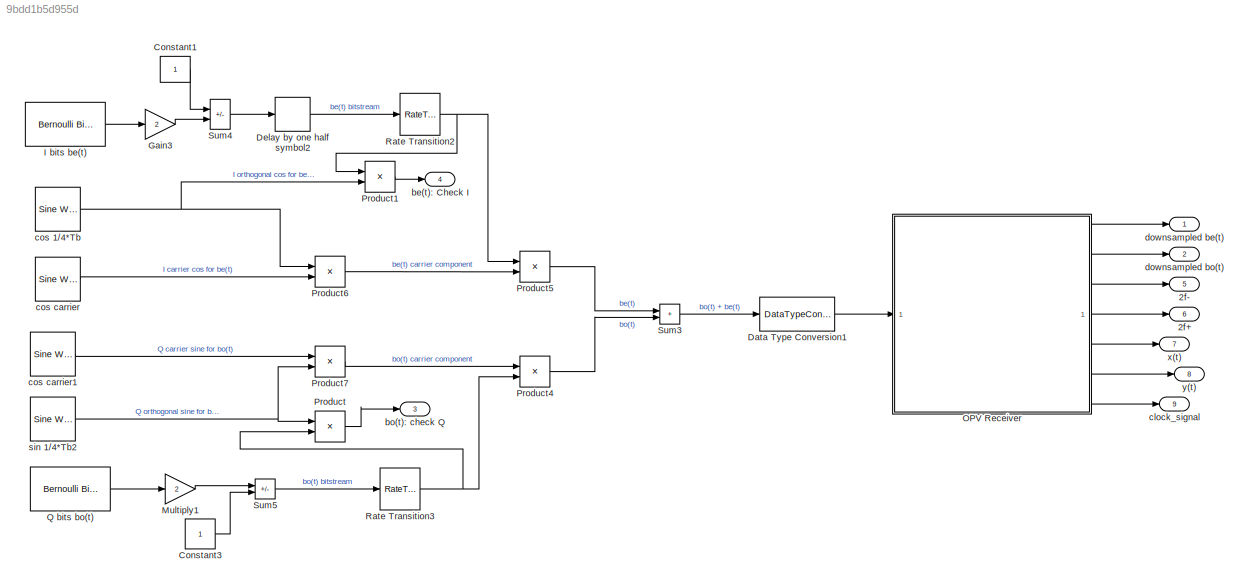
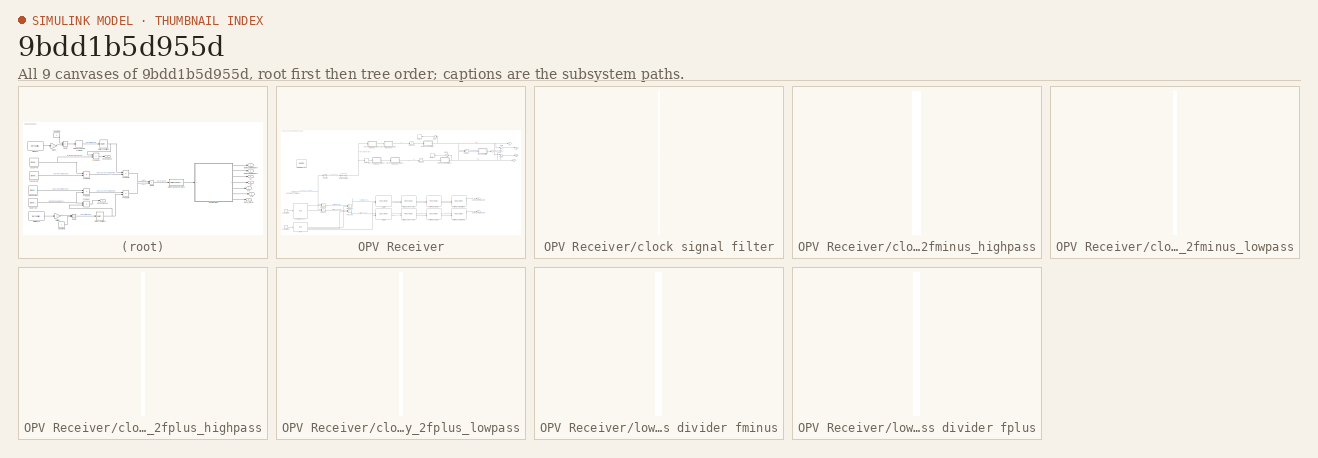
[diagram: thumbnail index - all 9 canvases of the model, root first then tree order]
MODEL slx_9bdd1b5d955d
KIND model
CONFIG AbsTol = auto
CONFIG EnableMultiTasking = off
CONFIG FixedStep = auto
CONFIG MaxStep = auto
CONFIG MinStep = auto
CONFIG RelTol = 1e-3
CONFIG SampleTimeConstraint = Unconstrained
CONFIG SolverName = FixedStepDiscrete
CONFIG StartTime = 0.0
CONFIG StopTime = 0.01*(samples_per_frame/sample_rate)
BLOCK [Outport] 2f+
  Port = 6
BLOCK [Outport] 2f-
  Port = 5
BLOCK [Constant] Constant1
  OutDataTypeStr = double
  SampleTime = 1/symbol_rate
BLOCK [Constant] Constant3
  OutDataTypeStr = double
  SampleTime = 1/symbol_rate
BLOCK [DataTypeConversion] Data Type Conversion1
  OutDataTypeStr = fixdt(1,16,15)
  RndMeth = Floor
  SaturateOnIntegerOverflow = off
BLOCK [Delay] Delay by one half symbol2
  DelayLength = 1
  InputPortMap = u0
  SampleTime = 1/(bits_per_symbol*symbol_rate)
BLOCK [Gain] Gain3
  Gain = 2
  OutDataTypeStr = double
BLOCK [Reference] I bits be(t)  REF=commrandsrc3/Bernoulli Binary
Generator
  SourceBlock = commrandsrc3/Bernoulli Binary\nGenerator
  SourceType = Bernoulli Binary Generator
BLOCK [Gain] Multiply1
  Gain = 2
  OutDataTypeStr = double
BLOCK [SubSystem] OPV Receiver
  LibrarySourceBlock = hdlsllib/Ports &\nSubsystems/Subsystem
  TreatAsAtomicUnit = on
BLOCK [Reference] OPV Receiver/ 1//4*Tb  REF=dsphdlsigops2/NCO
  LibrarySourceBlock = dsphdlsrcs2/NCO
  SourceBlock = dsphdlsigops2/NCO
  SourceType = NCO
BLOCK [Outport] OPV Receiver/2f+
  Port = 4
BLOCK [Outport] OPV Receiver/2f-
  Port = 3
BLOCK [Constant] OPV Receiver/Constant1
  OutDataTypeStr = boolean
  SampleTime = 1/(device_clock)
BLOCK [Constant] OPV Receiver/Constant2
  OutDataTypeStr = boolean
  SampleTime = 1/(device_clock)
BLOCK [Delay] OPV Receiver/Delay1
  DelayLength = 22
  InputPortMap = u0
BLOCK [Delay] OPV Receiver/Delay2
  DelayLength = 1
  InputPortMap = u0
  NameLocation = top
BLOCK [Delay] OPV Receiver/Delay3
  DelayLength = 1
  InputPortMap = u0
  NameLocation = top
BLOCK [Reference] OPV Receiver/Digital Filter Design  REF=dspfdesign/Digital
Filter Design
  Commented = on
  SourceBlock = dspfdesign/Digital\nFilter Design
  SourceType = Digital Filter Design
  UserDataPersistent = on
BLOCK [DownSample] OPV Receiver/Downsample
  InputProcessing = Elements as channels (sample based)
  N = 128
  RateOptions = Allow multirate processing
BLOCK [Gain] OPV Receiver/Gain
  Gain = 80
  NameLocation = top
  OutDataTypeStr = Inherit: Inherit via back propagation
BLOCK [Gain] OPV Receiver/Gain1
  Gain = 80
  NameLocation = top
  OutDataTypeStr = Inherit: Inherit via back propagation
BLOCK [Product] OPV Receiver/Product
  OutDataTypeStr = Inherit: Inherit via back propagation
BLOCK [Product] OPV Receiver/Product1
  OutDataTypeStr = Inherit: Same as first input
BLOCK [Product] OPV Receiver/Product2
  OutDataTypeStr = Inherit: Same as first input
BLOCK [Product] OPV Receiver/Product4
  OutDataTypeStr = fixdt(1,16,15)
BLOCK [Product] OPV Receiver/Product5
  OutDataTypeStr = fixdt(1,16,15)
BLOCK [Product] OPV Receiver/Product6
  OutDataTypeStr = fixdt(1,16,15)
BLOCK [Product] OPV Receiver/Product7
  OutDataTypeStr = fixdt(1,16,15)
BLOCK [Math] OPV Receiver/Square
  Operator = square
  RndMeth = Zero
  SignedPower = on
BLOCK [Sum] OPV Receiver/Sum
  Inputs = |++
BLOCK [Sum] OPV Receiver/Sum1
  Inputs = |-+
BLOCK [Reference] OPV Receiver/be(t) CIC  REF=dsphdlfiltering2/CIC Decimator
  SourceBlock = dsphdlfiltering2/CIC Decimator
  SourceType = CIC Decimator
BLOCK [Reference] OPV Receiver/be(t) CIC Compensator  REF=dsphdlfiltering2/FIR Decimator
  SourceBlock = dsphdlfiltering2/FIR Decimator
  SourceType = FIR Decimator
BLOCK [Reference] OPV Receiver/be(t) FIR Decimator  REF=dsphdlfiltering2/FIR Decimator
  SourceBlock = dsphdlfiltering2/FIR Decimator
  SourceType = FIR Decimator
BLOCK [Reference] OPV Receiver/be(t) FIR Decimator Final  REF=dsphdlfiltering2/FIR Decimator
  SourceBlock = dsphdlfiltering2/FIR Decimator
  SourceType = FIR Decimator
BLOCK [Reference] OPV Receiver/bo(t) CIC  REF=dsphdlfiltering2/CIC Decimator
  SourceBlock = dsphdlfiltering2/CIC Decimator
  SourceType = CIC Decimator
BLOCK [Reference] OPV Receiver/bo(t) CIC Compensator  REF=dsphdlfiltering2/FIR Decimator
  SourceBlock = dsphdlfiltering2/FIR Decimator
  SourceType = FIR Decimator
BLOCK [Reference] OPV Receiver/bo(t) FIR Decimator  REF=dsphdlfiltering2/FIR Decimator
  SourceBlock = dsphdlfiltering2/FIR Decimator
  SourceType = FIR Decimator
BLOCK [Reference] OPV Receiver/bo(t) FIR decimator final  REF=dsphdlfiltering2/FIR Decimator
  SourceBlock = dsphdlfiltering2/FIR Decimator
  SourceType = FIR Decimator
BLOCK [Reference] OPV Receiver/center_frequency  REF=dsphdlsigops2/NCO
  LibrarySourceBlock = dsphdlsrcs2/NCO
  SourceBlock = dsphdlsigops2/NCO
  SourceType = NCO
BLOCK [Outport] OPV Receiver/clock signal
  Port = 7
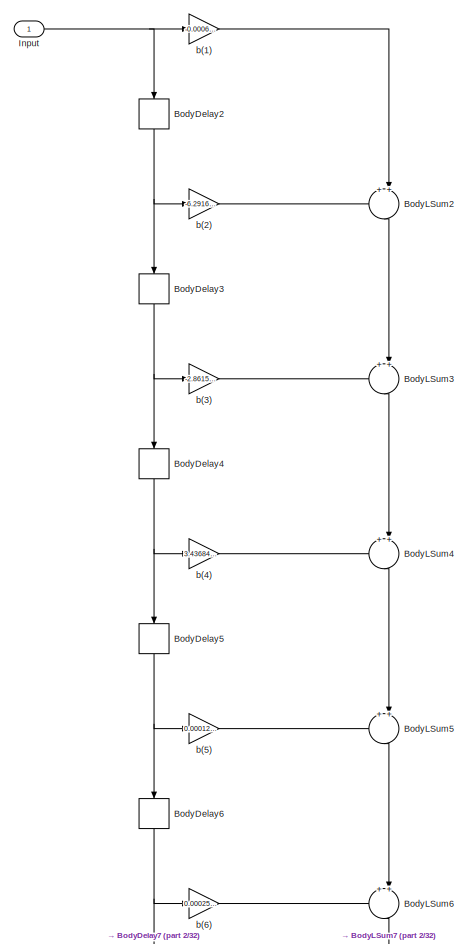
[diagram: OPV Receiver/clock signal filter - part 1/32, full width, top band]
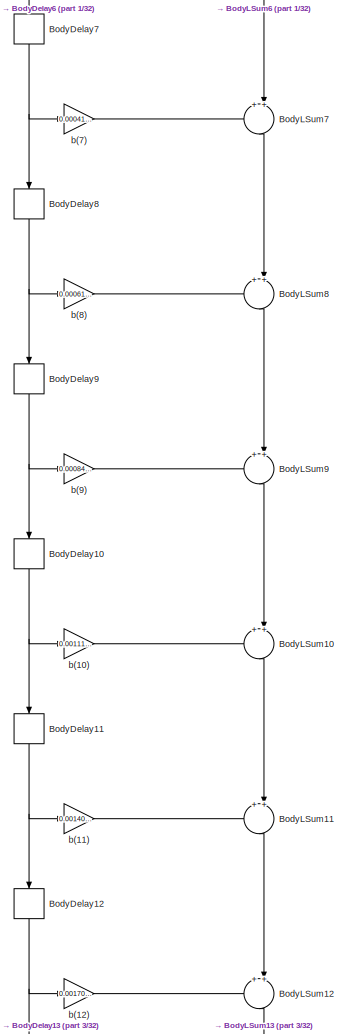
[diagram: OPV Receiver/clock signal filter - part 2/32, top center region]
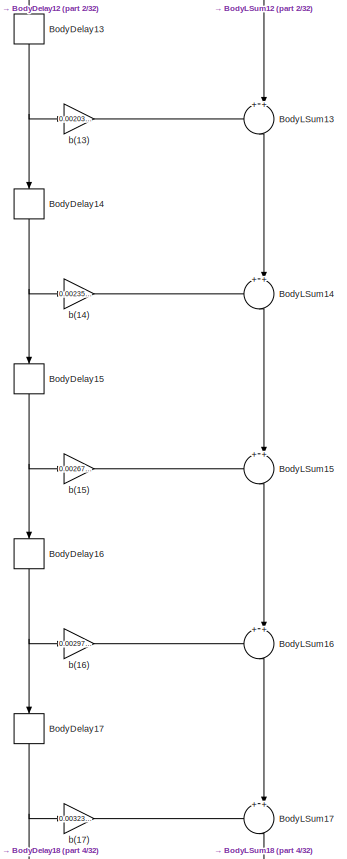
[diagram: OPV Receiver/clock signal filter - part 3/32, top center region]
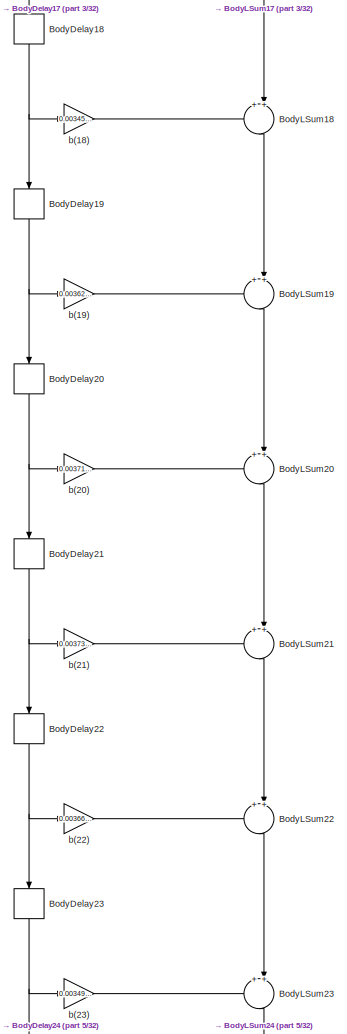
[diagram: OPV Receiver/clock signal filter - part 4/32, top center region]
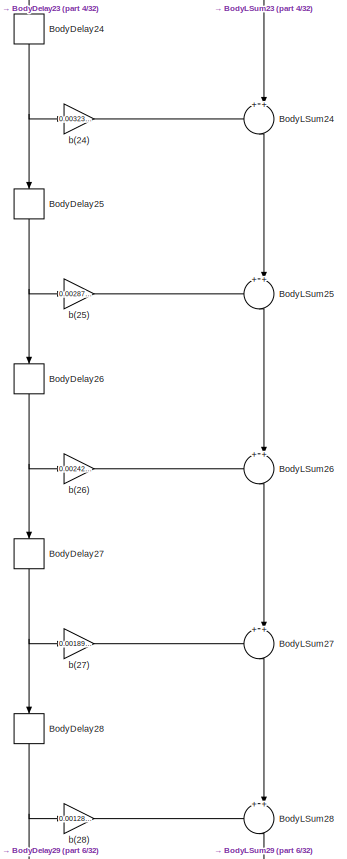
[diagram: OPV Receiver/clock signal filter - part 5/32, top center region]
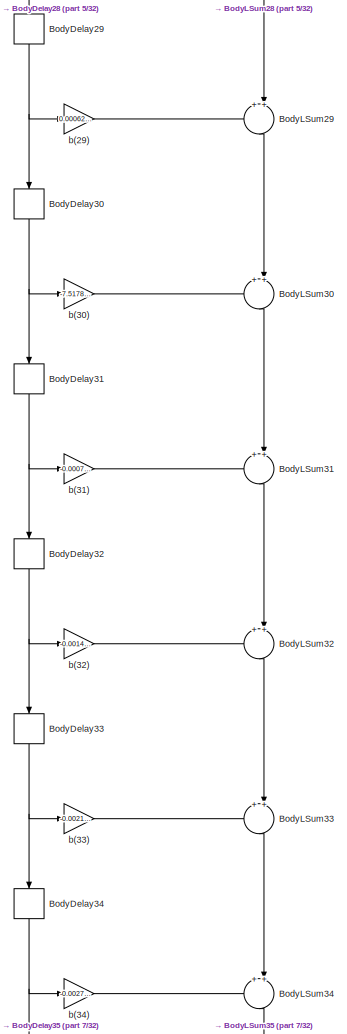
[diagram: OPV Receiver/clock signal filter - part 6/32, top center region]
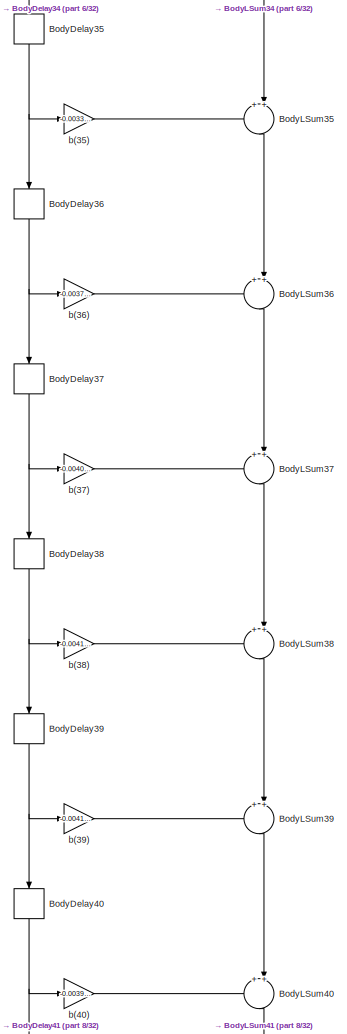
[diagram: OPV Receiver/clock signal filter - part 7/32, top center region]
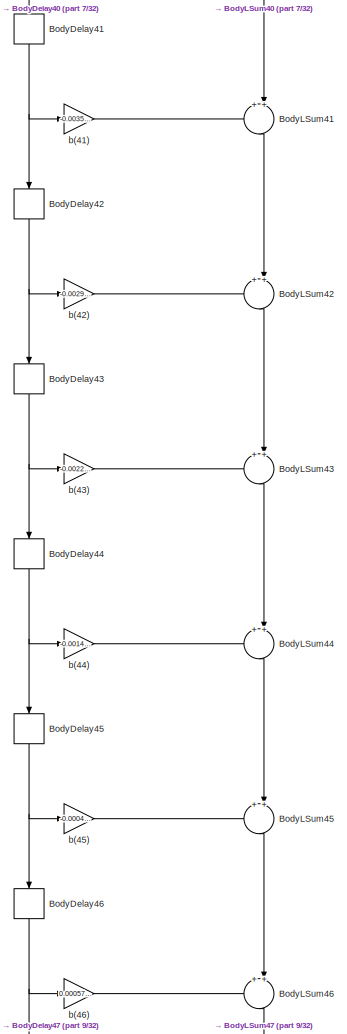
[diagram: OPV Receiver/clock signal filter - part 8/32, top center region]
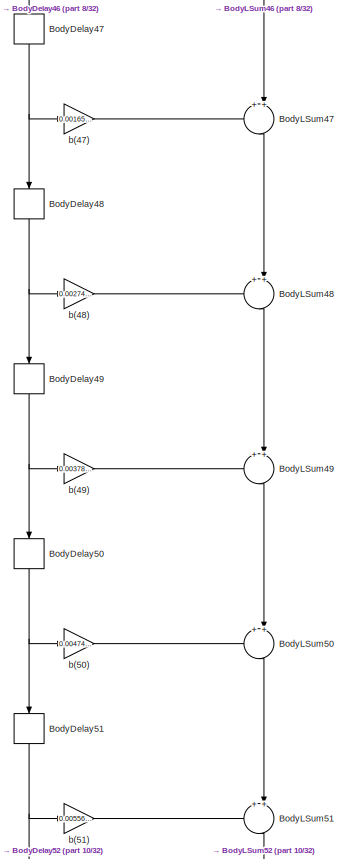
[diagram: OPV Receiver/clock signal filter - part 9/32, top center region]
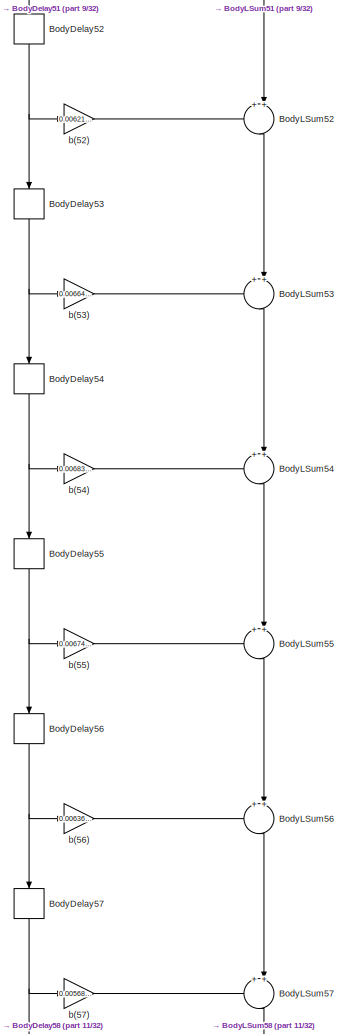
[diagram: OPV Receiver/clock signal filter - part 10/32, top center region]
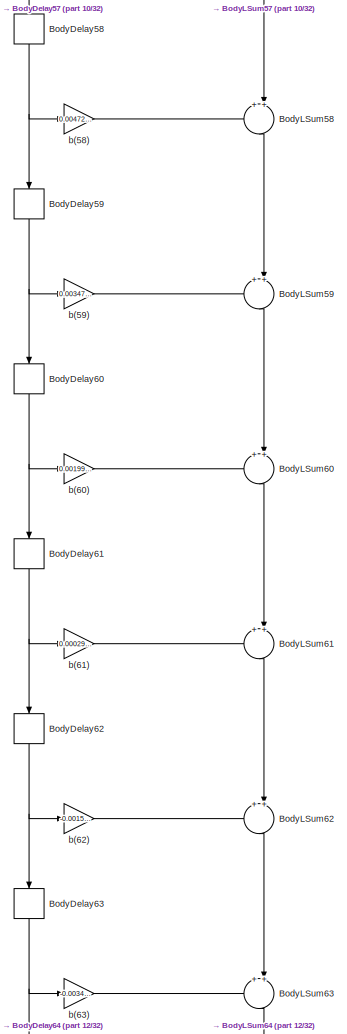
[diagram: OPV Receiver/clock signal filter - part 11/32, top center region]
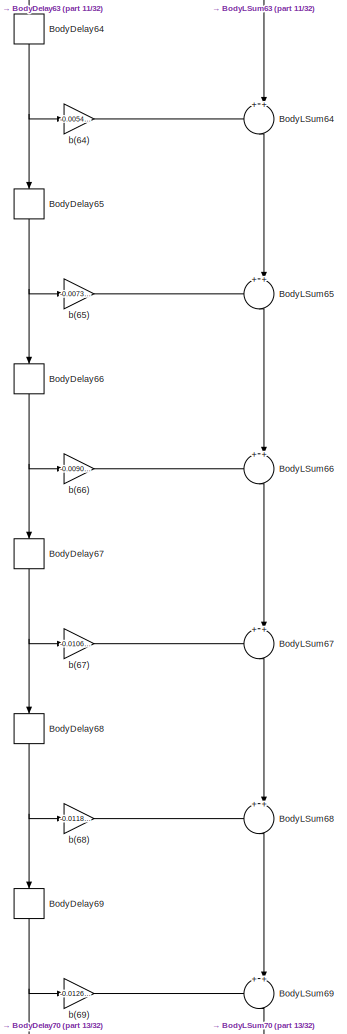
[diagram: OPV Receiver/clock signal filter - part 12/32, central region]
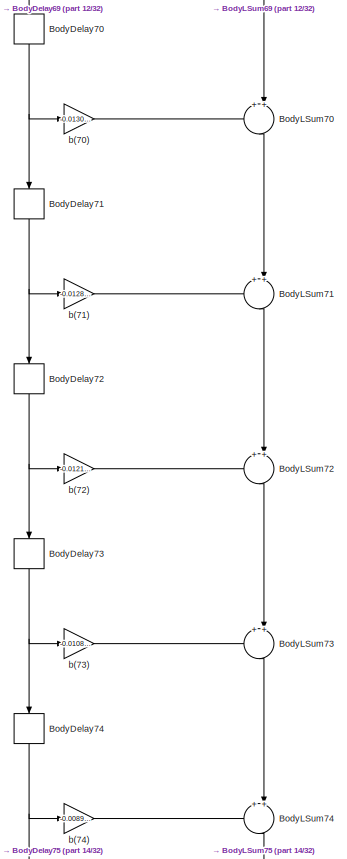
[diagram: OPV Receiver/clock signal filter - part 13/32, central region]
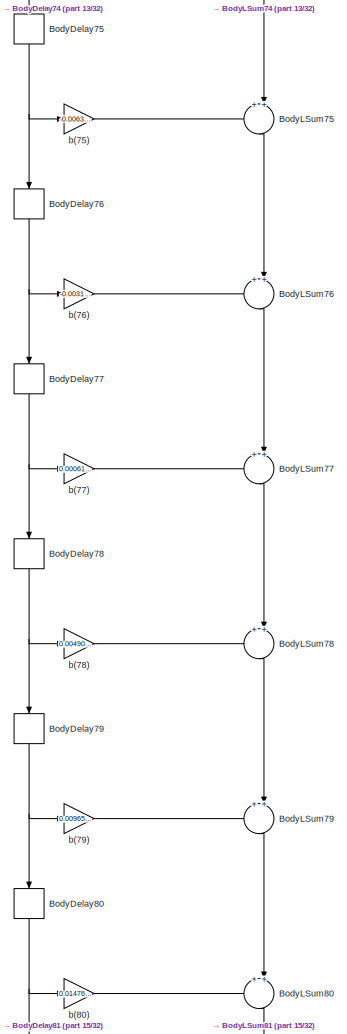
[diagram: OPV Receiver/clock signal filter - part 14/32, central region]
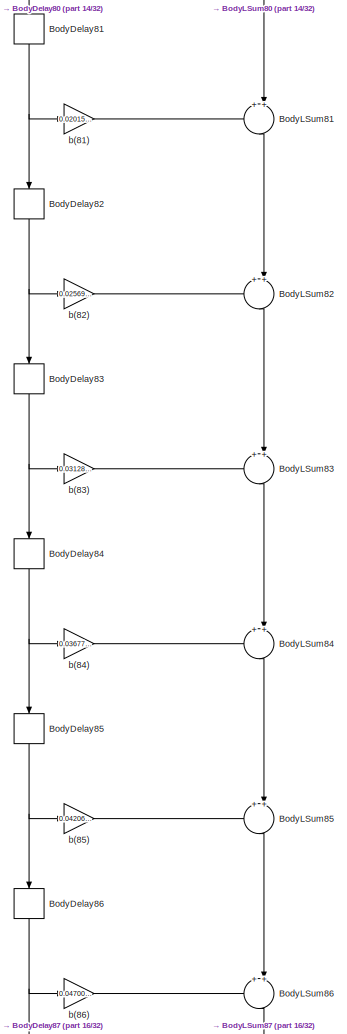
[diagram: OPV Receiver/clock signal filter - part 15/32, central region]
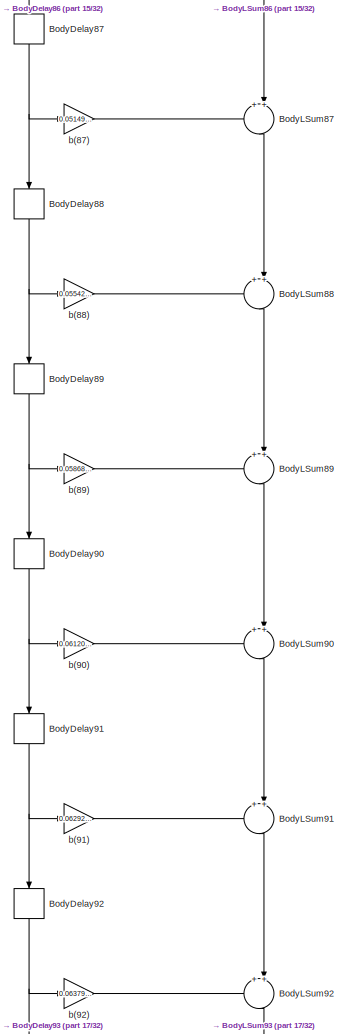
[diagram: OPV Receiver/clock signal filter - part 16/32, central region]
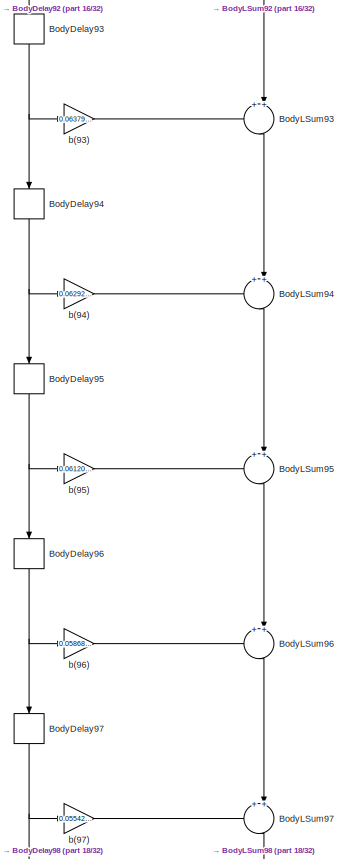
[diagram: OPV Receiver/clock signal filter - part 17/32, central region]
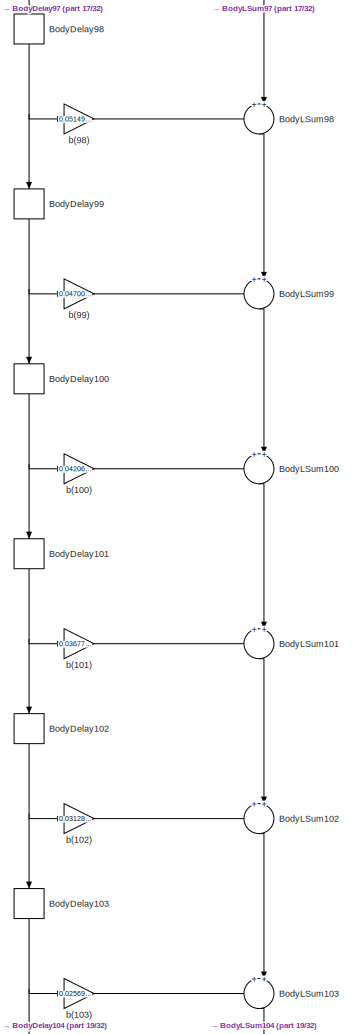
[diagram: OPV Receiver/clock signal filter - part 18/32, central region]
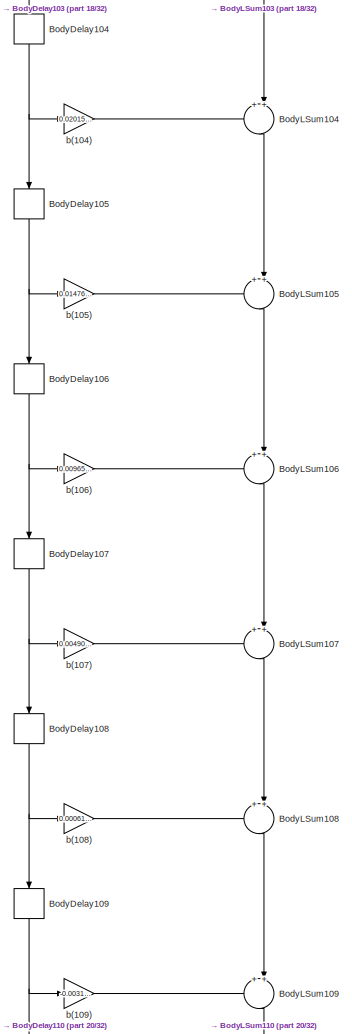
[diagram: OPV Receiver/clock signal filter - part 19/32, central region]
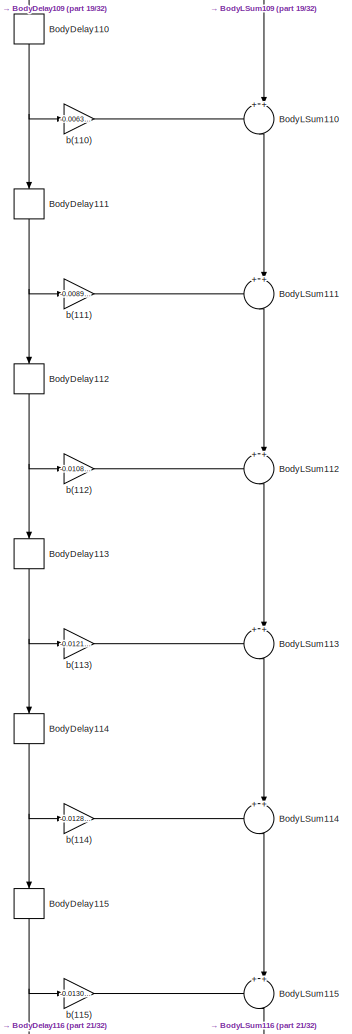
[diagram: OPV Receiver/clock signal filter - part 20/32, central region]
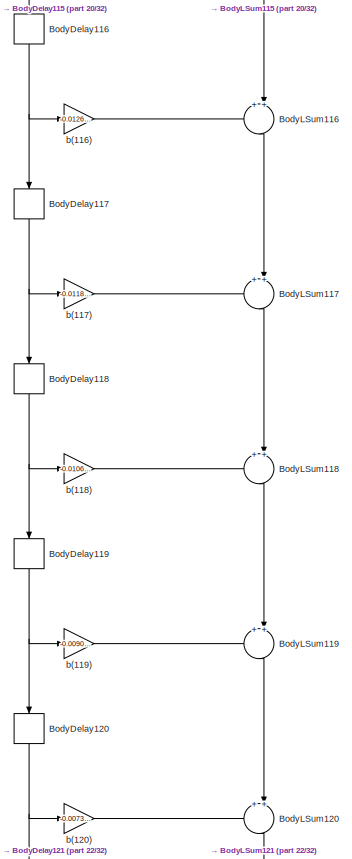
[diagram: OPV Receiver/clock signal filter - part 21/32, central region]
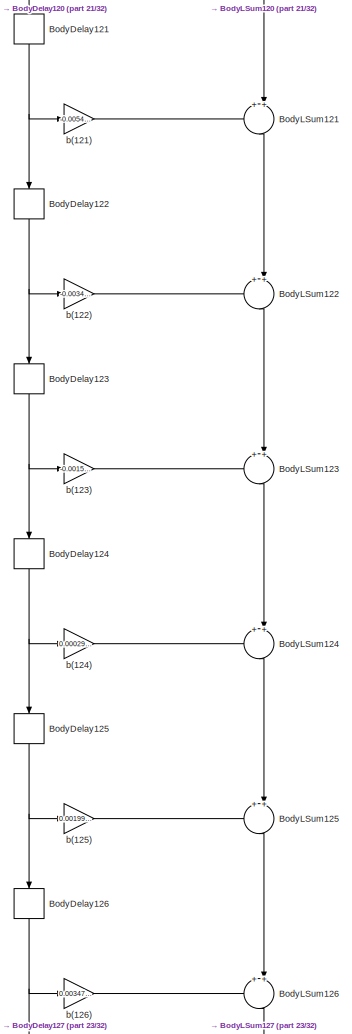
[diagram: OPV Receiver/clock signal filter - part 22/32, bottom center region]
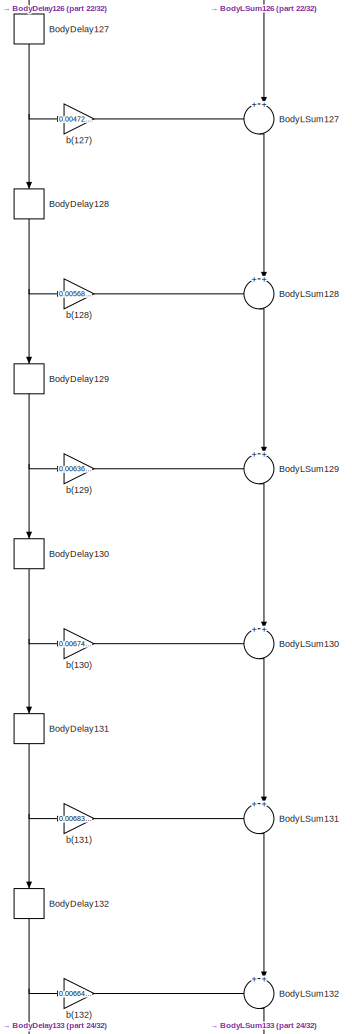
[diagram: OPV Receiver/clock signal filter - part 23/32, bottom center region]
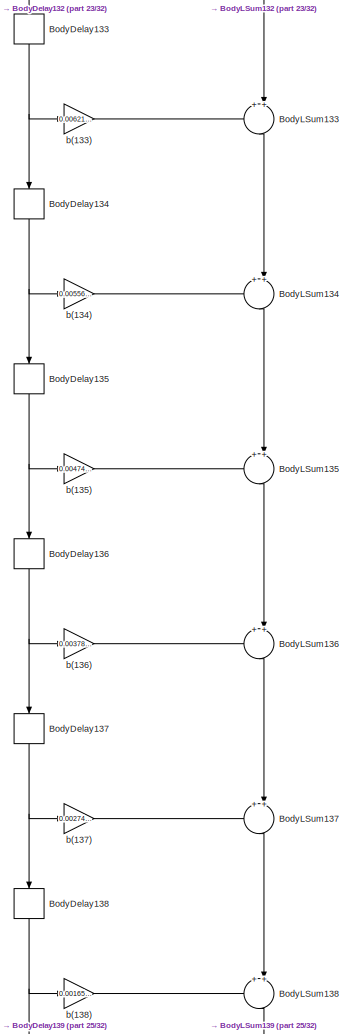
[diagram: OPV Receiver/clock signal filter - part 24/32, bottom center region]
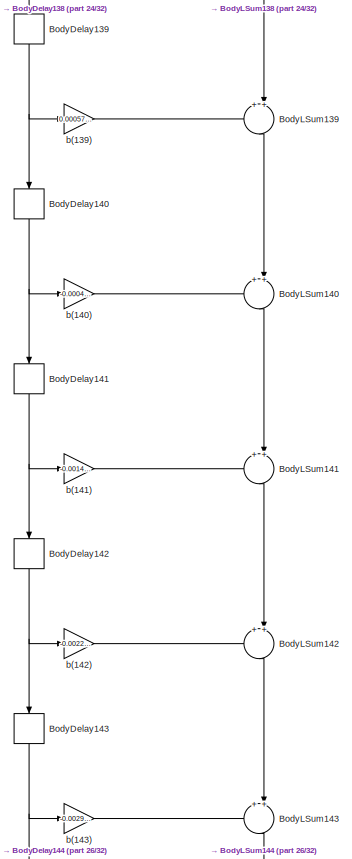
[diagram: OPV Receiver/clock signal filter - part 25/32, bottom center region]
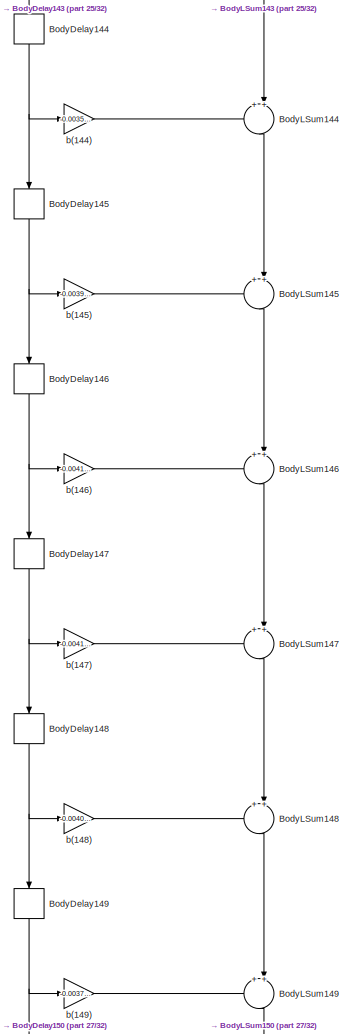
[diagram: OPV Receiver/clock signal filter - part 26/32, bottom center region]
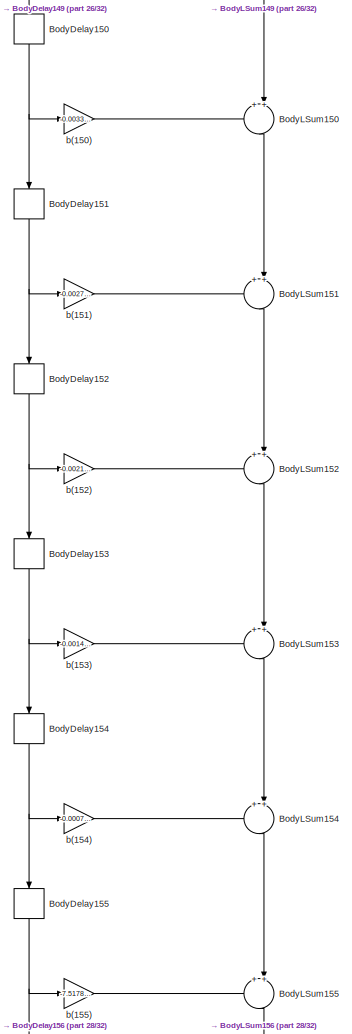
[diagram: OPV Receiver/clock signal filter - part 27/32, bottom center region]
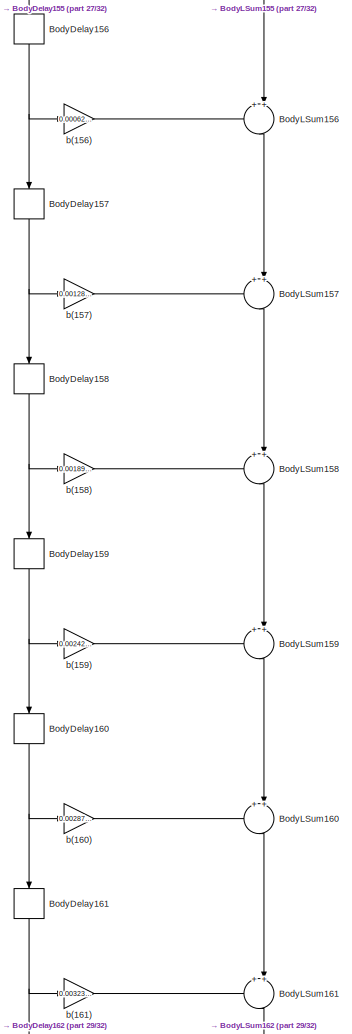
[diagram: OPV Receiver/clock signal filter - part 28/32, bottom center region]
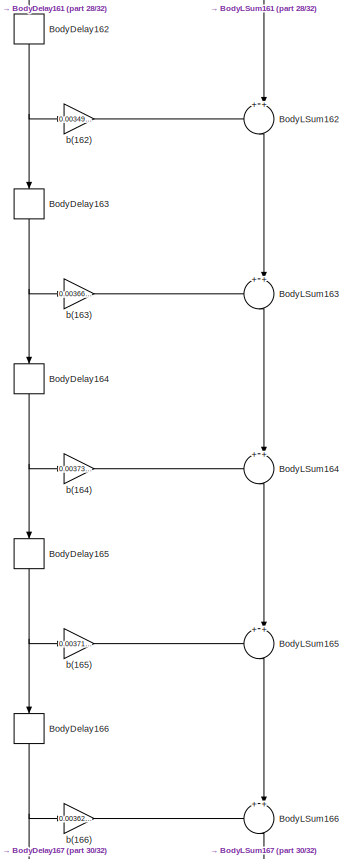
[diagram: OPV Receiver/clock signal filter - part 29/32, bottom center region]
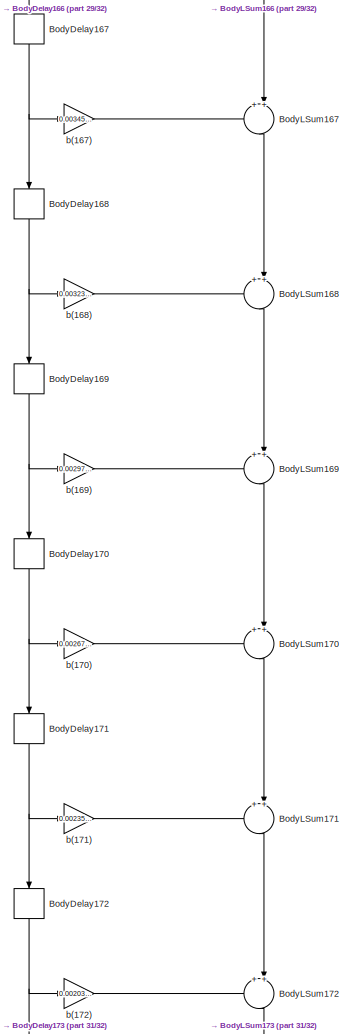
[diagram: OPV Receiver/clock signal filter - part 30/32, bottom center region]
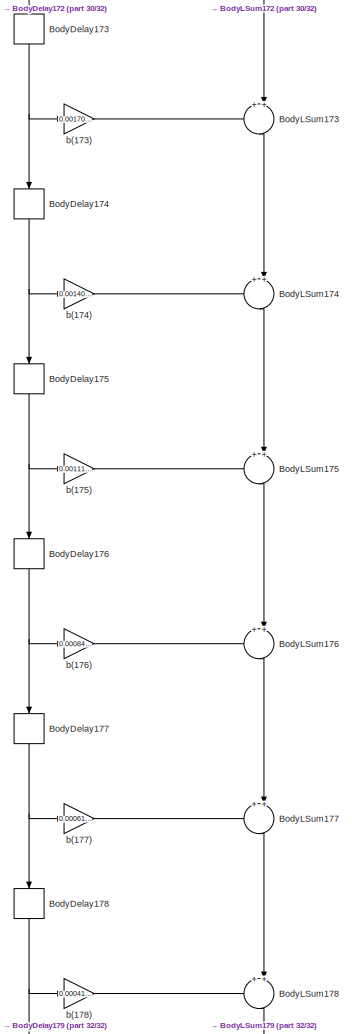
[diagram: OPV Receiver/clock signal filter - part 31/32, bottom center region]
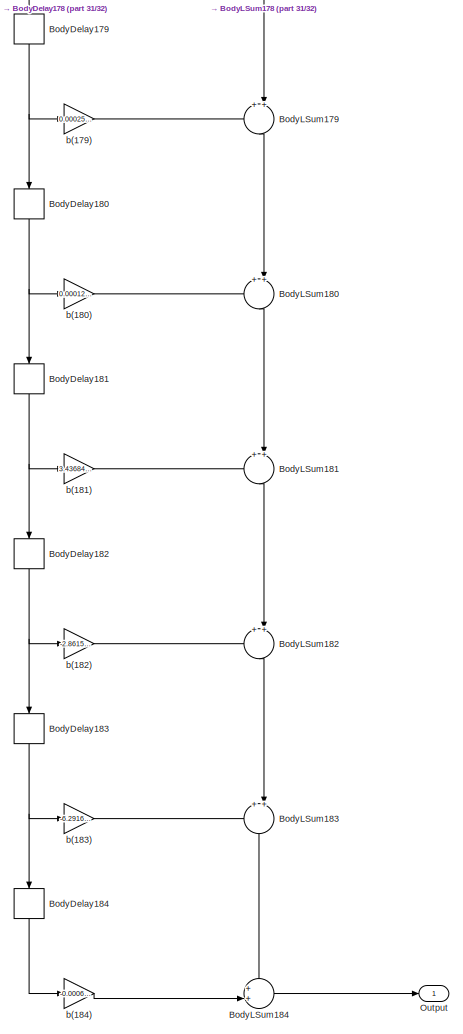
[diagram: OPV Receiver/clock signal filter - part 32/32, full width, bottom band]
BLOCK [SubSystem] OPV Receiver/clock signal filter
  ErrorFcn = dspFilterRealizedInBasicElemsAlgLoopErrFcnCallback
  Tag = FilterWizardSubSystem
  UserDataPersistent = on
BLOCK [Delay] OPV Receiver/clock signal filter/BodyDelay10
  DelayLength = 1
  InitialCondition = 0
  InputPortMap = u0
  InputProcessing = Columns as channels (frame based)
  NameLocation = right
BLOCK [Delay] OPV Receiver/clock signal filter/BodyDelay100
  DelayLength = 1
  InitialCondition = 0
  InputPortMap = u0
  InputProcessing = Columns as channels (frame based)
  NameLocation = right
BLOCK [Delay] OPV Receiver/clock signal filter/BodyDelay101
  DelayLength = 1
  InitialCondition = 0
  InputPortMap = u0
  InputProcessing = Columns as channels (frame based)
  NameLocation = right
BLOCK [Delay] OPV Receiver/clock signal filter/BodyDelay102
  DelayLength = 1
  InitialCondition = 0
  InputPortMap = u0
  InputProcessing = Columns as channels (frame based)
  NameLocation = right
BLOCK [Delay] OPV Receiver/clock signal filter/BodyDelay103
  DelayLength = 1
  InitialCondition = 0
  InputPortMap = u0
  InputProcessing = Columns as channels (frame based)
  NameLocation = right
BLOCK [Delay] OPV Receiver/clock signal filter/BodyDelay104
  DelayLength = 1
  InitialCondition = 0
  InputPortMap = u0
  InputProcessing = Columns as channels (frame based)
  NameLocation = right
BLOCK [Delay] OPV Receiver/clock signal filter/BodyDelay105
  DelayLength = 1
  InitialCondition = 0
  InputPortMap = u0
  InputProcessing = Columns as channels (frame based)
  NameLocation = right
BLOCK [Delay] OPV Receiver/clock signal filter/BodyDelay106
  DelayLength = 1
  InitialCondition = 0
  InputPortMap = u0
  InputProcessing = Columns as channels (frame based)
  NameLocation = right
BLOCK [Delay] OPV Receiver/clock signal filter/BodyDelay107
  DelayLength = 1
  InitialCondition = 0
  InputPortMap = u0
  InputProcessing = Columns as channels (frame based)
  NameLocation = right
BLOCK [Delay] OPV Receiver/clock signal filter/BodyDelay108
  DelayLength = 1
  InitialCondition = 0
  InputPortMap = u0
  InputProcessing = Columns as channels (frame based)
  NameLocation = right
BLOCK [Delay] OPV Receiver/clock signal filter/BodyDelay109
  DelayLength = 1
  InitialCondition = 0
  InputPortMap = u0
  InputProcessing = Columns as channels (frame based)
  NameLocation = right
BLOCK [Delay] OPV Receiver/clock signal filter/BodyDelay11
  DelayLength = 1
  InitialCondition = 0
  InputPortMap = u0
  InputProcessing = Columns as channels (frame based)
  NameLocation = right
BLOCK [Delay] OPV Receiver/clock signal filter/BodyDelay110
  DelayLength = 1
  InitialCondition = 0
  InputPortMap = u0
  InputProcessing = Columns as channels (frame based)
  NameLocation = right
BLOCK [Delay] OPV Receiver/clock signal filter/BodyDelay111
  DelayLength = 1
  InitialCondition = 0
  InputPortMap = u0
  InputProcessing = Columns as channels (frame based)
  NameLocation = right
BLOCK [Delay] OPV Receiver/clock signal filter/BodyDelay112
  DelayLength = 1
  InitialCondition = 0
  InputPortMap = u0
  InputProcessing = Columns as channels (frame based)
  NameLocation = right
BLOCK [Delay] OPV Receiver/clock signal filter/BodyDelay113
  DelayLength = 1
  InitialCondition = 0
  InputPortMap = u0
  InputProcessing = Columns as channels (frame based)
  NameLocation = right
BLOCK [Delay] OPV Receiver/clock signal filter/BodyDelay114
  DelayLength = 1
  InitialCondition = 0
  InputPortMap = u0
  InputProcessing = Columns as channels (frame based)
  NameLocation = right
BLOCK [Delay] OPV Receiver/clock signal filter/BodyDelay115
  DelayLength = 1
  InitialCondition = 0
  InputPortMap = u0
  InputProcessing = Columns as channels (frame based)
  NameLocation = right
BLOCK [Delay] OPV Receiver/clock signal filter/BodyDelay116
  DelayLength = 1
  InitialCondition = 0
  InputPortMap = u0
  InputProcessing = Columns as channels (frame based)
  NameLocation = right
BLOCK [Delay] OPV Receiver/clock signal filter/BodyDelay117
  DelayLength = 1
  InitialCondition = 0
  InputPortMap = u0
  InputProcessing = Columns as channels (frame based)
  NameLocation = right
BLOCK [Delay] OPV Receiver/clock signal filter/BodyDelay118
  DelayLength = 1
  InitialCondition = 0
  InputPortMap = u0
  InputProcessing = Columns as channels (frame based)
  NameLocation = right
BLOCK [Delay] OPV Receiver/clock signal filter/BodyDelay119
  DelayLength = 1
  InitialCondition = 0
  InputPortMap = u0
  InputProcessing = Columns as channels (frame based)
  NameLocation = right
BLOCK [Delay] OPV Receiver/clock signal filter/BodyDelay12
  DelayLength = 1
  InitialCondition = 0
  InputPortMap = u0
  InputProcessing = Columns as channels (frame based)
  NameLocation = right
BLOCK [Delay] OPV Receiver/clock signal filter/BodyDelay120
  DelayLength = 1
  InitialCondition = 0
  InputPortMap = u0
  InputProcessing = Columns as channels (frame based)
  NameLocation = right
BLOCK [Delay] OPV Receiver/clock signal filter/BodyDelay121
  DelayLength = 1
  InitialCondition = 0
  InputPortMap = u0
  InputProcessing = Columns as channels (frame based)
  NameLocation = right
BLOCK [Delay] OPV Receiver/clock signal filter/BodyDelay122
  DelayLength = 1
  InitialCondition = 0
  InputPortMap = u0
  InputProcessing = Columns as channels (frame based)
  NameLocation = right
BLOCK [Delay] OPV Receiver/clock signal filter/BodyDelay123
  DelayLength = 1
  InitialCondition = 0
  InputPortMap = u0
  InputProcessing = Columns as channels (frame based)
  NameLocation = right
BLOCK [Delay] OPV Receiver/clock signal filter/BodyDelay124
  DelayLength = 1
  InitialCondition = 0
  InputPortMap = u0
  InputProcessing = Columns as channels (frame based)
  NameLocation = right
BLOCK [Delay] OPV Receiver/clock signal filter/BodyDelay125
  DelayLength = 1
  InitialCondition = 0
  InputPortMap = u0
  InputProcessing = Columns as channels (frame based)
  NameLocation = right
BLOCK [Delay] OPV Receiver/clock signal filter/BodyDelay126
  DelayLength = 1
  InitialCondition = 0
  InputPortMap = u0
  InputProcessing = Columns as channels (frame based)
  NameLocation = right
BLOCK [Delay] OPV Receiver/clock signal filter/BodyDelay127
  DelayLength = 1
  InitialCondition = 0
  InputPortMap = u0
  InputProcessing = Columns as channels (frame based)
  NameLocation = right
BLOCK [Delay] OPV Receiver/clock signal filter/BodyDelay128
  DelayLength = 1
  InitialCondition = 0
  InputPortMap = u0
  InputProcessing = Columns as channels (frame based)
  NameLocation = right
BLOCK [Delay] OPV Receiver/clock signal filter/BodyDelay129
  DelayLength = 1
  InitialCondition = 0
  InputPortMap = u0
  InputProcessing = Columns as channels (frame based)
  NameLocation = right
BLOCK [Delay] OPV Receiver/clock signal filter/BodyDelay13
  DelayLength = 1
  InitialCondition = 0
  InputPortMap = u0
  InputProcessing = Columns as channels (frame based)
  NameLocation = right
BLOCK [Delay] OPV Receiver/clock signal filter/BodyDelay130
  DelayLength = 1
  InitialCondition = 0
  InputPortMap = u0
  InputProcessing = Columns as channels (frame based)
  NameLocation = right
BLOCK [Delay] OPV Receiver/clock signal filter/BodyDelay131
  DelayLength = 1
  InitialCondition = 0
  InputPortMap = u0
  InputProcessing = Columns as channels (frame based)
  NameLocation = right
BLOCK [Delay] OPV Receiver/clock signal filter/BodyDelay132
  DelayLength = 1
  InitialCondition = 0
  InputPortMap = u0
  InputProcessing = Columns as channels (frame based)
  NameLocation = right
BLOCK [Delay] OPV Receiver/clock signal filter/BodyDelay133
  DelayLength = 1
  InitialCondition = 0
  InputPortMap = u0
  InputProcessing = Columns as channels (frame based)
  NameLocation = right
BLOCK [Delay] OPV Receiver/clock signal filter/BodyDelay134
  DelayLength = 1
  InitialCondition = 0
  InputPortMap = u0
  InputProcessing = Columns as channels (frame based)
  NameLocation = right
BLOCK [Delay] OPV Receiver/clock signal filter/BodyDelay135
  DelayLength = 1
  InitialCondition = 0
  InputPortMap = u0
  InputProcessing = Columns as channels (frame based)
  NameLocation = right
BLOCK [Delay] OPV Receiver/clock signal filter/BodyDelay136
  DelayLength = 1
  InitialCondition = 0
  InputPortMap = u0
  InputProcessing = Columns as channels (frame based)
  NameLocation = right
BLOCK [Delay] OPV Receiver/clock signal filter/BodyDelay137
  DelayLength = 1
  InitialCondition = 0
  InputPortMap = u0
  InputProcessing = Columns as channels (frame based)
  NameLocation = right
BLOCK [Delay] OPV Receiver/clock signal filter/BodyDelay138
  DelayLength = 1
  InitialCondition = 0
  InputPortMap = u0
  InputProcessing = Columns as channels (frame based)
  NameLocation = right
BLOCK [Delay] OPV Receiver/clock signal filter/BodyDelay139
  DelayLength = 1
  InitialCondition = 0
  InputPortMap = u0
  InputProcessing = Columns as channels (frame based)
  NameLocation = right
BLOCK [Delay] OPV Receiver/clock signal filter/BodyDelay14
  DelayLength = 1
  InitialCondition = 0
  InputPortMap = u0
  InputProcessing = Columns as channels (frame based)
  NameLocation = right
BLOCK [Delay] OPV Receiver/clock signal filter/BodyDelay140
  DelayLength = 1
  InitialCondition = 0
  InputPortMap = u0
  InputProcessing = Columns as channels (frame based)
  NameLocation = right
BLOCK [Delay] OPV Receiver/clock signal filter/BodyDelay141
  DelayLength = 1
  InitialCondition = 0
  InputPortMap = u0
  InputProcessing = Columns as channels (frame based)
  NameLocation = right
BLOCK [Delay] OPV Receiver/clock signal filter/BodyDelay142
  DelayLength = 1
  InitialCondition = 0
  InputPortMap = u0
  InputProcessing = Columns as channels (frame based)
  NameLocation = right
BLOCK [Delay] OPV Receiver/clock signal filter/BodyDelay143
  DelayLength = 1
  InitialCondition = 0
  InputPortMap = u0
  InputProcessing = Columns as channels (frame based)
  NameLocation = right
BLOCK [Delay] OPV Receiver/clock signal filter/BodyDelay144
  DelayLength = 1
  InitialCondition = 0
  InputPortMap = u0
  InputProcessing = Columns as channels (frame based)
  NameLocation = right
BLOCK [Delay] OPV Receiver/clock signal filter/BodyDelay145
  DelayLength = 1
  InitialCondition = 0
  InputPortMap = u0
  InputProcessing = Columns as channels (frame based)
  NameLocation = right
BLOCK [Delay] OPV Receiver/clock signal filter/BodyDelay146
  DelayLength = 1
  InitialCondition = 0
  InputPortMap = u0
  InputProcessing = Columns as channels (frame based)
  NameLocation = right
BLOCK [Delay] OPV Receiver/clock signal filter/BodyDelay147
  DelayLength = 1
  InitialCondition = 0
  InputPortMap = u0
  InputProcessing = Columns as channels (frame based)
  NameLocation = right
BLOCK [Delay] OPV Receiver/clock signal filter/BodyDelay148
  DelayLength = 1
  InitialCondition = 0
  InputPortMap = u0
  InputProcessing = Columns as channels (frame based)
  NameLocation = right
BLOCK [Delay] OPV Receiver/clock signal filter/BodyDelay149
  DelayLength = 1
  InitialCondition = 0
  InputPortMap = u0
  InputProcessing = Columns as channels (frame based)
  NameLocation = right
BLOCK [Delay] OPV Receiver/clock signal filter/BodyDelay15
  DelayLength = 1
  InitialCondition = 0
  InputPortMap = u0
  InputProcessing = Columns as channels (frame based)
  NameLocation = right
BLOCK [Delay] OPV Receiver/clock signal filter/BodyDelay150
  DelayLength = 1
  InitialCondition = 0
  InputPortMap = u0
  InputProcessing = Columns as channels (frame based)
  NameLocation = right
BLOCK [Delay] OPV Receiver/clock signal filter/BodyDelay151
  DelayLength = 1
  InitialCondition = 0
  InputPortMap = u0
  InputProcessing = Columns as channels (frame based)
  NameLocation = right
BLOCK [Delay] OPV Receiver/clock signal filter/BodyDelay152
  DelayLength = 1
  InitialCondition = 0
  InputPortMap = u0
  InputProcessing = Columns as channels (frame based)
  NameLocation = right
BLOCK [Delay] OPV Receiver/clock signal filter/BodyDelay153
  DelayLength = 1
  InitialCondition = 0
  InputPortMap = u0
  InputProcessing = Columns as channels (frame based)
  NameLocation = right
BLOCK [Delay] OPV Receiver/clock signal filter/BodyDelay154
  DelayLength = 1
  InitialCondition = 0
  InputPortMap = u0
  InputProcessing = Columns as channels (frame based)
  NameLocation = right
BLOCK [Delay] OPV Receiver/clock signal filter/BodyDelay155
  DelayLength = 1
  InitialCondition = 0
  InputPortMap = u0
  InputProcessing = Columns as channels (frame based)
  NameLocation = right
BLOCK [Delay] OPV Receiver/clock signal filter/BodyDelay156
  DelayLength = 1
  InitialCondition = 0
  InputPortMap = u0
  InputProcessing = Columns as channels (frame based)
  NameLocation = right
BLOCK [Delay] OPV Receiver/clock signal filter/BodyDelay157
  DelayLength = 1
  InitialCondition = 0
  InputPortMap = u0
  InputProcessing = Columns as channels (frame based)
  NameLocation = right
BLOCK [Delay] OPV Receiver/clock signal filter/BodyDelay158
  DelayLength = 1
  InitialCondition = 0
  InputPortMap = u0
  InputProcessing = Columns as channels (frame based)
  NameLocation = right
BLOCK [Delay] OPV Receiver/clock signal filter/BodyDelay159
  DelayLength = 1
  InitialCondition = 0
  InputPortMap = u0
  InputProcessing = Columns as channels (frame based)
  NameLocation = right
BLOCK [Delay] OPV Receiver/clock signal filter/BodyDelay16
  DelayLength = 1
  InitialCondition = 0
  InputPortMap = u0
  InputProcessing = Columns as channels (frame based)
  NameLocation = right
BLOCK [Delay] OPV Receiver/clock signal filter/BodyDelay160
  DelayLength = 1
  InitialCondition = 0
  InputPortMap = u0
  InputProcessing = Columns as channels (frame based)
  NameLocation = right
BLOCK [Delay] OPV Receiver/clock signal filter/BodyDelay161
  DelayLength = 1
  InitialCondition = 0
  InputPortMap = u0
  InputProcessing = Columns as channels (frame based)
  NameLocation = right
BLOCK [Delay] OPV Receiver/clock signal filter/BodyDelay162
  DelayLength = 1
  InitialCondition = 0
  InputPortMap = u0
  InputProcessing = Columns as channels (frame based)
  NameLocation = right
BLOCK [Delay] OPV Receiver/clock signal filter/BodyDelay163
  DelayLength = 1
  InitialCondition = 0
  InputPortMap = u0
  InputProcessing = Columns as channels (frame based)
  NameLocation = right
BLOCK [Delay] OPV Receiver/clock signal filter/BodyDelay164
  DelayLength = 1
  InitialCondition = 0
  InputPortMap = u0
  InputProcessing = Columns as channels (frame based)
  NameLocation = right
BLOCK [Delay] OPV Receiver/clock signal filter/BodyDelay165
  DelayLength = 1
  InitialCondition = 0
  InputPortMap = u0
  InputProcessing = Columns as channels (frame based)
  NameLocation = right
BLOCK [Delay] OPV Receiver/clock signal filter/BodyDelay166
  DelayLength = 1
  InitialCondition = 0
  InputPortMap = u0
  InputProcessing = Columns as channels (frame based)
  NameLocation = right
BLOCK [Delay] OPV Receiver/clock signal filter/BodyDelay167
  DelayLength = 1
  InitialCondition = 0
  InputPortMap = u0
  InputProcessing = Columns as channels (frame based)
  NameLocation = right
BLOCK [Delay] OPV Receiver/clock signal filter/BodyDelay168
  DelayLength = 1
  InitialCondition = 0
  InputPortMap = u0
  InputProcessing = Columns as channels (frame based)
  NameLocation = right
BLOCK [Delay] OPV Receiver/clock signal filter/BodyDelay169
  DelayLength = 1
  InitialCondition = 0
  InputPortMap = u0
  InputProcessing = Columns as channels (frame based)
  NameLocation = right
BLOCK [Delay] OPV Receiver/clock signal filter/BodyDelay17
  DelayLength = 1
  InitialCondition = 0
  InputPortMap = u0
  InputProcessing = Columns as channels (frame based)
  NameLocation = right
BLOCK [Delay] OPV Receiver/clock signal filter/BodyDelay170
  DelayLength = 1
  InitialCondition = 0
  InputPortMap = u0
  InputProcessing = Columns as channels (frame based)
  NameLocation = right
BLOCK [Delay] OPV Receiver/clock signal filter/BodyDelay171
  DelayLength = 1
  InitialCondition = 0
  InputPortMap = u0
  InputProcessing = Columns as channels (frame based)
  NameLocation = right
BLOCK [Delay] OPV Receiver/clock signal filter/BodyDelay172
  DelayLength = 1
  InitialCondition = 0
  InputPortMap = u0
  InputProcessing = Columns as channels (frame based)
  NameLocation = right
BLOCK [Delay] OPV Receiver/clock signal filter/BodyDelay173
  DelayLength = 1
  InitialCondition = 0
  InputPortMap = u0
  InputProcessing = Columns as channels (frame based)
  NameLocation = right
BLOCK [Delay] OPV Receiver/clock signal filter/BodyDelay174
  DelayLength = 1
  InitialCondition = 0
  InputPortMap = u0
  InputProcessing = Columns as channels (frame based)
  NameLocation = right
BLOCK [Delay] OPV Receiver/clock signal filter/BodyDelay175
  DelayLength = 1
  InitialCondition = 0
  InputPortMap = u0
  InputProcessing = Columns as channels (frame based)
  NameLocation = right
BLOCK [Delay] OPV Receiver/clock signal filter/BodyDelay176
  DelayLength = 1
  InitialCondition = 0
  InputPortMap = u0
  InputProcessing = Columns as channels (frame based)
  NameLocation = right
BLOCK [Delay] OPV Receiver/clock signal filter/BodyDelay177
  DelayLength = 1
  InitialCondition = 0
  InputPortMap = u0
  InputProcessing = Columns as channels (frame based)
  NameLocation = right
BLOCK [Delay] OPV Receiver/clock signal filter/BodyDelay178
  DelayLength = 1
  InitialCondition = 0
  InputPortMap = u0
  InputProcessing = Columns as channels (frame based)
  NameLocation = right
BLOCK [Delay] OPV Receiver/clock signal filter/BodyDelay179
  DelayLength = 1
  InitialCondition = 0
  InputPortMap = u0
  InputProcessing = Columns as channels (frame based)
  NameLocation = right
BLOCK [Delay] OPV Receiver/clock signal filter/BodyDelay18
  DelayLength = 1
  InitialCondition = 0
  InputPortMap = u0
  InputProcessing = Columns as channels (frame based)
  NameLocation = right
BLOCK [Delay] OPV Receiver/clock signal filter/BodyDelay180
  DelayLength = 1
  InitialCondition = 0
  InputPortMap = u0
  InputProcessing = Columns as channels (frame based)
  NameLocation = right
BLOCK [Delay] OPV Receiver/clock signal filter/BodyDelay181
  DelayLength = 1
  InitialCondition = 0
  InputPortMap = u0
  InputProcessing = Columns as channels (frame based)
  NameLocation = right
BLOCK [Delay] OPV Receiver/clock signal filter/BodyDelay182
  DelayLength = 1
  InitialCondition = 0
  InputPortMap = u0
  InputProcessing = Columns as channels (frame based)
  NameLocation = right
BLOCK [Delay] OPV Receiver/clock signal filter/BodyDelay183
  DelayLength = 1
  InitialCondition = 0
  InputPortMap = u0
  InputProcessing = Columns as channels (frame based)
  NameLocation = right
BLOCK [Delay] OPV Receiver/clock signal filter/BodyDelay184
  DelayLength = 1
  InitialCondition = 0
  InputPortMap = u0
  InputProcessing = Columns as channels (frame based)
  NameLocation = right
BLOCK [Delay] OPV Receiver/clock signal filter/BodyDelay19
  DelayLength = 1
  InitialCondition = 0
  InputPortMap = u0
  InputProcessing = Columns as channels (frame based)
  NameLocation = right
BLOCK [Delay] OPV Receiver/clock signal filter/BodyDelay2
  DelayLength = 1
  InitialCondition = 0
  InputPortMap = u0
  InputProcessing = Columns as channels (frame based)
  NameLocation = right
BLOCK [Delay] OPV Receiver/clock signal filter/BodyDelay20
  DelayLength = 1
  InitialCondition = 0
  InputPortMap = u0
  InputProcessing = Columns as channels (frame based)
  NameLocation = right
BLOCK [Delay] OPV Receiver/clock signal filter/BodyDelay21
  DelayLength = 1
  InitialCondition = 0
  InputPortMap = u0
  InputProcessing = Columns as channels (frame based)
  NameLocation = right
BLOCK [Delay] OPV Receiver/clock signal filter/BodyDelay22
  DelayLength = 1
  InitialCondition = 0
  InputPortMap = u0
  InputProcessing = Columns as channels (frame based)
  NameLocation = right
BLOCK [Delay] OPV Receiver/clock signal filter/BodyDelay23
  DelayLength = 1
  InitialCondition = 0
  InputPortMap = u0
  InputProcessing = Columns as channels (frame based)
  NameLocation = right
BLOCK [Delay] OPV Receiver/clock signal filter/BodyDelay24
  DelayLength = 1
  InitialCondition = 0
  InputPortMap = u0
  InputProcessing = Columns as channels (frame based)
  NameLocation = right
BLOCK [Delay] OPV Receiver/clock signal filter/BodyDelay25
  DelayLength = 1
  InitialCondition = 0
  InputPortMap = u0
  InputProcessing = Columns as channels (frame based)
  NameLocation = right
BLOCK [Delay] OPV Receiver/clock signal filter/BodyDelay26
  DelayLength = 1
  InitialCondition = 0
  InputPortMap = u0
  InputProcessing = Columns as channels (frame based)
  NameLocation = right
BLOCK [Delay] OPV Receiver/clock signal filter/BodyDelay27
  DelayLength = 1
  InitialCondition = 0
  InputPortMap = u0
  InputProcessing = Columns as channels (frame based)
  NameLocation = right
BLOCK [Delay] OPV Receiver/clock signal filter/BodyDelay28
  DelayLength = 1
  InitialCondition = 0
  InputPortMap = u0
  InputProcessing = Columns as channels (frame based)
  NameLocation = right
BLOCK [Delay] OPV Receiver/clock signal filter/BodyDelay29
  DelayLength = 1
  InitialCondition = 0
  InputPortMap = u0
  InputProcessing = Columns as channels (frame based)
  NameLocation = right
BLOCK [Delay] OPV Receiver/clock signal filter/BodyDelay3
  DelayLength = 1
  InitialCondition = 0
  InputPortMap = u0
  InputProcessing = Columns as channels (frame based)
  NameLocation = right
BLOCK [Delay] OPV Receiver/clock signal filter/BodyDelay30
  DelayLength = 1
  InitialCondition = 0
  InputPortMap = u0
  InputProcessing = Columns as channels (frame based)
  NameLocation = right
BLOCK [Delay] OPV Receiver/clock signal filter/BodyDelay31
  DelayLength = 1
  InitialCondition = 0
  InputPortMap = u0
  InputProcessing = Columns as channels (frame based)
  NameLocation = right
BLOCK [Delay] OPV Receiver/clock signal filter/BodyDelay32
  DelayLength = 1
  InitialCondition = 0
  InputPortMap = u0
  InputProcessing = Columns as channels (frame based)
  NameLocation = right
BLOCK [Delay] OPV Receiver/clock signal filter/BodyDelay33
  DelayLength = 1
  InitialCondition = 0
  InputPortMap = u0
  InputProcessing = Columns as channels (frame based)
  NameLocation = right
BLOCK [Delay] OPV Receiver/clock signal filter/BodyDelay34
  DelayLength = 1
  InitialCondition = 0
  InputPortMap = u0
  InputProcessing = Columns as channels (frame based)
  NameLocation = right
BLOCK [Delay] OPV Receiver/clock signal filter/BodyDelay35
  DelayLength = 1
  InitialCondition = 0
  InputPortMap = u0
  InputProcessing = Columns as channels (frame based)
  NameLocation = right
BLOCK [Delay] OPV Receiver/clock signal filter/BodyDelay36
  DelayLength = 1
  InitialCondition = 0
  InputPortMap = u0
  InputProcessing = Columns as channels (frame based)
  NameLocation = right
BLOCK [Delay] OPV Receiver/clock signal filter/BodyDelay37
  DelayLength = 1
  InitialCondition = 0
  InputPortMap = u0
  InputProcessing = Columns as channels (frame based)
  NameLocation = right
BLOCK [Delay] OPV Receiver/clock signal filter/BodyDelay38
  DelayLength = 1
  InitialCondition = 0
  InputPortMap = u0
  InputProcessing = Columns as channels (frame based)
  NameLocation = right
BLOCK [Delay] OPV Receiver/clock signal filter/BodyDelay39
  DelayLength = 1
  InitialCondition = 0
  InputPortMap = u0
  InputProcessing = Columns as channels (frame based)
  NameLocation = right
BLOCK [Delay] OPV Receiver/clock signal filter/BodyDelay4
  DelayLength = 1
  InitialCondition = 0
  InputPortMap = u0
  InputProcessing = Columns as channels (frame based)
  NameLocation = right
BLOCK [Delay] OPV Receiver/clock signal filter/BodyDelay40
  DelayLength = 1
  InitialCondition = 0
  InputPortMap = u0
  InputProcessing = Columns as channels (frame based)
  NameLocation = right
BLOCK [Delay] OPV Receiver/clock signal filter/BodyDelay41
  DelayLength = 1
  InitialCondition = 0
  InputPortMap = u0
  InputProcessing = Columns as channels (frame based)
  NameLocation = right
BLOCK [Delay] OPV Receiver/clock signal filter/BodyDelay42
  DelayLength = 1
  InitialCondition = 0
  InputPortMap = u0
  InputProcessing = Columns as channels (frame based)
  NameLocation = right
BLOCK [Delay] OPV Receiver/clock signal filter/BodyDelay43
  DelayLength = 1
  InitialCondition = 0
  InputPortMap = u0
  InputProcessing = Columns as channels (frame based)
  NameLocation = right
BLOCK [Delay] OPV Receiver/clock signal filter/BodyDelay44
  DelayLength = 1
  InitialCondition = 0
  InputPortMap = u0
  InputProcessing = Columns as channels (frame based)
  NameLocation = right
BLOCK [Delay] OPV Receiver/clock signal filter/BodyDelay45
  DelayLength = 1
  InitialCondition = 0
  InputPortMap = u0
  InputProcessing = Columns as channels (frame based)
  NameLocation = right
BLOCK [Delay] OPV Receiver/clock signal filter/BodyDelay46
  DelayLength = 1
  InitialCondition = 0
  InputPortMap = u0
  InputProcessing = Columns as channels (frame based)
  NameLocation = right
BLOCK [Delay] OPV Receiver/clock signal filter/BodyDelay47
  DelayLength = 1
  InitialCondition = 0
  InputPortMap = u0
  InputProcessing = Columns as channels (frame based)
  NameLocation = right
BLOCK [Delay] OPV Receiver/clock signal filter/BodyDelay48
  DelayLength = 1
  InitialCondition = 0
  InputPortMap = u0
  InputProcessing = Columns as channels (frame based)
  NameLocation = right
BLOCK [Delay] OPV Receiver/clock signal filter/BodyDelay49
  DelayLength = 1
  InitialCondition = 0
  InputPortMap = u0
  InputProcessing = Columns as channels (frame based)
  NameLocation = right
BLOCK [Delay] OPV Receiver/clock signal filter/BodyDelay5
  DelayLength = 1
  InitialCondition = 0
  InputPortMap = u0
  InputProcessing = Columns as channels (frame based)
  NameLocation = right
BLOCK [Delay] OPV Receiver/clock signal filter/BodyDelay50
  DelayLength = 1
  InitialCondition = 0
  InputPortMap = u0
  InputProcessing = Columns as channels (frame based)
  NameLocation = right
BLOCK [Delay] OPV Receiver/clock signal filter/BodyDelay51
  DelayLength = 1
  InitialCondition = 0
  InputPortMap = u0
  InputProcessing = Columns as channels (frame based)
  NameLocation = right
BLOCK [Delay] OPV Receiver/clock signal filter/BodyDelay52
  DelayLength = 1
  InitialCondition = 0
  InputPortMap = u0
  InputProcessing = Columns as channels (frame based)
  NameLocation = right
BLOCK [Delay] OPV Receiver/clock signal filter/BodyDelay53
  DelayLength = 1
  InitialCondition = 0
  InputPortMap = u0
  InputProcessing = Columns as channels (frame based)
  NameLocation = right
BLOCK [Delay] OPV Receiver/clock signal filter/BodyDelay54
  DelayLength = 1
  InitialCondition = 0
  InputPortMap = u0
  InputProcessing = Columns as channels (frame based)
  NameLocation = right
BLOCK [Delay] OPV Receiver/clock signal filter/BodyDelay55
  DelayLength = 1
  InitialCondition = 0
  InputPortMap = u0
  InputProcessing = Columns as channels (frame based)
  NameLocation = right
BLOCK [Delay] OPV Receiver/clock signal filter/BodyDelay56
  DelayLength = 1
  InitialCondition = 0
  InputPortMap = u0
  InputProcessing = Columns as channels (frame based)
  NameLocation = right
BLOCK [Delay] OPV Receiver/clock signal filter/BodyDelay57
  DelayLength = 1
  InitialCondition = 0
  InputPortMap = u0
  InputProcessing = Columns as channels (frame based)
  NameLocation = right
BLOCK [Delay] OPV Receiver/clock signal filter/BodyDelay58
  DelayLength = 1
  InitialCondition = 0
  InputPortMap = u0
  InputProcessing = Columns as channels (frame based)
  NameLocation = right
BLOCK [Delay] OPV Receiver/clock signal filter/BodyDelay59
  DelayLength = 1
  InitialCondition = 0
  InputPortMap = u0
  InputProcessing = Columns as channels (frame based)
  NameLocation = right
BLOCK [Delay] OPV Receiver/clock signal filter/BodyDelay6
  DelayLength = 1
  InitialCondition = 0
  InputPortMap = u0
  InputProcessing = Columns as channels (frame based)
  NameLocation = right
BLOCK [Delay] OPV Receiver/clock signal filter/BodyDelay60
  DelayLength = 1
  InitialCondition = 0
  InputPortMap = u0
  InputProcessing = Columns as channels (frame based)
  NameLocation = right
BLOCK [Delay] OPV Receiver/clock signal filter/BodyDelay61
  DelayLength = 1
  InitialCondition = 0
  InputPortMap = u0
  InputProcessing = Columns as channels (frame based)
  NameLocation = right
BLOCK [Delay] OPV Receiver/clock signal filter/BodyDelay62
  DelayLength = 1
  InitialCondition = 0
  InputPortMap = u0
  InputProcessing = Columns as channels (frame based)
  NameLocation = right
BLOCK [Delay] OPV Receiver/clock signal filter/BodyDelay63
  DelayLength = 1
  InitialCondition = 0
  InputPortMap = u0
  InputProcessing = Columns as channels (frame based)
  NameLocation = right
BLOCK [Delay] OPV Receiver/clock signal filter/BodyDelay64
  DelayLength = 1
  InitialCondition = 0
  InputPortMap = u0
  InputProcessing = Columns as channels (frame based)
  NameLocation = right
BLOCK [Delay] OPV Receiver/clock signal filter/BodyDelay65
  DelayLength = 1
  InitialCondition = 0
  InputPortMap = u0
  InputProcessing = Columns as channels (frame based)
  NameLocation = right
BLOCK [Delay] OPV Receiver/clock signal filter/BodyDelay66
  DelayLength = 1
  InitialCondition = 0
  InputPortMap = u0
  InputProcessing = Columns as channels (frame based)
  NameLocation = right
BLOCK [Delay] OPV Receiver/clock signal filter/BodyDelay67
  DelayLength = 1
  InitialCondition = 0
  InputPortMap = u0
  InputProcessing = Columns as channels (frame based)
  NameLocation = right
BLOCK [Delay] OPV Receiver/clock signal filter/BodyDelay68
  DelayLength = 1
  InitialCondition = 0
  InputPortMap = u0
  InputProcessing = Columns as channels (frame based)
  NameLocation = right
BLOCK [Delay] OPV Receiver/clock signal filter/BodyDelay69
  DelayLength = 1
  InitialCondition = 0
  InputPortMap = u0
  InputProcessing = Columns as channels (frame based)
  NameLocation = right
BLOCK [Delay] OPV Receiver/clock signal filter/BodyDelay7
  DelayLength = 1
  InitialCondition = 0
  InputPortMap = u0
  InputProcessing = Columns as channels (frame based)
  NameLocation = right
BLOCK [Delay] OPV Receiver/clock signal filter/BodyDelay70
  DelayLength = 1
  InitialCondition = 0
  InputPortMap = u0
  InputProcessing = Columns as channels (frame based)
  NameLocation = right
BLOCK [Delay] OPV Receiver/clock signal filter/BodyDelay71
  DelayLength = 1
  InitialCondition = 0
  InputPortMap = u0
  InputProcessing = Columns as channels (frame based)
  NameLocation = right
BLOCK [Delay] OPV Receiver/clock signal filter/BodyDelay72
  DelayLength = 1
  InitialCondition = 0
  InputPortMap = u0
  InputProcessing = Columns as channels (frame based)
  NameLocation = right
BLOCK [Delay] OPV Receiver/clock signal filter/BodyDelay73
  DelayLength = 1
  InitialCondition = 0
  InputPortMap = u0
  InputProcessing = Columns as channels (frame based)
  NameLocation = right
BLOCK [Delay] OPV Receiver/clock signal filter/BodyDelay74
  DelayLength = 1
  InitialCondition = 0
  InputPortMap = u0
  InputProcessing = Columns as channels (frame based)
  NameLocation = right
BLOCK [Delay] OPV Receiver/clock signal filter/BodyDelay75
  DelayLength = 1
  InitialCondition = 0
  InputPortMap = u0
  InputProcessing = Columns as channels (frame based)
  NameLocation = right
BLOCK [Delay] OPV Receiver/clock signal filter/BodyDelay76
  DelayLength = 1
  InitialCondition = 0
  InputPortMap = u0
  InputProcessing = Columns as channels (frame based)
  NameLocation = right
BLOCK [Delay] OPV Receiver/clock signal filter/BodyDelay77
  DelayLength = 1
  InitialCondition = 0
  InputPortMap = u0
  InputProcessing = Columns as channels (frame based)
  NameLocation = right
BLOCK [Delay] OPV Receiver/clock signal filter/BodyDelay78
  DelayLength = 1
  InitialCondition = 0
  InputPortMap = u0
  InputProcessing = Columns as channels (frame based)
  NameLocation = right
BLOCK [Delay] OPV Receiver/clock signal filter/BodyDelay79
  DelayLength = 1
  InitialCondition = 0
  InputPortMap = u0
  InputProcessing = Columns as channels (frame based)
  NameLocation = right
BLOCK [Delay] OPV Receiver/clock signal filter/BodyDelay8
  DelayLength = 1
  InitialCondition = 0
  InputPortMap = u0
  InputProcessing = Columns as channels (frame based)
  NameLocation = right
BLOCK [Delay] OPV Receiver/clock signal filter/BodyDelay80
  DelayLength = 1
  InitialCondition = 0
  InputPortMap = u0
  InputProcessing = Columns as channels (frame based)
  NameLocation = right
BLOCK [Delay] OPV Receiver/clock signal filter/BodyDelay81
  DelayLength = 1
  InitialCondition = 0
  InputPortMap = u0
  InputProcessing = Columns as channels (frame based)
  NameLocation = right
BLOCK [Delay] OPV Receiver/clock signal filter/BodyDelay82
  DelayLength = 1
  InitialCondition = 0
  InputPortMap = u0
  InputProcessing = Columns as channels (frame based)
  NameLocation = right
BLOCK [Delay] OPV Receiver/clock signal filter/BodyDelay83
  DelayLength = 1
  InitialCondition = 0
  InputPortMap = u0
  InputProcessing = Columns as channels (frame based)
  NameLocation = right
BLOCK [Delay] OPV Receiver/clock signal filter/BodyDelay84
  DelayLength = 1
  InitialCondition = 0
  InputPortMap = u0
  InputProcessing = Columns as channels (frame based)
  NameLocation = right
BLOCK [Delay] OPV Receiver/clock signal filter/BodyDelay85
  DelayLength = 1
  InitialCondition = 0
  InputPortMap = u0
  InputProcessing = Columns as channels (frame based)
  NameLocation = right
BLOCK [Delay] OPV Receiver/clock signal filter/BodyDelay86
  DelayLength = 1
  InitialCondition = 0
  InputPortMap = u0
  InputProcessing = Columns as channels (frame based)
  NameLocation = right
BLOCK [Delay] OPV Receiver/clock signal filter/BodyDelay87
  DelayLength = 1
  InitialCondition = 0
  InputPortMap = u0
  InputProcessing = Columns as channels (frame based)
  NameLocation = right
BLOCK [Delay] OPV Receiver/clock signal filter/BodyDelay88
  DelayLength = 1
  InitialCondition = 0
  InputPortMap = u0
  InputProcessing = Columns as channels (frame based)
  NameLocation = right
BLOCK [Delay] OPV Receiver/clock signal filter/BodyDelay89
  DelayLength = 1
  InitialCondition = 0
  InputPortMap = u0
  InputProcessing = Columns as channels (frame based)
  NameLocation = right
BLOCK [Delay] OPV Receiver/clock signal filter/BodyDelay9
  DelayLength = 1
  InitialCondition = 0
  InputPortMap = u0
  InputProcessing = Columns as channels (frame based)
  NameLocation = right
BLOCK [Delay] OPV Receiver/clock signal filter/BodyDelay90
  DelayLength = 1
  InitialCondition = 0
  InputPortMap = u0
  InputProcessing = Columns as channels (frame based)
  NameLocation = right
BLOCK [Delay] OPV Receiver/clock signal filter/BodyDelay91
  DelayLength = 1
  InitialCondition = 0
  InputPortMap = u0
  InputProcessing = Columns as channels (frame based)
  NameLocation = right
BLOCK [Delay] OPV Receiver/clock signal filter/BodyDelay92
  DelayLength = 1
  InitialCondition = 0
  InputPortMap = u0
  InputProcessing = Columns as channels (frame based)
  NameLocation = right
BLOCK [Delay] OPV Receiver/clock signal filter/BodyDelay93
  DelayLength = 1
  InitialCondition = 0
  InputPortMap = u0
  InputProcessing = Columns as channels (frame based)
  NameLocation = right
BLOCK [Delay] OPV Receiver/clock signal filter/BodyDelay94
  DelayLength = 1
  InitialCondition = 0
  InputPortMap = u0
  InputProcessing = Columns as channels (frame based)
  NameLocation = right
BLOCK [Delay] OPV Receiver/clock signal filter/BodyDelay95
  DelayLength = 1
  InitialCondition = 0
  InputPortMap = u0
  InputProcessing = Columns as channels (frame based)
  NameLocation = right
BLOCK [Delay] OPV Receiver/clock signal filter/BodyDelay96
  DelayLength = 1
  InitialCondition = 0
  InputPortMap = u0
  InputProcessing = Columns as channels (frame based)
  NameLocation = right
BLOCK [Delay] OPV Receiver/clock signal filter/BodyDelay97
  DelayLength = 1
  InitialCondition = 0
  InputPortMap = u0
  InputProcessing = Columns as channels (frame based)
  NameLocation = right
BLOCK [Delay] OPV Receiver/clock signal filter/BodyDelay98
  DelayLength = 1
  InitialCondition = 0
  InputPortMap = u0
  InputProcessing = Columns as channels (frame based)
  NameLocation = right
BLOCK [Delay] OPV Receiver/clock signal filter/BodyDelay99
  DelayLength = 1
  InitialCondition = 0
  InputPortMap = u0
  InputProcessing = Columns as channels (frame based)
  NameLocation = right
BLOCK [Sum] OPV Receiver/clock signal filter/BodyLSum10
  Inputs = ++|
  NameLocation = right
  OutDataTypeStr = Inherit: Same as first input
  RndMeth = Nearest
  SaturateOnIntegerOverflow = on
BLOCK [Sum] OPV Receiver/clock signal filter/BodyLSum100
  Inputs = ++|
  NameLocation = right
  OutDataTypeStr = Inherit: Same as first input
  RndMeth = Nearest
  SaturateOnIntegerOverflow = on
BLOCK [Sum] OPV Receiver/clock signal filter/BodyLSum101
  Inputs = ++|
  NameLocation = right
  OutDataTypeStr = Inherit: Same as first input
  RndMeth = Nearest
  SaturateOnIntegerOverflow = on
BLOCK [Sum] OPV Receiver/clock signal filter/BodyLSum102
  Inputs = ++|
  NameLocation = right
  OutDataTypeStr = Inherit: Same as first input
  RndMeth = Nearest
  SaturateOnIntegerOverflow = on
BLOCK [Sum] OPV Receiver/clock signal filter/BodyLSum103
  Inputs = ++|
  NameLocation = right
  OutDataTypeStr = Inherit: Same as first input
  RndMeth = Nearest
  SaturateOnIntegerOverflow = on
BLOCK [Sum] OPV Receiver/clock signal filter/BodyLSum104
  Inputs = ++|
  NameLocation = right
  OutDataTypeStr = Inherit: Same as first input
  RndMeth = Nearest
  SaturateOnIntegerOverflow = on
BLOCK [Sum] OPV Receiver/clock signal filter/BodyLSum105
  Inputs = ++|
  NameLocation = right
  OutDataTypeStr = Inherit: Same as first input
  RndMeth = Nearest
  SaturateOnIntegerOverflow = on
BLOCK [Sum] OPV Receiver/clock signal filter/BodyLSum106
  Inputs = ++|
  NameLocation = right
  OutDataTypeStr = Inherit: Same as first input
  RndMeth = Nearest
  SaturateOnIntegerOverflow = on
BLOCK [Sum] OPV Receiver/clock signal filter/BodyLSum107
  Inputs = ++|
  NameLocation = right
  OutDataTypeStr = Inherit: Same as first input
  RndMeth = Nearest
  SaturateOnIntegerOverflow = on
BLOCK [Sum] OPV Receiver/clock signal filter/BodyLSum108
  Inputs = ++|
  NameLocation = right
  OutDataTypeStr = Inherit: Same as first input
  RndMeth = Nearest
  SaturateOnIntegerOverflow = on
BLOCK [Sum] OPV Receiver/clock signal filter/BodyLSum109
  Inputs = ++|
  NameLocation = right
  OutDataTypeStr = Inherit: Same as first input
  RndMeth = Nearest
  SaturateOnIntegerOverflow = on
BLOCK [Sum] OPV Receiver/clock signal filter/BodyLSum11
  Inputs = ++|
  NameLocation = right
  OutDataTypeStr = Inherit: Same as first input
  RndMeth = Nearest
  SaturateOnIntegerOverflow = on
BLOCK [Sum] OPV Receiver/clock signal filter/BodyLSum110
  Inputs = ++|
  NameLocation = right
  OutDataTypeStr = Inherit: Same as first input
  RndMeth = Nearest
  SaturateOnIntegerOverflow = on
BLOCK [Sum] OPV Receiver/clock signal filter/BodyLSum111
  Inputs = ++|
  NameLocation = right
  OutDataTypeStr = Inherit: Same as first input
  RndMeth = Nearest
  SaturateOnIntegerOverflow = on
BLOCK [Sum] OPV Receiver/clock signal filter/BodyLSum112
  Inputs = ++|
  NameLocation = right
  OutDataTypeStr = Inherit: Same as first input
  RndMeth = Nearest
  SaturateOnIntegerOverflow = on
BLOCK [Sum] OPV Receiver/clock signal filter/BodyLSum113
  Inputs = ++|
  NameLocation = right
  OutDataTypeStr = Inherit: Same as first input
  RndMeth = Nearest
  SaturateOnIntegerOverflow = on
BLOCK [Sum] OPV Receiver/clock signal filter/BodyLSum114
  Inputs = ++|
  NameLocation = right
  OutDataTypeStr = Inherit: Same as first input
  RndMeth = Nearest
  SaturateOnIntegerOverflow = on
BLOCK [Sum] OPV Receiver/clock signal filter/BodyLSum115
  Inputs = ++|
  NameLocation = right
  OutDataTypeStr = Inherit: Same as first input
  RndMeth = Nearest
  SaturateOnIntegerOverflow = on
BLOCK [Sum] OPV Receiver/clock signal filter/BodyLSum116
  Inputs = ++|
  NameLocation = right
  OutDataTypeStr = Inherit: Same as first input
  RndMeth = Nearest
  SaturateOnIntegerOverflow = on
BLOCK [Sum] OPV Receiver/clock signal filter/BodyLSum117
  Inputs = ++|
  NameLocation = right
  OutDataTypeStr = Inherit: Same as first input
  RndMeth = Nearest
  SaturateOnIntegerOverflow = on
BLOCK [Sum] OPV Receiver/clock signal filter/BodyLSum118
  Inputs = ++|
  NameLocation = right
  OutDataTypeStr = Inherit: Same as first input
  RndMeth = Nearest
  SaturateOnIntegerOverflow = on
BLOCK [Sum] OPV Receiver/clock signal filter/BodyLSum119
  Inputs = ++|
  NameLocation = right
  OutDataTypeStr = Inherit: Same as first input
  RndMeth = Nearest
  SaturateOnIntegerOverflow = on
BLOCK [Sum] OPV Receiver/clock signal filter/BodyLSum12
  Inputs = ++|
  NameLocation = right
  OutDataTypeStr = Inherit: Same as first input
  RndMeth = Nearest
  SaturateOnIntegerOverflow = on
BLOCK [Sum] OPV Receiver/clock signal filter/BodyLSum120
  Inputs = ++|
  NameLocation = right
  OutDataTypeStr = Inherit: Same as first input
  RndMeth = Nearest
  SaturateOnIntegerOverflow = on
BLOCK [Sum] OPV Receiver/clock signal filter/BodyLSum121
  Inputs = ++|
  NameLocation = right
  OutDataTypeStr = Inherit: Same as first input
  RndMeth = Nearest
  SaturateOnIntegerOverflow = on
BLOCK [Sum] OPV Receiver/clock signal filter/BodyLSum122
  Inputs = ++|
  NameLocation = right
  OutDataTypeStr = Inherit: Same as first input
  RndMeth = Nearest
  SaturateOnIntegerOverflow = on
BLOCK [Sum] OPV Receiver/clock signal filter/BodyLSum123
  Inputs = ++|
  NameLocation = right
  OutDataTypeStr = Inherit: Same as first input
  RndMeth = Nearest
  SaturateOnIntegerOverflow = on
BLOCK [Sum] OPV Receiver/clock signal filter/BodyLSum124
  Inputs = ++|
  NameLocation = right
  OutDataTypeStr = Inherit: Same as first input
  RndMeth = Nearest
  SaturateOnIntegerOverflow = on
BLOCK [Sum] OPV Receiver/clock signal filter/BodyLSum125
  Inputs = ++|
  NameLocation = right
  OutDataTypeStr = Inherit: Same as first input
  RndMeth = Nearest
  SaturateOnIntegerOverflow = on
BLOCK [Sum] OPV Receiver/clock signal filter/BodyLSum126
  Inputs = ++|
  NameLocation = right
  OutDataTypeStr = Inherit: Same as first input
  RndMeth = Nearest
  SaturateOnIntegerOverflow = on
BLOCK [Sum] OPV Receiver/clock signal filter/BodyLSum127
  Inputs = ++|
  NameLocation = right
  OutDataTypeStr = Inherit: Same as first input
  RndMeth = Nearest
  SaturateOnIntegerOverflow = on
BLOCK [Sum] OPV Receiver/clock signal filter/BodyLSum128
  Inputs = ++|
  NameLocation = right
  OutDataTypeStr = Inherit: Same as first input
  RndMeth = Nearest
  SaturateOnIntegerOverflow = on
BLOCK [Sum] OPV Receiver/clock signal filter/BodyLSum129
  Inputs = ++|
  NameLocation = right
  OutDataTypeStr = Inherit: Same as first input
  RndMeth = Nearest
  SaturateOnIntegerOverflow = on
BLOCK [Sum] OPV Receiver/clock signal filter/BodyLSum13
  Inputs = ++|
  NameLocation = right
  OutDataTypeStr = Inherit: Same as first input
  RndMeth = Nearest
  SaturateOnIntegerOverflow = on
BLOCK [Sum] OPV Receiver/clock signal filter/BodyLSum130
  Inputs = ++|
  NameLocation = right
  OutDataTypeStr = Inherit: Same as first input
  RndMeth = Nearest
  SaturateOnIntegerOverflow = on
BLOCK [Sum] OPV Receiver/clock signal filter/BodyLSum131
  Inputs = ++|
  NameLocation = right
  OutDataTypeStr = Inherit: Same as first input
  RndMeth = Nearest
  SaturateOnIntegerOverflow = on
BLOCK [Sum] OPV Receiver/clock signal filter/BodyLSum132
  Inputs = ++|
  NameLocation = right
  OutDataTypeStr = Inherit: Same as first input
  RndMeth = Nearest
  SaturateOnIntegerOverflow = on
BLOCK [Sum] OPV Receiver/clock signal filter/BodyLSum133
  Inputs = ++|
  NameLocation = right
  OutDataTypeStr = Inherit: Same as first input
  RndMeth = Nearest
  SaturateOnIntegerOverflow = on
BLOCK [Sum] OPV Receiver/clock signal filter/BodyLSum134
  Inputs = ++|
  NameLocation = right
  OutDataTypeStr = Inherit: Same as first input
  RndMeth = Nearest
  SaturateOnIntegerOverflow = on
BLOCK [Sum] OPV Receiver/clock signal filter/BodyLSum135
  Inputs = ++|
  NameLocation = right
  OutDataTypeStr = Inherit: Same as first input
  RndMeth = Nearest
  SaturateOnIntegerOverflow = on
BLOCK [Sum] OPV Receiver/clock signal filter/BodyLSum136
  Inputs = ++|
  NameLocation = right
  OutDataTypeStr = Inherit: Same as first input
  RndMeth = Nearest
  SaturateOnIntegerOverflow = on
BLOCK [Sum] OPV Receiver/clock signal filter/BodyLSum137
  Inputs = ++|
  NameLocation = right
  OutDataTypeStr = Inherit: Same as first input
  RndMeth = Nearest
  SaturateOnIntegerOverflow = on
BLOCK [Sum] OPV Receiver/clock signal filter/BodyLSum138
  Inputs = ++|
  NameLocation = right
  OutDataTypeStr = Inherit: Same as first input
  RndMeth = Nearest
  SaturateOnIntegerOverflow = on
BLOCK [Sum] OPV Receiver/clock signal filter/BodyLSum139
  Inputs = ++|
  NameLocation = right
  OutDataTypeStr = Inherit: Same as first input
  RndMeth = Nearest
  SaturateOnIntegerOverflow = on
BLOCK [Sum] OPV Receiver/clock signal filter/BodyLSum14
  Inputs = ++|
  NameLocation = right
  OutDataTypeStr = Inherit: Same as first input
  RndMeth = Nearest
  SaturateOnIntegerOverflow = on
BLOCK [Sum] OPV Receiver/clock signal filter/BodyLSum140
  Inputs = ++|
  NameLocation = right
  OutDataTypeStr = Inherit: Same as first input
  RndMeth = Nearest
  SaturateOnIntegerOverflow = on
BLOCK [Sum] OPV Receiver/clock signal filter/BodyLSum141
  Inputs = ++|
  NameLocation = right
  OutDataTypeStr = Inherit: Same as first input
  RndMeth = Nearest
  SaturateOnIntegerOverflow = on
BLOCK [Sum] OPV Receiver/clock signal filter/BodyLSum142
  Inputs = ++|
  NameLocation = right
  OutDataTypeStr = Inherit: Same as first input
  RndMeth = Nearest
  SaturateOnIntegerOverflow = on
BLOCK [Sum] OPV Receiver/clock signal filter/BodyLSum143
  Inputs = ++|
  NameLocation = right
  OutDataTypeStr = Inherit: Same as first input
  RndMeth = Nearest
  SaturateOnIntegerOverflow = on
BLOCK [Sum] OPV Receiver/clock signal filter/BodyLSum144
  Inputs = ++|
  NameLocation = right
  OutDataTypeStr = Inherit: Same as first input
  RndMeth = Nearest
  SaturateOnIntegerOverflow = on
BLOCK [Sum] OPV Receiver/clock signal filter/BodyLSum145
  Inputs = ++|
  NameLocation = right
  OutDataTypeStr = Inherit: Same as first input
  RndMeth = Nearest
  SaturateOnIntegerOverflow = on
BLOCK [Sum] OPV Receiver/clock signal filter/BodyLSum146
  Inputs = ++|
  NameLocation = right
  OutDataTypeStr = Inherit: Same as first input
  RndMeth = Nearest
  SaturateOnIntegerOverflow = on
BLOCK [Sum] OPV Receiver/clock signal filter/BodyLSum147
  Inputs = ++|
  NameLocation = right
  OutDataTypeStr = Inherit: Same as first input
  RndMeth = Nearest
  SaturateOnIntegerOverflow = on
BLOCK [Sum] OPV Receiver/clock signal filter/BodyLSum148
  Inputs = ++|
  NameLocation = right
  OutDataTypeStr = Inherit: Same as first input
  RndMeth = Nearest
  SaturateOnIntegerOverflow = on
BLOCK [Sum] OPV Receiver/clock signal filter/BodyLSum149
  Inputs = ++|
  NameLocation = right
  OutDataTypeStr = Inherit: Same as first input
  RndMeth = Nearest
  SaturateOnIntegerOverflow = on
BLOCK [Sum] OPV Receiver/clock signal filter/BodyLSum15
  Inputs = ++|
  NameLocation = right
  OutDataTypeStr = Inherit: Same as first input
  RndMeth = Nearest
  SaturateOnIntegerOverflow = on
BLOCK [Sum] OPV Receiver/clock signal filter/BodyLSum150
  Inputs = ++|
  NameLocation = right
  OutDataTypeStr = Inherit: Same as first input
  RndMeth = Nearest
  SaturateOnIntegerOverflow = on
BLOCK [Sum] OPV Receiver/clock signal filter/BodyLSum151
  Inputs = ++|
  NameLocation = right
  OutDataTypeStr = Inherit: Same as first input
  RndMeth = Nearest
  SaturateOnIntegerOverflow = on
BLOCK [Sum] OPV Receiver/clock signal filter/BodyLSum152
  Inputs = ++|
  NameLocation = right
  OutDataTypeStr = Inherit: Same as first input
  RndMeth = Nearest
  SaturateOnIntegerOverflow = on
BLOCK [Sum] OPV Receiver/clock signal filter/BodyLSum153
  Inputs = ++|
  NameLocation = right
  OutDataTypeStr = Inherit: Same as first input
  RndMeth = Nearest
  SaturateOnIntegerOverflow = on
BLOCK [Sum] OPV Receiver/clock signal filter/BodyLSum154
  Inputs = ++|
  NameLocation = right
  OutDataTypeStr = Inherit: Same as first input
  RndMeth = Nearest
  SaturateOnIntegerOverflow = on
BLOCK [Sum] OPV Receiver/clock signal filter/BodyLSum155
  Inputs = ++|
  NameLocation = right
  OutDataTypeStr = Inherit: Same as first input
  RndMeth = Nearest
  SaturateOnIntegerOverflow = on
BLOCK [Sum] OPV Receiver/clock signal filter/BodyLSum156
  Inputs = ++|
  NameLocation = right
  OutDataTypeStr = Inherit: Same as first input
  RndMeth = Nearest
  SaturateOnIntegerOverflow = on
BLOCK [Sum] OPV Receiver/clock signal filter/BodyLSum157
  Inputs = ++|
  NameLocation = right
  OutDataTypeStr = Inherit: Same as first input
  RndMeth = Nearest
  SaturateOnIntegerOverflow = on
BLOCK [Sum] OPV Receiver/clock signal filter/BodyLSum158
  Inputs = ++|
  NameLocation = right
  OutDataTypeStr = Inherit: Same as first input
  RndMeth = Nearest
  SaturateOnIntegerOverflow = on
BLOCK [Sum] OPV Receiver/clock signal filter/BodyLSum159
  Inputs = ++|
  NameLocation = right
  OutDataTypeStr = Inherit: Same as first input
  RndMeth = Nearest
  SaturateOnIntegerOverflow = on
BLOCK [Sum] OPV Receiver/clock signal filter/BodyLSum16
  Inputs = ++|
  NameLocation = right
  OutDataTypeStr = Inherit: Same as first input
  RndMeth = Nearest
  SaturateOnIntegerOverflow = on
BLOCK [Sum] OPV Receiver/clock signal filter/BodyLSum160
  Inputs = ++|
  NameLocation = right
  OutDataTypeStr = Inherit: Same as first input
  RndMeth = Nearest
  SaturateOnIntegerOverflow = on
BLOCK [Sum] OPV Receiver/clock signal filter/BodyLSum161
  Inputs = ++|
  NameLocation = right
  OutDataTypeStr = Inherit: Same as first input
  RndMeth = Nearest
  SaturateOnIntegerOverflow = on
BLOCK [Sum] OPV Receiver/clock signal filter/BodyLSum162
  Inputs = ++|
  NameLocation = right
  OutDataTypeStr = Inherit: Same as first input
  RndMeth = Nearest
  SaturateOnIntegerOverflow = on
BLOCK [Sum] OPV Receiver/clock signal filter/BodyLSum163
  Inputs = ++|
  NameLocation = right
  OutDataTypeStr = Inherit: Same as first input
  RndMeth = Nearest
  SaturateOnIntegerOverflow = on
BLOCK [Sum] OPV Receiver/clock signal filter/BodyLSum164
  Inputs = ++|
  NameLocation = right
  OutDataTypeStr = Inherit: Same as first input
  RndMeth = Nearest
  SaturateOnIntegerOverflow = on
BLOCK [Sum] OPV Receiver/clock signal filter/BodyLSum165
  Inputs = ++|
  NameLocation = right
  OutDataTypeStr = Inherit: Same as first input
  RndMeth = Nearest
  SaturateOnIntegerOverflow = on
BLOCK [Sum] OPV Receiver/clock signal filter/BodyLSum166
  Inputs = ++|
  NameLocation = right
  OutDataTypeStr = Inherit: Same as first input
  RndMeth = Nearest
  SaturateOnIntegerOverflow = on
BLOCK [Sum] OPV Receiver/clock signal filter/BodyLSum167
  Inputs = ++|
  NameLocation = right
  OutDataTypeStr = Inherit: Same as first input
  RndMeth = Nearest
  SaturateOnIntegerOverflow = on
BLOCK [Sum] OPV Receiver/clock signal filter/BodyLSum168
  Inputs = ++|
  NameLocation = right
  OutDataTypeStr = Inherit: Same as first input
  RndMeth = Nearest
  SaturateOnIntegerOverflow = on
BLOCK [Sum] OPV Receiver/clock signal filter/BodyLSum169
  Inputs = ++|
  NameLocation = right
  OutDataTypeStr = Inherit: Same as first input
  RndMeth = Nearest
  SaturateOnIntegerOverflow = on
BLOCK [Sum] OPV Receiver/clock signal filter/BodyLSum17
  Inputs = ++|
  NameLocation = right
  OutDataTypeStr = Inherit: Same as first input
  RndMeth = Nearest
  SaturateOnIntegerOverflow = on
BLOCK [Sum] OPV Receiver/clock signal filter/BodyLSum170
  Inputs = ++|
  NameLocation = right
  OutDataTypeStr = Inherit: Same as first input
  RndMeth = Nearest
  SaturateOnIntegerOverflow = on
BLOCK [Sum] OPV Receiver/clock signal filter/BodyLSum171
  Inputs = ++|
  NameLocation = right
  OutDataTypeStr = Inherit: Same as first input
  RndMeth = Nearest
  SaturateOnIntegerOverflow = on
BLOCK [Sum] OPV Receiver/clock signal filter/BodyLSum172
  Inputs = ++|
  NameLocation = right
  OutDataTypeStr = Inherit: Same as first input
  RndMeth = Nearest
  SaturateOnIntegerOverflow = on
BLOCK [Sum] OPV Receiver/clock signal filter/BodyLSum173
  Inputs = ++|
  NameLocation = right
  OutDataTypeStr = Inherit: Same as first input
  RndMeth = Nearest
  SaturateOnIntegerOverflow = on
BLOCK [Sum] OPV Receiver/clock signal filter/BodyLSum174
  Inputs = ++|
  NameLocation = right
  OutDataTypeStr = Inherit: Same as first input
  RndMeth = Nearest
  SaturateOnIntegerOverflow = on
BLOCK [Sum] OPV Receiver/clock signal filter/BodyLSum175
  Inputs = ++|
  NameLocation = right
  OutDataTypeStr = Inherit: Same as first input
  RndMeth = Nearest
  SaturateOnIntegerOverflow = on
BLOCK [Sum] OPV Receiver/clock signal filter/BodyLSum176
  Inputs = ++|
  NameLocation = right
  OutDataTypeStr = Inherit: Same as first input
  RndMeth = Nearest
  SaturateOnIntegerOverflow = on
BLOCK [Sum] OPV Receiver/clock signal filter/BodyLSum177
  Inputs = ++|
  NameLocation = right
  OutDataTypeStr = Inherit: Same as first input
  RndMeth = Nearest
  SaturateOnIntegerOverflow = on
BLOCK [Sum] OPV Receiver/clock signal filter/BodyLSum178
  Inputs = ++|
  NameLocation = right
  OutDataTypeStr = Inherit: Same as first input
  RndMeth = Nearest
  SaturateOnIntegerOverflow = on
BLOCK [Sum] OPV Receiver/clock signal filter/BodyLSum179
  Inputs = ++|
  NameLocation = right
  OutDataTypeStr = Inherit: Same as first input
  RndMeth = Nearest
  SaturateOnIntegerOverflow = on
BLOCK [Sum] OPV Receiver/clock signal filter/BodyLSum18
  Inputs = ++|
  NameLocation = right
  OutDataTypeStr = Inherit: Same as first input
  RndMeth = Nearest
  SaturateOnIntegerOverflow = on
BLOCK [Sum] OPV Receiver/clock signal filter/BodyLSum180
  Inputs = ++|
  NameLocation = right
  OutDataTypeStr = Inherit: Same as first input
  RndMeth = Nearest
  SaturateOnIntegerOverflow = on
BLOCK [Sum] OPV Receiver/clock signal filter/BodyLSum181
  Inputs = ++|
  NameLocation = right
  OutDataTypeStr = Inherit: Same as first input
  RndMeth = Nearest
  SaturateOnIntegerOverflow = on
BLOCK [Sum] OPV Receiver/clock signal filter/BodyLSum182
  Inputs = ++|
  NameLocation = right
  OutDataTypeStr = Inherit: Same as first input
  RndMeth = Nearest
  SaturateOnIntegerOverflow = on
BLOCK [Sum] OPV Receiver/clock signal filter/BodyLSum183
  Inputs = ++|
  NameLocation = right
  OutDataTypeStr = Inherit: Same as first input
  RndMeth = Nearest
  SaturateOnIntegerOverflow = on
BLOCK [Sum] OPV Receiver/clock signal filter/BodyLSum184
  Inputs = ++|
  OutDataTypeStr = Inherit: Same as first input
  RndMeth = Nearest
  SaturateOnIntegerOverflow = on
BLOCK [Sum] OPV Receiver/clock signal filter/BodyLSum19
  Inputs = ++|
  NameLocation = right
  OutDataTypeStr = Inherit: Same as first input
  RndMeth = Nearest
  SaturateOnIntegerOverflow = on
BLOCK [Sum] OPV Receiver/clock signal filter/BodyLSum2
  Inputs = ++|
  NameLocation = right
  OutDataTypeStr = Inherit: Same as first input
  RndMeth = Nearest
  SaturateOnIntegerOverflow = on
BLOCK [Sum] OPV Receiver/clock signal filter/BodyLSum20
  Inputs = ++|
  NameLocation = right
  OutDataTypeStr = Inherit: Same as first input
  RndMeth = Nearest
  SaturateOnIntegerOverflow = on
BLOCK [Sum] OPV Receiver/clock signal filter/BodyLSum21
  Inputs = ++|
  NameLocation = right
  OutDataTypeStr = Inherit: Same as first input
  RndMeth = Nearest
  SaturateOnIntegerOverflow = on
BLOCK [Sum] OPV Receiver/clock signal filter/BodyLSum22
  Inputs = ++|
  NameLocation = right
  OutDataTypeStr = Inherit: Same as first input
  RndMeth = Nearest
  SaturateOnIntegerOverflow = on
BLOCK [Sum] OPV Receiver/clock signal filter/BodyLSum23
  Inputs = ++|
  NameLocation = right
  OutDataTypeStr = Inherit: Same as first input
  RndMeth = Nearest
  SaturateOnIntegerOverflow = on
BLOCK [Sum] OPV Receiver/clock signal filter/BodyLSum24
  Inputs = ++|
  NameLocation = right
  OutDataTypeStr = Inherit: Same as first input
  RndMeth = Nearest
  SaturateOnIntegerOverflow = on
BLOCK [Sum] OPV Receiver/clock signal filter/BodyLSum25
  Inputs = ++|
  NameLocation = right
  OutDataTypeStr = Inherit: Same as first input
  RndMeth = Nearest
  SaturateOnIntegerOverflow = on
BLOCK [Sum] OPV Receiver/clock signal filter/BodyLSum26
  Inputs = ++|
  NameLocation = right
  OutDataTypeStr = Inherit: Same as first input
  RndMeth = Nearest
  SaturateOnIntegerOverflow = on
BLOCK [Sum] OPV Receiver/clock signal filter/BodyLSum27
  Inputs = ++|
  NameLocation = right
  OutDataTypeStr = Inherit: Same as first input
  RndMeth = Nearest
  SaturateOnIntegerOverflow = on
BLOCK [Sum] OPV Receiver/clock signal filter/BodyLSum28
  Inputs = ++|
  NameLocation = right
  OutDataTypeStr = Inherit: Same as first input
  RndMeth = Nearest
  SaturateOnIntegerOverflow = on
BLOCK [Sum] OPV Receiver/clock signal filter/BodyLSum29
  Inputs = ++|
  NameLocation = right
  OutDataTypeStr = Inherit: Same as first input
  RndMeth = Nearest
  SaturateOnIntegerOverflow = on
BLOCK [Sum] OPV Receiver/clock signal filter/BodyLSum3
  Inputs = ++|
  NameLocation = right
  OutDataTypeStr = Inherit: Same as first input
  RndMeth = Nearest
  SaturateOnIntegerOverflow = on
BLOCK [Sum] OPV Receiver/clock signal filter/BodyLSum30
  Inputs = ++|
  NameLocation = right
  OutDataTypeStr = Inherit: Same as first input
  RndMeth = Nearest
  SaturateOnIntegerOverflow = on
BLOCK [Sum] OPV Receiver/clock signal filter/BodyLSum31
  Inputs = ++|
  NameLocation = right
  OutDataTypeStr = Inherit: Same as first input
  RndMeth = Nearest
  SaturateOnIntegerOverflow = on
BLOCK [Sum] OPV Receiver/clock signal filter/BodyLSum32
  Inputs = ++|
  NameLocation = right
  OutDataTypeStr = Inherit: Same as first input
  RndMeth = Nearest
  SaturateOnIntegerOverflow = on
BLOCK [Sum] OPV Receiver/clock signal filter/BodyLSum33
  Inputs = ++|
  NameLocation = right
  OutDataTypeStr = Inherit: Same as first input
  RndMeth = Nearest
  SaturateOnIntegerOverflow = on
BLOCK [Sum] OPV Receiver/clock signal filter/BodyLSum34
  Inputs = ++|
  NameLocation = right
  OutDataTypeStr = Inherit: Same as first input
  RndMeth = Nearest
  SaturateOnIntegerOverflow = on
BLOCK [Sum] OPV Receiver/clock signal filter/BodyLSum35
  Inputs = ++|
  NameLocation = right
  OutDataTypeStr = Inherit: Same as first input
  RndMeth = Nearest
  SaturateOnIntegerOverflow = on
BLOCK [Sum] OPV Receiver/clock signal filter/BodyLSum36
  Inputs = ++|
  NameLocation = right
  OutDataTypeStr = Inherit: Same as first input
  RndMeth = Nearest
  SaturateOnIntegerOverflow = on
BLOCK [Sum] OPV Receiver/clock signal filter/BodyLSum37
  Inputs = ++|
  NameLocation = right
  OutDataTypeStr = Inherit: Same as first input
  RndMeth = Nearest
  SaturateOnIntegerOverflow = on
BLOCK [Sum] OPV Receiver/clock signal filter/BodyLSum38
  Inputs = ++|
  NameLocation = right
  OutDataTypeStr = Inherit: Same as first input
  RndMeth = Nearest
  SaturateOnIntegerOverflow = on
BLOCK [Sum] OPV Receiver/clock signal filter/BodyLSum39
  Inputs = ++|
  NameLocation = right
  OutDataTypeStr = Inherit: Same as first input
  RndMeth = Nearest
  SaturateOnIntegerOverflow = on
BLOCK [Sum] OPV Receiver/clock signal filter/BodyLSum4
  Inputs = ++|
  NameLocation = right
  OutDataTypeStr = Inherit: Same as first input
  RndMeth = Nearest
  SaturateOnIntegerOverflow = on
BLOCK [Sum] OPV Receiver/clock signal filter/BodyLSum40
  Inputs = ++|
  NameLocation = right
  OutDataTypeStr = Inherit: Same as first input
  RndMeth = Nearest
  SaturateOnIntegerOverflow = on
BLOCK [Sum] OPV Receiver/clock signal filter/BodyLSum41
  Inputs = ++|
  NameLocation = right
  OutDataTypeStr = Inherit: Same as first input
  RndMeth = Nearest
  SaturateOnIntegerOverflow = on
BLOCK [Sum] OPV Receiver/clock signal filter/BodyLSum42
  Inputs = ++|
  NameLocation = right
  OutDataTypeStr = Inherit: Same as first input
  RndMeth = Nearest
  SaturateOnIntegerOverflow = on
BLOCK [Sum] OPV Receiver/clock signal filter/BodyLSum43
  Inputs = ++|
  NameLocation = right
  OutDataTypeStr = Inherit: Same as first input
  RndMeth = Nearest
  SaturateOnIntegerOverflow = on
BLOCK [Sum] OPV Receiver/clock signal filter/BodyLSum44
  Inputs = ++|
  NameLocation = right
  OutDataTypeStr = Inherit: Same as first input
  RndMeth = Nearest
  SaturateOnIntegerOverflow = on
BLOCK [Sum] OPV Receiver/clock signal filter/BodyLSum45
  Inputs = ++|
  NameLocation = right
  OutDataTypeStr = Inherit: Same as first input
  RndMeth = Nearest
  SaturateOnIntegerOverflow = on
BLOCK [Sum] OPV Receiver/clock signal filter/BodyLSum46
  Inputs = ++|
  NameLocation = right
  OutDataTypeStr = Inherit: Same as first input
  RndMeth = Nearest
  SaturateOnIntegerOverflow = on
BLOCK [Sum] OPV Receiver/clock signal filter/BodyLSum47
  Inputs = ++|
  NameLocation = right
  OutDataTypeStr = Inherit: Same as first input
  RndMeth = Nearest
  SaturateOnIntegerOverflow = on
BLOCK [Sum] OPV Receiver/clock signal filter/BodyLSum48
  Inputs = ++|
  NameLocation = right
  OutDataTypeStr = Inherit: Same as first input
  RndMeth = Nearest
  SaturateOnIntegerOverflow = on
BLOCK [Sum] OPV Receiver/clock signal filter/BodyLSum49
  Inputs = ++|
  NameLocation = right
  OutDataTypeStr = Inherit: Same as first input
  RndMeth = Nearest
  SaturateOnIntegerOverflow = on
BLOCK [Sum] OPV Receiver/clock signal filter/BodyLSum5
  Inputs = ++|
  NameLocation = right
  OutDataTypeStr = Inherit: Same as first input
  RndMeth = Nearest
  SaturateOnIntegerOverflow = on
BLOCK [Sum] OPV Receiver/clock signal filter/BodyLSum50
  Inputs = ++|
  NameLocation = right
  OutDataTypeStr = Inherit: Same as first input
  RndMeth = Nearest
  SaturateOnIntegerOverflow = on
BLOCK [Sum] OPV Receiver/clock signal filter/BodyLSum51
  Inputs = ++|
  NameLocation = right
  OutDataTypeStr = Inherit: Same as first input
  RndMeth = Nearest
  SaturateOnIntegerOverflow = on
BLOCK [Sum] OPV Receiver/clock signal filter/BodyLSum52
  Inputs = ++|
  NameLocation = right
  OutDataTypeStr = Inherit: Same as first input
  RndMeth = Nearest
  SaturateOnIntegerOverflow = on
BLOCK [Sum] OPV Receiver/clock signal filter/BodyLSum53
  Inputs = ++|
  NameLocation = right
  OutDataTypeStr = Inherit: Same as first input
  RndMeth = Nearest
  SaturateOnIntegerOverflow = on
BLOCK [Sum] OPV Receiver/clock signal filter/BodyLSum54
  Inputs = ++|
  NameLocation = right
  OutDataTypeStr = Inherit: Same as first input
  RndMeth = Nearest
  SaturateOnIntegerOverflow = on
BLOCK [Sum] OPV Receiver/clock signal filter/BodyLSum55
  Inputs = ++|
  NameLocation = right
  OutDataTypeStr = Inherit: Same as first input
  RndMeth = Nearest
  SaturateOnIntegerOverflow = on
BLOCK [Sum] OPV Receiver/clock signal filter/BodyLSum56
  Inputs = ++|
  NameLocation = right
  OutDataTypeStr = Inherit: Same as first input
  RndMeth = Nearest
  SaturateOnIntegerOverflow = on
BLOCK [Sum] OPV Receiver/clock signal filter/BodyLSum57
  Inputs = ++|
  NameLocation = right
  OutDataTypeStr = Inherit: Same as first input
  RndMeth = Nearest
  SaturateOnIntegerOverflow = on
BLOCK [Sum] OPV Receiver/clock signal filter/BodyLSum58
  Inputs = ++|
  NameLocation = right
  OutDataTypeStr = Inherit: Same as first input
  RndMeth = Nearest
  SaturateOnIntegerOverflow = on
BLOCK [Sum] OPV Receiver/clock signal filter/BodyLSum59
  Inputs = ++|
  NameLocation = right
  OutDataTypeStr = Inherit: Same as first input
  RndMeth = Nearest
  SaturateOnIntegerOverflow = on
BLOCK [Sum] OPV Receiver/clock signal filter/BodyLSum6
  Inputs = ++|
  NameLocation = right
  OutDataTypeStr = Inherit: Same as first input
  RndMeth = Nearest
  SaturateOnIntegerOverflow = on
BLOCK [Sum] OPV Receiver/clock signal filter/BodyLSum60
  Inputs = ++|
  NameLocation = right
  OutDataTypeStr = Inherit: Same as first input
  RndMeth = Nearest
  SaturateOnIntegerOverflow = on
BLOCK [Sum] OPV Receiver/clock signal filter/BodyLSum61
  Inputs = ++|
  NameLocation = right
  OutDataTypeStr = Inherit: Same as first input
  RndMeth = Nearest
  SaturateOnIntegerOverflow = on
BLOCK [Sum] OPV Receiver/clock signal filter/BodyLSum62
  Inputs = ++|
  NameLocation = right
  OutDataTypeStr = Inherit: Same as first input
  RndMeth = Nearest
  SaturateOnIntegerOverflow = on
BLOCK [Sum] OPV Receiver/clock signal filter/BodyLSum63
  Inputs = ++|
  NameLocation = right
  OutDataTypeStr = Inherit: Same as first input
  RndMeth = Nearest
  SaturateOnIntegerOverflow = on
BLOCK [Sum] OPV Receiver/clock signal filter/BodyLSum64
  Inputs = ++|
  NameLocation = right
  OutDataTypeStr = Inherit: Same as first input
  RndMeth = Nearest
  SaturateOnIntegerOverflow = on
BLOCK [Sum] OPV Receiver/clock signal filter/BodyLSum65
  Inputs = ++|
  NameLocation = right
  OutDataTypeStr = Inherit: Same as first input
  RndMeth = Nearest
  SaturateOnIntegerOverflow = on
BLOCK [Sum] OPV Receiver/clock signal filter/BodyLSum66
  Inputs = ++|
  NameLocation = right
  OutDataTypeStr = Inherit: Same as first input
  RndMeth = Nearest
  SaturateOnIntegerOverflow = on
BLOCK [Sum] OPV Receiver/clock signal filter/BodyLSum67
  Inputs = ++|
  NameLocation = right
  OutDataTypeStr = Inherit: Same as first input
  RndMeth = Nearest
  SaturateOnIntegerOverflow = on
BLOCK [Sum] OPV Receiver/clock signal filter/BodyLSum68
  Inputs = ++|
  NameLocation = right
  OutDataTypeStr = Inherit: Same as first input
  RndMeth = Nearest
  SaturateOnIntegerOverflow = on
BLOCK [Sum] OPV Receiver/clock signal filter/BodyLSum69
  Inputs = ++|
  NameLocation = right
  OutDataTypeStr = Inherit: Same as first input
  RndMeth = Nearest
  SaturateOnIntegerOverflow = on
BLOCK [Sum] OPV Receiver/clock signal filter/BodyLSum7
  Inputs = ++|
  NameLocation = right
  OutDataTypeStr = Inherit: Same as first input
  RndMeth = Nearest
  SaturateOnIntegerOverflow = on
BLOCK [Sum] OPV Receiver/clock signal filter/BodyLSum70
  Inputs = ++|
  NameLocation = right
  OutDataTypeStr = Inherit: Same as first input
  RndMeth = Nearest
  SaturateOnIntegerOverflow = on
BLOCK [Sum] OPV Receiver/clock signal filter/BodyLSum71
  Inputs = ++|
  NameLocation = right
  OutDataTypeStr = Inherit: Same as first input
  RndMeth = Nearest
  SaturateOnIntegerOverflow = on
BLOCK [Sum] OPV Receiver/clock signal filter/BodyLSum72
  Inputs = ++|
  NameLocation = right
  OutDataTypeStr = Inherit: Same as first input
  RndMeth = Nearest
  SaturateOnIntegerOverflow = on
BLOCK [Sum] OPV Receiver/clock signal filter/BodyLSum73
  Inputs = ++|
  NameLocation = right
  OutDataTypeStr = Inherit: Same as first input
  RndMeth = Nearest
  SaturateOnIntegerOverflow = on
BLOCK [Sum] OPV Receiver/clock signal filter/BodyLSum74
  Inputs = ++|
  NameLocation = right
  OutDataTypeStr = Inherit: Same as first input
  RndMeth = Nearest
  SaturateOnIntegerOverflow = on
BLOCK [Sum] OPV Receiver/clock signal filter/BodyLSum75
  Inputs = ++|
  NameLocation = right
  OutDataTypeStr = Inherit: Same as first input
  RndMeth = Nearest
  SaturateOnIntegerOverflow = on
BLOCK [Sum] OPV Receiver/clock signal filter/BodyLSum76
  Inputs = ++|
  NameLocation = right
  OutDataTypeStr = Inherit: Same as first input
  RndMeth = Nearest
  SaturateOnIntegerOverflow = on
BLOCK [Sum] OPV Receiver/clock signal filter/BodyLSum77
  Inputs = ++|
  NameLocation = right
  OutDataTypeStr = Inherit: Same as first input
  RndMeth = Nearest
  SaturateOnIntegerOverflow = on
BLOCK [Sum] OPV Receiver/clock signal filter/BodyLSum78
  Inputs = ++|
  NameLocation = right
  OutDataTypeStr = Inherit: Same as first input
  RndMeth = Nearest
  SaturateOnIntegerOverflow = on
BLOCK [Sum] OPV Receiver/clock signal filter/BodyLSum79
  Inputs = ++|
  NameLocation = right
  OutDataTypeStr = Inherit: Same as first input
  RndMeth = Nearest
  SaturateOnIntegerOverflow = on
BLOCK [Sum] OPV Receiver/clock signal filter/BodyLSum8
  Inputs = ++|
  NameLocation = right
  OutDataTypeStr = Inherit: Same as first input
  RndMeth = Nearest
  SaturateOnIntegerOverflow = on
BLOCK [Sum] OPV Receiver/clock signal filter/BodyLSum80
  Inputs = ++|
  NameLocation = right
  OutDataTypeStr = Inherit: Same as first input
  RndMeth = Nearest
  SaturateOnIntegerOverflow = on
BLOCK [Sum] OPV Receiver/clock signal filter/BodyLSum81
  Inputs = ++|
  NameLocation = right
  OutDataTypeStr = Inherit: Same as first input
  RndMeth = Nearest
  SaturateOnIntegerOverflow = on
BLOCK [Sum] OPV Receiver/clock signal filter/BodyLSum82
  Inputs = ++|
  NameLocation = right
  OutDataTypeStr = Inherit: Same as first input
  RndMeth = Nearest
  SaturateOnIntegerOverflow = on
BLOCK [Sum] OPV Receiver/clock signal filter/BodyLSum83
  Inputs = ++|
  NameLocation = right
  OutDataTypeStr = Inherit: Same as first input
  RndMeth = Nearest
  SaturateOnIntegerOverflow = on
BLOCK [Sum] OPV Receiver/clock signal filter/BodyLSum84
  Inputs = ++|
  NameLocation = right
  OutDataTypeStr = Inherit: Same as first input
  RndMeth = Nearest
  SaturateOnIntegerOverflow = on
BLOCK [Sum] OPV Receiver/clock signal filter/BodyLSum85
  Inputs = ++|
  NameLocation = right
  OutDataTypeStr = Inherit: Same as first input
  RndMeth = Nearest
  SaturateOnIntegerOverflow = on
BLOCK [Sum] OPV Receiver/clock signal filter/BodyLSum86
  Inputs = ++|
  NameLocation = right
  OutDataTypeStr = Inherit: Same as first input
  RndMeth = Nearest
  SaturateOnIntegerOverflow = on
BLOCK [Sum] OPV Receiver/clock signal filter/BodyLSum87
  Inputs = ++|
  NameLocation = right
  OutDataTypeStr = Inherit: Same as first input
  RndMeth = Nearest
  SaturateOnIntegerOverflow = on
BLOCK [Sum] OPV Receiver/clock signal filter/BodyLSum88
  Inputs = ++|
  NameLocation = right
  OutDataTypeStr = Inherit: Same as first input
  RndMeth = Nearest
  SaturateOnIntegerOverflow = on
BLOCK [Sum] OPV Receiver/clock signal filter/BodyLSum89
  Inputs = ++|
  NameLocation = right
  OutDataTypeStr = Inherit: Same as first input
  RndMeth = Nearest
  SaturateOnIntegerOverflow = on
BLOCK [Sum] OPV Receiver/clock signal filter/BodyLSum9
  Inputs = ++|
  NameLocation = right
  OutDataTypeStr = Inherit: Same as first input
  RndMeth = Nearest
  SaturateOnIntegerOverflow = on
BLOCK [Sum] OPV Receiver/clock signal filter/BodyLSum90
  Inputs = ++|
  NameLocation = right
  OutDataTypeStr = Inherit: Same as first input
  RndMeth = Nearest
  SaturateOnIntegerOverflow = on
BLOCK [Sum] OPV Receiver/clock signal filter/BodyLSum91
  Inputs = ++|
  NameLocation = right
  OutDataTypeStr = Inherit: Same as first input
  RndMeth = Nearest
  SaturateOnIntegerOverflow = on
BLOCK [Sum] OPV Receiver/clock signal filter/BodyLSum92
  Inputs = ++|
  NameLocation = right
  OutDataTypeStr = Inherit: Same as first input
  RndMeth = Nearest
  SaturateOnIntegerOverflow = on
BLOCK [Sum] OPV Receiver/clock signal filter/BodyLSum93
  Inputs = ++|
  NameLocation = right
  OutDataTypeStr = Inherit: Same as first input
  RndMeth = Nearest
  SaturateOnIntegerOverflow = on
BLOCK [Sum] OPV Receiver/clock signal filter/BodyLSum94
  Inputs = ++|
  NameLocation = right
  OutDataTypeStr = Inherit: Same as first input
  RndMeth = Nearest
  SaturateOnIntegerOverflow = on
BLOCK [Sum] OPV Receiver/clock signal filter/BodyLSum95
  Inputs = ++|
  NameLocation = right
  OutDataTypeStr = Inherit: Same as first input
  RndMeth = Nearest
  SaturateOnIntegerOverflow = on
BLOCK [Sum] OPV Receiver/clock signal filter/BodyLSum96
  Inputs = ++|
  NameLocation = right
  OutDataTypeStr = Inherit: Same as first input
  RndMeth = Nearest
  SaturateOnIntegerOverflow = on
BLOCK [Sum] OPV Receiver/clock signal filter/BodyLSum97
  Inputs = ++|
  NameLocation = right
  OutDataTypeStr = Inherit: Same as first input
  RndMeth = Nearest
  SaturateOnIntegerOverflow = on
BLOCK [Sum] OPV Receiver/clock signal filter/BodyLSum98
  Inputs = ++|
  NameLocation = right
  OutDataTypeStr = Inherit: Same as first input
  RndMeth = Nearest
  SaturateOnIntegerOverflow = on
BLOCK [Sum] OPV Receiver/clock signal filter/BodyLSum99
  Inputs = ++|
  NameLocation = right
  OutDataTypeStr = Inherit: Same as first input
  RndMeth = Nearest
  SaturateOnIntegerOverflow = on
BLOCK [Inport] OPV Receiver/clock signal filter/Input
BLOCK [Outport] OPV Receiver/clock signal filter/Output
BLOCK [Gain] OPV Receiver/clock signal filter/b(1)
  Gain = -0.000682532821552147618
  OutDataTypeStr = Inherit: Same as input
  ParamDataTypeStr = double
  RndMeth = Nearest
  SaturateOnIntegerOverflow = on
BLOCK [Gain] OPV Receiver/clock signal filter/b(10)
  Gain = 0.00111178767867214185
  OutDataTypeStr = Inherit: Same as input
  ParamDataTypeStr = double
  RndMeth = Nearest
  SaturateOnIntegerOverflow = on
BLOCK [Gain] OPV Receiver/clock signal filter/b(100)
  Gain = 0.0420603941712272833
  OutDataTypeStr = Inherit: Same as input
  ParamDataTypeStr = double
  RndMeth = Nearest
  SaturateOnIntegerOverflow = on
BLOCK [Gain] OPV Receiver/clock signal filter/b(101)
  Gain = 0.0367776077974396459
  OutDataTypeStr = Inherit: Same as input
  ParamDataTypeStr = double
  RndMeth = Nearest
  SaturateOnIntegerOverflow = on
BLOCK [Gain] OPV Receiver/clock signal filter/b(102)
  Gain = 0.0312818581153340922
  OutDataTypeStr = Inherit: Same as input
  ParamDataTypeStr = double
  RndMeth = Nearest
  SaturateOnIntegerOverflow = on
BLOCK [Gain] OPV Receiver/clock signal filter/b(103)
  Gain = 0.0256994118829251723
  OutDataTypeStr = Inherit: Same as input
  ParamDataTypeStr = double
  RndMeth = Nearest
  SaturateOnIntegerOverflow = on
BLOCK [Gain] OPV Receiver/clock signal filter/b(104)
  Gain = 0.0201550892747397528
  OutDataTypeStr = Inherit: Same as input
  ParamDataTypeStr = double
  RndMeth = Nearest
  SaturateOnIntegerOverflow = on
BLOCK [Gain] OPV Receiver/clock signal filter/b(105)
  Gain = 0.0147686620979869052
  OutDataTypeStr = Inherit: Same as input
  ParamDataTypeStr = double
  RndMeth = Nearest
  SaturateOnIntegerOverflow = on
BLOCK [Gain] OPV Receiver/clock signal filter/b(106)
  Gain = 0.00965157559823114769
  OutDataTypeStr = Inherit: Same as input
  ParamDataTypeStr = double
  RndMeth = Nearest
  SaturateOnIntegerOverflow = on
BLOCK [Gain] OPV Receiver/clock signal filter/b(107)
  Gain = 0.00490390096275238746
  OutDataTypeStr = Inherit: Same as input
  ParamDataTypeStr = double
  RndMeth = Nearest
  SaturateOnIntegerOverflow = on
BLOCK [Gain] OPV Receiver/clock signal filter/b(108)
  Gain = 0.000611817591004305567
  OutDataTypeStr = Inherit: Same as input
  ParamDataTypeStr = double
  RndMeth = Nearest
  SaturateOnIntegerOverflow = on
BLOCK [Gain] OPV Receiver/clock signal filter/b(109)
  Gain = -0.00315433780046309783
  OutDataTypeStr = Inherit: Same as input
  ParamDataTypeStr = double
  RndMeth = Nearest
  SaturateOnIntegerOverflow = on
BLOCK [Gain] OPV Receiver/clock signal filter/b(11)
  Gain = 0.00140074495781843632
  OutDataTypeStr = Inherit: Same as input
  ParamDataTypeStr = double
  RndMeth = Nearest
  SaturateOnIntegerOverflow = on
BLOCK [Gain] OPV Receiver/clock signal filter/b(110)
  Gain = -0.0063418016114952843
  OutDataTypeStr = Inherit: Same as input
  ParamDataTypeStr = double
  RndMeth = Nearest
  SaturateOnIntegerOverflow = on
BLOCK [Gain] OPV Receiver/clock signal filter/b(111)
  Gain = -0.00891600424078629883
  OutDataTypeStr = Inherit: Same as input
  ParamDataTypeStr = double
  RndMeth = Nearest
  SaturateOnIntegerOverflow = on
BLOCK [Gain] OPV Receiver/clock signal filter/b(112)
  Gain = -0.0108612557149833488
  OutDataTypeStr = Inherit: Same as input
  ParamDataTypeStr = double
  RndMeth = Nearest
  SaturateOnIntegerOverflow = on
BLOCK [Gain] OPV Receiver/clock signal filter/b(113)
  Gain = -0.0121800717103193144
  OutDataTypeStr = Inherit: Same as input
  ParamDataTypeStr = double
  RndMeth = Nearest
  SaturateOnIntegerOverflow = on
BLOCK [Gain] OPV Receiver/clock signal filter/b(114)
  Gain = -0.0128925049094292098
  OutDataTypeStr = Inherit: Same as input
  ParamDataTypeStr = double
  RndMeth = Nearest
  SaturateOnIntegerOverflow = on
BLOCK [Gain] OPV Receiver/clock signal filter/b(115)
  Gain = -0.0130347174558214929
  OutDataTypeStr = Inherit: Same as input
  ParamDataTypeStr = double
  RndMeth = Nearest
  SaturateOnIntegerOverflow = on
BLOCK [Gain] OPV Receiver/clock signal filter/b(116)
  Gain = -0.0126571731936961397
  OutDataTypeStr = Inherit: Same as input
  ParamDataTypeStr = double
  RndMeth = Nearest
  SaturateOnIntegerOverflow = on
BLOCK [Gain] OPV Receiver/clock signal filter/b(117)
  Gain = -0.0118222697047947519
  OutDataTypeStr = Inherit: Same as input
  ParamDataTypeStr = double
  RndMeth = Nearest
  SaturateOnIntegerOverflow = on
BLOCK [Gain] OPV Receiver/clock signal filter/b(118)
  Gain = -0.0106018728896180442
  OutDataTypeStr = Inherit: Same as input
  ParamDataTypeStr = double
  RndMeth = Nearest
  SaturateOnIntegerOverflow = on
BLOCK [Gain] OPV Receiver/clock signal filter/b(119)
  Gain = -0.00907461657900858649
  OutDataTypeStr = Inherit: Same as input
  ParamDataTypeStr = double
  RndMeth = Nearest
  SaturateOnIntegerOverflow = on
BLOCK [Gain] OPV Receiver/clock signal filter/b(12)
  Gain = 0.00170982382336308612
  OutDataTypeStr = Inherit: Same as input
  ParamDataTypeStr = double
  RndMeth = Nearest
  SaturateOnIntegerOverflow = on
BLOCK [Gain] OPV Receiver/clock signal filter/b(120)
  Gain = -0.00732297949419958433
  OutDataTypeStr = Inherit: Same as input
  ParamDataTypeStr = double
  RndMeth = Nearest
  SaturateOnIntegerOverflow = on
BLOCK [Gain] OPV Receiver/clock signal filter/b(121)
  Gain = -0.0054304747335878192
  OutDataTypeStr = Inherit: Same as input
  ParamDataTypeStr = double
  RndMeth = Nearest
  SaturateOnIntegerOverflow = on
BLOCK [Gain] OPV Receiver/clock signal filter/b(122)
  Gain = -0.00347883882987625121
  OutDataTypeStr = Inherit: Same as input
  ParamDataTypeStr = double
  RndMeth = Nearest
  SaturateOnIntegerOverflow = on
BLOCK [Gain] OPV Receiver/clock signal filter/b(123)
  Gain = -0.00154561699281782435
  OutDataTypeStr = Inherit: Same as input
  ParamDataTypeStr = double
  RndMeth = Nearest
  SaturateOnIntegerOverflow = on
BLOCK [Gain] OPV Receiver/clock signal filter/b(124)
  Gain = 0.00029825330626162788
  OutDataTypeStr = Inherit: Same as input
  ParamDataTypeStr = double
  RndMeth = Nearest
  SaturateOnIntegerOverflow = on
BLOCK [Gain] OPV Receiver/clock signal filter/b(125)
  Gain = 0.00199027749744016798
  OutDataTypeStr = Inherit: Same as input
  ParamDataTypeStr = double
  RndMeth = Nearest
  SaturateOnIntegerOverflow = on
BLOCK [Gain] OPV Receiver/clock signal filter/b(126)
  Gain = 0.00347820342919925429
  OutDataTypeStr = Inherit: Same as input
  ParamDataTypeStr = double
  RndMeth = Nearest
  SaturateOnIntegerOverflow = on
BLOCK [Gain] OPV Receiver/clock signal filter/b(127)
  Gain = 0.00472080595598395499
  OutDataTypeStr = Inherit: Same as input
  ParamDataTypeStr = double
  RndMeth = Nearest
  SaturateOnIntegerOverflow = on
BLOCK [Gain] OPV Receiver/clock signal filter/b(128)
  Gain = 0.005688949730024726
  OutDataTypeStr = Inherit: Same as input
  ParamDataTypeStr = double
  RndMeth = Nearest
  SaturateOnIntegerOverflow = on
BLOCK [Gain] OPV Receiver/clock signal filter/b(129)
  Gain = 0.00636546861049477105
  OutDataTypeStr = Inherit: Same as input
  ParamDataTypeStr = double
  RndMeth = Nearest
  SaturateOnIntegerOverflow = on
BLOCK [Gain] OPV Receiver/clock signal filter/b(13)
  Gain = 0.0020316035482705933
  OutDataTypeStr = Inherit: Same as input
  ParamDataTypeStr = double
  RndMeth = Nearest
  SaturateOnIntegerOverflow = on
BLOCK [Gain] OPV Receiver/clock signal filter/b(130)
  Gain = 0.00674515565468885962
  OutDataTypeStr = Inherit: Same as input
  ParamDataTypeStr = double
  RndMeth = Nearest
  SaturateOnIntegerOverflow = on
BLOCK [Gain] OPV Receiver/clock signal filter/b(131)
  Gain = 0.00683441024207603626
  OutDataTypeStr = Inherit: Same as input
  ParamDataTypeStr = double
  RndMeth = Nearest
  SaturateOnIntegerOverflow = on
BLOCK [Gain] OPV Receiver/clock signal filter/b(132)
  Gain = 0.00664961429319138077
  OutDataTypeStr = Inherit: Same as input
  ParamDataTypeStr = double
  RndMeth = Nearest
  SaturateOnIntegerOverflow = on
BLOCK [Gain] OPV Receiver/clock signal filter/b(133)
  Gain = 0.00621653409089874352
  OutDataTypeStr = Inherit: Same as input
  ParamDataTypeStr = double
  RndMeth = Nearest
  SaturateOnIntegerOverflow = on
BLOCK [Gain] OPV Receiver/clock signal filter/b(134)
  Gain = 0.00556839399734680024
  OutDataTypeStr = Inherit: Same as input
  ParamDataTypeStr = double
  RndMeth = Nearest
  SaturateOnIntegerOverflow = on
BLOCK [Gain] OPV Receiver/clock signal filter/b(135)
  Gain = 0.00474438996536589736
  OutDataTypeStr = Inherit: Same as input
  ParamDataTypeStr = double
  RndMeth = Nearest
  SaturateOnIntegerOverflow = on
BLOCK [Gain] OPV Receiver/clock signal filter/b(136)
  Gain = 0.00378754436609722014
  OutDataTypeStr = Inherit: Same as input
  ParamDataTypeStr = double
  RndMeth = Nearest
  SaturateOnIntegerOverflow = on
BLOCK [Gain] OPV Receiver/clock signal filter/b(137)
  Gain = 0.00274327770297931074
  OutDataTypeStr = Inherit: Same as input
  ParamDataTypeStr = double
  RndMeth = Nearest
  SaturateOnIntegerOverflow = on
BLOCK [Gain] OPV Receiver/clock signal filter/b(138)
  Gain = 0.00165727448259089262
  OutDataTypeStr = Inherit: Same as input
  ParamDataTypeStr = double
  RndMeth = Nearest
  SaturateOnIntegerOverflow = on
BLOCK [Gain] OPV Receiver/clock signal filter/b(139)
  Gain = 0.000574014105453566422
  OutDataTypeStr = Inherit: Same as input
  ParamDataTypeStr = double
  RndMeth = Nearest
  SaturateOnIntegerOverflow = on
BLOCK [Gain] OPV Receiver/clock signal filter/b(14)
  Gain = 0.00235645406004688415
  OutDataTypeStr = Inherit: Same as input
  ParamDataTypeStr = double
  RndMeth = Nearest
  SaturateOnIntegerOverflow = on
BLOCK [Gain] OPV Receiver/clock signal filter/b(140)
  Gain = -0.000465126790587962722
  OutDataTypeStr = Inherit: Same as input
  ParamDataTypeStr = double
  RndMeth = Nearest
  SaturateOnIntegerOverflow = on
BLOCK [Gain] OPV Receiver/clock signal filter/b(141)
  Gain = -0.00142291184716892335
  OutDataTypeStr = Inherit: Same as input
  ParamDataTypeStr = double
  RndMeth = Nearest
  SaturateOnIntegerOverflow = on
BLOCK [Gain] OPV Receiver/clock signal filter/b(142)
  Gain = -0.00226758645595691961
  OutDataTypeStr = Inherit: Same as input
  ParamDataTypeStr = double
  RndMeth = Nearest
  SaturateOnIntegerOverflow = on
BLOCK [Gain] OPV Receiver/clock signal filter/b(143)
  Gain = -0.00297344302236174319
  OutDataTypeStr = Inherit: Same as input
  ParamDataTypeStr = double
  RndMeth = Nearest
  SaturateOnIntegerOverflow = on
BLOCK [Gain] OPV Receiver/clock signal filter/b(144)
  Gain = -0.00352168899661746589
  OutDataTypeStr = Inherit: Same as input
  ParamDataTypeStr = double
  RndMeth = Nearest
  SaturateOnIntegerOverflow = on
BLOCK [Gain] OPV Receiver/clock signal filter/b(145)
  Gain = -0.00390047365842265126
  OutDataTypeStr = Inherit: Same as input
  ParamDataTypeStr = double
  RndMeth = Nearest
  SaturateOnIntegerOverflow = on
BLOCK [Gain] OPV Receiver/clock signal filter/b(146)
  Gain = -0.00410494609545246705
  OutDataTypeStr = Inherit: Same as input
  ParamDataTypeStr = double
  RndMeth = Nearest
  SaturateOnIntegerOverflow = on
BLOCK [Gain] OPV Receiver/clock signal filter/b(147)
  Gain = -0.00413725912215980388
  OutDataTypeStr = Inherit: Same as input
  ParamDataTypeStr = double
  RndMeth = Nearest
  SaturateOnIntegerOverflow = on
BLOCK [Gain] OPV Receiver/clock signal filter/b(148)
  Gain = -0.00400504979455664975
  OutDataTypeStr = Inherit: Same as input
  ParamDataTypeStr = double
  RndMeth = Nearest
  SaturateOnIntegerOverflow = on
BLOCK [Gain] OPV Receiver/clock signal filter/b(149)
  Gain = -0.00372236823644342407
  OutDataTypeStr = Inherit: Same as input
  ParamDataTypeStr = double
  RndMeth = Nearest
  SaturateOnIntegerOverflow = on
BLOCK [Gain] OPV Receiver/clock signal filter/b(15)
  Gain = 0.00267400035695032189
  OutDataTypeStr = Inherit: Same as input
  ParamDataTypeStr = double
  RndMeth = Nearest
  SaturateOnIntegerOverflow = on
BLOCK [Gain] OPV Receiver/clock signal filter/b(150)
  Gain = -0.00330729143718342918
  OutDataTypeStr = Inherit: Same as input
  ParamDataTypeStr = double
  RndMeth = Nearest
  SaturateOnIntegerOverflow = on
BLOCK [Gain] OPV Receiver/clock signal filter/b(151)
  Gain = -0.00278141977119778037
  OutDataTypeStr = Inherit: Same as input
  ParamDataTypeStr = double
  RndMeth = Nearest
  SaturateOnIntegerOverflow = on
BLOCK [Gain] OPV Receiver/clock signal filter/b(152)
  Gain = -0.00216931562775992412
  OutDataTypeStr = Inherit: Same as input
  ParamDataTypeStr = double
  RndMeth = Nearest
  SaturateOnIntegerOverflow = on
BLOCK [Gain] OPV Receiver/clock signal filter/b(153)
  Gain = -0.00149682628697663791
  OutDataTypeStr = Inherit: Same as input
  ParamDataTypeStr = double
  RndMeth = Nearest
  SaturateOnIntegerOverflow = on
BLOCK [Gain] OPV Receiver/clock signal filter/b(154)
  Gain = -0.000790298344170078547
  OutDataTypeStr = Inherit: Same as input
  ParamDataTypeStr = double
  RndMeth = Nearest
  SaturateOnIntegerOverflow = on
BLOCK [Gain] OPV Receiver/clock signal filter/b(155)
  Gain = -7.5178976971078382e-05
  OutDataTypeStr = Inherit: Same as input
  ParamDataTypeStr = double
  RndMeth = Nearest
  SaturateOnIntegerOverflow = on
BLOCK [Gain] OPV Receiver/clock signal filter/b(156)
  Gain = 0.000624244337471066427
  OutDataTypeStr = Inherit: Same as input
  ParamDataTypeStr = double
  RndMeth = Nearest
  SaturateOnIntegerOverflow = on
BLOCK [Gain] OPV Receiver/clock signal filter/b(157)
  Gain = 0.0012862393063892098
  OutDataTypeStr = Inherit: Same as input
  ParamDataTypeStr = double
  RndMeth = Nearest
  SaturateOnIntegerOverflow = on
BLOCK [Gain] OPV Receiver/clock signal filter/b(158)
  Gain = 0.00189162596951109475
  OutDataTypeStr = Inherit: Same as input
  ParamDataTypeStr = double
  RndMeth = Nearest
  SaturateOnIntegerOverflow = on
BLOCK [Gain] OPV Receiver/clock signal filter/b(159)
  Gain = 0.00242511664487291131
  OutDataTypeStr = Inherit: Same as input
  ParamDataTypeStr = double
  RndMeth = Nearest
  SaturateOnIntegerOverflow = on
BLOCK [Gain] OPV Receiver/clock signal filter/b(16)
  Gain = 0.00297177151033211533
  OutDataTypeStr = Inherit: Same as input
  ParamDataTypeStr = double
  RndMeth = Nearest
  SaturateOnIntegerOverflow = on
BLOCK [Gain] OPV Receiver/clock signal filter/b(160)
  Gain = 0.00287465861427123543
  OutDataTypeStr = Inherit: Same as input
  ParamDataTypeStr = double
  RndMeth = Nearest
  SaturateOnIntegerOverflow = on
BLOCK [Gain] OPV Receiver/clock signal filter/b(161)
  Gain = 0.00323263550943654523
  OutDataTypeStr = Inherit: Same as input
  ParamDataTypeStr = double
  RndMeth = Nearest
  SaturateOnIntegerOverflow = on
BLOCK [Gain] OPV Receiver/clock signal filter/b(162)
  Gain = 0.00349449746537046184
  OutDataTypeStr = Inherit: Same as input
  ParamDataTypeStr = double
  RndMeth = Nearest
  SaturateOnIntegerOverflow = on
BLOCK [Gain] OPV Receiver/clock signal filter/b(163)
  Gain = 0.00366031631088875944
  OutDataTypeStr = Inherit: Same as input
  ParamDataTypeStr = double
  RndMeth = Nearest
  SaturateOnIntegerOverflow = on
BLOCK [Gain] OPV Receiver/clock signal filter/b(164)
  Gain = 0.00373212696794872952
  OutDataTypeStr = Inherit: Same as input
  ParamDataTypeStr = double
  RndMeth = Nearest
  SaturateOnIntegerOverflow = on
BLOCK [Gain] OPV Receiver/clock signal filter/b(165)
  Gain = 0.00371704674234979871
  OutDataTypeStr = Inherit: Same as input
  ParamDataTypeStr = double
  RndMeth = Nearest
  SaturateOnIntegerOverflow = on
BLOCK [Gain] OPV Receiver/clock signal filter/b(166)
  Gain = 0.0036222381495492951
  OutDataTypeStr = Inherit: Same as input
  ParamDataTypeStr = double
  RndMeth = Nearest
  SaturateOnIntegerOverflow = on
BLOCK [Gain] OPV Receiver/clock signal filter/b(167)
  Gain = 0.00345795405931546406
  OutDataTypeStr = Inherit: Same as input
  ParamDataTypeStr = double
  RndMeth = Nearest
  SaturateOnIntegerOverflow = on
BLOCK [Gain] OPV Receiver/clock signal filter/b(168)
  Gain = 0.0032375427949515919
  OutDataTypeStr = Inherit: Same as input
  ParamDataTypeStr = double
  RndMeth = Nearest
  SaturateOnIntegerOverflow = on
BLOCK [Gain] OPV Receiver/clock signal filter/b(169)
  Gain = 0.00297177151033211533
  OutDataTypeStr = Inherit: Same as input
  ParamDataTypeStr = double
  RndMeth = Nearest
  SaturateOnIntegerOverflow = on
BLOCK [Gain] OPV Receiver/clock signal filter/b(17)
  Gain = 0.0032375427949515919
  OutDataTypeStr = Inherit: Same as input
  ParamDataTypeStr = double
  RndMeth = Nearest
  SaturateOnIntegerOverflow = on
BLOCK [Gain] OPV Receiver/clock signal filter/b(170)
  Gain = 0.00267400035695032189
  OutDataTypeStr = Inherit: Same as input
  ParamDataTypeStr = double
  RndMeth = Nearest
  SaturateOnIntegerOverflow = on
BLOCK [Gain] OPV Receiver/clock signal filter/b(171)
  Gain = 0.00235645406004688415
  OutDataTypeStr = Inherit: Same as input
  ParamDataTypeStr = double
  RndMeth = Nearest
  SaturateOnIntegerOverflow = on
BLOCK [Gain] OPV Receiver/clock signal filter/b(172)
  Gain = 0.0020316035482705933
  OutDataTypeStr = Inherit: Same as input
  ParamDataTypeStr = double
  RndMeth = Nearest
  SaturateOnIntegerOverflow = on
BLOCK [Gain] OPV Receiver/clock signal filter/b(173)
  Gain = 0.00170982382336308612
  OutDataTypeStr = Inherit: Same as input
  ParamDataTypeStr = double
  RndMeth = Nearest
  SaturateOnIntegerOverflow = on
BLOCK [Gain] OPV Receiver/clock signal filter/b(174)
  Gain = 0.00140074495781843632
  OutDataTypeStr = Inherit: Same as input
  ParamDataTypeStr = double
  RndMeth = Nearest
  SaturateOnIntegerOverflow = on
BLOCK [Gain] OPV Receiver/clock signal filter/b(175)
  Gain = 0.00111178767867214185
  OutDataTypeStr = Inherit: Same as input
  ParamDataTypeStr = double
  RndMeth = Nearest
  SaturateOnIntegerOverflow = on
BLOCK [Gain] OPV Receiver/clock signal filter/b(176)
  Gain = 0.000849373618746010754
  OutDataTypeStr = Inherit: Same as input
  ParamDataTypeStr = double
  RndMeth = Nearest
  SaturateOnIntegerOverflow = on
BLOCK [Gain] OPV Receiver/clock signal filter/b(177)
  Gain = 0.000617714413766231457
  OutDataTypeStr = Inherit: Same as input
  ParamDataTypeStr = double
  RndMeth = Nearest
  SaturateOnIntegerOverflow = on
BLOCK [Gain] OPV Receiver/clock signal filter/b(178)
  Gain = 0.000419883054189739899
  OutDataTypeStr = Inherit: Same as input
  ParamDataTypeStr = double
  RndMeth = Nearest
  SaturateOnIntegerOverflow = on
BLOCK [Gain] OPV Receiver/clock signal filter/b(179)
  Gain = 0.000256909563897045421
  OutDataTypeStr = Inherit: Same as input
  ParamDataTypeStr = double
  RndMeth = Nearest
  SaturateOnIntegerOverflow = on
BLOCK [Gain] OPV Receiver/clock signal filter/b(18)
  Gain = 0.00345795405931546406
  OutDataTypeStr = Inherit: Same as input
  ParamDataTypeStr = double
  RndMeth = Nearest
  SaturateOnIntegerOverflow = on
BLOCK [Gain] OPV Receiver/clock signal filter/b(180)
  Gain = 0.000128899767118417861
  OutDataTypeStr = Inherit: Same as input
  ParamDataTypeStr = double
  RndMeth = Nearest
  SaturateOnIntegerOverflow = on
BLOCK [Gain] OPV Receiver/clock signal filter/b(181)
  Gain = 3.43684340687276917e-05
  OutDataTypeStr = Inherit: Same as input
  ParamDataTypeStr = double
  RndMeth = Nearest
  SaturateOnIntegerOverflow = on
BLOCK [Gain] OPV Receiver/clock signal filter/b(182)
  Gain = -2.86153895309747058e-05
  OutDataTypeStr = Inherit: Same as input
  ParamDataTypeStr = double
  RndMeth = Nearest
  SaturateOnIntegerOverflow = on
BLOCK [Gain] OPV Receiver/clock signal filter/b(183)
  Gain = -6.2916122228576319e-05
  OutDataTypeStr = Inherit: Same as input
  ParamDataTypeStr = double
  RndMeth = Nearest
  SaturateOnIntegerOverflow = on
BLOCK [Gain] OPV Receiver/clock signal filter/b(184)
  Gain = -0.000682532821552147618
  OutDataTypeStr = Inherit: Same as input
  ParamDataTypeStr = double
  RndMeth = Nearest
  SaturateOnIntegerOverflow = on
BLOCK [Gain] OPV Receiver/clock signal filter/b(19)
  Gain = 0.0036222381495492951
  OutDataTypeStr = Inherit: Same as input
  ParamDataTypeStr = double
  RndMeth = Nearest
  SaturateOnIntegerOverflow = on
BLOCK [Gain] OPV Receiver/clock signal filter/b(2)
  Gain = -6.2916122228576319e-05
  OutDataTypeStr = Inherit: Same as input
  ParamDataTypeStr = double
  RndMeth = Nearest
  SaturateOnIntegerOverflow = on
BLOCK [Gain] OPV Receiver/clock signal filter/b(20)
  Gain = 0.00371704674234979871
  OutDataTypeStr = Inherit: Same as input
  ParamDataTypeStr = double
  RndMeth = Nearest
  SaturateOnIntegerOverflow = on
BLOCK [Gain] OPV Receiver/clock signal filter/b(21)
  Gain = 0.00373212696794872952
  OutDataTypeStr = Inherit: Same as input
  ParamDataTypeStr = double
  RndMeth = Nearest
  SaturateOnIntegerOverflow = on
BLOCK [Gain] OPV Receiver/clock signal filter/b(22)
  Gain = 0.00366031631088875944
  OutDataTypeStr = Inherit: Same as input
  ParamDataTypeStr = double
  RndMeth = Nearest
  SaturateOnIntegerOverflow = on
BLOCK [Gain] OPV Receiver/clock signal filter/b(23)
  Gain = 0.00349449746537046184
  OutDataTypeStr = Inherit: Same as input
  ParamDataTypeStr = double
  RndMeth = Nearest
  SaturateOnIntegerOverflow = on
BLOCK [Gain] OPV Receiver/clock signal filter/b(24)
  Gain = 0.00323263550943654523
  OutDataTypeStr = Inherit: Same as input
  ParamDataTypeStr = double
  RndMeth = Nearest
  SaturateOnIntegerOverflow = on
BLOCK [Gain] OPV Receiver/clock signal filter/b(25)
  Gain = 0.00287465861427123543
  OutDataTypeStr = Inherit: Same as input
  ParamDataTypeStr = double
  RndMeth = Nearest
  SaturateOnIntegerOverflow = on
BLOCK [Gain] OPV Receiver/clock signal filter/b(26)
  Gain = 0.00242511664487291131
  OutDataTypeStr = Inherit: Same as input
  ParamDataTypeStr = double
  RndMeth = Nearest
  SaturateOnIntegerOverflow = on
BLOCK [Gain] OPV Receiver/clock signal filter/b(27)
  Gain = 0.00189162596951109475
  OutDataTypeStr = Inherit: Same as input
  ParamDataTypeStr = double
  RndMeth = Nearest
  SaturateOnIntegerOverflow = on
BLOCK [Gain] OPV Receiver/clock signal filter/b(28)
  Gain = 0.0012862393063892098
  OutDataTypeStr = Inherit: Same as input
  ParamDataTypeStr = double
  RndMeth = Nearest
  SaturateOnIntegerOverflow = on
BLOCK [Gain] OPV Receiver/clock signal filter/b(29)
  Gain = 0.000624244337471066427
  OutDataTypeStr = Inherit: Same as input
  ParamDataTypeStr = double
  RndMeth = Nearest
  SaturateOnIntegerOverflow = on
BLOCK [Gain] OPV Receiver/clock signal filter/b(3)
  Gain = -2.86153895309747058e-05
  OutDataTypeStr = Inherit: Same as input
  ParamDataTypeStr = double
  RndMeth = Nearest
  SaturateOnIntegerOverflow = on
BLOCK [Gain] OPV Receiver/clock signal filter/b(30)
  Gain = -7.5178976971078382e-05
  OutDataTypeStr = Inherit: Same as input
  ParamDataTypeStr = double
  RndMeth = Nearest
  SaturateOnIntegerOverflow = on
BLOCK [Gain] OPV Receiver/clock signal filter/b(31)
  Gain = -0.000790298344170078547
  OutDataTypeStr = Inherit: Same as input
  ParamDataTypeStr = double
  RndMeth = Nearest
  SaturateOnIntegerOverflow = on
BLOCK [Gain] OPV Receiver/clock signal filter/b(32)
  Gain = -0.00149682628697663791
  OutDataTypeStr = Inherit: Same as input
  ParamDataTypeStr = double
  RndMeth = Nearest
  SaturateOnIntegerOverflow = on
BLOCK [Gain] OPV Receiver/clock signal filter/b(33)
  Gain = -0.00216931562775992412
  OutDataTypeStr = Inherit: Same as input
  ParamDataTypeStr = double
  RndMeth = Nearest
  SaturateOnIntegerOverflow = on
BLOCK [Gain] OPV Receiver/clock signal filter/b(34)
  Gain = -0.00278141977119778037
  OutDataTypeStr = Inherit: Same as input
  ParamDataTypeStr = double
  RndMeth = Nearest
  SaturateOnIntegerOverflow = on
BLOCK [Gain] OPV Receiver/clock signal filter/b(35)
  Gain = -0.00330729143718342918
  OutDataTypeStr = Inherit: Same as input
  ParamDataTypeStr = double
  RndMeth = Nearest
  SaturateOnIntegerOverflow = on
BLOCK [Gain] OPV Receiver/clock signal filter/b(36)
  Gain = -0.00372236823644342407
  OutDataTypeStr = Inherit: Same as input
  ParamDataTypeStr = double
  RndMeth = Nearest
  SaturateOnIntegerOverflow = on
BLOCK [Gain] OPV Receiver/clock signal filter/b(37)
  Gain = -0.00400504979455664975
  OutDataTypeStr = Inherit: Same as input
  ParamDataTypeStr = double
  RndMeth = Nearest
  SaturateOnIntegerOverflow = on
BLOCK [Gain] OPV Receiver/clock signal filter/b(38)
  Gain = -0.00413725912215980388
  OutDataTypeStr = Inherit: Same as input
  ParamDataTypeStr = double
  RndMeth = Nearest
  SaturateOnIntegerOverflow = on
BLOCK [Gain] OPV Receiver/clock signal filter/b(39)
  Gain = -0.00410494609545246705
  OutDataTypeStr = Inherit: Same as input
  ParamDataTypeStr = double
  RndMeth = Nearest
  SaturateOnIntegerOverflow = on
BLOCK [Gain] OPV Receiver/clock signal filter/b(4)
  Gain = 3.43684340687276917e-05
  OutDataTypeStr = Inherit: Same as input
  ParamDataTypeStr = double
  RndMeth = Nearest
  SaturateOnIntegerOverflow = on
BLOCK [Gain] OPV Receiver/clock signal filter/b(40)
  Gain = -0.00390047365842265126
  OutDataTypeStr = Inherit: Same as input
  ParamDataTypeStr = double
  RndMeth = Nearest
  SaturateOnIntegerOverflow = on
BLOCK [Gain] OPV Receiver/clock signal filter/b(41)
  Gain = -0.00352168899661746589
  OutDataTypeStr = Inherit: Same as input
  ParamDataTypeStr = double
  RndMeth = Nearest
  SaturateOnIntegerOverflow = on
BLOCK [Gain] OPV Receiver/clock signal filter/b(42)
  Gain = -0.00297344302236174319
  OutDataTypeStr = Inherit: Same as input
  ParamDataTypeStr = double
  RndMeth = Nearest
  SaturateOnIntegerOverflow = on
BLOCK [Gain] OPV Receiver/clock signal filter/b(43)
  Gain = -0.00226758645595691961
  OutDataTypeStr = Inherit: Same as input
  ParamDataTypeStr = double
  RndMeth = Nearest
  SaturateOnIntegerOverflow = on
BLOCK [Gain] OPV Receiver/clock signal filter/b(44)
  Gain = -0.00142291184716892335
  OutDataTypeStr = Inherit: Same as input
  ParamDataTypeStr = double
  RndMeth = Nearest
  SaturateOnIntegerOverflow = on
BLOCK [Gain] OPV Receiver/clock signal filter/b(45)
  Gain = -0.000465126790587962722
  OutDataTypeStr = Inherit: Same as input
  ParamDataTypeStr = double
  RndMeth = Nearest
  SaturateOnIntegerOverflow = on
BLOCK [Gain] OPV Receiver/clock signal filter/b(46)
  Gain = 0.000574014105453566422
  OutDataTypeStr = Inherit: Same as input
  ParamDataTypeStr = double
  RndMeth = Nearest
  SaturateOnIntegerOverflow = on
BLOCK [Gain] OPV Receiver/clock signal filter/b(47)
  Gain = 0.00165727448259089262
  OutDataTypeStr = Inherit: Same as input
  ParamDataTypeStr = double
  RndMeth = Nearest
  SaturateOnIntegerOverflow = on
BLOCK [Gain] OPV Receiver/clock signal filter/b(48)
  Gain = 0.00274327770297931074
  OutDataTypeStr = Inherit: Same as input
  ParamDataTypeStr = double
  RndMeth = Nearest
  SaturateOnIntegerOverflow = on
BLOCK [Gain] OPV Receiver/clock signal filter/b(49)
  Gain = 0.00378754436609722014
  OutDataTypeStr = Inherit: Same as input
  ParamDataTypeStr = double
  RndMeth = Nearest
  SaturateOnIntegerOverflow = on
BLOCK [Gain] OPV Receiver/clock signal filter/b(5)
  Gain = 0.000128899767118417861
  OutDataTypeStr = Inherit: Same as input
  ParamDataTypeStr = double
  RndMeth = Nearest
  SaturateOnIntegerOverflow = on
BLOCK [Gain] OPV Receiver/clock signal filter/b(50)
  Gain = 0.00474438996536589736
  OutDataTypeStr = Inherit: Same as input
  ParamDataTypeStr = double
  RndMeth = Nearest
  SaturateOnIntegerOverflow = on
BLOCK [Gain] OPV Receiver/clock signal filter/b(51)
  Gain = 0.00556839399734680024
  OutDataTypeStr = Inherit: Same as input
  ParamDataTypeStr = double
  RndMeth = Nearest
  SaturateOnIntegerOverflow = on
BLOCK [Gain] OPV Receiver/clock signal filter/b(52)
  Gain = 0.00621653409089874352
  OutDataTypeStr = Inherit: Same as input
  ParamDataTypeStr = double
  RndMeth = Nearest
  SaturateOnIntegerOverflow = on
BLOCK [Gain] OPV Receiver/clock signal filter/b(53)
  Gain = 0.00664961429319138077
  OutDataTypeStr = Inherit: Same as input
  ParamDataTypeStr = double
  RndMeth = Nearest
  SaturateOnIntegerOverflow = on
BLOCK [Gain] OPV Receiver/clock signal filter/b(54)
  Gain = 0.00683441024207603626
  OutDataTypeStr = Inherit: Same as input
  ParamDataTypeStr = double
  RndMeth = Nearest
  SaturateOnIntegerOverflow = on
BLOCK [Gain] OPV Receiver/clock signal filter/b(55)
  Gain = 0.00674515565468885962
  OutDataTypeStr = Inherit: Same as input
  ParamDataTypeStr = double
  RndMeth = Nearest
  SaturateOnIntegerOverflow = on
BLOCK [Gain] OPV Receiver/clock signal filter/b(56)
  Gain = 0.00636546861049477105
  OutDataTypeStr = Inherit: Same as input
  ParamDataTypeStr = double
  RndMeth = Nearest
  SaturateOnIntegerOverflow = on
BLOCK [Gain] OPV Receiver/clock signal filter/b(57)
  Gain = 0.005688949730024726
  OutDataTypeStr = Inherit: Same as input
  ParamDataTypeStr = double
  RndMeth = Nearest
  SaturateOnIntegerOverflow = on
BLOCK [Gain] OPV Receiver/clock signal filter/b(58)
  Gain = 0.00472080595598395499
  OutDataTypeStr = Inherit: Same as input
  ParamDataTypeStr = double
  RndMeth = Nearest
  SaturateOnIntegerOverflow = on
BLOCK [Gain] OPV Receiver/clock signal filter/b(59)
  Gain = 0.00347820342919925429
  OutDataTypeStr = Inherit: Same as input
  ParamDataTypeStr = double
  RndMeth = Nearest
  SaturateOnIntegerOverflow = on
BLOCK [Gain] OPV Receiver/clock signal filter/b(6)
  Gain = 0.000256909563897045421
  OutDataTypeStr = Inherit: Same as input
  ParamDataTypeStr = double
  RndMeth = Nearest
  SaturateOnIntegerOverflow = on
BLOCK [Gain] OPV Receiver/clock signal filter/b(60)
  Gain = 0.00199027749744016798
  OutDataTypeStr = Inherit: Same as input
  ParamDataTypeStr = double
  RndMeth = Nearest
  SaturateOnIntegerOverflow = on
BLOCK [Gain] OPV Receiver/clock signal filter/b(61)
  Gain = 0.00029825330626162788
  OutDataTypeStr = Inherit: Same as input
  ParamDataTypeStr = double
  RndMeth = Nearest
  SaturateOnIntegerOverflow = on
BLOCK [Gain] OPV Receiver/clock signal filter/b(62)
  Gain = -0.00154561699281782435
  OutDataTypeStr = Inherit: Same as input
  ParamDataTypeStr = double
  RndMeth = Nearest
  SaturateOnIntegerOverflow = on
BLOCK [Gain] OPV Receiver/clock signal filter/b(63)
  Gain = -0.00347883882987625121
  OutDataTypeStr = Inherit: Same as input
  ParamDataTypeStr = double
  RndMeth = Nearest
  SaturateOnIntegerOverflow = on
BLOCK [Gain] OPV Receiver/clock signal filter/b(64)
  Gain = -0.0054304747335878192
  OutDataTypeStr = Inherit: Same as input
  ParamDataTypeStr = double
  RndMeth = Nearest
  SaturateOnIntegerOverflow = on
BLOCK [Gain] OPV Receiver/clock signal filter/b(65)
  Gain = -0.00732297949419958433
  OutDataTypeStr = Inherit: Same as input
  ParamDataTypeStr = double
  RndMeth = Nearest
  SaturateOnIntegerOverflow = on
BLOCK [Gain] OPV Receiver/clock signal filter/b(66)
  Gain = -0.00907461657900858649
  OutDataTypeStr = Inherit: Same as input
  ParamDataTypeStr = double
  RndMeth = Nearest
  SaturateOnIntegerOverflow = on
BLOCK [Gain] OPV Receiver/clock signal filter/b(67)
  Gain = -0.0106018728896180442
  OutDataTypeStr = Inherit: Same as input
  ParamDataTypeStr = double
  RndMeth = Nearest
  SaturateOnIntegerOverflow = on
BLOCK [Gain] OPV Receiver/clock signal filter/b(68)
  Gain = -0.0118222697047947519
  OutDataTypeStr = Inherit: Same as input
  ParamDataTypeStr = double
  RndMeth = Nearest
  SaturateOnIntegerOverflow = on
BLOCK [Gain] OPV Receiver/clock signal filter/b(69)
  Gain = -0.0126571731936961397
  OutDataTypeStr = Inherit: Same as input
  ParamDataTypeStr = double
  RndMeth = Nearest
  SaturateOnIntegerOverflow = on
BLOCK [Gain] OPV Receiver/clock signal filter/b(7)
  Gain = 0.000419883054189739899
  OutDataTypeStr = Inherit: Same as input
  ParamDataTypeStr = double
  RndMeth = Nearest
  SaturateOnIntegerOverflow = on
BLOCK [Gain] OPV Receiver/clock signal filter/b(70)
  Gain = -0.0130347174558214929
  OutDataTypeStr = Inherit: Same as input
  ParamDataTypeStr = double
  RndMeth = Nearest
  SaturateOnIntegerOverflow = on
BLOCK [Gain] OPV Receiver/clock signal filter/b(71)
  Gain = -0.0128925049094292098
  OutDataTypeStr = Inherit: Same as input
  ParamDataTypeStr = double
  RndMeth = Nearest
  SaturateOnIntegerOverflow = on
BLOCK [Gain] OPV Receiver/clock signal filter/b(72)
  Gain = -0.0121800717103193144
  OutDataTypeStr = Inherit: Same as input
  ParamDataTypeStr = double
  RndMeth = Nearest
  SaturateOnIntegerOverflow = on
BLOCK [Gain] OPV Receiver/clock signal filter/b(73)
  Gain = -0.0108612557149833488
  OutDataTypeStr = Inherit: Same as input
  ParamDataTypeStr = double
  RndMeth = Nearest
  SaturateOnIntegerOverflow = on
BLOCK [Gain] OPV Receiver/clock signal filter/b(74)
  Gain = -0.00891600424078629883
  OutDataTypeStr = Inherit: Same as input
  ParamDataTypeStr = double
  RndMeth = Nearest
  SaturateOnIntegerOverflow = on
BLOCK [Gain] OPV Receiver/clock signal filter/b(75)
  Gain = -0.0063418016114952843
  OutDataTypeStr = Inherit: Same as input
  ParamDataTypeStr = double
  RndMeth = Nearest
  SaturateOnIntegerOverflow = on
BLOCK [Gain] OPV Receiver/clock signal filter/b(76)
  Gain = -0.00315433780046309783
  OutDataTypeStr = Inherit: Same as input
  ParamDataTypeStr = double
  RndMeth = Nearest
  SaturateOnIntegerOverflow = on
BLOCK [Gain] OPV Receiver/clock signal filter/b(77)
  Gain = 0.000611817591004305567
  OutDataTypeStr = Inherit: Same as input
  ParamDataTypeStr = double
  RndMeth = Nearest
  SaturateOnIntegerOverflow = on
BLOCK [Gain] OPV Receiver/clock signal filter/b(78)
  Gain = 0.00490390096275238746
  OutDataTypeStr = Inherit: Same as input
  ParamDataTypeStr = double
  RndMeth = Nearest
  SaturateOnIntegerOverflow = on
BLOCK [Gain] OPV Receiver/clock signal filter/b(79)
  Gain = 0.00965157559823114769
  OutDataTypeStr = Inherit: Same as input
  ParamDataTypeStr = double
  RndMeth = Nearest
  SaturateOnIntegerOverflow = on
BLOCK [Gain] OPV Receiver/clock signal filter/b(8)
  Gain = 0.000617714413766231457
  OutDataTypeStr = Inherit: Same as input
  ParamDataTypeStr = double
  RndMeth = Nearest
  SaturateOnIntegerOverflow = on
BLOCK [Gain] OPV Receiver/clock signal filter/b(80)
  Gain = 0.0147686620979869052
  OutDataTypeStr = Inherit: Same as input
  ParamDataTypeStr = double
  RndMeth = Nearest
  SaturateOnIntegerOverflow = on
BLOCK [Gain] OPV Receiver/clock signal filter/b(81)
  Gain = 0.0201550892747397528
  OutDataTypeStr = Inherit: Same as input
  ParamDataTypeStr = double
  RndMeth = Nearest
  SaturateOnIntegerOverflow = on
BLOCK [Gain] OPV Receiver/clock signal filter/b(82)
  Gain = 0.0256994118829251723
  OutDataTypeStr = Inherit: Same as input
  ParamDataTypeStr = double
  RndMeth = Nearest
  SaturateOnIntegerOverflow = on
BLOCK [Gain] OPV Receiver/clock signal filter/b(83)
  Gain = 0.0312818581153340922
  OutDataTypeStr = Inherit: Same as input
  ParamDataTypeStr = double
  RndMeth = Nearest
  SaturateOnIntegerOverflow = on
BLOCK [Gain] OPV Receiver/clock signal filter/b(84)
  Gain = 0.0367776077974396459
  OutDataTypeStr = Inherit: Same as input
  ParamDataTypeStr = double
  RndMeth = Nearest
  SaturateOnIntegerOverflow = on
BLOCK [Gain] OPV Receiver/clock signal filter/b(85)
  Gain = 0.0420603941712272833
  OutDataTypeStr = Inherit: Same as input
  ParamDataTypeStr = double
  RndMeth = Nearest
  SaturateOnIntegerOverflow = on
BLOCK [Gain] OPV Receiver/clock signal filter/b(86)
  Gain = 0.0470060404351547445
  OutDataTypeStr = Inherit: Same as input
  ParamDataTypeStr = double
  RndMeth = Nearest
  SaturateOnIntegerOverflow = on
BLOCK [Gain] OPV Receiver/clock signal filter/b(87)
  Gain = 0.0514962126337610362
  OutDataTypeStr = Inherit: Same as input
  ParamDataTypeStr = double
  RndMeth = Nearest
  SaturateOnIntegerOverflow = on
BLOCK [Gain] OPV Receiver/clock signal filter/b(88)
  Gain = 0.0554218391693078322
  OutDataTypeStr = Inherit: Same as input
  ParamDataTypeStr = double
  RndMeth = Nearest
  SaturateOnIntegerOverflow = on
BLOCK [Gain] OPV Receiver/clock signal filter/b(89)
  Gain = 0.0586865373477013161
  OutDataTypeStr = Inherit: Same as input
  ParamDataTypeStr = double
  RndMeth = Nearest
  SaturateOnIntegerOverflow = on
BLOCK [Gain] OPV Receiver/clock signal filter/b(9)
  Gain = 0.000849373618746010754
  OutDataTypeStr = Inherit: Same as input
  ParamDataTypeStr = double
  RndMeth = Nearest
  SaturateOnIntegerOverflow = on
BLOCK [Gain] OPV Receiver/clock signal filter/b(90)
  Gain = 0.0612093016722377176
  OutDataTypeStr = Inherit: Same as input
  ParamDataTypeStr = double
  RndMeth = Nearest
  SaturateOnIntegerOverflow = on
BLOCK [Gain] OPV Receiver/clock signal filter/b(91)
  Gain = 0.0629271645347449643
  OutDataTypeStr = Inherit: Same as input
  ParamDataTypeStr = double
  RndMeth = Nearest
  SaturateOnIntegerOverflow = on
BLOCK [Gain] OPV Receiver/clock signal filter/b(92)
  Gain = 0.0637970179177502483
  OutDataTypeStr = Inherit: Same as input
  ParamDataTypeStr = double
  RndMeth = Nearest
  SaturateOnIntegerOverflow = on
BLOCK [Gain] OPV Receiver/clock signal filter/b(93)
  Gain = 0.0637970179177502483
  OutDataTypeStr = Inherit: Same as input
  ParamDataTypeStr = double
  RndMeth = Nearest
  SaturateOnIntegerOverflow = on
BLOCK [Gain] OPV Receiver/clock signal filter/b(94)
  Gain = 0.0629271645347449643
  OutDataTypeStr = Inherit: Same as input
  ParamDataTypeStr = double
  RndMeth = Nearest
  SaturateOnIntegerOverflow = on
BLOCK [Gain] OPV Receiver/clock signal filter/b(95)
  Gain = 0.0612093016722377176
  OutDataTypeStr = Inherit: Same as input
  ParamDataTypeStr = double
  RndMeth = Nearest
  SaturateOnIntegerOverflow = on
BLOCK [Gain] OPV Receiver/clock signal filter/b(96)
  Gain = 0.0586865373477013161
  OutDataTypeStr = Inherit: Same as input
  ParamDataTypeStr = double
  RndMeth = Nearest
  SaturateOnIntegerOverflow = on
BLOCK [Gain] OPV Receiver/clock signal filter/b(97)
  Gain = 0.0554218391693078322
  OutDataTypeStr = Inherit: Same as input
  ParamDataTypeStr = double
  RndMeth = Nearest
  SaturateOnIntegerOverflow = on
BLOCK [Gain] OPV Receiver/clock signal filter/b(98)
  Gain = 0.0514962126337610362
  OutDataTypeStr = Inherit: Same as input
  ParamDataTypeStr = double
  RndMeth = Nearest
  SaturateOnIntegerOverflow = on
BLOCK [Gain] OPV Receiver/clock signal filter/b(99)
  Gain = 0.0470060404351547445
  OutDataTypeStr = Inherit: Same as input
  ParamDataTypeStr = double
  RndMeth = Nearest
  SaturateOnIntegerOverflow = on
BLOCK [SubSystem] OPV Receiver/clock_recovery_2fminus_highpass
  ErrorFcn = dspFilterRealizedInBasicElemsAlgLoopErrFcnCallback
  Tag = FilterWizardSubSystem
  UserDataPersistent = on
BLOCK [Delay] OPV Receiver/clock_recovery_2fminus_highpass/BodyDelay10
  DelayLength = 1
  InitialCondition = 0
  InputPortMap = u0
  InputProcessing = Columns as channels (frame based)
  NameLocation = right
BLOCK [Delay] OPV Receiver/clock_recovery_2fminus_highpass/BodyDelay11
  DelayLength = 1
  InitialCondition = 0
  InputPortMap = u0
  InputProcessing = Columns as channels (frame based)
  NameLocation = right
BLOCK [Delay] OPV Receiver/clock_recovery_2fminus_highpass/BodyDelay12
  DelayLength = 1
  InitialCondition = 0
  InputPortMap = u0
  InputProcessing = Columns as channels (frame based)
  NameLocation = right
BLOCK [Delay] OPV Receiver/clock_recovery_2fminus_highpass/BodyDelay13
  DelayLength = 1
  InitialCondition = 0
  InputPortMap = u0
  InputProcessing = Columns as channels (frame based)
  NameLocation = right
BLOCK [Delay] OPV Receiver/clock_recovery_2fminus_highpass/BodyDelay14
  DelayLength = 1
  InitialCondition = 0
  InputPortMap = u0
  InputProcessing = Columns as channels (frame based)
  NameLocation = right
BLOCK [Delay] OPV Receiver/clock_recovery_2fminus_highpass/BodyDelay15
  DelayLength = 1
  InitialCondition = 0
  InputPortMap = u0
  InputProcessing = Columns as channels (frame based)
  NameLocation = right
BLOCK [Delay] OPV Receiver/clock_recovery_2fminus_highpass/BodyDelay16
  DelayLength = 1
  InitialCondition = 0
  InputPortMap = u0
  InputProcessing = Columns as channels (frame based)
  NameLocation = right
BLOCK [Delay] OPV Receiver/clock_recovery_2fminus_highpass/BodyDelay17
  DelayLength = 1
  InitialCondition = 0
  InputPortMap = u0
  InputProcessing = Columns as channels (frame based)
  NameLocation = right
BLOCK [Delay] OPV Receiver/clock_recovery_2fminus_highpass/BodyDelay18
  DelayLength = 1
  InitialCondition = 0
  InputPortMap = u0
  InputProcessing = Columns as channels (frame based)
  NameLocation = right
BLOCK [Delay] OPV Receiver/clock_recovery_2fminus_highpass/BodyDelay19
  DelayLength = 1
  InitialCondition = 0
  InputPortMap = u0
  InputProcessing = Columns as channels (frame based)
  NameLocation = right
BLOCK [Delay] OPV Receiver/clock_recovery_2fminus_highpass/BodyDelay2
  DelayLength = 1
  InitialCondition = 0
  InputPortMap = u0
  InputProcessing = Columns as channels (frame based)
  NameLocation = right
BLOCK [Delay] OPV Receiver/clock_recovery_2fminus_highpass/BodyDelay20
  DelayLength = 1
  InitialCondition = 0
  InputPortMap = u0
  InputProcessing = Columns as channels (frame based)
  NameLocation = right
BLOCK [Delay] OPV Receiver/clock_recovery_2fminus_highpass/BodyDelay21
  DelayLength = 1
  InitialCondition = 0
  InputPortMap = u0
  InputProcessing = Columns as channels (frame based)
  NameLocation = right
BLOCK [Delay] OPV Receiver/clock_recovery_2fminus_highpass/BodyDelay22
  DelayLength = 1
  InitialCondition = 0
  InputPortMap = u0
  InputProcessing = Columns as channels (frame based)
  NameLocation = right
BLOCK [Delay] OPV Receiver/clock_recovery_2fminus_highpass/BodyDelay23
  DelayLength = 1
  InitialCondition = 0
  InputPortMap = u0
  InputProcessing = Columns as channels (frame based)
  NameLocation = right
BLOCK [Delay] OPV Receiver/clock_recovery_2fminus_highpass/BodyDelay24
  DelayLength = 1
  InitialCondition = 0
  InputPortMap = u0
  InputProcessing = Columns as channels (frame based)
  NameLocation = right
BLOCK [Delay] OPV Receiver/clock_recovery_2fminus_highpass/BodyDelay25
  DelayLength = 1
  InitialCondition = 0
  InputPortMap = u0
  InputProcessing = Columns as channels (frame based)
  NameLocation = right
BLOCK [Delay] OPV Receiver/clock_recovery_2fminus_highpass/BodyDelay26
  DelayLength = 1
  InitialCondition = 0
  InputPortMap = u0
  InputProcessing = Columns as channels (frame based)
  NameLocation = right
BLOCK [Delay] OPV Receiver/clock_recovery_2fminus_highpass/BodyDelay27
  DelayLength = 1
  InitialCondition = 0
  InputPortMap = u0
  InputProcessing = Columns as channels (frame based)
  NameLocation = right
BLOCK [Delay] OPV Receiver/clock_recovery_2fminus_highpass/BodyDelay28
  DelayLength = 1
  InitialCondition = 0
  InputPortMap = u0
  InputProcessing = Columns as channels (frame based)
  NameLocation = right
BLOCK [Delay] OPV Receiver/clock_recovery_2fminus_highpass/BodyDelay29
  DelayLength = 1
  InitialCondition = 0
  InputPortMap = u0
  InputProcessing = Columns as channels (frame based)
  NameLocation = right
BLOCK [Delay] OPV Receiver/clock_recovery_2fminus_highpass/BodyDelay3
  DelayLength = 1
  InitialCondition = 0
  InputPortMap = u0
  InputProcessing = Columns as channels (frame based)
  NameLocation = right
BLOCK [Delay] OPV Receiver/clock_recovery_2fminus_highpass/BodyDelay30
  DelayLength = 1
  InitialCondition = 0
  InputPortMap = u0
  InputProcessing = Columns as channels (frame based)
  NameLocation = right
BLOCK [Delay] OPV Receiver/clock_recovery_2fminus_highpass/BodyDelay31
  DelayLength = 1
  InitialCondition = 0
  InputPortMap = u0
  InputProcessing = Columns as channels (frame based)
  NameLocation = right
BLOCK [Delay] OPV Receiver/clock_recovery_2fminus_highpass/BodyDelay32
  DelayLength = 1
  InitialCondition = 0
  InputPortMap = u0
  InputProcessing = Columns as channels (frame based)
  NameLocation = right
BLOCK [Delay] OPV Receiver/clock_recovery_2fminus_highpass/BodyDelay33
  DelayLength = 1
  InitialCondition = 0
  InputPortMap = u0
  InputProcessing = Columns as channels (frame based)
  NameLocation = right
BLOCK [Delay] OPV Receiver/clock_recovery_2fminus_highpass/BodyDelay34
  DelayLength = 1
  InitialCondition = 0
  InputPortMap = u0
  InputProcessing = Columns as channels (frame based)
  NameLocation = right
BLOCK [Delay] OPV Receiver/clock_recovery_2fminus_highpass/BodyDelay35
  DelayLength = 1
  InitialCondition = 0
  InputPortMap = u0
  InputProcessing = Columns as channels (frame based)
  NameLocation = right
BLOCK [Delay] OPV Receiver/clock_recovery_2fminus_highpass/BodyDelay36
  DelayLength = 1
  InitialCondition = 0
  InputPortMap = u0
  InputProcessing = Columns as channels (frame based)
  NameLocation = right
BLOCK [Delay] OPV Receiver/clock_recovery_2fminus_highpass/BodyDelay37
  DelayLength = 1
  InitialCondition = 0
  InputPortMap = u0
  InputProcessing = Columns as channels (frame based)
  NameLocation = right
BLOCK [Delay] OPV Receiver/clock_recovery_2fminus_highpass/BodyDelay4
  DelayLength = 1
  InitialCondition = 0
  InputPortMap = u0
  InputProcessing = Columns as channels (frame based)
  NameLocation = right
BLOCK [Delay] OPV Receiver/clock_recovery_2fminus_highpass/BodyDelay5
  DelayLength = 1
  InitialCondition = 0
  InputPortMap = u0
  InputProcessing = Columns as channels (frame based)
  NameLocation = right
BLOCK [Delay] OPV Receiver/clock_recovery_2fminus_highpass/BodyDelay6
  DelayLength = 1
  InitialCondition = 0
  InputPortMap = u0
  InputProcessing = Columns as channels (frame based)
  NameLocation = right
BLOCK [Delay] OPV Receiver/clock_recovery_2fminus_highpass/BodyDelay7
  DelayLength = 1
  InitialCondition = 0
  InputPortMap = u0
  InputProcessing = Columns as channels (frame based)
  NameLocation = right
BLOCK [Delay] OPV Receiver/clock_recovery_2fminus_highpass/BodyDelay8
  DelayLength = 1
  InitialCondition = 0
  InputPortMap = u0
  InputProcessing = Columns as channels (frame based)
  NameLocation = right
BLOCK [Delay] OPV Receiver/clock_recovery_2fminus_highpass/BodyDelay9
  DelayLength = 1
  InitialCondition = 0
  InputPortMap = u0
  InputProcessing = Columns as channels (frame based)
  NameLocation = right
BLOCK [Sum] OPV Receiver/clock_recovery_2fminus_highpass/BodyLSum10
  Inputs = ++|
  NameLocation = right
  OutDataTypeStr = Inherit: Same as first input
  RndMeth = Nearest
  SaturateOnIntegerOverflow = on
BLOCK [Sum] OPV Receiver/clock_recovery_2fminus_highpass/BodyLSum11
  Inputs = ++|
  NameLocation = right
  OutDataTypeStr = Inherit: Same as first input
  RndMeth = Nearest
  SaturateOnIntegerOverflow = on
BLOCK [Sum] OPV Receiver/clock_recovery_2fminus_highpass/BodyLSum12
  Inputs = ++|
  NameLocation = right
  OutDataTypeStr = Inherit: Same as first input
  RndMeth = Nearest
  SaturateOnIntegerOverflow = on
BLOCK [Sum] OPV Receiver/clock_recovery_2fminus_highpass/BodyLSum13
  Inputs = ++|
  NameLocation = right
  OutDataTypeStr = Inherit: Same as first input
  RndMeth = Nearest
  SaturateOnIntegerOverflow = on
BLOCK [Sum] OPV Receiver/clock_recovery_2fminus_highpass/BodyLSum14
  Inputs = ++|
  NameLocation = right
  OutDataTypeStr = Inherit: Same as first input
  RndMeth = Nearest
  SaturateOnIntegerOverflow = on
BLOCK [Sum] OPV Receiver/clock_recovery_2fminus_highpass/BodyLSum15
  Inputs = ++|
  NameLocation = right
  OutDataTypeStr = Inherit: Same as first input
  RndMeth = Nearest
  SaturateOnIntegerOverflow = on
BLOCK [Sum] OPV Receiver/clock_recovery_2fminus_highpass/BodyLSum16
  Inputs = ++|
  NameLocation = right
  OutDataTypeStr = Inherit: Same as first input
  RndMeth = Nearest
  SaturateOnIntegerOverflow = on
BLOCK [Sum] OPV Receiver/clock_recovery_2fminus_highpass/BodyLSum17
  Inputs = ++|
  NameLocation = right
  OutDataTypeStr = Inherit: Same as first input
  RndMeth = Nearest
  SaturateOnIntegerOverflow = on
BLOCK [Sum] OPV Receiver/clock_recovery_2fminus_highpass/BodyLSum18
  Inputs = ++|
  NameLocation = right
  OutDataTypeStr = Inherit: Same as first input
  RndMeth = Nearest
  SaturateOnIntegerOverflow = on
BLOCK [Sum] OPV Receiver/clock_recovery_2fminus_highpass/BodyLSum19
  Inputs = ++|
  NameLocation = right
  OutDataTypeStr = Inherit: Same as first input
  RndMeth = Nearest
  SaturateOnIntegerOverflow = on
BLOCK [Sum] OPV Receiver/clock_recovery_2fminus_highpass/BodyLSum2
  Inputs = ++|
  NameLocation = right
  OutDataTypeStr = Inherit: Same as first input
  RndMeth = Nearest
  SaturateOnIntegerOverflow = on
BLOCK [Sum] OPV Receiver/clock_recovery_2fminus_highpass/BodyLSum20
  Inputs = ++|
  NameLocation = right
  OutDataTypeStr = Inherit: Same as first input
  RndMeth = Nearest
  SaturateOnIntegerOverflow = on
BLOCK [Sum] OPV Receiver/clock_recovery_2fminus_highpass/BodyLSum21
  Inputs = ++|
  NameLocation = right
  OutDataTypeStr = Inherit: Same as first input
  RndMeth = Nearest
  SaturateOnIntegerOverflow = on
BLOCK [Sum] OPV Receiver/clock_recovery_2fminus_highpass/BodyLSum22
  Inputs = ++|
  NameLocation = right
  OutDataTypeStr = Inherit: Same as first input
  RndMeth = Nearest
  SaturateOnIntegerOverflow = on
BLOCK [Sum] OPV Receiver/clock_recovery_2fminus_highpass/BodyLSum23
  Inputs = ++|
  NameLocation = right
  OutDataTypeStr = Inherit: Same as first input
  RndMeth = Nearest
  SaturateOnIntegerOverflow = on
BLOCK [Sum] OPV Receiver/clock_recovery_2fminus_highpass/BodyLSum24
  Inputs = ++|
  NameLocation = right
  OutDataTypeStr = Inherit: Same as first input
  RndMeth = Nearest
  SaturateOnIntegerOverflow = on
BLOCK [Sum] OPV Receiver/clock_recovery_2fminus_highpass/BodyLSum25
  Inputs = ++|
  NameLocation = right
  OutDataTypeStr = Inherit: Same as first input
  RndMeth = Nearest
  SaturateOnIntegerOverflow = on
BLOCK [Sum] OPV Receiver/clock_recovery_2fminus_highpass/BodyLSum26
  Inputs = ++|
  NameLocation = right
  OutDataTypeStr = Inherit: Same as first input
  RndMeth = Nearest
  SaturateOnIntegerOverflow = on
BLOCK [Sum] OPV Receiver/clock_recovery_2fminus_highpass/BodyLSum27
  Inputs = ++|
  NameLocation = right
  OutDataTypeStr = Inherit: Same as first input
  RndMeth = Nearest
  SaturateOnIntegerOverflow = on
BLOCK [Sum] OPV Receiver/clock_recovery_2fminus_highpass/BodyLSum28
  Inputs = ++|
  NameLocation = right
  OutDataTypeStr = Inherit: Same as first input
  RndMeth = Nearest
  SaturateOnIntegerOverflow = on
BLOCK [Sum] OPV Receiver/clock_recovery_2fminus_highpass/BodyLSum29
  Inputs = ++|
  NameLocation = right
  OutDataTypeStr = Inherit: Same as first input
  RndMeth = Nearest
  SaturateOnIntegerOverflow = on
BLOCK [Sum] OPV Receiver/clock_recovery_2fminus_highpass/BodyLSum3
  Inputs = ++|
  NameLocation = right
  OutDataTypeStr = Inherit: Same as first input
  RndMeth = Nearest
  SaturateOnIntegerOverflow = on
BLOCK [Sum] OPV Receiver/clock_recovery_2fminus_highpass/BodyLSum30
  Inputs = ++|
  NameLocation = right
  OutDataTypeStr = Inherit: Same as first input
  RndMeth = Nearest
  SaturateOnIntegerOverflow = on
BLOCK [Sum] OPV Receiver/clock_recovery_2fminus_highpass/BodyLSum31
  Inputs = ++|
  NameLocation = right
  OutDataTypeStr = Inherit: Same as first input
  RndMeth = Nearest
  SaturateOnIntegerOverflow = on
BLOCK [Sum] OPV Receiver/clock_recovery_2fminus_highpass/BodyLSum32
  Inputs = ++|
  NameLocation = right
  OutDataTypeStr = Inherit: Same as first input
  RndMeth = Nearest
  SaturateOnIntegerOverflow = on
BLOCK [Sum] OPV Receiver/clock_recovery_2fminus_highpass/BodyLSum33
  Inputs = ++|
  NameLocation = right
  OutDataTypeStr = Inherit: Same as first input
  RndMeth = Nearest
  SaturateOnIntegerOverflow = on
BLOCK [Sum] OPV Receiver/clock_recovery_2fminus_highpass/BodyLSum34
  Inputs = ++|
  NameLocation = right
  OutDataTypeStr = Inherit: Same as first input
  RndMeth = Nearest
  SaturateOnIntegerOverflow = on
BLOCK [Sum] OPV Receiver/clock_recovery_2fminus_highpass/BodyLSum35
  Inputs = ++|
  NameLocation = right
  OutDataTypeStr = Inherit: Same as first input
  RndMeth = Nearest
  SaturateOnIntegerOverflow = on
BLOCK [Sum] OPV Receiver/clock_recovery_2fminus_highpass/BodyLSum36
  Inputs = ++|
  NameLocation = right
  OutDataTypeStr = Inherit: Same as first input
  RndMeth = Nearest
  SaturateOnIntegerOverflow = on
BLOCK [Sum] OPV Receiver/clock_recovery_2fminus_highpass/BodyLSum37
  Inputs = ++|
  OutDataTypeStr = Inherit: Same as first input
  RndMeth = Nearest
  SaturateOnIntegerOverflow = on
BLOCK [Sum] OPV Receiver/clock_recovery_2fminus_highpass/BodyLSum4
  Inputs = ++|
  NameLocation = right
  OutDataTypeStr = Inherit: Same as first input
  RndMeth = Nearest
  SaturateOnIntegerOverflow = on
BLOCK [Sum] OPV Receiver/clock_recovery_2fminus_highpass/BodyLSum5
  Inputs = ++|
  NameLocation = right
  OutDataTypeStr = Inherit: Same as first input
  RndMeth = Nearest
  SaturateOnIntegerOverflow = on
BLOCK [Sum] OPV Receiver/clock_recovery_2fminus_highpass/BodyLSum6
  Inputs = ++|
  NameLocation = right
  OutDataTypeStr = Inherit: Same as first input
  RndMeth = Nearest
  SaturateOnIntegerOverflow = on
BLOCK [Sum] OPV Receiver/clock_recovery_2fminus_highpass/BodyLSum7
  Inputs = ++|
  NameLocation = right
  OutDataTypeStr = Inherit: Same as first input
  RndMeth = Nearest
  SaturateOnIntegerOverflow = on
BLOCK [Sum] OPV Receiver/clock_recovery_2fminus_highpass/BodyLSum8
  Inputs = ++|
  NameLocation = right
  OutDataTypeStr = Inherit: Same as first input
  RndMeth = Nearest
  SaturateOnIntegerOverflow = on
BLOCK [Sum] OPV Receiver/clock_recovery_2fminus_highpass/BodyLSum9
  Inputs = ++|
  NameLocation = right
  OutDataTypeStr = Inherit: Same as first input
  RndMeth = Nearest
  SaturateOnIntegerOverflow = on
BLOCK [Inport] OPV Receiver/clock_recovery_2fminus_highpass/Input
BLOCK [Outport] OPV Receiver/clock_recovery_2fminus_highpass/Output
BLOCK [Gain] OPV Receiver/clock_recovery_2fminus_highpass/b(1)
  Gain = 0.0105059830530197882
  OutDataTypeStr = Inherit: Same as input
  ParamDataTypeStr = double
  RndMeth = Nearest
  SaturateOnIntegerOverflow = on
BLOCK [Gain] OPV Receiver/clock_recovery_2fminus_highpass/b(10)
  Gain = -0.0174833297276129028
  OutDataTypeStr = Inherit: Same as input
  ParamDataTypeStr = double
  RndMeth = Nearest
  SaturateOnIntegerOverflow = on
BLOCK [Gain] OPV Receiver/clock_recovery_2fminus_highpass/b(11)
  Gain = -0.0267010620660986346
  OutDataTypeStr = Inherit: Same as input
  ParamDataTypeStr = double
  RndMeth = Nearest
  SaturateOnIntegerOverflow = on
BLOCK [Gain] OPV Receiver/clock_recovery_2fminus_highpass/b(12)
  Gain = -0.0367387819161238971
  OutDataTypeStr = Inherit: Same as input
  ParamDataTypeStr = double
  RndMeth = Nearest
  SaturateOnIntegerOverflow = on
BLOCK [Gain] OPV Receiver/clock_recovery_2fminus_highpass/b(13)
  Gain = -0.0471120461374123708
  OutDataTypeStr = Inherit: Same as input
  ParamDataTypeStr = double
  RndMeth = Nearest
  SaturateOnIntegerOverflow = on
BLOCK [Gain] OPV Receiver/clock_recovery_2fminus_highpass/b(14)
  Gain = -0.0572629244024576919
  OutDataTypeStr = Inherit: Same as input
  ParamDataTypeStr = double
  RndMeth = Nearest
  SaturateOnIntegerOverflow = on
BLOCK [Gain] OPV Receiver/clock_recovery_2fminus_highpass/b(15)
  Gain = -0.0666089207565886132
  OutDataTypeStr = Inherit: Same as input
  ParamDataTypeStr = double
  RndMeth = Nearest
  SaturateOnIntegerOverflow = on
BLOCK [Gain] OPV Receiver/clock_recovery_2fminus_highpass/b(16)
  Gain = -0.0745829420553240363
  OutDataTypeStr = Inherit: Same as input
  ParamDataTypeStr = double
  RndMeth = Nearest
  SaturateOnIntegerOverflow = on
BLOCK [Gain] OPV Receiver/clock_recovery_2fminus_highpass/b(17)
  Gain = -0.0806779296346799013
  OutDataTypeStr = Inherit: Same as input
  ParamDataTypeStr = double
  RndMeth = Nearest
  SaturateOnIntegerOverflow = on
BLOCK [Gain] OPV Receiver/clock_recovery_2fminus_highpass/b(18)
  Gain = -0.0845014698148169874
  OutDataTypeStr = Inherit: Same as input
  ParamDataTypeStr = double
  RndMeth = Nearest
  SaturateOnIntegerOverflow = on
BLOCK [Gain] OPV Receiver/clock_recovery_2fminus_highpass/b(19)
  Gain = 0.914194811921438588
  OutDataTypeStr = Inherit: Same as input
  ParamDataTypeStr = double
  RndMeth = Nearest
  SaturateOnIntegerOverflow = on
BLOCK [Gain] OPV Receiver/clock_recovery_2fminus_highpass/b(2)
  Gain = 0.006433491996742393
  OutDataTypeStr = Inherit: Same as input
  ParamDataTypeStr = double
  RndMeth = Nearest
  SaturateOnIntegerOverflow = on
BLOCK [Gain] OPV Receiver/clock_recovery_2fminus_highpass/b(20)
  Gain = -0.0845014698148169874
  OutDataTypeStr = Inherit: Same as input
  ParamDataTypeStr = double
  RndMeth = Nearest
  SaturateOnIntegerOverflow = on
BLOCK [Gain] OPV Receiver/clock_recovery_2fminus_highpass/b(21)
  Gain = -0.0806779296346799013
  OutDataTypeStr = Inherit: Same as input
  ParamDataTypeStr = double
  RndMeth = Nearest
  SaturateOnIntegerOverflow = on
BLOCK [Gain] OPV Receiver/clock_recovery_2fminus_highpass/b(22)
  Gain = -0.0745829420553240363
  OutDataTypeStr = Inherit: Same as input
  ParamDataTypeStr = double
  RndMeth = Nearest
  SaturateOnIntegerOverflow = on
BLOCK [Gain] OPV Receiver/clock_recovery_2fminus_highpass/b(23)
  Gain = -0.0666089207565886132
  OutDataTypeStr = Inherit: Same as input
  ParamDataTypeStr = double
  RndMeth = Nearest
  SaturateOnIntegerOverflow = on
BLOCK [Gain] OPV Receiver/clock_recovery_2fminus_highpass/b(24)
  Gain = -0.0572629244024576919
  OutDataTypeStr = Inherit: Same as input
  ParamDataTypeStr = double
  RndMeth = Nearest
  SaturateOnIntegerOverflow = on
BLOCK [Gain] OPV Receiver/clock_recovery_2fminus_highpass/b(25)
  Gain = -0.0471120461374123708
  OutDataTypeStr = Inherit: Same as input
  ParamDataTypeStr = double
  RndMeth = Nearest
  SaturateOnIntegerOverflow = on
BLOCK [Gain] OPV Receiver/clock_recovery_2fminus_highpass/b(26)
  Gain = -0.0367387819161238971
  OutDataTypeStr = Inherit: Same as input
  ParamDataTypeStr = double
  RndMeth = Nearest
  SaturateOnIntegerOverflow = on
BLOCK [Gain] OPV Receiver/clock_recovery_2fminus_highpass/b(27)
  Gain = -0.0267010620660986346
  OutDataTypeStr = Inherit: Same as input
  ParamDataTypeStr = double
  RndMeth = Nearest
  SaturateOnIntegerOverflow = on
BLOCK [Gain] OPV Receiver/clock_recovery_2fminus_highpass/b(28)
  Gain = -0.0174833297276129028
  OutDataTypeStr = Inherit: Same as input
  ParamDataTypeStr = double
  RndMeth = Nearest
  SaturateOnIntegerOverflow = on
BLOCK [Gain] OPV Receiver/clock_recovery_2fminus_highpass/b(29)
  Gain = -0.00947715397849991335
  OutDataTypeStr = Inherit: Same as input
  ParamDataTypeStr = double
  RndMeth = Nearest
  SaturateOnIntegerOverflow = on
BLOCK [Gain] OPV Receiver/clock_recovery_2fminus_highpass/b(3)
  Gain = 0.0074894054382152438
  OutDataTypeStr = Inherit: Same as input
  ParamDataTypeStr = double
  RndMeth = Nearest
  SaturateOnIntegerOverflow = on
BLOCK [Gain] OPV Receiver/clock_recovery_2fminus_highpass/b(30)
  Gain = -0.00294566144980504046
  OutDataTypeStr = Inherit: Same as input
  ParamDataTypeStr = double
  RndMeth = Nearest
  SaturateOnIntegerOverflow = on
BLOCK [Gain] OPV Receiver/clock_recovery_2fminus_highpass/b(31)
  Gain = 0.00199822061852395361
  OutDataTypeStr = Inherit: Same as input
  ParamDataTypeStr = double
  RndMeth = Nearest
  SaturateOnIntegerOverflow = on
BLOCK [Gain] OPV Receiver/clock_recovery_2fminus_highpass/b(32)
  Gain = 0.00535177952012086053
  OutDataTypeStr = Inherit: Same as input
  ParamDataTypeStr = double
  RndMeth = Nearest
  SaturateOnIntegerOverflow = on
BLOCK [Gain] OPV Receiver/clock_recovery_2fminus_highpass/b(33)
  Gain = 0.00722762809931660512
  OutDataTypeStr = Inherit: Same as input
  ParamDataTypeStr = double
  RndMeth = Nearest
  SaturateOnIntegerOverflow = on
BLOCK [Gain] OPV Receiver/clock_recovery_2fminus_highpass/b(34)
  Gain = 0.00785780686280820526
  OutDataTypeStr = Inherit: Same as input
  ParamDataTypeStr = double
  RndMeth = Nearest
  SaturateOnIntegerOverflow = on
BLOCK [Gain] OPV Receiver/clock_recovery_2fminus_highpass/b(35)
  Gain = 0.0074894054382152438
  OutDataTypeStr = Inherit: Same as input
  ParamDataTypeStr = double
  RndMeth = Nearest
  SaturateOnIntegerOverflow = on
BLOCK [Gain] OPV Receiver/clock_recovery_2fminus_highpass/b(36)
  Gain = 0.006433491996742393
  OutDataTypeStr = Inherit: Same as input
  ParamDataTypeStr = double
  RndMeth = Nearest
  SaturateOnIntegerOverflow = on
BLOCK [Gain] OPV Receiver/clock_recovery_2fminus_highpass/b(37)
  Gain = 0.0105059830530197882
  OutDataTypeStr = Inherit: Same as input
  ParamDataTypeStr = double
  RndMeth = Nearest
  SaturateOnIntegerOverflow = on
BLOCK [Gain] OPV Receiver/clock_recovery_2fminus_highpass/b(4)
  Gain = 0.00785780686280820526
  OutDataTypeStr = Inherit: Same as input
  ParamDataTypeStr = double
  RndMeth = Nearest
  SaturateOnIntegerOverflow = on
BLOCK [Gain] OPV Receiver/clock_recovery_2fminus_highpass/b(5)
  Gain = 0.00722762809931660512
  OutDataTypeStr = Inherit: Same as input
  ParamDataTypeStr = double
  RndMeth = Nearest
  SaturateOnIntegerOverflow = on
BLOCK [Gain] OPV Receiver/clock_recovery_2fminus_highpass/b(6)
  Gain = 0.00535177952012086053
  OutDataTypeStr = Inherit: Same as input
  ParamDataTypeStr = double
  RndMeth = Nearest
  SaturateOnIntegerOverflow = on
BLOCK [Gain] OPV Receiver/clock_recovery_2fminus_highpass/b(7)
  Gain = 0.00199822061852395361
  OutDataTypeStr = Inherit: Same as input
  ParamDataTypeStr = double
  RndMeth = Nearest
  SaturateOnIntegerOverflow = on
BLOCK [Gain] OPV Receiver/clock_recovery_2fminus_highpass/b(8)
  Gain = -0.00294566144980504046
  OutDataTypeStr = Inherit: Same as input
  ParamDataTypeStr = double
  RndMeth = Nearest
  SaturateOnIntegerOverflow = on
BLOCK [Gain] OPV Receiver/clock_recovery_2fminus_highpass/b(9)
  Gain = -0.00947715397849991335
  OutDataTypeStr = Inherit: Same as input
  ParamDataTypeStr = double
  RndMeth = Nearest
  SaturateOnIntegerOverflow = on
BLOCK [SubSystem] OPV Receiver/clock_recovery_2fminus_lowpass
  ErrorFcn = dspFilterRealizedInBasicElemsAlgLoopErrFcnCallback
  Tag = FilterWizardSubSystem
  UserDataPersistent = on
BLOCK [Delay] OPV Receiver/clock_recovery_2fminus_lowpass/BodyDelay10
  DelayLength = 1
  InitialCondition = 0
  InputPortMap = u0
  InputProcessing = Columns as channels (frame based)
  NameLocation = right
BLOCK [Delay] OPV Receiver/clock_recovery_2fminus_lowpass/BodyDelay11
  DelayLength = 1
  InitialCondition = 0
  InputPortMap = u0
  InputProcessing = Columns as channels (frame based)
  NameLocation = right
BLOCK [Delay] OPV Receiver/clock_recovery_2fminus_lowpass/BodyDelay12
  DelayLength = 1
  InitialCondition = 0
  InputPortMap = u0
  InputProcessing = Columns as channels (frame based)
  NameLocation = right
BLOCK [Delay] OPV Receiver/clock_recovery_2fminus_lowpass/BodyDelay13
  DelayLength = 1
  InitialCondition = 0
  InputPortMap = u0
  InputProcessing = Columns as channels (frame based)
  NameLocation = right
BLOCK [Delay] OPV Receiver/clock_recovery_2fminus_lowpass/BodyDelay14
  DelayLength = 1
  InitialCondition = 0
  InputPortMap = u0
  InputProcessing = Columns as channels (frame based)
  NameLocation = right
BLOCK [Delay] OPV Receiver/clock_recovery_2fminus_lowpass/BodyDelay15
  DelayLength = 1
  InitialCondition = 0
  InputPortMap = u0
  InputProcessing = Columns as channels (frame based)
  NameLocation = right
BLOCK [Delay] OPV Receiver/clock_recovery_2fminus_lowpass/BodyDelay16
  DelayLength = 1
  InitialCondition = 0
  InputPortMap = u0
  InputProcessing = Columns as channels (frame based)
  NameLocation = right
BLOCK [Delay] OPV Receiver/clock_recovery_2fminus_lowpass/BodyDelay17
  DelayLength = 1
  InitialCondition = 0
  InputPortMap = u0
  InputProcessing = Columns as channels (frame based)
  NameLocation = right
BLOCK [Delay] OPV Receiver/clock_recovery_2fminus_lowpass/BodyDelay18
  DelayLength = 1
  InitialCondition = 0
  InputPortMap = u0
  InputProcessing = Columns as channels (frame based)
  NameLocation = right
BLOCK [Delay] OPV Receiver/clock_recovery_2fminus_lowpass/BodyDelay19
  DelayLength = 1
  InitialCondition = 0
  InputPortMap = u0
  InputProcessing = Columns as channels (frame based)
  NameLocation = right
BLOCK [Delay] OPV Receiver/clock_recovery_2fminus_lowpass/BodyDelay2
  DelayLength = 1
  InitialCondition = 0
  InputPortMap = u0
  InputProcessing = Columns as channels (frame based)
  NameLocation = right
BLOCK [Delay] OPV Receiver/clock_recovery_2fminus_lowpass/BodyDelay20
  DelayLength = 1
  InitialCondition = 0
  InputPortMap = u0
  InputProcessing = Columns as channels (frame based)
  NameLocation = right
BLOCK [Delay] OPV Receiver/clock_recovery_2fminus_lowpass/BodyDelay21
  DelayLength = 1
  InitialCondition = 0
  InputPortMap = u0
  InputProcessing = Columns as channels (frame based)
  NameLocation = right
BLOCK [Delay] OPV Receiver/clock_recovery_2fminus_lowpass/BodyDelay22
  DelayLength = 1
  InitialCondition = 0
  InputPortMap = u0
  InputProcessing = Columns as channels (frame based)
  NameLocation = right
BLOCK [Delay] OPV Receiver/clock_recovery_2fminus_lowpass/BodyDelay23
  DelayLength = 1
  InitialCondition = 0
  InputPortMap = u0
  InputProcessing = Columns as channels (frame based)
  NameLocation = right
BLOCK [Delay] OPV Receiver/clock_recovery_2fminus_lowpass/BodyDelay24
  DelayLength = 1
  InitialCondition = 0
  InputPortMap = u0
  InputProcessing = Columns as channels (frame based)
  NameLocation = right
BLOCK [Delay] OPV Receiver/clock_recovery_2fminus_lowpass/BodyDelay25
  DelayLength = 1
  InitialCondition = 0
  InputPortMap = u0
  InputProcessing = Columns as channels (frame based)
  NameLocation = right
BLOCK [Delay] OPV Receiver/clock_recovery_2fminus_lowpass/BodyDelay26
  DelayLength = 1
  InitialCondition = 0
  InputPortMap = u0
  InputProcessing = Columns as channels (frame based)
  NameLocation = right
BLOCK [Delay] OPV Receiver/clock_recovery_2fminus_lowpass/BodyDelay27
  DelayLength = 1
  InitialCondition = 0
  InputPortMap = u0
  InputProcessing = Columns as channels (frame based)
  NameLocation = right
BLOCK [Delay] OPV Receiver/clock_recovery_2fminus_lowpass/BodyDelay28
  DelayLength = 1
  InitialCondition = 0
  InputPortMap = u0
  InputProcessing = Columns as channels (frame based)
  NameLocation = right
BLOCK [Delay] OPV Receiver/clock_recovery_2fminus_lowpass/BodyDelay29
  DelayLength = 1
  InitialCondition = 0
  InputPortMap = u0
  InputProcessing = Columns as channels (frame based)
  NameLocation = right
BLOCK [Delay] OPV Receiver/clock_recovery_2fminus_lowpass/BodyDelay3
  DelayLength = 1
  InitialCondition = 0
  InputPortMap = u0
  InputProcessing = Columns as channels (frame based)
  NameLocation = right
BLOCK [Delay] OPV Receiver/clock_recovery_2fminus_lowpass/BodyDelay30
  DelayLength = 1
  InitialCondition = 0
  InputPortMap = u0
  InputProcessing = Columns as channels (frame based)
  NameLocation = right
BLOCK [Delay] OPV Receiver/clock_recovery_2fminus_lowpass/BodyDelay31
  DelayLength = 1
  InitialCondition = 0
  InputPortMap = u0
  InputProcessing = Columns as channels (frame based)
  NameLocation = right
BLOCK [Delay] OPV Receiver/clock_recovery_2fminus_lowpass/BodyDelay32
  DelayLength = 1
  InitialCondition = 0
  InputPortMap = u0
  InputProcessing = Columns as channels (frame based)
  NameLocation = right
BLOCK [Delay] OPV Receiver/clock_recovery_2fminus_lowpass/BodyDelay33
  DelayLength = 1
  InitialCondition = 0
  InputPortMap = u0
  InputProcessing = Columns as channels (frame based)
  NameLocation = right
BLOCK [Delay] OPV Receiver/clock_recovery_2fminus_lowpass/BodyDelay34
  DelayLength = 1
  InitialCondition = 0
  InputPortMap = u0
  InputProcessing = Columns as channels (frame based)
  NameLocation = right
BLOCK [Delay] OPV Receiver/clock_recovery_2fminus_lowpass/BodyDelay35
  DelayLength = 1
  InitialCondition = 0
  InputPortMap = u0
  InputProcessing = Columns as channels (frame based)
  NameLocation = right
BLOCK [Delay] OPV Receiver/clock_recovery_2fminus_lowpass/BodyDelay36
  DelayLength = 1
  InitialCondition = 0
  InputPortMap = u0
  InputProcessing = Columns as channels (frame based)
  NameLocation = right
BLOCK [Delay] OPV Receiver/clock_recovery_2fminus_lowpass/BodyDelay37
  DelayLength = 1
  InitialCondition = 0
  InputPortMap = u0
  InputProcessing = Columns as channels (frame based)
  NameLocation = right
BLOCK [Delay] OPV Receiver/clock_recovery_2fminus_lowpass/BodyDelay38
  DelayLength = 1
  InitialCondition = 0
  InputPortMap = u0
  InputProcessing = Columns as channels (frame based)
  NameLocation = right
BLOCK [Delay] OPV Receiver/clock_recovery_2fminus_lowpass/BodyDelay39
  DelayLength = 1
  InitialCondition = 0
  InputPortMap = u0
  InputProcessing = Columns as channels (frame based)
  NameLocation = right
BLOCK [Delay] OPV Receiver/clock_recovery_2fminus_lowpass/BodyDelay4
  DelayLength = 1
  InitialCondition = 0
  InputPortMap = u0
  InputProcessing = Columns as channels (frame based)
  NameLocation = right
BLOCK [Delay] OPV Receiver/clock_recovery_2fminus_lowpass/BodyDelay40
  DelayLength = 1
  InitialCondition = 0
  InputPortMap = u0
  InputProcessing = Columns as channels (frame based)
  NameLocation = right
BLOCK [Delay] OPV Receiver/clock_recovery_2fminus_lowpass/BodyDelay41
  DelayLength = 1
  InitialCondition = 0
  InputPortMap = u0
  InputProcessing = Columns as channels (frame based)
  NameLocation = right
BLOCK [Delay] OPV Receiver/clock_recovery_2fminus_lowpass/BodyDelay42
  DelayLength = 1
  InitialCondition = 0
  InputPortMap = u0
  InputProcessing = Columns as channels (frame based)
  NameLocation = right
BLOCK [Delay] OPV Receiver/clock_recovery_2fminus_lowpass/BodyDelay43
  DelayLength = 1
  InitialCondition = 0
  InputPortMap = u0
  InputProcessing = Columns as channels (frame based)
  NameLocation = right
BLOCK [Delay] OPV Receiver/clock_recovery_2fminus_lowpass/BodyDelay44
  DelayLength = 1
  InitialCondition = 0
  InputPortMap = u0
  InputProcessing = Columns as channels (frame based)
  NameLocation = right
BLOCK [Delay] OPV Receiver/clock_recovery_2fminus_lowpass/BodyDelay45
  DelayLength = 1
  InitialCondition = 0
  InputPortMap = u0
  InputProcessing = Columns as channels (frame based)
  NameLocation = right
BLOCK [Delay] OPV Receiver/clock_recovery_2fminus_lowpass/BodyDelay46
  DelayLength = 1
  InitialCondition = 0
  InputPortMap = u0
  InputProcessing = Columns as channels (frame based)
  NameLocation = right
BLOCK [Delay] OPV Receiver/clock_recovery_2fminus_lowpass/BodyDelay47
  DelayLength = 1
  InitialCondition = 0
  InputPortMap = u0
  InputProcessing = Columns as channels (frame based)
  NameLocation = right
BLOCK [Delay] OPV Receiver/clock_recovery_2fminus_lowpass/BodyDelay48
  DelayLength = 1
  InitialCondition = 0
  InputPortMap = u0
  InputProcessing = Columns as channels (frame based)
  NameLocation = right
BLOCK [Delay] OPV Receiver/clock_recovery_2fminus_lowpass/BodyDelay49
  DelayLength = 1
  InitialCondition = 0
  InputPortMap = u0
  InputProcessing = Columns as channels (frame based)
  NameLocation = right
BLOCK [Delay] OPV Receiver/clock_recovery_2fminus_lowpass/BodyDelay5
  DelayLength = 1
  InitialCondition = 0
  InputPortMap = u0
  InputProcessing = Columns as channels (frame based)
  NameLocation = right
BLOCK [Delay] OPV Receiver/clock_recovery_2fminus_lowpass/BodyDelay50
  DelayLength = 1
  InitialCondition = 0
  InputPortMap = u0
  InputProcessing = Columns as channels (frame based)
  NameLocation = right
BLOCK [Delay] OPV Receiver/clock_recovery_2fminus_lowpass/BodyDelay51
  DelayLength = 1
  InitialCondition = 0
  InputPortMap = u0
  InputProcessing = Columns as channels (frame based)
  NameLocation = right
BLOCK [Delay] OPV Receiver/clock_recovery_2fminus_lowpass/BodyDelay52
  DelayLength = 1
  InitialCondition = 0
  InputPortMap = u0
  InputProcessing = Columns as channels (frame based)
  NameLocation = right
BLOCK [Delay] OPV Receiver/clock_recovery_2fminus_lowpass/BodyDelay53
  DelayLength = 1
  InitialCondition = 0
  InputPortMap = u0
  InputProcessing = Columns as channels (frame based)
  NameLocation = right
BLOCK [Delay] OPV Receiver/clock_recovery_2fminus_lowpass/BodyDelay54
  DelayLength = 1
  InitialCondition = 0
  InputPortMap = u0
  InputProcessing = Columns as channels (frame based)
  NameLocation = right
BLOCK [Delay] OPV Receiver/clock_recovery_2fminus_lowpass/BodyDelay55
  DelayLength = 1
  InitialCondition = 0
  InputPortMap = u0
  InputProcessing = Columns as channels (frame based)
  NameLocation = right
BLOCK [Delay] OPV Receiver/clock_recovery_2fminus_lowpass/BodyDelay56
  DelayLength = 1
  InitialCondition = 0
  InputPortMap = u0
  InputProcessing = Columns as channels (frame based)
  NameLocation = right
BLOCK [Delay] OPV Receiver/clock_recovery_2fminus_lowpass/BodyDelay57
  DelayLength = 1
  InitialCondition = 0
  InputPortMap = u0
  InputProcessing = Columns as channels (frame based)
  NameLocation = right
BLOCK [Delay] OPV Receiver/clock_recovery_2fminus_lowpass/BodyDelay58
  DelayLength = 1
  InitialCondition = 0
  InputPortMap = u0
  InputProcessing = Columns as channels (frame based)
  NameLocation = right
BLOCK [Delay] OPV Receiver/clock_recovery_2fminus_lowpass/BodyDelay59
  DelayLength = 1
  InitialCondition = 0
  InputPortMap = u0
  InputProcessing = Columns as channels (frame based)
  NameLocation = right
BLOCK [Delay] OPV Receiver/clock_recovery_2fminus_lowpass/BodyDelay6
  DelayLength = 1
  InitialCondition = 0
  InputPortMap = u0
  InputProcessing = Columns as channels (frame based)
  NameLocation = right
BLOCK [Delay] OPV Receiver/clock_recovery_2fminus_lowpass/BodyDelay60
  DelayLength = 1
  InitialCondition = 0
  InputPortMap = u0
  InputProcessing = Columns as channels (frame based)
  NameLocation = right
BLOCK [Delay] OPV Receiver/clock_recovery_2fminus_lowpass/BodyDelay61
  DelayLength = 1
  InitialCondition = 0
  InputPortMap = u0
  InputProcessing = Columns as channels (frame based)
  NameLocation = right
BLOCK [Delay] OPV Receiver/clock_recovery_2fminus_lowpass/BodyDelay62
  DelayLength = 1
  InitialCondition = 0
  InputPortMap = u0
  InputProcessing = Columns as channels (frame based)
  NameLocation = right
BLOCK [Delay] OPV Receiver/clock_recovery_2fminus_lowpass/BodyDelay63
  DelayLength = 1
  InitialCondition = 0
  InputPortMap = u0
  InputProcessing = Columns as channels (frame based)
  NameLocation = right
BLOCK [Delay] OPV Receiver/clock_recovery_2fminus_lowpass/BodyDelay64
  DelayLength = 1
  InitialCondition = 0
  InputPortMap = u0
  InputProcessing = Columns as channels (frame based)
  NameLocation = right
BLOCK [Delay] OPV Receiver/clock_recovery_2fminus_lowpass/BodyDelay65
  DelayLength = 1
  InitialCondition = 0
  InputPortMap = u0
  InputProcessing = Columns as channels (frame based)
  NameLocation = right
BLOCK [Delay] OPV Receiver/clock_recovery_2fminus_lowpass/BodyDelay66
  DelayLength = 1
  InitialCondition = 0
  InputPortMap = u0
  InputProcessing = Columns as channels (frame based)
  NameLocation = right
BLOCK [Delay] OPV Receiver/clock_recovery_2fminus_lowpass/BodyDelay67
  DelayLength = 1
  InitialCondition = 0
  InputPortMap = u0
  InputProcessing = Columns as channels (frame based)
  NameLocation = right
BLOCK [Delay] OPV Receiver/clock_recovery_2fminus_lowpass/BodyDelay68
  DelayLength = 1
  InitialCondition = 0
  InputPortMap = u0
  InputProcessing = Columns as channels (frame based)
  NameLocation = right
BLOCK [Delay] OPV Receiver/clock_recovery_2fminus_lowpass/BodyDelay69
  DelayLength = 1
  InitialCondition = 0
  InputPortMap = u0
  InputProcessing = Columns as channels (frame based)
  NameLocation = right
BLOCK [Delay] OPV Receiver/clock_recovery_2fminus_lowpass/BodyDelay7
  DelayLength = 1
  InitialCondition = 0
  InputPortMap = u0
  InputProcessing = Columns as channels (frame based)
  NameLocation = right
BLOCK [Delay] OPV Receiver/clock_recovery_2fminus_lowpass/BodyDelay70
  DelayLength = 1
  InitialCondition = 0
  InputPortMap = u0
  InputProcessing = Columns as channels (frame based)
  NameLocation = right
BLOCK [Delay] OPV Receiver/clock_recovery_2fminus_lowpass/BodyDelay71
  DelayLength = 1
  InitialCondition = 0
  InputPortMap = u0
  InputProcessing = Columns as channels (frame based)
  NameLocation = right
BLOCK [Delay] OPV Receiver/clock_recovery_2fminus_lowpass/BodyDelay72
  DelayLength = 1
  InitialCondition = 0
  InputPortMap = u0
  InputProcessing = Columns as channels (frame based)
  NameLocation = right
BLOCK [Delay] OPV Receiver/clock_recovery_2fminus_lowpass/BodyDelay73
  DelayLength = 1
  InitialCondition = 0
  InputPortMap = u0
  InputProcessing = Columns as channels (frame based)
  NameLocation = right
BLOCK [Delay] OPV Receiver/clock_recovery_2fminus_lowpass/BodyDelay74
  DelayLength = 1
  InitialCondition = 0
  InputPortMap = u0
  InputProcessing = Columns as channels (frame based)
  NameLocation = right
BLOCK [Delay] OPV Receiver/clock_recovery_2fminus_lowpass/BodyDelay75
  DelayLength = 1
  InitialCondition = 0
  InputPortMap = u0
  InputProcessing = Columns as channels (frame based)
  NameLocation = right
BLOCK [Delay] OPV Receiver/clock_recovery_2fminus_lowpass/BodyDelay76
  DelayLength = 1
  InitialCondition = 0
  InputPortMap = u0
  InputProcessing = Columns as channels (frame based)
  NameLocation = right
BLOCK [Delay] OPV Receiver/clock_recovery_2fminus_lowpass/BodyDelay77
  DelayLength = 1
  InitialCondition = 0
  InputPortMap = u0
  InputProcessing = Columns as channels (frame based)
  NameLocation = right
BLOCK [Delay] OPV Receiver/clock_recovery_2fminus_lowpass/BodyDelay78
  DelayLength = 1
  InitialCondition = 0
  InputPortMap = u0
  InputProcessing = Columns as channels (frame based)
  NameLocation = right
BLOCK [Delay] OPV Receiver/clock_recovery_2fminus_lowpass/BodyDelay79
  DelayLength = 1
  InitialCondition = 0
  InputPortMap = u0
  InputProcessing = Columns as channels (frame based)
  NameLocation = right
BLOCK [Delay] OPV Receiver/clock_recovery_2fminus_lowpass/BodyDelay8
  DelayLength = 1
  InitialCondition = 0
  InputPortMap = u0
  InputProcessing = Columns as channels (frame based)
  NameLocation = right
BLOCK [Delay] OPV Receiver/clock_recovery_2fminus_lowpass/BodyDelay80
  DelayLength = 1
  InitialCondition = 0
  InputPortMap = u0
  InputProcessing = Columns as channels (frame based)
  NameLocation = right
BLOCK [Delay] OPV Receiver/clock_recovery_2fminus_lowpass/BodyDelay81
  DelayLength = 1
  InitialCondition = 0
  InputPortMap = u0
  InputProcessing = Columns as channels (frame based)
  NameLocation = right
BLOCK [Delay] OPV Receiver/clock_recovery_2fminus_lowpass/BodyDelay9
  DelayLength = 1
  InitialCondition = 0
  InputPortMap = u0
  InputProcessing = Columns as channels (frame based)
  NameLocation = right
BLOCK [Sum] OPV Receiver/clock_recovery_2fminus_lowpass/BodyLSum10
  Inputs = ++|
  NameLocation = right
  OutDataTypeStr = Inherit: Same as first input
  RndMeth = Nearest
  SaturateOnIntegerOverflow = on
BLOCK [Sum] OPV Receiver/clock_recovery_2fminus_lowpass/BodyLSum11
  Inputs = ++|
  NameLocation = right
  OutDataTypeStr = Inherit: Same as first input
  RndMeth = Nearest
  SaturateOnIntegerOverflow = on
BLOCK [Sum] OPV Receiver/clock_recovery_2fminus_lowpass/BodyLSum12
  Inputs = ++|
  NameLocation = right
  OutDataTypeStr = Inherit: Same as first input
  RndMeth = Nearest
  SaturateOnIntegerOverflow = on
BLOCK [Sum] OPV Receiver/clock_recovery_2fminus_lowpass/BodyLSum13
  Inputs = ++|
  NameLocation = right
  OutDataTypeStr = Inherit: Same as first input
  RndMeth = Nearest
  SaturateOnIntegerOverflow = on
BLOCK [Sum] OPV Receiver/clock_recovery_2fminus_lowpass/BodyLSum14
  Inputs = ++|
  NameLocation = right
  OutDataTypeStr = Inherit: Same as first input
  RndMeth = Nearest
  SaturateOnIntegerOverflow = on
BLOCK [Sum] OPV Receiver/clock_recovery_2fminus_lowpass/BodyLSum15
  Inputs = ++|
  NameLocation = right
  OutDataTypeStr = Inherit: Same as first input
  RndMeth = Nearest
  SaturateOnIntegerOverflow = on
BLOCK [Sum] OPV Receiver/clock_recovery_2fminus_lowpass/BodyLSum16
  Inputs = ++|
  NameLocation = right
  OutDataTypeStr = Inherit: Same as first input
  RndMeth = Nearest
  SaturateOnIntegerOverflow = on
BLOCK [Sum] OPV Receiver/clock_recovery_2fminus_lowpass/BodyLSum17
  Inputs = ++|
  NameLocation = right
  OutDataTypeStr = Inherit: Same as first input
  RndMeth = Nearest
  SaturateOnIntegerOverflow = on
BLOCK [Sum] OPV Receiver/clock_recovery_2fminus_lowpass/BodyLSum18
  Inputs = ++|
  NameLocation = right
  OutDataTypeStr = Inherit: Same as first input
  RndMeth = Nearest
  SaturateOnIntegerOverflow = on
BLOCK [Sum] OPV Receiver/clock_recovery_2fminus_lowpass/BodyLSum19
  Inputs = ++|
  NameLocation = right
  OutDataTypeStr = Inherit: Same as first input
  RndMeth = Nearest
  SaturateOnIntegerOverflow = on
BLOCK [Sum] OPV Receiver/clock_recovery_2fminus_lowpass/BodyLSum2
  Inputs = ++|
  NameLocation = right
  OutDataTypeStr = Inherit: Same as first input
  RndMeth = Nearest
  SaturateOnIntegerOverflow = on
BLOCK [Sum] OPV Receiver/clock_recovery_2fminus_lowpass/BodyLSum20
  Inputs = ++|
  NameLocation = right
  OutDataTypeStr = Inherit: Same as first input
  RndMeth = Nearest
  SaturateOnIntegerOverflow = on
BLOCK [Sum] OPV Receiver/clock_recovery_2fminus_lowpass/BodyLSum21
  Inputs = ++|
  NameLocation = right
  OutDataTypeStr = Inherit: Same as first input
  RndMeth = Nearest
  SaturateOnIntegerOverflow = on
BLOCK [Sum] OPV Receiver/clock_recovery_2fminus_lowpass/BodyLSum22
  Inputs = ++|
  NameLocation = right
  OutDataTypeStr = Inherit: Same as first input
  RndMeth = Nearest
  SaturateOnIntegerOverflow = on
BLOCK [Sum] OPV Receiver/clock_recovery_2fminus_lowpass/BodyLSum23
  Inputs = ++|
  NameLocation = right
  OutDataTypeStr = Inherit: Same as first input
  RndMeth = Nearest
  SaturateOnIntegerOverflow = on
BLOCK [Sum] OPV Receiver/clock_recovery_2fminus_lowpass/BodyLSum24
  Inputs = ++|
  NameLocation = right
  OutDataTypeStr = Inherit: Same as first input
  RndMeth = Nearest
  SaturateOnIntegerOverflow = on
BLOCK [Sum] OPV Receiver/clock_recovery_2fminus_lowpass/BodyLSum25
  Inputs = ++|
  NameLocation = right
  OutDataTypeStr = Inherit: Same as first input
  RndMeth = Nearest
  SaturateOnIntegerOverflow = on
BLOCK [Sum] OPV Receiver/clock_recovery_2fminus_lowpass/BodyLSum26
  Inputs = ++|
  NameLocation = right
  OutDataTypeStr = Inherit: Same as first input
  RndMeth = Nearest
  SaturateOnIntegerOverflow = on
BLOCK [Sum] OPV Receiver/clock_recovery_2fminus_lowpass/BodyLSum27
  Inputs = ++|
  NameLocation = right
  OutDataTypeStr = Inherit: Same as first input
  RndMeth = Nearest
  SaturateOnIntegerOverflow = on
BLOCK [Sum] OPV Receiver/clock_recovery_2fminus_lowpass/BodyLSum28
  Inputs = ++|
  NameLocation = right
  OutDataTypeStr = Inherit: Same as first input
  RndMeth = Nearest
  SaturateOnIntegerOverflow = on
BLOCK [Sum] OPV Receiver/clock_recovery_2fminus_lowpass/BodyLSum29
  Inputs = ++|
  NameLocation = right
  OutDataTypeStr = Inherit: Same as first input
  RndMeth = Nearest
  SaturateOnIntegerOverflow = on
BLOCK [Sum] OPV Receiver/clock_recovery_2fminus_lowpass/BodyLSum3
  Inputs = ++|
  NameLocation = right
  OutDataTypeStr = Inherit: Same as first input
  RndMeth = Nearest
  SaturateOnIntegerOverflow = on
BLOCK [Sum] OPV Receiver/clock_recovery_2fminus_lowpass/BodyLSum30
  Inputs = ++|
  NameLocation = right
  OutDataTypeStr = Inherit: Same as first input
  RndMeth = Nearest
  SaturateOnIntegerOverflow = on
BLOCK [Sum] OPV Receiver/clock_recovery_2fminus_lowpass/BodyLSum31
  Inputs = ++|
  NameLocation = right
  OutDataTypeStr = Inherit: Same as first input
  RndMeth = Nearest
  SaturateOnIntegerOverflow = on
BLOCK [Sum] OPV Receiver/clock_recovery_2fminus_lowpass/BodyLSum32
  Inputs = ++|
  NameLocation = right
  OutDataTypeStr = Inherit: Same as first input
  RndMeth = Nearest
  SaturateOnIntegerOverflow = on
BLOCK [Sum] OPV Receiver/clock_recovery_2fminus_lowpass/BodyLSum33
  Inputs = ++|
  NameLocation = right
  OutDataTypeStr = Inherit: Same as first input
  RndMeth = Nearest
  SaturateOnIntegerOverflow = on
BLOCK [Sum] OPV Receiver/clock_recovery_2fminus_lowpass/BodyLSum34
  Inputs = ++|
  NameLocation = right
  OutDataTypeStr = Inherit: Same as first input
  RndMeth = Nearest
  SaturateOnIntegerOverflow = on
BLOCK [Sum] OPV Receiver/clock_recovery_2fminus_lowpass/BodyLSum35
  Inputs = ++|
  NameLocation = right
  OutDataTypeStr = Inherit: Same as first input
  RndMeth = Nearest
  SaturateOnIntegerOverflow = on
BLOCK [Sum] OPV Receiver/clock_recovery_2fminus_lowpass/BodyLSum36
  Inputs = ++|
  NameLocation = right
  OutDataTypeStr = Inherit: Same as first input
  RndMeth = Nearest
  SaturateOnIntegerOverflow = on
BLOCK [Sum] OPV Receiver/clock_recovery_2fminus_lowpass/BodyLSum37
  Inputs = ++|
  NameLocation = right
  OutDataTypeStr = Inherit: Same as first input
  RndMeth = Nearest
  SaturateOnIntegerOverflow = on
BLOCK [Sum] OPV Receiver/clock_recovery_2fminus_lowpass/BodyLSum38
  Inputs = ++|
  NameLocation = right
  OutDataTypeStr = Inherit: Same as first input
  RndMeth = Nearest
  SaturateOnIntegerOverflow = on
BLOCK [Sum] OPV Receiver/clock_recovery_2fminus_lowpass/BodyLSum39
  Inputs = ++|
  NameLocation = right
  OutDataTypeStr = Inherit: Same as first input
  RndMeth = Nearest
  SaturateOnIntegerOverflow = on
BLOCK [Sum] OPV Receiver/clock_recovery_2fminus_lowpass/BodyLSum4
  Inputs = ++|
  NameLocation = right
  OutDataTypeStr = Inherit: Same as first input
  RndMeth = Nearest
  SaturateOnIntegerOverflow = on
BLOCK [Sum] OPV Receiver/clock_recovery_2fminus_lowpass/BodyLSum40
  Inputs = ++|
  NameLocation = right
  OutDataTypeStr = Inherit: Same as first input
  RndMeth = Nearest
  SaturateOnIntegerOverflow = on
BLOCK [Sum] OPV Receiver/clock_recovery_2fminus_lowpass/BodyLSum41
  Inputs = ++|
  NameLocation = right
  OutDataTypeStr = Inherit: Same as first input
  RndMeth = Nearest
  SaturateOnIntegerOverflow = on
BLOCK [Sum] OPV Receiver/clock_recovery_2fminus_lowpass/BodyLSum42
  Inputs = ++|
  NameLocation = right
  OutDataTypeStr = Inherit: Same as first input
  RndMeth = Nearest
  SaturateOnIntegerOverflow = on
BLOCK [Sum] OPV Receiver/clock_recovery_2fminus_lowpass/BodyLSum43
  Inputs = ++|
  NameLocation = right
  OutDataTypeStr = Inherit: Same as first input
  RndMeth = Nearest
  SaturateOnIntegerOverflow = on
BLOCK [Sum] OPV Receiver/clock_recovery_2fminus_lowpass/BodyLSum44
  Inputs = ++|
  NameLocation = right
  OutDataTypeStr = Inherit: Same as first input
  RndMeth = Nearest
  SaturateOnIntegerOverflow = on
BLOCK [Sum] OPV Receiver/clock_recovery_2fminus_lowpass/BodyLSum45
  Inputs = ++|
  NameLocation = right
  OutDataTypeStr = Inherit: Same as first input
  RndMeth = Nearest
  SaturateOnIntegerOverflow = on
BLOCK [Sum] OPV Receiver/clock_recovery_2fminus_lowpass/BodyLSum46
  Inputs = ++|
  NameLocation = right
  OutDataTypeStr = Inherit: Same as first input
  RndMeth = Nearest
  SaturateOnIntegerOverflow = on
BLOCK [Sum] OPV Receiver/clock_recovery_2fminus_lowpass/BodyLSum47
  Inputs = ++|
  NameLocation = right
  OutDataTypeStr = Inherit: Same as first input
  RndMeth = Nearest
  SaturateOnIntegerOverflow = on
BLOCK [Sum] OPV Receiver/clock_recovery_2fminus_lowpass/BodyLSum48
  Inputs = ++|
  NameLocation = right
  OutDataTypeStr = Inherit: Same as first input
  RndMeth = Nearest
  SaturateOnIntegerOverflow = on
BLOCK [Sum] OPV Receiver/clock_recovery_2fminus_lowpass/BodyLSum49
  Inputs = ++|
  NameLocation = right
  OutDataTypeStr = Inherit: Same as first input
  RndMeth = Nearest
  SaturateOnIntegerOverflow = on
BLOCK [Sum] OPV Receiver/clock_recovery_2fminus_lowpass/BodyLSum5
  Inputs = ++|
  NameLocation = right
  OutDataTypeStr = Inherit: Same as first input
  RndMeth = Nearest
  SaturateOnIntegerOverflow = on
BLOCK [Sum] OPV Receiver/clock_recovery_2fminus_lowpass/BodyLSum50
  Inputs = ++|
  NameLocation = right
  OutDataTypeStr = Inherit: Same as first input
  RndMeth = Nearest
  SaturateOnIntegerOverflow = on
BLOCK [Sum] OPV Receiver/clock_recovery_2fminus_lowpass/BodyLSum51
  Inputs = ++|
  NameLocation = right
  OutDataTypeStr = Inherit: Same as first input
  RndMeth = Nearest
  SaturateOnIntegerOverflow = on
BLOCK [Sum] OPV Receiver/clock_recovery_2fminus_lowpass/BodyLSum52
  Inputs = ++|
  NameLocation = right
  OutDataTypeStr = Inherit: Same as first input
  RndMeth = Nearest
  SaturateOnIntegerOverflow = on
BLOCK [Sum] OPV Receiver/clock_recovery_2fminus_lowpass/BodyLSum53
  Inputs = ++|
  NameLocation = right
  OutDataTypeStr = Inherit: Same as first input
  RndMeth = Nearest
  SaturateOnIntegerOverflow = on
BLOCK [Sum] OPV Receiver/clock_recovery_2fminus_lowpass/BodyLSum54
  Inputs = ++|
  NameLocation = right
  OutDataTypeStr = Inherit: Same as first input
  RndMeth = Nearest
  SaturateOnIntegerOverflow = on
BLOCK [Sum] OPV Receiver/clock_recovery_2fminus_lowpass/BodyLSum55
  Inputs = ++|
  NameLocation = right
  OutDataTypeStr = Inherit: Same as first input
  RndMeth = Nearest
  SaturateOnIntegerOverflow = on
BLOCK [Sum] OPV Receiver/clock_recovery_2fminus_lowpass/BodyLSum56
  Inputs = ++|
  NameLocation = right
  OutDataTypeStr = Inherit: Same as first input
  RndMeth = Nearest
  SaturateOnIntegerOverflow = on
BLOCK [Sum] OPV Receiver/clock_recovery_2fminus_lowpass/BodyLSum57
  Inputs = ++|
  NameLocation = right
  OutDataTypeStr = Inherit: Same as first input
  RndMeth = Nearest
  SaturateOnIntegerOverflow = on
BLOCK [Sum] OPV Receiver/clock_recovery_2fminus_lowpass/BodyLSum58
  Inputs = ++|
  NameLocation = right
  OutDataTypeStr = Inherit: Same as first input
  RndMeth = Nearest
  SaturateOnIntegerOverflow = on
BLOCK [Sum] OPV Receiver/clock_recovery_2fminus_lowpass/BodyLSum59
  Inputs = ++|
  NameLocation = right
  OutDataTypeStr = Inherit: Same as first input
  RndMeth = Nearest
  SaturateOnIntegerOverflow = on
BLOCK [Sum] OPV Receiver/clock_recovery_2fminus_lowpass/BodyLSum6
  Inputs = ++|
  NameLocation = right
  OutDataTypeStr = Inherit: Same as first input
  RndMeth = Nearest
  SaturateOnIntegerOverflow = on
BLOCK [Sum] OPV Receiver/clock_recovery_2fminus_lowpass/BodyLSum60
  Inputs = ++|
  NameLocation = right
  OutDataTypeStr = Inherit: Same as first input
  RndMeth = Nearest
  SaturateOnIntegerOverflow = on
BLOCK [Sum] OPV Receiver/clock_recovery_2fminus_lowpass/BodyLSum61
  Inputs = ++|
  NameLocation = right
  OutDataTypeStr = Inherit: Same as first input
  RndMeth = Nearest
  SaturateOnIntegerOverflow = on
BLOCK [Sum] OPV Receiver/clock_recovery_2fminus_lowpass/BodyLSum62
  Inputs = ++|
  NameLocation = right
  OutDataTypeStr = Inherit: Same as first input
  RndMeth = Nearest
  SaturateOnIntegerOverflow = on
BLOCK [Sum] OPV Receiver/clock_recovery_2fminus_lowpass/BodyLSum63
  Inputs = ++|
  NameLocation = right
  OutDataTypeStr = Inherit: Same as first input
  RndMeth = Nearest
  SaturateOnIntegerOverflow = on
BLOCK [Sum] OPV Receiver/clock_recovery_2fminus_lowpass/BodyLSum64
  Inputs = ++|
  NameLocation = right
  OutDataTypeStr = Inherit: Same as first input
  RndMeth = Nearest
  SaturateOnIntegerOverflow = on
BLOCK [Sum] OPV Receiver/clock_recovery_2fminus_lowpass/BodyLSum65
  Inputs = ++|
  NameLocation = right
  OutDataTypeStr = Inherit: Same as first input
  RndMeth = Nearest
  SaturateOnIntegerOverflow = on
BLOCK [Sum] OPV Receiver/clock_recovery_2fminus_lowpass/BodyLSum66
  Inputs = ++|
  NameLocation = right
  OutDataTypeStr = Inherit: Same as first input
  RndMeth = Nearest
  SaturateOnIntegerOverflow = on
BLOCK [Sum] OPV Receiver/clock_recovery_2fminus_lowpass/BodyLSum67
  Inputs = ++|
  NameLocation = right
  OutDataTypeStr = Inherit: Same as first input
  RndMeth = Nearest
  SaturateOnIntegerOverflow = on
BLOCK [Sum] OPV Receiver/clock_recovery_2fminus_lowpass/BodyLSum68
  Inputs = ++|
  NameLocation = right
  OutDataTypeStr = Inherit: Same as first input
  RndMeth = Nearest
  SaturateOnIntegerOverflow = on
BLOCK [Sum] OPV Receiver/clock_recovery_2fminus_lowpass/BodyLSum69
  Inputs = ++|
  NameLocation = right
  OutDataTypeStr = Inherit: Same as first input
  RndMeth = Nearest
  SaturateOnIntegerOverflow = on
BLOCK [Sum] OPV Receiver/clock_recovery_2fminus_lowpass/BodyLSum7
  Inputs = ++|
  NameLocation = right
  OutDataTypeStr = Inherit: Same as first input
  RndMeth = Nearest
  SaturateOnIntegerOverflow = on
BLOCK [Sum] OPV Receiver/clock_recovery_2fminus_lowpass/BodyLSum70
  Inputs = ++|
  NameLocation = right
  OutDataTypeStr = Inherit: Same as first input
  RndMeth = Nearest
  SaturateOnIntegerOverflow = on
BLOCK [Sum] OPV Receiver/clock_recovery_2fminus_lowpass/BodyLSum71
  Inputs = ++|
  NameLocation = right
  OutDataTypeStr = Inherit: Same as first input
  RndMeth = Nearest
  SaturateOnIntegerOverflow = on
BLOCK [Sum] OPV Receiver/clock_recovery_2fminus_lowpass/BodyLSum72
  Inputs = ++|
  NameLocation = right
  OutDataTypeStr = Inherit: Same as first input
  RndMeth = Nearest
  SaturateOnIntegerOverflow = on
BLOCK [Sum] OPV Receiver/clock_recovery_2fminus_lowpass/BodyLSum73
  Inputs = ++|
  NameLocation = right
  OutDataTypeStr = Inherit: Same as first input
  RndMeth = Nearest
  SaturateOnIntegerOverflow = on
BLOCK [Sum] OPV Receiver/clock_recovery_2fminus_lowpass/BodyLSum74
  Inputs = ++|
  NameLocation = right
  OutDataTypeStr = Inherit: Same as first input
  RndMeth = Nearest
  SaturateOnIntegerOverflow = on
BLOCK [Sum] OPV Receiver/clock_recovery_2fminus_lowpass/BodyLSum75
  Inputs = ++|
  NameLocation = right
  OutDataTypeStr = Inherit: Same as first input
  RndMeth = Nearest
  SaturateOnIntegerOverflow = on
BLOCK [Sum] OPV Receiver/clock_recovery_2fminus_lowpass/BodyLSum76
  Inputs = ++|
  NameLocation = right
  OutDataTypeStr = Inherit: Same as first input
  RndMeth = Nearest
  SaturateOnIntegerOverflow = on
BLOCK [Sum] OPV Receiver/clock_recovery_2fminus_lowpass/BodyLSum77
  Inputs = ++|
  NameLocation = right
  OutDataTypeStr = Inherit: Same as first input
  RndMeth = Nearest
  SaturateOnIntegerOverflow = on
BLOCK [Sum] OPV Receiver/clock_recovery_2fminus_lowpass/BodyLSum78
  Inputs = ++|
  NameLocation = right
  OutDataTypeStr = Inherit: Same as first input
  RndMeth = Nearest
  SaturateOnIntegerOverflow = on
BLOCK [Sum] OPV Receiver/clock_recovery_2fminus_lowpass/BodyLSum79
  Inputs = ++|
  NameLocation = right
  OutDataTypeStr = Inherit: Same as first input
  RndMeth = Nearest
  SaturateOnIntegerOverflow = on
BLOCK [Sum] OPV Receiver/clock_recovery_2fminus_lowpass/BodyLSum8
  Inputs = ++|
  NameLocation = right
  OutDataTypeStr = Inherit: Same as first input
  RndMeth = Nearest
  SaturateOnIntegerOverflow = on
BLOCK [Sum] OPV Receiver/clock_recovery_2fminus_lowpass/BodyLSum80
  Inputs = ++|
  NameLocation = right
  OutDataTypeStr = Inherit: Same as first input
  RndMeth = Nearest
  SaturateOnIntegerOverflow = on
BLOCK [Sum] OPV Receiver/clock_recovery_2fminus_lowpass/BodyLSum81
  Inputs = ++|
  OutDataTypeStr = Inherit: Same as first input
  RndMeth = Nearest
  SaturateOnIntegerOverflow = on
BLOCK [Sum] OPV Receiver/clock_recovery_2fminus_lowpass/BodyLSum9
  Inputs = ++|
  NameLocation = right
  OutDataTypeStr = Inherit: Same as first input
  RndMeth = Nearest
  SaturateOnIntegerOverflow = on
BLOCK [Inport] OPV Receiver/clock_recovery_2fminus_lowpass/Input
BLOCK [Outport] OPV Receiver/clock_recovery_2fminus_lowpass/Output
BLOCK [Gain] OPV Receiver/clock_recovery_2fminus_lowpass/b(1)
  Gain = -0.000263135914168850435
  OutDataTypeStr = Inherit: Same as input
  ParamDataTypeStr = double
  RndMeth = Nearest
  SaturateOnIntegerOverflow = on
BLOCK [Gain] OPV Receiver/clock_recovery_2fminus_lowpass/b(10)
  Gain = -0.00238224590951505904
  OutDataTypeStr = Inherit: Same as input
  ParamDataTypeStr = double
  RndMeth = Nearest
  SaturateOnIntegerOverflow = on
BLOCK [Gain] OPV Receiver/clock_recovery_2fminus_lowpass/b(11)
  Gain = 0.00108961902540988189
  OutDataTypeStr = Inherit: Same as input
  ParamDataTypeStr = double
  RndMeth = Nearest
  SaturateOnIntegerOverflow = on
BLOCK [Gain] OPV Receiver/clock_recovery_2fminus_lowpass/b(12)
  Gain = 0.00443888450892363472
  OutDataTypeStr = Inherit: Same as input
  ParamDataTypeStr = double
  RndMeth = Nearest
  SaturateOnIntegerOverflow = on
BLOCK [Gain] OPV Receiver/clock_recovery_2fminus_lowpass/b(13)
  Gain = 0.00686377505135906882
  OutDataTypeStr = Inherit: Same as input
  ParamDataTypeStr = double
  RndMeth = Nearest
  SaturateOnIntegerOverflow = on
BLOCK [Gain] OPV Receiver/clock_recovery_2fminus_lowpass/b(14)
  Gain = 0.00766153465305955371
  OutDataTypeStr = Inherit: Same as input
  ParamDataTypeStr = double
  RndMeth = Nearest
  SaturateOnIntegerOverflow = on
BLOCK [Gain] OPV Receiver/clock_recovery_2fminus_lowpass/b(15)
  Gain = 0.00643635987317789718
  OutDataTypeStr = Inherit: Same as input
  ParamDataTypeStr = double
  RndMeth = Nearest
  SaturateOnIntegerOverflow = on
BLOCK [Gain] OPV Receiver/clock_recovery_2fminus_lowpass/b(16)
  Gain = 0.00326315556380055681
  OutDataTypeStr = Inherit: Same as input
  ParamDataTypeStr = double
  RndMeth = Nearest
  SaturateOnIntegerOverflow = on
BLOCK [Gain] OPV Receiver/clock_recovery_2fminus_lowpass/b(17)
  Gain = -0.0012541039536328423
  OutDataTypeStr = Inherit: Same as input
  ParamDataTypeStr = double
  RndMeth = Nearest
  SaturateOnIntegerOverflow = on
BLOCK [Gain] OPV Receiver/clock_recovery_2fminus_lowpass/b(18)
  Gain = -0.00605896877039096074
  OutDataTypeStr = Inherit: Same as input
  ParamDataTypeStr = double
  RndMeth = Nearest
  SaturateOnIntegerOverflow = on
BLOCK [Gain] OPV Receiver/clock_recovery_2fminus_lowpass/b(19)
  Gain = -0.0098565018973202044
  OutDataTypeStr = Inherit: Same as input
  ParamDataTypeStr = double
  RndMeth = Nearest
  SaturateOnIntegerOverflow = on
BLOCK [Gain] OPV Receiver/clock_recovery_2fminus_lowpass/b(2)
  Gain = -0.00183088886766445171
  OutDataTypeStr = Inherit: Same as input
  ParamDataTypeStr = double
  RndMeth = Nearest
  SaturateOnIntegerOverflow = on
BLOCK [Gain] OPV Receiver/clock_recovery_2fminus_lowpass/b(20)
  Gain = -0.0114323267911354259
  OutDataTypeStr = Inherit: Same as input
  ParamDataTypeStr = double
  RndMeth = Nearest
  SaturateOnIntegerOverflow = on
BLOCK [Gain] OPV Receiver/clock_recovery_2fminus_lowpass/b(21)
  Gain = -0.00999911805597808977
  OutDataTypeStr = Inherit: Same as input
  ParamDataTypeStr = double
  RndMeth = Nearest
  SaturateOnIntegerOverflow = on
BLOCK [Gain] OPV Receiver/clock_recovery_2fminus_lowpass/b(22)
  Gain = -0.00548116116215359959
  OutDataTypeStr = Inherit: Same as input
  ParamDataTypeStr = double
  RndMeth = Nearest
  SaturateOnIntegerOverflow = on
BLOCK [Gain] OPV Receiver/clock_recovery_2fminus_lowpass/b(23)
  Gain = 0.00134880498745380156
  OutDataTypeStr = Inherit: Same as input
  ParamDataTypeStr = double
  RndMeth = Nearest
  SaturateOnIntegerOverflow = on
BLOCK [Gain] OPV Receiver/clock_recovery_2fminus_lowpass/b(24)
  Gain = 0.00894563134023548812
  OutDataTypeStr = Inherit: Same as input
  ParamDataTypeStr = double
  RndMeth = Nearest
  SaturateOnIntegerOverflow = on
BLOCK [Gain] OPV Receiver/clock_recovery_2fminus_lowpass/b(25)
  Gain = 0.0152892635659833825
  OutDataTypeStr = Inherit: Same as input
  ParamDataTypeStr = double
  RndMeth = Nearest
  SaturateOnIntegerOverflow = on
BLOCK [Gain] OPV Receiver/clock_recovery_2fminus_lowpass/b(26)
  Gain = 0.0183562686803828978
  OutDataTypeStr = Inherit: Same as input
  ParamDataTypeStr = double
  RndMeth = Nearest
  SaturateOnIntegerOverflow = on
BLOCK [Gain] OPV Receiver/clock_recovery_2fminus_lowpass/b(27)
  Gain = 0.0166698350808637125
  OutDataTypeStr = Inherit: Same as input
  ParamDataTypeStr = double
  RndMeth = Nearest
  SaturateOnIntegerOverflow = on
BLOCK [Gain] OPV Receiver/clock_recovery_2fminus_lowpass/b(28)
  Gain = 0.00979290724308462535
  OutDataTypeStr = Inherit: Same as input
  ParamDataTypeStr = double
  RndMeth = Nearest
  SaturateOnIntegerOverflow = on
BLOCK [Gain] OPV Receiver/clock_recovery_2fminus_lowpass/b(29)
  Gain = -0.00137156693165373122
  OutDataTypeStr = Inherit: Same as input
  ParamDataTypeStr = double
  RndMeth = Nearest
  SaturateOnIntegerOverflow = on
BLOCK [Gain] OPV Receiver/clock_recovery_2fminus_lowpass/b(3)
  Gain = -0.00282980628876885283
  OutDataTypeStr = Inherit: Same as input
  ParamDataTypeStr = double
  RndMeth = Nearest
  SaturateOnIntegerOverflow = on
BLOCK [Gain] OPV Receiver/clock_recovery_2fminus_lowpass/b(30)
  Gain = -0.0145723886751947338
  OutDataTypeStr = Inherit: Same as input
  ParamDataTypeStr = double
  RndMeth = Nearest
  SaturateOnIntegerOverflow = on
BLOCK [Gain] OPV Receiver/clock_recovery_2fminus_lowpass/b(31)
  Gain = -0.0265334456132098016
  OutDataTypeStr = Inherit: Same as input
  ParamDataTypeStr = double
  RndMeth = Nearest
  SaturateOnIntegerOverflow = on
BLOCK [Gain] OPV Receiver/clock_recovery_2fminus_lowpass/b(32)
  Gain = -0.0335696058794899069
  OutDataTypeStr = Inherit: Same as input
  ParamDataTypeStr = double
  RndMeth = Nearest
  SaturateOnIntegerOverflow = on
BLOCK [Gain] OPV Receiver/clock_recovery_2fminus_lowpass/b(33)
  Gain = -0.03237857390491055
  OutDataTypeStr = Inherit: Same as input
  ParamDataTypeStr = double
  RndMeth = Nearest
  SaturateOnIntegerOverflow = on
BLOCK [Gain] OPV Receiver/clock_recovery_2fminus_lowpass/b(34)
  Gain = -0.0208381098037990695
  OutDataTypeStr = Inherit: Same as input
  ParamDataTypeStr = double
  RndMeth = Nearest
  SaturateOnIntegerOverflow = on
BLOCK [Gain] OPV Receiver/clock_recovery_2fminus_lowpass/b(35)
  Gain = 0.00137707417470536264
  OutDataTypeStr = Inherit: Same as input
  ParamDataTypeStr = double
  RndMeth = Nearest
  SaturateOnIntegerOverflow = on
BLOCK [Gain] OPV Receiver/clock_recovery_2fminus_lowpass/b(36)
  Gain = 0.0325159428511873211
  OutDataTypeStr = Inherit: Same as input
  ParamDataTypeStr = double
  RndMeth = Nearest
  SaturateOnIntegerOverflow = on
BLOCK [Gain] OPV Receiver/clock_recovery_2fminus_lowpass/b(37)
  Gain = 0.0688994760022630381
  OutDataTypeStr = Inherit: Same as input
  ParamDataTypeStr = double
  RndMeth = Nearest
  SaturateOnIntegerOverflow = on
BLOCK [Gain] OPV Receiver/clock_recovery_2fminus_lowpass/b(38)
  Gain = 0.105491814251941624
  OutDataTypeStr = Inherit: Same as input
  ParamDataTypeStr = double
  RndMeth = Nearest
  SaturateOnIntegerOverflow = on
BLOCK [Gain] OPV Receiver/clock_recovery_2fminus_lowpass/b(39)
  Gain = 0.136791065698111974
  OutDataTypeStr = Inherit: Same as input
  ParamDataTypeStr = double
  RndMeth = Nearest
  SaturateOnIntegerOverflow = on
BLOCK [Gain] OPV Receiver/clock_recovery_2fminus_lowpass/b(4)
  Gain = -0.00450385991058853147
  OutDataTypeStr = Inherit: Same as input
  ParamDataTypeStr = double
  RndMeth = Nearest
  SaturateOnIntegerOverflow = on
BLOCK [Gain] OPV Receiver/clock_recovery_2fminus_lowpass/b(40)
  Gain = 0.15786177330481474
  OutDataTypeStr = Inherit: Same as input
  ParamDataTypeStr = double
  RndMeth = Nearest
  SaturateOnIntegerOverflow = on
BLOCK [Gain] OPV Receiver/clock_recovery_2fminus_lowpass/b(41)
  Gain = 0.165291314447179621
  OutDataTypeStr = Inherit: Same as input
  ParamDataTypeStr = double
  RndMeth = Nearest
  SaturateOnIntegerOverflow = on
BLOCK [Gain] OPV Receiver/clock_recovery_2fminus_lowpass/b(42)
  Gain = 0.15786177330481474
  OutDataTypeStr = Inherit: Same as input
  ParamDataTypeStr = double
  RndMeth = Nearest
  SaturateOnIntegerOverflow = on
BLOCK [Gain] OPV Receiver/clock_recovery_2fminus_lowpass/b(43)
  Gain = 0.136791065698111974
  OutDataTypeStr = Inherit: Same as input
  ParamDataTypeStr = double
  RndMeth = Nearest
  SaturateOnIntegerOverflow = on
BLOCK [Gain] OPV Receiver/clock_recovery_2fminus_lowpass/b(44)
  Gain = 0.105491814251941624
  OutDataTypeStr = Inherit: Same as input
  ParamDataTypeStr = double
  RndMeth = Nearest
  SaturateOnIntegerOverflow = on
BLOCK [Gain] OPV Receiver/clock_recovery_2fminus_lowpass/b(45)
  Gain = 0.0688994760022630381
  OutDataTypeStr = Inherit: Same as input
  ParamDataTypeStr = double
  RndMeth = Nearest
  SaturateOnIntegerOverflow = on
BLOCK [Gain] OPV Receiver/clock_recovery_2fminus_lowpass/b(46)
  Gain = 0.0325159428511873211
  OutDataTypeStr = Inherit: Same as input
  ParamDataTypeStr = double
  RndMeth = Nearest
  SaturateOnIntegerOverflow = on
BLOCK [Gain] OPV Receiver/clock_recovery_2fminus_lowpass/b(47)
  Gain = 0.00137707417470536264
  OutDataTypeStr = Inherit: Same as input
  ParamDataTypeStr = double
  RndMeth = Nearest
  SaturateOnIntegerOverflow = on
BLOCK [Gain] OPV Receiver/clock_recovery_2fminus_lowpass/b(48)
  Gain = -0.0208381098037990695
  OutDataTypeStr = Inherit: Same as input
  ParamDataTypeStr = double
  RndMeth = Nearest
  SaturateOnIntegerOverflow = on
BLOCK [Gain] OPV Receiver/clock_recovery_2fminus_lowpass/b(49)
  Gain = -0.03237857390491055
  OutDataTypeStr = Inherit: Same as input
  ParamDataTypeStr = double
  RndMeth = Nearest
  SaturateOnIntegerOverflow = on
BLOCK [Gain] OPV Receiver/clock_recovery_2fminus_lowpass/b(5)
  Gain = -0.00609636338987753438
  OutDataTypeStr = Inherit: Same as input
  ParamDataTypeStr = double
  RndMeth = Nearest
  SaturateOnIntegerOverflow = on
BLOCK [Gain] OPV Receiver/clock_recovery_2fminus_lowpass/b(50)
  Gain = -0.0335696058794899069
  OutDataTypeStr = Inherit: Same as input
  ParamDataTypeStr = double
  RndMeth = Nearest
  SaturateOnIntegerOverflow = on
BLOCK [Gain] OPV Receiver/clock_recovery_2fminus_lowpass/b(51)
  Gain = -0.0265334456132098016
  OutDataTypeStr = Inherit: Same as input
  ParamDataTypeStr = double
  RndMeth = Nearest
  SaturateOnIntegerOverflow = on
BLOCK [Gain] OPV Receiver/clock_recovery_2fminus_lowpass/b(52)
  Gain = -0.0145723886751947338
  OutDataTypeStr = Inherit: Same as input
  ParamDataTypeStr = double
  RndMeth = Nearest
  SaturateOnIntegerOverflow = on
BLOCK [Gain] OPV Receiver/clock_recovery_2fminus_lowpass/b(53)
  Gain = -0.00137156693165373122
  OutDataTypeStr = Inherit: Same as input
  ParamDataTypeStr = double
  RndMeth = Nearest
  SaturateOnIntegerOverflow = on
BLOCK [Gain] OPV Receiver/clock_recovery_2fminus_lowpass/b(54)
  Gain = 0.00979290724308462535
  OutDataTypeStr = Inherit: Same as input
  ParamDataTypeStr = double
  RndMeth = Nearest
  SaturateOnIntegerOverflow = on
BLOCK [Gain] OPV Receiver/clock_recovery_2fminus_lowpass/b(55)
  Gain = 0.0166698350808637125
  OutDataTypeStr = Inherit: Same as input
  ParamDataTypeStr = double
  RndMeth = Nearest
  SaturateOnIntegerOverflow = on
BLOCK [Gain] OPV Receiver/clock_recovery_2fminus_lowpass/b(56)
  Gain = 0.0183562686803828978
  OutDataTypeStr = Inherit: Same as input
  ParamDataTypeStr = double
  RndMeth = Nearest
  SaturateOnIntegerOverflow = on
BLOCK [Gain] OPV Receiver/clock_recovery_2fminus_lowpass/b(57)
  Gain = 0.0152892635659833825
  OutDataTypeStr = Inherit: Same as input
  ParamDataTypeStr = double
  RndMeth = Nearest
  SaturateOnIntegerOverflow = on
BLOCK [Gain] OPV Receiver/clock_recovery_2fminus_lowpass/b(58)
  Gain = 0.00894563134023548812
  OutDataTypeStr = Inherit: Same as input
  ParamDataTypeStr = double
  RndMeth = Nearest
  SaturateOnIntegerOverflow = on
BLOCK [Gain] OPV Receiver/clock_recovery_2fminus_lowpass/b(59)
  Gain = 0.00134880498745380156
  OutDataTypeStr = Inherit: Same as input
  ParamDataTypeStr = double
  RndMeth = Nearest
  SaturateOnIntegerOverflow = on
BLOCK [Gain] OPV Receiver/clock_recovery_2fminus_lowpass/b(6)
  Gain = -0.00732130160298705927
  OutDataTypeStr = Inherit: Same as input
  ParamDataTypeStr = double
  RndMeth = Nearest
  SaturateOnIntegerOverflow = on
BLOCK [Gain] OPV Receiver/clock_recovery_2fminus_lowpass/b(60)
  Gain = -0.00548116116215359959
  OutDataTypeStr = Inherit: Same as input
  ParamDataTypeStr = double
  RndMeth = Nearest
  SaturateOnIntegerOverflow = on
BLOCK [Gain] OPV Receiver/clock_recovery_2fminus_lowpass/b(61)
  Gain = -0.00999911805597808977
  OutDataTypeStr = Inherit: Same as input
  ParamDataTypeStr = double
  RndMeth = Nearest
  SaturateOnIntegerOverflow = on
BLOCK [Gain] OPV Receiver/clock_recovery_2fminus_lowpass/b(62)
  Gain = -0.0114323267911354259
  OutDataTypeStr = Inherit: Same as input
  ParamDataTypeStr = double
  RndMeth = Nearest
  SaturateOnIntegerOverflow = on
BLOCK [Gain] OPV Receiver/clock_recovery_2fminus_lowpass/b(63)
  Gain = -0.0098565018973202044
  OutDataTypeStr = Inherit: Same as input
  ParamDataTypeStr = double
  RndMeth = Nearest
  SaturateOnIntegerOverflow = on
BLOCK [Gain] OPV Receiver/clock_recovery_2fminus_lowpass/b(64)
  Gain = -0.00605896877039096074
  OutDataTypeStr = Inherit: Same as input
  ParamDataTypeStr = double
  RndMeth = Nearest
  SaturateOnIntegerOverflow = on
BLOCK [Gain] OPV Receiver/clock_recovery_2fminus_lowpass/b(65)
  Gain = -0.0012541039536328423
  OutDataTypeStr = Inherit: Same as input
  ParamDataTypeStr = double
  RndMeth = Nearest
  SaturateOnIntegerOverflow = on
BLOCK [Gain] OPV Receiver/clock_recovery_2fminus_lowpass/b(66)
  Gain = 0.00326315556380055681
  OutDataTypeStr = Inherit: Same as input
  ParamDataTypeStr = double
  RndMeth = Nearest
  SaturateOnIntegerOverflow = on
BLOCK [Gain] OPV Receiver/clock_recovery_2fminus_lowpass/b(67)
  Gain = 0.00643635987317789718
  OutDataTypeStr = Inherit: Same as input
  ParamDataTypeStr = double
  RndMeth = Nearest
  SaturateOnIntegerOverflow = on
BLOCK [Gain] OPV Receiver/clock_recovery_2fminus_lowpass/b(68)
  Gain = 0.00766153465305955371
  OutDataTypeStr = Inherit: Same as input
  ParamDataTypeStr = double
  RndMeth = Nearest
  SaturateOnIntegerOverflow = on
BLOCK [Gain] OPV Receiver/clock_recovery_2fminus_lowpass/b(69)
  Gain = 0.00686377505135906882
  OutDataTypeStr = Inherit: Same as input
  ParamDataTypeStr = double
  RndMeth = Nearest
  SaturateOnIntegerOverflow = on
BLOCK [Gain] OPV Receiver/clock_recovery_2fminus_lowpass/b(7)
  Gain = -0.00776653749423152767
  OutDataTypeStr = Inherit: Same as input
  ParamDataTypeStr = double
  RndMeth = Nearest
  SaturateOnIntegerOverflow = on
BLOCK [Gain] OPV Receiver/clock_recovery_2fminus_lowpass/b(70)
  Gain = 0.00443888450892363472
  OutDataTypeStr = Inherit: Same as input
  ParamDataTypeStr = double
  RndMeth = Nearest
  SaturateOnIntegerOverflow = on
BLOCK [Gain] OPV Receiver/clock_recovery_2fminus_lowpass/b(71)
  Gain = 0.00108961902540988189
  OutDataTypeStr = Inherit: Same as input
  ParamDataTypeStr = double
  RndMeth = Nearest
  SaturateOnIntegerOverflow = on
BLOCK [Gain] OPV Receiver/clock_recovery_2fminus_lowpass/b(72)
  Gain = -0.00238224590951505904
  OutDataTypeStr = Inherit: Same as input
  ParamDataTypeStr = double
  RndMeth = Nearest
  SaturateOnIntegerOverflow = on
BLOCK [Gain] OPV Receiver/clock_recovery_2fminus_lowpass/b(73)
  Gain = -0.00527367072397735663
  OutDataTypeStr = Inherit: Same as input
  ParamDataTypeStr = double
  RndMeth = Nearest
  SaturateOnIntegerOverflow = on
BLOCK [Gain] OPV Receiver/clock_recovery_2fminus_lowpass/b(74)
  Gain = -0.0071228093903529929
  OutDataTypeStr = Inherit: Same as input
  ParamDataTypeStr = double
  RndMeth = Nearest
  SaturateOnIntegerOverflow = on
BLOCK [Gain] OPV Receiver/clock_recovery_2fminus_lowpass/b(75)
  Gain = -0.00776653749423152767
  OutDataTypeStr = Inherit: Same as input
  ParamDataTypeStr = double
  RndMeth = Nearest
  SaturateOnIntegerOverflow = on
BLOCK [Gain] OPV Receiver/clock_recovery_2fminus_lowpass/b(76)
  Gain = -0.00732130160298705927
  OutDataTypeStr = Inherit: Same as input
  ParamDataTypeStr = double
  RndMeth = Nearest
  SaturateOnIntegerOverflow = on
BLOCK [Gain] OPV Receiver/clock_recovery_2fminus_lowpass/b(77)
  Gain = -0.00609636338987753438
  OutDataTypeStr = Inherit: Same as input
  ParamDataTypeStr = double
  RndMeth = Nearest
  SaturateOnIntegerOverflow = on
BLOCK [Gain] OPV Receiver/clock_recovery_2fminus_lowpass/b(78)
  Gain = -0.00450385991058853147
  OutDataTypeStr = Inherit: Same as input
  ParamDataTypeStr = double
  RndMeth = Nearest
  SaturateOnIntegerOverflow = on
BLOCK [Gain] OPV Receiver/clock_recovery_2fminus_lowpass/b(79)
  Gain = -0.00282980628876885283
  OutDataTypeStr = Inherit: Same as input
  ParamDataTypeStr = double
  RndMeth = Nearest
  SaturateOnIntegerOverflow = on
BLOCK [Gain] OPV Receiver/clock_recovery_2fminus_lowpass/b(8)
  Gain = -0.0071228093903529929
  OutDataTypeStr = Inherit: Same as input
  ParamDataTypeStr = double
  RndMeth = Nearest
  SaturateOnIntegerOverflow = on
BLOCK [Gain] OPV Receiver/clock_recovery_2fminus_lowpass/b(80)
  Gain = -0.00183088886766445171
  OutDataTypeStr = Inherit: Same as input
  ParamDataTypeStr = double
  RndMeth = Nearest
  SaturateOnIntegerOverflow = on
BLOCK [Gain] OPV Receiver/clock_recovery_2fminus_lowpass/b(81)
  Gain = -0.000263135914168850435
  OutDataTypeStr = Inherit: Same as input
  ParamDataTypeStr = double
  RndMeth = Nearest
  SaturateOnIntegerOverflow = on
BLOCK [Gain] OPV Receiver/clock_recovery_2fminus_lowpass/b(9)
  Gain = -0.00527367072397735663
  OutDataTypeStr = Inherit: Same as input
  ParamDataTypeStr = double
  RndMeth = Nearest
  SaturateOnIntegerOverflow = on
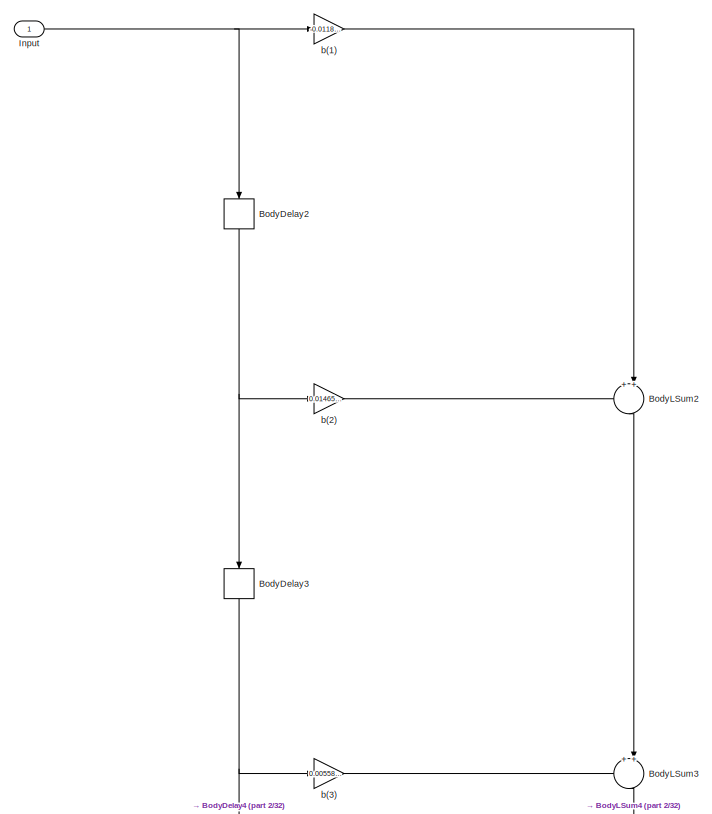
[diagram: OPV Receiver/clock_recovery_2fplus_highpass - part 1/32, full width, top band]
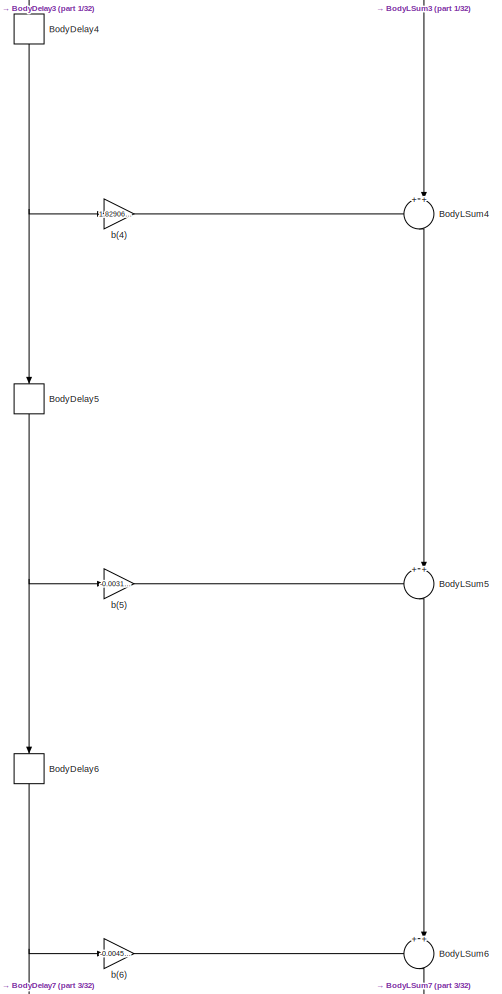
[diagram: OPV Receiver/clock_recovery_2fplus_highpass - part 2/32, top center region]
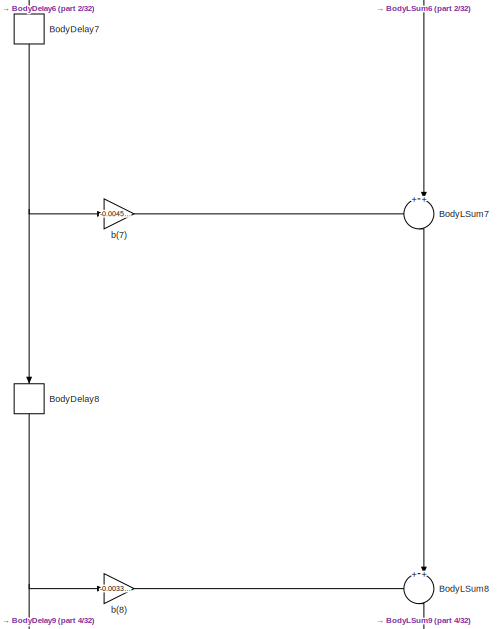
[diagram: OPV Receiver/clock_recovery_2fplus_highpass - part 3/32, top center region]
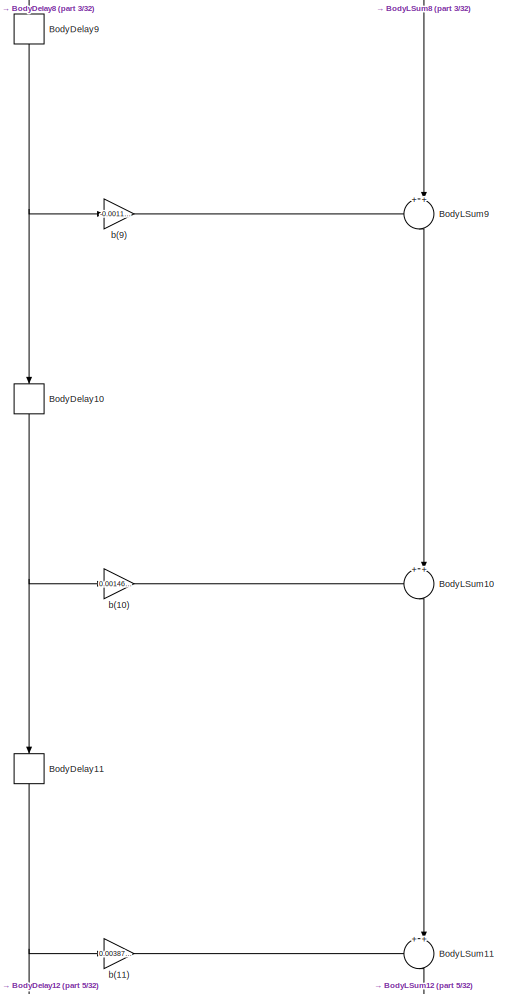
[diagram: OPV Receiver/clock_recovery_2fplus_highpass - part 4/32, top center region]
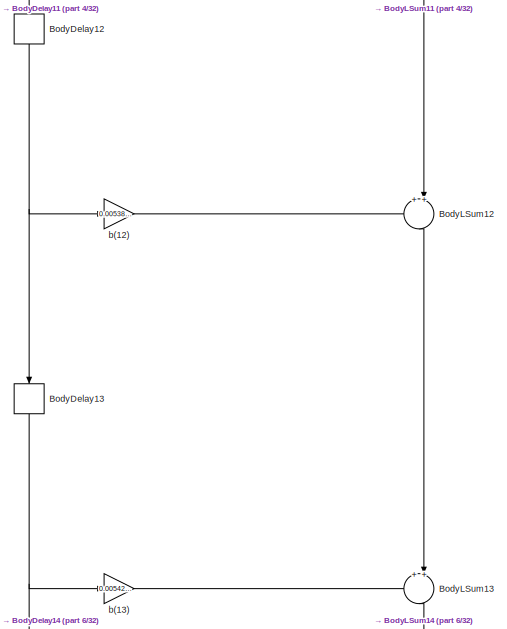
[diagram: OPV Receiver/clock_recovery_2fplus_highpass - part 5/32, top center region]
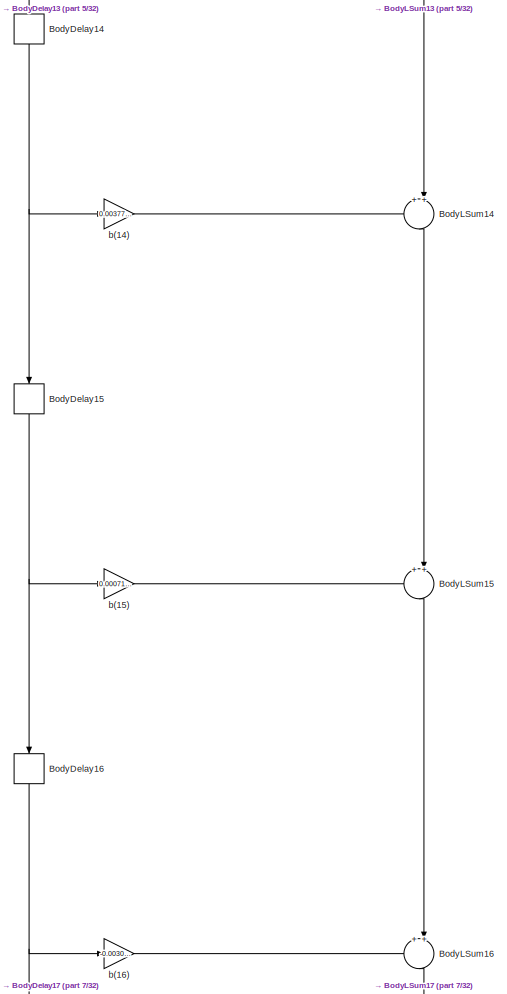
[diagram: OPV Receiver/clock_recovery_2fplus_highpass - part 6/32, top center region]
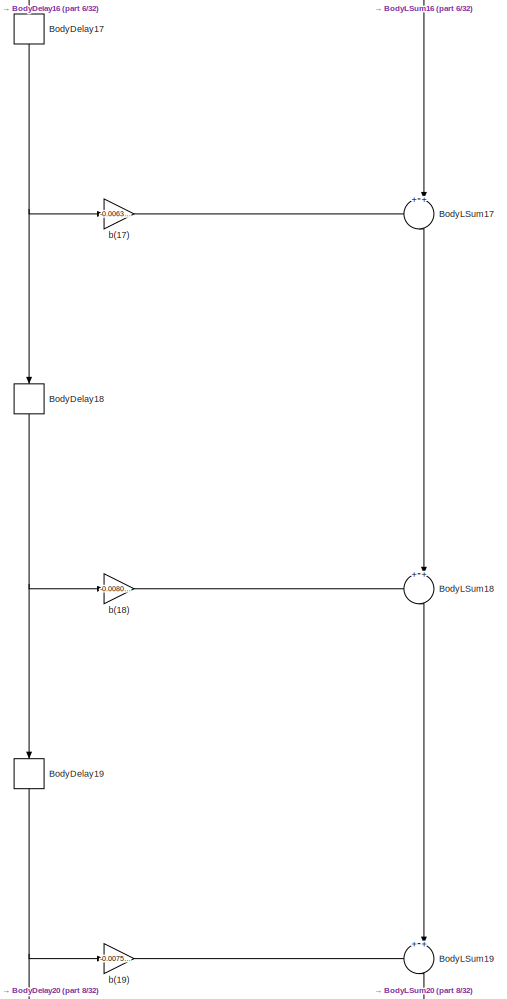
[diagram: OPV Receiver/clock_recovery_2fplus_highpass - part 7/32, top center region]
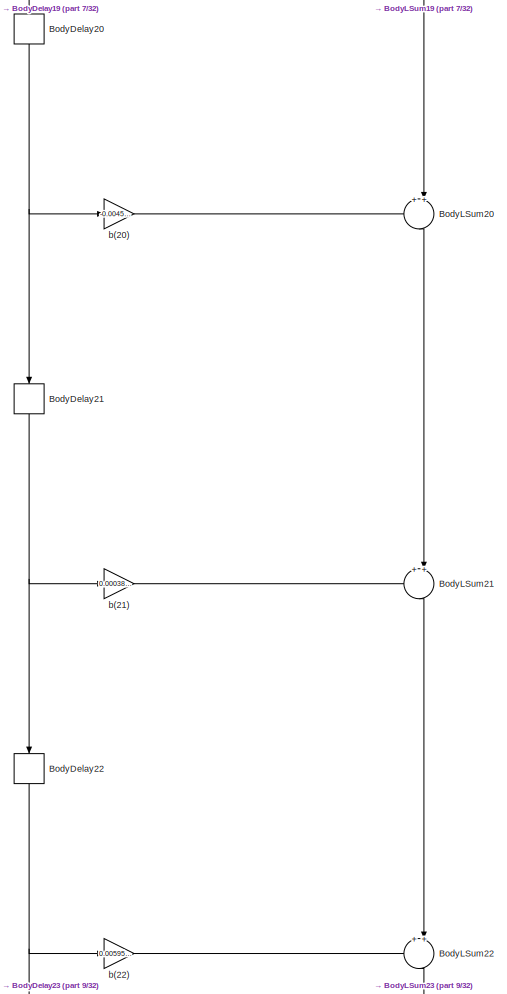
[diagram: OPV Receiver/clock_recovery_2fplus_highpass - part 8/32, top center region]
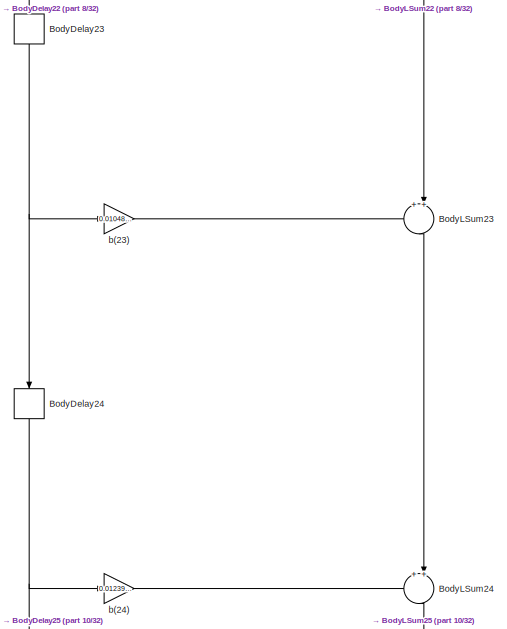
[diagram: OPV Receiver/clock_recovery_2fplus_highpass - part 9/32, top center region]
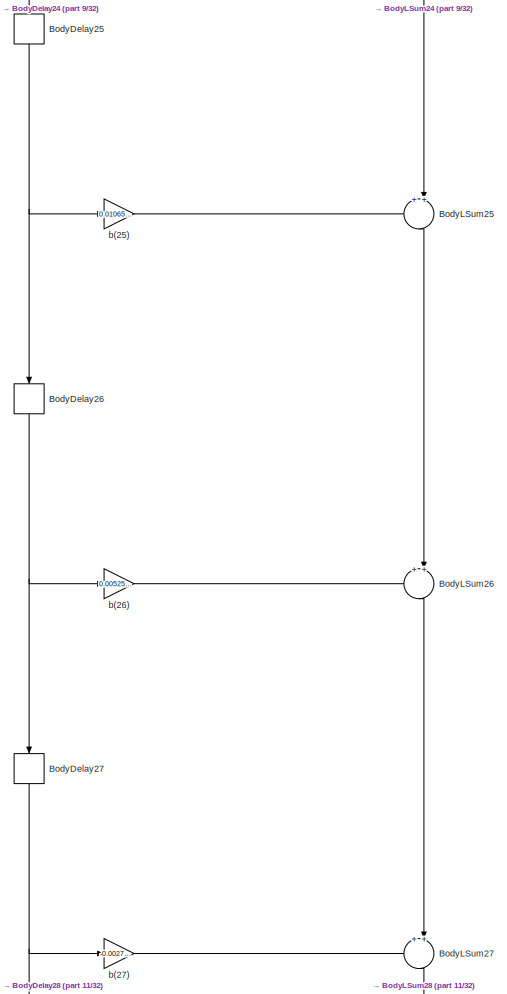
[diagram: OPV Receiver/clock_recovery_2fplus_highpass - part 10/32, top center region]
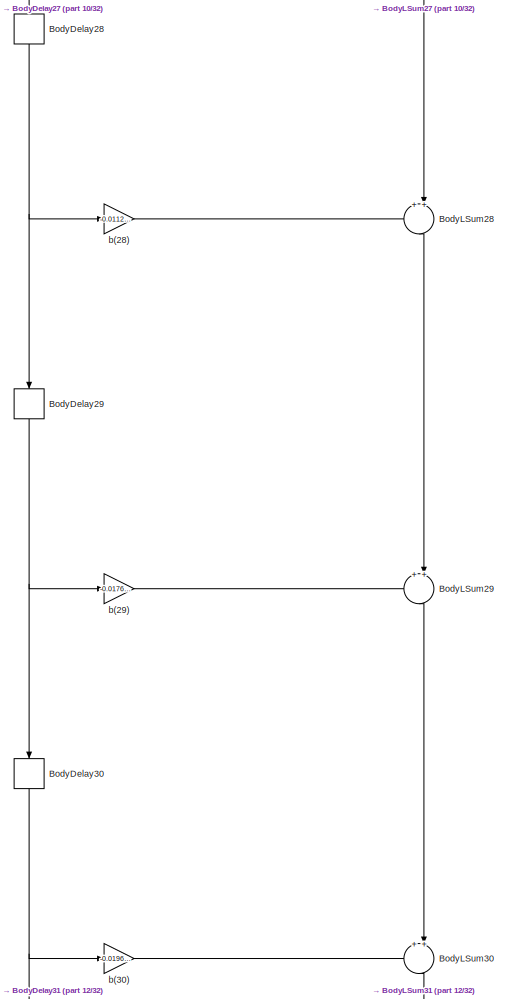
[diagram: OPV Receiver/clock_recovery_2fplus_highpass - part 11/32, top center region]
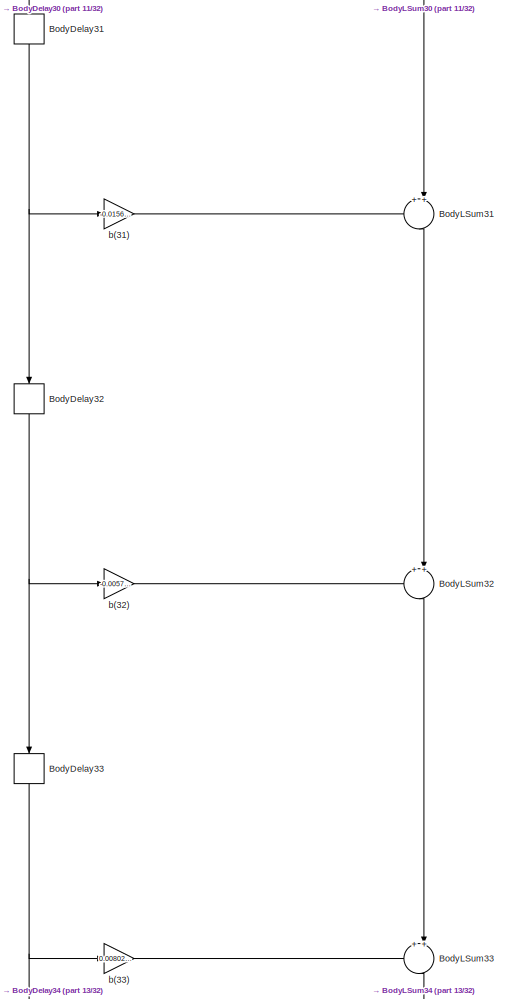
[diagram: OPV Receiver/clock_recovery_2fplus_highpass - part 12/32, central region]
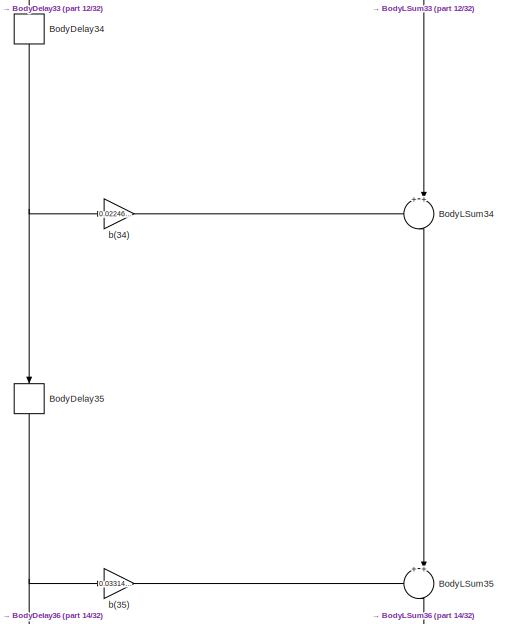
[diagram: OPV Receiver/clock_recovery_2fplus_highpass - part 13/32, central region]
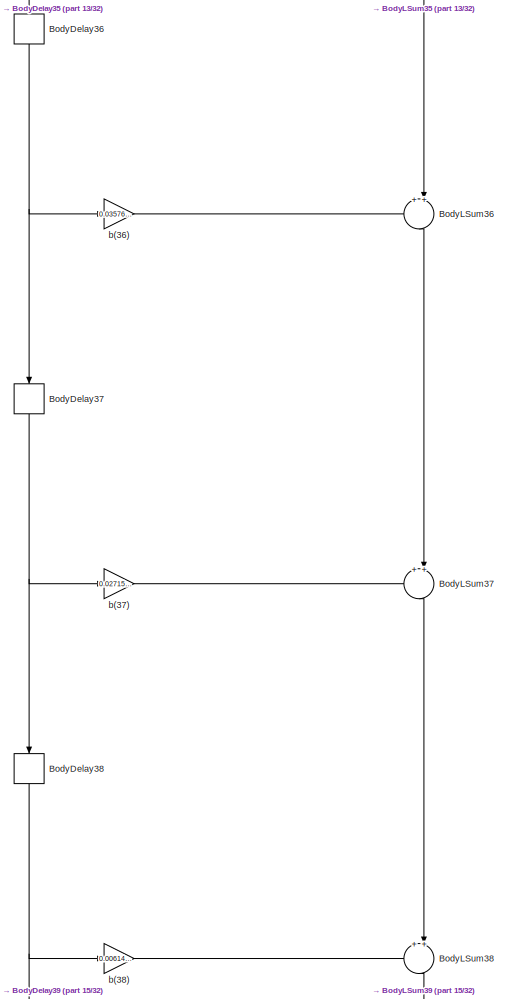
[diagram: OPV Receiver/clock_recovery_2fplus_highpass - part 14/32, central region]
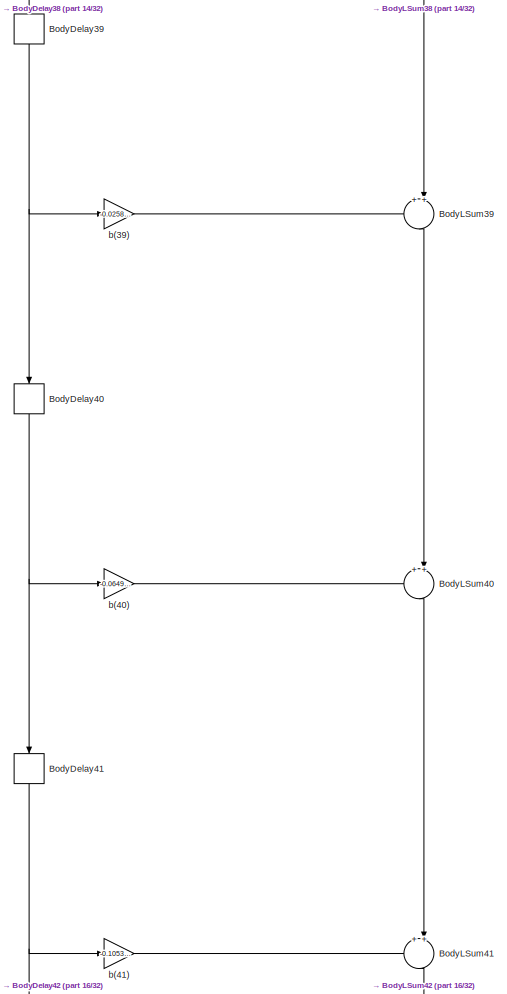
[diagram: OPV Receiver/clock_recovery_2fplus_highpass - part 15/32, central region]
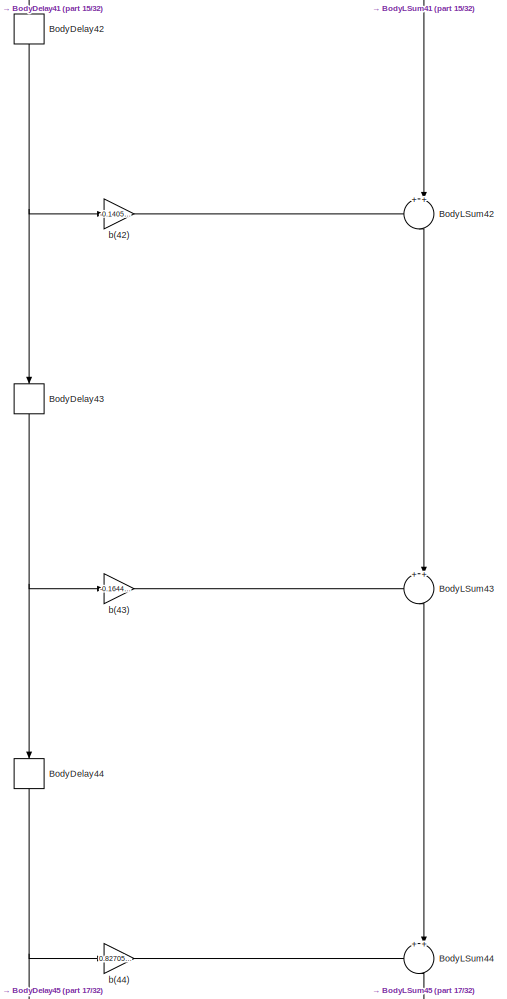
[diagram: OPV Receiver/clock_recovery_2fplus_highpass - part 16/32, central region]
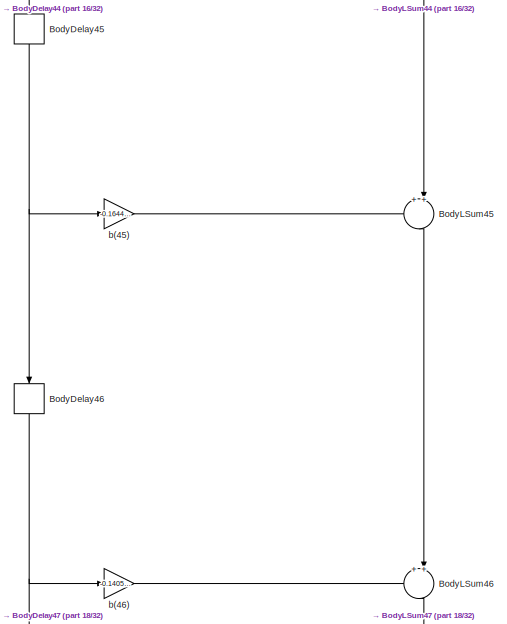
[diagram: OPV Receiver/clock_recovery_2fplus_highpass - part 17/32, central region]
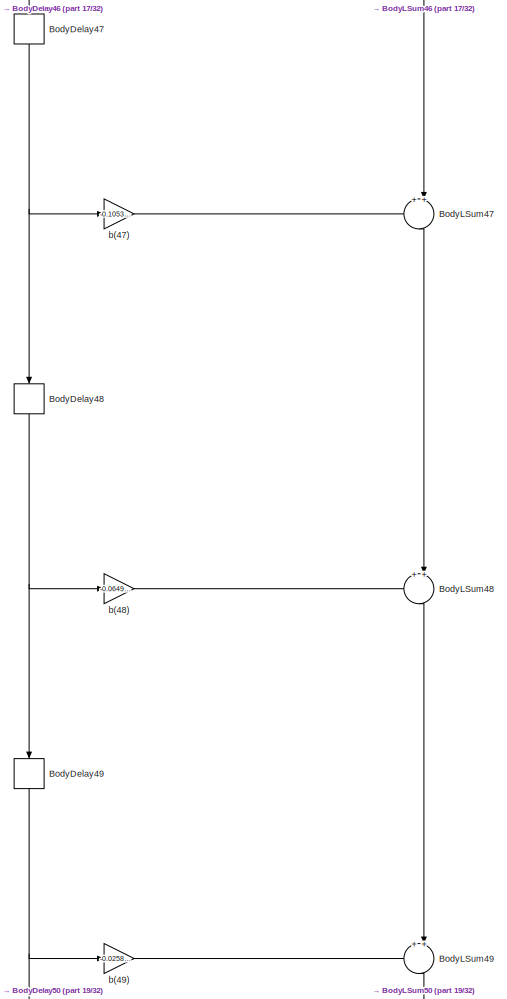
[diagram: OPV Receiver/clock_recovery_2fplus_highpass - part 18/32, central region]
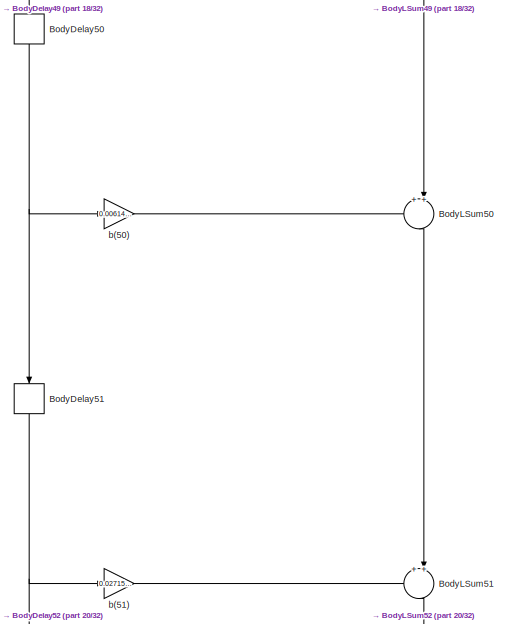
[diagram: OPV Receiver/clock_recovery_2fplus_highpass - part 19/32, central region]
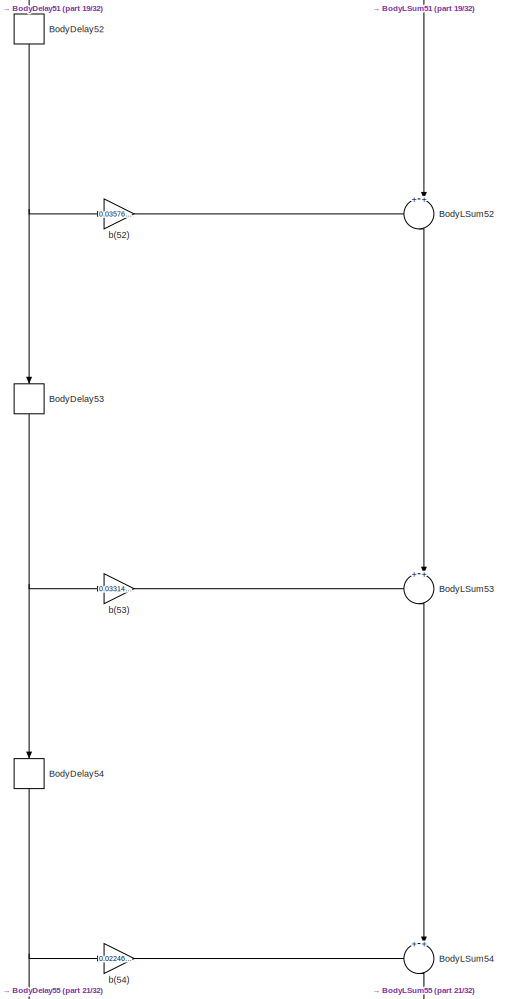
[diagram: OPV Receiver/clock_recovery_2fplus_highpass - part 20/32, central region]
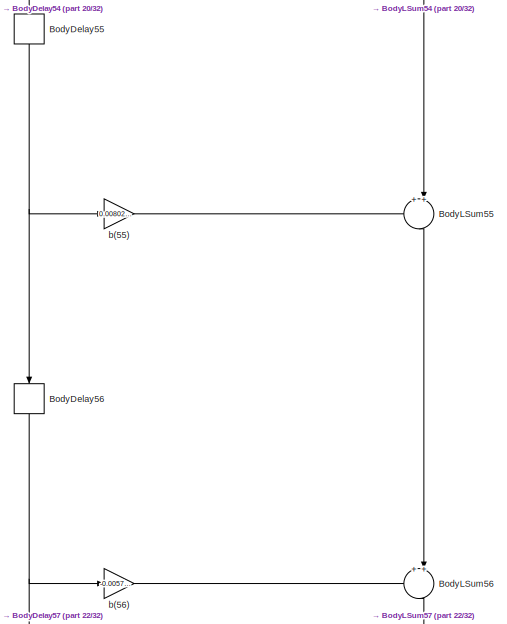
[diagram: OPV Receiver/clock_recovery_2fplus_highpass - part 21/32, central region]
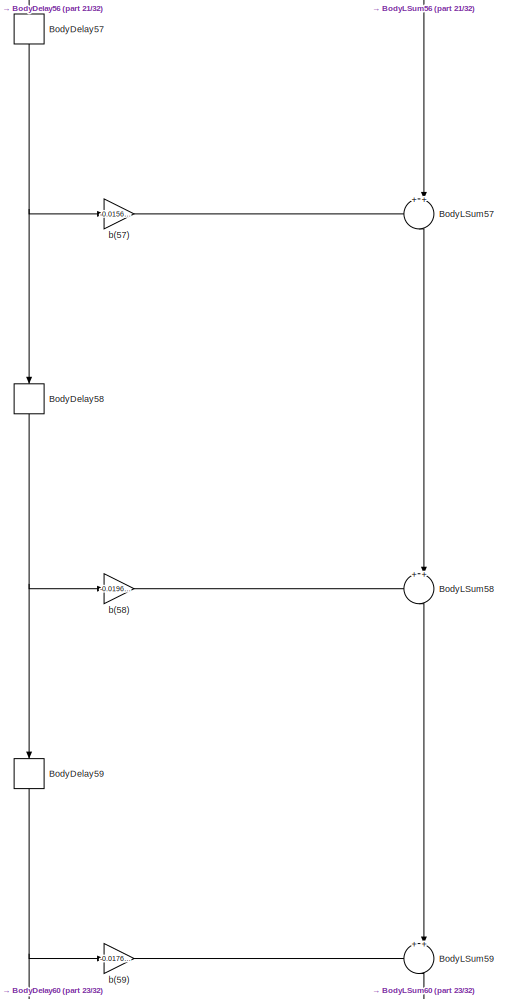
[diagram: OPV Receiver/clock_recovery_2fplus_highpass - part 22/32, central region]
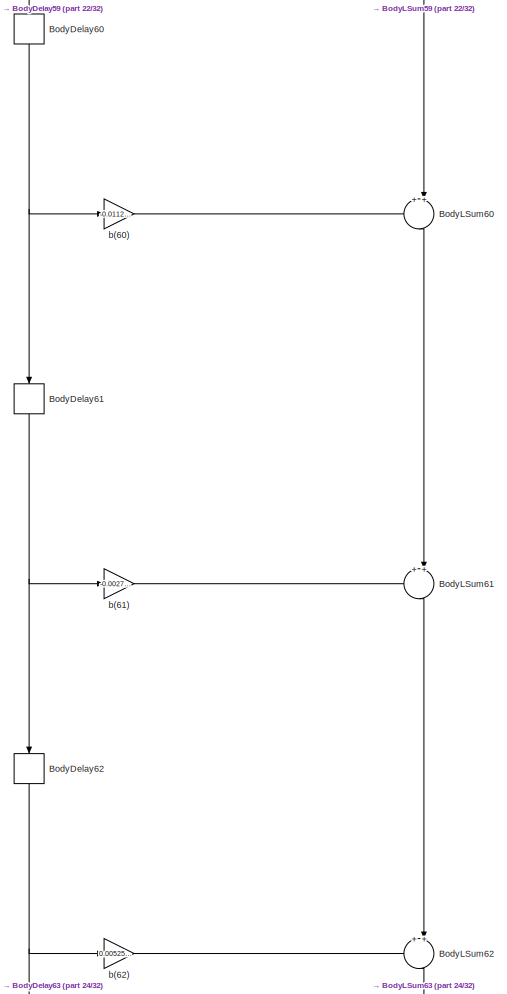
[diagram: OPV Receiver/clock_recovery_2fplus_highpass - part 23/32, bottom center region]
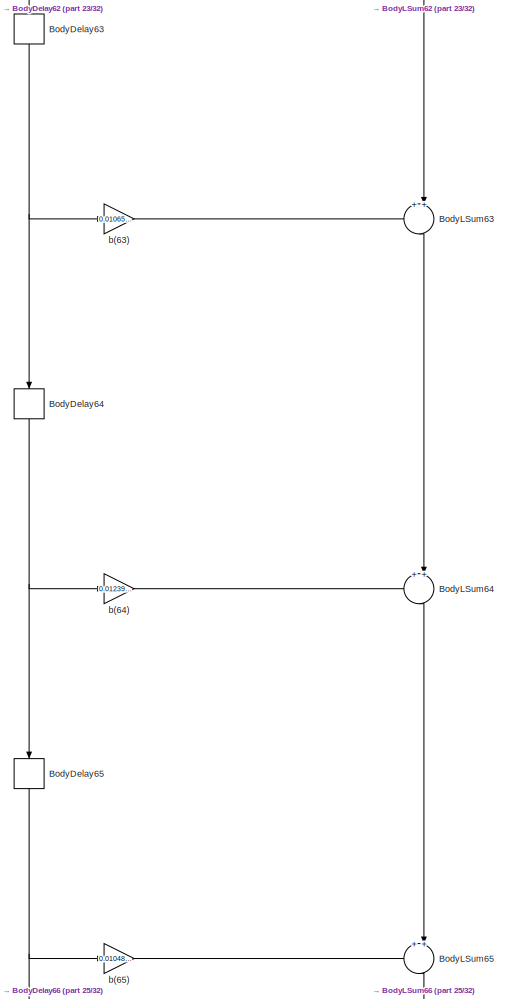
[diagram: OPV Receiver/clock_recovery_2fplus_highpass - part 24/32, bottom center region]
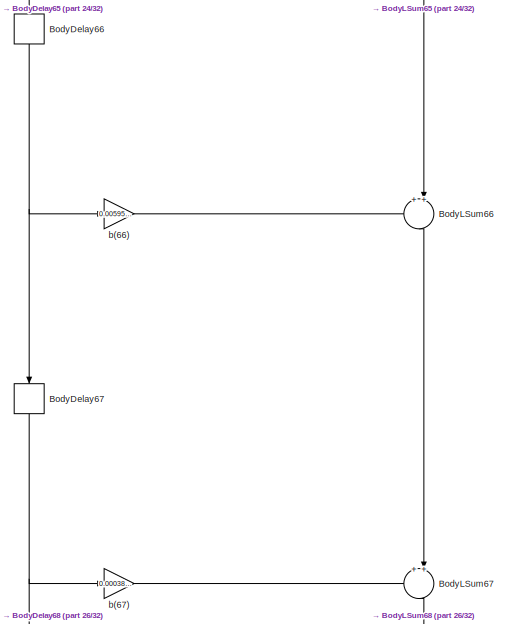
[diagram: OPV Receiver/clock_recovery_2fplus_highpass - part 25/32, bottom center region]
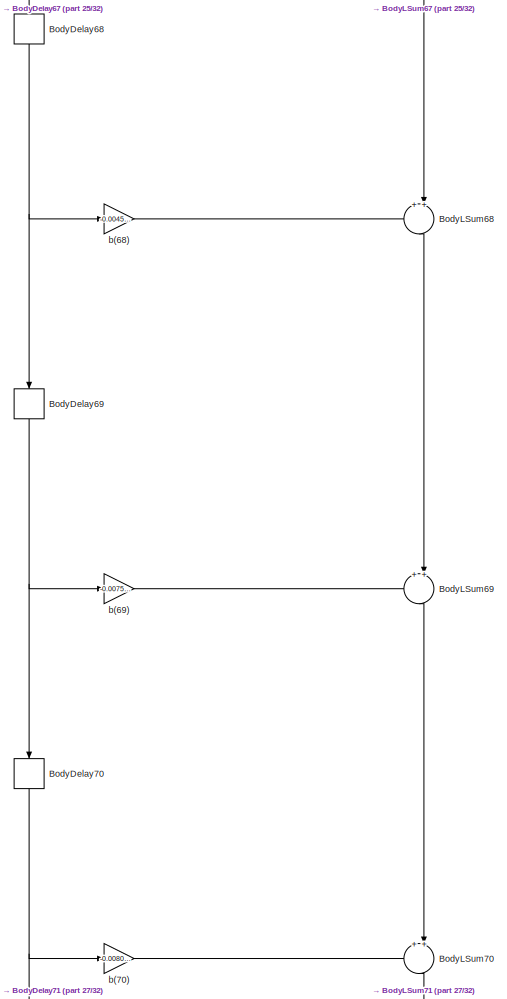
[diagram: OPV Receiver/clock_recovery_2fplus_highpass - part 26/32, bottom center region]
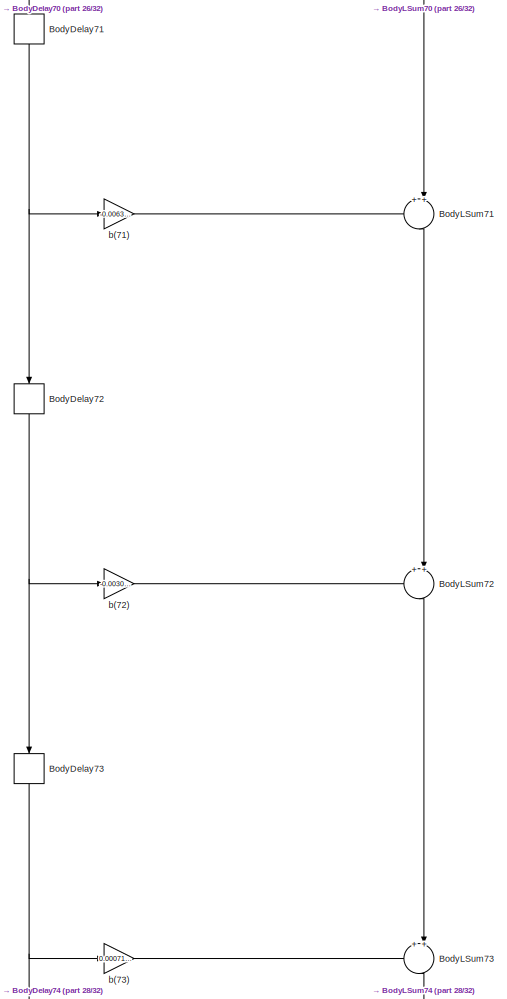
[diagram: OPV Receiver/clock_recovery_2fplus_highpass - part 27/32, bottom center region]
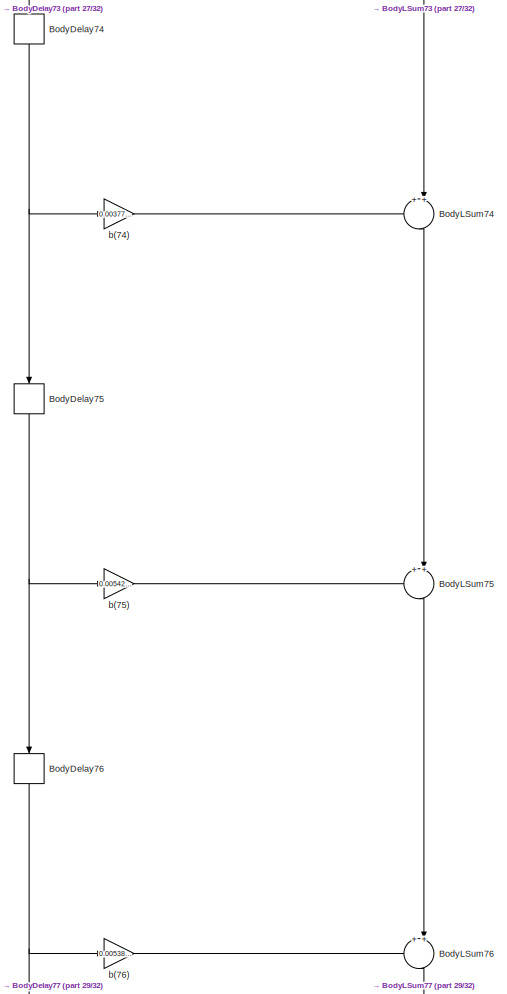
[diagram: OPV Receiver/clock_recovery_2fplus_highpass - part 28/32, bottom center region]
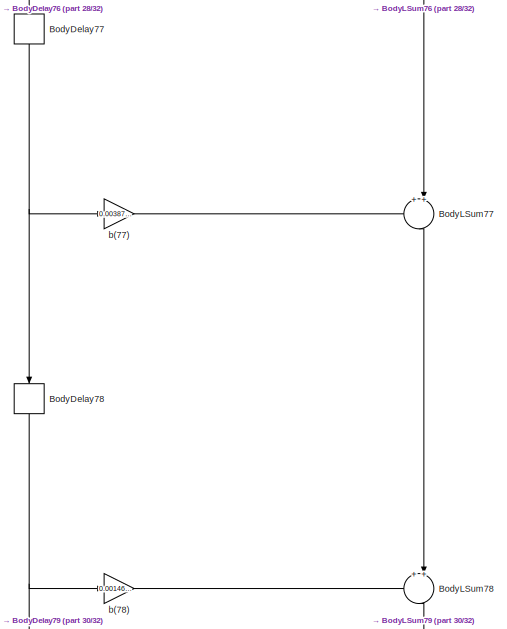
[diagram: OPV Receiver/clock_recovery_2fplus_highpass - part 29/32, bottom center region]
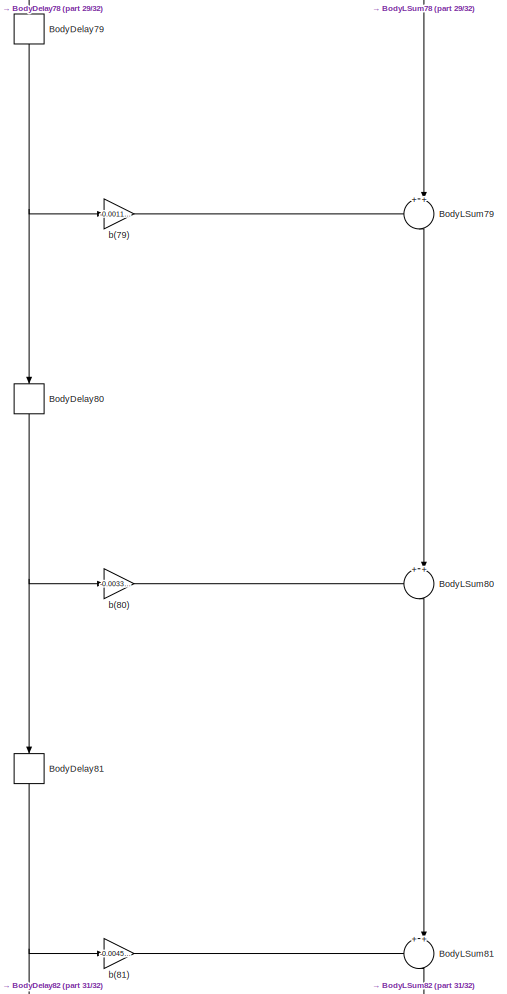
[diagram: OPV Receiver/clock_recovery_2fplus_highpass - part 30/32, bottom center region]
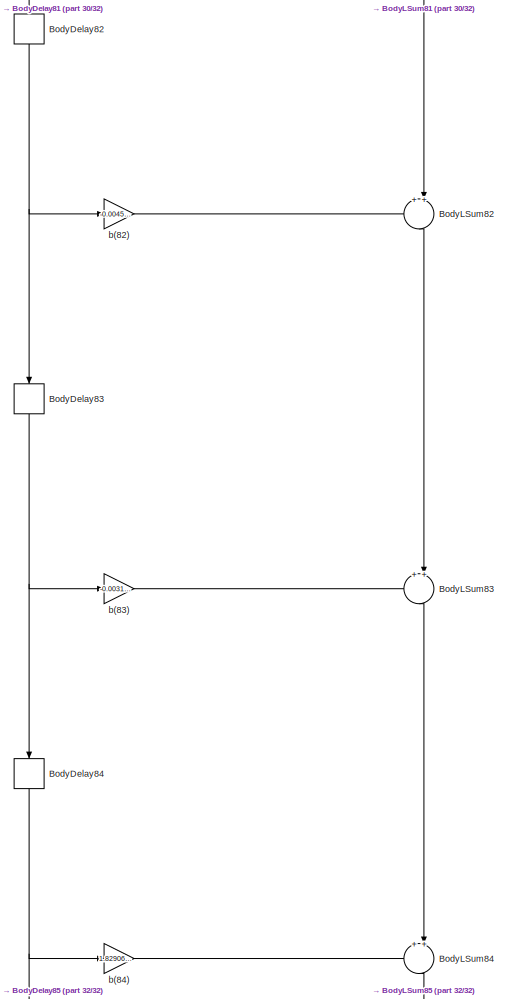
[diagram: OPV Receiver/clock_recovery_2fplus_highpass - part 31/32, bottom center region]
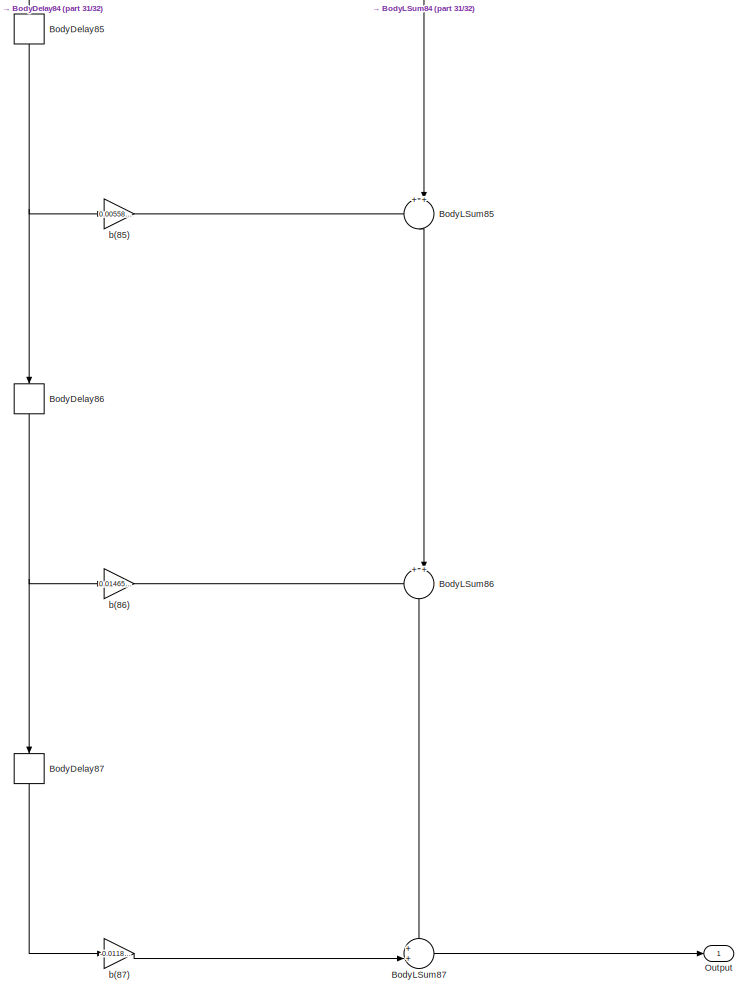
[diagram: OPV Receiver/clock_recovery_2fplus_highpass - part 32/32, full width, bottom band]
BLOCK [SubSystem] OPV Receiver/clock_recovery_2fplus_highpass
  ErrorFcn = dspFilterRealizedInBasicElemsAlgLoopErrFcnCallback
  Tag = FilterWizardSubSystem
  UserDataPersistent = on
BLOCK [Delay] OPV Receiver/clock_recovery_2fplus_highpass/BodyDelay10
  DelayLength = 1
  InitialCondition = 0
  InputPortMap = u0
  InputProcessing = Columns as channels (frame based)
  NameLocation = right
BLOCK [Delay] OPV Receiver/clock_recovery_2fplus_highpass/BodyDelay11
  DelayLength = 1
  InitialCondition = 0
  InputPortMap = u0
  InputProcessing = Columns as channels (frame based)
  NameLocation = right
BLOCK [Delay] OPV Receiver/clock_recovery_2fplus_highpass/BodyDelay12
  DelayLength = 1
  InitialCondition = 0
  InputPortMap = u0
  InputProcessing = Columns as channels (frame based)
  NameLocation = right
BLOCK [Delay] OPV Receiver/clock_recovery_2fplus_highpass/BodyDelay13
  DelayLength = 1
  InitialCondition = 0
  InputPortMap = u0
  InputProcessing = Columns as channels (frame based)
  NameLocation = right
BLOCK [Delay] OPV Receiver/clock_recovery_2fplus_highpass/BodyDelay14
  DelayLength = 1
  InitialCondition = 0
  InputPortMap = u0
  InputProcessing = Columns as channels (frame based)
  NameLocation = right
BLOCK [Delay] OPV Receiver/clock_recovery_2fplus_highpass/BodyDelay15
  DelayLength = 1
  InitialCondition = 0
  InputPortMap = u0
  InputProcessing = Columns as channels (frame based)
  NameLocation = right
BLOCK [Delay] OPV Receiver/clock_recovery_2fplus_highpass/BodyDelay16
  DelayLength = 1
  InitialCondition = 0
  InputPortMap = u0
  InputProcessing = Columns as channels (frame based)
  NameLocation = right
BLOCK [Delay] OPV Receiver/clock_recovery_2fplus_highpass/BodyDelay17
  DelayLength = 1
  InitialCondition = 0
  InputPortMap = u0
  InputProcessing = Columns as channels (frame based)
  NameLocation = right
BLOCK [Delay] OPV Receiver/clock_recovery_2fplus_highpass/BodyDelay18
  DelayLength = 1
  InitialCondition = 0
  InputPortMap = u0
  InputProcessing = Columns as channels (frame based)
  NameLocation = right
BLOCK [Delay] OPV Receiver/clock_recovery_2fplus_highpass/BodyDelay19
  DelayLength = 1
  InitialCondition = 0
  InputPortMap = u0
  InputProcessing = Columns as channels (frame based)
  NameLocation = right
BLOCK [Delay] OPV Receiver/clock_recovery_2fplus_highpass/BodyDelay2
  DelayLength = 1
  InitialCondition = 0
  InputPortMap = u0
  InputProcessing = Columns as channels (frame based)
  NameLocation = right
BLOCK [Delay] OPV Receiver/clock_recovery_2fplus_highpass/BodyDelay20
  DelayLength = 1
  InitialCondition = 0
  InputPortMap = u0
  InputProcessing = Columns as channels (frame based)
  NameLocation = right
BLOCK [Delay] OPV Receiver/clock_recovery_2fplus_highpass/BodyDelay21
  DelayLength = 1
  InitialCondition = 0
  InputPortMap = u0
  InputProcessing = Columns as channels (frame based)
  NameLocation = right
BLOCK [Delay] OPV Receiver/clock_recovery_2fplus_highpass/BodyDelay22
  DelayLength = 1
  InitialCondition = 0
  InputPortMap = u0
  InputProcessing = Columns as channels (frame based)
  NameLocation = right
BLOCK [Delay] OPV Receiver/clock_recovery_2fplus_highpass/BodyDelay23
  DelayLength = 1
  InitialCondition = 0
  InputPortMap = u0
  InputProcessing = Columns as channels (frame based)
  NameLocation = right
BLOCK [Delay] OPV Receiver/clock_recovery_2fplus_highpass/BodyDelay24
  DelayLength = 1
  InitialCondition = 0
  InputPortMap = u0
  InputProcessing = Columns as channels (frame based)
  NameLocation = right
BLOCK [Delay] OPV Receiver/clock_recovery_2fplus_highpass/BodyDelay25
  DelayLength = 1
  InitialCondition = 0
  InputPortMap = u0
  InputProcessing = Columns as channels (frame based)
  NameLocation = right
BLOCK [Delay] OPV Receiver/clock_recovery_2fplus_highpass/BodyDelay26
  DelayLength = 1
  InitialCondition = 0
  InputPortMap = u0
  InputProcessing = Columns as channels (frame based)
  NameLocation = right
BLOCK [Delay] OPV Receiver/clock_recovery_2fplus_highpass/BodyDelay27
  DelayLength = 1
  InitialCondition = 0
  InputPortMap = u0
  InputProcessing = Columns as channels (frame based)
  NameLocation = right
BLOCK [Delay] OPV Receiver/clock_recovery_2fplus_highpass/BodyDelay28
  DelayLength = 1
  InitialCondition = 0
  InputPortMap = u0
  InputProcessing = Columns as channels (frame based)
  NameLocation = right
BLOCK [Delay] OPV Receiver/clock_recovery_2fplus_highpass/BodyDelay29
  DelayLength = 1
  InitialCondition = 0
  InputPortMap = u0
  InputProcessing = Columns as channels (frame based)
  NameLocation = right
BLOCK [Delay] OPV Receiver/clock_recovery_2fplus_highpass/BodyDelay3
  DelayLength = 1
  InitialCondition = 0
  InputPortMap = u0
  InputProcessing = Columns as channels (frame based)
  NameLocation = right
BLOCK [Delay] OPV Receiver/clock_recovery_2fplus_highpass/BodyDelay30
  DelayLength = 1
  InitialCondition = 0
  InputPortMap = u0
  InputProcessing = Columns as channels (frame based)
  NameLocation = right
BLOCK [Delay] OPV Receiver/clock_recovery_2fplus_highpass/BodyDelay31
  DelayLength = 1
  InitialCondition = 0
  InputPortMap = u0
  InputProcessing = Columns as channels (frame based)
  NameLocation = right
BLOCK [Delay] OPV Receiver/clock_recovery_2fplus_highpass/BodyDelay32
  DelayLength = 1
  InitialCondition = 0
  InputPortMap = u0
  InputProcessing = Columns as channels (frame based)
  NameLocation = right
BLOCK [Delay] OPV Receiver/clock_recovery_2fplus_highpass/BodyDelay33
  DelayLength = 1
  InitialCondition = 0
  InputPortMap = u0
  InputProcessing = Columns as channels (frame based)
  NameLocation = right
BLOCK [Delay] OPV Receiver/clock_recovery_2fplus_highpass/BodyDelay34
  DelayLength = 1
  InitialCondition = 0
  InputPortMap = u0
  InputProcessing = Columns as channels (frame based)
  NameLocation = right
BLOCK [Delay] OPV Receiver/clock_recovery_2fplus_highpass/BodyDelay35
  DelayLength = 1
  InitialCondition = 0
  InputPortMap = u0
  InputProcessing = Columns as channels (frame based)
  NameLocation = right
BLOCK [Delay] OPV Receiver/clock_recovery_2fplus_highpass/BodyDelay36
  DelayLength = 1
  InitialCondition = 0
  InputPortMap = u0
  InputProcessing = Columns as channels (frame based)
  NameLocation = right
BLOCK [Delay] OPV Receiver/clock_recovery_2fplus_highpass/BodyDelay37
  DelayLength = 1
  InitialCondition = 0
  InputPortMap = u0
  InputProcessing = Columns as channels (frame based)
  NameLocation = right
BLOCK [Delay] OPV Receiver/clock_recovery_2fplus_highpass/BodyDelay38
  DelayLength = 1
  InitialCondition = 0
  InputPortMap = u0
  InputProcessing = Columns as channels (frame based)
  NameLocation = right
BLOCK [Delay] OPV Receiver/clock_recovery_2fplus_highpass/BodyDelay39
  DelayLength = 1
  InitialCondition = 0
  InputPortMap = u0
  InputProcessing = Columns as channels (frame based)
  NameLocation = right
BLOCK [Delay] OPV Receiver/clock_recovery_2fplus_highpass/BodyDelay4
  DelayLength = 1
  InitialCondition = 0
  InputPortMap = u0
  InputProcessing = Columns as channels (frame based)
  NameLocation = right
BLOCK [Delay] OPV Receiver/clock_recovery_2fplus_highpass/BodyDelay40
  DelayLength = 1
  InitialCondition = 0
  InputPortMap = u0
  InputProcessing = Columns as channels (frame based)
  NameLocation = right
BLOCK [Delay] OPV Receiver/clock_recovery_2fplus_highpass/BodyDelay41
  DelayLength = 1
  InitialCondition = 0
  InputPortMap = u0
  InputProcessing = Columns as channels (frame based)
  NameLocation = right
BLOCK [Delay] OPV Receiver/clock_recovery_2fplus_highpass/BodyDelay42
  DelayLength = 1
  InitialCondition = 0
  InputPortMap = u0
  InputProcessing = Columns as channels (frame based)
  NameLocation = right
BLOCK [Delay] OPV Receiver/clock_recovery_2fplus_highpass/BodyDelay43
  DelayLength = 1
  InitialCondition = 0
  InputPortMap = u0
  InputProcessing = Columns as channels (frame based)
  NameLocation = right
BLOCK [Delay] OPV Receiver/clock_recovery_2fplus_highpass/BodyDelay44
  DelayLength = 1
  InitialCondition = 0
  InputPortMap = u0
  InputProcessing = Columns as channels (frame based)
  NameLocation = right
BLOCK [Delay] OPV Receiver/clock_recovery_2fplus_highpass/BodyDelay45
  DelayLength = 1
  InitialCondition = 0
  InputPortMap = u0
  InputProcessing = Columns as channels (frame based)
  NameLocation = right
BLOCK [Delay] OPV Receiver/clock_recovery_2fplus_highpass/BodyDelay46
  DelayLength = 1
  InitialCondition = 0
  InputPortMap = u0
  InputProcessing = Columns as channels (frame based)
  NameLocation = right
BLOCK [Delay] OPV Receiver/clock_recovery_2fplus_highpass/BodyDelay47
  DelayLength = 1
  InitialCondition = 0
  InputPortMap = u0
  InputProcessing = Columns as channels (frame based)
  NameLocation = right
BLOCK [Delay] OPV Receiver/clock_recovery_2fplus_highpass/BodyDelay48
  DelayLength = 1
  InitialCondition = 0
  InputPortMap = u0
  InputProcessing = Columns as channels (frame based)
  NameLocation = right
BLOCK [Delay] OPV Receiver/clock_recovery_2fplus_highpass/BodyDelay49
  DelayLength = 1
  InitialCondition = 0
  InputPortMap = u0
  InputProcessing = Columns as channels (frame based)
  NameLocation = right
BLOCK [Delay] OPV Receiver/clock_recovery_2fplus_highpass/BodyDelay5
  DelayLength = 1
  InitialCondition = 0
  InputPortMap = u0
  InputProcessing = Columns as channels (frame based)
  NameLocation = right
BLOCK [Delay] OPV Receiver/clock_recovery_2fplus_highpass/BodyDelay50
  DelayLength = 1
  InitialCondition = 0
  InputPortMap = u0
  InputProcessing = Columns as channels (frame based)
  NameLocation = right
BLOCK [Delay] OPV Receiver/clock_recovery_2fplus_highpass/BodyDelay51
  DelayLength = 1
  InitialCondition = 0
  InputPortMap = u0
  InputProcessing = Columns as channels (frame based)
  NameLocation = right
BLOCK [Delay] OPV Receiver/clock_recovery_2fplus_highpass/BodyDelay52
  DelayLength = 1
  InitialCondition = 0
  InputPortMap = u0
  InputProcessing = Columns as channels (frame based)
  NameLocation = right
BLOCK [Delay] OPV Receiver/clock_recovery_2fplus_highpass/BodyDelay53
  DelayLength = 1
  InitialCondition = 0
  InputPortMap = u0
  InputProcessing = Columns as channels (frame based)
  NameLocation = right
BLOCK [Delay] OPV Receiver/clock_recovery_2fplus_highpass/BodyDelay54
  DelayLength = 1
  InitialCondition = 0
  InputPortMap = u0
  InputProcessing = Columns as channels (frame based)
  NameLocation = right
BLOCK [Delay] OPV Receiver/clock_recovery_2fplus_highpass/BodyDelay55
  DelayLength = 1
  InitialCondition = 0
  InputPortMap = u0
  InputProcessing = Columns as channels (frame based)
  NameLocation = right
BLOCK [Delay] OPV Receiver/clock_recovery_2fplus_highpass/BodyDelay56
  DelayLength = 1
  InitialCondition = 0
  InputPortMap = u0
  InputProcessing = Columns as channels (frame based)
  NameLocation = right
BLOCK [Delay] OPV Receiver/clock_recovery_2fplus_highpass/BodyDelay57
  DelayLength = 1
  InitialCondition = 0
  InputPortMap = u0
  InputProcessing = Columns as channels (frame based)
  NameLocation = right
BLOCK [Delay] OPV Receiver/clock_recovery_2fplus_highpass/BodyDelay58
  DelayLength = 1
  InitialCondition = 0
  InputPortMap = u0
  InputProcessing = Columns as channels (frame based)
  NameLocation = right
BLOCK [Delay] OPV Receiver/clock_recovery_2fplus_highpass/BodyDelay59
  DelayLength = 1
  InitialCondition = 0
  InputPortMap = u0
  InputProcessing = Columns as channels (frame based)
  NameLocation = right
BLOCK [Delay] OPV Receiver/clock_recovery_2fplus_highpass/BodyDelay6
  DelayLength = 1
  InitialCondition = 0
  InputPortMap = u0
  InputProcessing = Columns as channels (frame based)
  NameLocation = right
BLOCK [Delay] OPV Receiver/clock_recovery_2fplus_highpass/BodyDelay60
  DelayLength = 1
  InitialCondition = 0
  InputPortMap = u0
  InputProcessing = Columns as channels (frame based)
  NameLocation = right
BLOCK [Delay] OPV Receiver/clock_recovery_2fplus_highpass/BodyDelay61
  DelayLength = 1
  InitialCondition = 0
  InputPortMap = u0
  InputProcessing = Columns as channels (frame based)
  NameLocation = right
BLOCK [Delay] OPV Receiver/clock_recovery_2fplus_highpass/BodyDelay62
  DelayLength = 1
  InitialCondition = 0
  InputPortMap = u0
  InputProcessing = Columns as channels (frame based)
  NameLocation = right
BLOCK [Delay] OPV Receiver/clock_recovery_2fplus_highpass/BodyDelay63
  DelayLength = 1
  InitialCondition = 0
  InputPortMap = u0
  InputProcessing = Columns as channels (frame based)
  NameLocation = right
BLOCK [Delay] OPV Receiver/clock_recovery_2fplus_highpass/BodyDelay64
  DelayLength = 1
  InitialCondition = 0
  InputPortMap = u0
  InputProcessing = Columns as channels (frame based)
  NameLocation = right
BLOCK [Delay] OPV Receiver/clock_recovery_2fplus_highpass/BodyDelay65
  DelayLength = 1
  InitialCondition = 0
  InputPortMap = u0
  InputProcessing = Columns as channels (frame based)
  NameLocation = right
BLOCK [Delay] OPV Receiver/clock_recovery_2fplus_highpass/BodyDelay66
  DelayLength = 1
  InitialCondition = 0
  InputPortMap = u0
  InputProcessing = Columns as channels (frame based)
  NameLocation = right
BLOCK [Delay] OPV Receiver/clock_recovery_2fplus_highpass/BodyDelay67
  DelayLength = 1
  InitialCondition = 0
  InputPortMap = u0
  InputProcessing = Columns as channels (frame based)
  NameLocation = right
BLOCK [Delay] OPV Receiver/clock_recovery_2fplus_highpass/BodyDelay68
  DelayLength = 1
  InitialCondition = 0
  InputPortMap = u0
  InputProcessing = Columns as channels (frame based)
  NameLocation = right
BLOCK [Delay] OPV Receiver/clock_recovery_2fplus_highpass/BodyDelay69
  DelayLength = 1
  InitialCondition = 0
  InputPortMap = u0
  InputProcessing = Columns as channels (frame based)
  NameLocation = right
BLOCK [Delay] OPV Receiver/clock_recovery_2fplus_highpass/BodyDelay7
  DelayLength = 1
  InitialCondition = 0
  InputPortMap = u0
  InputProcessing = Columns as channels (frame based)
  NameLocation = right
BLOCK [Delay] OPV Receiver/clock_recovery_2fplus_highpass/BodyDelay70
  DelayLength = 1
  InitialCondition = 0
  InputPortMap = u0
  InputProcessing = Columns as channels (frame based)
  NameLocation = right
BLOCK [Delay] OPV Receiver/clock_recovery_2fplus_highpass/BodyDelay71
  DelayLength = 1
  InitialCondition = 0
  InputPortMap = u0
  InputProcessing = Columns as channels (frame based)
  NameLocation = right
BLOCK [Delay] OPV Receiver/clock_recovery_2fplus_highpass/BodyDelay72
  DelayLength = 1
  InitialCondition = 0
  InputPortMap = u0
  InputProcessing = Columns as channels (frame based)
  NameLocation = right
BLOCK [Delay] OPV Receiver/clock_recovery_2fplus_highpass/BodyDelay73
  DelayLength = 1
  InitialCondition = 0
  InputPortMap = u0
  InputProcessing = Columns as channels (frame based)
  NameLocation = right
BLOCK [Delay] OPV Receiver/clock_recovery_2fplus_highpass/BodyDelay74
  DelayLength = 1
  InitialCondition = 0
  InputPortMap = u0
  InputProcessing = Columns as channels (frame based)
  NameLocation = right
BLOCK [Delay] OPV Receiver/clock_recovery_2fplus_highpass/BodyDelay75
  DelayLength = 1
  InitialCondition = 0
  InputPortMap = u0
  InputProcessing = Columns as channels (frame based)
  NameLocation = right
BLOCK [Delay] OPV Receiver/clock_recovery_2fplus_highpass/BodyDelay76
  DelayLength = 1
  InitialCondition = 0
  InputPortMap = u0
  InputProcessing = Columns as channels (frame based)
  NameLocation = right
BLOCK [Delay] OPV Receiver/clock_recovery_2fplus_highpass/BodyDelay77
  DelayLength = 1
  InitialCondition = 0
  InputPortMap = u0
  InputProcessing = Columns as channels (frame based)
  NameLocation = right
BLOCK [Delay] OPV Receiver/clock_recovery_2fplus_highpass/BodyDelay78
  DelayLength = 1
  InitialCondition = 0
  InputPortMap = u0
  InputProcessing = Columns as channels (frame based)
  NameLocation = right
BLOCK [Delay] OPV Receiver/clock_recovery_2fplus_highpass/BodyDelay79
  DelayLength = 1
  InitialCondition = 0
  InputPortMap = u0
  InputProcessing = Columns as channels (frame based)
  NameLocation = right
BLOCK [Delay] OPV Receiver/clock_recovery_2fplus_highpass/BodyDelay8
  DelayLength = 1
  InitialCondition = 0
  InputPortMap = u0
  InputProcessing = Columns as channels (frame based)
  NameLocation = right
BLOCK [Delay] OPV Receiver/clock_recovery_2fplus_highpass/BodyDelay80
  DelayLength = 1
  InitialCondition = 0
  InputPortMap = u0
  InputProcessing = Columns as channels (frame based)
  NameLocation = right
BLOCK [Delay] OPV Receiver/clock_recovery_2fplus_highpass/BodyDelay81
  DelayLength = 1
  InitialCondition = 0
  InputPortMap = u0
  InputProcessing = Columns as channels (frame based)
  NameLocation = right
BLOCK [Delay] OPV Receiver/clock_recovery_2fplus_highpass/BodyDelay82
  DelayLength = 1
  InitialCondition = 0
  InputPortMap = u0
  InputProcessing = Columns as channels (frame based)
  NameLocation = right
BLOCK [Delay] OPV Receiver/clock_recovery_2fplus_highpass/BodyDelay83
  DelayLength = 1
  InitialCondition = 0
  InputPortMap = u0
  InputProcessing = Columns as channels (frame based)
  NameLocation = right
BLOCK [Delay] OPV Receiver/clock_recovery_2fplus_highpass/BodyDelay84
  DelayLength = 1
  InitialCondition = 0
  InputPortMap = u0
  InputProcessing = Columns as channels (frame based)
  NameLocation = right
BLOCK [Delay] OPV Receiver/clock_recovery_2fplus_highpass/BodyDelay85
  DelayLength = 1
  InitialCondition = 0
  InputPortMap = u0
  InputProcessing = Columns as channels (frame based)
  NameLocation = right
BLOCK [Delay] OPV Receiver/clock_recovery_2fplus_highpass/BodyDelay86
  DelayLength = 1
  InitialCondition = 0
  InputPortMap = u0
  InputProcessing = Columns as channels (frame based)
  NameLocation = right
BLOCK [Delay] OPV Receiver/clock_recovery_2fplus_highpass/BodyDelay87
  DelayLength = 1
  InitialCondition = 0
  InputPortMap = u0
  InputProcessing = Columns as channels (frame based)
  NameLocation = right
BLOCK [Delay] OPV Receiver/clock_recovery_2fplus_highpass/BodyDelay9
  DelayLength = 1
  InitialCondition = 0
  InputPortMap = u0
  InputProcessing = Columns as channels (frame based)
  NameLocation = right
BLOCK [Sum] OPV Receiver/clock_recovery_2fplus_highpass/BodyLSum10
  Inputs = ++|
  NameLocation = right
  OutDataTypeStr = Inherit: Same as first input
  RndMeth = Nearest
  SaturateOnIntegerOverflow = on
BLOCK [Sum] OPV Receiver/clock_recovery_2fplus_highpass/BodyLSum11
  Inputs = ++|
  NameLocation = right
  OutDataTypeStr = Inherit: Same as first input
  RndMeth = Nearest
  SaturateOnIntegerOverflow = on
BLOCK [Sum] OPV Receiver/clock_recovery_2fplus_highpass/BodyLSum12
  Inputs = ++|
  NameLocation = right
  OutDataTypeStr = Inherit: Same as first input
  RndMeth = Nearest
  SaturateOnIntegerOverflow = on
BLOCK [Sum] OPV Receiver/clock_recovery_2fplus_highpass/BodyLSum13
  Inputs = ++|
  NameLocation = right
  OutDataTypeStr = Inherit: Same as first input
  RndMeth = Nearest
  SaturateOnIntegerOverflow = on
BLOCK [Sum] OPV Receiver/clock_recovery_2fplus_highpass/BodyLSum14
  Inputs = ++|
  NameLocation = right
  OutDataTypeStr = Inherit: Same as first input
  RndMeth = Nearest
  SaturateOnIntegerOverflow = on
BLOCK [Sum] OPV Receiver/clock_recovery_2fplus_highpass/BodyLSum15
  Inputs = ++|
  NameLocation = right
  OutDataTypeStr = Inherit: Same as first input
  RndMeth = Nearest
  SaturateOnIntegerOverflow = on
BLOCK [Sum] OPV Receiver/clock_recovery_2fplus_highpass/BodyLSum16
  Inputs = ++|
  NameLocation = right
  OutDataTypeStr = Inherit: Same as first input
  RndMeth = Nearest
  SaturateOnIntegerOverflow = on
BLOCK [Sum] OPV Receiver/clock_recovery_2fplus_highpass/BodyLSum17
  Inputs = ++|
  NameLocation = right
  OutDataTypeStr = Inherit: Same as first input
  RndMeth = Nearest
  SaturateOnIntegerOverflow = on
BLOCK [Sum] OPV Receiver/clock_recovery_2fplus_highpass/BodyLSum18
  Inputs = ++|
  NameLocation = right
  OutDataTypeStr = Inherit: Same as first input
  RndMeth = Nearest
  SaturateOnIntegerOverflow = on
BLOCK [Sum] OPV Receiver/clock_recovery_2fplus_highpass/BodyLSum19
  Inputs = ++|
  NameLocation = right
  OutDataTypeStr = Inherit: Same as first input
  RndMeth = Nearest
  SaturateOnIntegerOverflow = on
BLOCK [Sum] OPV Receiver/clock_recovery_2fplus_highpass/BodyLSum2
  Inputs = ++|
  NameLocation = right
  OutDataTypeStr = Inherit: Same as first input
  RndMeth = Nearest
  SaturateOnIntegerOverflow = on
BLOCK [Sum] OPV Receiver/clock_recovery_2fplus_highpass/BodyLSum20
  Inputs = ++|
  NameLocation = right
  OutDataTypeStr = Inherit: Same as first input
  RndMeth = Nearest
  SaturateOnIntegerOverflow = on
BLOCK [Sum] OPV Receiver/clock_recovery_2fplus_highpass/BodyLSum21
  Inputs = ++|
  NameLocation = right
  OutDataTypeStr = Inherit: Same as first input
  RndMeth = Nearest
  SaturateOnIntegerOverflow = on
BLOCK [Sum] OPV Receiver/clock_recovery_2fplus_highpass/BodyLSum22
  Inputs = ++|
  NameLocation = right
  OutDataTypeStr = Inherit: Same as first input
  RndMeth = Nearest
  SaturateOnIntegerOverflow = on
BLOCK [Sum] OPV Receiver/clock_recovery_2fplus_highpass/BodyLSum23
  Inputs = ++|
  NameLocation = right
  OutDataTypeStr = Inherit: Same as first input
  RndMeth = Nearest
  SaturateOnIntegerOverflow = on
BLOCK [Sum] OPV Receiver/clock_recovery_2fplus_highpass/BodyLSum24
  Inputs = ++|
  NameLocation = right
  OutDataTypeStr = Inherit: Same as first input
  RndMeth = Nearest
  SaturateOnIntegerOverflow = on
BLOCK [Sum] OPV Receiver/clock_recovery_2fplus_highpass/BodyLSum25
  Inputs = ++|
  NameLocation = right
  OutDataTypeStr = Inherit: Same as first input
  RndMeth = Nearest
  SaturateOnIntegerOverflow = on
BLOCK [Sum] OPV Receiver/clock_recovery_2fplus_highpass/BodyLSum26
  Inputs = ++|
  NameLocation = right
  OutDataTypeStr = Inherit: Same as first input
  RndMeth = Nearest
  SaturateOnIntegerOverflow = on
BLOCK [Sum] OPV Receiver/clock_recovery_2fplus_highpass/BodyLSum27
  Inputs = ++|
  NameLocation = right
  OutDataTypeStr = Inherit: Same as first input
  RndMeth = Nearest
  SaturateOnIntegerOverflow = on
BLOCK [Sum] OPV Receiver/clock_recovery_2fplus_highpass/BodyLSum28
  Inputs = ++|
  NameLocation = right
  OutDataTypeStr = Inherit: Same as first input
  RndMeth = Nearest
  SaturateOnIntegerOverflow = on
BLOCK [Sum] OPV Receiver/clock_recovery_2fplus_highpass/BodyLSum29
  Inputs = ++|
  NameLocation = right
  OutDataTypeStr = Inherit: Same as first input
  RndMeth = Nearest
  SaturateOnIntegerOverflow = on
BLOCK [Sum] OPV Receiver/clock_recovery_2fplus_highpass/BodyLSum3
  Inputs = ++|
  NameLocation = right
  OutDataTypeStr = Inherit: Same as first input
  RndMeth = Nearest
  SaturateOnIntegerOverflow = on
BLOCK [Sum] OPV Receiver/clock_recovery_2fplus_highpass/BodyLSum30
  Inputs = ++|
  NameLocation = right
  OutDataTypeStr = Inherit: Same as first input
  RndMeth = Nearest
  SaturateOnIntegerOverflow = on
BLOCK [Sum] OPV Receiver/clock_recovery_2fplus_highpass/BodyLSum31
  Inputs = ++|
  NameLocation = right
  OutDataTypeStr = Inherit: Same as first input
  RndMeth = Nearest
  SaturateOnIntegerOverflow = on
BLOCK [Sum] OPV Receiver/clock_recovery_2fplus_highpass/BodyLSum32
  Inputs = ++|
  NameLocation = right
  OutDataTypeStr = Inherit: Same as first input
  RndMeth = Nearest
  SaturateOnIntegerOverflow = on
BLOCK [Sum] OPV Receiver/clock_recovery_2fplus_highpass/BodyLSum33
  Inputs = ++|
  NameLocation = right
  OutDataTypeStr = Inherit: Same as first input
  RndMeth = Nearest
  SaturateOnIntegerOverflow = on
BLOCK [Sum] OPV Receiver/clock_recovery_2fplus_highpass/BodyLSum34
  Inputs = ++|
  NameLocation = right
  OutDataTypeStr = Inherit: Same as first input
  RndMeth = Nearest
  SaturateOnIntegerOverflow = on
BLOCK [Sum] OPV Receiver/clock_recovery_2fplus_highpass/BodyLSum35
  Inputs = ++|
  NameLocation = right
  OutDataTypeStr = Inherit: Same as first input
  RndMeth = Nearest
  SaturateOnIntegerOverflow = on
BLOCK [Sum] OPV Receiver/clock_recovery_2fplus_highpass/BodyLSum36
  Inputs = ++|
  NameLocation = right
  OutDataTypeStr = Inherit: Same as first input
  RndMeth = Nearest
  SaturateOnIntegerOverflow = on
BLOCK [Sum] OPV Receiver/clock_recovery_2fplus_highpass/BodyLSum37
  Inputs = ++|
  NameLocation = right
  OutDataTypeStr = Inherit: Same as first input
  RndMeth = Nearest
  SaturateOnIntegerOverflow = on
BLOCK [Sum] OPV Receiver/clock_recovery_2fplus_highpass/BodyLSum38
  Inputs = ++|
  NameLocation = right
  OutDataTypeStr = Inherit: Same as first input
  RndMeth = Nearest
  SaturateOnIntegerOverflow = on
BLOCK [Sum] OPV Receiver/clock_recovery_2fplus_highpass/BodyLSum39
  Inputs = ++|
  NameLocation = right
  OutDataTypeStr = Inherit: Same as first input
  RndMeth = Nearest
  SaturateOnIntegerOverflow = on
BLOCK [Sum] OPV Receiver/clock_recovery_2fplus_highpass/BodyLSum4
  Inputs = ++|
  NameLocation = right
  OutDataTypeStr = Inherit: Same as first input
  RndMeth = Nearest
  SaturateOnIntegerOverflow = on
BLOCK [Sum] OPV Receiver/clock_recovery_2fplus_highpass/BodyLSum40
  Inputs = ++|
  NameLocation = right
  OutDataTypeStr = Inherit: Same as first input
  RndMeth = Nearest
  SaturateOnIntegerOverflow = on
BLOCK [Sum] OPV Receiver/clock_recovery_2fplus_highpass/BodyLSum41
  Inputs = ++|
  NameLocation = right
  OutDataTypeStr = Inherit: Same as first input
  RndMeth = Nearest
  SaturateOnIntegerOverflow = on
BLOCK [Sum] OPV Receiver/clock_recovery_2fplus_highpass/BodyLSum42
  Inputs = ++|
  NameLocation = right
  OutDataTypeStr = Inherit: Same as first input
  RndMeth = Nearest
  SaturateOnIntegerOverflow = on
BLOCK [Sum] OPV Receiver/clock_recovery_2fplus_highpass/BodyLSum43
  Inputs = ++|
  NameLocation = right
  OutDataTypeStr = Inherit: Same as first input
  RndMeth = Nearest
  SaturateOnIntegerOverflow = on
BLOCK [Sum] OPV Receiver/clock_recovery_2fplus_highpass/BodyLSum44
  Inputs = ++|
  NameLocation = right
  OutDataTypeStr = Inherit: Same as first input
  RndMeth = Nearest
  SaturateOnIntegerOverflow = on
BLOCK [Sum] OPV Receiver/clock_recovery_2fplus_highpass/BodyLSum45
  Inputs = ++|
  NameLocation = right
  OutDataTypeStr = Inherit: Same as first input
  RndMeth = Nearest
  SaturateOnIntegerOverflow = on
BLOCK [Sum] OPV Receiver/clock_recovery_2fplus_highpass/BodyLSum46
  Inputs = ++|
  NameLocation = right
  OutDataTypeStr = Inherit: Same as first input
  RndMeth = Nearest
  SaturateOnIntegerOverflow = on
BLOCK [Sum] OPV Receiver/clock_recovery_2fplus_highpass/BodyLSum47
  Inputs = ++|
  NameLocation = right
  OutDataTypeStr = Inherit: Same as first input
  RndMeth = Nearest
  SaturateOnIntegerOverflow = on
BLOCK [Sum] OPV Receiver/clock_recovery_2fplus_highpass/BodyLSum48
  Inputs = ++|
  NameLocation = right
  OutDataTypeStr = Inherit: Same as first input
  RndMeth = Nearest
  SaturateOnIntegerOverflow = on
BLOCK [Sum] OPV Receiver/clock_recovery_2fplus_highpass/BodyLSum49
  Inputs = ++|
  NameLocation = right
  OutDataTypeStr = Inherit: Same as first input
  RndMeth = Nearest
  SaturateOnIntegerOverflow = on
BLOCK [Sum] OPV Receiver/clock_recovery_2fplus_highpass/BodyLSum5
  Inputs = ++|
  NameLocation = right
  OutDataTypeStr = Inherit: Same as first input
  RndMeth = Nearest
  SaturateOnIntegerOverflow = on
BLOCK [Sum] OPV Receiver/clock_recovery_2fplus_highpass/BodyLSum50
  Inputs = ++|
  NameLocation = right
  OutDataTypeStr = Inherit: Same as first input
  RndMeth = Nearest
  SaturateOnIntegerOverflow = on
BLOCK [Sum] OPV Receiver/clock_recovery_2fplus_highpass/BodyLSum51
  Inputs = ++|
  NameLocation = right
  OutDataTypeStr = Inherit: Same as first input
  RndMeth = Nearest
  SaturateOnIntegerOverflow = on
BLOCK [Sum] OPV Receiver/clock_recovery_2fplus_highpass/BodyLSum52
  Inputs = ++|
  NameLocation = right
  OutDataTypeStr = Inherit: Same as first input
  RndMeth = Nearest
  SaturateOnIntegerOverflow = on
BLOCK [Sum] OPV Receiver/clock_recovery_2fplus_highpass/BodyLSum53
  Inputs = ++|
  NameLocation = right
  OutDataTypeStr = Inherit: Same as first input
  RndMeth = Nearest
  SaturateOnIntegerOverflow = on
BLOCK [Sum] OPV Receiver/clock_recovery_2fplus_highpass/BodyLSum54
  Inputs = ++|
  NameLocation = right
  OutDataTypeStr = Inherit: Same as first input
  RndMeth = Nearest
  SaturateOnIntegerOverflow = on
BLOCK [Sum] OPV Receiver/clock_recovery_2fplus_highpass/BodyLSum55
  Inputs = ++|
  NameLocation = right
  OutDataTypeStr = Inherit: Same as first input
  RndMeth = Nearest
  SaturateOnIntegerOverflow = on
BLOCK [Sum] OPV Receiver/clock_recovery_2fplus_highpass/BodyLSum56
  Inputs = ++|
  NameLocation = right
  OutDataTypeStr = Inherit: Same as first input
  RndMeth = Nearest
  SaturateOnIntegerOverflow = on
BLOCK [Sum] OPV Receiver/clock_recovery_2fplus_highpass/BodyLSum57
  Inputs = ++|
  NameLocation = right
  OutDataTypeStr = Inherit: Same as first input
  RndMeth = Nearest
  SaturateOnIntegerOverflow = on
BLOCK [Sum] OPV Receiver/clock_recovery_2fplus_highpass/BodyLSum58
  Inputs = ++|
  NameLocation = right
  OutDataTypeStr = Inherit: Same as first input
  RndMeth = Nearest
  SaturateOnIntegerOverflow = on
BLOCK [Sum] OPV Receiver/clock_recovery_2fplus_highpass/BodyLSum59
  Inputs = ++|
  NameLocation = right
  OutDataTypeStr = Inherit: Same as first input
  RndMeth = Nearest
  SaturateOnIntegerOverflow = on
BLOCK [Sum] OPV Receiver/clock_recovery_2fplus_highpass/BodyLSum6
  Inputs = ++|
  NameLocation = right
  OutDataTypeStr = Inherit: Same as first input
  RndMeth = Nearest
  SaturateOnIntegerOverflow = on
BLOCK [Sum] OPV Receiver/clock_recovery_2fplus_highpass/BodyLSum60
  Inputs = ++|
  NameLocation = right
  OutDataTypeStr = Inherit: Same as first input
  RndMeth = Nearest
  SaturateOnIntegerOverflow = on
BLOCK [Sum] OPV Receiver/clock_recovery_2fplus_highpass/BodyLSum61
  Inputs = ++|
  NameLocation = right
  OutDataTypeStr = Inherit: Same as first input
  RndMeth = Nearest
  SaturateOnIntegerOverflow = on
BLOCK [Sum] OPV Receiver/clock_recovery_2fplus_highpass/BodyLSum62
  Inputs = ++|
  NameLocation = right
  OutDataTypeStr = Inherit: Same as first input
  RndMeth = Nearest
  SaturateOnIntegerOverflow = on
BLOCK [Sum] OPV Receiver/clock_recovery_2fplus_highpass/BodyLSum63
  Inputs = ++|
  NameLocation = right
  OutDataTypeStr = Inherit: Same as first input
  RndMeth = Nearest
  SaturateOnIntegerOverflow = on
BLOCK [Sum] OPV Receiver/clock_recovery_2fplus_highpass/BodyLSum64
  Inputs = ++|
  NameLocation = right
  OutDataTypeStr = Inherit: Same as first input
  RndMeth = Nearest
  SaturateOnIntegerOverflow = on
BLOCK [Sum] OPV Receiver/clock_recovery_2fplus_highpass/BodyLSum65
  Inputs = ++|
  NameLocation = right
  OutDataTypeStr = Inherit: Same as first input
  RndMeth = Nearest
  SaturateOnIntegerOverflow = on
BLOCK [Sum] OPV Receiver/clock_recovery_2fplus_highpass/BodyLSum66
  Inputs = ++|
  NameLocation = right
  OutDataTypeStr = Inherit: Same as first input
  RndMeth = Nearest
  SaturateOnIntegerOverflow = on
BLOCK [Sum] OPV Receiver/clock_recovery_2fplus_highpass/BodyLSum67
  Inputs = ++|
  NameLocation = right
  OutDataTypeStr = Inherit: Same as first input
  RndMeth = Nearest
  SaturateOnIntegerOverflow = on
BLOCK [Sum] OPV Receiver/clock_recovery_2fplus_highpass/BodyLSum68
  Inputs = ++|
  NameLocation = right
  OutDataTypeStr = Inherit: Same as first input
  RndMeth = Nearest
  SaturateOnIntegerOverflow = on
BLOCK [Sum] OPV Receiver/clock_recovery_2fplus_highpass/BodyLSum69
  Inputs = ++|
  NameLocation = right
  OutDataTypeStr = Inherit: Same as first input
  RndMeth = Nearest
  SaturateOnIntegerOverflow = on
BLOCK [Sum] OPV Receiver/clock_recovery_2fplus_highpass/BodyLSum7
  Inputs = ++|
  NameLocation = right
  OutDataTypeStr = Inherit: Same as first input
  RndMeth = Nearest
  SaturateOnIntegerOverflow = on
BLOCK [Sum] OPV Receiver/clock_recovery_2fplus_highpass/BodyLSum70
  Inputs = ++|
  NameLocation = right
  OutDataTypeStr = Inherit: Same as first input
  RndMeth = Nearest
  SaturateOnIntegerOverflow = on
BLOCK [Sum] OPV Receiver/clock_recovery_2fplus_highpass/BodyLSum71
  Inputs = ++|
  NameLocation = right
  OutDataTypeStr = Inherit: Same as first input
  RndMeth = Nearest
  SaturateOnIntegerOverflow = on
BLOCK [Sum] OPV Receiver/clock_recovery_2fplus_highpass/BodyLSum72
  Inputs = ++|
  NameLocation = right
  OutDataTypeStr = Inherit: Same as first input
  RndMeth = Nearest
  SaturateOnIntegerOverflow = on
BLOCK [Sum] OPV Receiver/clock_recovery_2fplus_highpass/BodyLSum73
  Inputs = ++|
  NameLocation = right
  OutDataTypeStr = Inherit: Same as first input
  RndMeth = Nearest
  SaturateOnIntegerOverflow = on
BLOCK [Sum] OPV Receiver/clock_recovery_2fplus_highpass/BodyLSum74
  Inputs = ++|
  NameLocation = right
  OutDataTypeStr = Inherit: Same as first input
  RndMeth = Nearest
  SaturateOnIntegerOverflow = on
BLOCK [Sum] OPV Receiver/clock_recovery_2fplus_highpass/BodyLSum75
  Inputs = ++|
  NameLocation = right
  OutDataTypeStr = Inherit: Same as first input
  RndMeth = Nearest
  SaturateOnIntegerOverflow = on
BLOCK [Sum] OPV Receiver/clock_recovery_2fplus_highpass/BodyLSum76
  Inputs = ++|
  NameLocation = right
  OutDataTypeStr = Inherit: Same as first input
  RndMeth = Nearest
  SaturateOnIntegerOverflow = on
BLOCK [Sum] OPV Receiver/clock_recovery_2fplus_highpass/BodyLSum77
  Inputs = ++|
  NameLocation = right
  OutDataTypeStr = Inherit: Same as first input
  RndMeth = Nearest
  SaturateOnIntegerOverflow = on
BLOCK [Sum] OPV Receiver/clock_recovery_2fplus_highpass/BodyLSum78
  Inputs = ++|
  NameLocation = right
  OutDataTypeStr = Inherit: Same as first input
  RndMeth = Nearest
  SaturateOnIntegerOverflow = on
BLOCK [Sum] OPV Receiver/clock_recovery_2fplus_highpass/BodyLSum79
  Inputs = ++|
  NameLocation = right
  OutDataTypeStr = Inherit: Same as first input
  RndMeth = Nearest
  SaturateOnIntegerOverflow = on
BLOCK [Sum] OPV Receiver/clock_recovery_2fplus_highpass/BodyLSum8
  Inputs = ++|
  NameLocation = right
  OutDataTypeStr = Inherit: Same as first input
  RndMeth = Nearest
  SaturateOnIntegerOverflow = on
BLOCK [Sum] OPV Receiver/clock_recovery_2fplus_highpass/BodyLSum80
  Inputs = ++|
  NameLocation = right
  OutDataTypeStr = Inherit: Same as first input
  RndMeth = Nearest
  SaturateOnIntegerOverflow = on
BLOCK [Sum] OPV Receiver/clock_recovery_2fplus_highpass/BodyLSum81
  Inputs = ++|
  NameLocation = right
  OutDataTypeStr = Inherit: Same as first input
  RndMeth = Nearest
  SaturateOnIntegerOverflow = on
BLOCK [Sum] OPV Receiver/clock_recovery_2fplus_highpass/BodyLSum82
  Inputs = ++|
  NameLocation = right
  OutDataTypeStr = Inherit: Same as first input
  RndMeth = Nearest
  SaturateOnIntegerOverflow = on
BLOCK [Sum] OPV Receiver/clock_recovery_2fplus_highpass/BodyLSum83
  Inputs = ++|
  NameLocation = right
  OutDataTypeStr = Inherit: Same as first input
  RndMeth = Nearest
  SaturateOnIntegerOverflow = on
BLOCK [Sum] OPV Receiver/clock_recovery_2fplus_highpass/BodyLSum84
  Inputs = ++|
  NameLocation = right
  OutDataTypeStr = Inherit: Same as first input
  RndMeth = Nearest
  SaturateOnIntegerOverflow = on
BLOCK [Sum] OPV Receiver/clock_recovery_2fplus_highpass/BodyLSum85
  Inputs = ++|
  NameLocation = right
  OutDataTypeStr = Inherit: Same as first input
  RndMeth = Nearest
  SaturateOnIntegerOverflow = on
BLOCK [Sum] OPV Receiver/clock_recovery_2fplus_highpass/BodyLSum86
  Inputs = ++|
  NameLocation = right
  OutDataTypeStr = Inherit: Same as first input
  RndMeth = Nearest
  SaturateOnIntegerOverflow = on
BLOCK [Sum] OPV Receiver/clock_recovery_2fplus_highpass/BodyLSum87
  Inputs = ++|
  OutDataTypeStr = Inherit: Same as first input
  RndMeth = Nearest
  SaturateOnIntegerOverflow = on
BLOCK [Sum] OPV Receiver/clock_recovery_2fplus_highpass/BodyLSum9
  Inputs = ++|
  NameLocation = right
  OutDataTypeStr = Inherit: Same as first input
  RndMeth = Nearest
  SaturateOnIntegerOverflow = on
BLOCK [Inport] OPV Receiver/clock_recovery_2fplus_highpass/Input
BLOCK [Outport] OPV Receiver/clock_recovery_2fplus_highpass/Output
BLOCK [Gain] OPV Receiver/clock_recovery_2fplus_highpass/b(1)
  Gain = -0.0118422615217367612
  OutDataTypeStr = Inherit: Same as input
  ParamDataTypeStr = double
  RndMeth = Nearest
  SaturateOnIntegerOverflow = on
BLOCK [Gain] OPV Receiver/clock_recovery_2fplus_highpass/b(10)
  Gain = 0.00146246425217429654
  OutDataTypeStr = Inherit: Same as input
  ParamDataTypeStr = double
  RndMeth = Nearest
  SaturateOnIntegerOverflow = on
BLOCK [Gain] OPV Receiver/clock_recovery_2fplus_highpass/b(11)
  Gain = 0.00387858173093044538
  OutDataTypeStr = Inherit: Same as input
  ParamDataTypeStr = double
  RndMeth = Nearest
  SaturateOnIntegerOverflow = on
BLOCK [Gain] OPV Receiver/clock_recovery_2fplus_highpass/b(12)
  Gain = 0.0053859605783712055
  OutDataTypeStr = Inherit: Same as input
  ParamDataTypeStr = double
  RndMeth = Nearest
  SaturateOnIntegerOverflow = on
BLOCK [Gain] OPV Receiver/clock_recovery_2fplus_highpass/b(13)
  Gain = 0.00542650485595919021
  OutDataTypeStr = Inherit: Same as input
  ParamDataTypeStr = double
  RndMeth = Nearest
  SaturateOnIntegerOverflow = on
BLOCK [Gain] OPV Receiver/clock_recovery_2fplus_highpass/b(14)
  Gain = 0.00377322443600872992
  OutDataTypeStr = Inherit: Same as input
  ParamDataTypeStr = double
  RndMeth = Nearest
  SaturateOnIntegerOverflow = on
BLOCK [Gain] OPV Receiver/clock_recovery_2fplus_highpass/b(15)
  Gain = 0.000711323542721709187
  OutDataTypeStr = Inherit: Same as input
  ParamDataTypeStr = double
  RndMeth = Nearest
  SaturateOnIntegerOverflow = on
BLOCK [Gain] OPV Receiver/clock_recovery_2fplus_highpass/b(16)
  Gain = -0.00301162494066588944
  OutDataTypeStr = Inherit: Same as input
  ParamDataTypeStr = double
  RndMeth = Nearest
  SaturateOnIntegerOverflow = on
BLOCK [Gain] OPV Receiver/clock_recovery_2fplus_highpass/b(17)
  Gain = -0.00631032122234270569
  OutDataTypeStr = Inherit: Same as input
  ParamDataTypeStr = double
  RndMeth = Nearest
  SaturateOnIntegerOverflow = on
BLOCK [Gain] OPV Receiver/clock_recovery_2fplus_highpass/b(18)
  Gain = -0.00809070638747810995
  OutDataTypeStr = Inherit: Same as input
  ParamDataTypeStr = double
  RndMeth = Nearest
  SaturateOnIntegerOverflow = on
BLOCK [Gain] OPV Receiver/clock_recovery_2fplus_highpass/b(19)
  Gain = -0.00756031079012963424
  OutDataTypeStr = Inherit: Same as input
  ParamDataTypeStr = double
  RndMeth = Nearest
  SaturateOnIntegerOverflow = on
BLOCK [Gain] OPV Receiver/clock_recovery_2fplus_highpass/b(2)
  Gain = 0.0146579201235408855
  OutDataTypeStr = Inherit: Same as input
  ParamDataTypeStr = double
  RndMeth = Nearest
  SaturateOnIntegerOverflow = on
BLOCK [Gain] OPV Receiver/clock_recovery_2fplus_highpass/b(20)
  Gain = -0.00454823901636120399
  OutDataTypeStr = Inherit: Same as input
  ParamDataTypeStr = double
  RndMeth = Nearest
  SaturateOnIntegerOverflow = on
BLOCK [Gain] OPV Receiver/clock_recovery_2fplus_highpass/b(21)
  Gain = 0.000383827250661201969
  OutDataTypeStr = Inherit: Same as input
  ParamDataTypeStr = double
  RndMeth = Nearest
  SaturateOnIntegerOverflow = on
BLOCK [Gain] OPV Receiver/clock_recovery_2fplus_highpass/b(22)
  Gain = 0.00595039281984407597
  OutDataTypeStr = Inherit: Same as input
  ParamDataTypeStr = double
  RndMeth = Nearest
  SaturateOnIntegerOverflow = on
BLOCK [Gain] OPV Receiver/clock_recovery_2fplus_highpass/b(23)
  Gain = 0.0104855634138631033
  OutDataTypeStr = Inherit: Same as input
  ParamDataTypeStr = double
  RndMeth = Nearest
  SaturateOnIntegerOverflow = on
BLOCK [Gain] OPV Receiver/clock_recovery_2fplus_highpass/b(24)
  Gain = 0.0123900472627384763
  OutDataTypeStr = Inherit: Same as input
  ParamDataTypeStr = double
  RndMeth = Nearest
  SaturateOnIntegerOverflow = on
BLOCK [Gain] OPV Receiver/clock_recovery_2fplus_highpass/b(25)
  Gain = 0.0106595101932418675
  OutDataTypeStr = Inherit: Same as input
  ParamDataTypeStr = double
  RndMeth = Nearest
  SaturateOnIntegerOverflow = on
BLOCK [Gain] OPV Receiver/clock_recovery_2fplus_highpass/b(26)
  Gain = 0.00525690260005500041
  OutDataTypeStr = Inherit: Same as input
  ParamDataTypeStr = double
  RndMeth = Nearest
  SaturateOnIntegerOverflow = on
BLOCK [Gain] OPV Receiver/clock_recovery_2fplus_highpass/b(27)
  Gain = -0.00274538952407718615
  OutDataTypeStr = Inherit: Same as input
  ParamDataTypeStr = double
  RndMeth = Nearest
  SaturateOnIntegerOverflow = on
BLOCK [Gain] OPV Receiver/clock_recovery_2fplus_highpass/b(28)
  Gain = -0.0112440256737624082
  OutDataTypeStr = Inherit: Same as input
  ParamDataTypeStr = double
  RndMeth = Nearest
  SaturateOnIntegerOverflow = on
BLOCK [Gain] OPV Receiver/clock_recovery_2fplus_highpass/b(29)
  Gain = -0.0176508941013270824
  OutDataTypeStr = Inherit: Same as input
  ParamDataTypeStr = double
  RndMeth = Nearest
  SaturateOnIntegerOverflow = on
BLOCK [Gain] OPV Receiver/clock_recovery_2fplus_highpass/b(3)
  Gain = 0.00558346021296740342
  OutDataTypeStr = Inherit: Same as input
  ParamDataTypeStr = double
  RndMeth = Nearest
  SaturateOnIntegerOverflow = on
BLOCK [Gain] OPV Receiver/clock_recovery_2fplus_highpass/b(30)
  Gain = -0.0196020376547470787
  OutDataTypeStr = Inherit: Same as input
  ParamDataTypeStr = double
  RndMeth = Nearest
  SaturateOnIntegerOverflow = on
BLOCK [Gain] OPV Receiver/clock_recovery_2fplus_highpass/b(31)
  Gain = -0.0156381681884940754
  OutDataTypeStr = Inherit: Same as input
  ParamDataTypeStr = double
  RndMeth = Nearest
  SaturateOnIntegerOverflow = on
BLOCK [Gain] OPV Receiver/clock_recovery_2fplus_highpass/b(32)
  Gain = -0.005791613885506172
  OutDataTypeStr = Inherit: Same as input
  ParamDataTypeStr = double
  RndMeth = Nearest
  SaturateOnIntegerOverflow = on
BLOCK [Gain] OPV Receiver/clock_recovery_2fplus_highpass/b(33)
  Gain = 0.00802950052499893513
  OutDataTypeStr = Inherit: Same as input
  ParamDataTypeStr = double
  RndMeth = Nearest
  SaturateOnIntegerOverflow = on
BLOCK [Gain] OPV Receiver/clock_recovery_2fplus_highpass/b(34)
  Gain = 0.0224604656377954993
  OutDataTypeStr = Inherit: Same as input
  ParamDataTypeStr = double
  RndMeth = Nearest
  SaturateOnIntegerOverflow = on
BLOCK [Gain] OPV Receiver/clock_recovery_2fplus_highpass/b(35)
  Gain = 0.0331414904007025155
  OutDataTypeStr = Inherit: Same as input
  ParamDataTypeStr = double
  RndMeth = Nearest
  SaturateOnIntegerOverflow = on
BLOCK [Gain] OPV Receiver/clock_recovery_2fplus_highpass/b(36)
  Gain = 0.0357601147255462368
  OutDataTypeStr = Inherit: Same as input
  ParamDataTypeStr = double
  RndMeth = Nearest
  SaturateOnIntegerOverflow = on
BLOCK [Gain] OPV Receiver/clock_recovery_2fplus_highpass/b(37)
  Gain = 0.0271550090461268219
  OutDataTypeStr = Inherit: Same as input
  ParamDataTypeStr = double
  RndMeth = Nearest
  SaturateOnIntegerOverflow = on
BLOCK [Gain] OPV Receiver/clock_recovery_2fplus_highpass/b(38)
  Gain = 0.00614948788479189982
  OutDataTypeStr = Inherit: Same as input
  ParamDataTypeStr = double
  RndMeth = Nearest
  SaturateOnIntegerOverflow = on
BLOCK [Gain] OPV Receiver/clock_recovery_2fplus_highpass/b(39)
  Gain = -0.0258395304674726121
  OutDataTypeStr = Inherit: Same as input
  ParamDataTypeStr = double
  RndMeth = Nearest
  SaturateOnIntegerOverflow = on
BLOCK [Gain] OPV Receiver/clock_recovery_2fplus_highpass/b(4)
  Gain = 1.82906157229241027e-05
  OutDataTypeStr = Inherit: Same as input
  ParamDataTypeStr = double
  RndMeth = Nearest
  SaturateOnIntegerOverflow = on
BLOCK [Gain] OPV Receiver/clock_recovery_2fplus_highpass/b(40)
  Gain = -0.0649359489583126726
  OutDataTypeStr = Inherit: Same as input
  ParamDataTypeStr = double
  RndMeth = Nearest
  SaturateOnIntegerOverflow = on
BLOCK [Gain] OPV Receiver/clock_recovery_2fplus_highpass/b(41)
  Gain = -0.105343307239384884
  OutDataTypeStr = Inherit: Same as input
  ParamDataTypeStr = double
  RndMeth = Nearest
  SaturateOnIntegerOverflow = on
BLOCK [Gain] OPV Receiver/clock_recovery_2fplus_highpass/b(42)
  Gain = -0.14052441140324648
  OutDataTypeStr = Inherit: Same as input
  ParamDataTypeStr = double
  RndMeth = Nearest
  SaturateOnIntegerOverflow = on
BLOCK [Gain] OPV Receiver/clock_recovery_2fplus_highpass/b(43)
  Gain = -0.164453454096141843
  OutDataTypeStr = Inherit: Same as input
  ParamDataTypeStr = double
  RndMeth = Nearest
  SaturateOnIntegerOverflow = on
BLOCK [Gain] OPV Receiver/clock_recovery_2fplus_highpass/b(44)
  Gain = 0.827058841372623199
  OutDataTypeStr = Inherit: Same as input
  ParamDataTypeStr = double
  RndMeth = Nearest
  SaturateOnIntegerOverflow = on
BLOCK [Gain] OPV Receiver/clock_recovery_2fplus_highpass/b(45)
  Gain = -0.164453454096141843
  OutDataTypeStr = Inherit: Same as input
  ParamDataTypeStr = double
  RndMeth = Nearest
  SaturateOnIntegerOverflow = on
BLOCK [Gain] OPV Receiver/clock_recovery_2fplus_highpass/b(46)
  Gain = -0.14052441140324648
  OutDataTypeStr = Inherit: Same as input
  ParamDataTypeStr = double
  RndMeth = Nearest
  SaturateOnIntegerOverflow = on
BLOCK [Gain] OPV Receiver/clock_recovery_2fplus_highpass/b(47)
  Gain = -0.105343307239384884
  OutDataTypeStr = Inherit: Same as input
  ParamDataTypeStr = double
  RndMeth = Nearest
  SaturateOnIntegerOverflow = on
BLOCK [Gain] OPV Receiver/clock_recovery_2fplus_highpass/b(48)
  Gain = -0.0649359489583126726
  OutDataTypeStr = Inherit: Same as input
  ParamDataTypeStr = double
  RndMeth = Nearest
  SaturateOnIntegerOverflow = on
BLOCK [Gain] OPV Receiver/clock_recovery_2fplus_highpass/b(49)
  Gain = -0.0258395304674726121
  OutDataTypeStr = Inherit: Same as input
  ParamDataTypeStr = double
  RndMeth = Nearest
  SaturateOnIntegerOverflow = on
BLOCK [Gain] OPV Receiver/clock_recovery_2fplus_highpass/b(5)
  Gain = -0.0031501723053146218
  OutDataTypeStr = Inherit: Same as input
  ParamDataTypeStr = double
  RndMeth = Nearest
  SaturateOnIntegerOverflow = on
BLOCK [Gain] OPV Receiver/clock_recovery_2fplus_highpass/b(50)
  Gain = 0.00614948788479189982
  OutDataTypeStr = Inherit: Same as input
  ParamDataTypeStr = double
  RndMeth = Nearest
  SaturateOnIntegerOverflow = on
BLOCK [Gain] OPV Receiver/clock_recovery_2fplus_highpass/b(51)
  Gain = 0.0271550090461268219
  OutDataTypeStr = Inherit: Same as input
  ParamDataTypeStr = double
  RndMeth = Nearest
  SaturateOnIntegerOverflow = on
BLOCK [Gain] OPV Receiver/clock_recovery_2fplus_highpass/b(52)
  Gain = 0.0357601147255462368
  OutDataTypeStr = Inherit: Same as input
  ParamDataTypeStr = double
  RndMeth = Nearest
  SaturateOnIntegerOverflow = on
BLOCK [Gain] OPV Receiver/clock_recovery_2fplus_highpass/b(53)
  Gain = 0.0331414904007025155
  OutDataTypeStr = Inherit: Same as input
  ParamDataTypeStr = double
  RndMeth = Nearest
  SaturateOnIntegerOverflow = on
BLOCK [Gain] OPV Receiver/clock_recovery_2fplus_highpass/b(54)
  Gain = 0.0224604656377954993
  OutDataTypeStr = Inherit: Same as input
  ParamDataTypeStr = double
  RndMeth = Nearest
  SaturateOnIntegerOverflow = on
BLOCK [Gain] OPV Receiver/clock_recovery_2fplus_highpass/b(55)
  Gain = 0.00802950052499893513
  OutDataTypeStr = Inherit: Same as input
  ParamDataTypeStr = double
  RndMeth = Nearest
  SaturateOnIntegerOverflow = on
BLOCK [Gain] OPV Receiver/clock_recovery_2fplus_highpass/b(56)
  Gain = -0.005791613885506172
  OutDataTypeStr = Inherit: Same as input
  ParamDataTypeStr = double
  RndMeth = Nearest
  SaturateOnIntegerOverflow = on
BLOCK [Gain] OPV Receiver/clock_recovery_2fplus_highpass/b(57)
  Gain = -0.0156381681884940754
  OutDataTypeStr = Inherit: Same as input
  ParamDataTypeStr = double
  RndMeth = Nearest
  SaturateOnIntegerOverflow = on
BLOCK [Gain] OPV Receiver/clock_recovery_2fplus_highpass/b(58)
  Gain = -0.0196020376547470787
  OutDataTypeStr = Inherit: Same as input
  ParamDataTypeStr = double
  RndMeth = Nearest
  SaturateOnIntegerOverflow = on
BLOCK [Gain] OPV Receiver/clock_recovery_2fplus_highpass/b(59)
  Gain = -0.0176508941013270824
  OutDataTypeStr = Inherit: Same as input
  ParamDataTypeStr = double
  RndMeth = Nearest
  SaturateOnIntegerOverflow = on
BLOCK [Gain] OPV Receiver/clock_recovery_2fplus_highpass/b(6)
  Gain = -0.00456858867762412971
  OutDataTypeStr = Inherit: Same as input
  ParamDataTypeStr = double
  RndMeth = Nearest
  SaturateOnIntegerOverflow = on
BLOCK [Gain] OPV Receiver/clock_recovery_2fplus_highpass/b(60)
  Gain = -0.0112440256737624082
  OutDataTypeStr = Inherit: Same as input
  ParamDataTypeStr = double
  RndMeth = Nearest
  SaturateOnIntegerOverflow = on
BLOCK [Gain] OPV Receiver/clock_recovery_2fplus_highpass/b(61)
  Gain = -0.00274538952407718615
  OutDataTypeStr = Inherit: Same as input
  ParamDataTypeStr = double
  RndMeth = Nearest
  SaturateOnIntegerOverflow = on
BLOCK [Gain] OPV Receiver/clock_recovery_2fplus_highpass/b(62)
  Gain = 0.00525690260005500041
  OutDataTypeStr = Inherit: Same as input
  ParamDataTypeStr = double
  RndMeth = Nearest
  SaturateOnIntegerOverflow = on
BLOCK [Gain] OPV Receiver/clock_recovery_2fplus_highpass/b(63)
  Gain = 0.0106595101932418675
  OutDataTypeStr = Inherit: Same as input
  ParamDataTypeStr = double
  RndMeth = Nearest
  SaturateOnIntegerOverflow = on
BLOCK [Gain] OPV Receiver/clock_recovery_2fplus_highpass/b(64)
  Gain = 0.0123900472627384763
  OutDataTypeStr = Inherit: Same as input
  ParamDataTypeStr = double
  RndMeth = Nearest
  SaturateOnIntegerOverflow = on
BLOCK [Gain] OPV Receiver/clock_recovery_2fplus_highpass/b(65)
  Gain = 0.0104855634138631033
  OutDataTypeStr = Inherit: Same as input
  ParamDataTypeStr = double
  RndMeth = Nearest
  SaturateOnIntegerOverflow = on
BLOCK [Gain] OPV Receiver/clock_recovery_2fplus_highpass/b(66)
  Gain = 0.00595039281984407597
  OutDataTypeStr = Inherit: Same as input
  ParamDataTypeStr = double
  RndMeth = Nearest
  SaturateOnIntegerOverflow = on
BLOCK [Gain] OPV Receiver/clock_recovery_2fplus_highpass/b(67)
  Gain = 0.000383827250661201969
  OutDataTypeStr = Inherit: Same as input
  ParamDataTypeStr = double
  RndMeth = Nearest
  SaturateOnIntegerOverflow = on
BLOCK [Gain] OPV Receiver/clock_recovery_2fplus_highpass/b(68)
  Gain = -0.00454823901636120399
  OutDataTypeStr = Inherit: Same as input
  ParamDataTypeStr = double
  RndMeth = Nearest
  SaturateOnIntegerOverflow = on
BLOCK [Gain] OPV Receiver/clock_recovery_2fplus_highpass/b(69)
  Gain = -0.00756031079012963424
  OutDataTypeStr = Inherit: Same as input
  ParamDataTypeStr = double
  RndMeth = Nearest
  SaturateOnIntegerOverflow = on
BLOCK [Gain] OPV Receiver/clock_recovery_2fplus_highpass/b(7)
  Gain = -0.00455209346962138963
  OutDataTypeStr = Inherit: Same as input
  ParamDataTypeStr = double
  RndMeth = Nearest
  SaturateOnIntegerOverflow = on
BLOCK [Gain] OPV Receiver/clock_recovery_2fplus_highpass/b(70)
  Gain = -0.00809070638747810995
  OutDataTypeStr = Inherit: Same as input
  ParamDataTypeStr = double
  RndMeth = Nearest
  SaturateOnIntegerOverflow = on
BLOCK [Gain] OPV Receiver/clock_recovery_2fplus_highpass/b(71)
  Gain = -0.00631032122234270569
  OutDataTypeStr = Inherit: Same as input
  ParamDataTypeStr = double
  RndMeth = Nearest
  SaturateOnIntegerOverflow = on
BLOCK [Gain] OPV Receiver/clock_recovery_2fplus_highpass/b(72)
  Gain = -0.00301162494066588944
  OutDataTypeStr = Inherit: Same as input
  ParamDataTypeStr = double
  RndMeth = Nearest
  SaturateOnIntegerOverflow = on
BLOCK [Gain] OPV Receiver/clock_recovery_2fplus_highpass/b(73)
  Gain = 0.000711323542721709187
  OutDataTypeStr = Inherit: Same as input
  ParamDataTypeStr = double
  RndMeth = Nearest
  SaturateOnIntegerOverflow = on
BLOCK [Gain] OPV Receiver/clock_recovery_2fplus_highpass/b(74)
  Gain = 0.00377322443600872992
  OutDataTypeStr = Inherit: Same as input
  ParamDataTypeStr = double
  RndMeth = Nearest
  SaturateOnIntegerOverflow = on
BLOCK [Gain] OPV Receiver/clock_recovery_2fplus_highpass/b(75)
  Gain = 0.00542650485595919021
  OutDataTypeStr = Inherit: Same as input
  ParamDataTypeStr = double
  RndMeth = Nearest
  SaturateOnIntegerOverflow = on
BLOCK [Gain] OPV Receiver/clock_recovery_2fplus_highpass/b(76)
  Gain = 0.0053859605783712055
  OutDataTypeStr = Inherit: Same as input
  ParamDataTypeStr = double
  RndMeth = Nearest
  SaturateOnIntegerOverflow = on
BLOCK [Gain] OPV Receiver/clock_recovery_2fplus_highpass/b(77)
  Gain = 0.00387858173093044538
  OutDataTypeStr = Inherit: Same as input
  ParamDataTypeStr = double
  RndMeth = Nearest
  SaturateOnIntegerOverflow = on
BLOCK [Gain] OPV Receiver/clock_recovery_2fplus_highpass/b(78)
  Gain = 0.00146246425217429654
  OutDataTypeStr = Inherit: Same as input
  ParamDataTypeStr = double
  RndMeth = Nearest
  SaturateOnIntegerOverflow = on
BLOCK [Gain] OPV Receiver/clock_recovery_2fplus_highpass/b(79)
  Gain = -0.00115017720259629353
  OutDataTypeStr = Inherit: Same as input
  ParamDataTypeStr = double
  RndMeth = Nearest
  SaturateOnIntegerOverflow = on
BLOCK [Gain] OPV Receiver/clock_recovery_2fplus_highpass/b(8)
  Gain = -0.0033145544313019186
  OutDataTypeStr = Inherit: Same as input
  ParamDataTypeStr = double
  RndMeth = Nearest
  SaturateOnIntegerOverflow = on
BLOCK [Gain] OPV Receiver/clock_recovery_2fplus_highpass/b(80)
  Gain = -0.0033145544313019186
  OutDataTypeStr = Inherit: Same as input
  ParamDataTypeStr = double
  RndMeth = Nearest
  SaturateOnIntegerOverflow = on
BLOCK [Gain] OPV Receiver/clock_recovery_2fplus_highpass/b(81)
  Gain = -0.00455209346962138963
  OutDataTypeStr = Inherit: Same as input
  ParamDataTypeStr = double
  RndMeth = Nearest
  SaturateOnIntegerOverflow = on
BLOCK [Gain] OPV Receiver/clock_recovery_2fplus_highpass/b(82)
  Gain = -0.00456858867762412971
  OutDataTypeStr = Inherit: Same as input
  ParamDataTypeStr = double
  RndMeth = Nearest
  SaturateOnIntegerOverflow = on
BLOCK [Gain] OPV Receiver/clock_recovery_2fplus_highpass/b(83)
  Gain = -0.0031501723053146218
  OutDataTypeStr = Inherit: Same as input
  ParamDataTypeStr = double
  RndMeth = Nearest
  SaturateOnIntegerOverflow = on
BLOCK [Gain] OPV Receiver/clock_recovery_2fplus_highpass/b(84)
  Gain = 1.82906157229241027e-05
  OutDataTypeStr = Inherit: Same as input
  ParamDataTypeStr = double
  RndMeth = Nearest
  SaturateOnIntegerOverflow = on
BLOCK [Gain] OPV Receiver/clock_recovery_2fplus_highpass/b(85)
  Gain = 0.00558346021296740342
  OutDataTypeStr = Inherit: Same as input
  ParamDataTypeStr = double
  RndMeth = Nearest
  SaturateOnIntegerOverflow = on
BLOCK [Gain] OPV Receiver/clock_recovery_2fplus_highpass/b(86)
  Gain = 0.0146579201235408855
  OutDataTypeStr = Inherit: Same as input
  ParamDataTypeStr = double
  RndMeth = Nearest
  SaturateOnIntegerOverflow = on
BLOCK [Gain] OPV Receiver/clock_recovery_2fplus_highpass/b(87)
  Gain = -0.0118422615217367612
  OutDataTypeStr = Inherit: Same as input
  ParamDataTypeStr = double
  RndMeth = Nearest
  SaturateOnIntegerOverflow = on
BLOCK [Gain] OPV Receiver/clock_recovery_2fplus_highpass/b(9)
  Gain = -0.00115017720259629353
  OutDataTypeStr = Inherit: Same as input
  ParamDataTypeStr = double
  RndMeth = Nearest
  SaturateOnIntegerOverflow = on
BLOCK [SubSystem] OPV Receiver/clock_recovery_2fplus_lowpass
  ErrorFcn = dspFilterRealizedInBasicElemsAlgLoopErrFcnCallback
  Tag = FilterWizardSubSystem
  UserDataPersistent = on
BLOCK [Delay] OPV Receiver/clock_recovery_2fplus_lowpass/BodyDelay10
  DelayLength = 1
  InitialCondition = 0
  InputPortMap = u0
  InputProcessing = Columns as channels (frame based)
  NameLocation = right
BLOCK [Delay] OPV Receiver/clock_recovery_2fplus_lowpass/BodyDelay11
  DelayLength = 1
  InitialCondition = 0
  InputPortMap = u0
  InputProcessing = Columns as channels (frame based)
  NameLocation = right
BLOCK [Delay] OPV Receiver/clock_recovery_2fplus_lowpass/BodyDelay12
  DelayLength = 1
  InitialCondition = 0
  InputPortMap = u0
  InputProcessing = Columns as channels (frame based)
  NameLocation = right
BLOCK [Delay] OPV Receiver/clock_recovery_2fplus_lowpass/BodyDelay13
  DelayLength = 1
  InitialCondition = 0
  InputPortMap = u0
  InputProcessing = Columns as channels (frame based)
  NameLocation = right
BLOCK [Delay] OPV Receiver/clock_recovery_2fplus_lowpass/BodyDelay14
  DelayLength = 1
  InitialCondition = 0
  InputPortMap = u0
  InputProcessing = Columns as channels (frame based)
  NameLocation = right
BLOCK [Delay] OPV Receiver/clock_recovery_2fplus_lowpass/BodyDelay15
  DelayLength = 1
  InitialCondition = 0
  InputPortMap = u0
  InputProcessing = Columns as channels (frame based)
  NameLocation = right
BLOCK [Delay] OPV Receiver/clock_recovery_2fplus_lowpass/BodyDelay16
  DelayLength = 1
  InitialCondition = 0
  InputPortMap = u0
  InputProcessing = Columns as channels (frame based)
  NameLocation = right
BLOCK [Delay] OPV Receiver/clock_recovery_2fplus_lowpass/BodyDelay17
  DelayLength = 1
  InitialCondition = 0
  InputPortMap = u0
  InputProcessing = Columns as channels (frame based)
  NameLocation = right
BLOCK [Delay] OPV Receiver/clock_recovery_2fplus_lowpass/BodyDelay18
  DelayLength = 1
  InitialCondition = 0
  InputPortMap = u0
  InputProcessing = Columns as channels (frame based)
  NameLocation = right
BLOCK [Delay] OPV Receiver/clock_recovery_2fplus_lowpass/BodyDelay19
  DelayLength = 1
  InitialCondition = 0
  InputPortMap = u0
  InputProcessing = Columns as channels (frame based)
  NameLocation = right
BLOCK [Delay] OPV Receiver/clock_recovery_2fplus_lowpass/BodyDelay2
  DelayLength = 1
  InitialCondition = 0
  InputPortMap = u0
  InputProcessing = Columns as channels (frame based)
  NameLocation = right
BLOCK [Delay] OPV Receiver/clock_recovery_2fplus_lowpass/BodyDelay20
  DelayLength = 1
  InitialCondition = 0
  InputPortMap = u0
  InputProcessing = Columns as channels (frame based)
  NameLocation = right
BLOCK [Delay] OPV Receiver/clock_recovery_2fplus_lowpass/BodyDelay21
  DelayLength = 1
  InitialCondition = 0
  InputPortMap = u0
  InputProcessing = Columns as channels (frame based)
  NameLocation = right
BLOCK [Delay] OPV Receiver/clock_recovery_2fplus_lowpass/BodyDelay22
  DelayLength = 1
  InitialCondition = 0
  InputPortMap = u0
  InputProcessing = Columns as channels (frame based)
  NameLocation = right
BLOCK [Delay] OPV Receiver/clock_recovery_2fplus_lowpass/BodyDelay23
  DelayLength = 1
  InitialCondition = 0
  InputPortMap = u0
  InputProcessing = Columns as channels (frame based)
  NameLocation = right
BLOCK [Delay] OPV Receiver/clock_recovery_2fplus_lowpass/BodyDelay24
  DelayLength = 1
  InitialCondition = 0
  InputPortMap = u0
  InputProcessing = Columns as channels (frame based)
  NameLocation = right
BLOCK [Delay] OPV Receiver/clock_recovery_2fplus_lowpass/BodyDelay25
  DelayLength = 1
  InitialCondition = 0
  InputPortMap = u0
  InputProcessing = Columns as channels (frame based)
  NameLocation = right
BLOCK [Delay] OPV Receiver/clock_recovery_2fplus_lowpass/BodyDelay26
  DelayLength = 1
  InitialCondition = 0
  InputPortMap = u0
  InputProcessing = Columns as channels (frame based)
  NameLocation = right
BLOCK [Delay] OPV Receiver/clock_recovery_2fplus_lowpass/BodyDelay27
  DelayLength = 1
  InitialCondition = 0
  InputPortMap = u0
  InputProcessing = Columns as channels (frame based)
  NameLocation = right
BLOCK [Delay] OPV Receiver/clock_recovery_2fplus_lowpass/BodyDelay28
  DelayLength = 1
  InitialCondition = 0
  InputPortMap = u0
  InputProcessing = Columns as channels (frame based)
  NameLocation = right
BLOCK [Delay] OPV Receiver/clock_recovery_2fplus_lowpass/BodyDelay29
  DelayLength = 1
  InitialCondition = 0
  InputPortMap = u0
  InputProcessing = Columns as channels (frame based)
  NameLocation = right
BLOCK [Delay] OPV Receiver/clock_recovery_2fplus_lowpass/BodyDelay3
  DelayLength = 1
  InitialCondition = 0
  InputPortMap = u0
  InputProcessing = Columns as channels (frame based)
  NameLocation = right
BLOCK [Delay] OPV Receiver/clock_recovery_2fplus_lowpass/BodyDelay30
  DelayLength = 1
  InitialCondition = 0
  InputPortMap = u0
  InputProcessing = Columns as channels (frame based)
  NameLocation = right
BLOCK [Delay] OPV Receiver/clock_recovery_2fplus_lowpass/BodyDelay31
  DelayLength = 1
  InitialCondition = 0
  InputPortMap = u0
  InputProcessing = Columns as channels (frame based)
  NameLocation = right
BLOCK [Delay] OPV Receiver/clock_recovery_2fplus_lowpass/BodyDelay32
  DelayLength = 1
  InitialCondition = 0
  InputPortMap = u0
  InputProcessing = Columns as channels (frame based)
  NameLocation = right
BLOCK [Delay] OPV Receiver/clock_recovery_2fplus_lowpass/BodyDelay33
  DelayLength = 1
  InitialCondition = 0
  InputPortMap = u0
  InputProcessing = Columns as channels (frame based)
  NameLocation = right
BLOCK [Delay] OPV Receiver/clock_recovery_2fplus_lowpass/BodyDelay34
  DelayLength = 1
  InitialCondition = 0
  InputPortMap = u0
  InputProcessing = Columns as channels (frame based)
  NameLocation = right
BLOCK [Delay] OPV Receiver/clock_recovery_2fplus_lowpass/BodyDelay35
  DelayLength = 1
  InitialCondition = 0
  InputPortMap = u0
  InputProcessing = Columns as channels (frame based)
  NameLocation = right
BLOCK [Delay] OPV Receiver/clock_recovery_2fplus_lowpass/BodyDelay36
  DelayLength = 1
  InitialCondition = 0
  InputPortMap = u0
  InputProcessing = Columns as channels (frame based)
  NameLocation = right
BLOCK [Delay] OPV Receiver/clock_recovery_2fplus_lowpass/BodyDelay37
  DelayLength = 1
  InitialCondition = 0
  InputPortMap = u0
  InputProcessing = Columns as channels (frame based)
  NameLocation = right
BLOCK [Delay] OPV Receiver/clock_recovery_2fplus_lowpass/BodyDelay38
  DelayLength = 1
  InitialCondition = 0
  InputPortMap = u0
  InputProcessing = Columns as channels (frame based)
  NameLocation = right
BLOCK [Delay] OPV Receiver/clock_recovery_2fplus_lowpass/BodyDelay39
  DelayLength = 1
  InitialCondition = 0
  InputPortMap = u0
  InputProcessing = Columns as channels (frame based)
  NameLocation = right
BLOCK [Delay] OPV Receiver/clock_recovery_2fplus_lowpass/BodyDelay4
  DelayLength = 1
  InitialCondition = 0
  InputPortMap = u0
  InputProcessing = Columns as channels (frame based)
  NameLocation = right
BLOCK [Delay] OPV Receiver/clock_recovery_2fplus_lowpass/BodyDelay40
  DelayLength = 1
  InitialCondition = 0
  InputPortMap = u0
  InputProcessing = Columns as channels (frame based)
  NameLocation = right
BLOCK [Delay] OPV Receiver/clock_recovery_2fplus_lowpass/BodyDelay41
  DelayLength = 1
  InitialCondition = 0
  InputPortMap = u0
  InputProcessing = Columns as channels (frame based)
  NameLocation = right
BLOCK [Delay] OPV Receiver/clock_recovery_2fplus_lowpass/BodyDelay42
  DelayLength = 1
  InitialCondition = 0
  InputPortMap = u0
  InputProcessing = Columns as channels (frame based)
  NameLocation = right
BLOCK [Delay] OPV Receiver/clock_recovery_2fplus_lowpass/BodyDelay43
  DelayLength = 1
  InitialCondition = 0
  InputPortMap = u0
  InputProcessing = Columns as channels (frame based)
  NameLocation = right
BLOCK [Delay] OPV Receiver/clock_recovery_2fplus_lowpass/BodyDelay44
  DelayLength = 1
  InitialCondition = 0
  InputPortMap = u0
  InputProcessing = Columns as channels (frame based)
  NameLocation = right
BLOCK [Delay] OPV Receiver/clock_recovery_2fplus_lowpass/BodyDelay45
  DelayLength = 1
  InitialCondition = 0
  InputPortMap = u0
  InputProcessing = Columns as channels (frame based)
  NameLocation = right
BLOCK [Delay] OPV Receiver/clock_recovery_2fplus_lowpass/BodyDelay46
  DelayLength = 1
  InitialCondition = 0
  InputPortMap = u0
  InputProcessing = Columns as channels (frame based)
  NameLocation = right
BLOCK [Delay] OPV Receiver/clock_recovery_2fplus_lowpass/BodyDelay47
  DelayLength = 1
  InitialCondition = 0
  InputPortMap = u0
  InputProcessing = Columns as channels (frame based)
  NameLocation = right
BLOCK [Delay] OPV Receiver/clock_recovery_2fplus_lowpass/BodyDelay48
  DelayLength = 1
  InitialCondition = 0
  InputPortMap = u0
  InputProcessing = Columns as channels (frame based)
  NameLocation = right
BLOCK [Delay] OPV Receiver/clock_recovery_2fplus_lowpass/BodyDelay49
  DelayLength = 1
  InitialCondition = 0
  InputPortMap = u0
  InputProcessing = Columns as channels (frame based)
  NameLocation = right
BLOCK [Delay] OPV Receiver/clock_recovery_2fplus_lowpass/BodyDelay5
  DelayLength = 1
  InitialCondition = 0
  InputPortMap = u0
  InputProcessing = Columns as channels (frame based)
  NameLocation = right
BLOCK [Delay] OPV Receiver/clock_recovery_2fplus_lowpass/BodyDelay50
  DelayLength = 1
  InitialCondition = 0
  InputPortMap = u0
  InputProcessing = Columns as channels (frame based)
  NameLocation = right
BLOCK [Delay] OPV Receiver/clock_recovery_2fplus_lowpass/BodyDelay51
  DelayLength = 1
  InitialCondition = 0
  InputPortMap = u0
  InputProcessing = Columns as channels (frame based)
  NameLocation = right
BLOCK [Delay] OPV Receiver/clock_recovery_2fplus_lowpass/BodyDelay52
  DelayLength = 1
  InitialCondition = 0
  InputPortMap = u0
  InputProcessing = Columns as channels (frame based)
  NameLocation = right
BLOCK [Delay] OPV Receiver/clock_recovery_2fplus_lowpass/BodyDelay53
  DelayLength = 1
  InitialCondition = 0
  InputPortMap = u0
  InputProcessing = Columns as channels (frame based)
  NameLocation = right
BLOCK [Delay] OPV Receiver/clock_recovery_2fplus_lowpass/BodyDelay54
  DelayLength = 1
  InitialCondition = 0
  InputPortMap = u0
  InputProcessing = Columns as channels (frame based)
  NameLocation = right
BLOCK [Delay] OPV Receiver/clock_recovery_2fplus_lowpass/BodyDelay55
  DelayLength = 1
  InitialCondition = 0
  InputPortMap = u0
  InputProcessing = Columns as channels (frame based)
  NameLocation = right
BLOCK [Delay] OPV Receiver/clock_recovery_2fplus_lowpass/BodyDelay56
  DelayLength = 1
  InitialCondition = 0
  InputPortMap = u0
  InputProcessing = Columns as channels (frame based)
  NameLocation = right
BLOCK [Delay] OPV Receiver/clock_recovery_2fplus_lowpass/BodyDelay57
  DelayLength = 1
  InitialCondition = 0
  InputPortMap = u0
  InputProcessing = Columns as channels (frame based)
  NameLocation = right
BLOCK [Delay] OPV Receiver/clock_recovery_2fplus_lowpass/BodyDelay58
  DelayLength = 1
  InitialCondition = 0
  InputPortMap = u0
  InputProcessing = Columns as channels (frame based)
  NameLocation = right
BLOCK [Delay] OPV Receiver/clock_recovery_2fplus_lowpass/BodyDelay59
  DelayLength = 1
  InitialCondition = 0
  InputPortMap = u0
  InputProcessing = Columns as channels (frame based)
  NameLocation = right
BLOCK [Delay] OPV Receiver/clock_recovery_2fplus_lowpass/BodyDelay6
  DelayLength = 1
  InitialCondition = 0
  InputPortMap = u0
  InputProcessing = Columns as channels (frame based)
  NameLocation = right
BLOCK [Delay] OPV Receiver/clock_recovery_2fplus_lowpass/BodyDelay60
  DelayLength = 1
  InitialCondition = 0
  InputPortMap = u0
  InputProcessing = Columns as channels (frame based)
  NameLocation = right
BLOCK [Delay] OPV Receiver/clock_recovery_2fplus_lowpass/BodyDelay61
  DelayLength = 1
  InitialCondition = 0
  InputPortMap = u0
  InputProcessing = Columns as channels (frame based)
  NameLocation = right
BLOCK [Delay] OPV Receiver/clock_recovery_2fplus_lowpass/BodyDelay62
  DelayLength = 1
  InitialCondition = 0
  InputPortMap = u0
  InputProcessing = Columns as channels (frame based)
  NameLocation = right
BLOCK [Delay] OPV Receiver/clock_recovery_2fplus_lowpass/BodyDelay63
  DelayLength = 1
  InitialCondition = 0
  InputPortMap = u0
  InputProcessing = Columns as channels (frame based)
  NameLocation = right
BLOCK [Delay] OPV Receiver/clock_recovery_2fplus_lowpass/BodyDelay64
  DelayLength = 1
  InitialCondition = 0
  InputPortMap = u0
  InputProcessing = Columns as channels (frame based)
  NameLocation = right
BLOCK [Delay] OPV Receiver/clock_recovery_2fplus_lowpass/BodyDelay65
  DelayLength = 1
  InitialCondition = 0
  InputPortMap = u0
  InputProcessing = Columns as channels (frame based)
  NameLocation = right
BLOCK [Delay] OPV Receiver/clock_recovery_2fplus_lowpass/BodyDelay66
  DelayLength = 1
  InitialCondition = 0
  InputPortMap = u0
  InputProcessing = Columns as channels (frame based)
  NameLocation = right
BLOCK [Delay] OPV Receiver/clock_recovery_2fplus_lowpass/BodyDelay67
  DelayLength = 1
  InitialCondition = 0
  InputPortMap = u0
  InputProcessing = Columns as channels (frame based)
  NameLocation = right
BLOCK [Delay] OPV Receiver/clock_recovery_2fplus_lowpass/BodyDelay68
  DelayLength = 1
  InitialCondition = 0
  InputPortMap = u0
  InputProcessing = Columns as channels (frame based)
  NameLocation = right
BLOCK [Delay] OPV Receiver/clock_recovery_2fplus_lowpass/BodyDelay69
  DelayLength = 1
  InitialCondition = 0
  InputPortMap = u0
  InputProcessing = Columns as channels (frame based)
  NameLocation = right
BLOCK [Delay] OPV Receiver/clock_recovery_2fplus_lowpass/BodyDelay7
  DelayLength = 1
  InitialCondition = 0
  InputPortMap = u0
  InputProcessing = Columns as channels (frame based)
  NameLocation = right
BLOCK [Delay] OPV Receiver/clock_recovery_2fplus_lowpass/BodyDelay70
  DelayLength = 1
  InitialCondition = 0
  InputPortMap = u0
  InputProcessing = Columns as channels (frame based)
  NameLocation = right
BLOCK [Delay] OPV Receiver/clock_recovery_2fplus_lowpass/BodyDelay71
  DelayLength = 1
  InitialCondition = 0
  InputPortMap = u0
  InputProcessing = Columns as channels (frame based)
  NameLocation = right
BLOCK [Delay] OPV Receiver/clock_recovery_2fplus_lowpass/BodyDelay72
  DelayLength = 1
  InitialCondition = 0
  InputPortMap = u0
  InputProcessing = Columns as channels (frame based)
  NameLocation = right
BLOCK [Delay] OPV Receiver/clock_recovery_2fplus_lowpass/BodyDelay8
  DelayLength = 1
  InitialCondition = 0
  InputPortMap = u0
  InputProcessing = Columns as channels (frame based)
  NameLocation = right
BLOCK [Delay] OPV Receiver/clock_recovery_2fplus_lowpass/BodyDelay9
  DelayLength = 1
  InitialCondition = 0
  InputPortMap = u0
  InputProcessing = Columns as channels (frame based)
  NameLocation = right
BLOCK [Sum] OPV Receiver/clock_recovery_2fplus_lowpass/BodyLSum10
  Inputs = ++|
  NameLocation = right
  OutDataTypeStr = Inherit: Same as first input
  RndMeth = Nearest
  SaturateOnIntegerOverflow = on
BLOCK [Sum] OPV Receiver/clock_recovery_2fplus_lowpass/BodyLSum11
  Inputs = ++|
  NameLocation = right
  OutDataTypeStr = Inherit: Same as first input
  RndMeth = Nearest
  SaturateOnIntegerOverflow = on
BLOCK [Sum] OPV Receiver/clock_recovery_2fplus_lowpass/BodyLSum12
  Inputs = ++|
  NameLocation = right
  OutDataTypeStr = Inherit: Same as first input
  RndMeth = Nearest
  SaturateOnIntegerOverflow = on
BLOCK [Sum] OPV Receiver/clock_recovery_2fplus_lowpass/BodyLSum13
  Inputs = ++|
  NameLocation = right
  OutDataTypeStr = Inherit: Same as first input
  RndMeth = Nearest
  SaturateOnIntegerOverflow = on
BLOCK [Sum] OPV Receiver/clock_recovery_2fplus_lowpass/BodyLSum14
  Inputs = ++|
  NameLocation = right
  OutDataTypeStr = Inherit: Same as first input
  RndMeth = Nearest
  SaturateOnIntegerOverflow = on
BLOCK [Sum] OPV Receiver/clock_recovery_2fplus_lowpass/BodyLSum15
  Inputs = ++|
  NameLocation = right
  OutDataTypeStr = Inherit: Same as first input
  RndMeth = Nearest
  SaturateOnIntegerOverflow = on
BLOCK [Sum] OPV Receiver/clock_recovery_2fplus_lowpass/BodyLSum16
  Inputs = ++|
  NameLocation = right
  OutDataTypeStr = Inherit: Same as first input
  RndMeth = Nearest
  SaturateOnIntegerOverflow = on
BLOCK [Sum] OPV Receiver/clock_recovery_2fplus_lowpass/BodyLSum17
  Inputs = ++|
  NameLocation = right
  OutDataTypeStr = Inherit: Same as first input
  RndMeth = Nearest
  SaturateOnIntegerOverflow = on
BLOCK [Sum] OPV Receiver/clock_recovery_2fplus_lowpass/BodyLSum18
  Inputs = ++|
  NameLocation = right
  OutDataTypeStr = Inherit: Same as first input
  RndMeth = Nearest
  SaturateOnIntegerOverflow = on
BLOCK [Sum] OPV Receiver/clock_recovery_2fplus_lowpass/BodyLSum19
  Inputs = ++|
  NameLocation = right
  OutDataTypeStr = Inherit: Same as first input
  RndMeth = Nearest
  SaturateOnIntegerOverflow = on
BLOCK [Sum] OPV Receiver/clock_recovery_2fplus_lowpass/BodyLSum2
  Inputs = ++|
  NameLocation = right
  OutDataTypeStr = Inherit: Same as first input
  RndMeth = Nearest
  SaturateOnIntegerOverflow = on
BLOCK [Sum] OPV Receiver/clock_recovery_2fplus_lowpass/BodyLSum20
  Inputs = ++|
  NameLocation = right
  OutDataTypeStr = Inherit: Same as first input
  RndMeth = Nearest
  SaturateOnIntegerOverflow = on
BLOCK [Sum] OPV Receiver/clock_recovery_2fplus_lowpass/BodyLSum21
  Inputs = ++|
  NameLocation = right
  OutDataTypeStr = Inherit: Same as first input
  RndMeth = Nearest
  SaturateOnIntegerOverflow = on
BLOCK [Sum] OPV Receiver/clock_recovery_2fplus_lowpass/BodyLSum22
  Inputs = ++|
  NameLocation = right
  OutDataTypeStr = Inherit: Same as first input
  RndMeth = Nearest
  SaturateOnIntegerOverflow = on
BLOCK [Sum] OPV Receiver/clock_recovery_2fplus_lowpass/BodyLSum23
  Inputs = ++|
  NameLocation = right
  OutDataTypeStr = Inherit: Same as first input
  RndMeth = Nearest
  SaturateOnIntegerOverflow = on
BLOCK [Sum] OPV Receiver/clock_recovery_2fplus_lowpass/BodyLSum24
  Inputs = ++|
  NameLocation = right
  OutDataTypeStr = Inherit: Same as first input
  RndMeth = Nearest
  SaturateOnIntegerOverflow = on
BLOCK [Sum] OPV Receiver/clock_recovery_2fplus_lowpass/BodyLSum25
  Inputs = ++|
  NameLocation = right
  OutDataTypeStr = Inherit: Same as first input
  RndMeth = Nearest
  SaturateOnIntegerOverflow = on
BLOCK [Sum] OPV Receiver/clock_recovery_2fplus_lowpass/BodyLSum26
  Inputs = ++|
  NameLocation = right
  OutDataTypeStr = Inherit: Same as first input
  RndMeth = Nearest
  SaturateOnIntegerOverflow = on
BLOCK [Sum] OPV Receiver/clock_recovery_2fplus_lowpass/BodyLSum27
  Inputs = ++|
  NameLocation = right
  OutDataTypeStr = Inherit: Same as first input
  RndMeth = Nearest
  SaturateOnIntegerOverflow = on
BLOCK [Sum] OPV Receiver/clock_recovery_2fplus_lowpass/BodyLSum28
  Inputs = ++|
  NameLocation = right
  OutDataTypeStr = Inherit: Same as first input
  RndMeth = Nearest
  SaturateOnIntegerOverflow = on
BLOCK [Sum] OPV Receiver/clock_recovery_2fplus_lowpass/BodyLSum29
  Inputs = ++|
  NameLocation = right
  OutDataTypeStr = Inherit: Same as first input
  RndMeth = Nearest
  SaturateOnIntegerOverflow = on
BLOCK [Sum] OPV Receiver/clock_recovery_2fplus_lowpass/BodyLSum3
  Inputs = ++|
  NameLocation = right
  OutDataTypeStr = Inherit: Same as first input
  RndMeth = Nearest
  SaturateOnIntegerOverflow = on
BLOCK [Sum] OPV Receiver/clock_recovery_2fplus_lowpass/BodyLSum30
  Inputs = ++|
  NameLocation = right
  OutDataTypeStr = Inherit: Same as first input
  RndMeth = Nearest
  SaturateOnIntegerOverflow = on
BLOCK [Sum] OPV Receiver/clock_recovery_2fplus_lowpass/BodyLSum31
  Inputs = ++|
  NameLocation = right
  OutDataTypeStr = Inherit: Same as first input
  RndMeth = Nearest
  SaturateOnIntegerOverflow = on
BLOCK [Sum] OPV Receiver/clock_recovery_2fplus_lowpass/BodyLSum32
  Inputs = ++|
  NameLocation = right
  OutDataTypeStr = Inherit: Same as first input
  RndMeth = Nearest
  SaturateOnIntegerOverflow = on
BLOCK [Sum] OPV Receiver/clock_recovery_2fplus_lowpass/BodyLSum33
  Inputs = ++|
  NameLocation = right
  OutDataTypeStr = Inherit: Same as first input
  RndMeth = Nearest
  SaturateOnIntegerOverflow = on
BLOCK [Sum] OPV Receiver/clock_recovery_2fplus_lowpass/BodyLSum34
  Inputs = ++|
  NameLocation = right
  OutDataTypeStr = Inherit: Same as first input
  RndMeth = Nearest
  SaturateOnIntegerOverflow = on
BLOCK [Sum] OPV Receiver/clock_recovery_2fplus_lowpass/BodyLSum35
  Inputs = ++|
  NameLocation = right
  OutDataTypeStr = Inherit: Same as first input
  RndMeth = Nearest
  SaturateOnIntegerOverflow = on
BLOCK [Sum] OPV Receiver/clock_recovery_2fplus_lowpass/BodyLSum36
  Inputs = ++|
  NameLocation = right
  OutDataTypeStr = Inherit: Same as first input
  RndMeth = Nearest
  SaturateOnIntegerOverflow = on
BLOCK [Sum] OPV Receiver/clock_recovery_2fplus_lowpass/BodyLSum37
  Inputs = ++|
  NameLocation = right
  OutDataTypeStr = Inherit: Same as first input
  RndMeth = Nearest
  SaturateOnIntegerOverflow = on
BLOCK [Sum] OPV Receiver/clock_recovery_2fplus_lowpass/BodyLSum38
  Inputs = ++|
  NameLocation = right
  OutDataTypeStr = Inherit: Same as first input
  RndMeth = Nearest
  SaturateOnIntegerOverflow = on
BLOCK [Sum] OPV Receiver/clock_recovery_2fplus_lowpass/BodyLSum39
  Inputs = ++|
  NameLocation = right
  OutDataTypeStr = Inherit: Same as first input
  RndMeth = Nearest
  SaturateOnIntegerOverflow = on
BLOCK [Sum] OPV Receiver/clock_recovery_2fplus_lowpass/BodyLSum4
  Inputs = ++|
  NameLocation = right
  OutDataTypeStr = Inherit: Same as first input
  RndMeth = Nearest
  SaturateOnIntegerOverflow = on
BLOCK [Sum] OPV Receiver/clock_recovery_2fplus_lowpass/BodyLSum40
  Inputs = ++|
  NameLocation = right
  OutDataTypeStr = Inherit: Same as first input
  RndMeth = Nearest
  SaturateOnIntegerOverflow = on
BLOCK [Sum] OPV Receiver/clock_recovery_2fplus_lowpass/BodyLSum41
  Inputs = ++|
  NameLocation = right
  OutDataTypeStr = Inherit: Same as first input
  RndMeth = Nearest
  SaturateOnIntegerOverflow = on
BLOCK [Sum] OPV Receiver/clock_recovery_2fplus_lowpass/BodyLSum42
  Inputs = ++|
  NameLocation = right
  OutDataTypeStr = Inherit: Same as first input
  RndMeth = Nearest
  SaturateOnIntegerOverflow = on
BLOCK [Sum] OPV Receiver/clock_recovery_2fplus_lowpass/BodyLSum43
  Inputs = ++|
  NameLocation = right
  OutDataTypeStr = Inherit: Same as first input
  RndMeth = Nearest
  SaturateOnIntegerOverflow = on
BLOCK [Sum] OPV Receiver/clock_recovery_2fplus_lowpass/BodyLSum44
  Inputs = ++|
  NameLocation = right
  OutDataTypeStr = Inherit: Same as first input
  RndMeth = Nearest
  SaturateOnIntegerOverflow = on
BLOCK [Sum] OPV Receiver/clock_recovery_2fplus_lowpass/BodyLSum45
  Inputs = ++|
  NameLocation = right
  OutDataTypeStr = Inherit: Same as first input
  RndMeth = Nearest
  SaturateOnIntegerOverflow = on
BLOCK [Sum] OPV Receiver/clock_recovery_2fplus_lowpass/BodyLSum46
  Inputs = ++|
  NameLocation = right
  OutDataTypeStr = Inherit: Same as first input
  RndMeth = Nearest
  SaturateOnIntegerOverflow = on
BLOCK [Sum] OPV Receiver/clock_recovery_2fplus_lowpass/BodyLSum47
  Inputs = ++|
  NameLocation = right
  OutDataTypeStr = Inherit: Same as first input
  RndMeth = Nearest
  SaturateOnIntegerOverflow = on
BLOCK [Sum] OPV Receiver/clock_recovery_2fplus_lowpass/BodyLSum48
  Inputs = ++|
  NameLocation = right
  OutDataTypeStr = Inherit: Same as first input
  RndMeth = Nearest
  SaturateOnIntegerOverflow = on
BLOCK [Sum] OPV Receiver/clock_recovery_2fplus_lowpass/BodyLSum49
  Inputs = ++|
  NameLocation = right
  OutDataTypeStr = Inherit: Same as first input
  RndMeth = Nearest
  SaturateOnIntegerOverflow = on
BLOCK [Sum] OPV Receiver/clock_recovery_2fplus_lowpass/BodyLSum5
  Inputs = ++|
  NameLocation = right
  OutDataTypeStr = Inherit: Same as first input
  RndMeth = Nearest
  SaturateOnIntegerOverflow = on
BLOCK [Sum] OPV Receiver/clock_recovery_2fplus_lowpass/BodyLSum50
  Inputs = ++|
  NameLocation = right
  OutDataTypeStr = Inherit: Same as first input
  RndMeth = Nearest
  SaturateOnIntegerOverflow = on
BLOCK [Sum] OPV Receiver/clock_recovery_2fplus_lowpass/BodyLSum51
  Inputs = ++|
  NameLocation = right
  OutDataTypeStr = Inherit: Same as first input
  RndMeth = Nearest
  SaturateOnIntegerOverflow = on
BLOCK [Sum] OPV Receiver/clock_recovery_2fplus_lowpass/BodyLSum52
  Inputs = ++|
  NameLocation = right
  OutDataTypeStr = Inherit: Same as first input
  RndMeth = Nearest
  SaturateOnIntegerOverflow = on
BLOCK [Sum] OPV Receiver/clock_recovery_2fplus_lowpass/BodyLSum53
  Inputs = ++|
  NameLocation = right
  OutDataTypeStr = Inherit: Same as first input
  RndMeth = Nearest
  SaturateOnIntegerOverflow = on
BLOCK [Sum] OPV Receiver/clock_recovery_2fplus_lowpass/BodyLSum54
  Inputs = ++|
  NameLocation = right
  OutDataTypeStr = Inherit: Same as first input
  RndMeth = Nearest
  SaturateOnIntegerOverflow = on
BLOCK [Sum] OPV Receiver/clock_recovery_2fplus_lowpass/BodyLSum55
  Inputs = ++|
  NameLocation = right
  OutDataTypeStr = Inherit: Same as first input
  RndMeth = Nearest
  SaturateOnIntegerOverflow = on
BLOCK [Sum] OPV Receiver/clock_recovery_2fplus_lowpass/BodyLSum56
  Inputs = ++|
  NameLocation = right
  OutDataTypeStr = Inherit: Same as first input
  RndMeth = Nearest
  SaturateOnIntegerOverflow = on
BLOCK [Sum] OPV Receiver/clock_recovery_2fplus_lowpass/BodyLSum57
  Inputs = ++|
  NameLocation = right
  OutDataTypeStr = Inherit: Same as first input
  RndMeth = Nearest
  SaturateOnIntegerOverflow = on
BLOCK [Sum] OPV Receiver/clock_recovery_2fplus_lowpass/BodyLSum58
  Inputs = ++|
  NameLocation = right
  OutDataTypeStr = Inherit: Same as first input
  RndMeth = Nearest
  SaturateOnIntegerOverflow = on
BLOCK [Sum] OPV Receiver/clock_recovery_2fplus_lowpass/BodyLSum59
  Inputs = ++|
  NameLocation = right
  OutDataTypeStr = Inherit: Same as first input
  RndMeth = Nearest
  SaturateOnIntegerOverflow = on
BLOCK [Sum] OPV Receiver/clock_recovery_2fplus_lowpass/BodyLSum6
  Inputs = ++|
  NameLocation = right
  OutDataTypeStr = Inherit: Same as first input
  RndMeth = Nearest
  SaturateOnIntegerOverflow = on
BLOCK [Sum] OPV Receiver/clock_recovery_2fplus_lowpass/BodyLSum60
  Inputs = ++|
  NameLocation = right
  OutDataTypeStr = Inherit: Same as first input
  RndMeth = Nearest
  SaturateOnIntegerOverflow = on
BLOCK [Sum] OPV Receiver/clock_recovery_2fplus_lowpass/BodyLSum61
  Inputs = ++|
  NameLocation = right
  OutDataTypeStr = Inherit: Same as first input
  RndMeth = Nearest
  SaturateOnIntegerOverflow = on
BLOCK [Sum] OPV Receiver/clock_recovery_2fplus_lowpass/BodyLSum62
  Inputs = ++|
  NameLocation = right
  OutDataTypeStr = Inherit: Same as first input
  RndMeth = Nearest
  SaturateOnIntegerOverflow = on
BLOCK [Sum] OPV Receiver/clock_recovery_2fplus_lowpass/BodyLSum63
  Inputs = ++|
  NameLocation = right
  OutDataTypeStr = Inherit: Same as first input
  RndMeth = Nearest
  SaturateOnIntegerOverflow = on
BLOCK [Sum] OPV Receiver/clock_recovery_2fplus_lowpass/BodyLSum64
  Inputs = ++|
  NameLocation = right
  OutDataTypeStr = Inherit: Same as first input
  RndMeth = Nearest
  SaturateOnIntegerOverflow = on
BLOCK [Sum] OPV Receiver/clock_recovery_2fplus_lowpass/BodyLSum65
  Inputs = ++|
  NameLocation = right
  OutDataTypeStr = Inherit: Same as first input
  RndMeth = Nearest
  SaturateOnIntegerOverflow = on
BLOCK [Sum] OPV Receiver/clock_recovery_2fplus_lowpass/BodyLSum66
  Inputs = ++|
  NameLocation = right
  OutDataTypeStr = Inherit: Same as first input
  RndMeth = Nearest
  SaturateOnIntegerOverflow = on
BLOCK [Sum] OPV Receiver/clock_recovery_2fplus_lowpass/BodyLSum67
  Inputs = ++|
  NameLocation = right
  OutDataTypeStr = Inherit: Same as first input
  RndMeth = Nearest
  SaturateOnIntegerOverflow = on
BLOCK [Sum] OPV Receiver/clock_recovery_2fplus_lowpass/BodyLSum68
  Inputs = ++|
  NameLocation = right
  OutDataTypeStr = Inherit: Same as first input
  RndMeth = Nearest
  SaturateOnIntegerOverflow = on
BLOCK [Sum] OPV Receiver/clock_recovery_2fplus_lowpass/BodyLSum69
  Inputs = ++|
  NameLocation = right
  OutDataTypeStr = Inherit: Same as first input
  RndMeth = Nearest
  SaturateOnIntegerOverflow = on
BLOCK [Sum] OPV Receiver/clock_recovery_2fplus_lowpass/BodyLSum7
  Inputs = ++|
  NameLocation = right
  OutDataTypeStr = Inherit: Same as first input
  RndMeth = Nearest
  SaturateOnIntegerOverflow = on
BLOCK [Sum] OPV Receiver/clock_recovery_2fplus_lowpass/BodyLSum70
  Inputs = ++|
  NameLocation = right
  OutDataTypeStr = Inherit: Same as first input
  RndMeth = Nearest
  SaturateOnIntegerOverflow = on
BLOCK [Sum] OPV Receiver/clock_recovery_2fplus_lowpass/BodyLSum71
  Inputs = ++|
  NameLocation = right
  OutDataTypeStr = Inherit: Same as first input
  RndMeth = Nearest
  SaturateOnIntegerOverflow = on
BLOCK [Sum] OPV Receiver/clock_recovery_2fplus_lowpass/BodyLSum72
  Inputs = ++|
  OutDataTypeStr = Inherit: Same as first input
  RndMeth = Nearest
  SaturateOnIntegerOverflow = on
BLOCK [Sum] OPV Receiver/clock_recovery_2fplus_lowpass/BodyLSum8
  Inputs = ++|
  NameLocation = right
  OutDataTypeStr = Inherit: Same as first input
  RndMeth = Nearest
  SaturateOnIntegerOverflow = on
BLOCK [Sum] OPV Receiver/clock_recovery_2fplus_lowpass/BodyLSum9
  Inputs = ++|
  NameLocation = right
  OutDataTypeStr = Inherit: Same as first input
  RndMeth = Nearest
  SaturateOnIntegerOverflow = on
BLOCK [Inport] OPV Receiver/clock_recovery_2fplus_lowpass/Input
BLOCK [Outport] OPV Receiver/clock_recovery_2fplus_lowpass/Output
BLOCK [Gain] OPV Receiver/clock_recovery_2fplus_lowpass/b(1)
  Gain = -0.000672232924933644036
  OutDataTypeStr = Inherit: Same as input
  ParamDataTypeStr = double
  RndMeth = Nearest
  SaturateOnIntegerOverflow = on
BLOCK [Gain] OPV Receiver/clock_recovery_2fplus_lowpass/b(10)
  Gain = -0.00172699651483650542
  OutDataTypeStr = Inherit: Same as input
  ParamDataTypeStr = double
  RndMeth = Nearest
  SaturateOnIntegerOverflow = on
BLOCK [Gain] OPV Receiver/clock_recovery_2fplus_lowpass/b(11)
  Gain = -0.00659454386126853524
  OutDataTypeStr = Inherit: Same as input
  ParamDataTypeStr = double
  RndMeth = Nearest
  SaturateOnIntegerOverflow = on
BLOCK [Gain] OPV Receiver/clock_recovery_2fplus_lowpass/b(12)
  Gain = -0.00856191283082275746
  OutDataTypeStr = Inherit: Same as input
  ParamDataTypeStr = double
  RndMeth = Nearest
  SaturateOnIntegerOverflow = on
BLOCK [Gain] OPV Receiver/clock_recovery_2fplus_lowpass/b(13)
  Gain = -0.00647566299243046255
  OutDataTypeStr = Inherit: Same as input
  ParamDataTypeStr = double
  RndMeth = Nearest
  SaturateOnIntegerOverflow = on
BLOCK [Gain] OPV Receiver/clock_recovery_2fplus_lowpass/b(14)
  Gain = -0.000868143602546745177
  OutDataTypeStr = Inherit: Same as input
  ParamDataTypeStr = double
  RndMeth = Nearest
  SaturateOnIntegerOverflow = on
BLOCK [Gain] OPV Receiver/clock_recovery_2fplus_lowpass/b(15)
  Gain = 0.00597689021153108464
  OutDataTypeStr = Inherit: Same as input
  ParamDataTypeStr = double
  RndMeth = Nearest
  SaturateOnIntegerOverflow = on
BLOCK [Gain] OPV Receiver/clock_recovery_2fplus_lowpass/b(16)
  Gain = 0.0108249576326905714
  OutDataTypeStr = Inherit: Same as input
  ParamDataTypeStr = double
  RndMeth = Nearest
  SaturateOnIntegerOverflow = on
BLOCK [Gain] OPV Receiver/clock_recovery_2fplus_lowpass/b(17)
  Gain = 0.0109086510497170483
  OutDataTypeStr = Inherit: Same as input
  ParamDataTypeStr = double
  RndMeth = Nearest
  SaturateOnIntegerOverflow = on
BLOCK [Gain] OPV Receiver/clock_recovery_2fplus_lowpass/b(18)
  Gain = 0.00538738089846864561
  OutDataTypeStr = Inherit: Same as input
  ParamDataTypeStr = double
  RndMeth = Nearest
  SaturateOnIntegerOverflow = on
BLOCK [Gain] OPV Receiver/clock_recovery_2fplus_lowpass/b(19)
  Gain = -0.00389524509422832163
  OutDataTypeStr = Inherit: Same as input
  ParamDataTypeStr = double
  RndMeth = Nearest
  SaturateOnIntegerOverflow = on
BLOCK [Gain] OPV Receiver/clock_recovery_2fplus_lowpass/b(2)
  Gain = 0.000354722230559588372
  OutDataTypeStr = Inherit: Same as input
  ParamDataTypeStr = double
  RndMeth = Nearest
  SaturateOnIntegerOverflow = on
BLOCK [Gain] OPV Receiver/clock_recovery_2fplus_lowpass/b(20)
  Gain = -0.0128564809023896907
  OutDataTypeStr = Inherit: Same as input
  ParamDataTypeStr = double
  RndMeth = Nearest
  SaturateOnIntegerOverflow = on
BLOCK [Gain] OPV Receiver/clock_recovery_2fplus_lowpass/b(21)
  Gain = -0.0168255010683009097
  OutDataTypeStr = Inherit: Same as input
  ParamDataTypeStr = double
  RndMeth = Nearest
  SaturateOnIntegerOverflow = on
BLOCK [Gain] OPV Receiver/clock_recovery_2fplus_lowpass/b(22)
  Gain = -0.0127910775706230207
  OutDataTypeStr = Inherit: Same as input
  ParamDataTypeStr = double
  RndMeth = Nearest
  SaturateOnIntegerOverflow = on
BLOCK [Gain] OPV Receiver/clock_recovery_2fplus_lowpass/b(23)
  Gain = -0.00123825700869623773
  OutDataTypeStr = Inherit: Same as input
  ParamDataTypeStr = double
  RndMeth = Nearest
  SaturateOnIntegerOverflow = on
BLOCK [Gain] OPV Receiver/clock_recovery_2fplus_lowpass/b(24)
  Gain = 0.013410866899848075
  OutDataTypeStr = Inherit: Same as input
  ParamDataTypeStr = double
  RndMeth = Nearest
  SaturateOnIntegerOverflow = on
BLOCK [Gain] OPV Receiver/clock_recovery_2fplus_lowpass/b(25)
  Gain = 0.0242209383118326647
  OutDataTypeStr = Inherit: Same as input
  ParamDataTypeStr = double
  RndMeth = Nearest
  SaturateOnIntegerOverflow = on
BLOCK [Gain] OPV Receiver/clock_recovery_2fplus_lowpass/b(26)
  Gain = 0.0246760062367632968
  OutDataTypeStr = Inherit: Same as input
  ParamDataTypeStr = double
  RndMeth = Nearest
  SaturateOnIntegerOverflow = on
BLOCK [Gain] OPV Receiver/clock_recovery_2fplus_lowpass/b(27)
  Gain = 0.0119921561858486909
  OutDataTypeStr = Inherit: Same as input
  ParamDataTypeStr = double
  RndMeth = Nearest
  SaturateOnIntegerOverflow = on
BLOCK [Gain] OPV Receiver/clock_recovery_2fplus_lowpass/b(28)
  Gain = -0.010675970232220269
  OutDataTypeStr = Inherit: Same as input
  ParamDataTypeStr = double
  RndMeth = Nearest
  SaturateOnIntegerOverflow = on
BLOCK [Gain] OPV Receiver/clock_recovery_2fplus_lowpass/b(29)
  Gain = -0.0343308638662862958
  OutDataTypeStr = Inherit: Same as input
  ParamDataTypeStr = double
  RndMeth = Nearest
  SaturateOnIntegerOverflow = on
BLOCK [Gain] OPV Receiver/clock_recovery_2fplus_lowpass/b(3)
  Gain = 0.00188431929739001211
  OutDataTypeStr = Inherit: Same as input
  ParamDataTypeStr = double
  RndMeth = Nearest
  SaturateOnIntegerOverflow = on
BLOCK [Gain] OPV Receiver/clock_recovery_2fplus_lowpass/b(30)
  Gain = -0.0468467914127900301
  OutDataTypeStr = Inherit: Same as input
  ParamDataTypeStr = double
  RndMeth = Nearest
  SaturateOnIntegerOverflow = on
BLOCK [Gain] OPV Receiver/clock_recovery_2fplus_lowpass/b(31)
  Gain = -0.0374996982503854048
  OutDataTypeStr = Inherit: Same as input
  ParamDataTypeStr = double
  RndMeth = Nearest
  SaturateOnIntegerOverflow = on
BLOCK [Gain] OPV Receiver/clock_recovery_2fplus_lowpass/b(32)
  Gain = -0.00161138815386474218
  OutDataTypeStr = Inherit: Same as input
  ParamDataTypeStr = double
  RndMeth = Nearest
  SaturateOnIntegerOverflow = on
BLOCK [Gain] OPV Receiver/clock_recovery_2fplus_lowpass/b(33)
  Gain = 0.0566208995721517797
  OutDataTypeStr = Inherit: Same as input
  ParamDataTypeStr = double
  RndMeth = Nearest
  SaturateOnIntegerOverflow = on
BLOCK [Gain] OPV Receiver/clock_recovery_2fplus_lowpass/b(34)
  Gain = 0.124458849378698222
  OutDataTypeStr = Inherit: Same as input
  ParamDataTypeStr = double
  RndMeth = Nearest
  SaturateOnIntegerOverflow = on
BLOCK [Gain] OPV Receiver/clock_recovery_2fplus_lowpass/b(35)
  Gain = 0.184264915267100426
  OutDataTypeStr = Inherit: Same as input
  ParamDataTypeStr = double
  RndMeth = Nearest
  SaturateOnIntegerOverflow = on
BLOCK [Gain] OPV Receiver/clock_recovery_2fplus_lowpass/b(36)
  Gain = 0.219255533416561121
  OutDataTypeStr = Inherit: Same as input
  ParamDataTypeStr = double
  RndMeth = Nearest
  SaturateOnIntegerOverflow = on
BLOCK [Gain] OPV Receiver/clock_recovery_2fplus_lowpass/b(37)
  Gain = 0.219255533416561121
  OutDataTypeStr = Inherit: Same as input
  ParamDataTypeStr = double
  RndMeth = Nearest
  SaturateOnIntegerOverflow = on
BLOCK [Gain] OPV Receiver/clock_recovery_2fplus_lowpass/b(38)
  Gain = 0.184264915267100426
  OutDataTypeStr = Inherit: Same as input
  ParamDataTypeStr = double
  RndMeth = Nearest
  SaturateOnIntegerOverflow = on
BLOCK [Gain] OPV Receiver/clock_recovery_2fplus_lowpass/b(39)
  Gain = 0.124458849378698222
  OutDataTypeStr = Inherit: Same as input
  ParamDataTypeStr = double
  RndMeth = Nearest
  SaturateOnIntegerOverflow = on
BLOCK [Gain] OPV Receiver/clock_recovery_2fplus_lowpass/b(4)
  Gain = 0.00440260847482111788
  OutDataTypeStr = Inherit: Same as input
  ParamDataTypeStr = double
  RndMeth = Nearest
  SaturateOnIntegerOverflow = on
BLOCK [Gain] OPV Receiver/clock_recovery_2fplus_lowpass/b(40)
  Gain = 0.0566208995721517797
  OutDataTypeStr = Inherit: Same as input
  ParamDataTypeStr = double
  RndMeth = Nearest
  SaturateOnIntegerOverflow = on
BLOCK [Gain] OPV Receiver/clock_recovery_2fplus_lowpass/b(41)
  Gain = -0.00161138815386474218
  OutDataTypeStr = Inherit: Same as input
  ParamDataTypeStr = double
  RndMeth = Nearest
  SaturateOnIntegerOverflow = on
BLOCK [Gain] OPV Receiver/clock_recovery_2fplus_lowpass/b(42)
  Gain = -0.0374996982503854048
  OutDataTypeStr = Inherit: Same as input
  ParamDataTypeStr = double
  RndMeth = Nearest
  SaturateOnIntegerOverflow = on
BLOCK [Gain] OPV Receiver/clock_recovery_2fplus_lowpass/b(43)
  Gain = -0.0468467914127900301
  OutDataTypeStr = Inherit: Same as input
  ParamDataTypeStr = double
  RndMeth = Nearest
  SaturateOnIntegerOverflow = on
BLOCK [Gain] OPV Receiver/clock_recovery_2fplus_lowpass/b(44)
  Gain = -0.0343308638662862958
  OutDataTypeStr = Inherit: Same as input
  ParamDataTypeStr = double
  RndMeth = Nearest
  SaturateOnIntegerOverflow = on
BLOCK [Gain] OPV Receiver/clock_recovery_2fplus_lowpass/b(45)
  Gain = -0.010675970232220269
  OutDataTypeStr = Inherit: Same as input
  ParamDataTypeStr = double
  RndMeth = Nearest
  SaturateOnIntegerOverflow = on
BLOCK [Gain] OPV Receiver/clock_recovery_2fplus_lowpass/b(46)
  Gain = 0.0119921561858486909
  OutDataTypeStr = Inherit: Same as input
  ParamDataTypeStr = double
  RndMeth = Nearest
  SaturateOnIntegerOverflow = on
BLOCK [Gain] OPV Receiver/clock_recovery_2fplus_lowpass/b(47)
  Gain = 0.0246760062367632968
  OutDataTypeStr = Inherit: Same as input
  ParamDataTypeStr = double
  RndMeth = Nearest
  SaturateOnIntegerOverflow = on
BLOCK [Gain] OPV Receiver/clock_recovery_2fplus_lowpass/b(48)
  Gain = 0.0242209383118326647
  OutDataTypeStr = Inherit: Same as input
  ParamDataTypeStr = double
  RndMeth = Nearest
  SaturateOnIntegerOverflow = on
BLOCK [Gain] OPV Receiver/clock_recovery_2fplus_lowpass/b(49)
  Gain = 0.013410866899848075
  OutDataTypeStr = Inherit: Same as input
  ParamDataTypeStr = double
  RndMeth = Nearest
  SaturateOnIntegerOverflow = on
BLOCK [Gain] OPV Receiver/clock_recovery_2fplus_lowpass/b(5)
  Gain = 0.00735950852120073867
  OutDataTypeStr = Inherit: Same as input
  ParamDataTypeStr = double
  RndMeth = Nearest
  SaturateOnIntegerOverflow = on
BLOCK [Gain] OPV Receiver/clock_recovery_2fplus_lowpass/b(50)
  Gain = -0.00123825700869623773
  OutDataTypeStr = Inherit: Same as input
  ParamDataTypeStr = double
  RndMeth = Nearest
  SaturateOnIntegerOverflow = on
BLOCK [Gain] OPV Receiver/clock_recovery_2fplus_lowpass/b(51)
  Gain = -0.0127910775706230207
  OutDataTypeStr = Inherit: Same as input
  ParamDataTypeStr = double
  RndMeth = Nearest
  SaturateOnIntegerOverflow = on
BLOCK [Gain] OPV Receiver/clock_recovery_2fplus_lowpass/b(52)
  Gain = -0.0168255010683009097
  OutDataTypeStr = Inherit: Same as input
  ParamDataTypeStr = double
  RndMeth = Nearest
  SaturateOnIntegerOverflow = on
BLOCK [Gain] OPV Receiver/clock_recovery_2fplus_lowpass/b(53)
  Gain = -0.0128564809023896907
  OutDataTypeStr = Inherit: Same as input
  ParamDataTypeStr = double
  RndMeth = Nearest
  SaturateOnIntegerOverflow = on
BLOCK [Gain] OPV Receiver/clock_recovery_2fplus_lowpass/b(54)
  Gain = -0.00389524509422832163
  OutDataTypeStr = Inherit: Same as input
  ParamDataTypeStr = double
  RndMeth = Nearest
  SaturateOnIntegerOverflow = on
BLOCK [Gain] OPV Receiver/clock_recovery_2fplus_lowpass/b(55)
  Gain = 0.00538738089846864561
  OutDataTypeStr = Inherit: Same as input
  ParamDataTypeStr = double
  RndMeth = Nearest
  SaturateOnIntegerOverflow = on
BLOCK [Gain] OPV Receiver/clock_recovery_2fplus_lowpass/b(56)
  Gain = 0.0109086510497170483
  OutDataTypeStr = Inherit: Same as input
  ParamDataTypeStr = double
  RndMeth = Nearest
  SaturateOnIntegerOverflow = on
BLOCK [Gain] OPV Receiver/clock_recovery_2fplus_lowpass/b(57)
  Gain = 0.0108249576326905714
  OutDataTypeStr = Inherit: Same as input
  ParamDataTypeStr = double
  RndMeth = Nearest
  SaturateOnIntegerOverflow = on
BLOCK [Gain] OPV Receiver/clock_recovery_2fplus_lowpass/b(58)
  Gain = 0.00597689021153108464
  OutDataTypeStr = Inherit: Same as input
  ParamDataTypeStr = double
  RndMeth = Nearest
  SaturateOnIntegerOverflow = on
BLOCK [Gain] OPV Receiver/clock_recovery_2fplus_lowpass/b(59)
  Gain = -0.000868143602546745177
  OutDataTypeStr = Inherit: Same as input
  ParamDataTypeStr = double
  RndMeth = Nearest
  SaturateOnIntegerOverflow = on
BLOCK [Gain] OPV Receiver/clock_recovery_2fplus_lowpass/b(6)
  Gain = 0.00972983402675470059
  OutDataTypeStr = Inherit: Same as input
  ParamDataTypeStr = double
  RndMeth = Nearest
  SaturateOnIntegerOverflow = on
BLOCK [Gain] OPV Receiver/clock_recovery_2fplus_lowpass/b(60)
  Gain = -0.00647566299243046255
  OutDataTypeStr = Inherit: Same as input
  ParamDataTypeStr = double
  RndMeth = Nearest
  SaturateOnIntegerOverflow = on
BLOCK [Gain] OPV Receiver/clock_recovery_2fplus_lowpass/b(61)
  Gain = -0.00856191283082275746
  OutDataTypeStr = Inherit: Same as input
  ParamDataTypeStr = double
  RndMeth = Nearest
  SaturateOnIntegerOverflow = on
BLOCK [Gain] OPV Receiver/clock_recovery_2fplus_lowpass/b(62)
  Gain = -0.00659454386126853524
  OutDataTypeStr = Inherit: Same as input
  ParamDataTypeStr = double
  RndMeth = Nearest
  SaturateOnIntegerOverflow = on
BLOCK [Gain] OPV Receiver/clock_recovery_2fplus_lowpass/b(63)
  Gain = -0.00172699651483650542
  OutDataTypeStr = Inherit: Same as input
  ParamDataTypeStr = double
  RndMeth = Nearest
  SaturateOnIntegerOverflow = on
BLOCK [Gain] OPV Receiver/clock_recovery_2fplus_lowpass/b(64)
  Gain = 0.00394485831394318903
  OutDataTypeStr = Inherit: Same as input
  ParamDataTypeStr = double
  RndMeth = Nearest
  SaturateOnIntegerOverflow = on
BLOCK [Gain] OPV Receiver/clock_recovery_2fplus_lowpass/b(65)
  Gain = 0.00837169002793317421
  OutDataTypeStr = Inherit: Same as input
  ParamDataTypeStr = double
  RndMeth = Nearest
  SaturateOnIntegerOverflow = on
BLOCK [Gain] OPV Receiver/clock_recovery_2fplus_lowpass/b(66)
  Gain = 0.0103336679463429115
  OutDataTypeStr = Inherit: Same as input
  ParamDataTypeStr = double
  RndMeth = Nearest
  SaturateOnIntegerOverflow = on
BLOCK [Gain] OPV Receiver/clock_recovery_2fplus_lowpass/b(67)
  Gain = 0.00972983402675470059
  OutDataTypeStr = Inherit: Same as input
  ParamDataTypeStr = double
  RndMeth = Nearest
  SaturateOnIntegerOverflow = on
BLOCK [Gain] OPV Receiver/clock_recovery_2fplus_lowpass/b(68)
  Gain = 0.00735950852120073867
  OutDataTypeStr = Inherit: Same as input
  ParamDataTypeStr = double
  RndMeth = Nearest
  SaturateOnIntegerOverflow = on
BLOCK [Gain] OPV Receiver/clock_recovery_2fplus_lowpass/b(69)
  Gain = 0.00440260847482111788
  OutDataTypeStr = Inherit: Same as input
  ParamDataTypeStr = double
  RndMeth = Nearest
  SaturateOnIntegerOverflow = on
BLOCK [Gain] OPV Receiver/clock_recovery_2fplus_lowpass/b(7)
  Gain = 0.0103336679463429115
  OutDataTypeStr = Inherit: Same as input
  ParamDataTypeStr = double
  RndMeth = Nearest
  SaturateOnIntegerOverflow = on
BLOCK [Gain] OPV Receiver/clock_recovery_2fplus_lowpass/b(70)
  Gain = 0.00188431929739001211
  OutDataTypeStr = Inherit: Same as input
  ParamDataTypeStr = double
  RndMeth = Nearest
  SaturateOnIntegerOverflow = on
BLOCK [Gain] OPV Receiver/clock_recovery_2fplus_lowpass/b(71)
  Gain = 0.000354722230559588372
  OutDataTypeStr = Inherit: Same as input
  ParamDataTypeStr = double
  RndMeth = Nearest
  SaturateOnIntegerOverflow = on
BLOCK [Gain] OPV Receiver/clock_recovery_2fplus_lowpass/b(72)
  Gain = -0.000672232924933644036
  OutDataTypeStr = Inherit: Same as input
  ParamDataTypeStr = double
  RndMeth = Nearest
  SaturateOnIntegerOverflow = on
BLOCK [Gain] OPV Receiver/clock_recovery_2fplus_lowpass/b(8)
  Gain = 0.00837169002793317421
  OutDataTypeStr = Inherit: Same as input
  ParamDataTypeStr = double
  RndMeth = Nearest
  SaturateOnIntegerOverflow = on
BLOCK [Gain] OPV Receiver/clock_recovery_2fplus_lowpass/b(9)
  Gain = 0.00394485831394318903
  OutDataTypeStr = Inherit: Same as input
  ParamDataTypeStr = double
  RndMeth = Nearest
  SaturateOnIntegerOverflow = on
BLOCK [Outport] OPV Receiver/downsampled be(t)
BLOCK [Outport] OPV Receiver/downsampled bo(t)
  Port = 2
BLOCK [SubSystem] OPV Receiver/lowpass divider fminus
  ErrorFcn = dspFilterRealizedInBasicElemsAlgLoopErrFcnCallback
  Tag = FilterWizardSubSystem
  UserDataPersistent = on
BLOCK [Delay] OPV Receiver/lowpass divider fminus/BodyDelay10
  DelayLength = 1
  InitialCondition = 0
  InputPortMap = u0
  InputProcessing = Columns as channels (frame based)
  NameLocation = right
BLOCK [Delay] OPV Receiver/lowpass divider fminus/BodyDelay11
  DelayLength = 1
  InitialCondition = 0
  InputPortMap = u0
  InputProcessing = Columns as channels (frame based)
  NameLocation = right
BLOCK [Delay] OPV Receiver/lowpass divider fminus/BodyDelay12
  DelayLength = 1
  InitialCondition = 0
  InputPortMap = u0
  InputProcessing = Columns as channels (frame based)
  NameLocation = right
BLOCK [Delay] OPV Receiver/lowpass divider fminus/BodyDelay13
  DelayLength = 1
  InitialCondition = 0
  InputPortMap = u0
  InputProcessing = Columns as channels (frame based)
  NameLocation = right
BLOCK [Delay] OPV Receiver/lowpass divider fminus/BodyDelay14
  DelayLength = 1
  InitialCondition = 0
  InputPortMap = u0
  InputProcessing = Columns as channels (frame based)
  NameLocation = right
BLOCK [Delay] OPV Receiver/lowpass divider fminus/BodyDelay15
  DelayLength = 1
  InitialCondition = 0
  InputPortMap = u0
  InputProcessing = Columns as channels (frame based)
  NameLocation = right
BLOCK [Delay] OPV Receiver/lowpass divider fminus/BodyDelay16
  DelayLength = 1
  InitialCondition = 0
  InputPortMap = u0
  InputProcessing = Columns as channels (frame based)
  NameLocation = right
BLOCK [Delay] OPV Receiver/lowpass divider fminus/BodyDelay17
  DelayLength = 1
  InitialCondition = 0
  InputPortMap = u0
  InputProcessing = Columns as channels (frame based)
  NameLocation = right
BLOCK [Delay] OPV Receiver/lowpass divider fminus/BodyDelay18
  DelayLength = 1
  InitialCondition = 0
  InputPortMap = u0
  InputProcessing = Columns as channels (frame based)
  NameLocation = right
BLOCK [Delay] OPV Receiver/lowpass divider fminus/BodyDelay19
  DelayLength = 1
  InitialCondition = 0
  InputPortMap = u0
  InputProcessing = Columns as channels (frame based)
  NameLocation = right
BLOCK [Delay] OPV Receiver/lowpass divider fminus/BodyDelay2
  DelayLength = 1
  InitialCondition = 0
  InputPortMap = u0
  InputProcessing = Columns as channels (frame based)
  NameLocation = right
BLOCK [Delay] OPV Receiver/lowpass divider fminus/BodyDelay20
  DelayLength = 1
  InitialCondition = 0
  InputPortMap = u0
  InputProcessing = Columns as channels (frame based)
  NameLocation = right
BLOCK [Delay] OPV Receiver/lowpass divider fminus/BodyDelay21
  DelayLength = 1
  InitialCondition = 0
  InputPortMap = u0
  InputProcessing = Columns as channels (frame based)
  NameLocation = right
BLOCK [Delay] OPV Receiver/lowpass divider fminus/BodyDelay22
  DelayLength = 1
  InitialCondition = 0
  InputPortMap = u0
  InputProcessing = Columns as channels (frame based)
  NameLocation = right
BLOCK [Delay] OPV Receiver/lowpass divider fminus/BodyDelay23
  DelayLength = 1
  InitialCondition = 0
  InputPortMap = u0
  InputProcessing = Columns as channels (frame based)
  NameLocation = right
BLOCK [Delay] OPV Receiver/lowpass divider fminus/BodyDelay24
  DelayLength = 1
  InitialCondition = 0
  InputPortMap = u0
  InputProcessing = Columns as channels (frame based)
  NameLocation = right
BLOCK [Delay] OPV Receiver/lowpass divider fminus/BodyDelay25
  DelayLength = 1
  InitialCondition = 0
  InputPortMap = u0
  InputProcessing = Columns as channels (frame based)
  NameLocation = right
BLOCK [Delay] OPV Receiver/lowpass divider fminus/BodyDelay26
  DelayLength = 1
  InitialCondition = 0
  InputPortMap = u0
  InputProcessing = Columns as channels (frame based)
  NameLocation = right
BLOCK [Delay] OPV Receiver/lowpass divider fminus/BodyDelay27
  DelayLength = 1
  InitialCondition = 0
  InputPortMap = u0
  InputProcessing = Columns as channels (frame based)
  NameLocation = right
BLOCK [Delay] OPV Receiver/lowpass divider fminus/BodyDelay28
  DelayLength = 1
  InitialCondition = 0
  InputPortMap = u0
  InputProcessing = Columns as channels (frame based)
  NameLocation = right
BLOCK [Delay] OPV Receiver/lowpass divider fminus/BodyDelay29
  DelayLength = 1
  InitialCondition = 0
  InputPortMap = u0
  InputProcessing = Columns as channels (frame based)
  NameLocation = right
BLOCK [Delay] OPV Receiver/lowpass divider fminus/BodyDelay3
  DelayLength = 1
  InitialCondition = 0
  InputPortMap = u0
  InputProcessing = Columns as channels (frame based)
  NameLocation = right
BLOCK [Delay] OPV Receiver/lowpass divider fminus/BodyDelay30
  DelayLength = 1
  InitialCondition = 0
  InputPortMap = u0
  InputProcessing = Columns as channels (frame based)
  NameLocation = right
BLOCK [Delay] OPV Receiver/lowpass divider fminus/BodyDelay31
  DelayLength = 1
  InitialCondition = 0
  InputPortMap = u0
  InputProcessing = Columns as channels (frame based)
  NameLocation = right
BLOCK [Delay] OPV Receiver/lowpass divider fminus/BodyDelay32
  DelayLength = 1
  InitialCondition = 0
  InputPortMap = u0
  InputProcessing = Columns as channels (frame based)
  NameLocation = right
BLOCK [Delay] OPV Receiver/lowpass divider fminus/BodyDelay33
  DelayLength = 1
  InitialCondition = 0
  InputPortMap = u0
  InputProcessing = Columns as channels (frame based)
  NameLocation = right
BLOCK [Delay] OPV Receiver/lowpass divider fminus/BodyDelay34
  DelayLength = 1
  InitialCondition = 0
  InputPortMap = u0
  InputProcessing = Columns as channels (frame based)
  NameLocation = right
BLOCK [Delay] OPV Receiver/lowpass divider fminus/BodyDelay35
  DelayLength = 1
  InitialCondition = 0
  InputPortMap = u0
  InputProcessing = Columns as channels (frame based)
  NameLocation = right
BLOCK [Delay] OPV Receiver/lowpass divider fminus/BodyDelay36
  DelayLength = 1
  InitialCondition = 0
  InputPortMap = u0
  InputProcessing = Columns as channels (frame based)
  NameLocation = right
BLOCK [Delay] OPV Receiver/lowpass divider fminus/BodyDelay37
  DelayLength = 1
  InitialCondition = 0
  InputPortMap = u0
  InputProcessing = Columns as channels (frame based)
  NameLocation = right
BLOCK [Delay] OPV Receiver/lowpass divider fminus/BodyDelay38
  DelayLength = 1
  InitialCondition = 0
  InputPortMap = u0
  InputProcessing = Columns as channels (frame based)
  NameLocation = right
BLOCK [Delay] OPV Receiver/lowpass divider fminus/BodyDelay39
  DelayLength = 1
  InitialCondition = 0
  InputPortMap = u0
  InputProcessing = Columns as channels (frame based)
  NameLocation = right
BLOCK [Delay] OPV Receiver/lowpass divider fminus/BodyDelay4
  DelayLength = 1
  InitialCondition = 0
  InputPortMap = u0
  InputProcessing = Columns as channels (frame based)
  NameLocation = right
BLOCK [Delay] OPV Receiver/lowpass divider fminus/BodyDelay40
  DelayLength = 1
  InitialCondition = 0
  InputPortMap = u0
  InputProcessing = Columns as channels (frame based)
  NameLocation = right
BLOCK [Delay] OPV Receiver/lowpass divider fminus/BodyDelay41
  DelayLength = 1
  InitialCondition = 0
  InputPortMap = u0
  InputProcessing = Columns as channels (frame based)
  NameLocation = right
BLOCK [Delay] OPV Receiver/lowpass divider fminus/BodyDelay42
  DelayLength = 1
  InitialCondition = 0
  InputPortMap = u0
  InputProcessing = Columns as channels (frame based)
  NameLocation = right
BLOCK [Delay] OPV Receiver/lowpass divider fminus/BodyDelay43
  DelayLength = 1
  InitialCondition = 0
  InputPortMap = u0
  InputProcessing = Columns as channels (frame based)
  NameLocation = right
BLOCK [Delay] OPV Receiver/lowpass divider fminus/BodyDelay44
  DelayLength = 1
  InitialCondition = 0
  InputPortMap = u0
  InputProcessing = Columns as channels (frame based)
  NameLocation = right
BLOCK [Delay] OPV Receiver/lowpass divider fminus/BodyDelay45
  DelayLength = 1
  InitialCondition = 0
  InputPortMap = u0
  InputProcessing = Columns as channels (frame based)
  NameLocation = right
BLOCK [Delay] OPV Receiver/lowpass divider fminus/BodyDelay46
  DelayLength = 1
  InitialCondition = 0
  InputPortMap = u0
  InputProcessing = Columns as channels (frame based)
  NameLocation = right
BLOCK [Delay] OPV Receiver/lowpass divider fminus/BodyDelay47
  DelayLength = 1
  InitialCondition = 0
  InputPortMap = u0
  InputProcessing = Columns as channels (frame based)
  NameLocation = right
BLOCK [Delay] OPV Receiver/lowpass divider fminus/BodyDelay48
  DelayLength = 1
  InitialCondition = 0
  InputPortMap = u0
  InputProcessing = Columns as channels (frame based)
  NameLocation = right
BLOCK [Delay] OPV Receiver/lowpass divider fminus/BodyDelay5
  DelayLength = 1
  InitialCondition = 0
  InputPortMap = u0
  InputProcessing = Columns as channels (frame based)
  NameLocation = right
BLOCK [Delay] OPV Receiver/lowpass divider fminus/BodyDelay6
  DelayLength = 1
  InitialCondition = 0
  InputPortMap = u0
  InputProcessing = Columns as channels (frame based)
  NameLocation = right
BLOCK [Delay] OPV Receiver/lowpass divider fminus/BodyDelay7
  DelayLength = 1
  InitialCondition = 0
  InputPortMap = u0
  InputProcessing = Columns as channels (frame based)
  NameLocation = right
BLOCK [Delay] OPV Receiver/lowpass divider fminus/BodyDelay8
  DelayLength = 1
  InitialCondition = 0
  InputPortMap = u0
  InputProcessing = Columns as channels (frame based)
  NameLocation = right
BLOCK [Delay] OPV Receiver/lowpass divider fminus/BodyDelay9
  DelayLength = 1
  InitialCondition = 0
  InputPortMap = u0
  InputProcessing = Columns as channels (frame based)
  NameLocation = right
BLOCK [Sum] OPV Receiver/lowpass divider fminus/BodyLSum10
  Inputs = ++|
  NameLocation = right
  OutDataTypeStr = Inherit: Same as first input
  RndMeth = Nearest
  SaturateOnIntegerOverflow = on
BLOCK [Sum] OPV Receiver/lowpass divider fminus/BodyLSum11
  Inputs = ++|
  NameLocation = right
  OutDataTypeStr = Inherit: Same as first input
  RndMeth = Nearest
  SaturateOnIntegerOverflow = on
BLOCK [Sum] OPV Receiver/lowpass divider fminus/BodyLSum12
  Inputs = ++|
  NameLocation = right
  OutDataTypeStr = Inherit: Same as first input
  RndMeth = Nearest
  SaturateOnIntegerOverflow = on
BLOCK [Sum] OPV Receiver/lowpass divider fminus/BodyLSum13
  Inputs = ++|
  NameLocation = right
  OutDataTypeStr = Inherit: Same as first input
  RndMeth = Nearest
  SaturateOnIntegerOverflow = on
BLOCK [Sum] OPV Receiver/lowpass divider fminus/BodyLSum14
  Inputs = ++|
  NameLocation = right
  OutDataTypeStr = Inherit: Same as first input
  RndMeth = Nearest
  SaturateOnIntegerOverflow = on
BLOCK [Sum] OPV Receiver/lowpass divider fminus/BodyLSum15
  Inputs = ++|
  NameLocation = right
  OutDataTypeStr = Inherit: Same as first input
  RndMeth = Nearest
  SaturateOnIntegerOverflow = on
BLOCK [Sum] OPV Receiver/lowpass divider fminus/BodyLSum16
  Inputs = ++|
  NameLocation = right
  OutDataTypeStr = Inherit: Same as first input
  RndMeth = Nearest
  SaturateOnIntegerOverflow = on
BLOCK [Sum] OPV Receiver/lowpass divider fminus/BodyLSum17
  Inputs = ++|
  NameLocation = right
  OutDataTypeStr = Inherit: Same as first input
  RndMeth = Nearest
  SaturateOnIntegerOverflow = on
BLOCK [Sum] OPV Receiver/lowpass divider fminus/BodyLSum18
  Inputs = ++|
  NameLocation = right
  OutDataTypeStr = Inherit: Same as first input
  RndMeth = Nearest
  SaturateOnIntegerOverflow = on
BLOCK [Sum] OPV Receiver/lowpass divider fminus/BodyLSum19
  Inputs = ++|
  NameLocation = right
  OutDataTypeStr = Inherit: Same as first input
  RndMeth = Nearest
  SaturateOnIntegerOverflow = on
BLOCK [Sum] OPV Receiver/lowpass divider fminus/BodyLSum2
  Inputs = ++|
  NameLocation = right
  OutDataTypeStr = Inherit: Same as first input
  RndMeth = Nearest
  SaturateOnIntegerOverflow = on
BLOCK [Sum] OPV Receiver/lowpass divider fminus/BodyLSum20
  Inputs = ++|
  NameLocation = right
  OutDataTypeStr = Inherit: Same as first input
  RndMeth = Nearest
  SaturateOnIntegerOverflow = on
BLOCK [Sum] OPV Receiver/lowpass divider fminus/BodyLSum21
  Inputs = ++|
  NameLocation = right
  OutDataTypeStr = Inherit: Same as first input
  RndMeth = Nearest
  SaturateOnIntegerOverflow = on
BLOCK [Sum] OPV Receiver/lowpass divider fminus/BodyLSum22
  Inputs = ++|
  NameLocation = right
  OutDataTypeStr = Inherit: Same as first input
  RndMeth = Nearest
  SaturateOnIntegerOverflow = on
BLOCK [Sum] OPV Receiver/lowpass divider fminus/BodyLSum23
  Inputs = ++|
  NameLocation = right
  OutDataTypeStr = Inherit: Same as first input
  RndMeth = Nearest
  SaturateOnIntegerOverflow = on
BLOCK [Sum] OPV Receiver/lowpass divider fminus/BodyLSum24
  Inputs = ++|
  NameLocation = right
  OutDataTypeStr = Inherit: Same as first input
  RndMeth = Nearest
  SaturateOnIntegerOverflow = on
BLOCK [Sum] OPV Receiver/lowpass divider fminus/BodyLSum25
  Inputs = ++|
  NameLocation = right
  OutDataTypeStr = Inherit: Same as first input
  RndMeth = Nearest
  SaturateOnIntegerOverflow = on
BLOCK [Sum] OPV Receiver/lowpass divider fminus/BodyLSum26
  Inputs = ++|
  NameLocation = right
  OutDataTypeStr = Inherit: Same as first input
  RndMeth = Nearest
  SaturateOnIntegerOverflow = on
BLOCK [Sum] OPV Receiver/lowpass divider fminus/BodyLSum27
  Inputs = ++|
  NameLocation = right
  OutDataTypeStr = Inherit: Same as first input
  RndMeth = Nearest
  SaturateOnIntegerOverflow = on
BLOCK [Sum] OPV Receiver/lowpass divider fminus/BodyLSum28
  Inputs = ++|
  NameLocation = right
  OutDataTypeStr = Inherit: Same as first input
  RndMeth = Nearest
  SaturateOnIntegerOverflow = on
BLOCK [Sum] OPV Receiver/lowpass divider fminus/BodyLSum29
  Inputs = ++|
  NameLocation = right
  OutDataTypeStr = Inherit: Same as first input
  RndMeth = Nearest
  SaturateOnIntegerOverflow = on
BLOCK [Sum] OPV Receiver/lowpass divider fminus/BodyLSum3
  Inputs = ++|
  NameLocation = right
  OutDataTypeStr = Inherit: Same as first input
  RndMeth = Nearest
  SaturateOnIntegerOverflow = on
BLOCK [Sum] OPV Receiver/lowpass divider fminus/BodyLSum30
  Inputs = ++|
  NameLocation = right
  OutDataTypeStr = Inherit: Same as first input
  RndMeth = Nearest
  SaturateOnIntegerOverflow = on
BLOCK [Sum] OPV Receiver/lowpass divider fminus/BodyLSum31
  Inputs = ++|
  NameLocation = right
  OutDataTypeStr = Inherit: Same as first input
  RndMeth = Nearest
  SaturateOnIntegerOverflow = on
BLOCK [Sum] OPV Receiver/lowpass divider fminus/BodyLSum32
  Inputs = ++|
  NameLocation = right
  OutDataTypeStr = Inherit: Same as first input
  RndMeth = Nearest
  SaturateOnIntegerOverflow = on
BLOCK [Sum] OPV Receiver/lowpass divider fminus/BodyLSum33
  Inputs = ++|
  NameLocation = right
  OutDataTypeStr = Inherit: Same as first input
  RndMeth = Nearest
  SaturateOnIntegerOverflow = on
BLOCK [Sum] OPV Receiver/lowpass divider fminus/BodyLSum34
  Inputs = ++|
  NameLocation = right
  OutDataTypeStr = Inherit: Same as first input
  RndMeth = Nearest
  SaturateOnIntegerOverflow = on
BLOCK [Sum] OPV Receiver/lowpass divider fminus/BodyLSum35
  Inputs = ++|
  NameLocation = right
  OutDataTypeStr = Inherit: Same as first input
  RndMeth = Nearest
  SaturateOnIntegerOverflow = on
BLOCK [Sum] OPV Receiver/lowpass divider fminus/BodyLSum36
  Inputs = ++|
  NameLocation = right
  OutDataTypeStr = Inherit: Same as first input
  RndMeth = Nearest
  SaturateOnIntegerOverflow = on
BLOCK [Sum] OPV Receiver/lowpass divider fminus/BodyLSum37
  Inputs = ++|
  NameLocation = right
  OutDataTypeStr = Inherit: Same as first input
  RndMeth = Nearest
  SaturateOnIntegerOverflow = on
BLOCK [Sum] OPV Receiver/lowpass divider fminus/BodyLSum38
  Inputs = ++|
  NameLocation = right
  OutDataTypeStr = Inherit: Same as first input
  RndMeth = Nearest
  SaturateOnIntegerOverflow = on
BLOCK [Sum] OPV Receiver/lowpass divider fminus/BodyLSum39
  Inputs = ++|
  NameLocation = right
  OutDataTypeStr = Inherit: Same as first input
  RndMeth = Nearest
  SaturateOnIntegerOverflow = on
BLOCK [Sum] OPV Receiver/lowpass divider fminus/BodyLSum4
  Inputs = ++|
  NameLocation = right
  OutDataTypeStr = Inherit: Same as first input
  RndMeth = Nearest
  SaturateOnIntegerOverflow = on
BLOCK [Sum] OPV Receiver/lowpass divider fminus/BodyLSum40
  Inputs = ++|
  NameLocation = right
  OutDataTypeStr = Inherit: Same as first input
  RndMeth = Nearest
  SaturateOnIntegerOverflow = on
BLOCK [Sum] OPV Receiver/lowpass divider fminus/BodyLSum41
  Inputs = ++|
  NameLocation = right
  OutDataTypeStr = Inherit: Same as first input
  RndMeth = Nearest
  SaturateOnIntegerOverflow = on
BLOCK [Sum] OPV Receiver/lowpass divider fminus/BodyLSum42
  Inputs = ++|
  NameLocation = right
  OutDataTypeStr = Inherit: Same as first input
  RndMeth = Nearest
  SaturateOnIntegerOverflow = on
BLOCK [Sum] OPV Receiver/lowpass divider fminus/BodyLSum43
  Inputs = ++|
  NameLocation = right
  OutDataTypeStr = Inherit: Same as first input
  RndMeth = Nearest
  SaturateOnIntegerOverflow = on
BLOCK [Sum] OPV Receiver/lowpass divider fminus/BodyLSum44
  Inputs = ++|
  NameLocation = right
  OutDataTypeStr = Inherit: Same as first input
  RndMeth = Nearest
  SaturateOnIntegerOverflow = on
BLOCK [Sum] OPV Receiver/lowpass divider fminus/BodyLSum45
  Inputs = ++|
  NameLocation = right
  OutDataTypeStr = Inherit: Same as first input
  RndMeth = Nearest
  SaturateOnIntegerOverflow = on
BLOCK [Sum] OPV Receiver/lowpass divider fminus/BodyLSum46
  Inputs = ++|
  NameLocation = right
  OutDataTypeStr = Inherit: Same as first input
  RndMeth = Nearest
  SaturateOnIntegerOverflow = on
BLOCK [Sum] OPV Receiver/lowpass divider fminus/BodyLSum47
  Inputs = ++|
  NameLocation = right
  OutDataTypeStr = Inherit: Same as first input
  RndMeth = Nearest
  SaturateOnIntegerOverflow = on
BLOCK [Sum] OPV Receiver/lowpass divider fminus/BodyLSum48
  Inputs = ++|
  OutDataTypeStr = Inherit: Same as first input
  RndMeth = Nearest
  SaturateOnIntegerOverflow = on
BLOCK [Sum] OPV Receiver/lowpass divider fminus/BodyLSum5
  Inputs = ++|
  NameLocation = right
  OutDataTypeStr = Inherit: Same as first input
  RndMeth = Nearest
  SaturateOnIntegerOverflow = on
BLOCK [Sum] OPV Receiver/lowpass divider fminus/BodyLSum6
  Inputs = ++|
  NameLocation = right
  OutDataTypeStr = Inherit: Same as first input
  RndMeth = Nearest
  SaturateOnIntegerOverflow = on
BLOCK [Sum] OPV Receiver/lowpass divider fminus/BodyLSum7
  Inputs = ++|
  NameLocation = right
  OutDataTypeStr = Inherit: Same as first input
  RndMeth = Nearest
  SaturateOnIntegerOverflow = on
BLOCK [Sum] OPV Receiver/lowpass divider fminus/BodyLSum8
  Inputs = ++|
  NameLocation = right
  OutDataTypeStr = Inherit: Same as first input
  RndMeth = Nearest
  SaturateOnIntegerOverflow = on
BLOCK [Sum] OPV Receiver/lowpass divider fminus/BodyLSum9
  Inputs = ++|
  NameLocation = right
  OutDataTypeStr = Inherit: Same as first input
  RndMeth = Nearest
  SaturateOnIntegerOverflow = on
BLOCK [Inport] OPV Receiver/lowpass divider fminus/Input
BLOCK [Outport] OPV Receiver/lowpass divider fminus/Output
BLOCK [Gain] OPV Receiver/lowpass divider fminus/b(1)
  Gain = 0.00119441789951308893
  OutDataTypeStr = Inherit: Same as input
  ParamDataTypeStr = double
  RndMeth = Nearest
  SaturateOnIntegerOverflow = on
BLOCK [Gain] OPV Receiver/lowpass divider fminus/b(10)
  Gain = -0.0166118790007836192
  OutDataTypeStr = Inherit: Same as input
  ParamDataTypeStr = double
  RndMeth = Nearest
  SaturateOnIntegerOverflow = on
BLOCK [Gain] OPV Receiver/lowpass divider fminus/b(11)
  Gain = -0.0187225744628731622
  OutDataTypeStr = Inherit: Same as input
  ParamDataTypeStr = double
  RndMeth = Nearest
  SaturateOnIntegerOverflow = on
BLOCK [Gain] OPV Receiver/lowpass divider fminus/b(12)
  Gain = -0.0192204951895419904
  OutDataTypeStr = Inherit: Same as input
  ParamDataTypeStr = double
  RndMeth = Nearest
  SaturateOnIntegerOverflow = on
BLOCK [Gain] OPV Receiver/lowpass divider fminus/b(13)
  Gain = -0.0174727637825164012
  OutDataTypeStr = Inherit: Same as input
  ParamDataTypeStr = double
  RndMeth = Nearest
  SaturateOnIntegerOverflow = on
BLOCK [Gain] OPV Receiver/lowpass divider fminus/b(14)
  Gain = -0.0129595104853210338
  OutDataTypeStr = Inherit: Same as input
  ParamDataTypeStr = double
  RndMeth = Nearest
  SaturateOnIntegerOverflow = on
BLOCK [Gain] OPV Receiver/lowpass divider fminus/b(15)
  Gain = -0.00537339681815774111
  OutDataTypeStr = Inherit: Same as input
  ParamDataTypeStr = double
  RndMeth = Nearest
  SaturateOnIntegerOverflow = on
BLOCK [Gain] OPV Receiver/lowpass divider fminus/b(16)
  Gain = 0.00531299153848166419
  OutDataTypeStr = Inherit: Same as input
  ParamDataTypeStr = double
  RndMeth = Nearest
  SaturateOnIntegerOverflow = on
BLOCK [Gain] OPV Receiver/lowpass divider fminus/b(17)
  Gain = 0.0187933960000688377
  OutDataTypeStr = Inherit: Same as input
  ParamDataTypeStr = double
  RndMeth = Nearest
  SaturateOnIntegerOverflow = on
BLOCK [Gain] OPV Receiver/lowpass divider fminus/b(18)
  Gain = 0.0344229732607956029
  OutDataTypeStr = Inherit: Same as input
  ParamDataTypeStr = double
  RndMeth = Nearest
  SaturateOnIntegerOverflow = on
BLOCK [Gain] OPV Receiver/lowpass divider fminus/b(19)
  Gain = 0.051251277919593996
  OutDataTypeStr = Inherit: Same as input
  ParamDataTypeStr = double
  RndMeth = Nearest
  SaturateOnIntegerOverflow = on
BLOCK [Gain] OPV Receiver/lowpass divider fminus/b(2)
  Gain = 0.000609472559533624845
  OutDataTypeStr = Inherit: Same as input
  ParamDataTypeStr = double
  RndMeth = Nearest
  SaturateOnIntegerOverflow = on
BLOCK [Gain] OPV Receiver/lowpass divider fminus/b(20)
  Gain = 0.0680998423380869689
  OutDataTypeStr = Inherit: Same as input
  ParamDataTypeStr = double
  RndMeth = Nearest
  SaturateOnIntegerOverflow = on
BLOCK [Gain] OPV Receiver/lowpass divider fminus/b(21)
  Gain = 0.083676237297782563
  OutDataTypeStr = Inherit: Same as input
  ParamDataTypeStr = double
  RndMeth = Nearest
  SaturateOnIntegerOverflow = on
BLOCK [Gain] OPV Receiver/lowpass divider fminus/b(22)
  Gain = 0.0967098971843551036
  OutDataTypeStr = Inherit: Same as input
  ParamDataTypeStr = double
  RndMeth = Nearest
  SaturateOnIntegerOverflow = on
BLOCK [Gain] OPV Receiver/lowpass divider fminus/b(23)
  Gain = 0.106091131567093377
  OutDataTypeStr = Inherit: Same as input
  ParamDataTypeStr = double
  RndMeth = Nearest
  SaturateOnIntegerOverflow = on
BLOCK [Gain] OPV Receiver/lowpass divider fminus/b(24)
  Gain = 0.110999953278276053
  OutDataTypeStr = Inherit: Same as input
  ParamDataTypeStr = double
  RndMeth = Nearest
  SaturateOnIntegerOverflow = on
BLOCK [Gain] OPV Receiver/lowpass divider fminus/b(25)
  Gain = 0.110999953278276053
  OutDataTypeStr = Inherit: Same as input
  ParamDataTypeStr = double
  RndMeth = Nearest
  SaturateOnIntegerOverflow = on
BLOCK [Gain] OPV Receiver/lowpass divider fminus/b(26)
  Gain = 0.106091131567093377
  OutDataTypeStr = Inherit: Same as input
  ParamDataTypeStr = double
  RndMeth = Nearest
  SaturateOnIntegerOverflow = on
BLOCK [Gain] OPV Receiver/lowpass divider fminus/b(27)
  Gain = 0.0967098971843551036
  OutDataTypeStr = Inherit: Same as input
  ParamDataTypeStr = double
  RndMeth = Nearest
  SaturateOnIntegerOverflow = on
BLOCK [Gain] OPV Receiver/lowpass divider fminus/b(28)
  Gain = 0.083676237297782563
  OutDataTypeStr = Inherit: Same as input
  ParamDataTypeStr = double
  RndMeth = Nearest
  SaturateOnIntegerOverflow = on
BLOCK [Gain] OPV Receiver/lowpass divider fminus/b(29)
  Gain = 0.0680998423380869689
  OutDataTypeStr = Inherit: Same as input
  ParamDataTypeStr = double
  RndMeth = Nearest
  SaturateOnIntegerOverflow = on
BLOCK [Gain] OPV Receiver/lowpass divider fminus/b(3)
  Gain = 0.000312764657634892929
  OutDataTypeStr = Inherit: Same as input
  ParamDataTypeStr = double
  RndMeth = Nearest
  SaturateOnIntegerOverflow = on
BLOCK [Gain] OPV Receiver/lowpass divider fminus/b(30)
  Gain = 0.051251277919593996
  OutDataTypeStr = Inherit: Same as input
  ParamDataTypeStr = double
  RndMeth = Nearest
  SaturateOnIntegerOverflow = on
BLOCK [Gain] OPV Receiver/lowpass divider fminus/b(31)
  Gain = 0.0344229732607956029
  OutDataTypeStr = Inherit: Same as input
  ParamDataTypeStr = double
  RndMeth = Nearest
  SaturateOnIntegerOverflow = on
BLOCK [Gain] OPV Receiver/lowpass divider fminus/b(32)
  Gain = 0.0187933960000688377
  OutDataTypeStr = Inherit: Same as input
  ParamDataTypeStr = double
  RndMeth = Nearest
  SaturateOnIntegerOverflow = on
BLOCK [Gain] OPV Receiver/lowpass divider fminus/b(33)
  Gain = 0.00531299153848166419
  OutDataTypeStr = Inherit: Same as input
  ParamDataTypeStr = double
  RndMeth = Nearest
  SaturateOnIntegerOverflow = on
BLOCK [Gain] OPV Receiver/lowpass divider fminus/b(34)
  Gain = -0.00537339681815774111
  OutDataTypeStr = Inherit: Same as input
  ParamDataTypeStr = double
  RndMeth = Nearest
  SaturateOnIntegerOverflow = on
BLOCK [Gain] OPV Receiver/lowpass divider fminus/b(35)
  Gain = -0.0129595104853210338
  OutDataTypeStr = Inherit: Same as input
  ParamDataTypeStr = double
  RndMeth = Nearest
  SaturateOnIntegerOverflow = on
BLOCK [Gain] OPV Receiver/lowpass divider fminus/b(36)
  Gain = -0.0174727637825164012
  OutDataTypeStr = Inherit: Same as input
  ParamDataTypeStr = double
  RndMeth = Nearest
  SaturateOnIntegerOverflow = on
BLOCK [Gain] OPV Receiver/lowpass divider fminus/b(37)
  Gain = -0.0192204951895419904
  OutDataTypeStr = Inherit: Same as input
  ParamDataTypeStr = double
  RndMeth = Nearest
  SaturateOnIntegerOverflow = on
BLOCK [Gain] OPV Receiver/lowpass divider fminus/b(38)
  Gain = -0.0187225744628731622
  OutDataTypeStr = Inherit: Same as input
  ParamDataTypeStr = double
  RndMeth = Nearest
  SaturateOnIntegerOverflow = on
BLOCK [Gain] OPV Receiver/lowpass divider fminus/b(39)
  Gain = -0.0166118790007836192
  OutDataTypeStr = Inherit: Same as input
  ParamDataTypeStr = double
  RndMeth = Nearest
  SaturateOnIntegerOverflow = on
BLOCK [Gain] OPV Receiver/lowpass divider fminus/b(4)
  Gain = -0.000486087434927139506
  OutDataTypeStr = Inherit: Same as input
  ParamDataTypeStr = double
  RndMeth = Nearest
  SaturateOnIntegerOverflow = on
BLOCK [Gain] OPV Receiver/lowpass divider fminus/b(40)
  Gain = -0.0135475201887649103
  OutDataTypeStr = Inherit: Same as input
  ParamDataTypeStr = double
  RndMeth = Nearest
  SaturateOnIntegerOverflow = on
BLOCK [Gain] OPV Receiver/lowpass divider fminus/b(41)
  Gain = -0.0101340027591652337
  OutDataTypeStr = Inherit: Same as input
  ParamDataTypeStr = double
  RndMeth = Nearest
  SaturateOnIntegerOverflow = on
BLOCK [Gain] OPV Receiver/lowpass divider fminus/b(42)
  Gain = -0.00685825859773938999
  OutDataTypeStr = Inherit: Same as input
  ParamDataTypeStr = double
  RndMeth = Nearest
  SaturateOnIntegerOverflow = on
BLOCK [Gain] OPV Receiver/lowpass divider fminus/b(43)
  Gain = -0.00405923456534560204
  OutDataTypeStr = Inherit: Same as input
  ParamDataTypeStr = double
  RndMeth = Nearest
  SaturateOnIntegerOverflow = on
BLOCK [Gain] OPV Receiver/lowpass divider fminus/b(44)
  Gain = -0.00192106285790144072
  OutDataTypeStr = Inherit: Same as input
  ParamDataTypeStr = double
  RndMeth = Nearest
  SaturateOnIntegerOverflow = on
BLOCK [Gain] OPV Receiver/lowpass divider fminus/b(45)
  Gain = -0.000486087434927139506
  OutDataTypeStr = Inherit: Same as input
  ParamDataTypeStr = double
  RndMeth = Nearest
  SaturateOnIntegerOverflow = on
BLOCK [Gain] OPV Receiver/lowpass divider fminus/b(46)
  Gain = 0.000312764657634892929
  OutDataTypeStr = Inherit: Same as input
  ParamDataTypeStr = double
  RndMeth = Nearest
  SaturateOnIntegerOverflow = on
BLOCK [Gain] OPV Receiver/lowpass divider fminus/b(47)
  Gain = 0.000609472559533624845
  OutDataTypeStr = Inherit: Same as input
  ParamDataTypeStr = double
  RndMeth = Nearest
  SaturateOnIntegerOverflow = on
BLOCK [Gain] OPV Receiver/lowpass divider fminus/b(48)
  Gain = 0.00119441789951308893
  OutDataTypeStr = Inherit: Same as input
  ParamDataTypeStr = double
  RndMeth = Nearest
  SaturateOnIntegerOverflow = on
BLOCK [Gain] OPV Receiver/lowpass divider fminus/b(5)
  Gain = -0.00192106285790144072
  OutDataTypeStr = Inherit: Same as input
  ParamDataTypeStr = double
  RndMeth = Nearest
  SaturateOnIntegerOverflow = on
BLOCK [Gain] OPV Receiver/lowpass divider fminus/b(6)
  Gain = -0.00405923456534560204
  OutDataTypeStr = Inherit: Same as input
  ParamDataTypeStr = double
  RndMeth = Nearest
  SaturateOnIntegerOverflow = on
BLOCK [Gain] OPV Receiver/lowpass divider fminus/b(7)
  Gain = -0.00685825859773938999
  OutDataTypeStr = Inherit: Same as input
  ParamDataTypeStr = double
  RndMeth = Nearest
  SaturateOnIntegerOverflow = on
BLOCK [Gain] OPV Receiver/lowpass divider fminus/b(8)
  Gain = -0.0101340027591652337
  OutDataTypeStr = Inherit: Same as input
  ParamDataTypeStr = double
  RndMeth = Nearest
  SaturateOnIntegerOverflow = on
BLOCK [Gain] OPV Receiver/lowpass divider fminus/b(9)
  Gain = -0.0135475201887649103
  OutDataTypeStr = Inherit: Same as input
  ParamDataTypeStr = double
  RndMeth = Nearest
  SaturateOnIntegerOverflow = on
BLOCK [SubSystem] OPV Receiver/lowpass divider fplus
  ErrorFcn = dspFilterRealizedInBasicElemsAlgLoopErrFcnCallback
  Tag = FilterWizardSubSystem
  UserDataPersistent = on
BLOCK [Delay] OPV Receiver/lowpass divider fplus/BodyDelay10
  DelayLength = 1
  InitialCondition = 0
  InputPortMap = u0
  InputProcessing = Columns as channels (frame based)
  NameLocation = right
BLOCK [Delay] OPV Receiver/lowpass divider fplus/BodyDelay11
  DelayLength = 1
  InitialCondition = 0
  InputPortMap = u0
  InputProcessing = Columns as channels (frame based)
  NameLocation = right
BLOCK [Delay] OPV Receiver/lowpass divider fplus/BodyDelay12
  DelayLength = 1
  InitialCondition = 0
  InputPortMap = u0
  InputProcessing = Columns as channels (frame based)
  NameLocation = right
BLOCK [Delay] OPV Receiver/lowpass divider fplus/BodyDelay13
  DelayLength = 1
  InitialCondition = 0
  InputPortMap = u0
  InputProcessing = Columns as channels (frame based)
  NameLocation = right
BLOCK [Delay] OPV Receiver/lowpass divider fplus/BodyDelay14
  DelayLength = 1
  InitialCondition = 0
  InputPortMap = u0
  InputProcessing = Columns as channels (frame based)
  NameLocation = right
BLOCK [Delay] OPV Receiver/lowpass divider fplus/BodyDelay15
  DelayLength = 1
  InitialCondition = 0
  InputPortMap = u0
  InputProcessing = Columns as channels (frame based)
  NameLocation = right
BLOCK [Delay] OPV Receiver/lowpass divider fplus/BodyDelay16
  DelayLength = 1
  InitialCondition = 0
  InputPortMap = u0
  InputProcessing = Columns as channels (frame based)
  NameLocation = right
BLOCK [Delay] OPV Receiver/lowpass divider fplus/BodyDelay17
  DelayLength = 1
  InitialCondition = 0
  InputPortMap = u0
  InputProcessing = Columns as channels (frame based)
  NameLocation = right
BLOCK [Delay] OPV Receiver/lowpass divider fplus/BodyDelay18
  DelayLength = 1
  InitialCondition = 0
  InputPortMap = u0
  InputProcessing = Columns as channels (frame based)
  NameLocation = right
BLOCK [Delay] OPV Receiver/lowpass divider fplus/BodyDelay19
  DelayLength = 1
  InitialCondition = 0
  InputPortMap = u0
  InputProcessing = Columns as channels (frame based)
  NameLocation = right
BLOCK [Delay] OPV Receiver/lowpass divider fplus/BodyDelay2
  DelayLength = 1
  InitialCondition = 0
  InputPortMap = u0
  InputProcessing = Columns as channels (frame based)
  NameLocation = right
BLOCK [Delay] OPV Receiver/lowpass divider fplus/BodyDelay20
  DelayLength = 1
  InitialCondition = 0
  InputPortMap = u0
  InputProcessing = Columns as channels (frame based)
  NameLocation = right
BLOCK [Delay] OPV Receiver/lowpass divider fplus/BodyDelay21
  DelayLength = 1
  InitialCondition = 0
  InputPortMap = u0
  InputProcessing = Columns as channels (frame based)
  NameLocation = right
BLOCK [Delay] OPV Receiver/lowpass divider fplus/BodyDelay22
  DelayLength = 1
  InitialCondition = 0
  InputPortMap = u0
  InputProcessing = Columns as channels (frame based)
  NameLocation = right
BLOCK [Delay] OPV Receiver/lowpass divider fplus/BodyDelay23
  DelayLength = 1
  InitialCondition = 0
  InputPortMap = u0
  InputProcessing = Columns as channels (frame based)
  NameLocation = right
BLOCK [Delay] OPV Receiver/lowpass divider fplus/BodyDelay24
  DelayLength = 1
  InitialCondition = 0
  InputPortMap = u0
  InputProcessing = Columns as channels (frame based)
  NameLocation = right
BLOCK [Delay] OPV Receiver/lowpass divider fplus/BodyDelay25
  DelayLength = 1
  InitialCondition = 0
  InputPortMap = u0
  InputProcessing = Columns as channels (frame based)
  NameLocation = right
BLOCK [Delay] OPV Receiver/lowpass divider fplus/BodyDelay26
  DelayLength = 1
  InitialCondition = 0
  InputPortMap = u0
  InputProcessing = Columns as channels (frame based)
  NameLocation = right
BLOCK [Delay] OPV Receiver/lowpass divider fplus/BodyDelay27
  DelayLength = 1
  InitialCondition = 0
  InputPortMap = u0
  InputProcessing = Columns as channels (frame based)
  NameLocation = right
BLOCK [Delay] OPV Receiver/lowpass divider fplus/BodyDelay28
  DelayLength = 1
  InitialCondition = 0
  InputPortMap = u0
  InputProcessing = Columns as channels (frame based)
  NameLocation = right
BLOCK [Delay] OPV Receiver/lowpass divider fplus/BodyDelay29
  DelayLength = 1
  InitialCondition = 0
  InputPortMap = u0
  InputProcessing = Columns as channels (frame based)
  NameLocation = right
BLOCK [Delay] OPV Receiver/lowpass divider fplus/BodyDelay3
  DelayLength = 1
  InitialCondition = 0
  InputPortMap = u0
  InputProcessing = Columns as channels (frame based)
  NameLocation = right
BLOCK [Delay] OPV Receiver/lowpass divider fplus/BodyDelay30
  DelayLength = 1
  InitialCondition = 0
  InputPortMap = u0
  InputProcessing = Columns as channels (frame based)
  NameLocation = right
BLOCK [Delay] OPV Receiver/lowpass divider fplus/BodyDelay31
  DelayLength = 1
  InitialCondition = 0
  InputPortMap = u0
  InputProcessing = Columns as channels (frame based)
  NameLocation = right
BLOCK [Delay] OPV Receiver/lowpass divider fplus/BodyDelay32
  DelayLength = 1
  InitialCondition = 0
  InputPortMap = u0
  InputProcessing = Columns as channels (frame based)
  NameLocation = right
BLOCK [Delay] OPV Receiver/lowpass divider fplus/BodyDelay33
  DelayLength = 1
  InitialCondition = 0
  InputPortMap = u0
  InputProcessing = Columns as channels (frame based)
  NameLocation = right
BLOCK [Delay] OPV Receiver/lowpass divider fplus/BodyDelay34
  DelayLength = 1
  InitialCondition = 0
  InputPortMap = u0
  InputProcessing = Columns as channels (frame based)
  NameLocation = right
BLOCK [Delay] OPV Receiver/lowpass divider fplus/BodyDelay35
  DelayLength = 1
  InitialCondition = 0
  InputPortMap = u0
  InputProcessing = Columns as channels (frame based)
  NameLocation = right
BLOCK [Delay] OPV Receiver/lowpass divider fplus/BodyDelay36
  DelayLength = 1
  InitialCondition = 0
  InputPortMap = u0
  InputProcessing = Columns as channels (frame based)
  NameLocation = right
BLOCK [Delay] OPV Receiver/lowpass divider fplus/BodyDelay37
  DelayLength = 1
  InitialCondition = 0
  InputPortMap = u0
  InputProcessing = Columns as channels (frame based)
  NameLocation = right
BLOCK [Delay] OPV Receiver/lowpass divider fplus/BodyDelay38
  DelayLength = 1
  InitialCondition = 0
  InputPortMap = u0
  InputProcessing = Columns as channels (frame based)
  NameLocation = right
BLOCK [Delay] OPV Receiver/lowpass divider fplus/BodyDelay39
  DelayLength = 1
  InitialCondition = 0
  InputPortMap = u0
  InputProcessing = Columns as channels (frame based)
  NameLocation = right
BLOCK [Delay] OPV Receiver/lowpass divider fplus/BodyDelay4
  DelayLength = 1
  InitialCondition = 0
  InputPortMap = u0
  InputProcessing = Columns as channels (frame based)
  NameLocation = right
BLOCK [Delay] OPV Receiver/lowpass divider fplus/BodyDelay40
  DelayLength = 1
  InitialCondition = 0
  InputPortMap = u0
  InputProcessing = Columns as channels (frame based)
  NameLocation = right
BLOCK [Delay] OPV Receiver/lowpass divider fplus/BodyDelay41
  DelayLength = 1
  InitialCondition = 0
  InputPortMap = u0
  InputProcessing = Columns as channels (frame based)
  NameLocation = right
BLOCK [Delay] OPV Receiver/lowpass divider fplus/BodyDelay42
  DelayLength = 1
  InitialCondition = 0
  InputPortMap = u0
  InputProcessing = Columns as channels (frame based)
  NameLocation = right
BLOCK [Delay] OPV Receiver/lowpass divider fplus/BodyDelay43
  DelayLength = 1
  InitialCondition = 0
  InputPortMap = u0
  InputProcessing = Columns as channels (frame based)
  NameLocation = right
BLOCK [Delay] OPV Receiver/lowpass divider fplus/BodyDelay44
  DelayLength = 1
  InitialCondition = 0
  InputPortMap = u0
  InputProcessing = Columns as channels (frame based)
  NameLocation = right
BLOCK [Delay] OPV Receiver/lowpass divider fplus/BodyDelay45
  DelayLength = 1
  InitialCondition = 0
  InputPortMap = u0
  InputProcessing = Columns as channels (frame based)
  NameLocation = right
BLOCK [Delay] OPV Receiver/lowpass divider fplus/BodyDelay46
  DelayLength = 1
  InitialCondition = 0
  InputPortMap = u0
  InputProcessing = Columns as channels (frame based)
  NameLocation = right
BLOCK [Delay] OPV Receiver/lowpass divider fplus/BodyDelay47
  DelayLength = 1
  InitialCondition = 0
  InputPortMap = u0
  InputProcessing = Columns as channels (frame based)
  NameLocation = right
BLOCK [Delay] OPV Receiver/lowpass divider fplus/BodyDelay48
  DelayLength = 1
  InitialCondition = 0
  InputPortMap = u0
  InputProcessing = Columns as channels (frame based)
  NameLocation = right
BLOCK [Delay] OPV Receiver/lowpass divider fplus/BodyDelay5
  DelayLength = 1
  InitialCondition = 0
  InputPortMap = u0
  InputProcessing = Columns as channels (frame based)
  NameLocation = right
BLOCK [Delay] OPV Receiver/lowpass divider fplus/BodyDelay6
  DelayLength = 1
  InitialCondition = 0
  InputPortMap = u0
  InputProcessing = Columns as channels (frame based)
  NameLocation = right
BLOCK [Delay] OPV Receiver/lowpass divider fplus/BodyDelay7
  DelayLength = 1
  InitialCondition = 0
  InputPortMap = u0
  InputProcessing = Columns as channels (frame based)
  NameLocation = right
BLOCK [Delay] OPV Receiver/lowpass divider fplus/BodyDelay8
  DelayLength = 1
  InitialCondition = 0
  InputPortMap = u0
  InputProcessing = Columns as channels (frame based)
  NameLocation = right
BLOCK [Delay] OPV Receiver/lowpass divider fplus/BodyDelay9
  DelayLength = 1
  InitialCondition = 0
  InputPortMap = u0
  InputProcessing = Columns as channels (frame based)
  NameLocation = right
BLOCK [Sum] OPV Receiver/lowpass divider fplus/BodyLSum10
  Inputs = ++|
  NameLocation = right
  OutDataTypeStr = Inherit: Same as first input
  RndMeth = Nearest
  SaturateOnIntegerOverflow = on
BLOCK [Sum] OPV Receiver/lowpass divider fplus/BodyLSum11
  Inputs = ++|
  NameLocation = right
  OutDataTypeStr = Inherit: Same as first input
  RndMeth = Nearest
  SaturateOnIntegerOverflow = on
BLOCK [Sum] OPV Receiver/lowpass divider fplus/BodyLSum12
  Inputs = ++|
  NameLocation = right
  OutDataTypeStr = Inherit: Same as first input
  RndMeth = Nearest
  SaturateOnIntegerOverflow = on
BLOCK [Sum] OPV Receiver/lowpass divider fplus/BodyLSum13
  Inputs = ++|
  NameLocation = right
  OutDataTypeStr = Inherit: Same as first input
  RndMeth = Nearest
  SaturateOnIntegerOverflow = on
BLOCK [Sum] OPV Receiver/lowpass divider fplus/BodyLSum14
  Inputs = ++|
  NameLocation = right
  OutDataTypeStr = Inherit: Same as first input
  RndMeth = Nearest
  SaturateOnIntegerOverflow = on
BLOCK [Sum] OPV Receiver/lowpass divider fplus/BodyLSum15
  Inputs = ++|
  NameLocation = right
  OutDataTypeStr = Inherit: Same as first input
  RndMeth = Nearest
  SaturateOnIntegerOverflow = on
BLOCK [Sum] OPV Receiver/lowpass divider fplus/BodyLSum16
  Inputs = ++|
  NameLocation = right
  OutDataTypeStr = Inherit: Same as first input
  RndMeth = Nearest
  SaturateOnIntegerOverflow = on
BLOCK [Sum] OPV Receiver/lowpass divider fplus/BodyLSum17
  Inputs = ++|
  NameLocation = right
  OutDataTypeStr = Inherit: Same as first input
  RndMeth = Nearest
  SaturateOnIntegerOverflow = on
BLOCK [Sum] OPV Receiver/lowpass divider fplus/BodyLSum18
  Inputs = ++|
  NameLocation = right
  OutDataTypeStr = Inherit: Same as first input
  RndMeth = Nearest
  SaturateOnIntegerOverflow = on
BLOCK [Sum] OPV Receiver/lowpass divider fplus/BodyLSum19
  Inputs = ++|
  NameLocation = right
  OutDataTypeStr = Inherit: Same as first input
  RndMeth = Nearest
  SaturateOnIntegerOverflow = on
BLOCK [Sum] OPV Receiver/lowpass divider fplus/BodyLSum2
  Inputs = ++|
  NameLocation = right
  OutDataTypeStr = Inherit: Same as first input
  RndMeth = Nearest
  SaturateOnIntegerOverflow = on
BLOCK [Sum] OPV Receiver/lowpass divider fplus/BodyLSum20
  Inputs = ++|
  NameLocation = right
  OutDataTypeStr = Inherit: Same as first input
  RndMeth = Nearest
  SaturateOnIntegerOverflow = on
BLOCK [Sum] OPV Receiver/lowpass divider fplus/BodyLSum21
  Inputs = ++|
  NameLocation = right
  OutDataTypeStr = Inherit: Same as first input
  RndMeth = Nearest
  SaturateOnIntegerOverflow = on
BLOCK [Sum] OPV Receiver/lowpass divider fplus/BodyLSum22
  Inputs = ++|
  NameLocation = right
  OutDataTypeStr = Inherit: Same as first input
  RndMeth = Nearest
  SaturateOnIntegerOverflow = on
BLOCK [Sum] OPV Receiver/lowpass divider fplus/BodyLSum23
  Inputs = ++|
  NameLocation = right
  OutDataTypeStr = Inherit: Same as first input
  RndMeth = Nearest
  SaturateOnIntegerOverflow = on
BLOCK [Sum] OPV Receiver/lowpass divider fplus/BodyLSum24
  Inputs = ++|
  NameLocation = right
  OutDataTypeStr = Inherit: Same as first input
  RndMeth = Nearest
  SaturateOnIntegerOverflow = on
BLOCK [Sum] OPV Receiver/lowpass divider fplus/BodyLSum25
  Inputs = ++|
  NameLocation = right
  OutDataTypeStr = Inherit: Same as first input
  RndMeth = Nearest
  SaturateOnIntegerOverflow = on
BLOCK [Sum] OPV Receiver/lowpass divider fplus/BodyLSum26
  Inputs = ++|
  NameLocation = right
  OutDataTypeStr = Inherit: Same as first input
  RndMeth = Nearest
  SaturateOnIntegerOverflow = on
BLOCK [Sum] OPV Receiver/lowpass divider fplus/BodyLSum27
  Inputs = ++|
  NameLocation = right
  OutDataTypeStr = Inherit: Same as first input
  RndMeth = Nearest
  SaturateOnIntegerOverflow = on
BLOCK [Sum] OPV Receiver/lowpass divider fplus/BodyLSum28
  Inputs = ++|
  NameLocation = right
  OutDataTypeStr = Inherit: Same as first input
  RndMeth = Nearest
  SaturateOnIntegerOverflow = on
BLOCK [Sum] OPV Receiver/lowpass divider fplus/BodyLSum29
  Inputs = ++|
  NameLocation = right
  OutDataTypeStr = Inherit: Same as first input
  RndMeth = Nearest
  SaturateOnIntegerOverflow = on
BLOCK [Sum] OPV Receiver/lowpass divider fplus/BodyLSum3
  Inputs = ++|
  NameLocation = right
  OutDataTypeStr = Inherit: Same as first input
  RndMeth = Nearest
  SaturateOnIntegerOverflow = on
BLOCK [Sum] OPV Receiver/lowpass divider fplus/BodyLSum30
  Inputs = ++|
  NameLocation = right
  OutDataTypeStr = Inherit: Same as first input
  RndMeth = Nearest
  SaturateOnIntegerOverflow = on
BLOCK [Sum] OPV Receiver/lowpass divider fplus/BodyLSum31
  Inputs = ++|
  NameLocation = right
  OutDataTypeStr = Inherit: Same as first input
  RndMeth = Nearest
  SaturateOnIntegerOverflow = on
BLOCK [Sum] OPV Receiver/lowpass divider fplus/BodyLSum32
  Inputs = ++|
  NameLocation = right
  OutDataTypeStr = Inherit: Same as first input
  RndMeth = Nearest
  SaturateOnIntegerOverflow = on
BLOCK [Sum] OPV Receiver/lowpass divider fplus/BodyLSum33
  Inputs = ++|
  NameLocation = right
  OutDataTypeStr = Inherit: Same as first input
  RndMeth = Nearest
  SaturateOnIntegerOverflow = on
BLOCK [Sum] OPV Receiver/lowpass divider fplus/BodyLSum34
  Inputs = ++|
  NameLocation = right
  OutDataTypeStr = Inherit: Same as first input
  RndMeth = Nearest
  SaturateOnIntegerOverflow = on
BLOCK [Sum] OPV Receiver/lowpass divider fplus/BodyLSum35
  Inputs = ++|
  NameLocation = right
  OutDataTypeStr = Inherit: Same as first input
  RndMeth = Nearest
  SaturateOnIntegerOverflow = on
BLOCK [Sum] OPV Receiver/lowpass divider fplus/BodyLSum36
  Inputs = ++|
  NameLocation = right
  OutDataTypeStr = Inherit: Same as first input
  RndMeth = Nearest
  SaturateOnIntegerOverflow = on
BLOCK [Sum] OPV Receiver/lowpass divider fplus/BodyLSum37
  Inputs = ++|
  NameLocation = right
  OutDataTypeStr = Inherit: Same as first input
  RndMeth = Nearest
  SaturateOnIntegerOverflow = on
BLOCK [Sum] OPV Receiver/lowpass divider fplus/BodyLSum38
  Inputs = ++|
  NameLocation = right
  OutDataTypeStr = Inherit: Same as first input
  RndMeth = Nearest
  SaturateOnIntegerOverflow = on
BLOCK [Sum] OPV Receiver/lowpass divider fplus/BodyLSum39
  Inputs = ++|
  NameLocation = right
  OutDataTypeStr = Inherit: Same as first input
  RndMeth = Nearest
  SaturateOnIntegerOverflow = on
BLOCK [Sum] OPV Receiver/lowpass divider fplus/BodyLSum4
  Inputs = ++|
  NameLocation = right
  OutDataTypeStr = Inherit: Same as first input
  RndMeth = Nearest
  SaturateOnIntegerOverflow = on
BLOCK [Sum] OPV Receiver/lowpass divider fplus/BodyLSum40
  Inputs = ++|
  NameLocation = right
  OutDataTypeStr = Inherit: Same as first input
  RndMeth = Nearest
  SaturateOnIntegerOverflow = on
BLOCK [Sum] OPV Receiver/lowpass divider fplus/BodyLSum41
  Inputs = ++|
  NameLocation = right
  OutDataTypeStr = Inherit: Same as first input
  RndMeth = Nearest
  SaturateOnIntegerOverflow = on
BLOCK [Sum] OPV Receiver/lowpass divider fplus/BodyLSum42
  Inputs = ++|
  NameLocation = right
  OutDataTypeStr = Inherit: Same as first input
  RndMeth = Nearest
  SaturateOnIntegerOverflow = on
BLOCK [Sum] OPV Receiver/lowpass divider fplus/BodyLSum43
  Inputs = ++|
  NameLocation = right
  OutDataTypeStr = Inherit: Same as first input
  RndMeth = Nearest
  SaturateOnIntegerOverflow = on
BLOCK [Sum] OPV Receiver/lowpass divider fplus/BodyLSum44
  Inputs = ++|
  NameLocation = right
  OutDataTypeStr = Inherit: Same as first input
  RndMeth = Nearest
  SaturateOnIntegerOverflow = on
BLOCK [Sum] OPV Receiver/lowpass divider fplus/BodyLSum45
  Inputs = ++|
  NameLocation = right
  OutDataTypeStr = Inherit: Same as first input
  RndMeth = Nearest
  SaturateOnIntegerOverflow = on
BLOCK [Sum] OPV Receiver/lowpass divider fplus/BodyLSum46
  Inputs = ++|
  NameLocation = right
  OutDataTypeStr = Inherit: Same as first input
  RndMeth = Nearest
  SaturateOnIntegerOverflow = on
BLOCK [Sum] OPV Receiver/lowpass divider fplus/BodyLSum47
  Inputs = ++|
  NameLocation = right
  OutDataTypeStr = Inherit: Same as first input
  RndMeth = Nearest
  SaturateOnIntegerOverflow = on
BLOCK [Sum] OPV Receiver/lowpass divider fplus/BodyLSum48
  Inputs = ++|
  OutDataTypeStr = Inherit: Same as first input
  RndMeth = Nearest
  SaturateOnIntegerOverflow = on
BLOCK [Sum] OPV Receiver/lowpass divider fplus/BodyLSum5
  Inputs = ++|
  NameLocation = right
  OutDataTypeStr = Inherit: Same as first input
  RndMeth = Nearest
  SaturateOnIntegerOverflow = on
BLOCK [Sum] OPV Receiver/lowpass divider fplus/BodyLSum6
  Inputs = ++|
  NameLocation = right
  OutDataTypeStr = Inherit: Same as first input
  RndMeth = Nearest
  SaturateOnIntegerOverflow = on
BLOCK [Sum] OPV Receiver/lowpass divider fplus/BodyLSum7
  Inputs = ++|
  NameLocation = right
  OutDataTypeStr = Inherit: Same as first input
  RndMeth = Nearest
  SaturateOnIntegerOverflow = on
BLOCK [Sum] OPV Receiver/lowpass divider fplus/BodyLSum8
  Inputs = ++|
  NameLocation = right
  OutDataTypeStr = Inherit: Same as first input
  RndMeth = Nearest
  SaturateOnIntegerOverflow = on
BLOCK [Sum] OPV Receiver/lowpass divider fplus/BodyLSum9
  Inputs = ++|
  NameLocation = right
  OutDataTypeStr = Inherit: Same as first input
  RndMeth = Nearest
  SaturateOnIntegerOverflow = on
BLOCK [Inport] OPV Receiver/lowpass divider fplus/Input
BLOCK [Outport] OPV Receiver/lowpass divider fplus/Output
BLOCK [Gain] OPV Receiver/lowpass divider fplus/b(1)
  Gain = 0.00157587332387868102
  OutDataTypeStr = Inherit: Same as input
  ParamDataTypeStr = double
  RndMeth = Nearest
  SaturateOnIntegerOverflow = on
BLOCK [Gain] OPV Receiver/lowpass divider fplus/b(10)
  Gain = -0.00778432633637730735
  OutDataTypeStr = Inherit: Same as input
  ParamDataTypeStr = double
  RndMeth = Nearest
  SaturateOnIntegerOverflow = on
BLOCK [Gain] OPV Receiver/lowpass divider fplus/b(11)
  Gain = -0.0142789327495597019
  OutDataTypeStr = Inherit: Same as input
  ParamDataTypeStr = double
  RndMeth = Nearest
  SaturateOnIntegerOverflow = on
BLOCK [Gain] OPV Receiver/lowpass divider fplus/b(12)
  Gain = -0.020424110383624107
  OutDataTypeStr = Inherit: Same as input
  ParamDataTypeStr = double
  RndMeth = Nearest
  SaturateOnIntegerOverflow = on
BLOCK [Gain] OPV Receiver/lowpass divider fplus/b(13)
  Gain = -0.0249101243739181799
  OutDataTypeStr = Inherit: Same as input
  ParamDataTypeStr = double
  RndMeth = Nearest
  SaturateOnIntegerOverflow = on
BLOCK [Gain] OPV Receiver/lowpass divider fplus/b(14)
  Gain = -0.026339867729847824
  OutDataTypeStr = Inherit: Same as input
  ParamDataTypeStr = double
  RndMeth = Nearest
  SaturateOnIntegerOverflow = on
BLOCK [Gain] OPV Receiver/lowpass divider fplus/b(15)
  Gain = -0.0234580751164331601
  OutDataTypeStr = Inherit: Same as input
  ParamDataTypeStr = double
  RndMeth = Nearest
  SaturateOnIntegerOverflow = on
BLOCK [Gain] OPV Receiver/lowpass divider fplus/b(16)
  Gain = -0.0153959191270342279
  OutDataTypeStr = Inherit: Same as input
  ParamDataTypeStr = double
  RndMeth = Nearest
  SaturateOnIntegerOverflow = on
BLOCK [Gain] OPV Receiver/lowpass divider fplus/b(17)
  Gain = -0.00188439489966188249
  OutDataTypeStr = Inherit: Same as input
  ParamDataTypeStr = double
  RndMeth = Nearest
  SaturateOnIntegerOverflow = on
BLOCK [Gain] OPV Receiver/lowpass divider fplus/b(18)
  Gain = 0.0166074949432318195
  OutDataTypeStr = Inherit: Same as input
  ParamDataTypeStr = double
  RndMeth = Nearest
  SaturateOnIntegerOverflow = on
BLOCK [Gain] OPV Receiver/lowpass divider fplus/b(19)
  Gain = 0.0388427499792238506
  OutDataTypeStr = Inherit: Same as input
  ParamDataTypeStr = double
  RndMeth = Nearest
  SaturateOnIntegerOverflow = on
BLOCK [Gain] OPV Receiver/lowpass divider fplus/b(2)
  Gain = 0.00245788770010134123
  OutDataTypeStr = Inherit: Same as input
  ParamDataTypeStr = double
  RndMeth = Nearest
  SaturateOnIntegerOverflow = on
BLOCK [Gain] OPV Receiver/lowpass divider fplus/b(20)
  Gain = 0.0629121023518512124
  OutDataTypeStr = Inherit: Same as input
  ParamDataTypeStr = double
  RndMeth = Nearest
  SaturateOnIntegerOverflow = on
BLOCK [Gain] OPV Receiver/lowpass divider fplus/b(21)
  Gain = 0.086451454372217032
  OutDataTypeStr = Inherit: Same as input
  ParamDataTypeStr = double
  RndMeth = Nearest
  SaturateOnIntegerOverflow = on
BLOCK [Gain] OPV Receiver/lowpass divider fplus/b(22)
  Gain = 0.106951422756915104
  OutDataTypeStr = Inherit: Same as input
  ParamDataTypeStr = double
  RndMeth = Nearest
  SaturateOnIntegerOverflow = on
BLOCK [Gain] OPV Receiver/lowpass divider fplus/b(23)
  Gain = 0.122109180048269303
  OutDataTypeStr = Inherit: Same as input
  ParamDataTypeStr = double
  RndMeth = Nearest
  SaturateOnIntegerOverflow = on
BLOCK [Gain] OPV Receiver/lowpass divider fplus/b(24)
  Gain = 0.130164593352190328
  OutDataTypeStr = Inherit: Same as input
  ParamDataTypeStr = double
  RndMeth = Nearest
  SaturateOnIntegerOverflow = on
BLOCK [Gain] OPV Receiver/lowpass divider fplus/b(25)
  Gain = 0.130164593352190328
  OutDataTypeStr = Inherit: Same as input
  ParamDataTypeStr = double
  RndMeth = Nearest
  SaturateOnIntegerOverflow = on
BLOCK [Gain] OPV Receiver/lowpass divider fplus/b(26)
  Gain = 0.122109180048269303
  OutDataTypeStr = Inherit: Same as input
  ParamDataTypeStr = double
  RndMeth = Nearest
  SaturateOnIntegerOverflow = on
BLOCK [Gain] OPV Receiver/lowpass divider fplus/b(27)
  Gain = 0.106951422756915104
  OutDataTypeStr = Inherit: Same as input
  ParamDataTypeStr = double
  RndMeth = Nearest
  SaturateOnIntegerOverflow = on
BLOCK [Gain] OPV Receiver/lowpass divider fplus/b(28)
  Gain = 0.086451454372217032
  OutDataTypeStr = Inherit: Same as input
  ParamDataTypeStr = double
  RndMeth = Nearest
  SaturateOnIntegerOverflow = on
BLOCK [Gain] OPV Receiver/lowpass divider fplus/b(29)
  Gain = 0.0629121023518512124
  OutDataTypeStr = Inherit: Same as input
  ParamDataTypeStr = double
  RndMeth = Nearest
  SaturateOnIntegerOverflow = on
BLOCK [Gain] OPV Receiver/lowpass divider fplus/b(3)
  Gain = 0.00387084925878834188
  OutDataTypeStr = Inherit: Same as input
  ParamDataTypeStr = double
  RndMeth = Nearest
  SaturateOnIntegerOverflow = on
BLOCK [Gain] OPV Receiver/lowpass divider fplus/b(30)
  Gain = 0.0388427499792238506
  OutDataTypeStr = Inherit: Same as input
  ParamDataTypeStr = double
  RndMeth = Nearest
  SaturateOnIntegerOverflow = on
BLOCK [Gain] OPV Receiver/lowpass divider fplus/b(31)
  Gain = 0.0166074949432318195
  OutDataTypeStr = Inherit: Same as input
  ParamDataTypeStr = double
  RndMeth = Nearest
  SaturateOnIntegerOverflow = on
BLOCK [Gain] OPV Receiver/lowpass divider fplus/b(32)
  Gain = -0.00188439489966188249
  OutDataTypeStr = Inherit: Same as input
  ParamDataTypeStr = double
  RndMeth = Nearest
  SaturateOnIntegerOverflow = on
BLOCK [Gain] OPV Receiver/lowpass divider fplus/b(33)
  Gain = -0.0153959191270342279
  OutDataTypeStr = Inherit: Same as input
  ParamDataTypeStr = double
  RndMeth = Nearest
  SaturateOnIntegerOverflow = on
BLOCK [Gain] OPV Receiver/lowpass divider fplus/b(34)
  Gain = -0.0234580751164331601
  OutDataTypeStr = Inherit: Same as input
  ParamDataTypeStr = double
  RndMeth = Nearest
  SaturateOnIntegerOverflow = on
BLOCK [Gain] OPV Receiver/lowpass divider fplus/b(35)
  Gain = -0.026339867729847824
  OutDataTypeStr = Inherit: Same as input
  ParamDataTypeStr = double
  RndMeth = Nearest
  SaturateOnIntegerOverflow = on
BLOCK [Gain] OPV Receiver/lowpass divider fplus/b(36)
  Gain = -0.0249101243739181799
  OutDataTypeStr = Inherit: Same as input
  ParamDataTypeStr = double
  RndMeth = Nearest
  SaturateOnIntegerOverflow = on
BLOCK [Gain] OPV Receiver/lowpass divider fplus/b(37)
  Gain = -0.020424110383624107
  OutDataTypeStr = Inherit: Same as input
  ParamDataTypeStr = double
  RndMeth = Nearest
  SaturateOnIntegerOverflow = on
BLOCK [Gain] OPV Receiver/lowpass divider fplus/b(38)
  Gain = -0.0142789327495597019
  OutDataTypeStr = Inherit: Same as input
  ParamDataTypeStr = double
  RndMeth = Nearest
  SaturateOnIntegerOverflow = on
BLOCK [Gain] OPV Receiver/lowpass divider fplus/b(39)
  Gain = -0.00778432633637730735
  OutDataTypeStr = Inherit: Same as input
  ParamDataTypeStr = double
  RndMeth = Nearest
  SaturateOnIntegerOverflow = on
BLOCK [Gain] OPV Receiver/lowpass divider fplus/b(4)
  Gain = 0.00526086302353776826
  OutDataTypeStr = Inherit: Same as input
  ParamDataTypeStr = double
  RndMeth = Nearest
  SaturateOnIntegerOverflow = on
BLOCK [Gain] OPV Receiver/lowpass divider fplus/b(40)
  Gain = -0.00198570162933815525
  OutDataTypeStr = Inherit: Same as input
  ParamDataTypeStr = double
  RndMeth = Nearest
  SaturateOnIntegerOverflow = on
BLOCK [Gain] OPV Receiver/lowpass divider fplus/b(41)
  Gain = 0.00243966440167232628
  OutDataTypeStr = Inherit: Same as input
  ParamDataTypeStr = double
  RndMeth = Nearest
  SaturateOnIntegerOverflow = on
BLOCK [Gain] OPV Receiver/lowpass divider fplus/b(42)
  Gain = 0.00520657471315928537
  OutDataTypeStr = Inherit: Same as input
  ParamDataTypeStr = double
  RndMeth = Nearest
  SaturateOnIntegerOverflow = on
BLOCK [Gain] OPV Receiver/lowpass divider fplus/b(43)
  Gain = 0.00637358706618183779
  OutDataTypeStr = Inherit: Same as input
  ParamDataTypeStr = double
  RndMeth = Nearest
  SaturateOnIntegerOverflow = on
BLOCK [Gain] OPV Receiver/lowpass divider fplus/b(44)
  Gain = 0.00624614333155934509
  OutDataTypeStr = Inherit: Same as input
  ParamDataTypeStr = double
  RndMeth = Nearest
  SaturateOnIntegerOverflow = on
BLOCK [Gain] OPV Receiver/lowpass divider fplus/b(45)
  Gain = 0.00526086302353776826
  OutDataTypeStr = Inherit: Same as input
  ParamDataTypeStr = double
  RndMeth = Nearest
  SaturateOnIntegerOverflow = on
BLOCK [Gain] OPV Receiver/lowpass divider fplus/b(46)
  Gain = 0.00387084925878834188
  OutDataTypeStr = Inherit: Same as input
  ParamDataTypeStr = double
  RndMeth = Nearest
  SaturateOnIntegerOverflow = on
BLOCK [Gain] OPV Receiver/lowpass divider fplus/b(47)
  Gain = 0.00245788770010134123
  OutDataTypeStr = Inherit: Same as input
  ParamDataTypeStr = double
  RndMeth = Nearest
  SaturateOnIntegerOverflow = on
BLOCK [Gain] OPV Receiver/lowpass divider fplus/b(48)
  Gain = 0.00157587332387868102
  OutDataTypeStr = Inherit: Same as input
  ParamDataTypeStr = double
  RndMeth = Nearest
  SaturateOnIntegerOverflow = on
BLOCK [Gain] OPV Receiver/lowpass divider fplus/b(5)
  Gain = 0.00624614333155934509
  OutDataTypeStr = Inherit: Same as input
  ParamDataTypeStr = double
  RndMeth = Nearest
  SaturateOnIntegerOverflow = on
BLOCK [Gain] OPV Receiver/lowpass divider fplus/b(6)
  Gain = 0.00637358706618183779
  OutDataTypeStr = Inherit: Same as input
  ParamDataTypeStr = double
  RndMeth = Nearest
  SaturateOnIntegerOverflow = on
BLOCK [Gain] OPV Receiver/lowpass divider fplus/b(7)
  Gain = 0.00520657471315928537
  OutDataTypeStr = Inherit: Same as input
  ParamDataTypeStr = double
  RndMeth = Nearest
  SaturateOnIntegerOverflow = on
BLOCK [Gain] OPV Receiver/lowpass divider fplus/b(8)
  Gain = 0.00243966440167232628
  OutDataTypeStr = Inherit: Same as input
  ParamDataTypeStr = double
  RndMeth = Nearest
  SaturateOnIntegerOverflow = on
BLOCK [Gain] OPV Receiver/lowpass divider fplus/b(9)
  Gain = -0.00198570162933815525
  OutDataTypeStr = Inherit: Same as input
  ParamDataTypeStr = double
  RndMeth = Nearest
  SaturateOnIntegerOverflow = on
BLOCK [Inport] OPV Receiver/received_samples
BLOCK [Outport] OPV Receiver/x(t)
  Port = 5
BLOCK [Outport] OPV Receiver/y(t)
  Port = 6
BLOCK [Product] Product
BLOCK [Product] Product1
BLOCK [Product] Product4
BLOCK [Product] Product5
BLOCK [Product] Product6
  OutDataTypeStr = double
BLOCK [Product] Product7
  OutDataTypeStr = double
BLOCK [Reference] Q bits bo(t)  REF=commrandsrc3/Bernoulli Binary
Generator
  SourceBlock = commrandsrc3/Bernoulli Binary\nGenerator
  SourceType = Bernoulli Binary Generator
BLOCK [RateTransition] Rate Transition2
  Deterministic = off
  OutPortSampleTime = 1/device_clock
  OutPortSampleTimeMultiple = device_clock/symbol_rate
BLOCK [RateTransition] Rate Transition3
  Deterministic = off
  OutPortSampleTime = 1/device_clock
  OutPortSampleTimeMultiple = device_clock/symbol_rate
BLOCK [Sum] Sum3
  AccumDataTypeStr = double
  IconShape = rectangular
BLOCK [Sum] Sum4
  AccumDataTypeStr = double
  IconShape = rectangular
  Inputs = |-+
BLOCK [Sum] Sum5
  AccumDataTypeStr = double
  IconShape = rectangular
  Inputs = |+-
BLOCK [Outport] be(t): Check I
  Port = 4
BLOCK [Outport] bo(t): check Q
  Port = 3
BLOCK [Outport] clock_signal
  Port = 9
BLOCK [Reference] cos 1//4*Tb  REF=dspsrcs4/Sine Wave
  LibrarySourceBlock = dsphdlsupportsrcs/Sine Wave
  SourceBlock = dspsrcs4/Sine Wave
  SourceType = Sine Wave
BLOCK [Reference] cos carrier  REF=dspsrcs4/Sine Wave
  LibrarySourceBlock = dsphdlsupportsrcs/Sine Wave
  SourceBlock = dspsrcs4/Sine Wave
  SourceType = Sine Wave
BLOCK [Reference] cos carrier1  REF=dspsrcs4/Sine Wave
  LibrarySourceBlock = dsphdlsupportsrcs/Sine Wave
  SourceBlock = dspsrcs4/Sine Wave
  SourceType = Sine Wave
BLOCK [Outport] downsampled be(t)
BLOCK [Outport] downsampled bo(t)
  Port = 2
BLOCK [Reference] sin 1//4*Tb2  REF=dspsrcs4/Sine Wave
  LibrarySourceBlock = dsphdlsupportsrcs/Sine Wave
  SourceBlock = dspsrcs4/Sine Wave
  SourceType = Sine Wave
BLOCK [Outport] x(t)
  Port = 7
BLOCK [Outport] y(t)
  Port = 8
LINE Constant1:1 -> Sum4:1
LINE Constant3:1 -> Sum5:2
LINE Data Type Conversion1:1 -> OPV Receiver:1
LINE Delay by one half symbol2:1 -> Rate Transition2:1
LINE Gain3:1 -> Sum4:2
LINE I bits be(t):1 -> Gain3:1
LINE Multiply1:1 -> Sum5:1
LINE OPV Receiver/ 1//4*Tb:1 -> OPV Receiver/Product4:2
LINE OPV Receiver/ 1//4*Tb:2 -> OPV Receiver/Product5:2
NET OPV Receiver/ 1//4*Tb:3 -> OPV Receiver/be(t) CIC:2, OPV Receiver/bo(t) CIC:2
LINE OPV Receiver/Constant1:1 -> OPV Receiver/ 1//4*Tb:1
LINE OPV Receiver/Constant2:1 -> OPV Receiver/center_frequency:1
LINE OPV Receiver/Delay1:1 -> OPV Receiver/clock_recovery_2fminus_lowpass:1
NET OPV Receiver/Downsample:1 -> OPV Receiver/Delay1:1, OPV Receiver/clock_recovery_2fplus_lowpass:1
LINE OPV Receiver/Gain1:1 -> OPV Receiver/Delay2:1
LINE OPV Receiver/Gain:1 -> OPV Receiver/Delay3:1
LINE OPV Receiver/Product1:1 -> OPV Receiver/lowpass divider fplus:1
LINE OPV Receiver/Product2:1 -> OPV Receiver/lowpass divider fminus:1
LINE OPV Receiver/Product4:1 -> OPV Receiver/bo(t) CIC:1
LINE OPV Receiver/Product5:1 -> OPV Receiver/be(t) CIC:1
LINE OPV Receiver/Product6:1 -> OPV Receiver/Product4:1
LINE OPV Receiver/Product7:1 -> OPV Receiver/Product5:1
LINE OPV Receiver/Product:1 -> OPV Receiver/clock signal filter:1
LINE OPV Receiver/Square:1 -> OPV Receiver/Downsample:1
LINE OPV Receiver/Sum1:1 -> OPV Receiver/y(t):1
LINE OPV Receiver/Sum:1 -> OPV Receiver/x(t):1
LINE OPV Receiver/be(t) CIC Compensator:1 -> OPV Receiver/be(t) FIR Decimator:1
LINE OPV Receiver/be(t) CIC Compensator:2 -> OPV Receiver/be(t) FIR Decimator:2
LINE OPV Receiver/be(t) CIC:1 -> OPV Receiver/be(t) CIC Compensator:1
LINE OPV Receiver/be(t) CIC:2 -> OPV Receiver/be(t) CIC Compensator:2
LINE OPV Receiver/be(t) FIR Decimator Final:1 -> OPV Receiver/downsampled be(t):1
LINE OPV Receiver/be(t) FIR Decimator:1 -> OPV Receiver/be(t) FIR Decimator Final:1
LINE OPV Receiver/be(t) FIR Decimator:2 -> OPV Receiver/be(t) FIR Decimator Final:2
LINE OPV Receiver/bo(t) CIC Compensator:1 -> OPV Receiver/bo(t) FIR Decimator:1
LINE OPV Receiver/bo(t) CIC Compensator:2 -> OPV Receiver/bo(t) FIR Decimator:2
LINE OPV Receiver/bo(t) CIC:1 -> OPV Receiver/bo(t) CIC Compensator:1
LINE OPV Receiver/bo(t) CIC:2 -> OPV Receiver/bo(t) CIC Compensator:2
LINE OPV Receiver/bo(t) FIR Decimator:1 -> OPV Receiver/bo(t) FIR decimator final:1
LINE OPV Receiver/bo(t) FIR Decimator:2 -> OPV Receiver/bo(t) FIR decimator final:2
LINE OPV Receiver/bo(t) FIR decimator final:1 -> OPV Receiver/downsampled bo(t):1
LINE OPV Receiver/center_frequency:1 -> OPV Receiver/Product6:2
LINE OPV Receiver/center_frequency:2 -> OPV Receiver/Product7:2
NET OPV Receiver/clock signal filter/BodyDelay100:1 -> OPV Receiver/clock signal filter/BodyDelay101:1, OPV Receiver/clock signal filter/b(100):1
NET OPV Receiver/clock signal filter/BodyDelay101:1 -> OPV Receiver/clock signal filter/BodyDelay102:1, OPV Receiver/clock signal filter/b(101):1
NET OPV Receiver/clock signal filter/BodyDelay102:1 -> OPV Receiver/clock signal filter/BodyDelay103:1, OPV Receiver/clock signal filter/b(102):1
NET OPV Receiver/clock signal filter/BodyDelay103:1 -> OPV Receiver/clock signal filter/BodyDelay104:1, OPV Receiver/clock signal filter/b(103):1
NET OPV Receiver/clock signal filter/BodyDelay104:1 -> OPV Receiver/clock signal filter/BodyDelay105:1, OPV Receiver/clock signal filter/b(104):1
NET OPV Receiver/clock signal filter/BodyDelay105:1 -> OPV Receiver/clock signal filter/BodyDelay106:1, OPV Receiver/clock signal filter/b(105):1
NET OPV Receiver/clock signal filter/BodyDelay106:1 -> OPV Receiver/clock signal filter/BodyDelay107:1, OPV Receiver/clock signal filter/b(106):1
NET OPV Receiver/clock signal filter/BodyDelay107:1 -> OPV Receiver/clock signal filter/BodyDelay108:1, OPV Receiver/clock signal filter/b(107):1
NET OPV Receiver/clock signal filter/BodyDelay108:1 -> OPV Receiver/clock signal filter/BodyDelay109:1, OPV Receiver/clock signal filter/b(108):1
NET OPV Receiver/clock signal filter/BodyDelay109:1 -> OPV Receiver/clock signal filter/BodyDelay110:1, OPV Receiver/clock signal filter/b(109):1
NET OPV Receiver/clock signal filter/BodyDelay10:1 -> OPV Receiver/clock signal filter/BodyDelay11:1, OPV Receiver/clock signal filter/b(10):1
NET OPV Receiver/clock signal filter/BodyDelay110:1 -> OPV Receiver/clock signal filter/BodyDelay111:1, OPV Receiver/clock signal filter/b(110):1
NET OPV Receiver/clock signal filter/BodyDelay111:1 -> OPV Receiver/clock signal filter/BodyDelay112:1, OPV Receiver/clock signal filter/b(111):1
NET OPV Receiver/clock signal filter/BodyDelay112:1 -> OPV Receiver/clock signal filter/BodyDelay113:1, OPV Receiver/clock signal filter/b(112):1
NET OPV Receiver/clock signal filter/BodyDelay113:1 -> OPV Receiver/clock signal filter/BodyDelay114:1, OPV Receiver/clock signal filter/b(113):1
NET OPV Receiver/clock signal filter/BodyDelay114:1 -> OPV Receiver/clock signal filter/BodyDelay115:1, OPV Receiver/clock signal filter/b(114):1
NET OPV Receiver/clock signal filter/BodyDelay115:1 -> OPV Receiver/clock signal filter/BodyDelay116:1, OPV Receiver/clock signal filter/b(115):1
NET OPV Receiver/clock signal filter/BodyDelay116:1 -> OPV Receiver/clock signal filter/BodyDelay117:1, OPV Receiver/clock signal filter/b(116):1
NET OPV Receiver/clock signal filter/BodyDelay117:1 -> OPV Receiver/clock signal filter/BodyDelay118:1, OPV Receiver/clock signal filter/b(117):1
NET OPV Receiver/clock signal filter/BodyDelay118:1 -> OPV Receiver/clock signal filter/BodyDelay119:1, OPV Receiver/clock signal filter/b(118):1
NET OPV Receiver/clock signal filter/BodyDelay119:1 -> OPV Receiver/clock signal filter/BodyDelay120:1, OPV Receiver/clock signal filter/b(119):1
NET OPV Receiver/clock signal filter/BodyDelay11:1 -> OPV Receiver/clock signal filter/BodyDelay12:1, OPV Receiver/clock signal filter/b(11):1
NET OPV Receiver/clock signal filter/BodyDelay120:1 -> OPV Receiver/clock signal filter/BodyDelay121:1, OPV Receiver/clock signal filter/b(120):1
NET OPV Receiver/clock signal filter/BodyDelay121:1 -> OPV Receiver/clock signal filter/BodyDelay122:1, OPV Receiver/clock signal filter/b(121):1
NET OPV Receiver/clock signal filter/BodyDelay122:1 -> OPV Receiver/clock signal filter/BodyDelay123:1, OPV Receiver/clock signal filter/b(122):1
NET OPV Receiver/clock signal filter/BodyDelay123:1 -> OPV Receiver/clock signal filter/BodyDelay124:1, OPV Receiver/clock signal filter/b(123):1
NET OPV Receiver/clock signal filter/BodyDelay124:1 -> OPV Receiver/clock signal filter/BodyDelay125:1, OPV Receiver/clock signal filter/b(124):1
NET OPV Receiver/clock signal filter/BodyDelay125:1 -> OPV Receiver/clock signal filter/BodyDelay126:1, OPV Receiver/clock signal filter/b(125):1
NET OPV Receiver/clock signal filter/BodyDelay126:1 -> OPV Receiver/clock signal filter/BodyDelay127:1, OPV Receiver/clock signal filter/b(126):1
NET OPV Receiver/clock signal filter/BodyDelay127:1 -> OPV Receiver/clock signal filter/BodyDelay128:1, OPV Receiver/clock signal filter/b(127):1
NET OPV Receiver/clock signal filter/BodyDelay128:1 -> OPV Receiver/clock signal filter/BodyDelay129:1, OPV Receiver/clock signal filter/b(128):1
NET OPV Receiver/clock signal filter/BodyDelay129:1 -> OPV Receiver/clock signal filter/BodyDelay130:1, OPV Receiver/clock signal filter/b(129):1
NET OPV Receiver/clock signal filter/BodyDelay12:1 -> OPV Receiver/clock signal filter/BodyDelay13:1, OPV Receiver/clock signal filter/b(12):1
NET OPV Receiver/clock signal filter/BodyDelay130:1 -> OPV Receiver/clock signal filter/BodyDelay131:1, OPV Receiver/clock signal filter/b(130):1
NET OPV Receiver/clock signal filter/BodyDelay131:1 -> OPV Receiver/clock signal filter/BodyDelay132:1, OPV Receiver/clock signal filter/b(131):1
NET OPV Receiver/clock signal filter/BodyDelay132:1 -> OPV Receiver/clock signal filter/BodyDelay133:1, OPV Receiver/clock signal filter/b(132):1
NET OPV Receiver/clock signal filter/BodyDelay133:1 -> OPV Receiver/clock signal filter/BodyDelay134:1, OPV Receiver/clock signal filter/b(133):1
NET OPV Receiver/clock signal filter/BodyDelay134:1 -> OPV Receiver/clock signal filter/BodyDelay135:1, OPV Receiver/clock signal filter/b(134):1
NET OPV Receiver/clock signal filter/BodyDelay135:1 -> OPV Receiver/clock signal filter/BodyDelay136:1, OPV Receiver/clock signal filter/b(135):1
NET OPV Receiver/clock signal filter/BodyDelay136:1 -> OPV Receiver/clock signal filter/BodyDelay137:1, OPV Receiver/clock signal filter/b(136):1
NET OPV Receiver/clock signal filter/BodyDelay137:1 -> OPV Receiver/clock signal filter/BodyDelay138:1, OPV Receiver/clock signal filter/b(137):1
NET OPV Receiver/clock signal filter/BodyDelay138:1 -> OPV Receiver/clock signal filter/BodyDelay139:1, OPV Receiver/clock signal filter/b(138):1
NET OPV Receiver/clock signal filter/BodyDelay139:1 -> OPV Receiver/clock signal filter/BodyDelay140:1, OPV Receiver/clock signal filter/b(139):1
NET OPV Receiver/clock signal filter/BodyDelay13:1 -> OPV Receiver/clock signal filter/BodyDelay14:1, OPV Receiver/clock signal filter/b(13):1
NET OPV Receiver/clock signal filter/BodyDelay140:1 -> OPV Receiver/clock signal filter/BodyDelay141:1, OPV Receiver/clock signal filter/b(140):1
NET OPV Receiver/clock signal filter/BodyDelay141:1 -> OPV Receiver/clock signal filter/BodyDelay142:1, OPV Receiver/clock signal filter/b(141):1
NET OPV Receiver/clock signal filter/BodyDelay142:1 -> OPV Receiver/clock signal filter/BodyDelay143:1, OPV Receiver/clock signal filter/b(142):1
NET OPV Receiver/clock signal filter/BodyDelay143:1 -> OPV Receiver/clock signal filter/BodyDelay144:1, OPV Receiver/clock signal filter/b(143):1
NET OPV Receiver/clock signal filter/BodyDelay144:1 -> OPV Receiver/clock signal filter/BodyDelay145:1, OPV Receiver/clock signal filter/b(144):1
NET OPV Receiver/clock signal filter/BodyDelay145:1 -> OPV Receiver/clock signal filter/BodyDelay146:1, OPV Receiver/clock signal filter/b(145):1
NET OPV Receiver/clock signal filter/BodyDelay146:1 -> OPV Receiver/clock signal filter/BodyDelay147:1, OPV Receiver/clock signal filter/b(146):1
NET OPV Receiver/clock signal filter/BodyDelay147:1 -> OPV Receiver/clock signal filter/BodyDelay148:1, OPV Receiver/clock signal filter/b(147):1
NET OPV Receiver/clock signal filter/BodyDelay148:1 -> OPV Receiver/clock signal filter/BodyDelay149:1, OPV Receiver/clock signal filter/b(148):1
NET OPV Receiver/clock signal filter/BodyDelay149:1 -> OPV Receiver/clock signal filter/BodyDelay150:1, OPV Receiver/clock signal filter/b(149):1
NET OPV Receiver/clock signal filter/BodyDelay14:1 -> OPV Receiver/clock signal filter/BodyDelay15:1, OPV Receiver/clock signal filter/b(14):1
NET OPV Receiver/clock signal filter/BodyDelay150:1 -> OPV Receiver/clock signal filter/BodyDelay151:1, OPV Receiver/clock signal filter/b(150):1
NET OPV Receiver/clock signal filter/BodyDelay151:1 -> OPV Receiver/clock signal filter/BodyDelay152:1, OPV Receiver/clock signal filter/b(151):1
NET OPV Receiver/clock signal filter/BodyDelay152:1 -> OPV Receiver/clock signal filter/BodyDelay153:1, OPV Receiver/clock signal filter/b(152):1
NET OPV Receiver/clock signal filter/BodyDelay153:1 -> OPV Receiver/clock signal filter/BodyDelay154:1, OPV Receiver/clock signal filter/b(153):1
NET OPV Receiver/clock signal filter/BodyDelay154:1 -> OPV Receiver/clock signal filter/BodyDelay155:1, OPV Receiver/clock signal filter/b(154):1
NET OPV Receiver/clock signal filter/BodyDelay155:1 -> OPV Receiver/clock signal filter/BodyDelay156:1, OPV Receiver/clock signal filter/b(155):1
NET OPV Receiver/clock signal filter/BodyDelay156:1 -> OPV Receiver/clock signal filter/BodyDelay157:1, OPV Receiver/clock signal filter/b(156):1
NET OPV Receiver/clock signal filter/BodyDelay157:1 -> OPV Receiver/clock signal filter/BodyDelay158:1, OPV Receiver/clock signal filter/b(157):1
NET OPV Receiver/clock signal filter/BodyDelay158:1 -> OPV Receiver/clock signal filter/BodyDelay159:1, OPV Receiver/clock signal filter/b(158):1
NET OPV Receiver/clock signal filter/BodyDelay159:1 -> OPV Receiver/clock signal filter/BodyDelay160:1, OPV Receiver/clock signal filter/b(159):1
NET OPV Receiver/clock signal filter/BodyDelay15:1 -> OPV Receiver/clock signal filter/BodyDelay16:1, OPV Receiver/clock signal filter/b(15):1
NET OPV Receiver/clock signal filter/BodyDelay160:1 -> OPV Receiver/clock signal filter/BodyDelay161:1, OPV Receiver/clock signal filter/b(160):1
NET OPV Receiver/clock signal filter/BodyDelay161:1 -> OPV Receiver/clock signal filter/BodyDelay162:1, OPV Receiver/clock signal filter/b(161):1
NET OPV Receiver/clock signal filter/BodyDelay162:1 -> OPV Receiver/clock signal filter/BodyDelay163:1, OPV Receiver/clock signal filter/b(162):1
NET OPV Receiver/clock signal filter/BodyDelay163:1 -> OPV Receiver/clock signal filter/BodyDelay164:1, OPV Receiver/clock signal filter/b(163):1
NET OPV Receiver/clock signal filter/BodyDelay164:1 -> OPV Receiver/clock signal filter/BodyDelay165:1, OPV Receiver/clock signal filter/b(164):1
NET OPV Receiver/clock signal filter/BodyDelay165:1 -> OPV Receiver/clock signal filter/BodyDelay166:1, OPV Receiver/clock signal filter/b(165):1
NET OPV Receiver/clock signal filter/BodyDelay166:1 -> OPV Receiver/clock signal filter/BodyDelay167:1, OPV Receiver/clock signal filter/b(166):1
NET OPV Receiver/clock signal filter/BodyDelay167:1 -> OPV Receiver/clock signal filter/BodyDelay168:1, OPV Receiver/clock signal filter/b(167):1
NET OPV Receiver/clock signal filter/BodyDelay168:1 -> OPV Receiver/clock signal filter/BodyDelay169:1, OPV Receiver/clock signal filter/b(168):1
NET OPV Receiver/clock signal filter/BodyDelay169:1 -> OPV Receiver/clock signal filter/BodyDelay170:1, OPV Receiver/clock signal filter/b(169):1
NET OPV Receiver/clock signal filter/BodyDelay16:1 -> OPV Receiver/clock signal filter/BodyDelay17:1, OPV Receiver/clock signal filter/b(16):1
NET OPV Receiver/clock signal filter/BodyDelay170:1 -> OPV Receiver/clock signal filter/BodyDelay171:1, OPV Receiver/clock signal filter/b(170):1
NET OPV Receiver/clock signal filter/BodyDelay171:1 -> OPV Receiver/clock signal filter/BodyDelay172:1, OPV Receiver/clock signal filter/b(171):1
NET OPV Receiver/clock signal filter/BodyDelay172:1 -> OPV Receiver/clock signal filter/BodyDelay173:1, OPV Receiver/clock signal filter/b(172):1
NET OPV Receiver/clock signal filter/BodyDelay173:1 -> OPV Receiver/clock signal filter/BodyDelay174:1, OPV Receiver/clock signal filter/b(173):1
NET OPV Receiver/clock signal filter/BodyDelay174:1 -> OPV Receiver/clock signal filter/BodyDelay175:1, OPV Receiver/clock signal filter/b(174):1
NET OPV Receiver/clock signal filter/BodyDelay175:1 -> OPV Receiver/clock signal filter/BodyDelay176:1, OPV Receiver/clock signal filter/b(175):1
NET OPV Receiver/clock signal filter/BodyDelay176:1 -> OPV Receiver/clock signal filter/BodyDelay177:1, OPV Receiver/clock signal filter/b(176):1
NET OPV Receiver/clock signal filter/BodyDelay177:1 -> OPV Receiver/clock signal filter/BodyDelay178:1, OPV Receiver/clock signal filter/b(177):1
NET OPV Receiver/clock signal filter/BodyDelay178:1 -> OPV Receiver/clock signal filter/BodyDelay179:1, OPV Receiver/clock signal filter/b(178):1
NET OPV Receiver/clock signal filter/BodyDelay179:1 -> OPV Receiver/clock signal filter/BodyDelay180:1, OPV Receiver/clock signal filter/b(179):1
NET OPV Receiver/clock signal filter/BodyDelay17:1 -> OPV Receiver/clock signal filter/BodyDelay18:1, OPV Receiver/clock signal filter/b(17):1
NET OPV Receiver/clock signal filter/BodyDelay180:1 -> OPV Receiver/clock signal filter/BodyDelay181:1, OPV Receiver/clock signal filter/b(180):1
NET OPV Receiver/clock signal filter/BodyDelay181:1 -> OPV Receiver/clock signal filter/BodyDelay182:1, OPV Receiver/clock signal filter/b(181):1
NET OPV Receiver/clock signal filter/BodyDelay182:1 -> OPV Receiver/clock signal filter/BodyDelay183:1, OPV Receiver/clock signal filter/b(182):1
NET OPV Receiver/clock signal filter/BodyDelay183:1 -> OPV Receiver/clock signal filter/BodyDelay184:1, OPV Receiver/clock signal filter/b(183):1
LINE OPV Receiver/clock signal filter/BodyDelay184:1 -> OPV Receiver/clock signal filter/b(184):1
NET OPV Receiver/clock signal filter/BodyDelay18:1 -> OPV Receiver/clock signal filter/BodyDelay19:1, OPV Receiver/clock signal filter/b(18):1
NET OPV Receiver/clock signal filter/BodyDelay19:1 -> OPV Receiver/clock signal filter/BodyDelay20:1, OPV Receiver/clock signal filter/b(19):1
NET OPV Receiver/clock signal filter/BodyDelay20:1 -> OPV Receiver/clock signal filter/BodyDelay21:1, OPV Receiver/clock signal filter/b(20):1
NET OPV Receiver/clock signal filter/BodyDelay21:1 -> OPV Receiver/clock signal filter/BodyDelay22:1, OPV Receiver/clock signal filter/b(21):1
NET OPV Receiver/clock signal filter/BodyDelay22:1 -> OPV Receiver/clock signal filter/BodyDelay23:1, OPV Receiver/clock signal filter/b(22):1
NET OPV Receiver/clock signal filter/BodyDelay23:1 -> OPV Receiver/clock signal filter/BodyDelay24:1, OPV Receiver/clock signal filter/b(23):1
NET OPV Receiver/clock signal filter/BodyDelay24:1 -> OPV Receiver/clock signal filter/BodyDelay25:1, OPV Receiver/clock signal filter/b(24):1
NET OPV Receiver/clock signal filter/BodyDelay25:1 -> OPV Receiver/clock signal filter/BodyDelay26:1, OPV Receiver/clock signal filter/b(25):1
NET OPV Receiver/clock signal filter/BodyDelay26:1 -> OPV Receiver/clock signal filter/BodyDelay27:1, OPV Receiver/clock signal filter/b(26):1
NET OPV Receiver/clock signal filter/BodyDelay27:1 -> OPV Receiver/clock signal filter/BodyDelay28:1, OPV Receiver/clock signal filter/b(27):1
NET OPV Receiver/clock signal filter/BodyDelay28:1 -> OPV Receiver/clock signal filter/BodyDelay29:1, OPV Receiver/clock signal filter/b(28):1
NET OPV Receiver/clock signal filter/BodyDelay29:1 -> OPV Receiver/clock signal filter/BodyDelay30:1, OPV Receiver/clock signal filter/b(29):1
NET OPV Receiver/clock signal filter/BodyDelay2:1 -> OPV Receiver/clock signal filter/BodyDelay3:1, OPV Receiver/clock signal filter/b(2):1
NET OPV Receiver/clock signal filter/BodyDelay30:1 -> OPV Receiver/clock signal filter/BodyDelay31:1, OPV Receiver/clock signal filter/b(30):1
NET OPV Receiver/clock signal filter/BodyDelay31:1 -> OPV Receiver/clock signal filter/BodyDelay32:1, OPV Receiver/clock signal filter/b(31):1
NET OPV Receiver/clock signal filter/BodyDelay32:1 -> OPV Receiver/clock signal filter/BodyDelay33:1, OPV Receiver/clock signal filter/b(32):1
NET OPV Receiver/clock signal filter/BodyDelay33:1 -> OPV Receiver/clock signal filter/BodyDelay34:1, OPV Receiver/clock signal filter/b(33):1
NET OPV Receiver/clock signal filter/BodyDelay34:1 -> OPV Receiver/clock signal filter/BodyDelay35:1, OPV Receiver/clock signal filter/b(34):1
NET OPV Receiver/clock signal filter/BodyDelay35:1 -> OPV Receiver/clock signal filter/BodyDelay36:1, OPV Receiver/clock signal filter/b(35):1
NET OPV Receiver/clock signal filter/BodyDelay36:1 -> OPV Receiver/clock signal filter/BodyDelay37:1, OPV Receiver/clock signal filter/b(36):1
NET OPV Receiver/clock signal filter/BodyDelay37:1 -> OPV Receiver/clock signal filter/BodyDelay38:1, OPV Receiver/clock signal filter/b(37):1
NET OPV Receiver/clock signal filter/BodyDelay38:1 -> OPV Receiver/clock signal filter/BodyDelay39:1, OPV Receiver/clock signal filter/b(38):1
NET OPV Receiver/clock signal filter/BodyDelay39:1 -> OPV Receiver/clock signal filter/BodyDelay40:1, OPV Receiver/clock signal filter/b(39):1
NET OPV Receiver/clock signal filter/BodyDelay3:1 -> OPV Receiver/clock signal filter/BodyDelay4:1, OPV Receiver/clock signal filter/b(3):1
NET OPV Receiver/clock signal filter/BodyDelay40:1 -> OPV Receiver/clock signal filter/BodyDelay41:1, OPV Receiver/clock signal filter/b(40):1
NET OPV Receiver/clock signal filter/BodyDelay41:1 -> OPV Receiver/clock signal filter/BodyDelay42:1, OPV Receiver/clock signal filter/b(41):1
NET OPV Receiver/clock signal filter/BodyDelay42:1 -> OPV Receiver/clock signal filter/BodyDelay43:1, OPV Receiver/clock signal filter/b(42):1
NET OPV Receiver/clock signal filter/BodyDelay43:1 -> OPV Receiver/clock signal filter/BodyDelay44:1, OPV Receiver/clock signal filter/b(43):1
NET OPV Receiver/clock signal filter/BodyDelay44:1 -> OPV Receiver/clock signal filter/BodyDelay45:1, OPV Receiver/clock signal filter/b(44):1
NET OPV Receiver/clock signal filter/BodyDelay45:1 -> OPV Receiver/clock signal filter/BodyDelay46:1, OPV Receiver/clock signal filter/b(45):1
NET OPV Receiver/clock signal filter/BodyDelay46:1 -> OPV Receiver/clock signal filter/BodyDelay47:1, OPV Receiver/clock signal filter/b(46):1
NET OPV Receiver/clock signal filter/BodyDelay47:1 -> OPV Receiver/clock signal filter/BodyDelay48:1, OPV Receiver/clock signal filter/b(47):1
NET OPV Receiver/clock signal filter/BodyDelay48:1 -> OPV Receiver/clock signal filter/BodyDelay49:1, OPV Receiver/clock signal filter/b(48):1
NET OPV Receiver/clock signal filter/BodyDelay49:1 -> OPV Receiver/clock signal filter/BodyDelay50:1, OPV Receiver/clock signal filter/b(49):1
NET OPV Receiver/clock signal filter/BodyDelay4:1 -> OPV Receiver/clock signal filter/BodyDelay5:1, OPV Receiver/clock signal filter/b(4):1
NET OPV Receiver/clock signal filter/BodyDelay50:1 -> OPV Receiver/clock signal filter/BodyDelay51:1, OPV Receiver/clock signal filter/b(50):1
NET OPV Receiver/clock signal filter/BodyDelay51:1 -> OPV Receiver/clock signal filter/BodyDelay52:1, OPV Receiver/clock signal filter/b(51):1
NET OPV Receiver/clock signal filter/BodyDelay52:1 -> OPV Receiver/clock signal filter/BodyDelay53:1, OPV Receiver/clock signal filter/b(52):1
NET OPV Receiver/clock signal filter/BodyDelay53:1 -> OPV Receiver/clock signal filter/BodyDelay54:1, OPV Receiver/clock signal filter/b(53):1
NET OPV Receiver/clock signal filter/BodyDelay54:1 -> OPV Receiver/clock signal filter/BodyDelay55:1, OPV Receiver/clock signal filter/b(54):1
NET OPV Receiver/clock signal filter/BodyDelay55:1 -> OPV Receiver/clock signal filter/BodyDelay56:1, OPV Receiver/clock signal filter/b(55):1
NET OPV Receiver/clock signal filter/BodyDelay56:1 -> OPV Receiver/clock signal filter/BodyDelay57:1, OPV Receiver/clock signal filter/b(56):1
NET OPV Receiver/clock signal filter/BodyDelay57:1 -> OPV Receiver/clock signal filter/BodyDelay58:1, OPV Receiver/clock signal filter/b(57):1
NET OPV Receiver/clock signal filter/BodyDelay58:1 -> OPV Receiver/clock signal filter/BodyDelay59:1, OPV Receiver/clock signal filter/b(58):1
NET OPV Receiver/clock signal filter/BodyDelay59:1 -> OPV Receiver/clock signal filter/BodyDelay60:1, OPV Receiver/clock signal filter/b(59):1
NET OPV Receiver/clock signal filter/BodyDelay5:1 -> OPV Receiver/clock signal filter/BodyDelay6:1, OPV Receiver/clock signal filter/b(5):1
NET OPV Receiver/clock signal filter/BodyDelay60:1 -> OPV Receiver/clock signal filter/BodyDelay61:1, OPV Receiver/clock signal filter/b(60):1
NET OPV Receiver/clock signal filter/BodyDelay61:1 -> OPV Receiver/clock signal filter/BodyDelay62:1, OPV Receiver/clock signal filter/b(61):1
NET OPV Receiver/clock signal filter/BodyDelay62:1 -> OPV Receiver/clock signal filter/BodyDelay63:1, OPV Receiver/clock signal filter/b(62):1
NET OPV Receiver/clock signal filter/BodyDelay63:1 -> OPV Receiver/clock signal filter/BodyDelay64:1, OPV Receiver/clock signal filter/b(63):1
NET OPV Receiver/clock signal filter/BodyDelay64:1 -> OPV Receiver/clock signal filter/BodyDelay65:1, OPV Receiver/clock signal filter/b(64):1
NET OPV Receiver/clock signal filter/BodyDelay65:1 -> OPV Receiver/clock signal filter/BodyDelay66:1, OPV Receiver/clock signal filter/b(65):1
NET OPV Receiver/clock signal filter/BodyDelay66:1 -> OPV Receiver/clock signal filter/BodyDelay67:1, OPV Receiver/clock signal filter/b(66):1
NET OPV Receiver/clock signal filter/BodyDelay67:1 -> OPV Receiver/clock signal filter/BodyDelay68:1, OPV Receiver/clock signal filter/b(67):1
NET OPV Receiver/clock signal filter/BodyDelay68:1 -> OPV Receiver/clock signal filter/BodyDelay69:1, OPV Receiver/clock signal filter/b(68):1
NET OPV Receiver/clock signal filter/BodyDelay69:1 -> OPV Receiver/clock signal filter/BodyDelay70:1, OPV Receiver/clock signal filter/b(69):1
NET OPV Receiver/clock signal filter/BodyDelay6:1 -> OPV Receiver/clock signal filter/BodyDelay7:1, OPV Receiver/clock signal filter/b(6):1
NET OPV Receiver/clock signal filter/BodyDelay70:1 -> OPV Receiver/clock signal filter/BodyDelay71:1, OPV Receiver/clock signal filter/b(70):1
NET OPV Receiver/clock signal filter/BodyDelay71:1 -> OPV Receiver/clock signal filter/BodyDelay72:1, OPV Receiver/clock signal filter/b(71):1
NET OPV Receiver/clock signal filter/BodyDelay72:1 -> OPV Receiver/clock signal filter/BodyDelay73:1, OPV Receiver/clock signal filter/b(72):1
NET OPV Receiver/clock signal filter/BodyDelay73:1 -> OPV Receiver/clock signal filter/BodyDelay74:1, OPV Receiver/clock signal filter/b(73):1
NET OPV Receiver/clock signal filter/BodyDelay74:1 -> OPV Receiver/clock signal filter/BodyDelay75:1, OPV Receiver/clock signal filter/b(74):1
NET OPV Receiver/clock signal filter/BodyDelay75:1 -> OPV Receiver/clock signal filter/BodyDelay76:1, OPV Receiver/clock signal filter/b(75):1
NET OPV Receiver/clock signal filter/BodyDelay76:1 -> OPV Receiver/clock signal filter/BodyDelay77:1, OPV Receiver/clock signal filter/b(76):1
NET OPV Receiver/clock signal filter/BodyDelay77:1 -> OPV Receiver/clock signal filter/BodyDelay78:1, OPV Receiver/clock signal filter/b(77):1
NET OPV Receiver/clock signal filter/BodyDelay78:1 -> OPV Receiver/clock signal filter/BodyDelay79:1, OPV Receiver/clock signal filter/b(78):1
NET OPV Receiver/clock signal filter/BodyDelay79:1 -> OPV Receiver/clock signal filter/BodyDelay80:1, OPV Receiver/clock signal filter/b(79):1
NET OPV Receiver/clock signal filter/BodyDelay7:1 -> OPV Receiver/clock signal filter/BodyDelay8:1, OPV Receiver/clock signal filter/b(7):1
NET OPV Receiver/clock signal filter/BodyDelay80:1 -> OPV Receiver/clock signal filter/BodyDelay81:1, OPV Receiver/clock signal filter/b(80):1
NET OPV Receiver/clock signal filter/BodyDelay81:1 -> OPV Receiver/clock signal filter/BodyDelay82:1, OPV Receiver/clock signal filter/b(81):1
NET OPV Receiver/clock signal filter/BodyDelay82:1 -> OPV Receiver/clock signal filter/BodyDelay83:1, OPV Receiver/clock signal filter/b(82):1
NET OPV Receiver/clock signal filter/BodyDelay83:1 -> OPV Receiver/clock signal filter/BodyDelay84:1, OPV Receiver/clock signal filter/b(83):1
NET OPV Receiver/clock signal filter/BodyDelay84:1 -> OPV Receiver/clock signal filter/BodyDelay85:1, OPV Receiver/clock signal filter/b(84):1
NET OPV Receiver/clock signal filter/BodyDelay85:1 -> OPV Receiver/clock signal filter/BodyDelay86:1, OPV Receiver/clock signal filter/b(85):1
NET OPV Receiver/clock signal filter/BodyDelay86:1 -> OPV Receiver/clock signal filter/BodyDelay87:1, OPV Receiver/clock signal filter/b(86):1
NET OPV Receiver/clock signal filter/BodyDelay87:1 -> OPV Receiver/clock signal filter/BodyDelay88:1, OPV Receiver/clock signal filter/b(87):1
NET OPV Receiver/clock signal filter/BodyDelay88:1 -> OPV Receiver/clock signal filter/BodyDelay89:1, OPV Receiver/clock signal filter/b(88):1
NET OPV Receiver/clock signal filter/BodyDelay89:1 -> OPV Receiver/clock signal filter/BodyDelay90:1, OPV Receiver/clock signal filter/b(89):1
NET OPV Receiver/clock signal filter/BodyDelay8:1 -> OPV Receiver/clock signal filter/BodyDelay9:1, OPV Receiver/clock signal filter/b(8):1
NET OPV Receiver/clock signal filter/BodyDelay90:1 -> OPV Receiver/clock signal filter/BodyDelay91:1, OPV Receiver/clock signal filter/b(90):1
NET OPV Receiver/clock signal filter/BodyDelay91:1 -> OPV Receiver/clock signal filter/BodyDelay92:1, OPV Receiver/clock signal filter/b(91):1
NET OPV Receiver/clock signal filter/BodyDelay92:1 -> OPV Receiver/clock signal filter/BodyDelay93:1, OPV Receiver/clock signal filter/b(92):1
NET OPV Receiver/clock signal filter/BodyDelay93:1 -> OPV Receiver/clock signal filter/BodyDelay94:1, OPV Receiver/clock signal filter/b(93):1
NET OPV Receiver/clock signal filter/BodyDelay94:1 -> OPV Receiver/clock signal filter/BodyDelay95:1, OPV Receiver/clock signal filter/b(94):1
NET OPV Receiver/clock signal filter/BodyDelay95:1 -> OPV Receiver/clock signal filter/BodyDelay96:1, OPV Receiver/clock signal filter/b(95):1
NET OPV Receiver/clock signal filter/BodyDelay96:1 -> OPV Receiver/clock signal filter/BodyDelay97:1, OPV Receiver/clock signal filter/b(96):1
NET OPV Receiver/clock signal filter/BodyDelay97:1 -> OPV Receiver/clock signal filter/BodyDelay98:1, OPV Receiver/clock signal filter/b(97):1
NET OPV Receiver/clock signal filter/BodyDelay98:1 -> OPV Receiver/clock signal filter/BodyDelay99:1, OPV Receiver/clock signal filter/b(98):1
NET OPV Receiver/clock signal filter/BodyDelay99:1 -> OPV Receiver/clock signal filter/BodyDelay100:1, OPV Receiver/clock signal filter/b(99):1
NET OPV Receiver/clock signal filter/BodyDelay9:1 -> OPV Receiver/clock signal filter/BodyDelay10:1, OPV Receiver/clock signal filter/b(9):1
LINE OPV Receiver/clock signal filter/BodyLSum100:1 -> OPV Receiver/clock signal filter/BodyLSum101:2
LINE OPV Receiver/clock signal filter/BodyLSum101:1 -> OPV Receiver/clock signal filter/BodyLSum102:2
LINE OPV Receiver/clock signal filter/BodyLSum102:1 -> OPV Receiver/clock signal filter/BodyLSum103:2
LINE OPV Receiver/clock signal filter/BodyLSum103:1 -> OPV Receiver/clock signal filter/BodyLSum104:2
LINE OPV Receiver/clock signal filter/BodyLSum104:1 -> OPV Receiver/clock signal filter/BodyLSum105:2
LINE OPV Receiver/clock signal filter/BodyLSum105:1 -> OPV Receiver/clock signal filter/BodyLSum106:2
LINE OPV Receiver/clock signal filter/BodyLSum106:1 -> OPV Receiver/clock signal filter/BodyLSum107:2
LINE OPV Receiver/clock signal filter/BodyLSum107:1 -> OPV Receiver/clock signal filter/BodyLSum108:2
LINE OPV Receiver/clock signal filter/BodyLSum108:1 -> OPV Receiver/clock signal filter/BodyLSum109:2
LINE OPV Receiver/clock signal filter/BodyLSum109:1 -> OPV Receiver/clock signal filter/BodyLSum110:2
LINE OPV Receiver/clock signal filter/BodyLSum10:1 -> OPV Receiver/clock signal filter/BodyLSum11:2
LINE OPV Receiver/clock signal filter/BodyLSum110:1 -> OPV Receiver/clock signal filter/BodyLSum111:2
LINE OPV Receiver/clock signal filter/BodyLSum111:1 -> OPV Receiver/clock signal filter/BodyLSum112:2
LINE OPV Receiver/clock signal filter/BodyLSum112:1 -> OPV Receiver/clock signal filter/BodyLSum113:2
LINE OPV Receiver/clock signal filter/BodyLSum113:1 -> OPV Receiver/clock signal filter/BodyLSum114:2
LINE OPV Receiver/clock signal filter/BodyLSum114:1 -> OPV Receiver/clock signal filter/BodyLSum115:2
LINE OPV Receiver/clock signal filter/BodyLSum115:1 -> OPV Receiver/clock signal filter/BodyLSum116:2
LINE OPV Receiver/clock signal filter/BodyLSum116:1 -> OPV Receiver/clock signal filter/BodyLSum117:2
LINE OPV Receiver/clock signal filter/BodyLSum117:1 -> OPV Receiver/clock signal filter/BodyLSum118:2
LINE OPV Receiver/clock signal filter/BodyLSum118:1 -> OPV Receiver/clock signal filter/BodyLSum119:2
LINE OPV Receiver/clock signal filter/BodyLSum119:1 -> OPV Receiver/clock signal filter/BodyLSum120:2
LINE OPV Receiver/clock signal filter/BodyLSum11:1 -> OPV Receiver/clock signal filter/BodyLSum12:2
LINE OPV Receiver/clock signal filter/BodyLSum120:1 -> OPV Receiver/clock signal filter/BodyLSum121:2
LINE OPV Receiver/clock signal filter/BodyLSum121:1 -> OPV Receiver/clock signal filter/BodyLSum122:2
LINE OPV Receiver/clock signal filter/BodyLSum122:1 -> OPV Receiver/clock signal filter/BodyLSum123:2
LINE OPV Receiver/clock signal filter/BodyLSum123:1 -> OPV Receiver/clock signal filter/BodyLSum124:2
LINE OPV Receiver/clock signal filter/BodyLSum124:1 -> OPV Receiver/clock signal filter/BodyLSum125:2
LINE OPV Receiver/clock signal filter/BodyLSum125:1 -> OPV Receiver/clock signal filter/BodyLSum126:2
LINE OPV Receiver/clock signal filter/BodyLSum126:1 -> OPV Receiver/clock signal filter/BodyLSum127:2
LINE OPV Receiver/clock signal filter/BodyLSum127:1 -> OPV Receiver/clock signal filter/BodyLSum128:2
LINE OPV Receiver/clock signal filter/BodyLSum128:1 -> OPV Receiver/clock signal filter/BodyLSum129:2
LINE OPV Receiver/clock signal filter/BodyLSum129:1 -> OPV Receiver/clock signal filter/BodyLSum130:2
LINE OPV Receiver/clock signal filter/BodyLSum12:1 -> OPV Receiver/clock signal filter/BodyLSum13:2
LINE OPV Receiver/clock signal filter/BodyLSum130:1 -> OPV Receiver/clock signal filter/BodyLSum131:2
LINE OPV Receiver/clock signal filter/BodyLSum131:1 -> OPV Receiver/clock signal filter/BodyLSum132:2
LINE OPV Receiver/clock signal filter/BodyLSum132:1 -> OPV Receiver/clock signal filter/BodyLSum133:2
LINE OPV Receiver/clock signal filter/BodyLSum133:1 -> OPV Receiver/clock signal filter/BodyLSum134:2
LINE OPV Receiver/clock signal filter/BodyLSum134:1 -> OPV Receiver/clock signal filter/BodyLSum135:2
LINE OPV Receiver/clock signal filter/BodyLSum135:1 -> OPV Receiver/clock signal filter/BodyLSum136:2
LINE OPV Receiver/clock signal filter/BodyLSum136:1 -> OPV Receiver/clock signal filter/BodyLSum137:2
LINE OPV Receiver/clock signal filter/BodyLSum137:1 -> OPV Receiver/clock signal filter/BodyLSum138:2
LINE OPV Receiver/clock signal filter/BodyLSum138:1 -> OPV Receiver/clock signal filter/BodyLSum139:2
LINE OPV Receiver/clock signal filter/BodyLSum139:1 -> OPV Receiver/clock signal filter/BodyLSum140:2
LINE OPV Receiver/clock signal filter/BodyLSum13:1 -> OPV Receiver/clock signal filter/BodyLSum14:2
LINE OPV Receiver/clock signal filter/BodyLSum140:1 -> OPV Receiver/clock signal filter/BodyLSum141:2
LINE OPV Receiver/clock signal filter/BodyLSum141:1 -> OPV Receiver/clock signal filter/BodyLSum142:2
LINE OPV Receiver/clock signal filter/BodyLSum142:1 -> OPV Receiver/clock signal filter/BodyLSum143:2
LINE OPV Receiver/clock signal filter/BodyLSum143:1 -> OPV Receiver/clock signal filter/BodyLSum144:2
LINE OPV Receiver/clock signal filter/BodyLSum144:1 -> OPV Receiver/clock signal filter/BodyLSum145:2
LINE OPV Receiver/clock signal filter/BodyLSum145:1 -> OPV Receiver/clock signal filter/BodyLSum146:2
LINE OPV Receiver/clock signal filter/BodyLSum146:1 -> OPV Receiver/clock signal filter/BodyLSum147:2
LINE OPV Receiver/clock signal filter/BodyLSum147:1 -> OPV Receiver/clock signal filter/BodyLSum148:2
LINE OPV Receiver/clock signal filter/BodyLSum148:1 -> OPV Receiver/clock signal filter/BodyLSum149:2
LINE OPV Receiver/clock signal filter/BodyLSum149:1 -> OPV Receiver/clock signal filter/BodyLSum150:2
LINE OPV Receiver/clock signal filter/BodyLSum14:1 -> OPV Receiver/clock signal filter/BodyLSum15:2
LINE OPV Receiver/clock signal filter/BodyLSum150:1 -> OPV Receiver/clock signal filter/BodyLSum151:2
LINE OPV Receiver/clock signal filter/BodyLSum151:1 -> OPV Receiver/clock signal filter/BodyLSum152:2
LINE OPV Receiver/clock signal filter/BodyLSum152:1 -> OPV Receiver/clock signal filter/BodyLSum153:2
LINE OPV Receiver/clock signal filter/BodyLSum153:1 -> OPV Receiver/clock signal filter/BodyLSum154:2
LINE OPV Receiver/clock signal filter/BodyLSum154:1 -> OPV Receiver/clock signal filter/BodyLSum155:2
LINE OPV Receiver/clock signal filter/BodyLSum155:1 -> OPV Receiver/clock signal filter/BodyLSum156:2
LINE OPV Receiver/clock signal filter/BodyLSum156:1 -> OPV Receiver/clock signal filter/BodyLSum157:2
LINE OPV Receiver/clock signal filter/BodyLSum157:1 -> OPV Receiver/clock signal filter/BodyLSum158:2
LINE OPV Receiver/clock signal filter/BodyLSum158:1 -> OPV Receiver/clock signal filter/BodyLSum159:2
LINE OPV Receiver/clock signal filter/BodyLSum159:1 -> OPV Receiver/clock signal filter/BodyLSum160:2
LINE OPV Receiver/clock signal filter/BodyLSum15:1 -> OPV Receiver/clock signal filter/BodyLSum16:2
LINE OPV Receiver/clock signal filter/BodyLSum160:1 -> OPV Receiver/clock signal filter/BodyLSum161:2
LINE OPV Receiver/clock signal filter/BodyLSum161:1 -> OPV Receiver/clock signal filter/BodyLSum162:2
LINE OPV Receiver/clock signal filter/BodyLSum162:1 -> OPV Receiver/clock signal filter/BodyLSum163:2
LINE OPV Receiver/clock signal filter/BodyLSum163:1 -> OPV Receiver/clock signal filter/BodyLSum164:2
LINE OPV Receiver/clock signal filter/BodyLSum164:1 -> OPV Receiver/clock signal filter/BodyLSum165:2
LINE OPV Receiver/clock signal filter/BodyLSum165:1 -> OPV Receiver/clock signal filter/BodyLSum166:2
LINE OPV Receiver/clock signal filter/BodyLSum166:1 -> OPV Receiver/clock signal filter/BodyLSum167:2
LINE OPV Receiver/clock signal filter/BodyLSum167:1 -> OPV Receiver/clock signal filter/BodyLSum168:2
LINE OPV Receiver/clock signal filter/BodyLSum168:1 -> OPV Receiver/clock signal filter/BodyLSum169:2
LINE OPV Receiver/clock signal filter/BodyLSum169:1 -> OPV Receiver/clock signal filter/BodyLSum170:2
LINE OPV Receiver/clock signal filter/BodyLSum16:1 -> OPV Receiver/clock signal filter/BodyLSum17:2
LINE OPV Receiver/clock signal filter/BodyLSum170:1 -> OPV Receiver/clock signal filter/BodyLSum171:2
LINE OPV Receiver/clock signal filter/BodyLSum171:1 -> OPV Receiver/clock signal filter/BodyLSum172:2
LINE OPV Receiver/clock signal filter/BodyLSum172:1 -> OPV Receiver/clock signal filter/BodyLSum173:2
LINE OPV Receiver/clock signal filter/BodyLSum173:1 -> OPV Receiver/clock signal filter/BodyLSum174:2
LINE OPV Receiver/clock signal filter/BodyLSum174:1 -> OPV Receiver/clock signal filter/BodyLSum175:2
LINE OPV Receiver/clock signal filter/BodyLSum175:1 -> OPV Receiver/clock signal filter/BodyLSum176:2
LINE OPV Receiver/clock signal filter/BodyLSum176:1 -> OPV Receiver/clock signal filter/BodyLSum177:2
LINE OPV Receiver/clock signal filter/BodyLSum177:1 -> OPV Receiver/clock signal filter/BodyLSum178:2
LINE OPV Receiver/clock signal filter/BodyLSum178:1 -> OPV Receiver/clock signal filter/BodyLSum179:2
LINE OPV Receiver/clock signal filter/BodyLSum179:1 -> OPV Receiver/clock signal filter/BodyLSum180:2
LINE OPV Receiver/clock signal filter/BodyLSum17:1 -> OPV Receiver/clock signal filter/BodyLSum18:2
LINE OPV Receiver/clock signal filter/BodyLSum180:1 -> OPV Receiver/clock signal filter/BodyLSum181:2
LINE OPV Receiver/clock signal filter/BodyLSum181:1 -> OPV Receiver/clock signal filter/BodyLSum182:2
LINE OPV Receiver/clock signal filter/BodyLSum182:1 -> OPV Receiver/clock signal filter/BodyLSum183:2
LINE OPV Receiver/clock signal filter/BodyLSum183:1 -> OPV Receiver/clock signal filter/BodyLSum184:1
LINE OPV Receiver/clock signal filter/BodyLSum184:1 -> OPV Receiver/clock signal filter/Output:1
LINE OPV Receiver/clock signal filter/BodyLSum18:1 -> OPV Receiver/clock signal filter/BodyLSum19:2
LINE OPV Receiver/clock signal filter/BodyLSum19:1 -> OPV Receiver/clock signal filter/BodyLSum20:2
LINE OPV Receiver/clock signal filter/BodyLSum20:1 -> OPV Receiver/clock signal filter/BodyLSum21:2
LINE OPV Receiver/clock signal filter/BodyLSum21:1 -> OPV Receiver/clock signal filter/BodyLSum22:2
LINE OPV Receiver/clock signal filter/BodyLSum22:1 -> OPV Receiver/clock signal filter/BodyLSum23:2
LINE OPV Receiver/clock signal filter/BodyLSum23:1 -> OPV Receiver/clock signal filter/BodyLSum24:2
LINE OPV Receiver/clock signal filter/BodyLSum24:1 -> OPV Receiver/clock signal filter/BodyLSum25:2
LINE OPV Receiver/clock signal filter/BodyLSum25:1 -> OPV Receiver/clock signal filter/BodyLSum26:2
LINE OPV Receiver/clock signal filter/BodyLSum26:1 -> OPV Receiver/clock signal filter/BodyLSum27:2
LINE OPV Receiver/clock signal filter/BodyLSum27:1 -> OPV Receiver/clock signal filter/BodyLSum28:2
LINE OPV Receiver/clock signal filter/BodyLSum28:1 -> OPV Receiver/clock signal filter/BodyLSum29:2
LINE OPV Receiver/clock signal filter/BodyLSum29:1 -> OPV Receiver/clock signal filter/BodyLSum30:2
LINE OPV Receiver/clock signal filter/BodyLSum2:1 -> OPV Receiver/clock signal filter/BodyLSum3:2
LINE OPV Receiver/clock signal filter/BodyLSum30:1 -> OPV Receiver/clock signal filter/BodyLSum31:2
LINE OPV Receiver/clock signal filter/BodyLSum31:1 -> OPV Receiver/clock signal filter/BodyLSum32:2
LINE OPV Receiver/clock signal filter/BodyLSum32:1 -> OPV Receiver/clock signal filter/BodyLSum33:2
LINE OPV Receiver/clock signal filter/BodyLSum33:1 -> OPV Receiver/clock signal filter/BodyLSum34:2
LINE OPV Receiver/clock signal filter/BodyLSum34:1 -> OPV Receiver/clock signal filter/BodyLSum35:2
LINE OPV Receiver/clock signal filter/BodyLSum35:1 -> OPV Receiver/clock signal filter/BodyLSum36:2
LINE OPV Receiver/clock signal filter/BodyLSum36:1 -> OPV Receiver/clock signal filter/BodyLSum37:2
LINE OPV Receiver/clock signal filter/BodyLSum37:1 -> OPV Receiver/clock signal filter/BodyLSum38:2
LINE OPV Receiver/clock signal filter/BodyLSum38:1 -> OPV Receiver/clock signal filter/BodyLSum39:2
LINE OPV Receiver/clock signal filter/BodyLSum39:1 -> OPV Receiver/clock signal filter/BodyLSum40:2
LINE OPV Receiver/clock signal filter/BodyLSum3:1 -> OPV Receiver/clock signal filter/BodyLSum4:2
LINE OPV Receiver/clock signal filter/BodyLSum40:1 -> OPV Receiver/clock signal filter/BodyLSum41:2
LINE OPV Receiver/clock signal filter/BodyLSum41:1 -> OPV Receiver/clock signal filter/BodyLSum42:2
LINE OPV Receiver/clock signal filter/BodyLSum42:1 -> OPV Receiver/clock signal filter/BodyLSum43:2
LINE OPV Receiver/clock signal filter/BodyLSum43:1 -> OPV Receiver/clock signal filter/BodyLSum44:2
LINE OPV Receiver/clock signal filter/BodyLSum44:1 -> OPV Receiver/clock signal filter/BodyLSum45:2
LINE OPV Receiver/clock signal filter/BodyLSum45:1 -> OPV Receiver/clock signal filter/BodyLSum46:2
LINE OPV Receiver/clock signal filter/BodyLSum46:1 -> OPV Receiver/clock signal filter/BodyLSum47:2
LINE OPV Receiver/clock signal filter/BodyLSum47:1 -> OPV Receiver/clock signal filter/BodyLSum48:2
LINE OPV Receiver/clock signal filter/BodyLSum48:1 -> OPV Receiver/clock signal filter/BodyLSum49:2
LINE OPV Receiver/clock signal filter/BodyLSum49:1 -> OPV Receiver/clock signal filter/BodyLSum50:2
LINE OPV Receiver/clock signal filter/BodyLSum4:1 -> OPV Receiver/clock signal filter/BodyLSum5:2
LINE OPV Receiver/clock signal filter/BodyLSum50:1 -> OPV Receiver/clock signal filter/BodyLSum51:2
LINE OPV Receiver/clock signal filter/BodyLSum51:1 -> OPV Receiver/clock signal filter/BodyLSum52:2
LINE OPV Receiver/clock signal filter/BodyLSum52:1 -> OPV Receiver/clock signal filter/BodyLSum53:2
LINE OPV Receiver/clock signal filter/BodyLSum53:1 -> OPV Receiver/clock signal filter/BodyLSum54:2
LINE OPV Receiver/clock signal filter/BodyLSum54:1 -> OPV Receiver/clock signal filter/BodyLSum55:2
LINE OPV Receiver/clock signal filter/BodyLSum55:1 -> OPV Receiver/clock signal filter/BodyLSum56:2
LINE OPV Receiver/clock signal filter/BodyLSum56:1 -> OPV Receiver/clock signal filter/BodyLSum57:2
LINE OPV Receiver/clock signal filter/BodyLSum57:1 -> OPV Receiver/clock signal filter/BodyLSum58:2
LINE OPV Receiver/clock signal filter/BodyLSum58:1 -> OPV Receiver/clock signal filter/BodyLSum59:2
LINE OPV Receiver/clock signal filter/BodyLSum59:1 -> OPV Receiver/clock signal filter/BodyLSum60:2
LINE OPV Receiver/clock signal filter/BodyLSum5:1 -> OPV Receiver/clock signal filter/BodyLSum6:2
LINE OPV Receiver/clock signal filter/BodyLSum60:1 -> OPV Receiver/clock signal filter/BodyLSum61:2
LINE OPV Receiver/clock signal filter/BodyLSum61:1 -> OPV Receiver/clock signal filter/BodyLSum62:2
LINE OPV Receiver/clock signal filter/BodyLSum62:1 -> OPV Receiver/clock signal filter/BodyLSum63:2
LINE OPV Receiver/clock signal filter/BodyLSum63:1 -> OPV Receiver/clock signal filter/BodyLSum64:2
LINE OPV Receiver/clock signal filter/BodyLSum64:1 -> OPV Receiver/clock signal filter/BodyLSum65:2
LINE OPV Receiver/clock signal filter/BodyLSum65:1 -> OPV Receiver/clock signal filter/BodyLSum66:2
LINE OPV Receiver/clock signal filter/BodyLSum66:1 -> OPV Receiver/clock signal filter/BodyLSum67:2
LINE OPV Receiver/clock signal filter/BodyLSum67:1 -> OPV Receiver/clock signal filter/BodyLSum68:2
LINE OPV Receiver/clock signal filter/BodyLSum68:1 -> OPV Receiver/clock signal filter/BodyLSum69:2
LINE OPV Receiver/clock signal filter/BodyLSum69:1 -> OPV Receiver/clock signal filter/BodyLSum70:2
LINE OPV Receiver/clock signal filter/BodyLSum6:1 -> OPV Receiver/clock signal filter/BodyLSum7:2
LINE OPV Receiver/clock signal filter/BodyLSum70:1 -> OPV Receiver/clock signal filter/BodyLSum71:2
LINE OPV Receiver/clock signal filter/BodyLSum71:1 -> OPV Receiver/clock signal filter/BodyLSum72:2
LINE OPV Receiver/clock signal filter/BodyLSum72:1 -> OPV Receiver/clock signal filter/BodyLSum73:2
LINE OPV Receiver/clock signal filter/BodyLSum73:1 -> OPV Receiver/clock signal filter/BodyLSum74:2
LINE OPV Receiver/clock signal filter/BodyLSum74:1 -> OPV Receiver/clock signal filter/BodyLSum75:2
LINE OPV Receiver/clock signal filter/BodyLSum75:1 -> OPV Receiver/clock signal filter/BodyLSum76:2
LINE OPV Receiver/clock signal filter/BodyLSum76:1 -> OPV Receiver/clock signal filter/BodyLSum77:2
LINE OPV Receiver/clock signal filter/BodyLSum77:1 -> OPV Receiver/clock signal filter/BodyLSum78:2
LINE OPV Receiver/clock signal filter/BodyLSum78:1 -> OPV Receiver/clock signal filter/BodyLSum79:2
LINE OPV Receiver/clock signal filter/BodyLSum79:1 -> OPV Receiver/clock signal filter/BodyLSum80:2
LINE OPV Receiver/clock signal filter/BodyLSum7:1 -> OPV Receiver/clock signal filter/BodyLSum8:2
LINE OPV Receiver/clock signal filter/BodyLSum80:1 -> OPV Receiver/clock signal filter/BodyLSum81:2
LINE OPV Receiver/clock signal filter/BodyLSum81:1 -> OPV Receiver/clock signal filter/BodyLSum82:2
LINE OPV Receiver/clock signal filter/BodyLSum82:1 -> OPV Receiver/clock signal filter/BodyLSum83:2
LINE OPV Receiver/clock signal filter/BodyLSum83:1 -> OPV Receiver/clock signal filter/BodyLSum84:2
LINE OPV Receiver/clock signal filter/BodyLSum84:1 -> OPV Receiver/clock signal filter/BodyLSum85:2
LINE OPV Receiver/clock signal filter/BodyLSum85:1 -> OPV Receiver/clock signal filter/BodyLSum86:2
LINE OPV Receiver/clock signal filter/BodyLSum86:1 -> OPV Receiver/clock signal filter/BodyLSum87:2
LINE OPV Receiver/clock signal filter/BodyLSum87:1 -> OPV Receiver/clock signal filter/BodyLSum88:2
LINE OPV Receiver/clock signal filter/BodyLSum88:1 -> OPV Receiver/clock signal filter/BodyLSum89:2
LINE OPV Receiver/clock signal filter/BodyLSum89:1 -> OPV Receiver/clock signal filter/BodyLSum90:2
LINE OPV Receiver/clock signal filter/BodyLSum8:1 -> OPV Receiver/clock signal filter/BodyLSum9:2
LINE OPV Receiver/clock signal filter/BodyLSum90:1 -> OPV Receiver/clock signal filter/BodyLSum91:2
LINE OPV Receiver/clock signal filter/BodyLSum91:1 -> OPV Receiver/clock signal filter/BodyLSum92:2
LINE OPV Receiver/clock signal filter/BodyLSum92:1 -> OPV Receiver/clock signal filter/BodyLSum93:2
LINE OPV Receiver/clock signal filter/BodyLSum93:1 -> OPV Receiver/clock signal filter/BodyLSum94:2
LINE OPV Receiver/clock signal filter/BodyLSum94:1 -> OPV Receiver/clock signal filter/BodyLSum95:2
LINE OPV Receiver/clock signal filter/BodyLSum95:1 -> OPV Receiver/clock signal filter/BodyLSum96:2
LINE OPV Receiver/clock signal filter/BodyLSum96:1 -> OPV Receiver/clock signal filter/BodyLSum97:2
LINE OPV Receiver/clock signal filter/BodyLSum97:1 -> OPV Receiver/clock signal filter/BodyLSum98:2
LINE OPV Receiver/clock signal filter/BodyLSum98:1 -> OPV Receiver/clock signal filter/BodyLSum99:2
LINE OPV Receiver/clock signal filter/BodyLSum99:1 -> OPV Receiver/clock signal filter/BodyLSum100:2
LINE OPV Receiver/clock signal filter/BodyLSum9:1 -> OPV Receiver/clock signal filter/BodyLSum10:2
NET OPV Receiver/clock signal filter/Input:1 -> OPV Receiver/clock signal filter/BodyDelay2:1, OPV Receiver/clock signal filter/b(1):1
LINE OPV Receiver/clock signal filter/b(1):1 -> OPV Receiver/clock signal filter/BodyLSum2:2
LINE OPV Receiver/clock signal filter/b(10):1 -> OPV Receiver/clock signal filter/BodyLSum10:1
LINE OPV Receiver/clock signal filter/b(100):1 -> OPV Receiver/clock signal filter/BodyLSum100:1
LINE OPV Receiver/clock signal filter/b(101):1 -> OPV Receiver/clock signal filter/BodyLSum101:1
LINE OPV Receiver/clock signal filter/b(102):1 -> OPV Receiver/clock signal filter/BodyLSum102:1
LINE OPV Receiver/clock signal filter/b(103):1 -> OPV Receiver/clock signal filter/BodyLSum103:1
LINE OPV Receiver/clock signal filter/b(104):1 -> OPV Receiver/clock signal filter/BodyLSum104:1
LINE OPV Receiver/clock signal filter/b(105):1 -> OPV Receiver/clock signal filter/BodyLSum105:1
LINE OPV Receiver/clock signal filter/b(106):1 -> OPV Receiver/clock signal filter/BodyLSum106:1
LINE OPV Receiver/clock signal filter/b(107):1 -> OPV Receiver/clock signal filter/BodyLSum107:1
LINE OPV Receiver/clock signal filter/b(108):1 -> OPV Receiver/clock signal filter/BodyLSum108:1
LINE OPV Receiver/clock signal filter/b(109):1 -> OPV Receiver/clock signal filter/BodyLSum109:1
LINE OPV Receiver/clock signal filter/b(11):1 -> OPV Receiver/clock signal filter/BodyLSum11:1
LINE OPV Receiver/clock signal filter/b(110):1 -> OPV Receiver/clock signal filter/BodyLSum110:1
LINE OPV Receiver/clock signal filter/b(111):1 -> OPV Receiver/clock signal filter/BodyLSum111:1
LINE OPV Receiver/clock signal filter/b(112):1 -> OPV Receiver/clock signal filter/BodyLSum112:1
LINE OPV Receiver/clock signal filter/b(113):1 -> OPV Receiver/clock signal filter/BodyLSum113:1
LINE OPV Receiver/clock signal filter/b(114):1 -> OPV Receiver/clock signal filter/BodyLSum114:1
LINE OPV Receiver/clock signal filter/b(115):1 -> OPV Receiver/clock signal filter/BodyLSum115:1
LINE OPV Receiver/clock signal filter/b(116):1 -> OPV Receiver/clock signal filter/BodyLSum116:1
LINE OPV Receiver/clock signal filter/b(117):1 -> OPV Receiver/clock signal filter/BodyLSum117:1
LINE OPV Receiver/clock signal filter/b(118):1 -> OPV Receiver/clock signal filter/BodyLSum118:1
LINE OPV Receiver/clock signal filter/b(119):1 -> OPV Receiver/clock signal filter/BodyLSum119:1
LINE OPV Receiver/clock signal filter/b(12):1 -> OPV Receiver/clock signal filter/BodyLSum12:1
LINE OPV Receiver/clock signal filter/b(120):1 -> OPV Receiver/clock signal filter/BodyLSum120:1
LINE OPV Receiver/clock signal filter/b(121):1 -> OPV Receiver/clock signal filter/BodyLSum121:1
LINE OPV Receiver/clock signal filter/b(122):1 -> OPV Receiver/clock signal filter/BodyLSum122:1
LINE OPV Receiver/clock signal filter/b(123):1 -> OPV Receiver/clock signal filter/BodyLSum123:1
LINE OPV Receiver/clock signal filter/b(124):1 -> OPV Receiver/clock signal filter/BodyLSum124:1
LINE OPV Receiver/clock signal filter/b(125):1 -> OPV Receiver/clock signal filter/BodyLSum125:1
LINE OPV Receiver/clock signal filter/b(126):1 -> OPV Receiver/clock signal filter/BodyLSum126:1
LINE OPV Receiver/clock signal filter/b(127):1 -> OPV Receiver/clock signal filter/BodyLSum127:1
LINE OPV Receiver/clock signal filter/b(128):1 -> OPV Receiver/clock signal filter/BodyLSum128:1
LINE OPV Receiver/clock signal filter/b(129):1 -> OPV Receiver/clock signal filter/BodyLSum129:1
LINE OPV Receiver/clock signal filter/b(13):1 -> OPV Receiver/clock signal filter/BodyLSum13:1
LINE OPV Receiver/clock signal filter/b(130):1 -> OPV Receiver/clock signal filter/BodyLSum130:1
LINE OPV Receiver/clock signal filter/b(131):1 -> OPV Receiver/clock signal filter/BodyLSum131:1
LINE OPV Receiver/clock signal filter/b(132):1 -> OPV Receiver/clock signal filter/BodyLSum132:1
LINE OPV Receiver/clock signal filter/b(133):1 -> OPV Receiver/clock signal filter/BodyLSum133:1
LINE OPV Receiver/clock signal filter/b(134):1 -> OPV Receiver/clock signal filter/BodyLSum134:1
LINE OPV Receiver/clock signal filter/b(135):1 -> OPV Receiver/clock signal filter/BodyLSum135:1
LINE OPV Receiver/clock signal filter/b(136):1 -> OPV Receiver/clock signal filter/BodyLSum136:1
LINE OPV Receiver/clock signal filter/b(137):1 -> OPV Receiver/clock signal filter/BodyLSum137:1
LINE OPV Receiver/clock signal filter/b(138):1 -> OPV Receiver/clock signal filter/BodyLSum138:1
LINE OPV Receiver/clock signal filter/b(139):1 -> OPV Receiver/clock signal filter/BodyLSum139:1
LINE OPV Receiver/clock signal filter/b(14):1 -> OPV Receiver/clock signal filter/BodyLSum14:1
LINE OPV Receiver/clock signal filter/b(140):1 -> OPV Receiver/clock signal filter/BodyLSum140:1
LINE OPV Receiver/clock signal filter/b(141):1 -> OPV Receiver/clock signal filter/BodyLSum141:1
LINE OPV Receiver/clock signal filter/b(142):1 -> OPV Receiver/clock signal filter/BodyLSum142:1
LINE OPV Receiver/clock signal filter/b(143):1 -> OPV Receiver/clock signal filter/BodyLSum143:1
LINE OPV Receiver/clock signal filter/b(144):1 -> OPV Receiver/clock signal filter/BodyLSum144:1
LINE OPV Receiver/clock signal filter/b(145):1 -> OPV Receiver/clock signal filter/BodyLSum145:1
LINE OPV Receiver/clock signal filter/b(146):1 -> OPV Receiver/clock signal filter/BodyLSum146:1
LINE OPV Receiver/clock signal filter/b(147):1 -> OPV Receiver/clock signal filter/BodyLSum147:1
LINE OPV Receiver/clock signal filter/b(148):1 -> OPV Receiver/clock signal filter/BodyLSum148:1
LINE OPV Receiver/clock signal filter/b(149):1 -> OPV Receiver/clock signal filter/BodyLSum149:1
LINE OPV Receiver/clock signal filter/b(15):1 -> OPV Receiver/clock signal filter/BodyLSum15:1
LINE OPV Receiver/clock signal filter/b(150):1 -> OPV Receiver/clock signal filter/BodyLSum150:1
LINE OPV Receiver/clock signal filter/b(151):1 -> OPV Receiver/clock signal filter/BodyLSum151:1
LINE OPV Receiver/clock signal filter/b(152):1 -> OPV Receiver/clock signal filter/BodyLSum152:1
LINE OPV Receiver/clock signal filter/b(153):1 -> OPV Receiver/clock signal filter/BodyLSum153:1
LINE OPV Receiver/clock signal filter/b(154):1 -> OPV Receiver/clock signal filter/BodyLSum154:1
LINE OPV Receiver/clock signal filter/b(155):1 -> OPV Receiver/clock signal filter/BodyLSum155:1
LINE OPV Receiver/clock signal filter/b(156):1 -> OPV Receiver/clock signal filter/BodyLSum156:1
LINE OPV Receiver/clock signal filter/b(157):1 -> OPV Receiver/clock signal filter/BodyLSum157:1
LINE OPV Receiver/clock signal filter/b(158):1 -> OPV Receiver/clock signal filter/BodyLSum158:1
LINE OPV Receiver/clock signal filter/b(159):1 -> OPV Receiver/clock signal filter/BodyLSum159:1
LINE OPV Receiver/clock signal filter/b(16):1 -> OPV Receiver/clock signal filter/BodyLSum16:1
LINE OPV Receiver/clock signal filter/b(160):1 -> OPV Receiver/clock signal filter/BodyLSum160:1
LINE OPV Receiver/clock signal filter/b(161):1 -> OPV Receiver/clock signal filter/BodyLSum161:1
LINE OPV Receiver/clock signal filter/b(162):1 -> OPV Receiver/clock signal filter/BodyLSum162:1
LINE OPV Receiver/clock signal filter/b(163):1 -> OPV Receiver/clock signal filter/BodyLSum163:1
LINE OPV Receiver/clock signal filter/b(164):1 -> OPV Receiver/clock signal filter/BodyLSum164:1
LINE OPV Receiver/clock signal filter/b(165):1 -> OPV Receiver/clock signal filter/BodyLSum165:1
LINE OPV Receiver/clock signal filter/b(166):1 -> OPV Receiver/clock signal filter/BodyLSum166:1
LINE OPV Receiver/clock signal filter/b(167):1 -> OPV Receiver/clock signal filter/BodyLSum167:1
LINE OPV Receiver/clock signal filter/b(168):1 -> OPV Receiver/clock signal filter/BodyLSum168:1
LINE OPV Receiver/clock signal filter/b(169):1 -> OPV Receiver/clock signal filter/BodyLSum169:1
LINE OPV Receiver/clock signal filter/b(17):1 -> OPV Receiver/clock signal filter/BodyLSum17:1
LINE OPV Receiver/clock signal filter/b(170):1 -> OPV Receiver/clock signal filter/BodyLSum170:1
LINE OPV Receiver/clock signal filter/b(171):1 -> OPV Receiver/clock signal filter/BodyLSum171:1
LINE OPV Receiver/clock signal filter/b(172):1 -> OPV Receiver/clock signal filter/BodyLSum172:1
LINE OPV Receiver/clock signal filter/b(173):1 -> OPV Receiver/clock signal filter/BodyLSum173:1
LINE OPV Receiver/clock signal filter/b(174):1 -> OPV Receiver/clock signal filter/BodyLSum174:1
LINE OPV Receiver/clock signal filter/b(175):1 -> OPV Receiver/clock signal filter/BodyLSum175:1
LINE OPV Receiver/clock signal filter/b(176):1 -> OPV Receiver/clock signal filter/BodyLSum176:1
LINE OPV Receiver/clock signal filter/b(177):1 -> OPV Receiver/clock signal filter/BodyLSum177:1
LINE OPV Receiver/clock signal filter/b(178):1 -> OPV Receiver/clock signal filter/BodyLSum178:1
LINE OPV Receiver/clock signal filter/b(179):1 -> OPV Receiver/clock signal filter/BodyLSum179:1
LINE OPV Receiver/clock signal filter/b(18):1 -> OPV Receiver/clock signal filter/BodyLSum18:1
LINE OPV Receiver/clock signal filter/b(180):1 -> OPV Receiver/clock signal filter/BodyLSum180:1
LINE OPV Receiver/clock signal filter/b(181):1 -> OPV Receiver/clock signal filter/BodyLSum181:1
LINE OPV Receiver/clock signal filter/b(182):1 -> OPV Receiver/clock signal filter/BodyLSum182:1
LINE OPV Receiver/clock signal filter/b(183):1 -> OPV Receiver/clock signal filter/BodyLSum183:1
LINE OPV Receiver/clock signal filter/b(184):1 -> OPV Receiver/clock signal filter/BodyLSum184:2
LINE OPV Receiver/clock signal filter/b(19):1 -> OPV Receiver/clock signal filter/BodyLSum19:1
LINE OPV Receiver/clock signal filter/b(2):1 -> OPV Receiver/clock signal filter/BodyLSum2:1
LINE OPV Receiver/clock signal filter/b(20):1 -> OPV Receiver/clock signal filter/BodyLSum20:1
LINE OPV Receiver/clock signal filter/b(21):1 -> OPV Receiver/clock signal filter/BodyLSum21:1
LINE OPV Receiver/clock signal filter/b(22):1 -> OPV Receiver/clock signal filter/BodyLSum22:1
LINE OPV Receiver/clock signal filter/b(23):1 -> OPV Receiver/clock signal filter/BodyLSum23:1
LINE OPV Receiver/clock signal filter/b(24):1 -> OPV Receiver/clock signal filter/BodyLSum24:1
LINE OPV Receiver/clock signal filter/b(25):1 -> OPV Receiver/clock signal filter/BodyLSum25:1
LINE OPV Receiver/clock signal filter/b(26):1 -> OPV Receiver/clock signal filter/BodyLSum26:1
LINE OPV Receiver/clock signal filter/b(27):1 -> OPV Receiver/clock signal filter/BodyLSum27:1
LINE OPV Receiver/clock signal filter/b(28):1 -> OPV Receiver/clock signal filter/BodyLSum28:1
LINE OPV Receiver/clock signal filter/b(29):1 -> OPV Receiver/clock signal filter/BodyLSum29:1
LINE OPV Receiver/clock signal filter/b(3):1 -> OPV Receiver/clock signal filter/BodyLSum3:1
LINE OPV Receiver/clock signal filter/b(30):1 -> OPV Receiver/clock signal filter/BodyLSum30:1
LINE OPV Receiver/clock signal filter/b(31):1 -> OPV Receiver/clock signal filter/BodyLSum31:1
LINE OPV Receiver/clock signal filter/b(32):1 -> OPV Receiver/clock signal filter/BodyLSum32:1
LINE OPV Receiver/clock signal filter/b(33):1 -> OPV Receiver/clock signal filter/BodyLSum33:1
LINE OPV Receiver/clock signal filter/b(34):1 -> OPV Receiver/clock signal filter/BodyLSum34:1
LINE OPV Receiver/clock signal filter/b(35):1 -> OPV Receiver/clock signal filter/BodyLSum35:1
LINE OPV Receiver/clock signal filter/b(36):1 -> OPV Receiver/clock signal filter/BodyLSum36:1
LINE OPV Receiver/clock signal filter/b(37):1 -> OPV Receiver/clock signal filter/BodyLSum37:1
LINE OPV Receiver/clock signal filter/b(38):1 -> OPV Receiver/clock signal filter/BodyLSum38:1
LINE OPV Receiver/clock signal filter/b(39):1 -> OPV Receiver/clock signal filter/BodyLSum39:1
LINE OPV Receiver/clock signal filter/b(4):1 -> OPV Receiver/clock signal filter/BodyLSum4:1
LINE OPV Receiver/clock signal filter/b(40):1 -> OPV Receiver/clock signal filter/BodyLSum40:1
LINE OPV Receiver/clock signal filter/b(41):1 -> OPV Receiver/clock signal filter/BodyLSum41:1
LINE OPV Receiver/clock signal filter/b(42):1 -> OPV Receiver/clock signal filter/BodyLSum42:1
LINE OPV Receiver/clock signal filter/b(43):1 -> OPV Receiver/clock signal filter/BodyLSum43:1
LINE OPV Receiver/clock signal filter/b(44):1 -> OPV Receiver/clock signal filter/BodyLSum44:1
LINE OPV Receiver/clock signal filter/b(45):1 -> OPV Receiver/clock signal filter/BodyLSum45:1
LINE OPV Receiver/clock signal filter/b(46):1 -> OPV Receiver/clock signal filter/BodyLSum46:1
LINE OPV Receiver/clock signal filter/b(47):1 -> OPV Receiver/clock signal filter/BodyLSum47:1
LINE OPV Receiver/clock signal filter/b(48):1 -> OPV Receiver/clock signal filter/BodyLSum48:1
LINE OPV Receiver/clock signal filter/b(49):1 -> OPV Receiver/clock signal filter/BodyLSum49:1
LINE OPV Receiver/clock signal filter/b(5):1 -> OPV Receiver/clock signal filter/BodyLSum5:1
LINE OPV Receiver/clock signal filter/b(50):1 -> OPV Receiver/clock signal filter/BodyLSum50:1
LINE OPV Receiver/clock signal filter/b(51):1 -> OPV Receiver/clock signal filter/BodyLSum51:1
LINE OPV Receiver/clock signal filter/b(52):1 -> OPV Receiver/clock signal filter/BodyLSum52:1
LINE OPV Receiver/clock signal filter/b(53):1 -> OPV Receiver/clock signal filter/BodyLSum53:1
LINE OPV Receiver/clock signal filter/b(54):1 -> OPV Receiver/clock signal filter/BodyLSum54:1
LINE OPV Receiver/clock signal filter/b(55):1 -> OPV Receiver/clock signal filter/BodyLSum55:1
LINE OPV Receiver/clock signal filter/b(56):1 -> OPV Receiver/clock signal filter/BodyLSum56:1
LINE OPV Receiver/clock signal filter/b(57):1 -> OPV Receiver/clock signal filter/BodyLSum57:1
LINE OPV Receiver/clock signal filter/b(58):1 -> OPV Receiver/clock signal filter/BodyLSum58:1
LINE OPV Receiver/clock signal filter/b(59):1 -> OPV Receiver/clock signal filter/BodyLSum59:1
LINE OPV Receiver/clock signal filter/b(6):1 -> OPV Receiver/clock signal filter/BodyLSum6:1
LINE OPV Receiver/clock signal filter/b(60):1 -> OPV Receiver/clock signal filter/BodyLSum60:1
LINE OPV Receiver/clock signal filter/b(61):1 -> OPV Receiver/clock signal filter/BodyLSum61:1
LINE OPV Receiver/clock signal filter/b(62):1 -> OPV Receiver/clock signal filter/BodyLSum62:1
LINE OPV Receiver/clock signal filter/b(63):1 -> OPV Receiver/clock signal filter/BodyLSum63:1
LINE OPV Receiver/clock signal filter/b(64):1 -> OPV Receiver/clock signal filter/BodyLSum64:1
LINE OPV Receiver/clock signal filter/b(65):1 -> OPV Receiver/clock signal filter/BodyLSum65:1
LINE OPV Receiver/clock signal filter/b(66):1 -> OPV Receiver/clock signal filter/BodyLSum66:1
LINE OPV Receiver/clock signal filter/b(67):1 -> OPV Receiver/clock signal filter/BodyLSum67:1
LINE OPV Receiver/clock signal filter/b(68):1 -> OPV Receiver/clock signal filter/BodyLSum68:1
LINE OPV Receiver/clock signal filter/b(69):1 -> OPV Receiver/clock signal filter/BodyLSum69:1
LINE OPV Receiver/clock signal filter/b(7):1 -> OPV Receiver/clock signal filter/BodyLSum7:1
LINE OPV Receiver/clock signal filter/b(70):1 -> OPV Receiver/clock signal filter/BodyLSum70:1
LINE OPV Receiver/clock signal filter/b(71):1 -> OPV Receiver/clock signal filter/BodyLSum71:1
LINE OPV Receiver/clock signal filter/b(72):1 -> OPV Receiver/clock signal filter/BodyLSum72:1
LINE OPV Receiver/clock signal filter/b(73):1 -> OPV Receiver/clock signal filter/BodyLSum73:1
LINE OPV Receiver/clock signal filter/b(74):1 -> OPV Receiver/clock signal filter/BodyLSum74:1
LINE OPV Receiver/clock signal filter/b(75):1 -> OPV Receiver/clock signal filter/BodyLSum75:1
LINE OPV Receiver/clock signal filter/b(76):1 -> OPV Receiver/clock signal filter/BodyLSum76:1
LINE OPV Receiver/clock signal filter/b(77):1 -> OPV Receiver/clock signal filter/BodyLSum77:1
LINE OPV Receiver/clock signal filter/b(78):1 -> OPV Receiver/clock signal filter/BodyLSum78:1
LINE OPV Receiver/clock signal filter/b(79):1 -> OPV Receiver/clock signal filter/BodyLSum79:1
LINE OPV Receiver/clock signal filter/b(8):1 -> OPV Receiver/clock signal filter/BodyLSum8:1
LINE OPV Receiver/clock signal filter/b(80):1 -> OPV Receiver/clock signal filter/BodyLSum80:1
LINE OPV Receiver/clock signal filter/b(81):1 -> OPV Receiver/clock signal filter/BodyLSum81:1
LINE OPV Receiver/clock signal filter/b(82):1 -> OPV Receiver/clock signal filter/BodyLSum82:1
LINE OPV Receiver/clock signal filter/b(83):1 -> OPV Receiver/clock signal filter/BodyLSum83:1
LINE OPV Receiver/clock signal filter/b(84):1 -> OPV Receiver/clock signal filter/BodyLSum84:1
LINE OPV Receiver/clock signal filter/b(85):1 -> OPV Receiver/clock signal filter/BodyLSum85:1
LINE OPV Receiver/clock signal filter/b(86):1 -> OPV Receiver/clock signal filter/BodyLSum86:1
LINE OPV Receiver/clock signal filter/b(87):1 -> OPV Receiver/clock signal filter/BodyLSum87:1
LINE OPV Receiver/clock signal filter/b(88):1 -> OPV Receiver/clock signal filter/BodyLSum88:1
LINE OPV Receiver/clock signal filter/b(89):1 -> OPV Receiver/clock signal filter/BodyLSum89:1
LINE OPV Receiver/clock signal filter/b(9):1 -> OPV Receiver/clock signal filter/BodyLSum9:1
LINE OPV Receiver/clock signal filter/b(90):1 -> OPV Receiver/clock signal filter/BodyLSum90:1
LINE OPV Receiver/clock signal filter/b(91):1 -> OPV Receiver/clock signal filter/BodyLSum91:1
LINE OPV Receiver/clock signal filter/b(92):1 -> OPV Receiver/clock signal filter/BodyLSum92:1
LINE OPV Receiver/clock signal filter/b(93):1 -> OPV Receiver/clock signal filter/BodyLSum93:1
LINE OPV Receiver/clock signal filter/b(94):1 -> OPV Receiver/clock signal filter/BodyLSum94:1
LINE OPV Receiver/clock signal filter/b(95):1 -> OPV Receiver/clock signal filter/BodyLSum95:1
LINE OPV Receiver/clock signal filter/b(96):1 -> OPV Receiver/clock signal filter/BodyLSum96:1
LINE OPV Receiver/clock signal filter/b(97):1 -> OPV Receiver/clock signal filter/BodyLSum97:1
LINE OPV Receiver/clock signal filter/b(98):1 -> OPV Receiver/clock signal filter/BodyLSum98:1
LINE OPV Receiver/clock signal filter/b(99):1 -> OPV Receiver/clock signal filter/BodyLSum99:1
LINE OPV Receiver/clock signal filter:1 -> OPV Receiver/clock signal:1
NET OPV Receiver/clock_recovery_2fminus_highpass/BodyDelay10:1 -> OPV Receiver/clock_recovery_2fminus_highpass/BodyDelay11:1, OPV Receiver/clock_recovery_2fminus_highpass/b(10):1
NET OPV Receiver/clock_recovery_2fminus_highpass/BodyDelay11:1 -> OPV Receiver/clock_recovery_2fminus_highpass/BodyDelay12:1, OPV Receiver/clock_recovery_2fminus_highpass/b(11):1
NET OPV Receiver/clock_recovery_2fminus_highpass/BodyDelay12:1 -> OPV Receiver/clock_recovery_2fminus_highpass/BodyDelay13:1, OPV Receiver/clock_recovery_2fminus_highpass/b(12):1
NET OPV Receiver/clock_recovery_2fminus_highpass/BodyDelay13:1 -> OPV Receiver/clock_recovery_2fminus_highpass/BodyDelay14:1, OPV Receiver/clock_recovery_2fminus_highpass/b(13):1
NET OPV Receiver/clock_recovery_2fminus_highpass/BodyDelay14:1 -> OPV Receiver/clock_recovery_2fminus_highpass/BodyDelay15:1, OPV Receiver/clock_recovery_2fminus_highpass/b(14):1
NET OPV Receiver/clock_recovery_2fminus_highpass/BodyDelay15:1 -> OPV Receiver/clock_recovery_2fminus_highpass/BodyDelay16:1, OPV Receiver/clock_recovery_2fminus_highpass/b(15):1
NET OPV Receiver/clock_recovery_2fminus_highpass/BodyDelay16:1 -> OPV Receiver/clock_recovery_2fminus_highpass/BodyDelay17:1, OPV Receiver/clock_recovery_2fminus_highpass/b(16):1
NET OPV Receiver/clock_recovery_2fminus_highpass/BodyDelay17:1 -> OPV Receiver/clock_recovery_2fminus_highpass/BodyDelay18:1, OPV Receiver/clock_recovery_2fminus_highpass/b(17):1
NET OPV Receiver/clock_recovery_2fminus_highpass/BodyDelay18:1 -> OPV Receiver/clock_recovery_2fminus_highpass/BodyDelay19:1, OPV Receiver/clock_recovery_2fminus_highpass/b(18):1
NET OPV Receiver/clock_recovery_2fminus_highpass/BodyDelay19:1 -> OPV Receiver/clock_recovery_2fminus_highpass/BodyDelay20:1, OPV Receiver/clock_recovery_2fminus_highpass/b(19):1
NET OPV Receiver/clock_recovery_2fminus_highpass/BodyDelay20:1 -> OPV Receiver/clock_recovery_2fminus_highpass/BodyDelay21:1, OPV Receiver/clock_recovery_2fminus_highpass/b(20):1
NET OPV Receiver/clock_recovery_2fminus_highpass/BodyDelay21:1 -> OPV Receiver/clock_recovery_2fminus_highpass/BodyDelay22:1, OPV Receiver/clock_recovery_2fminus_highpass/b(21):1
NET OPV Receiver/clock_recovery_2fminus_highpass/BodyDelay22:1 -> OPV Receiver/clock_recovery_2fminus_highpass/BodyDelay23:1, OPV Receiver/clock_recovery_2fminus_highpass/b(22):1
NET OPV Receiver/clock_recovery_2fminus_highpass/BodyDelay23:1 -> OPV Receiver/clock_recovery_2fminus_highpass/BodyDelay24:1, OPV Receiver/clock_recovery_2fminus_highpass/b(23):1
NET OPV Receiver/clock_recovery_2fminus_highpass/BodyDelay24:1 -> OPV Receiver/clock_recovery_2fminus_highpass/BodyDelay25:1, OPV Receiver/clock_recovery_2fminus_highpass/b(24):1
NET OPV Receiver/clock_recovery_2fminus_highpass/BodyDelay25:1 -> OPV Receiver/clock_recovery_2fminus_highpass/BodyDelay26:1, OPV Receiver/clock_recovery_2fminus_highpass/b(25):1
NET OPV Receiver/clock_recovery_2fminus_highpass/BodyDelay26:1 -> OPV Receiver/clock_recovery_2fminus_highpass/BodyDelay27:1, OPV Receiver/clock_recovery_2fminus_highpass/b(26):1
NET OPV Receiver/clock_recovery_2fminus_highpass/BodyDelay27:1 -> OPV Receiver/clock_recovery_2fminus_highpass/BodyDelay28:1, OPV Receiver/clock_recovery_2fminus_highpass/b(27):1
NET OPV Receiver/clock_recovery_2fminus_highpass/BodyDelay28:1 -> OPV Receiver/clock_recovery_2fminus_highpass/BodyDelay29:1, OPV Receiver/clock_recovery_2fminus_highpass/b(28):1
NET OPV Receiver/clock_recovery_2fminus_highpass/BodyDelay29:1 -> OPV Receiver/clock_recovery_2fminus_highpass/BodyDelay30:1, OPV Receiver/clock_recovery_2fminus_highpass/b(29):1
NET OPV Receiver/clock_recovery_2fminus_highpass/BodyDelay2:1 -> OPV Receiver/clock_recovery_2fminus_highpass/BodyDelay3:1, OPV Receiver/clock_recovery_2fminus_highpass/b(2):1
NET OPV Receiver/clock_recovery_2fminus_highpass/BodyDelay30:1 -> OPV Receiver/clock_recovery_2fminus_highpass/BodyDelay31:1, OPV Receiver/clock_recovery_2fminus_highpass/b(30):1
NET OPV Receiver/clock_recovery_2fminus_highpass/BodyDelay31:1 -> OPV Receiver/clock_recovery_2fminus_highpass/BodyDelay32:1, OPV Receiver/clock_recovery_2fminus_highpass/b(31):1
NET OPV Receiver/clock_recovery_2fminus_highpass/BodyDelay32:1 -> OPV Receiver/clock_recovery_2fminus_highpass/BodyDelay33:1, OPV Receiver/clock_recovery_2fminus_highpass/b(32):1
NET OPV Receiver/clock_recovery_2fminus_highpass/BodyDelay33:1 -> OPV Receiver/clock_recovery_2fminus_highpass/BodyDelay34:1, OPV Receiver/clock_recovery_2fminus_highpass/b(33):1
NET OPV Receiver/clock_recovery_2fminus_highpass/BodyDelay34:1 -> OPV Receiver/clock_recovery_2fminus_highpass/BodyDelay35:1, OPV Receiver/clock_recovery_2fminus_highpass/b(34):1
NET OPV Receiver/clock_recovery_2fminus_highpass/BodyDelay35:1 -> OPV Receiver/clock_recovery_2fminus_highpass/BodyDelay36:1, OPV Receiver/clock_recovery_2fminus_highpass/b(35):1
NET OPV Receiver/clock_recovery_2fminus_highpass/BodyDelay36:1 -> OPV Receiver/clock_recovery_2fminus_highpass/BodyDelay37:1, OPV Receiver/clock_recovery_2fminus_highpass/b(36):1
LINE OPV Receiver/clock_recovery_2fminus_highpass/BodyDelay37:1 -> OPV Receiver/clock_recovery_2fminus_highpass/b(37):1
NET OPV Receiver/clock_recovery_2fminus_highpass/BodyDelay3:1 -> OPV Receiver/clock_recovery_2fminus_highpass/BodyDelay4:1, OPV Receiver/clock_recovery_2fminus_highpass/b(3):1
NET OPV Receiver/clock_recovery_2fminus_highpass/BodyDelay4:1 -> OPV Receiver/clock_recovery_2fminus_highpass/BodyDelay5:1, OPV Receiver/clock_recovery_2fminus_highpass/b(4):1
NET OPV Receiver/clock_recovery_2fminus_highpass/BodyDelay5:1 -> OPV Receiver/clock_recovery_2fminus_highpass/BodyDelay6:1, OPV Receiver/clock_recovery_2fminus_highpass/b(5):1
NET OPV Receiver/clock_recovery_2fminus_highpass/BodyDelay6:1 -> OPV Receiver/clock_recovery_2fminus_highpass/BodyDelay7:1, OPV Receiver/clock_recovery_2fminus_highpass/b(6):1
NET OPV Receiver/clock_recovery_2fminus_highpass/BodyDelay7:1 -> OPV Receiver/clock_recovery_2fminus_highpass/BodyDelay8:1, OPV Receiver/clock_recovery_2fminus_highpass/b(7):1
NET OPV Receiver/clock_recovery_2fminus_highpass/BodyDelay8:1 -> OPV Receiver/clock_recovery_2fminus_highpass/BodyDelay9:1, OPV Receiver/clock_recovery_2fminus_highpass/b(8):1
NET OPV Receiver/clock_recovery_2fminus_highpass/BodyDelay9:1 -> OPV Receiver/clock_recovery_2fminus_highpass/BodyDelay10:1, OPV Receiver/clock_recovery_2fminus_highpass/b(9):1
LINE OPV Receiver/clock_recovery_2fminus_highpass/BodyLSum10:1 -> OPV Receiver/clock_recovery_2fminus_highpass/BodyLSum11:2
LINE OPV Receiver/clock_recovery_2fminus_highpass/BodyLSum11:1 -> OPV Receiver/clock_recovery_2fminus_highpass/BodyLSum12:2
LINE OPV Receiver/clock_recovery_2fminus_highpass/BodyLSum12:1 -> OPV Receiver/clock_recovery_2fminus_highpass/BodyLSum13:2
LINE OPV Receiver/clock_recovery_2fminus_highpass/BodyLSum13:1 -> OPV Receiver/clock_recovery_2fminus_highpass/BodyLSum14:2
LINE OPV Receiver/clock_recovery_2fminus_highpass/BodyLSum14:1 -> OPV Receiver/clock_recovery_2fminus_highpass/BodyLSum15:2
LINE OPV Receiver/clock_recovery_2fminus_highpass/BodyLSum15:1 -> OPV Receiver/clock_recovery_2fminus_highpass/BodyLSum16:2
LINE OPV Receiver/clock_recovery_2fminus_highpass/BodyLSum16:1 -> OPV Receiver/clock_recovery_2fminus_highpass/BodyLSum17:2
LINE OPV Receiver/clock_recovery_2fminus_highpass/BodyLSum17:1 -> OPV Receiver/clock_recovery_2fminus_highpass/BodyLSum18:2
LINE OPV Receiver/clock_recovery_2fminus_highpass/BodyLSum18:1 -> OPV Receiver/clock_recovery_2fminus_highpass/BodyLSum19:2
LINE OPV Receiver/clock_recovery_2fminus_highpass/BodyLSum19:1 -> OPV Receiver/clock_recovery_2fminus_highpass/BodyLSum20:2
LINE OPV Receiver/clock_recovery_2fminus_highpass/BodyLSum20:1 -> OPV Receiver/clock_recovery_2fminus_highpass/BodyLSum21:2
LINE OPV Receiver/clock_recovery_2fminus_highpass/BodyLSum21:1 -> OPV Receiver/clock_recovery_2fminus_highpass/BodyLSum22:2
LINE OPV Receiver/clock_recovery_2fminus_highpass/BodyLSum22:1 -> OPV Receiver/clock_recovery_2fminus_highpass/BodyLSum23:2
LINE OPV Receiver/clock_recovery_2fminus_highpass/BodyLSum23:1 -> OPV Receiver/clock_recovery_2fminus_highpass/BodyLSum24:2
LINE OPV Receiver/clock_recovery_2fminus_highpass/BodyLSum24:1 -> OPV Receiver/clock_recovery_2fminus_highpass/BodyLSum25:2
LINE OPV Receiver/clock_recovery_2fminus_highpass/BodyLSum25:1 -> OPV Receiver/clock_recovery_2fminus_highpass/BodyLSum26:2
LINE OPV Receiver/clock_recovery_2fminus_highpass/BodyLSum26:1 -> OPV Receiver/clock_recovery_2fminus_highpass/BodyLSum27:2
LINE OPV Receiver/clock_recovery_2fminus_highpass/BodyLSum27:1 -> OPV Receiver/clock_recovery_2fminus_highpass/BodyLSum28:2
LINE OPV Receiver/clock_recovery_2fminus_highpass/BodyLSum28:1 -> OPV Receiver/clock_recovery_2fminus_highpass/BodyLSum29:2
LINE OPV Receiver/clock_recovery_2fminus_highpass/BodyLSum29:1 -> OPV Receiver/clock_recovery_2fminus_highpass/BodyLSum30:2
LINE OPV Receiver/clock_recovery_2fminus_highpass/BodyLSum2:1 -> OPV Receiver/clock_recovery_2fminus_highpass/BodyLSum3:2
LINE OPV Receiver/clock_recovery_2fminus_highpass/BodyLSum30:1 -> OPV Receiver/clock_recovery_2fminus_highpass/BodyLSum31:2
LINE OPV Receiver/clock_recovery_2fminus_highpass/BodyLSum31:1 -> OPV Receiver/clock_recovery_2fminus_highpass/BodyLSum32:2
LINE OPV Receiver/clock_recovery_2fminus_highpass/BodyLSum32:1 -> OPV Receiver/clock_recovery_2fminus_highpass/BodyLSum33:2
LINE OPV Receiver/clock_recovery_2fminus_highpass/BodyLSum33:1 -> OPV Receiver/clock_recovery_2fminus_highpass/BodyLSum34:2
LINE OPV Receiver/clock_recovery_2fminus_highpass/BodyLSum34:1 -> OPV Receiver/clock_recovery_2fminus_highpass/BodyLSum35:2
LINE OPV Receiver/clock_recovery_2fminus_highpass/BodyLSum35:1 -> OPV Receiver/clock_recovery_2fminus_highpass/BodyLSum36:2
LINE OPV Receiver/clock_recovery_2fminus_highpass/BodyLSum36:1 -> OPV Receiver/clock_recovery_2fminus_highpass/BodyLSum37:1
LINE OPV Receiver/clock_recovery_2fminus_highpass/BodyLSum37:1 -> OPV Receiver/clock_recovery_2fminus_highpass/Output:1
LINE OPV Receiver/clock_recovery_2fminus_highpass/BodyLSum3:1 -> OPV Receiver/clock_recovery_2fminus_highpass/BodyLSum4:2
LINE OPV Receiver/clock_recovery_2fminus_highpass/BodyLSum4:1 -> OPV Receiver/clock_recovery_2fminus_highpass/BodyLSum5:2
LINE OPV Receiver/clock_recovery_2fminus_highpass/BodyLSum5:1 -> OPV Receiver/clock_recovery_2fminus_highpass/BodyLSum6:2
LINE OPV Receiver/clock_recovery_2fminus_highpass/BodyLSum6:1 -> OPV Receiver/clock_recovery_2fminus_highpass/BodyLSum7:2
LINE OPV Receiver/clock_recovery_2fminus_highpass/BodyLSum7:1 -> OPV Receiver/clock_recovery_2fminus_highpass/BodyLSum8:2
LINE OPV Receiver/clock_recovery_2fminus_highpass/BodyLSum8:1 -> OPV Receiver/clock_recovery_2fminus_highpass/BodyLSum9:2
LINE OPV Receiver/clock_recovery_2fminus_highpass/BodyLSum9:1 -> OPV Receiver/clock_recovery_2fminus_highpass/BodyLSum10:2
NET OPV Receiver/clock_recovery_2fminus_highpass/Input:1 -> OPV Receiver/clock_recovery_2fminus_highpass/BodyDelay2:1, OPV Receiver/clock_recovery_2fminus_highpass/b(1):1
LINE OPV Receiver/clock_recovery_2fminus_highpass/b(1):1 -> OPV Receiver/clock_recovery_2fminus_highpass/BodyLSum2:2
LINE OPV Receiver/clock_recovery_2fminus_highpass/b(10):1 -> OPV Receiver/clock_recovery_2fminus_highpass/BodyLSum10:1
LINE OPV Receiver/clock_recovery_2fminus_highpass/b(11):1 -> OPV Receiver/clock_recovery_2fminus_highpass/BodyLSum11:1
LINE OPV Receiver/clock_recovery_2fminus_highpass/b(12):1 -> OPV Receiver/clock_recovery_2fminus_highpass/BodyLSum12:1
LINE OPV Receiver/clock_recovery_2fminus_highpass/b(13):1 -> OPV Receiver/clock_recovery_2fminus_highpass/BodyLSum13:1
LINE OPV Receiver/clock_recovery_2fminus_highpass/b(14):1 -> OPV Receiver/clock_recovery_2fminus_highpass/BodyLSum14:1
LINE OPV Receiver/clock_recovery_2fminus_highpass/b(15):1 -> OPV Receiver/clock_recovery_2fminus_highpass/BodyLSum15:1
LINE OPV Receiver/clock_recovery_2fminus_highpass/b(16):1 -> OPV Receiver/clock_recovery_2fminus_highpass/BodyLSum16:1
LINE OPV Receiver/clock_recovery_2fminus_highpass/b(17):1 -> OPV Receiver/clock_recovery_2fminus_highpass/BodyLSum17:1
LINE OPV Receiver/clock_recovery_2fminus_highpass/b(18):1 -> OPV Receiver/clock_recovery_2fminus_highpass/BodyLSum18:1
LINE OPV Receiver/clock_recovery_2fminus_highpass/b(19):1 -> OPV Receiver/clock_recovery_2fminus_highpass/BodyLSum19:1
LINE OPV Receiver/clock_recovery_2fminus_highpass/b(2):1 -> OPV Receiver/clock_recovery_2fminus_highpass/BodyLSum2:1
LINE OPV Receiver/clock_recovery_2fminus_highpass/b(20):1 -> OPV Receiver/clock_recovery_2fminus_highpass/BodyLSum20:1
LINE OPV Receiver/clock_recovery_2fminus_highpass/b(21):1 -> OPV Receiver/clock_recovery_2fminus_highpass/BodyLSum21:1
LINE OPV Receiver/clock_recovery_2fminus_highpass/b(22):1 -> OPV Receiver/clock_recovery_2fminus_highpass/BodyLSum22:1
LINE OPV Receiver/clock_recovery_2fminus_highpass/b(23):1 -> OPV Receiver/clock_recovery_2fminus_highpass/BodyLSum23:1
LINE OPV Receiver/clock_recovery_2fminus_highpass/b(24):1 -> OPV Receiver/clock_recovery_2fminus_highpass/BodyLSum24:1
LINE OPV Receiver/clock_recovery_2fminus_highpass/b(25):1 -> OPV Receiver/clock_recovery_2fminus_highpass/BodyLSum25:1
LINE OPV Receiver/clock_recovery_2fminus_highpass/b(26):1 -> OPV Receiver/clock_recovery_2fminus_highpass/BodyLSum26:1
LINE OPV Receiver/clock_recovery_2fminus_highpass/b(27):1 -> OPV Receiver/clock_recovery_2fminus_highpass/BodyLSum27:1
LINE OPV Receiver/clock_recovery_2fminus_highpass/b(28):1 -> OPV Receiver/clock_recovery_2fminus_highpass/BodyLSum28:1
LINE OPV Receiver/clock_recovery_2fminus_highpass/b(29):1 -> OPV Receiver/clock_recovery_2fminus_highpass/BodyLSum29:1
LINE OPV Receiver/clock_recovery_2fminus_highpass/b(3):1 -> OPV Receiver/clock_recovery_2fminus_highpass/BodyLSum3:1
LINE OPV Receiver/clock_recovery_2fminus_highpass/b(30):1 -> OPV Receiver/clock_recovery_2fminus_highpass/BodyLSum30:1
LINE OPV Receiver/clock_recovery_2fminus_highpass/b(31):1 -> OPV Receiver/clock_recovery_2fminus_highpass/BodyLSum31:1
LINE OPV Receiver/clock_recovery_2fminus_highpass/b(32):1 -> OPV Receiver/clock_recovery_2fminus_highpass/BodyLSum32:1
LINE OPV Receiver/clock_recovery_2fminus_highpass/b(33):1 -> OPV Receiver/clock_recovery_2fminus_highpass/BodyLSum33:1
LINE OPV Receiver/clock_recovery_2fminus_highpass/b(34):1 -> OPV Receiver/clock_recovery_2fminus_highpass/BodyLSum34:1
LINE OPV Receiver/clock_recovery_2fminus_highpass/b(35):1 -> OPV Receiver/clock_recovery_2fminus_highpass/BodyLSum35:1
LINE OPV Receiver/clock_recovery_2fminus_highpass/b(36):1 -> OPV Receiver/clock_recovery_2fminus_highpass/BodyLSum36:1
LINE OPV Receiver/clock_recovery_2fminus_highpass/b(37):1 -> OPV Receiver/clock_recovery_2fminus_highpass/BodyLSum37:2
LINE OPV Receiver/clock_recovery_2fminus_highpass/b(4):1 -> OPV Receiver/clock_recovery_2fminus_highpass/BodyLSum4:1
LINE OPV Receiver/clock_recovery_2fminus_highpass/b(5):1 -> OPV Receiver/clock_recovery_2fminus_highpass/BodyLSum5:1
LINE OPV Receiver/clock_recovery_2fminus_highpass/b(6):1 -> OPV Receiver/clock_recovery_2fminus_highpass/BodyLSum6:1
LINE OPV Receiver/clock_recovery_2fminus_highpass/b(7):1 -> OPV Receiver/clock_recovery_2fminus_highpass/BodyLSum7:1
LINE OPV Receiver/clock_recovery_2fminus_highpass/b(8):1 -> OPV Receiver/clock_recovery_2fminus_highpass/BodyLSum8:1
LINE OPV Receiver/clock_recovery_2fminus_highpass/b(9):1 -> OPV Receiver/clock_recovery_2fminus_highpass/BodyLSum9:1
LINE OPV Receiver/clock_recovery_2fminus_highpass:1 -> OPV Receiver/Product2:2
NET OPV Receiver/clock_recovery_2fminus_lowpass/BodyDelay10:1 -> OPV Receiver/clock_recovery_2fminus_lowpass/BodyDelay11:1, OPV Receiver/clock_recovery_2fminus_lowpass/b(10):1
NET OPV Receiver/clock_recovery_2fminus_lowpass/BodyDelay11:1 -> OPV Receiver/clock_recovery_2fminus_lowpass/BodyDelay12:1, OPV Receiver/clock_recovery_2fminus_lowpass/b(11):1
NET OPV Receiver/clock_recovery_2fminus_lowpass/BodyDelay12:1 -> OPV Receiver/clock_recovery_2fminus_lowpass/BodyDelay13:1, OPV Receiver/clock_recovery_2fminus_lowpass/b(12):1
NET OPV Receiver/clock_recovery_2fminus_lowpass/BodyDelay13:1 -> OPV Receiver/clock_recovery_2fminus_lowpass/BodyDelay14:1, OPV Receiver/clock_recovery_2fminus_lowpass/b(13):1
NET OPV Receiver/clock_recovery_2fminus_lowpass/BodyDelay14:1 -> OPV Receiver/clock_recovery_2fminus_lowpass/BodyDelay15:1, OPV Receiver/clock_recovery_2fminus_lowpass/b(14):1
NET OPV Receiver/clock_recovery_2fminus_lowpass/BodyDelay15:1 -> OPV Receiver/clock_recovery_2fminus_lowpass/BodyDelay16:1, OPV Receiver/clock_recovery_2fminus_lowpass/b(15):1
NET OPV Receiver/clock_recovery_2fminus_lowpass/BodyDelay16:1 -> OPV Receiver/clock_recovery_2fminus_lowpass/BodyDelay17:1, OPV Receiver/clock_recovery_2fminus_lowpass/b(16):1
NET OPV Receiver/clock_recovery_2fminus_lowpass/BodyDelay17:1 -> OPV Receiver/clock_recovery_2fminus_lowpass/BodyDelay18:1, OPV Receiver/clock_recovery_2fminus_lowpass/b(17):1
NET OPV Receiver/clock_recovery_2fminus_lowpass/BodyDelay18:1 -> OPV Receiver/clock_recovery_2fminus_lowpass/BodyDelay19:1, OPV Receiver/clock_recovery_2fminus_lowpass/b(18):1
NET OPV Receiver/clock_recovery_2fminus_lowpass/BodyDelay19:1 -> OPV Receiver/clock_recovery_2fminus_lowpass/BodyDelay20:1, OPV Receiver/clock_recovery_2fminus_lowpass/b(19):1
NET OPV Receiver/clock_recovery_2fminus_lowpass/BodyDelay20:1 -> OPV Receiver/clock_recovery_2fminus_lowpass/BodyDelay21:1, OPV Receiver/clock_recovery_2fminus_lowpass/b(20):1
NET OPV Receiver/clock_recovery_2fminus_lowpass/BodyDelay21:1 -> OPV Receiver/clock_recovery_2fminus_lowpass/BodyDelay22:1, OPV Receiver/clock_recovery_2fminus_lowpass/b(21):1
NET OPV Receiver/clock_recovery_2fminus_lowpass/BodyDelay22:1 -> OPV Receiver/clock_recovery_2fminus_lowpass/BodyDelay23:1, OPV Receiver/clock_recovery_2fminus_lowpass/b(22):1
NET OPV Receiver/clock_recovery_2fminus_lowpass/BodyDelay23:1 -> OPV Receiver/clock_recovery_2fminus_lowpass/BodyDelay24:1, OPV Receiver/clock_recovery_2fminus_lowpass/b(23):1
NET OPV Receiver/clock_recovery_2fminus_lowpass/BodyDelay24:1 -> OPV Receiver/clock_recovery_2fminus_lowpass/BodyDelay25:1, OPV Receiver/clock_recovery_2fminus_lowpass/b(24):1
NET OPV Receiver/clock_recovery_2fminus_lowpass/BodyDelay25:1 -> OPV Receiver/clock_recovery_2fminus_lowpass/BodyDelay26:1, OPV Receiver/clock_recovery_2fminus_lowpass/b(25):1
NET OPV Receiver/clock_recovery_2fminus_lowpass/BodyDelay26:1 -> OPV Receiver/clock_recovery_2fminus_lowpass/BodyDelay27:1, OPV Receiver/clock_recovery_2fminus_lowpass/b(26):1
NET OPV Receiver/clock_recovery_2fminus_lowpass/BodyDelay27:1 -> OPV Receiver/clock_recovery_2fminus_lowpass/BodyDelay28:1, OPV Receiver/clock_recovery_2fminus_lowpass/b(27):1
NET OPV Receiver/clock_recovery_2fminus_lowpass/BodyDelay28:1 -> OPV Receiver/clock_recovery_2fminus_lowpass/BodyDelay29:1, OPV Receiver/clock_recovery_2fminus_lowpass/b(28):1
NET OPV Receiver/clock_recovery_2fminus_lowpass/BodyDelay29:1 -> OPV Receiver/clock_recovery_2fminus_lowpass/BodyDelay30:1, OPV Receiver/clock_recovery_2fminus_lowpass/b(29):1
NET OPV Receiver/clock_recovery_2fminus_lowpass/BodyDelay2:1 -> OPV Receiver/clock_recovery_2fminus_lowpass/BodyDelay3:1, OPV Receiver/clock_recovery_2fminus_lowpass/b(2):1
NET OPV Receiver/clock_recovery_2fminus_lowpass/BodyDelay30:1 -> OPV Receiver/clock_recovery_2fminus_lowpass/BodyDelay31:1, OPV Receiver/clock_recovery_2fminus_lowpass/b(30):1
NET OPV Receiver/clock_recovery_2fminus_lowpass/BodyDelay31:1 -> OPV Receiver/clock_recovery_2fminus_lowpass/BodyDelay32:1, OPV Receiver/clock_recovery_2fminus_lowpass/b(31):1
NET OPV Receiver/clock_recovery_2fminus_lowpass/BodyDelay32:1 -> OPV Receiver/clock_recovery_2fminus_lowpass/BodyDelay33:1, OPV Receiver/clock_recovery_2fminus_lowpass/b(32):1
NET OPV Receiver/clock_recovery_2fminus_lowpass/BodyDelay33:1 -> OPV Receiver/clock_recovery_2fminus_lowpass/BodyDelay34:1, OPV Receiver/clock_recovery_2fminus_lowpass/b(33):1
NET OPV Receiver/clock_recovery_2fminus_lowpass/BodyDelay34:1 -> OPV Receiver/clock_recovery_2fminus_lowpass/BodyDelay35:1, OPV Receiver/clock_recovery_2fminus_lowpass/b(34):1
NET OPV Receiver/clock_recovery_2fminus_lowpass/BodyDelay35:1 -> OPV Receiver/clock_recovery_2fminus_lowpass/BodyDelay36:1, OPV Receiver/clock_recovery_2fminus_lowpass/b(35):1
NET OPV Receiver/clock_recovery_2fminus_lowpass/BodyDelay36:1 -> OPV Receiver/clock_recovery_2fminus_lowpass/BodyDelay37:1, OPV Receiver/clock_recovery_2fminus_lowpass/b(36):1
NET OPV Receiver/clock_recovery_2fminus_lowpass/BodyDelay37:1 -> OPV Receiver/clock_recovery_2fminus_lowpass/BodyDelay38:1, OPV Receiver/clock_recovery_2fminus_lowpass/b(37):1
NET OPV Receiver/clock_recovery_2fminus_lowpass/BodyDelay38:1 -> OPV Receiver/clock_recovery_2fminus_lowpass/BodyDelay39:1, OPV Receiver/clock_recovery_2fminus_lowpass/b(38):1
NET OPV Receiver/clock_recovery_2fminus_lowpass/BodyDelay39:1 -> OPV Receiver/clock_recovery_2fminus_lowpass/BodyDelay40:1, OPV Receiver/clock_recovery_2fminus_lowpass/b(39):1
NET OPV Receiver/clock_recovery_2fminus_lowpass/BodyDelay3:1 -> OPV Receiver/clock_recovery_2fminus_lowpass/BodyDelay4:1, OPV Receiver/clock_recovery_2fminus_lowpass/b(3):1
NET OPV Receiver/clock_recovery_2fminus_lowpass/BodyDelay40:1 -> OPV Receiver/clock_recovery_2fminus_lowpass/BodyDelay41:1, OPV Receiver/clock_recovery_2fminus_lowpass/b(40):1
NET OPV Receiver/clock_recovery_2fminus_lowpass/BodyDelay41:1 -> OPV Receiver/clock_recovery_2fminus_lowpass/BodyDelay42:1, OPV Receiver/clock_recovery_2fminus_lowpass/b(41):1
NET OPV Receiver/clock_recovery_2fminus_lowpass/BodyDelay42:1 -> OPV Receiver/clock_recovery_2fminus_lowpass/BodyDelay43:1, OPV Receiver/clock_recovery_2fminus_lowpass/b(42):1
NET OPV Receiver/clock_recovery_2fminus_lowpass/BodyDelay43:1 -> OPV Receiver/clock_recovery_2fminus_lowpass/BodyDelay44:1, OPV Receiver/clock_recovery_2fminus_lowpass/b(43):1
NET OPV Receiver/clock_recovery_2fminus_lowpass/BodyDelay44:1 -> OPV Receiver/clock_recovery_2fminus_lowpass/BodyDelay45:1, OPV Receiver/clock_recovery_2fminus_lowpass/b(44):1
NET OPV Receiver/clock_recovery_2fminus_lowpass/BodyDelay45:1 -> OPV Receiver/clock_recovery_2fminus_lowpass/BodyDelay46:1, OPV Receiver/clock_recovery_2fminus_lowpass/b(45):1
NET OPV Receiver/clock_recovery_2fminus_lowpass/BodyDelay46:1 -> OPV Receiver/clock_recovery_2fminus_lowpass/BodyDelay47:1, OPV Receiver/clock_recovery_2fminus_lowpass/b(46):1
NET OPV Receiver/clock_recovery_2fminus_lowpass/BodyDelay47:1 -> OPV Receiver/clock_recovery_2fminus_lowpass/BodyDelay48:1, OPV Receiver/clock_recovery_2fminus_lowpass/b(47):1
NET OPV Receiver/clock_recovery_2fminus_lowpass/BodyDelay48:1 -> OPV Receiver/clock_recovery_2fminus_lowpass/BodyDelay49:1, OPV Receiver/clock_recovery_2fminus_lowpass/b(48):1
NET OPV Receiver/clock_recovery_2fminus_lowpass/BodyDelay49:1 -> OPV Receiver/clock_recovery_2fminus_lowpass/BodyDelay50:1, OPV Receiver/clock_recovery_2fminus_lowpass/b(49):1
NET OPV Receiver/clock_recovery_2fminus_lowpass/BodyDelay4:1 -> OPV Receiver/clock_recovery_2fminus_lowpass/BodyDelay5:1, OPV Receiver/clock_recovery_2fminus_lowpass/b(4):1
NET OPV Receiver/clock_recovery_2fminus_lowpass/BodyDelay50:1 -> OPV Receiver/clock_recovery_2fminus_lowpass/BodyDelay51:1, OPV Receiver/clock_recovery_2fminus_lowpass/b(50):1
NET OPV Receiver/clock_recovery_2fminus_lowpass/BodyDelay51:1 -> OPV Receiver/clock_recovery_2fminus_lowpass/BodyDelay52:1, OPV Receiver/clock_recovery_2fminus_lowpass/b(51):1
NET OPV Receiver/clock_recovery_2fminus_lowpass/BodyDelay52:1 -> OPV Receiver/clock_recovery_2fminus_lowpass/BodyDelay53:1, OPV Receiver/clock_recovery_2fminus_lowpass/b(52):1
NET OPV Receiver/clock_recovery_2fminus_lowpass/BodyDelay53:1 -> OPV Receiver/clock_recovery_2fminus_lowpass/BodyDelay54:1, OPV Receiver/clock_recovery_2fminus_lowpass/b(53):1
NET OPV Receiver/clock_recovery_2fminus_lowpass/BodyDelay54:1 -> OPV Receiver/clock_recovery_2fminus_lowpass/BodyDelay55:1, OPV Receiver/clock_recovery_2fminus_lowpass/b(54):1
NET OPV Receiver/clock_recovery_2fminus_lowpass/BodyDelay55:1 -> OPV Receiver/clock_recovery_2fminus_lowpass/BodyDelay56:1, OPV Receiver/clock_recovery_2fminus_lowpass/b(55):1
NET OPV Receiver/clock_recovery_2fminus_lowpass/BodyDelay56:1 -> OPV Receiver/clock_recovery_2fminus_lowpass/BodyDelay57:1, OPV Receiver/clock_recovery_2fminus_lowpass/b(56):1
NET OPV Receiver/clock_recovery_2fminus_lowpass/BodyDelay57:1 -> OPV Receiver/clock_recovery_2fminus_lowpass/BodyDelay58:1, OPV Receiver/clock_recovery_2fminus_lowpass/b(57):1
NET OPV Receiver/clock_recovery_2fminus_lowpass/BodyDelay58:1 -> OPV Receiver/clock_recovery_2fminus_lowpass/BodyDelay59:1, OPV Receiver/clock_recovery_2fminus_lowpass/b(58):1
NET OPV Receiver/clock_recovery_2fminus_lowpass/BodyDelay59:1 -> OPV Receiver/clock_recovery_2fminus_lowpass/BodyDelay60:1, OPV Receiver/clock_recovery_2fminus_lowpass/b(59):1
NET OPV Receiver/clock_recovery_2fminus_lowpass/BodyDelay5:1 -> OPV Receiver/clock_recovery_2fminus_lowpass/BodyDelay6:1, OPV Receiver/clock_recovery_2fminus_lowpass/b(5):1
NET OPV Receiver/clock_recovery_2fminus_lowpass/BodyDelay60:1 -> OPV Receiver/clock_recovery_2fminus_lowpass/BodyDelay61:1, OPV Receiver/clock_recovery_2fminus_lowpass/b(60):1
NET OPV Receiver/clock_recovery_2fminus_lowpass/BodyDelay61:1 -> OPV Receiver/clock_recovery_2fminus_lowpass/BodyDelay62:1, OPV Receiver/clock_recovery_2fminus_lowpass/b(61):1
NET OPV Receiver/clock_recovery_2fminus_lowpass/BodyDelay62:1 -> OPV Receiver/clock_recovery_2fminus_lowpass/BodyDelay63:1, OPV Receiver/clock_recovery_2fminus_lowpass/b(62):1
NET OPV Receiver/clock_recovery_2fminus_lowpass/BodyDelay63:1 -> OPV Receiver/clock_recovery_2fminus_lowpass/BodyDelay64:1, OPV Receiver/clock_recovery_2fminus_lowpass/b(63):1
NET OPV Receiver/clock_recovery_2fminus_lowpass/BodyDelay64:1 -> OPV Receiver/clock_recovery_2fminus_lowpass/BodyDelay65:1, OPV Receiver/clock_recovery_2fminus_lowpass/b(64):1
NET OPV Receiver/clock_recovery_2fminus_lowpass/BodyDelay65:1 -> OPV Receiver/clock_recovery_2fminus_lowpass/BodyDelay66:1, OPV Receiver/clock_recovery_2fminus_lowpass/b(65):1
NET OPV Receiver/clock_recovery_2fminus_lowpass/BodyDelay66:1 -> OPV Receiver/clock_recovery_2fminus_lowpass/BodyDelay67:1, OPV Receiver/clock_recovery_2fminus_lowpass/b(66):1
NET OPV Receiver/clock_recovery_2fminus_lowpass/BodyDelay67:1 -> OPV Receiver/clock_recovery_2fminus_lowpass/BodyDelay68:1, OPV Receiver/clock_recovery_2fminus_lowpass/b(67):1
NET OPV Receiver/clock_recovery_2fminus_lowpass/BodyDelay68:1 -> OPV Receiver/clock_recovery_2fminus_lowpass/BodyDelay69:1, OPV Receiver/clock_recovery_2fminus_lowpass/b(68):1
NET OPV Receiver/clock_recovery_2fminus_lowpass/BodyDelay69:1 -> OPV Receiver/clock_recovery_2fminus_lowpass/BodyDelay70:1, OPV Receiver/clock_recovery_2fminus_lowpass/b(69):1
NET OPV Receiver/clock_recovery_2fminus_lowpass/BodyDelay6:1 -> OPV Receiver/clock_recovery_2fminus_lowpass/BodyDelay7:1, OPV Receiver/clock_recovery_2fminus_lowpass/b(6):1
NET OPV Receiver/clock_recovery_2fminus_lowpass/BodyDelay70:1 -> OPV Receiver/clock_recovery_2fminus_lowpass/BodyDelay71:1, OPV Receiver/clock_recovery_2fminus_lowpass/b(70):1
NET OPV Receiver/clock_recovery_2fminus_lowpass/BodyDelay71:1 -> OPV Receiver/clock_recovery_2fminus_lowpass/BodyDelay72:1, OPV Receiver/clock_recovery_2fminus_lowpass/b(71):1
NET OPV Receiver/clock_recovery_2fminus_lowpass/BodyDelay72:1 -> OPV Receiver/clock_recovery_2fminus_lowpass/BodyDelay73:1, OPV Receiver/clock_recovery_2fminus_lowpass/b(72):1
NET OPV Receiver/clock_recovery_2fminus_lowpass/BodyDelay73:1 -> OPV Receiver/clock_recovery_2fminus_lowpass/BodyDelay74:1, OPV Receiver/clock_recovery_2fminus_lowpass/b(73):1
NET OPV Receiver/clock_recovery_2fminus_lowpass/BodyDelay74:1 -> OPV Receiver/clock_recovery_2fminus_lowpass/BodyDelay75:1, OPV Receiver/clock_recovery_2fminus_lowpass/b(74):1
NET OPV Receiver/clock_recovery_2fminus_lowpass/BodyDelay75:1 -> OPV Receiver/clock_recovery_2fminus_lowpass/BodyDelay76:1, OPV Receiver/clock_recovery_2fminus_lowpass/b(75):1
NET OPV Receiver/clock_recovery_2fminus_lowpass/BodyDelay76:1 -> OPV Receiver/clock_recovery_2fminus_lowpass/BodyDelay77:1, OPV Receiver/clock_recovery_2fminus_lowpass/b(76):1
NET OPV Receiver/clock_recovery_2fminus_lowpass/BodyDelay77:1 -> OPV Receiver/clock_recovery_2fminus_lowpass/BodyDelay78:1, OPV Receiver/clock_recovery_2fminus_lowpass/b(77):1
NET OPV Receiver/clock_recovery_2fminus_lowpass/BodyDelay78:1 -> OPV Receiver/clock_recovery_2fminus_lowpass/BodyDelay79:1, OPV Receiver/clock_recovery_2fminus_lowpass/b(78):1
NET OPV Receiver/clock_recovery_2fminus_lowpass/BodyDelay79:1 -> OPV Receiver/clock_recovery_2fminus_lowpass/BodyDelay80:1, OPV Receiver/clock_recovery_2fminus_lowpass/b(79):1
NET OPV Receiver/clock_recovery_2fminus_lowpass/BodyDelay7:1 -> OPV Receiver/clock_recovery_2fminus_lowpass/BodyDelay8:1, OPV Receiver/clock_recovery_2fminus_lowpass/b(7):1
NET OPV Receiver/clock_recovery_2fminus_lowpass/BodyDelay80:1 -> OPV Receiver/clock_recovery_2fminus_lowpass/BodyDelay81:1, OPV Receiver/clock_recovery_2fminus_lowpass/b(80):1
LINE OPV Receiver/clock_recovery_2fminus_lowpass/BodyDelay81:1 -> OPV Receiver/clock_recovery_2fminus_lowpass/b(81):1
NET OPV Receiver/clock_recovery_2fminus_lowpass/BodyDelay8:1 -> OPV Receiver/clock_recovery_2fminus_lowpass/BodyDelay9:1, OPV Receiver/clock_recovery_2fminus_lowpass/b(8):1
NET OPV Receiver/clock_recovery_2fminus_lowpass/BodyDelay9:1 -> OPV Receiver/clock_recovery_2fminus_lowpass/BodyDelay10:1, OPV Receiver/clock_recovery_2fminus_lowpass/b(9):1
LINE OPV Receiver/clock_recovery_2fminus_lowpass/BodyLSum10:1 -> OPV Receiver/clock_recovery_2fminus_lowpass/BodyLSum11:2
LINE OPV Receiver/clock_recovery_2fminus_lowpass/BodyLSum11:1 -> OPV Receiver/clock_recovery_2fminus_lowpass/BodyLSum12:2
LINE OPV Receiver/clock_recovery_2fminus_lowpass/BodyLSum12:1 -> OPV Receiver/clock_recovery_2fminus_lowpass/BodyLSum13:2
LINE OPV Receiver/clock_recovery_2fminus_lowpass/BodyLSum13:1 -> OPV Receiver/clock_recovery_2fminus_lowpass/BodyLSum14:2
LINE OPV Receiver/clock_recovery_2fminus_lowpass/BodyLSum14:1 -> OPV Receiver/clock_recovery_2fminus_lowpass/BodyLSum15:2
LINE OPV Receiver/clock_recovery_2fminus_lowpass/BodyLSum15:1 -> OPV Receiver/clock_recovery_2fminus_lowpass/BodyLSum16:2
LINE OPV Receiver/clock_recovery_2fminus_lowpass/BodyLSum16:1 -> OPV Receiver/clock_recovery_2fminus_lowpass/BodyLSum17:2
LINE OPV Receiver/clock_recovery_2fminus_lowpass/BodyLSum17:1 -> OPV Receiver/clock_recovery_2fminus_lowpass/BodyLSum18:2
LINE OPV Receiver/clock_recovery_2fminus_lowpass/BodyLSum18:1 -> OPV Receiver/clock_recovery_2fminus_lowpass/BodyLSum19:2
LINE OPV Receiver/clock_recovery_2fminus_lowpass/BodyLSum19:1 -> OPV Receiver/clock_recovery_2fminus_lowpass/BodyLSum20:2
LINE OPV Receiver/clock_recovery_2fminus_lowpass/BodyLSum20:1 -> OPV Receiver/clock_recovery_2fminus_lowpass/BodyLSum21:2
LINE OPV Receiver/clock_recovery_2fminus_lowpass/BodyLSum21:1 -> OPV Receiver/clock_recovery_2fminus_lowpass/BodyLSum22:2
LINE OPV Receiver/clock_recovery_2fminus_lowpass/BodyLSum22:1 -> OPV Receiver/clock_recovery_2fminus_lowpass/BodyLSum23:2
LINE OPV Receiver/clock_recovery_2fminus_lowpass/BodyLSum23:1 -> OPV Receiver/clock_recovery_2fminus_lowpass/BodyLSum24:2
LINE OPV Receiver/clock_recovery_2fminus_lowpass/BodyLSum24:1 -> OPV Receiver/clock_recovery_2fminus_lowpass/BodyLSum25:2
LINE OPV Receiver/clock_recovery_2fminus_lowpass/BodyLSum25:1 -> OPV Receiver/clock_recovery_2fminus_lowpass/BodyLSum26:2
LINE OPV Receiver/clock_recovery_2fminus_lowpass/BodyLSum26:1 -> OPV Receiver/clock_recovery_2fminus_lowpass/BodyLSum27:2
LINE OPV Receiver/clock_recovery_2fminus_lowpass/BodyLSum27:1 -> OPV Receiver/clock_recovery_2fminus_lowpass/BodyLSum28:2
LINE OPV Receiver/clock_recovery_2fminus_lowpass/BodyLSum28:1 -> OPV Receiver/clock_recovery_2fminus_lowpass/BodyLSum29:2
LINE OPV Receiver/clock_recovery_2fminus_lowpass/BodyLSum29:1 -> OPV Receiver/clock_recovery_2fminus_lowpass/BodyLSum30:2
LINE OPV Receiver/clock_recovery_2fminus_lowpass/BodyLSum2:1 -> OPV Receiver/clock_recovery_2fminus_lowpass/BodyLSum3:2
LINE OPV Receiver/clock_recovery_2fminus_lowpass/BodyLSum30:1 -> OPV Receiver/clock_recovery_2fminus_lowpass/BodyLSum31:2
LINE OPV Receiver/clock_recovery_2fminus_lowpass/BodyLSum31:1 -> OPV Receiver/clock_recovery_2fminus_lowpass/BodyLSum32:2
LINE OPV Receiver/clock_recovery_2fminus_lowpass/BodyLSum32:1 -> OPV Receiver/clock_recovery_2fminus_lowpass/BodyLSum33:2
LINE OPV Receiver/clock_recovery_2fminus_lowpass/BodyLSum33:1 -> OPV Receiver/clock_recovery_2fminus_lowpass/BodyLSum34:2
LINE OPV Receiver/clock_recovery_2fminus_lowpass/BodyLSum34:1 -> OPV Receiver/clock_recovery_2fminus_lowpass/BodyLSum35:2
LINE OPV Receiver/clock_recovery_2fminus_lowpass/BodyLSum35:1 -> OPV Receiver/clock_recovery_2fminus_lowpass/BodyLSum36:2
LINE OPV Receiver/clock_recovery_2fminus_lowpass/BodyLSum36:1 -> OPV Receiver/clock_recovery_2fminus_lowpass/BodyLSum37:2
LINE OPV Receiver/clock_recovery_2fminus_lowpass/BodyLSum37:1 -> OPV Receiver/clock_recovery_2fminus_lowpass/BodyLSum38:2
LINE OPV Receiver/clock_recovery_2fminus_lowpass/BodyLSum38:1 -> OPV Receiver/clock_recovery_2fminus_lowpass/BodyLSum39:2
LINE OPV Receiver/clock_recovery_2fminus_lowpass/BodyLSum39:1 -> OPV Receiver/clock_recovery_2fminus_lowpass/BodyLSum40:2
LINE OPV Receiver/clock_recovery_2fminus_lowpass/BodyLSum3:1 -> OPV Receiver/clock_recovery_2fminus_lowpass/BodyLSum4:2
LINE OPV Receiver/clock_recovery_2fminus_lowpass/BodyLSum40:1 -> OPV Receiver/clock_recovery_2fminus_lowpass/BodyLSum41:2
LINE OPV Receiver/clock_recovery_2fminus_lowpass/BodyLSum41:1 -> OPV Receiver/clock_recovery_2fminus_lowpass/BodyLSum42:2
LINE OPV Receiver/clock_recovery_2fminus_lowpass/BodyLSum42:1 -> OPV Receiver/clock_recovery_2fminus_lowpass/BodyLSum43:2
LINE OPV Receiver/clock_recovery_2fminus_lowpass/BodyLSum43:1 -> OPV Receiver/clock_recovery_2fminus_lowpass/BodyLSum44:2
LINE OPV Receiver/clock_recovery_2fminus_lowpass/BodyLSum44:1 -> OPV Receiver/clock_recovery_2fminus_lowpass/BodyLSum45:2
LINE OPV Receiver/clock_recovery_2fminus_lowpass/BodyLSum45:1 -> OPV Receiver/clock_recovery_2fminus_lowpass/BodyLSum46:2
LINE OPV Receiver/clock_recovery_2fminus_lowpass/BodyLSum46:1 -> OPV Receiver/clock_recovery_2fminus_lowpass/BodyLSum47:2
LINE OPV Receiver/clock_recovery_2fminus_lowpass/BodyLSum47:1 -> OPV Receiver/clock_recovery_2fminus_lowpass/BodyLSum48:2
LINE OPV Receiver/clock_recovery_2fminus_lowpass/BodyLSum48:1 -> OPV Receiver/clock_recovery_2fminus_lowpass/BodyLSum49:2
LINE OPV Receiver/clock_recovery_2fminus_lowpass/BodyLSum49:1 -> OPV Receiver/clock_recovery_2fminus_lowpass/BodyLSum50:2
LINE OPV Receiver/clock_recovery_2fminus_lowpass/BodyLSum4:1 -> OPV Receiver/clock_recovery_2fminus_lowpass/BodyLSum5:2
LINE OPV Receiver/clock_recovery_2fminus_lowpass/BodyLSum50:1 -> OPV Receiver/clock_recovery_2fminus_lowpass/BodyLSum51:2
LINE OPV Receiver/clock_recovery_2fminus_lowpass/BodyLSum51:1 -> OPV Receiver/clock_recovery_2fminus_lowpass/BodyLSum52:2
LINE OPV Receiver/clock_recovery_2fminus_lowpass/BodyLSum52:1 -> OPV Receiver/clock_recovery_2fminus_lowpass/BodyLSum53:2
LINE OPV Receiver/clock_recovery_2fminus_lowpass/BodyLSum53:1 -> OPV Receiver/clock_recovery_2fminus_lowpass/BodyLSum54:2
LINE OPV Receiver/clock_recovery_2fminus_lowpass/BodyLSum54:1 -> OPV Receiver/clock_recovery_2fminus_lowpass/BodyLSum55:2
LINE OPV Receiver/clock_recovery_2fminus_lowpass/BodyLSum55:1 -> OPV Receiver/clock_recovery_2fminus_lowpass/BodyLSum56:2
LINE OPV Receiver/clock_recovery_2fminus_lowpass/BodyLSum56:1 -> OPV Receiver/clock_recovery_2fminus_lowpass/BodyLSum57:2
LINE OPV Receiver/clock_recovery_2fminus_lowpass/BodyLSum57:1 -> OPV Receiver/clock_recovery_2fminus_lowpass/BodyLSum58:2
LINE OPV Receiver/clock_recovery_2fminus_lowpass/BodyLSum58:1 -> OPV Receiver/clock_recovery_2fminus_lowpass/BodyLSum59:2
LINE OPV Receiver/clock_recovery_2fminus_lowpass/BodyLSum59:1 -> OPV Receiver/clock_recovery_2fminus_lowpass/BodyLSum60:2
LINE OPV Receiver/clock_recovery_2fminus_lowpass/BodyLSum5:1 -> OPV Receiver/clock_recovery_2fminus_lowpass/BodyLSum6:2
LINE OPV Receiver/clock_recovery_2fminus_lowpass/BodyLSum60:1 -> OPV Receiver/clock_recovery_2fminus_lowpass/BodyLSum61:2
LINE OPV Receiver/clock_recovery_2fminus_lowpass/BodyLSum61:1 -> OPV Receiver/clock_recovery_2fminus_lowpass/BodyLSum62:2
LINE OPV Receiver/clock_recovery_2fminus_lowpass/BodyLSum62:1 -> OPV Receiver/clock_recovery_2fminus_lowpass/BodyLSum63:2
LINE OPV Receiver/clock_recovery_2fminus_lowpass/BodyLSum63:1 -> OPV Receiver/clock_recovery_2fminus_lowpass/BodyLSum64:2
LINE OPV Receiver/clock_recovery_2fminus_lowpass/BodyLSum64:1 -> OPV Receiver/clock_recovery_2fminus_lowpass/BodyLSum65:2
LINE OPV Receiver/clock_recovery_2fminus_lowpass/BodyLSum65:1 -> OPV Receiver/clock_recovery_2fminus_lowpass/BodyLSum66:2
LINE OPV Receiver/clock_recovery_2fminus_lowpass/BodyLSum66:1 -> OPV Receiver/clock_recovery_2fminus_lowpass/BodyLSum67:2
LINE OPV Receiver/clock_recovery_2fminus_lowpass/BodyLSum67:1 -> OPV Receiver/clock_recovery_2fminus_lowpass/BodyLSum68:2
LINE OPV Receiver/clock_recovery_2fminus_lowpass/BodyLSum68:1 -> OPV Receiver/clock_recovery_2fminus_lowpass/BodyLSum69:2
LINE OPV Receiver/clock_recovery_2fminus_lowpass/BodyLSum69:1 -> OPV Receiver/clock_recovery_2fminus_lowpass/BodyLSum70:2
LINE OPV Receiver/clock_recovery_2fminus_lowpass/BodyLSum6:1 -> OPV Receiver/clock_recovery_2fminus_lowpass/BodyLSum7:2
LINE OPV Receiver/clock_recovery_2fminus_lowpass/BodyLSum70:1 -> OPV Receiver/clock_recovery_2fminus_lowpass/BodyLSum71:2
LINE OPV Receiver/clock_recovery_2fminus_lowpass/BodyLSum71:1 -> OPV Receiver/clock_recovery_2fminus_lowpass/BodyLSum72:2
LINE OPV Receiver/clock_recovery_2fminus_lowpass/BodyLSum72:1 -> OPV Receiver/clock_recovery_2fminus_lowpass/BodyLSum73:2
LINE OPV Receiver/clock_recovery_2fminus_lowpass/BodyLSum73:1 -> OPV Receiver/clock_recovery_2fminus_lowpass/BodyLSum74:2
LINE OPV Receiver/clock_recovery_2fminus_lowpass/BodyLSum74:1 -> OPV Receiver/clock_recovery_2fminus_lowpass/BodyLSum75:2
LINE OPV Receiver/clock_recovery_2fminus_lowpass/BodyLSum75:1 -> OPV Receiver/clock_recovery_2fminus_lowpass/BodyLSum76:2
LINE OPV Receiver/clock_recovery_2fminus_lowpass/BodyLSum76:1 -> OPV Receiver/clock_recovery_2fminus_lowpass/BodyLSum77:2
LINE OPV Receiver/clock_recovery_2fminus_lowpass/BodyLSum77:1 -> OPV Receiver/clock_recovery_2fminus_lowpass/BodyLSum78:2
LINE OPV Receiver/clock_recovery_2fminus_lowpass/BodyLSum78:1 -> OPV Receiver/clock_recovery_2fminus_lowpass/BodyLSum79:2
LINE OPV Receiver/clock_recovery_2fminus_lowpass/BodyLSum79:1 -> OPV Receiver/clock_recovery_2fminus_lowpass/BodyLSum80:2
LINE OPV Receiver/clock_recovery_2fminus_lowpass/BodyLSum7:1 -> OPV Receiver/clock_recovery_2fminus_lowpass/BodyLSum8:2
LINE OPV Receiver/clock_recovery_2fminus_lowpass/BodyLSum80:1 -> OPV Receiver/clock_recovery_2fminus_lowpass/BodyLSum81:1
LINE OPV Receiver/clock_recovery_2fminus_lowpass/BodyLSum81:1 -> OPV Receiver/clock_recovery_2fminus_lowpass/Output:1
LINE OPV Receiver/clock_recovery_2fminus_lowpass/BodyLSum8:1 -> OPV Receiver/clock_recovery_2fminus_lowpass/BodyLSum9:2
LINE OPV Receiver/clock_recovery_2fminus_lowpass/BodyLSum9:1 -> OPV Receiver/clock_recovery_2fminus_lowpass/BodyLSum10:2
NET OPV Receiver/clock_recovery_2fminus_lowpass/Input:1 -> OPV Receiver/clock_recovery_2fminus_lowpass/BodyDelay2:1, OPV Receiver/clock_recovery_2fminus_lowpass/b(1):1
LINE OPV Receiver/clock_recovery_2fminus_lowpass/b(1):1 -> OPV Receiver/clock_recovery_2fminus_lowpass/BodyLSum2:2
LINE OPV Receiver/clock_recovery_2fminus_lowpass/b(10):1 -> OPV Receiver/clock_recovery_2fminus_lowpass/BodyLSum10:1
LINE OPV Receiver/clock_recovery_2fminus_lowpass/b(11):1 -> OPV Receiver/clock_recovery_2fminus_lowpass/BodyLSum11:1
LINE OPV Receiver/clock_recovery_2fminus_lowpass/b(12):1 -> OPV Receiver/clock_recovery_2fminus_lowpass/BodyLSum12:1
LINE OPV Receiver/clock_recovery_2fminus_lowpass/b(13):1 -> OPV Receiver/clock_recovery_2fminus_lowpass/BodyLSum13:1
LINE OPV Receiver/clock_recovery_2fminus_lowpass/b(14):1 -> OPV Receiver/clock_recovery_2fminus_lowpass/BodyLSum14:1
LINE OPV Receiver/clock_recovery_2fminus_lowpass/b(15):1 -> OPV Receiver/clock_recovery_2fminus_lowpass/BodyLSum15:1
LINE OPV Receiver/clock_recovery_2fminus_lowpass/b(16):1 -> OPV Receiver/clock_recovery_2fminus_lowpass/BodyLSum16:1
LINE OPV Receiver/clock_recovery_2fminus_lowpass/b(17):1 -> OPV Receiver/clock_recovery_2fminus_lowpass/BodyLSum17:1
LINE OPV Receiver/clock_recovery_2fminus_lowpass/b(18):1 -> OPV Receiver/clock_recovery_2fminus_lowpass/BodyLSum18:1
LINE OPV Receiver/clock_recovery_2fminus_lowpass/b(19):1 -> OPV Receiver/clock_recovery_2fminus_lowpass/BodyLSum19:1
LINE OPV Receiver/clock_recovery_2fminus_lowpass/b(2):1 -> OPV Receiver/clock_recovery_2fminus_lowpass/BodyLSum2:1
LINE OPV Receiver/clock_recovery_2fminus_lowpass/b(20):1 -> OPV Receiver/clock_recovery_2fminus_lowpass/BodyLSum20:1
LINE OPV Receiver/clock_recovery_2fminus_lowpass/b(21):1 -> OPV Receiver/clock_recovery_2fminus_lowpass/BodyLSum21:1
LINE OPV Receiver/clock_recovery_2fminus_lowpass/b(22):1 -> OPV Receiver/clock_recovery_2fminus_lowpass/BodyLSum22:1
LINE OPV Receiver/clock_recovery_2fminus_lowpass/b(23):1 -> OPV Receiver/clock_recovery_2fminus_lowpass/BodyLSum23:1
LINE OPV Receiver/clock_recovery_2fminus_lowpass/b(24):1 -> OPV Receiver/clock_recovery_2fminus_lowpass/BodyLSum24:1
LINE OPV Receiver/clock_recovery_2fminus_lowpass/b(25):1 -> OPV Receiver/clock_recovery_2fminus_lowpass/BodyLSum25:1
LINE OPV Receiver/clock_recovery_2fminus_lowpass/b(26):1 -> OPV Receiver/clock_recovery_2fminus_lowpass/BodyLSum26:1
LINE OPV Receiver/clock_recovery_2fminus_lowpass/b(27):1 -> OPV Receiver/clock_recovery_2fminus_lowpass/BodyLSum27:1
LINE OPV Receiver/clock_recovery_2fminus_lowpass/b(28):1 -> OPV Receiver/clock_recovery_2fminus_lowpass/BodyLSum28:1
LINE OPV Receiver/clock_recovery_2fminus_lowpass/b(29):1 -> OPV Receiver/clock_recovery_2fminus_lowpass/BodyLSum29:1
LINE OPV Receiver/clock_recovery_2fminus_lowpass/b(3):1 -> OPV Receiver/clock_recovery_2fminus_lowpass/BodyLSum3:1
LINE OPV Receiver/clock_recovery_2fminus_lowpass/b(30):1 -> OPV Receiver/clock_recovery_2fminus_lowpass/BodyLSum30:1
LINE OPV Receiver/clock_recovery_2fminus_lowpass/b(31):1 -> OPV Receiver/clock_recovery_2fminus_lowpass/BodyLSum31:1
LINE OPV Receiver/clock_recovery_2fminus_lowpass/b(32):1 -> OPV Receiver/clock_recovery_2fminus_lowpass/BodyLSum32:1
LINE OPV Receiver/clock_recovery_2fminus_lowpass/b(33):1 -> OPV Receiver/clock_recovery_2fminus_lowpass/BodyLSum33:1
LINE OPV Receiver/clock_recovery_2fminus_lowpass/b(34):1 -> OPV Receiver/clock_recovery_2fminus_lowpass/BodyLSum34:1
LINE OPV Receiver/clock_recovery_2fminus_lowpass/b(35):1 -> OPV Receiver/clock_recovery_2fminus_lowpass/BodyLSum35:1
LINE OPV Receiver/clock_recovery_2fminus_lowpass/b(36):1 -> OPV Receiver/clock_recovery_2fminus_lowpass/BodyLSum36:1
LINE OPV Receiver/clock_recovery_2fminus_lowpass/b(37):1 -> OPV Receiver/clock_recovery_2fminus_lowpass/BodyLSum37:1
LINE OPV Receiver/clock_recovery_2fminus_lowpass/b(38):1 -> OPV Receiver/clock_recovery_2fminus_lowpass/BodyLSum38:1
LINE OPV Receiver/clock_recovery_2fminus_lowpass/b(39):1 -> OPV Receiver/clock_recovery_2fminus_lowpass/BodyLSum39:1
LINE OPV Receiver/clock_recovery_2fminus_lowpass/b(4):1 -> OPV Receiver/clock_recovery_2fminus_lowpass/BodyLSum4:1
LINE OPV Receiver/clock_recovery_2fminus_lowpass/b(40):1 -> OPV Receiver/clock_recovery_2fminus_lowpass/BodyLSum40:1
LINE OPV Receiver/clock_recovery_2fminus_lowpass/b(41):1 -> OPV Receiver/clock_recovery_2fminus_lowpass/BodyLSum41:1
LINE OPV Receiver/clock_recovery_2fminus_lowpass/b(42):1 -> OPV Receiver/clock_recovery_2fminus_lowpass/BodyLSum42:1
LINE OPV Receiver/clock_recovery_2fminus_lowpass/b(43):1 -> OPV Receiver/clock_recovery_2fminus_lowpass/BodyLSum43:1
LINE OPV Receiver/clock_recovery_2fminus_lowpass/b(44):1 -> OPV Receiver/clock_recovery_2fminus_lowpass/BodyLSum44:1
LINE OPV Receiver/clock_recovery_2fminus_lowpass/b(45):1 -> OPV Receiver/clock_recovery_2fminus_lowpass/BodyLSum45:1
LINE OPV Receiver/clock_recovery_2fminus_lowpass/b(46):1 -> OPV Receiver/clock_recovery_2fminus_lowpass/BodyLSum46:1
LINE OPV Receiver/clock_recovery_2fminus_lowpass/b(47):1 -> OPV Receiver/clock_recovery_2fminus_lowpass/BodyLSum47:1
LINE OPV Receiver/clock_recovery_2fminus_lowpass/b(48):1 -> OPV Receiver/clock_recovery_2fminus_lowpass/BodyLSum48:1
LINE OPV Receiver/clock_recovery_2fminus_lowpass/b(49):1 -> OPV Receiver/clock_recovery_2fminus_lowpass/BodyLSum49:1
LINE OPV Receiver/clock_recovery_2fminus_lowpass/b(5):1 -> OPV Receiver/clock_recovery_2fminus_lowpass/BodyLSum5:1
LINE OPV Receiver/clock_recovery_2fminus_lowpass/b(50):1 -> OPV Receiver/clock_recovery_2fminus_lowpass/BodyLSum50:1
LINE OPV Receiver/clock_recovery_2fminus_lowpass/b(51):1 -> OPV Receiver/clock_recovery_2fminus_lowpass/BodyLSum51:1
LINE OPV Receiver/clock_recovery_2fminus_lowpass/b(52):1 -> OPV Receiver/clock_recovery_2fminus_lowpass/BodyLSum52:1
LINE OPV Receiver/clock_recovery_2fminus_lowpass/b(53):1 -> OPV Receiver/clock_recovery_2fminus_lowpass/BodyLSum53:1
LINE OPV Receiver/clock_recovery_2fminus_lowpass/b(54):1 -> OPV Receiver/clock_recovery_2fminus_lowpass/BodyLSum54:1
LINE OPV Receiver/clock_recovery_2fminus_lowpass/b(55):1 -> OPV Receiver/clock_recovery_2fminus_lowpass/BodyLSum55:1
LINE OPV Receiver/clock_recovery_2fminus_lowpass/b(56):1 -> OPV Receiver/clock_recovery_2fminus_lowpass/BodyLSum56:1
LINE OPV Receiver/clock_recovery_2fminus_lowpass/b(57):1 -> OPV Receiver/clock_recovery_2fminus_lowpass/BodyLSum57:1
LINE OPV Receiver/clock_recovery_2fminus_lowpass/b(58):1 -> OPV Receiver/clock_recovery_2fminus_lowpass/BodyLSum58:1
LINE OPV Receiver/clock_recovery_2fminus_lowpass/b(59):1 -> OPV Receiver/clock_recovery_2fminus_lowpass/BodyLSum59:1
LINE OPV Receiver/clock_recovery_2fminus_lowpass/b(6):1 -> OPV Receiver/clock_recovery_2fminus_lowpass/BodyLSum6:1
LINE OPV Receiver/clock_recovery_2fminus_lowpass/b(60):1 -> OPV Receiver/clock_recovery_2fminus_lowpass/BodyLSum60:1
LINE OPV Receiver/clock_recovery_2fminus_lowpass/b(61):1 -> OPV Receiver/clock_recovery_2fminus_lowpass/BodyLSum61:1
LINE OPV Receiver/clock_recovery_2fminus_lowpass/b(62):1 -> OPV Receiver/clock_recovery_2fminus_lowpass/BodyLSum62:1
LINE OPV Receiver/clock_recovery_2fminus_lowpass/b(63):1 -> OPV Receiver/clock_recovery_2fminus_lowpass/BodyLSum63:1
LINE OPV Receiver/clock_recovery_2fminus_lowpass/b(64):1 -> OPV Receiver/clock_recovery_2fminus_lowpass/BodyLSum64:1
LINE OPV Receiver/clock_recovery_2fminus_lowpass/b(65):1 -> OPV Receiver/clock_recovery_2fminus_lowpass/BodyLSum65:1
LINE OPV Receiver/clock_recovery_2fminus_lowpass/b(66):1 -> OPV Receiver/clock_recovery_2fminus_lowpass/BodyLSum66:1
LINE OPV Receiver/clock_recovery_2fminus_lowpass/b(67):1 -> OPV Receiver/clock_recovery_2fminus_lowpass/BodyLSum67:1
LINE OPV Receiver/clock_recovery_2fminus_lowpass/b(68):1 -> OPV Receiver/clock_recovery_2fminus_lowpass/BodyLSum68:1
LINE OPV Receiver/clock_recovery_2fminus_lowpass/b(69):1 -> OPV Receiver/clock_recovery_2fminus_lowpass/BodyLSum69:1
LINE OPV Receiver/clock_recovery_2fminus_lowpass/b(7):1 -> OPV Receiver/clock_recovery_2fminus_lowpass/BodyLSum7:1
LINE OPV Receiver/clock_recovery_2fminus_lowpass/b(70):1 -> OPV Receiver/clock_recovery_2fminus_lowpass/BodyLSum70:1
LINE OPV Receiver/clock_recovery_2fminus_lowpass/b(71):1 -> OPV Receiver/clock_recovery_2fminus_lowpass/BodyLSum71:1
LINE OPV Receiver/clock_recovery_2fminus_lowpass/b(72):1 -> OPV Receiver/clock_recovery_2fminus_lowpass/BodyLSum72:1
LINE OPV Receiver/clock_recovery_2fminus_lowpass/b(73):1 -> OPV Receiver/clock_recovery_2fminus_lowpass/BodyLSum73:1
LINE OPV Receiver/clock_recovery_2fminus_lowpass/b(74):1 -> OPV Receiver/clock_recovery_2fminus_lowpass/BodyLSum74:1
LINE OPV Receiver/clock_recovery_2fminus_lowpass/b(75):1 -> OPV Receiver/clock_recovery_2fminus_lowpass/BodyLSum75:1
LINE OPV Receiver/clock_recovery_2fminus_lowpass/b(76):1 -> OPV Receiver/clock_recovery_2fminus_lowpass/BodyLSum76:1
LINE OPV Receiver/clock_recovery_2fminus_lowpass/b(77):1 -> OPV Receiver/clock_recovery_2fminus_lowpass/BodyLSum77:1
LINE OPV Receiver/clock_recovery_2fminus_lowpass/b(78):1 -> OPV Receiver/clock_recovery_2fminus_lowpass/BodyLSum78:1
LINE OPV Receiver/clock_recovery_2fminus_lowpass/b(79):1 -> OPV Receiver/clock_recovery_2fminus_lowpass/BodyLSum79:1
LINE OPV Receiver/clock_recovery_2fminus_lowpass/b(8):1 -> OPV Receiver/clock_recovery_2fminus_lowpass/BodyLSum8:1
LINE OPV Receiver/clock_recovery_2fminus_lowpass/b(80):1 -> OPV Receiver/clock_recovery_2fminus_lowpass/BodyLSum80:1
LINE OPV Receiver/clock_recovery_2fminus_lowpass/b(81):1 -> OPV Receiver/clock_recovery_2fminus_lowpass/BodyLSum81:2
LINE OPV Receiver/clock_recovery_2fminus_lowpass/b(9):1 -> OPV Receiver/clock_recovery_2fminus_lowpass/BodyLSum9:1
LINE OPV Receiver/clock_recovery_2fminus_lowpass:1 -> OPV Receiver/clock_recovery_2fminus_highpass:1
NET OPV Receiver/clock_recovery_2fplus_highpass/BodyDelay10:1 -> OPV Receiver/clock_recovery_2fplus_highpass/BodyDelay11:1, OPV Receiver/clock_recovery_2fplus_highpass/b(10):1
NET OPV Receiver/clock_recovery_2fplus_highpass/BodyDelay11:1 -> OPV Receiver/clock_recovery_2fplus_highpass/BodyDelay12:1, OPV Receiver/clock_recovery_2fplus_highpass/b(11):1
NET OPV Receiver/clock_recovery_2fplus_highpass/BodyDelay12:1 -> OPV Receiver/clock_recovery_2fplus_highpass/BodyDelay13:1, OPV Receiver/clock_recovery_2fplus_highpass/b(12):1
NET OPV Receiver/clock_recovery_2fplus_highpass/BodyDelay13:1 -> OPV Receiver/clock_recovery_2fplus_highpass/BodyDelay14:1, OPV Receiver/clock_recovery_2fplus_highpass/b(13):1
NET OPV Receiver/clock_recovery_2fplus_highpass/BodyDelay14:1 -> OPV Receiver/clock_recovery_2fplus_highpass/BodyDelay15:1, OPV Receiver/clock_recovery_2fplus_highpass/b(14):1
NET OPV Receiver/clock_recovery_2fplus_highpass/BodyDelay15:1 -> OPV Receiver/clock_recovery_2fplus_highpass/BodyDelay16:1, OPV Receiver/clock_recovery_2fplus_highpass/b(15):1
NET OPV Receiver/clock_recovery_2fplus_highpass/BodyDelay16:1 -> OPV Receiver/clock_recovery_2fplus_highpass/BodyDelay17:1, OPV Receiver/clock_recovery_2fplus_highpass/b(16):1
NET OPV Receiver/clock_recovery_2fplus_highpass/BodyDelay17:1 -> OPV Receiver/clock_recovery_2fplus_highpass/BodyDelay18:1, OPV Receiver/clock_recovery_2fplus_highpass/b(17):1
NET OPV Receiver/clock_recovery_2fplus_highpass/BodyDelay18:1 -> OPV Receiver/clock_recovery_2fplus_highpass/BodyDelay19:1, OPV Receiver/clock_recovery_2fplus_highpass/b(18):1
NET OPV Receiver/clock_recovery_2fplus_highpass/BodyDelay19:1 -> OPV Receiver/clock_recovery_2fplus_highpass/BodyDelay20:1, OPV Receiver/clock_recovery_2fplus_highpass/b(19):1
NET OPV Receiver/clock_recovery_2fplus_highpass/BodyDelay20:1 -> OPV Receiver/clock_recovery_2fplus_highpass/BodyDelay21:1, OPV Receiver/clock_recovery_2fplus_highpass/b(20):1
NET OPV Receiver/clock_recovery_2fplus_highpass/BodyDelay21:1 -> OPV Receiver/clock_recovery_2fplus_highpass/BodyDelay22:1, OPV Receiver/clock_recovery_2fplus_highpass/b(21):1
NET OPV Receiver/clock_recovery_2fplus_highpass/BodyDelay22:1 -> OPV Receiver/clock_recovery_2fplus_highpass/BodyDelay23:1, OPV Receiver/clock_recovery_2fplus_highpass/b(22):1
NET OPV Receiver/clock_recovery_2fplus_highpass/BodyDelay23:1 -> OPV Receiver/clock_recovery_2fplus_highpass/BodyDelay24:1, OPV Receiver/clock_recovery_2fplus_highpass/b(23):1
NET OPV Receiver/clock_recovery_2fplus_highpass/BodyDelay24:1 -> OPV Receiver/clock_recovery_2fplus_highpass/BodyDelay25:1, OPV Receiver/clock_recovery_2fplus_highpass/b(24):1
NET OPV Receiver/clock_recovery_2fplus_highpass/BodyDelay25:1 -> OPV Receiver/clock_recovery_2fplus_highpass/BodyDelay26:1, OPV Receiver/clock_recovery_2fplus_highpass/b(25):1
NET OPV Receiver/clock_recovery_2fplus_highpass/BodyDelay26:1 -> OPV Receiver/clock_recovery_2fplus_highpass/BodyDelay27:1, OPV Receiver/clock_recovery_2fplus_highpass/b(26):1
NET OPV Receiver/clock_recovery_2fplus_highpass/BodyDelay27:1 -> OPV Receiver/clock_recovery_2fplus_highpass/BodyDelay28:1, OPV Receiver/clock_recovery_2fplus_highpass/b(27):1
NET OPV Receiver/clock_recovery_2fplus_highpass/BodyDelay28:1 -> OPV Receiver/clock_recovery_2fplus_highpass/BodyDelay29:1, OPV Receiver/clock_recovery_2fplus_highpass/b(28):1
NET OPV Receiver/clock_recovery_2fplus_highpass/BodyDelay29:1 -> OPV Receiver/clock_recovery_2fplus_highpass/BodyDelay30:1, OPV Receiver/clock_recovery_2fplus_highpass/b(29):1
NET OPV Receiver/clock_recovery_2fplus_highpass/BodyDelay2:1 -> OPV Receiver/clock_recovery_2fplus_highpass/BodyDelay3:1, OPV Receiver/clock_recovery_2fplus_highpass/b(2):1
NET OPV Receiver/clock_recovery_2fplus_highpass/BodyDelay30:1 -> OPV Receiver/clock_recovery_2fplus_highpass/BodyDelay31:1, OPV Receiver/clock_recovery_2fplus_highpass/b(30):1
NET OPV Receiver/clock_recovery_2fplus_highpass/BodyDelay31:1 -> OPV Receiver/clock_recovery_2fplus_highpass/BodyDelay32:1, OPV Receiver/clock_recovery_2fplus_highpass/b(31):1
NET OPV Receiver/clock_recovery_2fplus_highpass/BodyDelay32:1 -> OPV Receiver/clock_recovery_2fplus_highpass/BodyDelay33:1, OPV Receiver/clock_recovery_2fplus_highpass/b(32):1
NET OPV Receiver/clock_recovery_2fplus_highpass/BodyDelay33:1 -> OPV Receiver/clock_recovery_2fplus_highpass/BodyDelay34:1, OPV Receiver/clock_recovery_2fplus_highpass/b(33):1
NET OPV Receiver/clock_recovery_2fplus_highpass/BodyDelay34:1 -> OPV Receiver/clock_recovery_2fplus_highpass/BodyDelay35:1, OPV Receiver/clock_recovery_2fplus_highpass/b(34):1
NET OPV Receiver/clock_recovery_2fplus_highpass/BodyDelay35:1 -> OPV Receiver/clock_recovery_2fplus_highpass/BodyDelay36:1, OPV Receiver/clock_recovery_2fplus_highpass/b(35):1
NET OPV Receiver/clock_recovery_2fplus_highpass/BodyDelay36:1 -> OPV Receiver/clock_recovery_2fplus_highpass/BodyDelay37:1, OPV Receiver/clock_recovery_2fplus_highpass/b(36):1
NET OPV Receiver/clock_recovery_2fplus_highpass/BodyDelay37:1 -> OPV Receiver/clock_recovery_2fplus_highpass/BodyDelay38:1, OPV Receiver/clock_recovery_2fplus_highpass/b(37):1
NET OPV Receiver/clock_recovery_2fplus_highpass/BodyDelay38:1 -> OPV Receiver/clock_recovery_2fplus_highpass/BodyDelay39:1, OPV Receiver/clock_recovery_2fplus_highpass/b(38):1
NET OPV Receiver/clock_recovery_2fplus_highpass/BodyDelay39:1 -> OPV Receiver/clock_recovery_2fplus_highpass/BodyDelay40:1, OPV Receiver/clock_recovery_2fplus_highpass/b(39):1
NET OPV Receiver/clock_recovery_2fplus_highpass/BodyDelay3:1 -> OPV Receiver/clock_recovery_2fplus_highpass/BodyDelay4:1, OPV Receiver/clock_recovery_2fplus_highpass/b(3):1
NET OPV Receiver/clock_recovery_2fplus_highpass/BodyDelay40:1 -> OPV Receiver/clock_recovery_2fplus_highpass/BodyDelay41:1, OPV Receiver/clock_recovery_2fplus_highpass/b(40):1
NET OPV Receiver/clock_recovery_2fplus_highpass/BodyDelay41:1 -> OPV Receiver/clock_recovery_2fplus_highpass/BodyDelay42:1, OPV Receiver/clock_recovery_2fplus_highpass/b(41):1
NET OPV Receiver/clock_recovery_2fplus_highpass/BodyDelay42:1 -> OPV Receiver/clock_recovery_2fplus_highpass/BodyDelay43:1, OPV Receiver/clock_recovery_2fplus_highpass/b(42):1
NET OPV Receiver/clock_recovery_2fplus_highpass/BodyDelay43:1 -> OPV Receiver/clock_recovery_2fplus_highpass/BodyDelay44:1, OPV Receiver/clock_recovery_2fplus_highpass/b(43):1
NET OPV Receiver/clock_recovery_2fplus_highpass/BodyDelay44:1 -> OPV Receiver/clock_recovery_2fplus_highpass/BodyDelay45:1, OPV Receiver/clock_recovery_2fplus_highpass/b(44):1
NET OPV Receiver/clock_recovery_2fplus_highpass/BodyDelay45:1 -> OPV Receiver/clock_recovery_2fplus_highpass/BodyDelay46:1, OPV Receiver/clock_recovery_2fplus_highpass/b(45):1
NET OPV Receiver/clock_recovery_2fplus_highpass/BodyDelay46:1 -> OPV Receiver/clock_recovery_2fplus_highpass/BodyDelay47:1, OPV Receiver/clock_recovery_2fplus_highpass/b(46):1
NET OPV Receiver/clock_recovery_2fplus_highpass/BodyDelay47:1 -> OPV Receiver/clock_recovery_2fplus_highpass/BodyDelay48:1, OPV Receiver/clock_recovery_2fplus_highpass/b(47):1
NET OPV Receiver/clock_recovery_2fplus_highpass/BodyDelay48:1 -> OPV Receiver/clock_recovery_2fplus_highpass/BodyDelay49:1, OPV Receiver/clock_recovery_2fplus_highpass/b(48):1
NET OPV Receiver/clock_recovery_2fplus_highpass/BodyDelay49:1 -> OPV Receiver/clock_recovery_2fplus_highpass/BodyDelay50:1, OPV Receiver/clock_recovery_2fplus_highpass/b(49):1
NET OPV Receiver/clock_recovery_2fplus_highpass/BodyDelay4:1 -> OPV Receiver/clock_recovery_2fplus_highpass/BodyDelay5:1, OPV Receiver/clock_recovery_2fplus_highpass/b(4):1
NET OPV Receiver/clock_recovery_2fplus_highpass/BodyDelay50:1 -> OPV Receiver/clock_recovery_2fplus_highpass/BodyDelay51:1, OPV Receiver/clock_recovery_2fplus_highpass/b(50):1
NET OPV Receiver/clock_recovery_2fplus_highpass/BodyDelay51:1 -> OPV Receiver/clock_recovery_2fplus_highpass/BodyDelay52:1, OPV Receiver/clock_recovery_2fplus_highpass/b(51):1
NET OPV Receiver/clock_recovery_2fplus_highpass/BodyDelay52:1 -> OPV Receiver/clock_recovery_2fplus_highpass/BodyDelay53:1, OPV Receiver/clock_recovery_2fplus_highpass/b(52):1
NET OPV Receiver/clock_recovery_2fplus_highpass/BodyDelay53:1 -> OPV Receiver/clock_recovery_2fplus_highpass/BodyDelay54:1, OPV Receiver/clock_recovery_2fplus_highpass/b(53):1
NET OPV Receiver/clock_recovery_2fplus_highpass/BodyDelay54:1 -> OPV Receiver/clock_recovery_2fplus_highpass/BodyDelay55:1, OPV Receiver/clock_recovery_2fplus_highpass/b(54):1
NET OPV Receiver/clock_recovery_2fplus_highpass/BodyDelay55:1 -> OPV Receiver/clock_recovery_2fplus_highpass/BodyDelay56:1, OPV Receiver/clock_recovery_2fplus_highpass/b(55):1
NET OPV Receiver/clock_recovery_2fplus_highpass/BodyDelay56:1 -> OPV Receiver/clock_recovery_2fplus_highpass/BodyDelay57:1, OPV Receiver/clock_recovery_2fplus_highpass/b(56):1
NET OPV Receiver/clock_recovery_2fplus_highpass/BodyDelay57:1 -> OPV Receiver/clock_recovery_2fplus_highpass/BodyDelay58:1, OPV Receiver/clock_recovery_2fplus_highpass/b(57):1
NET OPV Receiver/clock_recovery_2fplus_highpass/BodyDelay58:1 -> OPV Receiver/clock_recovery_2fplus_highpass/BodyDelay59:1, OPV Receiver/clock_recovery_2fplus_highpass/b(58):1
NET OPV Receiver/clock_recovery_2fplus_highpass/BodyDelay59:1 -> OPV Receiver/clock_recovery_2fplus_highpass/BodyDelay60:1, OPV Receiver/clock_recovery_2fplus_highpass/b(59):1
NET OPV Receiver/clock_recovery_2fplus_highpass/BodyDelay5:1 -> OPV Receiver/clock_recovery_2fplus_highpass/BodyDelay6:1, OPV Receiver/clock_recovery_2fplus_highpass/b(5):1
NET OPV Receiver/clock_recovery_2fplus_highpass/BodyDelay60:1 -> OPV Receiver/clock_recovery_2fplus_highpass/BodyDelay61:1, OPV Receiver/clock_recovery_2fplus_highpass/b(60):1
NET OPV Receiver/clock_recovery_2fplus_highpass/BodyDelay61:1 -> OPV Receiver/clock_recovery_2fplus_highpass/BodyDelay62:1, OPV Receiver/clock_recovery_2fplus_highpass/b(61):1
NET OPV Receiver/clock_recovery_2fplus_highpass/BodyDelay62:1 -> OPV Receiver/clock_recovery_2fplus_highpass/BodyDelay63:1, OPV Receiver/clock_recovery_2fplus_highpass/b(62):1
NET OPV Receiver/clock_recovery_2fplus_highpass/BodyDelay63:1 -> OPV Receiver/clock_recovery_2fplus_highpass/BodyDelay64:1, OPV Receiver/clock_recovery_2fplus_highpass/b(63):1
NET OPV Receiver/clock_recovery_2fplus_highpass/BodyDelay64:1 -> OPV Receiver/clock_recovery_2fplus_highpass/BodyDelay65:1, OPV Receiver/clock_recovery_2fplus_highpass/b(64):1
NET OPV Receiver/clock_recovery_2fplus_highpass/BodyDelay65:1 -> OPV Receiver/clock_recovery_2fplus_highpass/BodyDelay66:1, OPV Receiver/clock_recovery_2fplus_highpass/b(65):1
NET OPV Receiver/clock_recovery_2fplus_highpass/BodyDelay66:1 -> OPV Receiver/clock_recovery_2fplus_highpass/BodyDelay67:1, OPV Receiver/clock_recovery_2fplus_highpass/b(66):1
NET OPV Receiver/clock_recovery_2fplus_highpass/BodyDelay67:1 -> OPV Receiver/clock_recovery_2fplus_highpass/BodyDelay68:1, OPV Receiver/clock_recovery_2fplus_highpass/b(67):1
NET OPV Receiver/clock_recovery_2fplus_highpass/BodyDelay68:1 -> OPV Receiver/clock_recovery_2fplus_highpass/BodyDelay69:1, OPV Receiver/clock_recovery_2fplus_highpass/b(68):1
NET OPV Receiver/clock_recovery_2fplus_highpass/BodyDelay69:1 -> OPV Receiver/clock_recovery_2fplus_highpass/BodyDelay70:1, OPV Receiver/clock_recovery_2fplus_highpass/b(69):1
NET OPV Receiver/clock_recovery_2fplus_highpass/BodyDelay6:1 -> OPV Receiver/clock_recovery_2fplus_highpass/BodyDelay7:1, OPV Receiver/clock_recovery_2fplus_highpass/b(6):1
NET OPV Receiver/clock_recovery_2fplus_highpass/BodyDelay70:1 -> OPV Receiver/clock_recovery_2fplus_highpass/BodyDelay71:1, OPV Receiver/clock_recovery_2fplus_highpass/b(70):1
NET OPV Receiver/clock_recovery_2fplus_highpass/BodyDelay71:1 -> OPV Receiver/clock_recovery_2fplus_highpass/BodyDelay72:1, OPV Receiver/clock_recovery_2fplus_highpass/b(71):1
NET OPV Receiver/clock_recovery_2fplus_highpass/BodyDelay72:1 -> OPV Receiver/clock_recovery_2fplus_highpass/BodyDelay73:1, OPV Receiver/clock_recovery_2fplus_highpass/b(72):1
NET OPV Receiver/clock_recovery_2fplus_highpass/BodyDelay73:1 -> OPV Receiver/clock_recovery_2fplus_highpass/BodyDelay74:1, OPV Receiver/clock_recovery_2fplus_highpass/b(73):1
NET OPV Receiver/clock_recovery_2fplus_highpass/BodyDelay74:1 -> OPV Receiver/clock_recovery_2fplus_highpass/BodyDelay75:1, OPV Receiver/clock_recovery_2fplus_highpass/b(74):1
NET OPV Receiver/clock_recovery_2fplus_highpass/BodyDelay75:1 -> OPV Receiver/clock_recovery_2fplus_highpass/BodyDelay76:1, OPV Receiver/clock_recovery_2fplus_highpass/b(75):1
NET OPV Receiver/clock_recovery_2fplus_highpass/BodyDelay76:1 -> OPV Receiver/clock_recovery_2fplus_highpass/BodyDelay77:1, OPV Receiver/clock_recovery_2fplus_highpass/b(76):1
NET OPV Receiver/clock_recovery_2fplus_highpass/BodyDelay77:1 -> OPV Receiver/clock_recovery_2fplus_highpass/BodyDelay78:1, OPV Receiver/clock_recovery_2fplus_highpass/b(77):1
NET OPV Receiver/clock_recovery_2fplus_highpass/BodyDelay78:1 -> OPV Receiver/clock_recovery_2fplus_highpass/BodyDelay79:1, OPV Receiver/clock_recovery_2fplus_highpass/b(78):1
NET OPV Receiver/clock_recovery_2fplus_highpass/BodyDelay79:1 -> OPV Receiver/clock_recovery_2fplus_highpass/BodyDelay80:1, OPV Receiver/clock_recovery_2fplus_highpass/b(79):1
NET OPV Receiver/clock_recovery_2fplus_highpass/BodyDelay7:1 -> OPV Receiver/clock_recovery_2fplus_highpass/BodyDelay8:1, OPV Receiver/clock_recovery_2fplus_highpass/b(7):1
NET OPV Receiver/clock_recovery_2fplus_highpass/BodyDelay80:1 -> OPV Receiver/clock_recovery_2fplus_highpass/BodyDelay81:1, OPV Receiver/clock_recovery_2fplus_highpass/b(80):1
NET OPV Receiver/clock_recovery_2fplus_highpass/BodyDelay81:1 -> OPV Receiver/clock_recovery_2fplus_highpass/BodyDelay82:1, OPV Receiver/clock_recovery_2fplus_highpass/b(81):1
NET OPV Receiver/clock_recovery_2fplus_highpass/BodyDelay82:1 -> OPV Receiver/clock_recovery_2fplus_highpass/BodyDelay83:1, OPV Receiver/clock_recovery_2fplus_highpass/b(82):1
NET OPV Receiver/clock_recovery_2fplus_highpass/BodyDelay83:1 -> OPV Receiver/clock_recovery_2fplus_highpass/BodyDelay84:1, OPV Receiver/clock_recovery_2fplus_highpass/b(83):1
NET OPV Receiver/clock_recovery_2fplus_highpass/BodyDelay84:1 -> OPV Receiver/clock_recovery_2fplus_highpass/BodyDelay85:1, OPV Receiver/clock_recovery_2fplus_highpass/b(84):1
NET OPV Receiver/clock_recovery_2fplus_highpass/BodyDelay85:1 -> OPV Receiver/clock_recovery_2fplus_highpass/BodyDelay86:1, OPV Receiver/clock_recovery_2fplus_highpass/b(85):1
NET OPV Receiver/clock_recovery_2fplus_highpass/BodyDelay86:1 -> OPV Receiver/clock_recovery_2fplus_highpass/BodyDelay87:1, OPV Receiver/clock_recovery_2fplus_highpass/b(86):1
LINE OPV Receiver/clock_recovery_2fplus_highpass/BodyDelay87:1 -> OPV Receiver/clock_recovery_2fplus_highpass/b(87):1
NET OPV Receiver/clock_recovery_2fplus_highpass/BodyDelay8:1 -> OPV Receiver/clock_recovery_2fplus_highpass/BodyDelay9:1, OPV Receiver/clock_recovery_2fplus_highpass/b(8):1
NET OPV Receiver/clock_recovery_2fplus_highpass/BodyDelay9:1 -> OPV Receiver/clock_recovery_2fplus_highpass/BodyDelay10:1, OPV Receiver/clock_recovery_2fplus_highpass/b(9):1
LINE OPV Receiver/clock_recovery_2fplus_highpass/BodyLSum10:1 -> OPV Receiver/clock_recovery_2fplus_highpass/BodyLSum11:2
LINE OPV Receiver/clock_recovery_2fplus_highpass/BodyLSum11:1 -> OPV Receiver/clock_recovery_2fplus_highpass/BodyLSum12:2
LINE OPV Receiver/clock_recovery_2fplus_highpass/BodyLSum12:1 -> OPV Receiver/clock_recovery_2fplus_highpass/BodyLSum13:2
LINE OPV Receiver/clock_recovery_2fplus_highpass/BodyLSum13:1 -> OPV Receiver/clock_recovery_2fplus_highpass/BodyLSum14:2
LINE OPV Receiver/clock_recovery_2fplus_highpass/BodyLSum14:1 -> OPV Receiver/clock_recovery_2fplus_highpass/BodyLSum15:2
LINE OPV Receiver/clock_recovery_2fplus_highpass/BodyLSum15:1 -> OPV Receiver/clock_recovery_2fplus_highpass/BodyLSum16:2
LINE OPV Receiver/clock_recovery_2fplus_highpass/BodyLSum16:1 -> OPV Receiver/clock_recovery_2fplus_highpass/BodyLSum17:2
LINE OPV Receiver/clock_recovery_2fplus_highpass/BodyLSum17:1 -> OPV Receiver/clock_recovery_2fplus_highpass/BodyLSum18:2
LINE OPV Receiver/clock_recovery_2fplus_highpass/BodyLSum18:1 -> OPV Receiver/clock_recovery_2fplus_highpass/BodyLSum19:2
LINE OPV Receiver/clock_recovery_2fplus_highpass/BodyLSum19:1 -> OPV Receiver/clock_recovery_2fplus_highpass/BodyLSum20:2
LINE OPV Receiver/clock_recovery_2fplus_highpass/BodyLSum20:1 -> OPV Receiver/clock_recovery_2fplus_highpass/BodyLSum21:2
LINE OPV Receiver/clock_recovery_2fplus_highpass/BodyLSum21:1 -> OPV Receiver/clock_recovery_2fplus_highpass/BodyLSum22:2
LINE OPV Receiver/clock_recovery_2fplus_highpass/BodyLSum22:1 -> OPV Receiver/clock_recovery_2fplus_highpass/BodyLSum23:2
LINE OPV Receiver/clock_recovery_2fplus_highpass/BodyLSum23:1 -> OPV Receiver/clock_recovery_2fplus_highpass/BodyLSum24:2
LINE OPV Receiver/clock_recovery_2fplus_highpass/BodyLSum24:1 -> OPV Receiver/clock_recovery_2fplus_highpass/BodyLSum25:2
LINE OPV Receiver/clock_recovery_2fplus_highpass/BodyLSum25:1 -> OPV Receiver/clock_recovery_2fplus_highpass/BodyLSum26:2
LINE OPV Receiver/clock_recovery_2fplus_highpass/BodyLSum26:1 -> OPV Receiver/clock_recovery_2fplus_highpass/BodyLSum27:2
LINE OPV Receiver/clock_recovery_2fplus_highpass/BodyLSum27:1 -> OPV Receiver/clock_recovery_2fplus_highpass/BodyLSum28:2
LINE OPV Receiver/clock_recovery_2fplus_highpass/BodyLSum28:1 -> OPV Receiver/clock_recovery_2fplus_highpass/BodyLSum29:2
LINE OPV Receiver/clock_recovery_2fplus_highpass/BodyLSum29:1 -> OPV Receiver/clock_recovery_2fplus_highpass/BodyLSum30:2
LINE OPV Receiver/clock_recovery_2fplus_highpass/BodyLSum2:1 -> OPV Receiver/clock_recovery_2fplus_highpass/BodyLSum3:2
LINE OPV Receiver/clock_recovery_2fplus_highpass/BodyLSum30:1 -> OPV Receiver/clock_recovery_2fplus_highpass/BodyLSum31:2
LINE OPV Receiver/clock_recovery_2fplus_highpass/BodyLSum31:1 -> OPV Receiver/clock_recovery_2fplus_highpass/BodyLSum32:2
LINE OPV Receiver/clock_recovery_2fplus_highpass/BodyLSum32:1 -> OPV Receiver/clock_recovery_2fplus_highpass/BodyLSum33:2
LINE OPV Receiver/clock_recovery_2fplus_highpass/BodyLSum33:1 -> OPV Receiver/clock_recovery_2fplus_highpass/BodyLSum34:2
LINE OPV Receiver/clock_recovery_2fplus_highpass/BodyLSum34:1 -> OPV Receiver/clock_recovery_2fplus_highpass/BodyLSum35:2
LINE OPV Receiver/clock_recovery_2fplus_highpass/BodyLSum35:1 -> OPV Receiver/clock_recovery_2fplus_highpass/BodyLSum36:2
LINE OPV Receiver/clock_recovery_2fplus_highpass/BodyLSum36:1 -> OPV Receiver/clock_recovery_2fplus_highpass/BodyLSum37:2
LINE OPV Receiver/clock_recovery_2fplus_highpass/BodyLSum37:1 -> OPV Receiver/clock_recovery_2fplus_highpass/BodyLSum38:2
LINE OPV Receiver/clock_recovery_2fplus_highpass/BodyLSum38:1 -> OPV Receiver/clock_recovery_2fplus_highpass/BodyLSum39:2
LINE OPV Receiver/clock_recovery_2fplus_highpass/BodyLSum39:1 -> OPV Receiver/clock_recovery_2fplus_highpass/BodyLSum40:2
LINE OPV Receiver/clock_recovery_2fplus_highpass/BodyLSum3:1 -> OPV Receiver/clock_recovery_2fplus_highpass/BodyLSum4:2
LINE OPV Receiver/clock_recovery_2fplus_highpass/BodyLSum40:1 -> OPV Receiver/clock_recovery_2fplus_highpass/BodyLSum41:2
LINE OPV Receiver/clock_recovery_2fplus_highpass/BodyLSum41:1 -> OPV Receiver/clock_recovery_2fplus_highpass/BodyLSum42:2
LINE OPV Receiver/clock_recovery_2fplus_highpass/BodyLSum42:1 -> OPV Receiver/clock_recovery_2fplus_highpass/BodyLSum43:2
LINE OPV Receiver/clock_recovery_2fplus_highpass/BodyLSum43:1 -> OPV Receiver/clock_recovery_2fplus_highpass/BodyLSum44:2
LINE OPV Receiver/clock_recovery_2fplus_highpass/BodyLSum44:1 -> OPV Receiver/clock_recovery_2fplus_highpass/BodyLSum45:2
LINE OPV Receiver/clock_recovery_2fplus_highpass/BodyLSum45:1 -> OPV Receiver/clock_recovery_2fplus_highpass/BodyLSum46:2
LINE OPV Receiver/clock_recovery_2fplus_highpass/BodyLSum46:1 -> OPV Receiver/clock_recovery_2fplus_highpass/BodyLSum47:2
LINE OPV Receiver/clock_recovery_2fplus_highpass/BodyLSum47:1 -> OPV Receiver/clock_recovery_2fplus_highpass/BodyLSum48:2
LINE OPV Receiver/clock_recovery_2fplus_highpass/BodyLSum48:1 -> OPV Receiver/clock_recovery_2fplus_highpass/BodyLSum49:2
LINE OPV Receiver/clock_recovery_2fplus_highpass/BodyLSum49:1 -> OPV Receiver/clock_recovery_2fplus_highpass/BodyLSum50:2
LINE OPV Receiver/clock_recovery_2fplus_highpass/BodyLSum4:1 -> OPV Receiver/clock_recovery_2fplus_highpass/BodyLSum5:2
LINE OPV Receiver/clock_recovery_2fplus_highpass/BodyLSum50:1 -> OPV Receiver/clock_recovery_2fplus_highpass/BodyLSum51:2
LINE OPV Receiver/clock_recovery_2fplus_highpass/BodyLSum51:1 -> OPV Receiver/clock_recovery_2fplus_highpass/BodyLSum52:2
LINE OPV Receiver/clock_recovery_2fplus_highpass/BodyLSum52:1 -> OPV Receiver/clock_recovery_2fplus_highpass/BodyLSum53:2
LINE OPV Receiver/clock_recovery_2fplus_highpass/BodyLSum53:1 -> OPV Receiver/clock_recovery_2fplus_highpass/BodyLSum54:2
LINE OPV Receiver/clock_recovery_2fplus_highpass/BodyLSum54:1 -> OPV Receiver/clock_recovery_2fplus_highpass/BodyLSum55:2
LINE OPV Receiver/clock_recovery_2fplus_highpass/BodyLSum55:1 -> OPV Receiver/clock_recovery_2fplus_highpass/BodyLSum56:2
LINE OPV Receiver/clock_recovery_2fplus_highpass/BodyLSum56:1 -> OPV Receiver/clock_recovery_2fplus_highpass/BodyLSum57:2
LINE OPV Receiver/clock_recovery_2fplus_highpass/BodyLSum57:1 -> OPV Receiver/clock_recovery_2fplus_highpass/BodyLSum58:2
LINE OPV Receiver/clock_recovery_2fplus_highpass/BodyLSum58:1 -> OPV Receiver/clock_recovery_2fplus_highpass/BodyLSum59:2
LINE OPV Receiver/clock_recovery_2fplus_highpass/BodyLSum59:1 -> OPV Receiver/clock_recovery_2fplus_highpass/BodyLSum60:2
LINE OPV Receiver/clock_recovery_2fplus_highpass/BodyLSum5:1 -> OPV Receiver/clock_recovery_2fplus_highpass/BodyLSum6:2
LINE OPV Receiver/clock_recovery_2fplus_highpass/BodyLSum60:1 -> OPV Receiver/clock_recovery_2fplus_highpass/BodyLSum61:2
LINE OPV Receiver/clock_recovery_2fplus_highpass/BodyLSum61:1 -> OPV Receiver/clock_recovery_2fplus_highpass/BodyLSum62:2
LINE OPV Receiver/clock_recovery_2fplus_highpass/BodyLSum62:1 -> OPV Receiver/clock_recovery_2fplus_highpass/BodyLSum63:2
LINE OPV Receiver/clock_recovery_2fplus_highpass/BodyLSum63:1 -> OPV Receiver/clock_recovery_2fplus_highpass/BodyLSum64:2
LINE OPV Receiver/clock_recovery_2fplus_highpass/BodyLSum64:1 -> OPV Receiver/clock_recovery_2fplus_highpass/BodyLSum65:2
LINE OPV Receiver/clock_recovery_2fplus_highpass/BodyLSum65:1 -> OPV Receiver/clock_recovery_2fplus_highpass/BodyLSum66:2
LINE OPV Receiver/clock_recovery_2fplus_highpass/BodyLSum66:1 -> OPV Receiver/clock_recovery_2fplus_highpass/BodyLSum67:2
LINE OPV Receiver/clock_recovery_2fplus_highpass/BodyLSum67:1 -> OPV Receiver/clock_recovery_2fplus_highpass/BodyLSum68:2
LINE OPV Receiver/clock_recovery_2fplus_highpass/BodyLSum68:1 -> OPV Receiver/clock_recovery_2fplus_highpass/BodyLSum69:2
LINE OPV Receiver/clock_recovery_2fplus_highpass/BodyLSum69:1 -> OPV Receiver/clock_recovery_2fplus_highpass/BodyLSum70:2
LINE OPV Receiver/clock_recovery_2fplus_highpass/BodyLSum6:1 -> OPV Receiver/clock_recovery_2fplus_highpass/BodyLSum7:2
LINE OPV Receiver/clock_recovery_2fplus_highpass/BodyLSum70:1 -> OPV Receiver/clock_recovery_2fplus_highpass/BodyLSum71:2
LINE OPV Receiver/clock_recovery_2fplus_highpass/BodyLSum71:1 -> OPV Receiver/clock_recovery_2fplus_highpass/BodyLSum72:2
LINE OPV Receiver/clock_recovery_2fplus_highpass/BodyLSum72:1 -> OPV Receiver/clock_recovery_2fplus_highpass/BodyLSum73:2
LINE OPV Receiver/clock_recovery_2fplus_highpass/BodyLSum73:1 -> OPV Receiver/clock_recovery_2fplus_highpass/BodyLSum74:2
LINE OPV Receiver/clock_recovery_2fplus_highpass/BodyLSum74:1 -> OPV Receiver/clock_recovery_2fplus_highpass/BodyLSum75:2
LINE OPV Receiver/clock_recovery_2fplus_highpass/BodyLSum75:1 -> OPV Receiver/clock_recovery_2fplus_highpass/BodyLSum76:2
LINE OPV Receiver/clock_recovery_2fplus_highpass/BodyLSum76:1 -> OPV Receiver/clock_recovery_2fplus_highpass/BodyLSum77:2
LINE OPV Receiver/clock_recovery_2fplus_highpass/BodyLSum77:1 -> OPV Receiver/clock_recovery_2fplus_highpass/BodyLSum78:2
LINE OPV Receiver/clock_recovery_2fplus_highpass/BodyLSum78:1 -> OPV Receiver/clock_recovery_2fplus_highpass/BodyLSum79:2
LINE OPV Receiver/clock_recovery_2fplus_highpass/BodyLSum79:1 -> OPV Receiver/clock_recovery_2fplus_highpass/BodyLSum80:2
LINE OPV Receiver/clock_recovery_2fplus_highpass/BodyLSum7:1 -> OPV Receiver/clock_recovery_2fplus_highpass/BodyLSum8:2
LINE OPV Receiver/clock_recovery_2fplus_highpass/BodyLSum80:1 -> OPV Receiver/clock_recovery_2fplus_highpass/BodyLSum81:2
LINE OPV Receiver/clock_recovery_2fplus_highpass/BodyLSum81:1 -> OPV Receiver/clock_recovery_2fplus_highpass/BodyLSum82:2
LINE OPV Receiver/clock_recovery_2fplus_highpass/BodyLSum82:1 -> OPV Receiver/clock_recovery_2fplus_highpass/BodyLSum83:2
LINE OPV Receiver/clock_recovery_2fplus_highpass/BodyLSum83:1 -> OPV Receiver/clock_recovery_2fplus_highpass/BodyLSum84:2
LINE OPV Receiver/clock_recovery_2fplus_highpass/BodyLSum84:1 -> OPV Receiver/clock_recovery_2fplus_highpass/BodyLSum85:2
LINE OPV Receiver/clock_recovery_2fplus_highpass/BodyLSum85:1 -> OPV Receiver/clock_recovery_2fplus_highpass/BodyLSum86:2
LINE OPV Receiver/clock_recovery_2fplus_highpass/BodyLSum86:1 -> OPV Receiver/clock_recovery_2fplus_highpass/BodyLSum87:1
LINE OPV Receiver/clock_recovery_2fplus_highpass/BodyLSum87:1 -> OPV Receiver/clock_recovery_2fplus_highpass/Output:1
LINE OPV Receiver/clock_recovery_2fplus_highpass/BodyLSum8:1 -> OPV Receiver/clock_recovery_2fplus_highpass/BodyLSum9:2
LINE OPV Receiver/clock_recovery_2fplus_highpass/BodyLSum9:1 -> OPV Receiver/clock_recovery_2fplus_highpass/BodyLSum10:2
NET OPV Receiver/clock_recovery_2fplus_highpass/Input:1 -> OPV Receiver/clock_recovery_2fplus_highpass/BodyDelay2:1, OPV Receiver/clock_recovery_2fplus_highpass/b(1):1
LINE OPV Receiver/clock_recovery_2fplus_highpass/b(1):1 -> OPV Receiver/clock_recovery_2fplus_highpass/BodyLSum2:2
LINE OPV Receiver/clock_recovery_2fplus_highpass/b(10):1 -> OPV Receiver/clock_recovery_2fplus_highpass/BodyLSum10:1
LINE OPV Receiver/clock_recovery_2fplus_highpass/b(11):1 -> OPV Receiver/clock_recovery_2fplus_highpass/BodyLSum11:1
LINE OPV Receiver/clock_recovery_2fplus_highpass/b(12):1 -> OPV Receiver/clock_recovery_2fplus_highpass/BodyLSum12:1
LINE OPV Receiver/clock_recovery_2fplus_highpass/b(13):1 -> OPV Receiver/clock_recovery_2fplus_highpass/BodyLSum13:1
LINE OPV Receiver/clock_recovery_2fplus_highpass/b(14):1 -> OPV Receiver/clock_recovery_2fplus_highpass/BodyLSum14:1
LINE OPV Receiver/clock_recovery_2fplus_highpass/b(15):1 -> OPV Receiver/clock_recovery_2fplus_highpass/BodyLSum15:1
LINE OPV Receiver/clock_recovery_2fplus_highpass/b(16):1 -> OPV Receiver/clock_recovery_2fplus_highpass/BodyLSum16:1
LINE OPV Receiver/clock_recovery_2fplus_highpass/b(17):1 -> OPV Receiver/clock_recovery_2fplus_highpass/BodyLSum17:1
LINE OPV Receiver/clock_recovery_2fplus_highpass/b(18):1 -> OPV Receiver/clock_recovery_2fplus_highpass/BodyLSum18:1
LINE OPV Receiver/clock_recovery_2fplus_highpass/b(19):1 -> OPV Receiver/clock_recovery_2fplus_highpass/BodyLSum19:1
LINE OPV Receiver/clock_recovery_2fplus_highpass/b(2):1 -> OPV Receiver/clock_recovery_2fplus_highpass/BodyLSum2:1
LINE OPV Receiver/clock_recovery_2fplus_highpass/b(20):1 -> OPV Receiver/clock_recovery_2fplus_highpass/BodyLSum20:1
LINE OPV Receiver/clock_recovery_2fplus_highpass/b(21):1 -> OPV Receiver/clock_recovery_2fplus_highpass/BodyLSum21:1
LINE OPV Receiver/clock_recovery_2fplus_highpass/b(22):1 -> OPV Receiver/clock_recovery_2fplus_highpass/BodyLSum22:1
LINE OPV Receiver/clock_recovery_2fplus_highpass/b(23):1 -> OPV Receiver/clock_recovery_2fplus_highpass/BodyLSum23:1
LINE OPV Receiver/clock_recovery_2fplus_highpass/b(24):1 -> OPV Receiver/clock_recovery_2fplus_highpass/BodyLSum24:1
LINE OPV Receiver/clock_recovery_2fplus_highpass/b(25):1 -> OPV Receiver/clock_recovery_2fplus_highpass/BodyLSum25:1
LINE OPV Receiver/clock_recovery_2fplus_highpass/b(26):1 -> OPV Receiver/clock_recovery_2fplus_highpass/BodyLSum26:1
LINE OPV Receiver/clock_recovery_2fplus_highpass/b(27):1 -> OPV Receiver/clock_recovery_2fplus_highpass/BodyLSum27:1
LINE OPV Receiver/clock_recovery_2fplus_highpass/b(28):1 -> OPV Receiver/clock_recovery_2fplus_highpass/BodyLSum28:1
LINE OPV Receiver/clock_recovery_2fplus_highpass/b(29):1 -> OPV Receiver/clock_recovery_2fplus_highpass/BodyLSum29:1
LINE OPV Receiver/clock_recovery_2fplus_highpass/b(3):1 -> OPV Receiver/clock_recovery_2fplus_highpass/BodyLSum3:1
LINE OPV Receiver/clock_recovery_2fplus_highpass/b(30):1 -> OPV Receiver/clock_recovery_2fplus_highpass/BodyLSum30:1
LINE OPV Receiver/clock_recovery_2fplus_highpass/b(31):1 -> OPV Receiver/clock_recovery_2fplus_highpass/BodyLSum31:1
LINE OPV Receiver/clock_recovery_2fplus_highpass/b(32):1 -> OPV Receiver/clock_recovery_2fplus_highpass/BodyLSum32:1
LINE OPV Receiver/clock_recovery_2fplus_highpass/b(33):1 -> OPV Receiver/clock_recovery_2fplus_highpass/BodyLSum33:1
LINE OPV Receiver/clock_recovery_2fplus_highpass/b(34):1 -> OPV Receiver/clock_recovery_2fplus_highpass/BodyLSum34:1
LINE OPV Receiver/clock_recovery_2fplus_highpass/b(35):1 -> OPV Receiver/clock_recovery_2fplus_highpass/BodyLSum35:1
LINE OPV Receiver/clock_recovery_2fplus_highpass/b(36):1 -> OPV Receiver/clock_recovery_2fplus_highpass/BodyLSum36:1
LINE OPV Receiver/clock_recovery_2fplus_highpass/b(37):1 -> OPV Receiver/clock_recovery_2fplus_highpass/BodyLSum37:1
LINE OPV Receiver/clock_recovery_2fplus_highpass/b(38):1 -> OPV Receiver/clock_recovery_2fplus_highpass/BodyLSum38:1
LINE OPV Receiver/clock_recovery_2fplus_highpass/b(39):1 -> OPV Receiver/clock_recovery_2fplus_highpass/BodyLSum39:1
LINE OPV Receiver/clock_recovery_2fplus_highpass/b(4):1 -> OPV Receiver/clock_recovery_2fplus_highpass/BodyLSum4:1
LINE OPV Receiver/clock_recovery_2fplus_highpass/b(40):1 -> OPV Receiver/clock_recovery_2fplus_highpass/BodyLSum40:1
LINE OPV Receiver/clock_recovery_2fplus_highpass/b(41):1 -> OPV Receiver/clock_recovery_2fplus_highpass/BodyLSum41:1
LINE OPV Receiver/clock_recovery_2fplus_highpass/b(42):1 -> OPV Receiver/clock_recovery_2fplus_highpass/BodyLSum42:1
LINE OPV Receiver/clock_recovery_2fplus_highpass/b(43):1 -> OPV Receiver/clock_recovery_2fplus_highpass/BodyLSum43:1
LINE OPV Receiver/clock_recovery_2fplus_highpass/b(44):1 -> OPV Receiver/clock_recovery_2fplus_highpass/BodyLSum44:1
LINE OPV Receiver/clock_recovery_2fplus_highpass/b(45):1 -> OPV Receiver/clock_recovery_2fplus_highpass/BodyLSum45:1
LINE OPV Receiver/clock_recovery_2fplus_highpass/b(46):1 -> OPV Receiver/clock_recovery_2fplus_highpass/BodyLSum46:1
LINE OPV Receiver/clock_recovery_2fplus_highpass/b(47):1 -> OPV Receiver/clock_recovery_2fplus_highpass/BodyLSum47:1
LINE OPV Receiver/clock_recovery_2fplus_highpass/b(48):1 -> OPV Receiver/clock_recovery_2fplus_highpass/BodyLSum48:1
LINE OPV Receiver/clock_recovery_2fplus_highpass/b(49):1 -> OPV Receiver/clock_recovery_2fplus_highpass/BodyLSum49:1
LINE OPV Receiver/clock_recovery_2fplus_highpass/b(5):1 -> OPV Receiver/clock_recovery_2fplus_highpass/BodyLSum5:1
LINE OPV Receiver/clock_recovery_2fplus_highpass/b(50):1 -> OPV Receiver/clock_recovery_2fplus_highpass/BodyLSum50:1
LINE OPV Receiver/clock_recovery_2fplus_highpass/b(51):1 -> OPV Receiver/clock_recovery_2fplus_highpass/BodyLSum51:1
LINE OPV Receiver/clock_recovery_2fplus_highpass/b(52):1 -> OPV Receiver/clock_recovery_2fplus_highpass/BodyLSum52:1
LINE OPV Receiver/clock_recovery_2fplus_highpass/b(53):1 -> OPV Receiver/clock_recovery_2fplus_highpass/BodyLSum53:1
LINE OPV Receiver/clock_recovery_2fplus_highpass/b(54):1 -> OPV Receiver/clock_recovery_2fplus_highpass/BodyLSum54:1
LINE OPV Receiver/clock_recovery_2fplus_highpass/b(55):1 -> OPV Receiver/clock_recovery_2fplus_highpass/BodyLSum55:1
LINE OPV Receiver/clock_recovery_2fplus_highpass/b(56):1 -> OPV Receiver/clock_recovery_2fplus_highpass/BodyLSum56:1
LINE OPV Receiver/clock_recovery_2fplus_highpass/b(57):1 -> OPV Receiver/clock_recovery_2fplus_highpass/BodyLSum57:1
LINE OPV Receiver/clock_recovery_2fplus_highpass/b(58):1 -> OPV Receiver/clock_recovery_2fplus_highpass/BodyLSum58:1
LINE OPV Receiver/clock_recovery_2fplus_highpass/b(59):1 -> OPV Receiver/clock_recovery_2fplus_highpass/BodyLSum59:1
LINE OPV Receiver/clock_recovery_2fplus_highpass/b(6):1 -> OPV Receiver/clock_recovery_2fplus_highpass/BodyLSum6:1
LINE OPV Receiver/clock_recovery_2fplus_highpass/b(60):1 -> OPV Receiver/clock_recovery_2fplus_highpass/BodyLSum60:1
LINE OPV Receiver/clock_recovery_2fplus_highpass/b(61):1 -> OPV Receiver/clock_recovery_2fplus_highpass/BodyLSum61:1
LINE OPV Receiver/clock_recovery_2fplus_highpass/b(62):1 -> OPV Receiver/clock_recovery_2fplus_highpass/BodyLSum62:1
LINE OPV Receiver/clock_recovery_2fplus_highpass/b(63):1 -> OPV Receiver/clock_recovery_2fplus_highpass/BodyLSum63:1
LINE OPV Receiver/clock_recovery_2fplus_highpass/b(64):1 -> OPV Receiver/clock_recovery_2fplus_highpass/BodyLSum64:1
LINE OPV Receiver/clock_recovery_2fplus_highpass/b(65):1 -> OPV Receiver/clock_recovery_2fplus_highpass/BodyLSum65:1
LINE OPV Receiver/clock_recovery_2fplus_highpass/b(66):1 -> OPV Receiver/clock_recovery_2fplus_highpass/BodyLSum66:1
LINE OPV Receiver/clock_recovery_2fplus_highpass/b(67):1 -> OPV Receiver/clock_recovery_2fplus_highpass/BodyLSum67:1
LINE OPV Receiver/clock_recovery_2fplus_highpass/b(68):1 -> OPV Receiver/clock_recovery_2fplus_highpass/BodyLSum68:1
LINE OPV Receiver/clock_recovery_2fplus_highpass/b(69):1 -> OPV Receiver/clock_recovery_2fplus_highpass/BodyLSum69:1
LINE OPV Receiver/clock_recovery_2fplus_highpass/b(7):1 -> OPV Receiver/clock_recovery_2fplus_highpass/BodyLSum7:1
LINE OPV Receiver/clock_recovery_2fplus_highpass/b(70):1 -> OPV Receiver/clock_recovery_2fplus_highpass/BodyLSum70:1
LINE OPV Receiver/clock_recovery_2fplus_highpass/b(71):1 -> OPV Receiver/clock_recovery_2fplus_highpass/BodyLSum71:1
LINE OPV Receiver/clock_recovery_2fplus_highpass/b(72):1 -> OPV Receiver/clock_recovery_2fplus_highpass/BodyLSum72:1
LINE OPV Receiver/clock_recovery_2fplus_highpass/b(73):1 -> OPV Receiver/clock_recovery_2fplus_highpass/BodyLSum73:1
LINE OPV Receiver/clock_recovery_2fplus_highpass/b(74):1 -> OPV Receiver/clock_recovery_2fplus_highpass/BodyLSum74:1
LINE OPV Receiver/clock_recovery_2fplus_highpass/b(75):1 -> OPV Receiver/clock_recovery_2fplus_highpass/BodyLSum75:1
LINE OPV Receiver/clock_recovery_2fplus_highpass/b(76):1 -> OPV Receiver/clock_recovery_2fplus_highpass/BodyLSum76:1
LINE OPV Receiver/clock_recovery_2fplus_highpass/b(77):1 -> OPV Receiver/clock_recovery_2fplus_highpass/BodyLSum77:1
LINE OPV Receiver/clock_recovery_2fplus_highpass/b(78):1 -> OPV Receiver/clock_recovery_2fplus_highpass/BodyLSum78:1
LINE OPV Receiver/clock_recovery_2fplus_highpass/b(79):1 -> OPV Receiver/clock_recovery_2fplus_highpass/BodyLSum79:1
LINE OPV Receiver/clock_recovery_2fplus_highpass/b(8):1 -> OPV Receiver/clock_recovery_2fplus_highpass/BodyLSum8:1
LINE OPV Receiver/clock_recovery_2fplus_highpass/b(80):1 -> OPV Receiver/clock_recovery_2fplus_highpass/BodyLSum80:1
LINE OPV Receiver/clock_recovery_2fplus_highpass/b(81):1 -> OPV Receiver/clock_recovery_2fplus_highpass/BodyLSum81:1
LINE OPV Receiver/clock_recovery_2fplus_highpass/b(82):1 -> OPV Receiver/clock_recovery_2fplus_highpass/BodyLSum82:1
LINE OPV Receiver/clock_recovery_2fplus_highpass/b(83):1 -> OPV Receiver/clock_recovery_2fplus_highpass/BodyLSum83:1
LINE OPV Receiver/clock_recovery_2fplus_highpass/b(84):1 -> OPV Receiver/clock_recovery_2fplus_highpass/BodyLSum84:1
LINE OPV Receiver/clock_recovery_2fplus_highpass/b(85):1 -> OPV Receiver/clock_recovery_2fplus_highpass/BodyLSum85:1
LINE OPV Receiver/clock_recovery_2fplus_highpass/b(86):1 -> OPV Receiver/clock_recovery_2fplus_highpass/BodyLSum86:1
LINE OPV Receiver/clock_recovery_2fplus_highpass/b(87):1 -> OPV Receiver/clock_recovery_2fplus_highpass/BodyLSum87:2
LINE OPV Receiver/clock_recovery_2fplus_highpass/b(9):1 -> OPV Receiver/clock_recovery_2fplus_highpass/BodyLSum9:1
LINE OPV Receiver/clock_recovery_2fplus_highpass:1 -> OPV Receiver/Product1:2
NET OPV Receiver/clock_recovery_2fplus_lowpass/BodyDelay10:1 -> OPV Receiver/clock_recovery_2fplus_lowpass/BodyDelay11:1, OPV Receiver/clock_recovery_2fplus_lowpass/b(10):1
NET OPV Receiver/clock_recovery_2fplus_lowpass/BodyDelay11:1 -> OPV Receiver/clock_recovery_2fplus_lowpass/BodyDelay12:1, OPV Receiver/clock_recovery_2fplus_lowpass/b(11):1
NET OPV Receiver/clock_recovery_2fplus_lowpass/BodyDelay12:1 -> OPV Receiver/clock_recovery_2fplus_lowpass/BodyDelay13:1, OPV Receiver/clock_recovery_2fplus_lowpass/b(12):1
NET OPV Receiver/clock_recovery_2fplus_lowpass/BodyDelay13:1 -> OPV Receiver/clock_recovery_2fplus_lowpass/BodyDelay14:1, OPV Receiver/clock_recovery_2fplus_lowpass/b(13):1
NET OPV Receiver/clock_recovery_2fplus_lowpass/BodyDelay14:1 -> OPV Receiver/clock_recovery_2fplus_lowpass/BodyDelay15:1, OPV Receiver/clock_recovery_2fplus_lowpass/b(14):1
NET OPV Receiver/clock_recovery_2fplus_lowpass/BodyDelay15:1 -> OPV Receiver/clock_recovery_2fplus_lowpass/BodyDelay16:1, OPV Receiver/clock_recovery_2fplus_lowpass/b(15):1
NET OPV Receiver/clock_recovery_2fplus_lowpass/BodyDelay16:1 -> OPV Receiver/clock_recovery_2fplus_lowpass/BodyDelay17:1, OPV Receiver/clock_recovery_2fplus_lowpass/b(16):1
NET OPV Receiver/clock_recovery_2fplus_lowpass/BodyDelay17:1 -> OPV Receiver/clock_recovery_2fplus_lowpass/BodyDelay18:1, OPV Receiver/clock_recovery_2fplus_lowpass/b(17):1
NET OPV Receiver/clock_recovery_2fplus_lowpass/BodyDelay18:1 -> OPV Receiver/clock_recovery_2fplus_lowpass/BodyDelay19:1, OPV Receiver/clock_recovery_2fplus_lowpass/b(18):1
NET OPV Receiver/clock_recovery_2fplus_lowpass/BodyDelay19:1 -> OPV Receiver/clock_recovery_2fplus_lowpass/BodyDelay20:1, OPV Receiver/clock_recovery_2fplus_lowpass/b(19):1
NET OPV Receiver/clock_recovery_2fplus_lowpass/BodyDelay20:1 -> OPV Receiver/clock_recovery_2fplus_lowpass/BodyDelay21:1, OPV Receiver/clock_recovery_2fplus_lowpass/b(20):1
NET OPV Receiver/clock_recovery_2fplus_lowpass/BodyDelay21:1 -> OPV Receiver/clock_recovery_2fplus_lowpass/BodyDelay22:1, OPV Receiver/clock_recovery_2fplus_lowpass/b(21):1
NET OPV Receiver/clock_recovery_2fplus_lowpass/BodyDelay22:1 -> OPV Receiver/clock_recovery_2fplus_lowpass/BodyDelay23:1, OPV Receiver/clock_recovery_2fplus_lowpass/b(22):1
NET OPV Receiver/clock_recovery_2fplus_lowpass/BodyDelay23:1 -> OPV Receiver/clock_recovery_2fplus_lowpass/BodyDelay24:1, OPV Receiver/clock_recovery_2fplus_lowpass/b(23):1
NET OPV Receiver/clock_recovery_2fplus_lowpass/BodyDelay24:1 -> OPV Receiver/clock_recovery_2fplus_lowpass/BodyDelay25:1, OPV Receiver/clock_recovery_2fplus_lowpass/b(24):1
NET OPV Receiver/clock_recovery_2fplus_lowpass/BodyDelay25:1 -> OPV Receiver/clock_recovery_2fplus_lowpass/BodyDelay26:1, OPV Receiver/clock_recovery_2fplus_lowpass/b(25):1
NET OPV Receiver/clock_recovery_2fplus_lowpass/BodyDelay26:1 -> OPV Receiver/clock_recovery_2fplus_lowpass/BodyDelay27:1, OPV Receiver/clock_recovery_2fplus_lowpass/b(26):1
NET OPV Receiver/clock_recovery_2fplus_lowpass/BodyDelay27:1 -> OPV Receiver/clock_recovery_2fplus_lowpass/BodyDelay28:1, OPV Receiver/clock_recovery_2fplus_lowpass/b(27):1
NET OPV Receiver/clock_recovery_2fplus_lowpass/BodyDelay28:1 -> OPV Receiver/clock_recovery_2fplus_lowpass/BodyDelay29:1, OPV Receiver/clock_recovery_2fplus_lowpass/b(28):1
NET OPV Receiver/clock_recovery_2fplus_lowpass/BodyDelay29:1 -> OPV Receiver/clock_recovery_2fplus_lowpass/BodyDelay30:1, OPV Receiver/clock_recovery_2fplus_lowpass/b(29):1
NET OPV Receiver/clock_recovery_2fplus_lowpass/BodyDelay2:1 -> OPV Receiver/clock_recovery_2fplus_lowpass/BodyDelay3:1, OPV Receiver/clock_recovery_2fplus_lowpass/b(2):1
NET OPV Receiver/clock_recovery_2fplus_lowpass/BodyDelay30:1 -> OPV Receiver/clock_recovery_2fplus_lowpass/BodyDelay31:1, OPV Receiver/clock_recovery_2fplus_lowpass/b(30):1
NET OPV Receiver/clock_recovery_2fplus_lowpass/BodyDelay31:1 -> OPV Receiver/clock_recovery_2fplus_lowpass/BodyDelay32:1, OPV Receiver/clock_recovery_2fplus_lowpass/b(31):1
NET OPV Receiver/clock_recovery_2fplus_lowpass/BodyDelay32:1 -> OPV Receiver/clock_recovery_2fplus_lowpass/BodyDelay33:1, OPV Receiver/clock_recovery_2fplus_lowpass/b(32):1
NET OPV Receiver/clock_recovery_2fplus_lowpass/BodyDelay33:1 -> OPV Receiver/clock_recovery_2fplus_lowpass/BodyDelay34:1, OPV Receiver/clock_recovery_2fplus_lowpass/b(33):1
NET OPV Receiver/clock_recovery_2fplus_lowpass/BodyDelay34:1 -> OPV Receiver/clock_recovery_2fplus_lowpass/BodyDelay35:1, OPV Receiver/clock_recovery_2fplus_lowpass/b(34):1
NET OPV Receiver/clock_recovery_2fplus_lowpass/BodyDelay35:1 -> OPV Receiver/clock_recovery_2fplus_lowpass/BodyDelay36:1, OPV Receiver/clock_recovery_2fplus_lowpass/b(35):1
NET OPV Receiver/clock_recovery_2fplus_lowpass/BodyDelay36:1 -> OPV Receiver/clock_recovery_2fplus_lowpass/BodyDelay37:1, OPV Receiver/clock_recovery_2fplus_lowpass/b(36):1
NET OPV Receiver/clock_recovery_2fplus_lowpass/BodyDelay37:1 -> OPV Receiver/clock_recovery_2fplus_lowpass/BodyDelay38:1, OPV Receiver/clock_recovery_2fplus_lowpass/b(37):1
NET OPV Receiver/clock_recovery_2fplus_lowpass/BodyDelay38:1 -> OPV Receiver/clock_recovery_2fplus_lowpass/BodyDelay39:1, OPV Receiver/clock_recovery_2fplus_lowpass/b(38):1
NET OPV Receiver/clock_recovery_2fplus_lowpass/BodyDelay39:1 -> OPV Receiver/clock_recovery_2fplus_lowpass/BodyDelay40:1, OPV Receiver/clock_recovery_2fplus_lowpass/b(39):1
NET OPV Receiver/clock_recovery_2fplus_lowpass/BodyDelay3:1 -> OPV Receiver/clock_recovery_2fplus_lowpass/BodyDelay4:1, OPV Receiver/clock_recovery_2fplus_lowpass/b(3):1
NET OPV Receiver/clock_recovery_2fplus_lowpass/BodyDelay40:1 -> OPV Receiver/clock_recovery_2fplus_lowpass/BodyDelay41:1, OPV Receiver/clock_recovery_2fplus_lowpass/b(40):1
NET OPV Receiver/clock_recovery_2fplus_lowpass/BodyDelay41:1 -> OPV Receiver/clock_recovery_2fplus_lowpass/BodyDelay42:1, OPV Receiver/clock_recovery_2fplus_lowpass/b(41):1
NET OPV Receiver/clock_recovery_2fplus_lowpass/BodyDelay42:1 -> OPV Receiver/clock_recovery_2fplus_lowpass/BodyDelay43:1, OPV Receiver/clock_recovery_2fplus_lowpass/b(42):1
NET OPV Receiver/clock_recovery_2fplus_lowpass/BodyDelay43:1 -> OPV Receiver/clock_recovery_2fplus_lowpass/BodyDelay44:1, OPV Receiver/clock_recovery_2fplus_lowpass/b(43):1
NET OPV Receiver/clock_recovery_2fplus_lowpass/BodyDelay44:1 -> OPV Receiver/clock_recovery_2fplus_lowpass/BodyDelay45:1, OPV Receiver/clock_recovery_2fplus_lowpass/b(44):1
NET OPV Receiver/clock_recovery_2fplus_lowpass/BodyDelay45:1 -> OPV Receiver/clock_recovery_2fplus_lowpass/BodyDelay46:1, OPV Receiver/clock_recovery_2fplus_lowpass/b(45):1
NET OPV Receiver/clock_recovery_2fplus_lowpass/BodyDelay46:1 -> OPV Receiver/clock_recovery_2fplus_lowpass/BodyDelay47:1, OPV Receiver/clock_recovery_2fplus_lowpass/b(46):1
NET OPV Receiver/clock_recovery_2fplus_lowpass/BodyDelay47:1 -> OPV Receiver/clock_recovery_2fplus_lowpass/BodyDelay48:1, OPV Receiver/clock_recovery_2fplus_lowpass/b(47):1
NET OPV Receiver/clock_recovery_2fplus_lowpass/BodyDelay48:1 -> OPV Receiver/clock_recovery_2fplus_lowpass/BodyDelay49:1, OPV Receiver/clock_recovery_2fplus_lowpass/b(48):1
NET OPV Receiver/clock_recovery_2fplus_lowpass/BodyDelay49:1 -> OPV Receiver/clock_recovery_2fplus_lowpass/BodyDelay50:1, OPV Receiver/clock_recovery_2fplus_lowpass/b(49):1
NET OPV Receiver/clock_recovery_2fplus_lowpass/BodyDelay4:1 -> OPV Receiver/clock_recovery_2fplus_lowpass/BodyDelay5:1, OPV Receiver/clock_recovery_2fplus_lowpass/b(4):1
NET OPV Receiver/clock_recovery_2fplus_lowpass/BodyDelay50:1 -> OPV Receiver/clock_recovery_2fplus_lowpass/BodyDelay51:1, OPV Receiver/clock_recovery_2fplus_lowpass/b(50):1
NET OPV Receiver/clock_recovery_2fplus_lowpass/BodyDelay51:1 -> OPV Receiver/clock_recovery_2fplus_lowpass/BodyDelay52:1, OPV Receiver/clock_recovery_2fplus_lowpass/b(51):1
NET OPV Receiver/clock_recovery_2fplus_lowpass/BodyDelay52:1 -> OPV Receiver/clock_recovery_2fplus_lowpass/BodyDelay53:1, OPV Receiver/clock_recovery_2fplus_lowpass/b(52):1
NET OPV Receiver/clock_recovery_2fplus_lowpass/BodyDelay53:1 -> OPV Receiver/clock_recovery_2fplus_lowpass/BodyDelay54:1, OPV Receiver/clock_recovery_2fplus_lowpass/b(53):1
NET OPV Receiver/clock_recovery_2fplus_lowpass/BodyDelay54:1 -> OPV Receiver/clock_recovery_2fplus_lowpass/BodyDelay55:1, OPV Receiver/clock_recovery_2fplus_lowpass/b(54):1
NET OPV Receiver/clock_recovery_2fplus_lowpass/BodyDelay55:1 -> OPV Receiver/clock_recovery_2fplus_lowpass/BodyDelay56:1, OPV Receiver/clock_recovery_2fplus_lowpass/b(55):1
NET OPV Receiver/clock_recovery_2fplus_lowpass/BodyDelay56:1 -> OPV Receiver/clock_recovery_2fplus_lowpass/BodyDelay57:1, OPV Receiver/clock_recovery_2fplus_lowpass/b(56):1
NET OPV Receiver/clock_recovery_2fplus_lowpass/BodyDelay57:1 -> OPV Receiver/clock_recovery_2fplus_lowpass/BodyDelay58:1, OPV Receiver/clock_recovery_2fplus_lowpass/b(57):1
NET OPV Receiver/clock_recovery_2fplus_lowpass/BodyDelay58:1 -> OPV Receiver/clock_recovery_2fplus_lowpass/BodyDelay59:1, OPV Receiver/clock_recovery_2fplus_lowpass/b(58):1
NET OPV Receiver/clock_recovery_2fplus_lowpass/BodyDelay59:1 -> OPV Receiver/clock_recovery_2fplus_lowpass/BodyDelay60:1, OPV Receiver/clock_recovery_2fplus_lowpass/b(59):1
NET OPV Receiver/clock_recovery_2fplus_lowpass/BodyDelay5:1 -> OPV Receiver/clock_recovery_2fplus_lowpass/BodyDelay6:1, OPV Receiver/clock_recovery_2fplus_lowpass/b(5):1
NET OPV Receiver/clock_recovery_2fplus_lowpass/BodyDelay60:1 -> OPV Receiver/clock_recovery_2fplus_lowpass/BodyDelay61:1, OPV Receiver/clock_recovery_2fplus_lowpass/b(60):1
NET OPV Receiver/clock_recovery_2fplus_lowpass/BodyDelay61:1 -> OPV Receiver/clock_recovery_2fplus_lowpass/BodyDelay62:1, OPV Receiver/clock_recovery_2fplus_lowpass/b(61):1
NET OPV Receiver/clock_recovery_2fplus_lowpass/BodyDelay62:1 -> OPV Receiver/clock_recovery_2fplus_lowpass/BodyDelay63:1, OPV Receiver/clock_recovery_2fplus_lowpass/b(62):1
NET OPV Receiver/clock_recovery_2fplus_lowpass/BodyDelay63:1 -> OPV Receiver/clock_recovery_2fplus_lowpass/BodyDelay64:1, OPV Receiver/clock_recovery_2fplus_lowpass/b(63):1
NET OPV Receiver/clock_recovery_2fplus_lowpass/BodyDelay64:1 -> OPV Receiver/clock_recovery_2fplus_lowpass/BodyDelay65:1, OPV Receiver/clock_recovery_2fplus_lowpass/b(64):1
NET OPV Receiver/clock_recovery_2fplus_lowpass/BodyDelay65:1 -> OPV Receiver/clock_recovery_2fplus_lowpass/BodyDelay66:1, OPV Receiver/clock_recovery_2fplus_lowpass/b(65):1
NET OPV Receiver/clock_recovery_2fplus_lowpass/BodyDelay66:1 -> OPV Receiver/clock_recovery_2fplus_lowpass/BodyDelay67:1, OPV Receiver/clock_recovery_2fplus_lowpass/b(66):1
NET OPV Receiver/clock_recovery_2fplus_lowpass/BodyDelay67:1 -> OPV Receiver/clock_recovery_2fplus_lowpass/BodyDelay68:1, OPV Receiver/clock_recovery_2fplus_lowpass/b(67):1
NET OPV Receiver/clock_recovery_2fplus_lowpass/BodyDelay68:1 -> OPV Receiver/clock_recovery_2fplus_lowpass/BodyDelay69:1, OPV Receiver/clock_recovery_2fplus_lowpass/b(68):1
NET OPV Receiver/clock_recovery_2fplus_lowpass/BodyDelay69:1 -> OPV Receiver/clock_recovery_2fplus_lowpass/BodyDelay70:1, OPV Receiver/clock_recovery_2fplus_lowpass/b(69):1
NET OPV Receiver/clock_recovery_2fplus_lowpass/BodyDelay6:1 -> OPV Receiver/clock_recovery_2fplus_lowpass/BodyDelay7:1, OPV Receiver/clock_recovery_2fplus_lowpass/b(6):1
NET OPV Receiver/clock_recovery_2fplus_lowpass/BodyDelay70:1 -> OPV Receiver/clock_recovery_2fplus_lowpass/BodyDelay71:1, OPV Receiver/clock_recovery_2fplus_lowpass/b(70):1
NET OPV Receiver/clock_recovery_2fplus_lowpass/BodyDelay71:1 -> OPV Receiver/clock_recovery_2fplus_lowpass/BodyDelay72:1, OPV Receiver/clock_recovery_2fplus_lowpass/b(71):1
LINE OPV Receiver/clock_recovery_2fplus_lowpass/BodyDelay72:1 -> OPV Receiver/clock_recovery_2fplus_lowpass/b(72):1
NET OPV Receiver/clock_recovery_2fplus_lowpass/BodyDelay7:1 -> OPV Receiver/clock_recovery_2fplus_lowpass/BodyDelay8:1, OPV Receiver/clock_recovery_2fplus_lowpass/b(7):1
NET OPV Receiver/clock_recovery_2fplus_lowpass/BodyDelay8:1 -> OPV Receiver/clock_recovery_2fplus_lowpass/BodyDelay9:1, OPV Receiver/clock_recovery_2fplus_lowpass/b(8):1
NET OPV Receiver/clock_recovery_2fplus_lowpass/BodyDelay9:1 -> OPV Receiver/clock_recovery_2fplus_lowpass/BodyDelay10:1, OPV Receiver/clock_recovery_2fplus_lowpass/b(9):1
LINE OPV Receiver/clock_recovery_2fplus_lowpass/BodyLSum10:1 -> OPV Receiver/clock_recovery_2fplus_lowpass/BodyLSum11:2
LINE OPV Receiver/clock_recovery_2fplus_lowpass/BodyLSum11:1 -> OPV Receiver/clock_recovery_2fplus_lowpass/BodyLSum12:2
LINE OPV Receiver/clock_recovery_2fplus_lowpass/BodyLSum12:1 -> OPV Receiver/clock_recovery_2fplus_lowpass/BodyLSum13:2
LINE OPV Receiver/clock_recovery_2fplus_lowpass/BodyLSum13:1 -> OPV Receiver/clock_recovery_2fplus_lowpass/BodyLSum14:2
LINE OPV Receiver/clock_recovery_2fplus_lowpass/BodyLSum14:1 -> OPV Receiver/clock_recovery_2fplus_lowpass/BodyLSum15:2
LINE OPV Receiver/clock_recovery_2fplus_lowpass/BodyLSum15:1 -> OPV Receiver/clock_recovery_2fplus_lowpass/BodyLSum16:2
LINE OPV Receiver/clock_recovery_2fplus_lowpass/BodyLSum16:1 -> OPV Receiver/clock_recovery_2fplus_lowpass/BodyLSum17:2
LINE OPV Receiver/clock_recovery_2fplus_lowpass/BodyLSum17:1 -> OPV Receiver/clock_recovery_2fplus_lowpass/BodyLSum18:2
LINE OPV Receiver/clock_recovery_2fplus_lowpass/BodyLSum18:1 -> OPV Receiver/clock_recovery_2fplus_lowpass/BodyLSum19:2
LINE OPV Receiver/clock_recovery_2fplus_lowpass/BodyLSum19:1 -> OPV Receiver/clock_recovery_2fplus_lowpass/BodyLSum20:2
LINE OPV Receiver/clock_recovery_2fplus_lowpass/BodyLSum20:1 -> OPV Receiver/clock_recovery_2fplus_lowpass/BodyLSum21:2
LINE OPV Receiver/clock_recovery_2fplus_lowpass/BodyLSum21:1 -> OPV Receiver/clock_recovery_2fplus_lowpass/BodyLSum22:2
LINE OPV Receiver/clock_recovery_2fplus_lowpass/BodyLSum22:1 -> OPV Receiver/clock_recovery_2fplus_lowpass/BodyLSum23:2
LINE OPV Receiver/clock_recovery_2fplus_lowpass/BodyLSum23:1 -> OPV Receiver/clock_recovery_2fplus_lowpass/BodyLSum24:2
LINE OPV Receiver/clock_recovery_2fplus_lowpass/BodyLSum24:1 -> OPV Receiver/clock_recovery_2fplus_lowpass/BodyLSum25:2
LINE OPV Receiver/clock_recovery_2fplus_lowpass/BodyLSum25:1 -> OPV Receiver/clock_recovery_2fplus_lowpass/BodyLSum26:2
LINE OPV Receiver/clock_recovery_2fplus_lowpass/BodyLSum26:1 -> OPV Receiver/clock_recovery_2fplus_lowpass/BodyLSum27:2
LINE OPV Receiver/clock_recovery_2fplus_lowpass/BodyLSum27:1 -> OPV Receiver/clock_recovery_2fplus_lowpass/BodyLSum28:2
LINE OPV Receiver/clock_recovery_2fplus_lowpass/BodyLSum28:1 -> OPV Receiver/clock_recovery_2fplus_lowpass/BodyLSum29:2
LINE OPV Receiver/clock_recovery_2fplus_lowpass/BodyLSum29:1 -> OPV Receiver/clock_recovery_2fplus_lowpass/BodyLSum30:2
LINE OPV Receiver/clock_recovery_2fplus_lowpass/BodyLSum2:1 -> OPV Receiver/clock_recovery_2fplus_lowpass/BodyLSum3:2
LINE OPV Receiver/clock_recovery_2fplus_lowpass/BodyLSum30:1 -> OPV Receiver/clock_recovery_2fplus_lowpass/BodyLSum31:2
LINE OPV Receiver/clock_recovery_2fplus_lowpass/BodyLSum31:1 -> OPV Receiver/clock_recovery_2fplus_lowpass/BodyLSum32:2
LINE OPV Receiver/clock_recovery_2fplus_lowpass/BodyLSum32:1 -> OPV Receiver/clock_recovery_2fplus_lowpass/BodyLSum33:2
LINE OPV Receiver/clock_recovery_2fplus_lowpass/BodyLSum33:1 -> OPV Receiver/clock_recovery_2fplus_lowpass/BodyLSum34:2
LINE OPV Receiver/clock_recovery_2fplus_lowpass/BodyLSum34:1 -> OPV Receiver/clock_recovery_2fplus_lowpass/BodyLSum35:2
LINE OPV Receiver/clock_recovery_2fplus_lowpass/BodyLSum35:1 -> OPV Receiver/clock_recovery_2fplus_lowpass/BodyLSum36:2
LINE OPV Receiver/clock_recovery_2fplus_lowpass/BodyLSum36:1 -> OPV Receiver/clock_recovery_2fplus_lowpass/BodyLSum37:2
LINE OPV Receiver/clock_recovery_2fplus_lowpass/BodyLSum37:1 -> OPV Receiver/clock_recovery_2fplus_lowpass/BodyLSum38:2
LINE OPV Receiver/clock_recovery_2fplus_lowpass/BodyLSum38:1 -> OPV Receiver/clock_recovery_2fplus_lowpass/BodyLSum39:2
LINE OPV Receiver/clock_recovery_2fplus_lowpass/BodyLSum39:1 -> OPV Receiver/clock_recovery_2fplus_lowpass/BodyLSum40:2
LINE OPV Receiver/clock_recovery_2fplus_lowpass/BodyLSum3:1 -> OPV Receiver/clock_recovery_2fplus_lowpass/BodyLSum4:2
LINE OPV Receiver/clock_recovery_2fplus_lowpass/BodyLSum40:1 -> OPV Receiver/clock_recovery_2fplus_lowpass/BodyLSum41:2
LINE OPV Receiver/clock_recovery_2fplus_lowpass/BodyLSum41:1 -> OPV Receiver/clock_recovery_2fplus_lowpass/BodyLSum42:2
LINE OPV Receiver/clock_recovery_2fplus_lowpass/BodyLSum42:1 -> OPV Receiver/clock_recovery_2fplus_lowpass/BodyLSum43:2
LINE OPV Receiver/clock_recovery_2fplus_lowpass/BodyLSum43:1 -> OPV Receiver/clock_recovery_2fplus_lowpass/BodyLSum44:2
LINE OPV Receiver/clock_recovery_2fplus_lowpass/BodyLSum44:1 -> OPV Receiver/clock_recovery_2fplus_lowpass/BodyLSum45:2
LINE OPV Receiver/clock_recovery_2fplus_lowpass/BodyLSum45:1 -> OPV Receiver/clock_recovery_2fplus_lowpass/BodyLSum46:2
LINE OPV Receiver/clock_recovery_2fplus_lowpass/BodyLSum46:1 -> OPV Receiver/clock_recovery_2fplus_lowpass/BodyLSum47:2
LINE OPV Receiver/clock_recovery_2fplus_lowpass/BodyLSum47:1 -> OPV Receiver/clock_recovery_2fplus_lowpass/BodyLSum48:2
LINE OPV Receiver/clock_recovery_2fplus_lowpass/BodyLSum48:1 -> OPV Receiver/clock_recovery_2fplus_lowpass/BodyLSum49:2
LINE OPV Receiver/clock_recovery_2fplus_lowpass/BodyLSum49:1 -> OPV Receiver/clock_recovery_2fplus_lowpass/BodyLSum50:2
LINE OPV Receiver/clock_recovery_2fplus_lowpass/BodyLSum4:1 -> OPV Receiver/clock_recovery_2fplus_lowpass/BodyLSum5:2
LINE OPV Receiver/clock_recovery_2fplus_lowpass/BodyLSum50:1 -> OPV Receiver/clock_recovery_2fplus_lowpass/BodyLSum51:2
LINE OPV Receiver/clock_recovery_2fplus_lowpass/BodyLSum51:1 -> OPV Receiver/clock_recovery_2fplus_lowpass/BodyLSum52:2
LINE OPV Receiver/clock_recovery_2fplus_lowpass/BodyLSum52:1 -> OPV Receiver/clock_recovery_2fplus_lowpass/BodyLSum53:2
LINE OPV Receiver/clock_recovery_2fplus_lowpass/BodyLSum53:1 -> OPV Receiver/clock_recovery_2fplus_lowpass/BodyLSum54:2
LINE OPV Receiver/clock_recovery_2fplus_lowpass/BodyLSum54:1 -> OPV Receiver/clock_recovery_2fplus_lowpass/BodyLSum55:2
LINE OPV Receiver/clock_recovery_2fplus_lowpass/BodyLSum55:1 -> OPV Receiver/clock_recovery_2fplus_lowpass/BodyLSum56:2
LINE OPV Receiver/clock_recovery_2fplus_lowpass/BodyLSum56:1 -> OPV Receiver/clock_recovery_2fplus_lowpass/BodyLSum57:2
LINE OPV Receiver/clock_recovery_2fplus_lowpass/BodyLSum57:1 -> OPV Receiver/clock_recovery_2fplus_lowpass/BodyLSum58:2
LINE OPV Receiver/clock_recovery_2fplus_lowpass/BodyLSum58:1 -> OPV Receiver/clock_recovery_2fplus_lowpass/BodyLSum59:2
LINE OPV Receiver/clock_recovery_2fplus_lowpass/BodyLSum59:1 -> OPV Receiver/clock_recovery_2fplus_lowpass/BodyLSum60:2
LINE OPV Receiver/clock_recovery_2fplus_lowpass/BodyLSum5:1 -> OPV Receiver/clock_recovery_2fplus_lowpass/BodyLSum6:2
LINE OPV Receiver/clock_recovery_2fplus_lowpass/BodyLSum60:1 -> OPV Receiver/clock_recovery_2fplus_lowpass/BodyLSum61:2
LINE OPV Receiver/clock_recovery_2fplus_lowpass/BodyLSum61:1 -> OPV Receiver/clock_recovery_2fplus_lowpass/BodyLSum62:2
LINE OPV Receiver/clock_recovery_2fplus_lowpass/BodyLSum62:1 -> OPV Receiver/clock_recovery_2fplus_lowpass/BodyLSum63:2
LINE OPV Receiver/clock_recovery_2fplus_lowpass/BodyLSum63:1 -> OPV Receiver/clock_recovery_2fplus_lowpass/BodyLSum64:2
LINE OPV Receiver/clock_recovery_2fplus_lowpass/BodyLSum64:1 -> OPV Receiver/clock_recovery_2fplus_lowpass/BodyLSum65:2
LINE OPV Receiver/clock_recovery_2fplus_lowpass/BodyLSum65:1 -> OPV Receiver/clock_recovery_2fplus_lowpass/BodyLSum66:2
LINE OPV Receiver/clock_recovery_2fplus_lowpass/BodyLSum66:1 -> OPV Receiver/clock_recovery_2fplus_lowpass/BodyLSum67:2
LINE OPV Receiver/clock_recovery_2fplus_lowpass/BodyLSum67:1 -> OPV Receiver/clock_recovery_2fplus_lowpass/BodyLSum68:2
LINE OPV Receiver/clock_recovery_2fplus_lowpass/BodyLSum68:1 -> OPV Receiver/clock_recovery_2fplus_lowpass/BodyLSum69:2
LINE OPV Receiver/clock_recovery_2fplus_lowpass/BodyLSum69:1 -> OPV Receiver/clock_recovery_2fplus_lowpass/BodyLSum70:2
LINE OPV Receiver/clock_recovery_2fplus_lowpass/BodyLSum6:1 -> OPV Receiver/clock_recovery_2fplus_lowpass/BodyLSum7:2
LINE OPV Receiver/clock_recovery_2fplus_lowpass/BodyLSum70:1 -> OPV Receiver/clock_recovery_2fplus_lowpass/BodyLSum71:2
LINE OPV Receiver/clock_recovery_2fplus_lowpass/BodyLSum71:1 -> OPV Receiver/clock_recovery_2fplus_lowpass/BodyLSum72:1
LINE OPV Receiver/clock_recovery_2fplus_lowpass/BodyLSum72:1 -> OPV Receiver/clock_recovery_2fplus_lowpass/Output:1
LINE OPV Receiver/clock_recovery_2fplus_lowpass/BodyLSum7:1 -> OPV Receiver/clock_recovery_2fplus_lowpass/BodyLSum8:2
LINE OPV Receiver/clock_recovery_2fplus_lowpass/BodyLSum8:1 -> OPV Receiver/clock_recovery_2fplus_lowpass/BodyLSum9:2
LINE OPV Receiver/clock_recovery_2fplus_lowpass/BodyLSum9:1 -> OPV Receiver/clock_recovery_2fplus_lowpass/BodyLSum10:2
NET OPV Receiver/clock_recovery_2fplus_lowpass/Input:1 -> OPV Receiver/clock_recovery_2fplus_lowpass/BodyDelay2:1, OPV Receiver/clock_recovery_2fplus_lowpass/b(1):1
LINE OPV Receiver/clock_recovery_2fplus_lowpass/b(1):1 -> OPV Receiver/clock_recovery_2fplus_lowpass/BodyLSum2:2
LINE OPV Receiver/clock_recovery_2fplus_lowpass/b(10):1 -> OPV Receiver/clock_recovery_2fplus_lowpass/BodyLSum10:1
LINE OPV Receiver/clock_recovery_2fplus_lowpass/b(11):1 -> OPV Receiver/clock_recovery_2fplus_lowpass/BodyLSum11:1
LINE OPV Receiver/clock_recovery_2fplus_lowpass/b(12):1 -> OPV Receiver/clock_recovery_2fplus_lowpass/BodyLSum12:1
LINE OPV Receiver/clock_recovery_2fplus_lowpass/b(13):1 -> OPV Receiver/clock_recovery_2fplus_lowpass/BodyLSum13:1
LINE OPV Receiver/clock_recovery_2fplus_lowpass/b(14):1 -> OPV Receiver/clock_recovery_2fplus_lowpass/BodyLSum14:1
LINE OPV Receiver/clock_recovery_2fplus_lowpass/b(15):1 -> OPV Receiver/clock_recovery_2fplus_lowpass/BodyLSum15:1
LINE OPV Receiver/clock_recovery_2fplus_lowpass/b(16):1 -> OPV Receiver/clock_recovery_2fplus_lowpass/BodyLSum16:1
LINE OPV Receiver/clock_recovery_2fplus_lowpass/b(17):1 -> OPV Receiver/clock_recovery_2fplus_lowpass/BodyLSum17:1
LINE OPV Receiver/clock_recovery_2fplus_lowpass/b(18):1 -> OPV Receiver/clock_recovery_2fplus_lowpass/BodyLSum18:1
LINE OPV Receiver/clock_recovery_2fplus_lowpass/b(19):1 -> OPV Receiver/clock_recovery_2fplus_lowpass/BodyLSum19:1
LINE OPV Receiver/clock_recovery_2fplus_lowpass/b(2):1 -> OPV Receiver/clock_recovery_2fplus_lowpass/BodyLSum2:1
LINE OPV Receiver/clock_recovery_2fplus_lowpass/b(20):1 -> OPV Receiver/clock_recovery_2fplus_lowpass/BodyLSum20:1
LINE OPV Receiver/clock_recovery_2fplus_lowpass/b(21):1 -> OPV Receiver/clock_recovery_2fplus_lowpass/BodyLSum21:1
LINE OPV Receiver/clock_recovery_2fplus_lowpass/b(22):1 -> OPV Receiver/clock_recovery_2fplus_lowpass/BodyLSum22:1
LINE OPV Receiver/clock_recovery_2fplus_lowpass/b(23):1 -> OPV Receiver/clock_recovery_2fplus_lowpass/BodyLSum23:1
LINE OPV Receiver/clock_recovery_2fplus_lowpass/b(24):1 -> OPV Receiver/clock_recovery_2fplus_lowpass/BodyLSum24:1
LINE OPV Receiver/clock_recovery_2fplus_lowpass/b(25):1 -> OPV Receiver/clock_recovery_2fplus_lowpass/BodyLSum25:1
LINE OPV Receiver/clock_recovery_2fplus_lowpass/b(26):1 -> OPV Receiver/clock_recovery_2fplus_lowpass/BodyLSum26:1
LINE OPV Receiver/clock_recovery_2fplus_lowpass/b(27):1 -> OPV Receiver/clock_recovery_2fplus_lowpass/BodyLSum27:1
LINE OPV Receiver/clock_recovery_2fplus_lowpass/b(28):1 -> OPV Receiver/clock_recovery_2fplus_lowpass/BodyLSum28:1
LINE OPV Receiver/clock_recovery_2fplus_lowpass/b(29):1 -> OPV Receiver/clock_recovery_2fplus_lowpass/BodyLSum29:1
LINE OPV Receiver/clock_recovery_2fplus_lowpass/b(3):1 -> OPV Receiver/clock_recovery_2fplus_lowpass/BodyLSum3:1
LINE OPV Receiver/clock_recovery_2fplus_lowpass/b(30):1 -> OPV Receiver/clock_recovery_2fplus_lowpass/BodyLSum30:1
LINE OPV Receiver/clock_recovery_2fplus_lowpass/b(31):1 -> OPV Receiver/clock_recovery_2fplus_lowpass/BodyLSum31:1
LINE OPV Receiver/clock_recovery_2fplus_lowpass/b(32):1 -> OPV Receiver/clock_recovery_2fplus_lowpass/BodyLSum32:1
LINE OPV Receiver/clock_recovery_2fplus_lowpass/b(33):1 -> OPV Receiver/clock_recovery_2fplus_lowpass/BodyLSum33:1
LINE OPV Receiver/clock_recovery_2fplus_lowpass/b(34):1 -> OPV Receiver/clock_recovery_2fplus_lowpass/BodyLSum34:1
LINE OPV Receiver/clock_recovery_2fplus_lowpass/b(35):1 -> OPV Receiver/clock_recovery_2fplus_lowpass/BodyLSum35:1
LINE OPV Receiver/clock_recovery_2fplus_lowpass/b(36):1 -> OPV Receiver/clock_recovery_2fplus_lowpass/BodyLSum36:1
LINE OPV Receiver/clock_recovery_2fplus_lowpass/b(37):1 -> OPV Receiver/clock_recovery_2fplus_lowpass/BodyLSum37:1
LINE OPV Receiver/clock_recovery_2fplus_lowpass/b(38):1 -> OPV Receiver/clock_recovery_2fplus_lowpass/BodyLSum38:1
LINE OPV Receiver/clock_recovery_2fplus_lowpass/b(39):1 -> OPV Receiver/clock_recovery_2fplus_lowpass/BodyLSum39:1
LINE OPV Receiver/clock_recovery_2fplus_lowpass/b(4):1 -> OPV Receiver/clock_recovery_2fplus_lowpass/BodyLSum4:1
LINE OPV Receiver/clock_recovery_2fplus_lowpass/b(40):1 -> OPV Receiver/clock_recovery_2fplus_lowpass/BodyLSum40:1
LINE OPV Receiver/clock_recovery_2fplus_lowpass/b(41):1 -> OPV Receiver/clock_recovery_2fplus_lowpass/BodyLSum41:1
LINE OPV Receiver/clock_recovery_2fplus_lowpass/b(42):1 -> OPV Receiver/clock_recovery_2fplus_lowpass/BodyLSum42:1
LINE OPV Receiver/clock_recovery_2fplus_lowpass/b(43):1 -> OPV Receiver/clock_recovery_2fplus_lowpass/BodyLSum43:1
LINE OPV Receiver/clock_recovery_2fplus_lowpass/b(44):1 -> OPV Receiver/clock_recovery_2fplus_lowpass/BodyLSum44:1
LINE OPV Receiver/clock_recovery_2fplus_lowpass/b(45):1 -> OPV Receiver/clock_recovery_2fplus_lowpass/BodyLSum45:1
LINE OPV Receiver/clock_recovery_2fplus_lowpass/b(46):1 -> OPV Receiver/clock_recovery_2fplus_lowpass/BodyLSum46:1
LINE OPV Receiver/clock_recovery_2fplus_lowpass/b(47):1 -> OPV Receiver/clock_recovery_2fplus_lowpass/BodyLSum47:1
LINE OPV Receiver/clock_recovery_2fplus_lowpass/b(48):1 -> OPV Receiver/clock_recovery_2fplus_lowpass/BodyLSum48:1
LINE OPV Receiver/clock_recovery_2fplus_lowpass/b(49):1 -> OPV Receiver/clock_recovery_2fplus_lowpass/BodyLSum49:1
LINE OPV Receiver/clock_recovery_2fplus_lowpass/b(5):1 -> OPV Receiver/clock_recovery_2fplus_lowpass/BodyLSum5:1
LINE OPV Receiver/clock_recovery_2fplus_lowpass/b(50):1 -> OPV Receiver/clock_recovery_2fplus_lowpass/BodyLSum50:1
LINE OPV Receiver/clock_recovery_2fplus_lowpass/b(51):1 -> OPV Receiver/clock_recovery_2fplus_lowpass/BodyLSum51:1
LINE OPV Receiver/clock_recovery_2fplus_lowpass/b(52):1 -> OPV Receiver/clock_recovery_2fplus_lowpass/BodyLSum52:1
LINE OPV Receiver/clock_recovery_2fplus_lowpass/b(53):1 -> OPV Receiver/clock_recovery_2fplus_lowpass/BodyLSum53:1
LINE OPV Receiver/clock_recovery_2fplus_lowpass/b(54):1 -> OPV Receiver/clock_recovery_2fplus_lowpass/BodyLSum54:1
LINE OPV Receiver/clock_recovery_2fplus_lowpass/b(55):1 -> OPV Receiver/clock_recovery_2fplus_lowpass/BodyLSum55:1
LINE OPV Receiver/clock_recovery_2fplus_lowpass/b(56):1 -> OPV Receiver/clock_recovery_2fplus_lowpass/BodyLSum56:1
LINE OPV Receiver/clock_recovery_2fplus_lowpass/b(57):1 -> OPV Receiver/clock_recovery_2fplus_lowpass/BodyLSum57:1
LINE OPV Receiver/clock_recovery_2fplus_lowpass/b(58):1 -> OPV Receiver/clock_recovery_2fplus_lowpass/BodyLSum58:1
LINE OPV Receiver/clock_recovery_2fplus_lowpass/b(59):1 -> OPV Receiver/clock_recovery_2fplus_lowpass/BodyLSum59:1
LINE OPV Receiver/clock_recovery_2fplus_lowpass/b(6):1 -> OPV Receiver/clock_recovery_2fplus_lowpass/BodyLSum6:1
LINE OPV Receiver/clock_recovery_2fplus_lowpass/b(60):1 -> OPV Receiver/clock_recovery_2fplus_lowpass/BodyLSum60:1
LINE OPV Receiver/clock_recovery_2fplus_lowpass/b(61):1 -> OPV Receiver/clock_recovery_2fplus_lowpass/BodyLSum61:1
LINE OPV Receiver/clock_recovery_2fplus_lowpass/b(62):1 -> OPV Receiver/clock_recovery_2fplus_lowpass/BodyLSum62:1
LINE OPV Receiver/clock_recovery_2fplus_lowpass/b(63):1 -> OPV Receiver/clock_recovery_2fplus_lowpass/BodyLSum63:1
LINE OPV Receiver/clock_recovery_2fplus_lowpass/b(64):1 -> OPV Receiver/clock_recovery_2fplus_lowpass/BodyLSum64:1
LINE OPV Receiver/clock_recovery_2fplus_lowpass/b(65):1 -> OPV Receiver/clock_recovery_2fplus_lowpass/BodyLSum65:1
LINE OPV Receiver/clock_recovery_2fplus_lowpass/b(66):1 -> OPV Receiver/clock_recovery_2fplus_lowpass/BodyLSum66:1
LINE OPV Receiver/clock_recovery_2fplus_lowpass/b(67):1 -> OPV Receiver/clock_recovery_2fplus_lowpass/BodyLSum67:1
LINE OPV Receiver/clock_recovery_2fplus_lowpass/b(68):1 -> OPV Receiver/clock_recovery_2fplus_lowpass/BodyLSum68:1
LINE OPV Receiver/clock_recovery_2fplus_lowpass/b(69):1 -> OPV Receiver/clock_recovery_2fplus_lowpass/BodyLSum69:1
LINE OPV Receiver/clock_recovery_2fplus_lowpass/b(7):1 -> OPV Receiver/clock_recovery_2fplus_lowpass/BodyLSum7:1
LINE OPV Receiver/clock_recovery_2fplus_lowpass/b(70):1 -> OPV Receiver/clock_recovery_2fplus_lowpass/BodyLSum70:1
LINE OPV Receiver/clock_recovery_2fplus_lowpass/b(71):1 -> OPV Receiver/clock_recovery_2fplus_lowpass/BodyLSum71:1
LINE OPV Receiver/clock_recovery_2fplus_lowpass/b(72):1 -> OPV Receiver/clock_recovery_2fplus_lowpass/BodyLSum72:2
LINE OPV Receiver/clock_recovery_2fplus_lowpass/b(8):1 -> OPV Receiver/clock_recovery_2fplus_lowpass/BodyLSum8:1
LINE OPV Receiver/clock_recovery_2fplus_lowpass/b(9):1 -> OPV Receiver/clock_recovery_2fplus_lowpass/BodyLSum9:1
LINE OPV Receiver/clock_recovery_2fplus_lowpass:1 -> OPV Receiver/clock_recovery_2fplus_highpass:1
NET OPV Receiver/lowpass divider fminus/BodyDelay10:1 -> OPV Receiver/lowpass divider fminus/BodyDelay11:1, OPV Receiver/lowpass divider fminus/b(10):1
NET OPV Receiver/lowpass divider fminus/BodyDelay11:1 -> OPV Receiver/lowpass divider fminus/BodyDelay12:1, OPV Receiver/lowpass divider fminus/b(11):1
NET OPV Receiver/lowpass divider fminus/BodyDelay12:1 -> OPV Receiver/lowpass divider fminus/BodyDelay13:1, OPV Receiver/lowpass divider fminus/b(12):1
NET OPV Receiver/lowpass divider fminus/BodyDelay13:1 -> OPV Receiver/lowpass divider fminus/BodyDelay14:1, OPV Receiver/lowpass divider fminus/b(13):1
NET OPV Receiver/lowpass divider fminus/BodyDelay14:1 -> OPV Receiver/lowpass divider fminus/BodyDelay15:1, OPV Receiver/lowpass divider fminus/b(14):1
NET OPV Receiver/lowpass divider fminus/BodyDelay15:1 -> OPV Receiver/lowpass divider fminus/BodyDelay16:1, OPV Receiver/lowpass divider fminus/b(15):1
NET OPV Receiver/lowpass divider fminus/BodyDelay16:1 -> OPV Receiver/lowpass divider fminus/BodyDelay17:1, OPV Receiver/lowpass divider fminus/b(16):1
NET OPV Receiver/lowpass divider fminus/BodyDelay17:1 -> OPV Receiver/lowpass divider fminus/BodyDelay18:1, OPV Receiver/lowpass divider fminus/b(17):1
NET OPV Receiver/lowpass divider fminus/BodyDelay18:1 -> OPV Receiver/lowpass divider fminus/BodyDelay19:1, OPV Receiver/lowpass divider fminus/b(18):1
NET OPV Receiver/lowpass divider fminus/BodyDelay19:1 -> OPV Receiver/lowpass divider fminus/BodyDelay20:1, OPV Receiver/lowpass divider fminus/b(19):1
NET OPV Receiver/lowpass divider fminus/BodyDelay20:1 -> OPV Receiver/lowpass divider fminus/BodyDelay21:1, OPV Receiver/lowpass divider fminus/b(20):1
NET OPV Receiver/lowpass divider fminus/BodyDelay21:1 -> OPV Receiver/lowpass divider fminus/BodyDelay22:1, OPV Receiver/lowpass divider fminus/b(21):1
NET OPV Receiver/lowpass divider fminus/BodyDelay22:1 -> OPV Receiver/lowpass divider fminus/BodyDelay23:1, OPV Receiver/lowpass divider fminus/b(22):1
NET OPV Receiver/lowpass divider fminus/BodyDelay23:1 -> OPV Receiver/lowpass divider fminus/BodyDelay24:1, OPV Receiver/lowpass divider fminus/b(23):1
NET OPV Receiver/lowpass divider fminus/BodyDelay24:1 -> OPV Receiver/lowpass divider fminus/BodyDelay25:1, OPV Receiver/lowpass divider fminus/b(24):1
NET OPV Receiver/lowpass divider fminus/BodyDelay25:1 -> OPV Receiver/lowpass divider fminus/BodyDelay26:1, OPV Receiver/lowpass divider fminus/b(25):1
NET OPV Receiver/lowpass divider fminus/BodyDelay26:1 -> OPV Receiver/lowpass divider fminus/BodyDelay27:1, OPV Receiver/lowpass divider fminus/b(26):1
NET OPV Receiver/lowpass divider fminus/BodyDelay27:1 -> OPV Receiver/lowpass divider fminus/BodyDelay28:1, OPV Receiver/lowpass divider fminus/b(27):1
NET OPV Receiver/lowpass divider fminus/BodyDelay28:1 -> OPV Receiver/lowpass divider fminus/BodyDelay29:1, OPV Receiver/lowpass divider fminus/b(28):1
NET OPV Receiver/lowpass divider fminus/BodyDelay29:1 -> OPV Receiver/lowpass divider fminus/BodyDelay30:1, OPV Receiver/lowpass divider fminus/b(29):1
NET OPV Receiver/lowpass divider fminus/BodyDelay2:1 -> OPV Receiver/lowpass divider fminus/BodyDelay3:1, OPV Receiver/lowpass divider fminus/b(2):1
NET OPV Receiver/lowpass divider fminus/BodyDelay30:1 -> OPV Receiver/lowpass divider fminus/BodyDelay31:1, OPV Receiver/lowpass divider fminus/b(30):1
NET OPV Receiver/lowpass divider fminus/BodyDelay31:1 -> OPV Receiver/lowpass divider fminus/BodyDelay32:1, OPV Receiver/lowpass divider fminus/b(31):1
NET OPV Receiver/lowpass divider fminus/BodyDelay32:1 -> OPV Receiver/lowpass divider fminus/BodyDelay33:1, OPV Receiver/lowpass divider fminus/b(32):1
NET OPV Receiver/lowpass divider fminus/BodyDelay33:1 -> OPV Receiver/lowpass divider fminus/BodyDelay34:1, OPV Receiver/lowpass divider fminus/b(33):1
NET OPV Receiver/lowpass divider fminus/BodyDelay34:1 -> OPV Receiver/lowpass divider fminus/BodyDelay35:1, OPV Receiver/lowpass divider fminus/b(34):1
NET OPV Receiver/lowpass divider fminus/BodyDelay35:1 -> OPV Receiver/lowpass divider fminus/BodyDelay36:1, OPV Receiver/lowpass divider fminus/b(35):1
NET OPV Receiver/lowpass divider fminus/BodyDelay36:1 -> OPV Receiver/lowpass divider fminus/BodyDelay37:1, OPV Receiver/lowpass divider fminus/b(36):1
NET OPV Receiver/lowpass divider fminus/BodyDelay37:1 -> OPV Receiver/lowpass divider fminus/BodyDelay38:1, OPV Receiver/lowpass divider fminus/b(37):1
NET OPV Receiver/lowpass divider fminus/BodyDelay38:1 -> OPV Receiver/lowpass divider fminus/BodyDelay39:1, OPV Receiver/lowpass divider fminus/b(38):1
NET OPV Receiver/lowpass divider fminus/BodyDelay39:1 -> OPV Receiver/lowpass divider fminus/BodyDelay40:1, OPV Receiver/lowpass divider fminus/b(39):1
NET OPV Receiver/lowpass divider fminus/BodyDelay3:1 -> OPV Receiver/lowpass divider fminus/BodyDelay4:1, OPV Receiver/lowpass divider fminus/b(3):1
NET OPV Receiver/lowpass divider fminus/BodyDelay40:1 -> OPV Receiver/lowpass divider fminus/BodyDelay41:1, OPV Receiver/lowpass divider fminus/b(40):1
NET OPV Receiver/lowpass divider fminus/BodyDelay41:1 -> OPV Receiver/lowpass divider fminus/BodyDelay42:1, OPV Receiver/lowpass divider fminus/b(41):1
NET OPV Receiver/lowpass divider fminus/BodyDelay42:1 -> OPV Receiver/lowpass divider fminus/BodyDelay43:1, OPV Receiver/lowpass divider fminus/b(42):1
NET OPV Receiver/lowpass divider fminus/BodyDelay43:1 -> OPV Receiver/lowpass divider fminus/BodyDelay44:1, OPV Receiver/lowpass divider fminus/b(43):1
NET OPV Receiver/lowpass divider fminus/BodyDelay44:1 -> OPV Receiver/lowpass divider fminus/BodyDelay45:1, OPV Receiver/lowpass divider fminus/b(44):1
NET OPV Receiver/lowpass divider fminus/BodyDelay45:1 -> OPV Receiver/lowpass divider fminus/BodyDelay46:1, OPV Receiver/lowpass divider fminus/b(45):1
NET OPV Receiver/lowpass divider fminus/BodyDelay46:1 -> OPV Receiver/lowpass divider fminus/BodyDelay47:1, OPV Receiver/lowpass divider fminus/b(46):1
NET OPV Receiver/lowpass divider fminus/BodyDelay47:1 -> OPV Receiver/lowpass divider fminus/BodyDelay48:1, OPV Receiver/lowpass divider fminus/b(47):1
LINE OPV Receiver/lowpass divider fminus/BodyDelay48:1 -> OPV Receiver/lowpass divider fminus/b(48):1
NET OPV Receiver/lowpass divider fminus/BodyDelay4:1 -> OPV Receiver/lowpass divider fminus/BodyDelay5:1, OPV Receiver/lowpass divider fminus/b(4):1
NET OPV Receiver/lowpass divider fminus/BodyDelay5:1 -> OPV Receiver/lowpass divider fminus/BodyDelay6:1, OPV Receiver/lowpass divider fminus/b(5):1
NET OPV Receiver/lowpass divider fminus/BodyDelay6:1 -> OPV Receiver/lowpass divider fminus/BodyDelay7:1, OPV Receiver/lowpass divider fminus/b(6):1
NET OPV Receiver/lowpass divider fminus/BodyDelay7:1 -> OPV Receiver/lowpass divider fminus/BodyDelay8:1, OPV Receiver/lowpass divider fminus/b(7):1
NET OPV Receiver/lowpass divider fminus/BodyDelay8:1 -> OPV Receiver/lowpass divider fminus/BodyDelay9:1, OPV Receiver/lowpass divider fminus/b(8):1
NET OPV Receiver/lowpass divider fminus/BodyDelay9:1 -> OPV Receiver/lowpass divider fminus/BodyDelay10:1, OPV Receiver/lowpass divider fminus/b(9):1
LINE OPV Receiver/lowpass divider fminus/BodyLSum10:1 -> OPV Receiver/lowpass divider fminus/BodyLSum11:2
LINE OPV Receiver/lowpass divider fminus/BodyLSum11:1 -> OPV Receiver/lowpass divider fminus/BodyLSum12:2
LINE OPV Receiver/lowpass divider fminus/BodyLSum12:1 -> OPV Receiver/lowpass divider fminus/BodyLSum13:2
LINE OPV Receiver/lowpass divider fminus/BodyLSum13:1 -> OPV Receiver/lowpass divider fminus/BodyLSum14:2
LINE OPV Receiver/lowpass divider fminus/BodyLSum14:1 -> OPV Receiver/lowpass divider fminus/BodyLSum15:2
LINE OPV Receiver/lowpass divider fminus/BodyLSum15:1 -> OPV Receiver/lowpass divider fminus/BodyLSum16:2
LINE OPV Receiver/lowpass divider fminus/BodyLSum16:1 -> OPV Receiver/lowpass divider fminus/BodyLSum17:2
LINE OPV Receiver/lowpass divider fminus/BodyLSum17:1 -> OPV Receiver/lowpass divider fminus/BodyLSum18:2
LINE OPV Receiver/lowpass divider fminus/BodyLSum18:1 -> OPV Receiver/lowpass divider fminus/BodyLSum19:2
LINE OPV Receiver/lowpass divider fminus/BodyLSum19:1 -> OPV Receiver/lowpass divider fminus/BodyLSum20:2
LINE OPV Receiver/lowpass divider fminus/BodyLSum20:1 -> OPV Receiver/lowpass divider fminus/BodyLSum21:2
LINE OPV Receiver/lowpass divider fminus/BodyLSum21:1 -> OPV Receiver/lowpass divider fminus/BodyLSum22:2
LINE OPV Receiver/lowpass divider fminus/BodyLSum22:1 -> OPV Receiver/lowpass divider fminus/BodyLSum23:2
LINE OPV Receiver/lowpass divider fminus/BodyLSum23:1 -> OPV Receiver/lowpass divider fminus/BodyLSum24:2
LINE OPV Receiver/lowpass divider fminus/BodyLSum24:1 -> OPV Receiver/lowpass divider fminus/BodyLSum25:2
LINE OPV Receiver/lowpass divider fminus/BodyLSum25:1 -> OPV Receiver/lowpass divider fminus/BodyLSum26:2
LINE OPV Receiver/lowpass divider fminus/BodyLSum26:1 -> OPV Receiver/lowpass divider fminus/BodyLSum27:2
LINE OPV Receiver/lowpass divider fminus/BodyLSum27:1 -> OPV Receiver/lowpass divider fminus/BodyLSum28:2
LINE OPV Receiver/lowpass divider fminus/BodyLSum28:1 -> OPV Receiver/lowpass divider fminus/BodyLSum29:2
LINE OPV Receiver/lowpass divider fminus/BodyLSum29:1 -> OPV Receiver/lowpass divider fminus/BodyLSum30:2
LINE OPV Receiver/lowpass divider fminus/BodyLSum2:1 -> OPV Receiver/lowpass divider fminus/BodyLSum3:2
LINE OPV Receiver/lowpass divider fminus/BodyLSum30:1 -> OPV Receiver/lowpass divider fminus/BodyLSum31:2
LINE OPV Receiver/lowpass divider fminus/BodyLSum31:1 -> OPV Receiver/lowpass divider fminus/BodyLSum32:2
LINE OPV Receiver/lowpass divider fminus/BodyLSum32:1 -> OPV Receiver/lowpass divider fminus/BodyLSum33:2
LINE OPV Receiver/lowpass divider fminus/BodyLSum33:1 -> OPV Receiver/lowpass divider fminus/BodyLSum34:2
LINE OPV Receiver/lowpass divider fminus/BodyLSum34:1 -> OPV Receiver/lowpass divider fminus/BodyLSum35:2
LINE OPV Receiver/lowpass divider fminus/BodyLSum35:1 -> OPV Receiver/lowpass divider fminus/BodyLSum36:2
LINE OPV Receiver/lowpass divider fminus/BodyLSum36:1 -> OPV Receiver/lowpass divider fminus/BodyLSum37:2
LINE OPV Receiver/lowpass divider fminus/BodyLSum37:1 -> OPV Receiver/lowpass divider fminus/BodyLSum38:2
LINE OPV Receiver/lowpass divider fminus/BodyLSum38:1 -> OPV Receiver/lowpass divider fminus/BodyLSum39:2
LINE OPV Receiver/lowpass divider fminus/BodyLSum39:1 -> OPV Receiver/lowpass divider fminus/BodyLSum40:2
LINE OPV Receiver/lowpass divider fminus/BodyLSum3:1 -> OPV Receiver/lowpass divider fminus/BodyLSum4:2
LINE OPV Receiver/lowpass divider fminus/BodyLSum40:1 -> OPV Receiver/lowpass divider fminus/BodyLSum41:2
LINE OPV Receiver/lowpass divider fminus/BodyLSum41:1 -> OPV Receiver/lowpass divider fminus/BodyLSum42:2
LINE OPV Receiver/lowpass divider fminus/BodyLSum42:1 -> OPV Receiver/lowpass divider fminus/BodyLSum43:2
LINE OPV Receiver/lowpass divider fminus/BodyLSum43:1 -> OPV Receiver/lowpass divider fminus/BodyLSum44:2
LINE OPV Receiver/lowpass divider fminus/BodyLSum44:1 -> OPV Receiver/lowpass divider fminus/BodyLSum45:2
LINE OPV Receiver/lowpass divider fminus/BodyLSum45:1 -> OPV Receiver/lowpass divider fminus/BodyLSum46:2
LINE OPV Receiver/lowpass divider fminus/BodyLSum46:1 -> OPV Receiver/lowpass divider fminus/BodyLSum47:2
LINE OPV Receiver/lowpass divider fminus/BodyLSum47:1 -> OPV Receiver/lowpass divider fminus/BodyLSum48:1
LINE OPV Receiver/lowpass divider fminus/BodyLSum48:1 -> OPV Receiver/lowpass divider fminus/Output:1
LINE OPV Receiver/lowpass divider fminus/BodyLSum4:1 -> OPV Receiver/lowpass divider fminus/BodyLSum5:2
LINE OPV Receiver/lowpass divider fminus/BodyLSum5:1 -> OPV Receiver/lowpass divider fminus/BodyLSum6:2
LINE OPV Receiver/lowpass divider fminus/BodyLSum6:1 -> OPV Receiver/lowpass divider fminus/BodyLSum7:2
LINE OPV Receiver/lowpass divider fminus/BodyLSum7:1 -> OPV Receiver/lowpass divider fminus/BodyLSum8:2
LINE OPV Receiver/lowpass divider fminus/BodyLSum8:1 -> OPV Receiver/lowpass divider fminus/BodyLSum9:2
LINE OPV Receiver/lowpass divider fminus/BodyLSum9:1 -> OPV Receiver/lowpass divider fminus/BodyLSum10:2
NET OPV Receiver/lowpass divider fminus/Input:1 -> OPV Receiver/lowpass divider fminus/BodyDelay2:1, OPV Receiver/lowpass divider fminus/b(1):1
LINE OPV Receiver/lowpass divider fminus/b(1):1 -> OPV Receiver/lowpass divider fminus/BodyLSum2:2
LINE OPV Receiver/lowpass divider fminus/b(10):1 -> OPV Receiver/lowpass divider fminus/BodyLSum10:1
LINE OPV Receiver/lowpass divider fminus/b(11):1 -> OPV Receiver/lowpass divider fminus/BodyLSum11:1
LINE OPV Receiver/lowpass divider fminus/b(12):1 -> OPV Receiver/lowpass divider fminus/BodyLSum12:1
LINE OPV Receiver/lowpass divider fminus/b(13):1 -> OPV Receiver/lowpass divider fminus/BodyLSum13:1
LINE OPV Receiver/lowpass divider fminus/b(14):1 -> OPV Receiver/lowpass divider fminus/BodyLSum14:1
LINE OPV Receiver/lowpass divider fminus/b(15):1 -> OPV Receiver/lowpass divider fminus/BodyLSum15:1
LINE OPV Receiver/lowpass divider fminus/b(16):1 -> OPV Receiver/lowpass divider fminus/BodyLSum16:1
LINE OPV Receiver/lowpass divider fminus/b(17):1 -> OPV Receiver/lowpass divider fminus/BodyLSum17:1
LINE OPV Receiver/lowpass divider fminus/b(18):1 -> OPV Receiver/lowpass divider fminus/BodyLSum18:1
LINE OPV Receiver/lowpass divider fminus/b(19):1 -> OPV Receiver/lowpass divider fminus/BodyLSum19:1
LINE OPV Receiver/lowpass divider fminus/b(2):1 -> OPV Receiver/lowpass divider fminus/BodyLSum2:1
LINE OPV Receiver/lowpass divider fminus/b(20):1 -> OPV Receiver/lowpass divider fminus/BodyLSum20:1
LINE OPV Receiver/lowpass divider fminus/b(21):1 -> OPV Receiver/lowpass divider fminus/BodyLSum21:1
LINE OPV Receiver/lowpass divider fminus/b(22):1 -> OPV Receiver/lowpass divider fminus/BodyLSum22:1
LINE OPV Receiver/lowpass divider fminus/b(23):1 -> OPV Receiver/lowpass divider fminus/BodyLSum23:1
LINE OPV Receiver/lowpass divider fminus/b(24):1 -> OPV Receiver/lowpass divider fminus/BodyLSum24:1
LINE OPV Receiver/lowpass divider fminus/b(25):1 -> OPV Receiver/lowpass divider fminus/BodyLSum25:1
LINE OPV Receiver/lowpass divider fminus/b(26):1 -> OPV Receiver/lowpass divider fminus/BodyLSum26:1
LINE OPV Receiver/lowpass divider fminus/b(27):1 -> OPV Receiver/lowpass divider fminus/BodyLSum27:1
LINE OPV Receiver/lowpass divider fminus/b(28):1 -> OPV Receiver/lowpass divider fminus/BodyLSum28:1
LINE OPV Receiver/lowpass divider fminus/b(29):1 -> OPV Receiver/lowpass divider fminus/BodyLSum29:1
LINE OPV Receiver/lowpass divider fminus/b(3):1 -> OPV Receiver/lowpass divider fminus/BodyLSum3:1
LINE OPV Receiver/lowpass divider fminus/b(30):1 -> OPV Receiver/lowpass divider fminus/BodyLSum30:1
LINE OPV Receiver/lowpass divider fminus/b(31):1 -> OPV Receiver/lowpass divider fminus/BodyLSum31:1
LINE OPV Receiver/lowpass divider fminus/b(32):1 -> OPV Receiver/lowpass divider fminus/BodyLSum32:1
LINE OPV Receiver/lowpass divider fminus/b(33):1 -> OPV Receiver/lowpass divider fminus/BodyLSum33:1
LINE OPV Receiver/lowpass divider fminus/b(34):1 -> OPV Receiver/lowpass divider fminus/BodyLSum34:1
LINE OPV Receiver/lowpass divider fminus/b(35):1 -> OPV Receiver/lowpass divider fminus/BodyLSum35:1
LINE OPV Receiver/lowpass divider fminus/b(36):1 -> OPV Receiver/lowpass divider fminus/BodyLSum36:1
LINE OPV Receiver/lowpass divider fminus/b(37):1 -> OPV Receiver/lowpass divider fminus/BodyLSum37:1
LINE OPV Receiver/lowpass divider fminus/b(38):1 -> OPV Receiver/lowpass divider fminus/BodyLSum38:1
LINE OPV Receiver/lowpass divider fminus/b(39):1 -> OPV Receiver/lowpass divider fminus/BodyLSum39:1
LINE OPV Receiver/lowpass divider fminus/b(4):1 -> OPV Receiver/lowpass divider fminus/BodyLSum4:1
LINE OPV Receiver/lowpass divider fminus/b(40):1 -> OPV Receiver/lowpass divider fminus/BodyLSum40:1
LINE OPV Receiver/lowpass divider fminus/b(41):1 -> OPV Receiver/lowpass divider fminus/BodyLSum41:1
LINE OPV Receiver/lowpass divider fminus/b(42):1 -> OPV Receiver/lowpass divider fminus/BodyLSum42:1
LINE OPV Receiver/lowpass divider fminus/b(43):1 -> OPV Receiver/lowpass divider fminus/BodyLSum43:1
LINE OPV Receiver/lowpass divider fminus/b(44):1 -> OPV Receiver/lowpass divider fminus/BodyLSum44:1
LINE OPV Receiver/lowpass divider fminus/b(45):1 -> OPV Receiver/lowpass divider fminus/BodyLSum45:1
LINE OPV Receiver/lowpass divider fminus/b(46):1 -> OPV Receiver/lowpass divider fminus/BodyLSum46:1
LINE OPV Receiver/lowpass divider fminus/b(47):1 -> OPV Receiver/lowpass divider fminus/BodyLSum47:1
LINE OPV Receiver/lowpass divider fminus/b(48):1 -> OPV Receiver/lowpass divider fminus/BodyLSum48:2
LINE OPV Receiver/lowpass divider fminus/b(5):1 -> OPV Receiver/lowpass divider fminus/BodyLSum5:1
LINE OPV Receiver/lowpass divider fminus/b(6):1 -> OPV Receiver/lowpass divider fminus/BodyLSum6:1
LINE OPV Receiver/lowpass divider fminus/b(7):1 -> OPV Receiver/lowpass divider fminus/BodyLSum7:1
LINE OPV Receiver/lowpass divider fminus/b(8):1 -> OPV Receiver/lowpass divider fminus/BodyLSum8:1
LINE OPV Receiver/lowpass divider fminus/b(9):1 -> OPV Receiver/lowpass divider fminus/BodyLSum9:1
NET OPV Receiver/lowpass divider fminus:1 -> OPV Receiver/2f-:1, OPV Receiver/Gain1:1, OPV Receiver/Product:2, OPV Receiver/Sum1:2, OPV Receiver/Sum:2
NET OPV Receiver/lowpass divider fplus/BodyDelay10:1 -> OPV Receiver/lowpass divider fplus/BodyDelay11:1, OPV Receiver/lowpass divider fplus/b(10):1
NET OPV Receiver/lowpass divider fplus/BodyDelay11:1 -> OPV Receiver/lowpass divider fplus/BodyDelay12:1, OPV Receiver/lowpass divider fplus/b(11):1
NET OPV Receiver/lowpass divider fplus/BodyDelay12:1 -> OPV Receiver/lowpass divider fplus/BodyDelay13:1, OPV Receiver/lowpass divider fplus/b(12):1
NET OPV Receiver/lowpass divider fplus/BodyDelay13:1 -> OPV Receiver/lowpass divider fplus/BodyDelay14:1, OPV Receiver/lowpass divider fplus/b(13):1
NET OPV Receiver/lowpass divider fplus/BodyDelay14:1 -> OPV Receiver/lowpass divider fplus/BodyDelay15:1, OPV Receiver/lowpass divider fplus/b(14):1
NET OPV Receiver/lowpass divider fplus/BodyDelay15:1 -> OPV Receiver/lowpass divider fplus/BodyDelay16:1, OPV Receiver/lowpass divider fplus/b(15):1
NET OPV Receiver/lowpass divider fplus/BodyDelay16:1 -> OPV Receiver/lowpass divider fplus/BodyDelay17:1, OPV Receiver/lowpass divider fplus/b(16):1
NET OPV Receiver/lowpass divider fplus/BodyDelay17:1 -> OPV Receiver/lowpass divider fplus/BodyDelay18:1, OPV Receiver/lowpass divider fplus/b(17):1
NET OPV Receiver/lowpass divider fplus/BodyDelay18:1 -> OPV Receiver/lowpass divider fplus/BodyDelay19:1, OPV Receiver/lowpass divider fplus/b(18):1
NET OPV Receiver/lowpass divider fplus/BodyDelay19:1 -> OPV Receiver/lowpass divider fplus/BodyDelay20:1, OPV Receiver/lowpass divider fplus/b(19):1
NET OPV Receiver/lowpass divider fplus/BodyDelay20:1 -> OPV Receiver/lowpass divider fplus/BodyDelay21:1, OPV Receiver/lowpass divider fplus/b(20):1
NET OPV Receiver/lowpass divider fplus/BodyDelay21:1 -> OPV Receiver/lowpass divider fplus/BodyDelay22:1, OPV Receiver/lowpass divider fplus/b(21):1
NET OPV Receiver/lowpass divider fplus/BodyDelay22:1 -> OPV Receiver/lowpass divider fplus/BodyDelay23:1, OPV Receiver/lowpass divider fplus/b(22):1
NET OPV Receiver/lowpass divider fplus/BodyDelay23:1 -> OPV Receiver/lowpass divider fplus/BodyDelay24:1, OPV Receiver/lowpass divider fplus/b(23):1
NET OPV Receiver/lowpass divider fplus/BodyDelay24:1 -> OPV Receiver/lowpass divider fplus/BodyDelay25:1, OPV Receiver/lowpass divider fplus/b(24):1
NET OPV Receiver/lowpass divider fplus/BodyDelay25:1 -> OPV Receiver/lowpass divider fplus/BodyDelay26:1, OPV Receiver/lowpass divider fplus/b(25):1
NET OPV Receiver/lowpass divider fplus/BodyDelay26:1 -> OPV Receiver/lowpass divider fplus/BodyDelay27:1, OPV Receiver/lowpass divider fplus/b(26):1
NET OPV Receiver/lowpass divider fplus/BodyDelay27:1 -> OPV Receiver/lowpass divider fplus/BodyDelay28:1, OPV Receiver/lowpass divider fplus/b(27):1
NET OPV Receiver/lowpass divider fplus/BodyDelay28:1 -> OPV Receiver/lowpass divider fplus/BodyDelay29:1, OPV Receiver/lowpass divider fplus/b(28):1
NET OPV Receiver/lowpass divider fplus/BodyDelay29:1 -> OPV Receiver/lowpass divider fplus/BodyDelay30:1, OPV Receiver/lowpass divider fplus/b(29):1
NET OPV Receiver/lowpass divider fplus/BodyDelay2:1 -> OPV Receiver/lowpass divider fplus/BodyDelay3:1, OPV Receiver/lowpass divider fplus/b(2):1
NET OPV Receiver/lowpass divider fplus/BodyDelay30:1 -> OPV Receiver/lowpass divider fplus/BodyDelay31:1, OPV Receiver/lowpass divider fplus/b(30):1
NET OPV Receiver/lowpass divider fplus/BodyDelay31:1 -> OPV Receiver/lowpass divider fplus/BodyDelay32:1, OPV Receiver/lowpass divider fplus/b(31):1
NET OPV Receiver/lowpass divider fplus/BodyDelay32:1 -> OPV Receiver/lowpass divider fplus/BodyDelay33:1, OPV Receiver/lowpass divider fplus/b(32):1
NET OPV Receiver/lowpass divider fplus/BodyDelay33:1 -> OPV Receiver/lowpass divider fplus/BodyDelay34:1, OPV Receiver/lowpass divider fplus/b(33):1
NET OPV Receiver/lowpass divider fplus/BodyDelay34:1 -> OPV Receiver/lowpass divider fplus/BodyDelay35:1, OPV Receiver/lowpass divider fplus/b(34):1
NET OPV Receiver/lowpass divider fplus/BodyDelay35:1 -> OPV Receiver/lowpass divider fplus/BodyDelay36:1, OPV Receiver/lowpass divider fplus/b(35):1
NET OPV Receiver/lowpass divider fplus/BodyDelay36:1 -> OPV Receiver/lowpass divider fplus/BodyDelay37:1, OPV Receiver/lowpass divider fplus/b(36):1
NET OPV Receiver/lowpass divider fplus/BodyDelay37:1 -> OPV Receiver/lowpass divider fplus/BodyDelay38:1, OPV Receiver/lowpass divider fplus/b(37):1
NET OPV Receiver/lowpass divider fplus/BodyDelay38:1 -> OPV Receiver/lowpass divider fplus/BodyDelay39:1, OPV Receiver/lowpass divider fplus/b(38):1
NET OPV Receiver/lowpass divider fplus/BodyDelay39:1 -> OPV Receiver/lowpass divider fplus/BodyDelay40:1, OPV Receiver/lowpass divider fplus/b(39):1
NET OPV Receiver/lowpass divider fplus/BodyDelay3:1 -> OPV Receiver/lowpass divider fplus/BodyDelay4:1, OPV Receiver/lowpass divider fplus/b(3):1
NET OPV Receiver/lowpass divider fplus/BodyDelay40:1 -> OPV Receiver/lowpass divider fplus/BodyDelay41:1, OPV Receiver/lowpass divider fplus/b(40):1
NET OPV Receiver/lowpass divider fplus/BodyDelay41:1 -> OPV Receiver/lowpass divider fplus/BodyDelay42:1, OPV Receiver/lowpass divider fplus/b(41):1
NET OPV Receiver/lowpass divider fplus/BodyDelay42:1 -> OPV Receiver/lowpass divider fplus/BodyDelay43:1, OPV Receiver/lowpass divider fplus/b(42):1
NET OPV Receiver/lowpass divider fplus/BodyDelay43:1 -> OPV Receiver/lowpass divider fplus/BodyDelay44:1, OPV Receiver/lowpass divider fplus/b(43):1
NET OPV Receiver/lowpass divider fplus/BodyDelay44:1 -> OPV Receiver/lowpass divider fplus/BodyDelay45:1, OPV Receiver/lowpass divider fplus/b(44):1
NET OPV Receiver/lowpass divider fplus/BodyDelay45:1 -> OPV Receiver/lowpass divider fplus/BodyDelay46:1, OPV Receiver/lowpass divider fplus/b(45):1
NET OPV Receiver/lowpass divider fplus/BodyDelay46:1 -> OPV Receiver/lowpass divider fplus/BodyDelay47:1, OPV Receiver/lowpass divider fplus/b(46):1
NET OPV Receiver/lowpass divider fplus/BodyDelay47:1 -> OPV Receiver/lowpass divider fplus/BodyDelay48:1, OPV Receiver/lowpass divider fplus/b(47):1
LINE OPV Receiver/lowpass divider fplus/BodyDelay48:1 -> OPV Receiver/lowpass divider fplus/b(48):1
NET OPV Receiver/lowpass divider fplus/BodyDelay4:1 -> OPV Receiver/lowpass divider fplus/BodyDelay5:1, OPV Receiver/lowpass divider fplus/b(4):1
NET OPV Receiver/lowpass divider fplus/BodyDelay5:1 -> OPV Receiver/lowpass divider fplus/BodyDelay6:1, OPV Receiver/lowpass divider fplus/b(5):1
NET OPV Receiver/lowpass divider fplus/BodyDelay6:1 -> OPV Receiver/lowpass divider fplus/BodyDelay7:1, OPV Receiver/lowpass divider fplus/b(6):1
NET OPV Receiver/lowpass divider fplus/BodyDelay7:1 -> OPV Receiver/lowpass divider fplus/BodyDelay8:1, OPV Receiver/lowpass divider fplus/b(7):1
NET OPV Receiver/lowpass divider fplus/BodyDelay8:1 -> OPV Receiver/lowpass divider fplus/BodyDelay9:1, OPV Receiver/lowpass divider fplus/b(8):1
NET OPV Receiver/lowpass divider fplus/BodyDelay9:1 -> OPV Receiver/lowpass divider fplus/BodyDelay10:1, OPV Receiver/lowpass divider fplus/b(9):1
LINE OPV Receiver/lowpass divider fplus/BodyLSum10:1 -> OPV Receiver/lowpass divider fplus/BodyLSum11:2
LINE OPV Receiver/lowpass divider fplus/BodyLSum11:1 -> OPV Receiver/lowpass divider fplus/BodyLSum12:2
LINE OPV Receiver/lowpass divider fplus/BodyLSum12:1 -> OPV Receiver/lowpass divider fplus/BodyLSum13:2
LINE OPV Receiver/lowpass divider fplus/BodyLSum13:1 -> OPV Receiver/lowpass divider fplus/BodyLSum14:2
LINE OPV Receiver/lowpass divider fplus/BodyLSum14:1 -> OPV Receiver/lowpass divider fplus/BodyLSum15:2
LINE OPV Receiver/lowpass divider fplus/BodyLSum15:1 -> OPV Receiver/lowpass divider fplus/BodyLSum16:2
LINE OPV Receiver/lowpass divider fplus/BodyLSum16:1 -> OPV Receiver/lowpass divider fplus/BodyLSum17:2
LINE OPV Receiver/lowpass divider fplus/BodyLSum17:1 -> OPV Receiver/lowpass divider fplus/BodyLSum18:2
LINE OPV Receiver/lowpass divider fplus/BodyLSum18:1 -> OPV Receiver/lowpass divider fplus/BodyLSum19:2
LINE OPV Receiver/lowpass divider fplus/BodyLSum19:1 -> OPV Receiver/lowpass divider fplus/BodyLSum20:2
LINE OPV Receiver/lowpass divider fplus/BodyLSum20:1 -> OPV Receiver/lowpass divider fplus/BodyLSum21:2
LINE OPV Receiver/lowpass divider fplus/BodyLSum21:1 -> OPV Receiver/lowpass divider fplus/BodyLSum22:2
LINE OPV Receiver/lowpass divider fplus/BodyLSum22:1 -> OPV Receiver/lowpass divider fplus/BodyLSum23:2
LINE OPV Receiver/lowpass divider fplus/BodyLSum23:1 -> OPV Receiver/lowpass divider fplus/BodyLSum24:2
LINE OPV Receiver/lowpass divider fplus/BodyLSum24:1 -> OPV Receiver/lowpass divider fplus/BodyLSum25:2
LINE OPV Receiver/lowpass divider fplus/BodyLSum25:1 -> OPV Receiver/lowpass divider fplus/BodyLSum26:2
LINE OPV Receiver/lowpass divider fplus/BodyLSum26:1 -> OPV Receiver/lowpass divider fplus/BodyLSum27:2
LINE OPV Receiver/lowpass divider fplus/BodyLSum27:1 -> OPV Receiver/lowpass divider fplus/BodyLSum28:2
LINE OPV Receiver/lowpass divider fplus/BodyLSum28:1 -> OPV Receiver/lowpass divider fplus/BodyLSum29:2
LINE OPV Receiver/lowpass divider fplus/BodyLSum29:1 -> OPV Receiver/lowpass divider fplus/BodyLSum30:2
LINE OPV Receiver/lowpass divider fplus/BodyLSum2:1 -> OPV Receiver/lowpass divider fplus/BodyLSum3:2
LINE OPV Receiver/lowpass divider fplus/BodyLSum30:1 -> OPV Receiver/lowpass divider fplus/BodyLSum31:2
LINE OPV Receiver/lowpass divider fplus/BodyLSum31:1 -> OPV Receiver/lowpass divider fplus/BodyLSum32:2
LINE OPV Receiver/lowpass divider fplus/BodyLSum32:1 -> OPV Receiver/lowpass divider fplus/BodyLSum33:2
LINE OPV Receiver/lowpass divider fplus/BodyLSum33:1 -> OPV Receiver/lowpass divider fplus/BodyLSum34:2
LINE OPV Receiver/lowpass divider fplus/BodyLSum34:1 -> OPV Receiver/lowpass divider fplus/BodyLSum35:2
LINE OPV Receiver/lowpass divider fplus/BodyLSum35:1 -> OPV Receiver/lowpass divider fplus/BodyLSum36:2
LINE OPV Receiver/lowpass divider fplus/BodyLSum36:1 -> OPV Receiver/lowpass divider fplus/BodyLSum37:2
LINE OPV Receiver/lowpass divider fplus/BodyLSum37:1 -> OPV Receiver/lowpass divider fplus/BodyLSum38:2
LINE OPV Receiver/lowpass divider fplus/BodyLSum38:1 -> OPV Receiver/lowpass divider fplus/BodyLSum39:2
LINE OPV Receiver/lowpass divider fplus/BodyLSum39:1 -> OPV Receiver/lowpass divider fplus/BodyLSum40:2
LINE OPV Receiver/lowpass divider fplus/BodyLSum3:1 -> OPV Receiver/lowpass divider fplus/BodyLSum4:2
LINE OPV Receiver/lowpass divider fplus/BodyLSum40:1 -> OPV Receiver/lowpass divider fplus/BodyLSum41:2
LINE OPV Receiver/lowpass divider fplus/BodyLSum41:1 -> OPV Receiver/lowpass divider fplus/BodyLSum42:2
LINE OPV Receiver/lowpass divider fplus/BodyLSum42:1 -> OPV Receiver/lowpass divider fplus/BodyLSum43:2
LINE OPV Receiver/lowpass divider fplus/BodyLSum43:1 -> OPV Receiver/lowpass divider fplus/BodyLSum44:2
LINE OPV Receiver/lowpass divider fplus/BodyLSum44:1 -> OPV Receiver/lowpass divider fplus/BodyLSum45:2
LINE OPV Receiver/lowpass divider fplus/BodyLSum45:1 -> OPV Receiver/lowpass divider fplus/BodyLSum46:2
LINE OPV Receiver/lowpass divider fplus/BodyLSum46:1 -> OPV Receiver/lowpass divider fplus/BodyLSum47:2
LINE OPV Receiver/lowpass divider fplus/BodyLSum47:1 -> OPV Receiver/lowpass divider fplus/BodyLSum48:1
LINE OPV Receiver/lowpass divider fplus/BodyLSum48:1 -> OPV Receiver/lowpass divider fplus/Output:1
LINE OPV Receiver/lowpass divider fplus/BodyLSum4:1 -> OPV Receiver/lowpass divider fplus/BodyLSum5:2
LINE OPV Receiver/lowpass divider fplus/BodyLSum5:1 -> OPV Receiver/lowpass divider fplus/BodyLSum6:2
LINE OPV Receiver/lowpass divider fplus/BodyLSum6:1 -> OPV Receiver/lowpass divider fplus/BodyLSum7:2
LINE OPV Receiver/lowpass divider fplus/BodyLSum7:1 -> OPV Receiver/lowpass divider fplus/BodyLSum8:2
LINE OPV Receiver/lowpass divider fplus/BodyLSum8:1 -> OPV Receiver/lowpass divider fplus/BodyLSum9:2
LINE OPV Receiver/lowpass divider fplus/BodyLSum9:1 -> OPV Receiver/lowpass divider fplus/BodyLSum10:2
NET OPV Receiver/lowpass divider fplus/Input:1 -> OPV Receiver/lowpass divider fplus/BodyDelay2:1, OPV Receiver/lowpass divider fplus/b(1):1
LINE OPV Receiver/lowpass divider fplus/b(1):1 -> OPV Receiver/lowpass divider fplus/BodyLSum2:2
LINE OPV Receiver/lowpass divider fplus/b(10):1 -> OPV Receiver/lowpass divider fplus/BodyLSum10:1
LINE OPV Receiver/lowpass divider fplus/b(11):1 -> OPV Receiver/lowpass divider fplus/BodyLSum11:1
LINE OPV Receiver/lowpass divider fplus/b(12):1 -> OPV Receiver/lowpass divider fplus/BodyLSum12:1
LINE OPV Receiver/lowpass divider fplus/b(13):1 -> OPV Receiver/lowpass divider fplus/BodyLSum13:1
LINE OPV Receiver/lowpass divider fplus/b(14):1 -> OPV Receiver/lowpass divider fplus/BodyLSum14:1
LINE OPV Receiver/lowpass divider fplus/b(15):1 -> OPV Receiver/lowpass divider fplus/BodyLSum15:1
LINE OPV Receiver/lowpass divider fplus/b(16):1 -> OPV Receiver/lowpass divider fplus/BodyLSum16:1
LINE OPV Receiver/lowpass divider fplus/b(17):1 -> OPV Receiver/lowpass divider fplus/BodyLSum17:1
LINE OPV Receiver/lowpass divider fplus/b(18):1 -> OPV Receiver/lowpass divider fplus/BodyLSum18:1
LINE OPV Receiver/lowpass divider fplus/b(19):1 -> OPV Receiver/lowpass divider fplus/BodyLSum19:1
LINE OPV Receiver/lowpass divider fplus/b(2):1 -> OPV Receiver/lowpass divider fplus/BodyLSum2:1
LINE OPV Receiver/lowpass divider fplus/b(20):1 -> OPV Receiver/lowpass divider fplus/BodyLSum20:1
LINE OPV Receiver/lowpass divider fplus/b(21):1 -> OPV Receiver/lowpass divider fplus/BodyLSum21:1
LINE OPV Receiver/lowpass divider fplus/b(22):1 -> OPV Receiver/lowpass divider fplus/BodyLSum22:1
LINE OPV Receiver/lowpass divider fplus/b(23):1 -> OPV Receiver/lowpass divider fplus/BodyLSum23:1
LINE OPV Receiver/lowpass divider fplus/b(24):1 -> OPV Receiver/lowpass divider fplus/BodyLSum24:1
LINE OPV Receiver/lowpass divider fplus/b(25):1 -> OPV Receiver/lowpass divider fplus/BodyLSum25:1
LINE OPV Receiver/lowpass divider fplus/b(26):1 -> OPV Receiver/lowpass divider fplus/BodyLSum26:1
LINE OPV Receiver/lowpass divider fplus/b(27):1 -> OPV Receiver/lowpass divider fplus/BodyLSum27:1
LINE OPV Receiver/lowpass divider fplus/b(28):1 -> OPV Receiver/lowpass divider fplus/BodyLSum28:1
LINE OPV Receiver/lowpass divider fplus/b(29):1 -> OPV Receiver/lowpass divider fplus/BodyLSum29:1
LINE OPV Receiver/lowpass divider fplus/b(3):1 -> OPV Receiver/lowpass divider fplus/BodyLSum3:1
LINE OPV Receiver/lowpass divider fplus/b(30):1 -> OPV Receiver/lowpass divider fplus/BodyLSum30:1
LINE OPV Receiver/lowpass divider fplus/b(31):1 -> OPV Receiver/lowpass divider fplus/BodyLSum31:1
LINE OPV Receiver/lowpass divider fplus/b(32):1 -> OPV Receiver/lowpass divider fplus/BodyLSum32:1
LINE OPV Receiver/lowpass divider fplus/b(33):1 -> OPV Receiver/lowpass divider fplus/BodyLSum33:1
LINE OPV Receiver/lowpass divider fplus/b(34):1 -> OPV Receiver/lowpass divider fplus/BodyLSum34:1
LINE OPV Receiver/lowpass divider fplus/b(35):1 -> OPV Receiver/lowpass divider fplus/BodyLSum35:1
LINE OPV Receiver/lowpass divider fplus/b(36):1 -> OPV Receiver/lowpass divider fplus/BodyLSum36:1
LINE OPV Receiver/lowpass divider fplus/b(37):1 -> OPV Receiver/lowpass divider fplus/BodyLSum37:1
LINE OPV Receiver/lowpass divider fplus/b(38):1 -> OPV Receiver/lowpass divider fplus/BodyLSum38:1
LINE OPV Receiver/lowpass divider fplus/b(39):1 -> OPV Receiver/lowpass divider fplus/BodyLSum39:1
LINE OPV Receiver/lowpass divider fplus/b(4):1 -> OPV Receiver/lowpass divider fplus/BodyLSum4:1
LINE OPV Receiver/lowpass divider fplus/b(40):1 -> OPV Receiver/lowpass divider fplus/BodyLSum40:1
LINE OPV Receiver/lowpass divider fplus/b(41):1 -> OPV Receiver/lowpass divider fplus/BodyLSum41:1
LINE OPV Receiver/lowpass divider fplus/b(42):1 -> OPV Receiver/lowpass divider fplus/BodyLSum42:1
LINE OPV Receiver/lowpass divider fplus/b(43):1 -> OPV Receiver/lowpass divider fplus/BodyLSum43:1
LINE OPV Receiver/lowpass divider fplus/b(44):1 -> OPV Receiver/lowpass divider fplus/BodyLSum44:1
LINE OPV Receiver/lowpass divider fplus/b(45):1 -> OPV Receiver/lowpass divider fplus/BodyLSum45:1
LINE OPV Receiver/lowpass divider fplus/b(46):1 -> OPV Receiver/lowpass divider fplus/BodyLSum46:1
LINE OPV Receiver/lowpass divider fplus/b(47):1 -> OPV Receiver/lowpass divider fplus/BodyLSum47:1
LINE OPV Receiver/lowpass divider fplus/b(48):1 -> OPV Receiver/lowpass divider fplus/BodyLSum48:2
LINE OPV Receiver/lowpass divider fplus/b(5):1 -> OPV Receiver/lowpass divider fplus/BodyLSum5:1
LINE OPV Receiver/lowpass divider fplus/b(6):1 -> OPV Receiver/lowpass divider fplus/BodyLSum6:1
LINE OPV Receiver/lowpass divider fplus/b(7):1 -> OPV Receiver/lowpass divider fplus/BodyLSum7:1
LINE OPV Receiver/lowpass divider fplus/b(8):1 -> OPV Receiver/lowpass divider fplus/BodyLSum8:1
LINE OPV Receiver/lowpass divider fplus/b(9):1 -> OPV Receiver/lowpass divider fplus/BodyLSum9:1
NET OPV Receiver/lowpass divider fplus:1 -> OPV Receiver/2f+:1, OPV Receiver/Gain:1, OPV Receiver/Product:1, OPV Receiver/Sum1:1, OPV Receiver/Sum:1
NET OPV Receiver/received_samples:1 -> OPV Receiver/Product6:1, OPV Receiver/Product7:1, OPV Receiver/Square:1
LINE OPV Receiver:1 -> downsampled be(t):1
LINE OPV Receiver:2 -> downsampled bo(t):1
LINE OPV Receiver:3 -> 2f-:1
LINE OPV Receiver:4 -> 2f+:1
LINE OPV Receiver:5 -> x(t):1
LINE OPV Receiver:6 -> y(t):1
LINE OPV Receiver:7 -> clock_signal:1
LINE Product1:1 -> be(t): Check I:1
LINE Product4:1 -> Sum3:2
LINE Product5:1 -> Sum3:1
LINE Product6:1 -> Product5:2
LINE Product7:1 -> Product4:1
LINE Product:1 -> bo(t): check Q:1
LINE Q bits bo(t):1 -> Multiply1:1
NET Rate Transition2:1 -> Product1:1, Product5:1
NET Rate Transition3:1 -> Product4:2, Product:2
LINE Sum3:1 -> Data Type Conversion1:1
LINE Sum4:1 -> Delay by one half symbol2:1
LINE Sum5:1 -> Rate Transition3:1
NET cos 1//4*Tb:1 -> Product1:2, Product6:1
LINE cos carrier1:1 -> Product7:1
LINE cos carrier:1 -> Product6:2
NET sin 1//4*Tb2:1 -> Product7:2, Product:1
note: NET lines group one-source signal fan-out (src -> all destinations, sorted); 1:1 wires keep LINE
